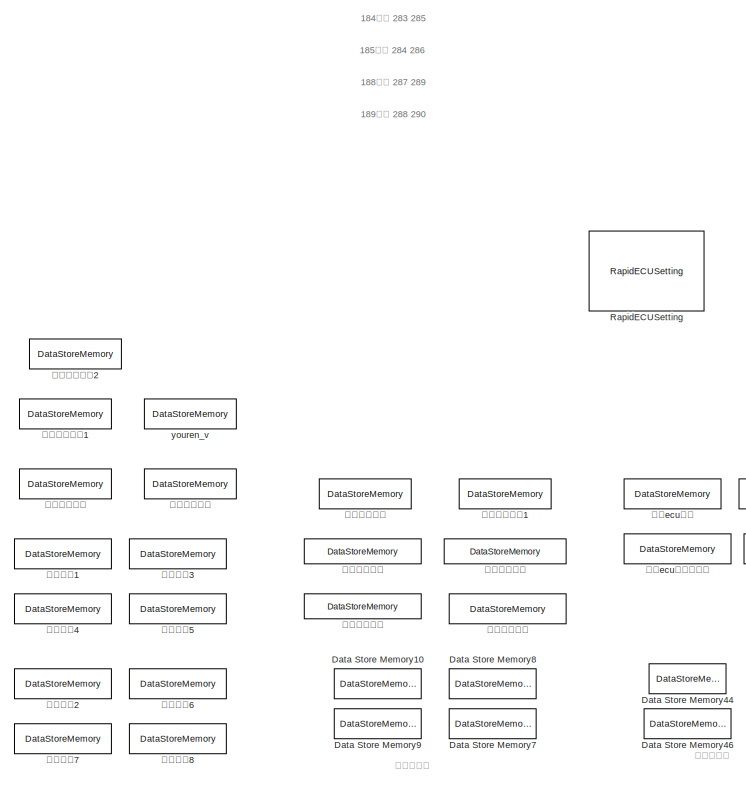
[diagram: root canvas - part 1/3, top left region]
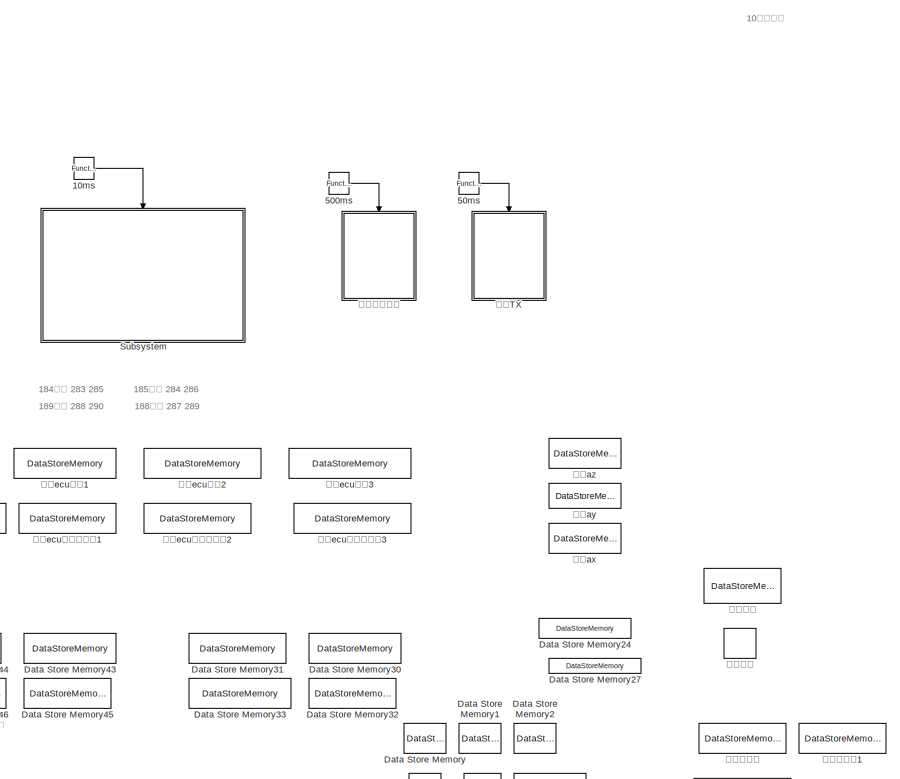
[diagram: root canvas - part 2/3, top right region]
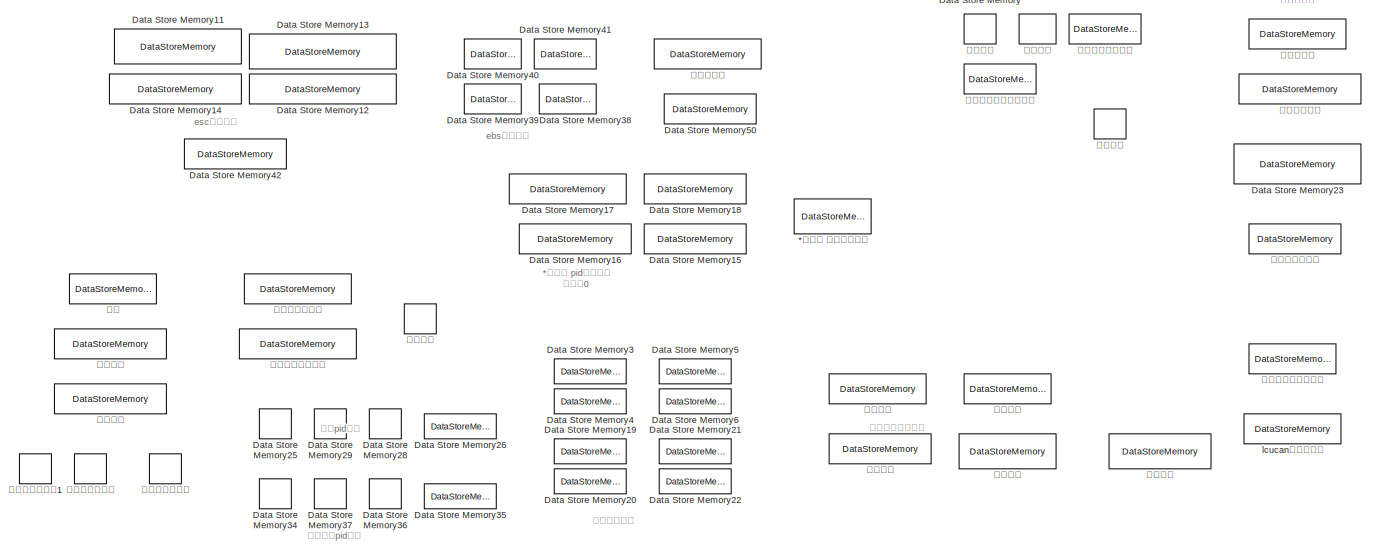
[diagram: root canvas - part 3/3, full width, bottom band]
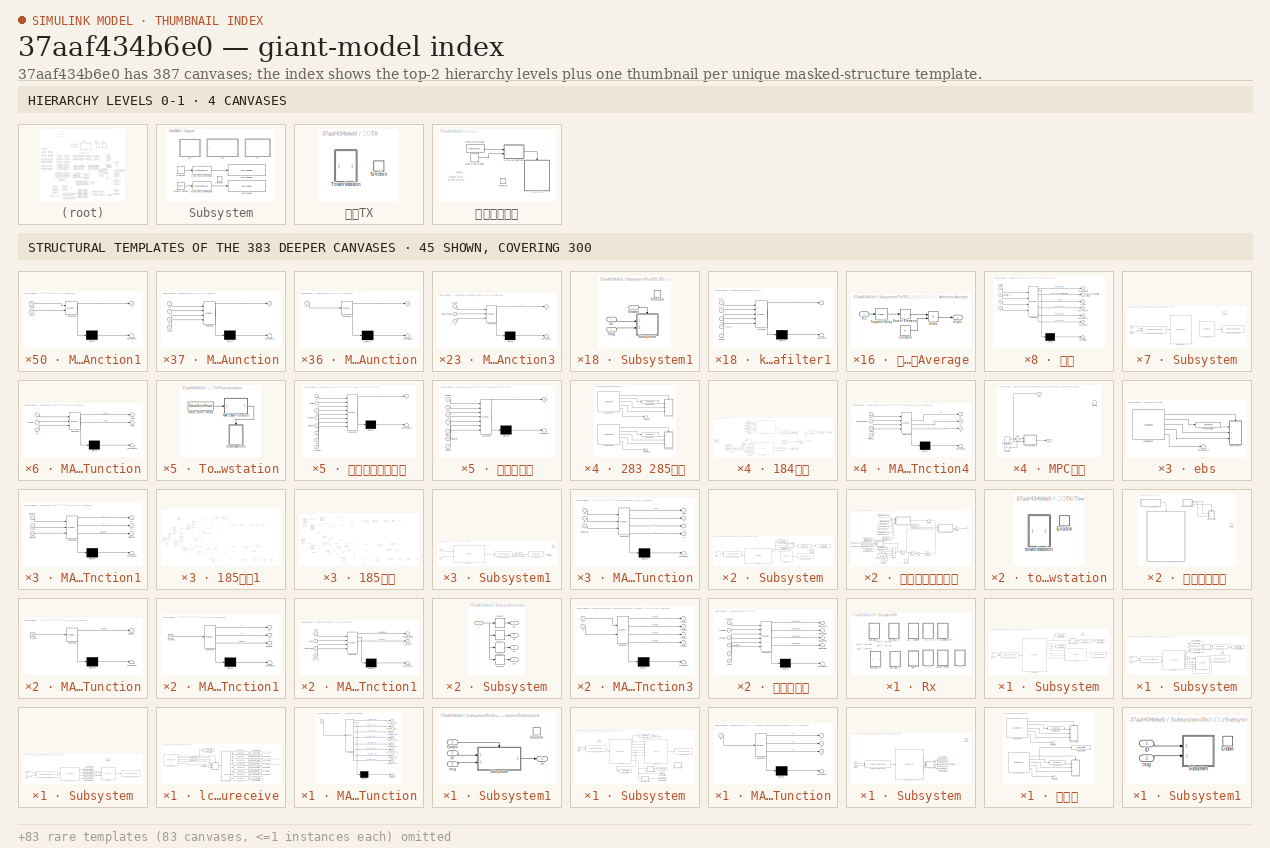
[diagram: thumbnail index - top-2 hierarchy levels (4 canvases) + 45 structural-template representatives of the remaining 383 canvases]
MODEL slx_37aaf434b6e0
KIND model
CONFIG AbsTol = auto
CONFIG EnableMultiTasking = on
CONFIG FixedStep = 0.0005
CONFIG MaxStep = auto
CONFIG MinStep = auto
CONFIG RelTol = 1e-3
CONFIG SampleTimeConstraint = Unconstrained
CONFIG Solver = FixedStepDiscrete
CONFIG SolverName = FixedStepDiscrete
CONFIG StartTime = 0.0
CONFIG StopTime = 1
BLOCK [DataStoreMemory] *带更改 期望横摆力矩
  DataStoreName = M_expire
  ReadBeforeWriteMsg = warning
  ShowAdditionalParam = off
  WriteAfterReadMsg = warning
  WriteAfterWriteMsg = warning
BLOCK [Reference] 10ms  REF=simulink/Ports &
Subsystems/Function-Call
Generator
  Ports = [0, 1]
  SourceBlock = simulink/Ports &\nSubsystems/Function-Call\nGenerator
  SourceProductBaseCode = SL
  SourceType = Function-Call Generator
BLOCK [Reference] 500ms  REF=simulink/Ports &
Subsystems/Function-Call
Generator
  Ports = [0, 1]
  SourceBlock = simulink/Ports &\nSubsystems/Function-Call\nGenerator
  SourceProductBaseCode = SL
  SourceType = Function-Call Generator
BLOCK [Reference] 50ms  REF=simulink/Ports &
Subsystems/Function-Call
Generator
  Ports = [0, 1]
  SourceBlock = simulink/Ports &\nSubsystems/Function-Call\nGenerator
  SourceProductBaseCode = SL
  SourceType = Function-Call Generator
BLOCK [DataStoreMemory] Data Store Memory
  DataStoreName = ACC_X
  ReadBeforeWriteMsg = warning
  ShowAdditionalParam = off
  WriteAfterReadMsg = warning
  WriteAfterWriteMsg = warning
BLOCK [DataStoreMemory] Data Store Memory1
  DataStoreName = ACC_Y
  ReadBeforeWriteMsg = warning
  ShowAdditionalParam = off
  WriteAfterReadMsg = warning
  WriteAfterWriteMsg = warning
BLOCK [DataStoreMemory] Data Store Memory10
  DataStoreName = slipzuoqian
  ReadBeforeWriteMsg = warning
  ShowAdditionalParam = off
  WriteAfterReadMsg = warning
  WriteAfterWriteMsg = warning
BLOCK [DataStoreMemory] Data Store Memory11
  DataStoreName = oral_pressure_leftfront
  ReadBeforeWriteMsg = warning
  ShowAdditionalParam = off
  WriteAfterReadMsg = warning
  WriteAfterWriteMsg = warning
BLOCK [DataStoreMemory] Data Store Memory12
  DataStoreName = oral_pressure_rightfront
  ReadBeforeWriteMsg = warning
  ShowAdditionalParam = off
  WriteAfterReadMsg = warning
  WriteAfterWriteMsg = warning
BLOCK [DataStoreMemory] Data Store Memory13
  DataStoreName = oral_pressure_leftbehind
  ReadBeforeWriteMsg = warning
  ShowAdditionalParam = off
  WriteAfterReadMsg = warning
  WriteAfterWriteMsg = warning
BLOCK [DataStoreMemory] Data Store Memory14
  DataStoreName = oral_pressure_rightbehind
  ReadBeforeWriteMsg = warning
  ShowAdditionalParam = off
  WriteAfterReadMsg = warning
  WriteAfterWriteMsg = warning
BLOCK [DataStoreMemory] Data Store Memory15
  DataStoreName = brake_slipyouhou
  ReadBeforeWriteMsg = warning
  ShowAdditionalParam = off
  WriteAfterReadMsg = warning
  WriteAfterWriteMsg = warning
BLOCK [DataStoreMemory] Data Store Memory16
  DataStoreName = brake_slipyouqian
  ReadBeforeWriteMsg = warning
  ShowAdditionalParam = off
  WriteAfterReadMsg = warning
  WriteAfterWriteMsg = warning
BLOCK [DataStoreMemory] Data Store Memory17
  DataStoreName = brake_slipzuohou
  ReadBeforeWriteMsg = warning
  ShowAdditionalParam = off
  WriteAfterReadMsg = warning
  WriteAfterWriteMsg = warning
BLOCK [DataStoreMemory] Data Store Memory18
  DataStoreName = brake_slipzuoqian
  ReadBeforeWriteMsg = warning
  ShowAdditionalParam = off
  WriteAfterReadMsg = warning
  WriteAfterWriteMsg = warning
BLOCK [DataStoreMemory] Data Store Memory19
  DataStoreName = er_v_lb
  ReadBeforeWriteMsg = warning
  ShowAdditionalParam = off
  WriteAfterReadMsg = warning
  WriteAfterWriteMsg = warning
BLOCK [DataStoreMemory] Data Store Memory2
  DataStoreName = ACC_Z
  ReadBeforeWriteMsg = warning
  ShowAdditionalParam = off
  WriteAfterReadMsg = warning
  WriteAfterWriteMsg = warning
BLOCK [DataStoreMemory] Data Store Memory20
  DataStoreName = er_T_lb
  ReadBeforeWriteMsg = warning
  ShowAdditionalParam = off
  WriteAfterReadMsg = warning
  WriteAfterWriteMsg = warning
BLOCK [DataStoreMemory] Data Store Memory21
  DataStoreName = er_v_rb
  ReadBeforeWriteMsg = warning
  ShowAdditionalParam = off
  WriteAfterReadMsg = warning
  WriteAfterWriteMsg = warning
BLOCK [DataStoreMemory] Data Store Memory22
  DataStoreName = er_T_rb
  ReadBeforeWriteMsg = warning
  ShowAdditionalParam = off
  WriteAfterReadMsg = warning
  WriteAfterWriteMsg = warning
BLOCK [DataStoreMemory] Data Store Memory23
  DataStoreName = nengpao
  ReadBeforeWriteMsg = warning
  ShowAdditionalParam = off
  WriteAfterReadMsg = warning
  WriteAfterWriteMsg = warning
BLOCK [DataStoreMemory] Data Store Memory24
  DataStoreName = bre_calibration
  ReadBeforeWriteMsg = warning
  ShowAdditionalParam = off
  WriteAfterReadMsg = warning
  WriteAfterWriteMsg = warning
BLOCK [DataStoreMemory] Data Store Memory25
  DataStoreName = kp
  ReadBeforeWriteMsg = warning
  ShowAdditionalParam = off
  WriteAfterReadMsg = warning
  WriteAfterWriteMsg = warning
BLOCK [DataStoreMemory] Data Store Memory26
  DataStoreName = kenable
  ReadBeforeWriteMsg = warning
  ShowAdditionalParam = off
  WriteAfterReadMsg = warning
  WriteAfterWriteMsg = warning
BLOCK [DataStoreMemory] Data Store Memory27
  DataStoreName = acc_calibration
  ReadBeforeWriteMsg = warning
  ShowAdditionalParam = off
  WriteAfterReadMsg = warning
  WriteAfterWriteMsg = warning
BLOCK [DataStoreMemory] Data Store Memory28
  DataStoreName = kd
  ReadBeforeWriteMsg = warning
  ShowAdditionalParam = off
  WriteAfterReadMsg = warning
  WriteAfterWriteMsg = warning
BLOCK [DataStoreMemory] Data Store Memory29
  DataStoreName = ki
  ReadBeforeWriteMsg = warning
  ShowAdditionalParam = off
  WriteAfterReadMsg = warning
  WriteAfterWriteMsg = warning
BLOCK [DataStoreMemory] Data Store Memory3
  DataStoreName = er_v_lf
  ReadBeforeWriteMsg = warning
  ShowAdditionalParam = off
  WriteAfterReadMsg = warning
  WriteAfterWriteMsg = warning
BLOCK [DataStoreMemory] Data Store Memory30
  DataStoreName = v_youqian_guandao
  ReadBeforeWriteMsg = warning
  ShowAdditionalParam = off
  WriteAfterReadMsg = warning
  WriteAfterWriteMsg = warning
BLOCK [DataStoreMemory] Data Store Memory31
  DataStoreName = v_zuoqian_guandao
  ReadBeforeWriteMsg = warning
  ShowAdditionalParam = off
  WriteAfterReadMsg = warning
  WriteAfterWriteMsg = warning
BLOCK [DataStoreMemory] Data Store Memory32
  DataStoreName = v_youhou_guandao
  ReadBeforeWriteMsg = warning
  ShowAdditionalParam = off
  WriteAfterReadMsg = warning
  WriteAfterWriteMsg = warning
BLOCK [DataStoreMemory] Data Store Memory33
  DataStoreName = v_zuohou_guandao
  ReadBeforeWriteMsg = warning
  ShowAdditionalParam = off
  WriteAfterReadMsg = warning
  WriteAfterWriteMsg = warning
BLOCK [DataStoreMemory] Data Store Memory34
  DataStoreName = kppp
  ReadBeforeWriteMsg = warning
  ShowAdditionalParam = off
  WriteAfterReadMsg = warning
  WriteAfterWriteMsg = warning
BLOCK [DataStoreMemory] Data Store Memory35
  DataStoreName = kkkenable
  ReadBeforeWriteMsg = warning
  ShowAdditionalParam = off
  WriteAfterReadMsg = warning
  WriteAfterWriteMsg = warning
BLOCK [DataStoreMemory] Data Store Memory36
  DataStoreName = kddd
  ReadBeforeWriteMsg = warning
  ShowAdditionalParam = off
  WriteAfterReadMsg = warning
  WriteAfterWriteMsg = warning
BLOCK [DataStoreMemory] Data Store Memory37
  DataStoreName = kiii
  ReadBeforeWriteMsg = warning
  ShowAdditionalParam = off
  WriteAfterReadMsg = warning
  WriteAfterWriteMsg = warning
BLOCK [DataStoreMemory] Data Store Memory38
  DataStoreName = oilyouhou
  ReadBeforeWriteMsg = warning
  ShowAdditionalParam = off
  WriteAfterReadMsg = warning
  WriteAfterWriteMsg = warning
BLOCK [DataStoreMemory] Data Store Memory39
  DataStoreName = oilyouqian
  ReadBeforeWriteMsg = warning
  ShowAdditionalParam = off
  WriteAfterReadMsg = warning
  WriteAfterWriteMsg = warning
BLOCK [DataStoreMemory] Data Store Memory4
  DataStoreName = er_T_lf
  ReadBeforeWriteMsg = warning
  ShowAdditionalParam = off
  WriteAfterReadMsg = warning
  WriteAfterWriteMsg = warning
BLOCK [DataStoreMemory] Data Store Memory40
  DataStoreName = oilzuohou
  ReadBeforeWriteMsg = warning
  ShowAdditionalParam = off
  WriteAfterReadMsg = warning
  WriteAfterWriteMsg = warning
BLOCK [DataStoreMemory] Data Store Memory41
  DataStoreName = oilzuoqian
  ReadBeforeWriteMsg = warning
  ShowAdditionalParam = off
  WriteAfterReadMsg = warning
  WriteAfterWriteMsg = warning
BLOCK [DataStoreMemory] Data Store Memory42
  DataStoreName = escmax
  ReadBeforeWriteMsg = warning
  ShowAdditionalParam = off
  WriteAfterReadMsg = warning
  WriteAfterWriteMsg = warning
BLOCK [DataStoreMemory] Data Store Memory43
  DataStoreName = youqianvvv
  ReadBeforeWriteMsg = warning
  ShowAdditionalParam = off
  WriteAfterReadMsg = warning
  WriteAfterWriteMsg = warning
BLOCK [DataStoreMemory] Data Store Memory44
  DataStoreName = zuoqianvvv
  ReadBeforeWriteMsg = warning
  ShowAdditionalParam = off
  WriteAfterReadMsg = warning
  WriteAfterWriteMsg = warning
BLOCK [DataStoreMemory] Data Store Memory45
  DataStoreName = youhouvvv
  ReadBeforeWriteMsg = warning
  ShowAdditionalParam = off
  WriteAfterReadMsg = warning
  WriteAfterWriteMsg = warning
BLOCK [DataStoreMemory] Data Store Memory46
  DataStoreName = zuohouvvv
  ReadBeforeWriteMsg = warning
  ShowAdditionalParam = off
  WriteAfterReadMsg = warning
  WriteAfterWriteMsg = warning
BLOCK [DataStoreMemory] Data Store Memory5
  DataStoreName = er_v_rf
  ReadBeforeWriteMsg = warning
  ShowAdditionalParam = off
  WriteAfterReadMsg = warning
  WriteAfterWriteMsg = warning
BLOCK [DataStoreMemory] Data Store Memory50
  DataStoreName = ebszhidongyouya
  ReadBeforeWriteMsg = warning
  ShowAdditionalParam = off
  WriteAfterReadMsg = warning
  WriteAfterWriteMsg = warning
BLOCK [DataStoreMemory] Data Store Memory6
  DataStoreName = er_T_rf
  ReadBeforeWriteMsg = warning
  ShowAdditionalParam = off
  WriteAfterReadMsg = warning
  WriteAfterWriteMsg = warning
BLOCK [DataStoreMemory] Data Store Memory7
  DataStoreName = slipyouhou
  ReadBeforeWriteMsg = warning
  ShowAdditionalParam = off
  WriteAfterReadMsg = warning
  WriteAfterWriteMsg = warning
BLOCK [DataStoreMemory] Data Store Memory8
  DataStoreName = slipyuoqian
  ReadBeforeWriteMsg = warning
  ShowAdditionalParam = off
  WriteAfterReadMsg = warning
  WriteAfterWriteMsg = warning
BLOCK [DataStoreMemory] Data Store Memory9
  DataStoreName = slipzuohou
  ReadBeforeWriteMsg = warning
  ShowAdditionalParam = off
  WriteAfterReadMsg = warning
  WriteAfterWriteMsg = warning
BLOCK [Reference] RapidECUSetting  REF=ec5744lib/RapidECU_U4B/RapidECUSetting
  Ports = []
  SourceBlock = ec5744lib/RapidECU_U4B/RapidECUSetting
  SourceProductName = ECUCoder for MPC5744
  SourceType = RapidECUSetting
BLOCK [SubSystem] Subsystem
  Ports = [0, 0, 0, 1]
  RequestExecContextInheritance = off
BLOCK [Constant] Subsystem/Constant
BLOCK [Reference] Subsystem/Counter Limited  REF=simulink/Sources/Counter
Limited
  Ports = [0, 1]
  SourceBlock = simulink/Sources/Counter\nLimited
  SourceProductBaseCode = SL
  SourceType = Counter Limited
BLOCK [DataTypeConversion] Subsystem/Data Type Conversion
  OutDataTypeStr = boolean
  RndMeth = Floor
  SaturateOnIntegerOverflow = off
BLOCK [DataTypeConversion] Subsystem/Data Type Conversion1
  OutDataTypeStr = boolean
  RndMeth = Floor
  SaturateOnIntegerOverflow = off
BLOCK [SubSystem] Subsystem/Rx
  Ports = []
  RequestExecContextInheritance = off
BLOCK [SubSystem] Subsystem/Rx/283 285左前
  Ports = []
  RequestExecContextInheritance = off
BLOCK [Reference] Subsystem/Rx/283 285左前/CANReceive1  REF=ec5744lib/RapidECU_U4B/04CANCommunication/CANReceive
  Ports = [0, 5]
  SourceBlock = ec5744lib/RapidECU_U4B/04CANCommunication/CANReceive
  SourceProductName = ECUCoder for MPC5744
  SourceType = MPC5744 CAN Receive
BLOCK [Reference] Subsystem/Rx/283 285左前/CANReceive2  REF=ec5744lib/RapidECU_U4B/04CANCommunication/CANReceive
  Commented = on
  Ports = [0, 5]
  SourceBlock = ec5744lib/RapidECU_U4B/04CANCommunication/CANReceive
  SourceProductName = ECUCoder for MPC5744
  SourceType = MPC5744 CAN Receive
BLOCK [Reference] Subsystem/Rx/283 285左前/MeaModule1  REF=ec5744lib/RapidECU_U4B/07Calibration/MeaModule
  Ports = [1, 1]
  SourceBlock = ec5744lib/RapidECU_U4B/07Calibration/MeaModule
  SourceProductName = ECUCoder for MPC5744
  SourceType = Measurement Module
BLOCK [Reference] Subsystem/Rx/283 285左前/MeaModule2  REF=ec5744lib/RapidECU_U4B/07Calibration/MeaModule
  Commented = on
  Ports = [1, 1]
  SourceBlock = ec5744lib/RapidECU_U4B/07Calibration/MeaModule
  SourceProductName = ECUCoder for MPC5744
  SourceType = Measurement Module
BLOCK [SubSystem] Subsystem/Rx/283 285左前/Subsystem1
  Commented = on
  Ports = [3, 0, 0, 1]
  RequestExecContextInheritance = off
BLOCK [Inport] Subsystem/Rx/283 285左前/Subsystem1/Enable
BLOCK [Inport] Subsystem/Rx/283 285左前/Subsystem1/ID
  Port = 2
BLOCK [SubSystem] Subsystem/Rx/283 285左前/Subsystem1/Subsystem
  Ports = [2, 0, 1]
  RequestExecContextInheritance = off
BLOCK [Reference] Subsystem/Rx/283 285左前/Subsystem1/Subsystem/CAN Pack  REF=canmsglib/CAN Pack
  Commented = on
  Ports = [12, 1]
  SourceBlock = canmsglib/CAN Pack
  SourceProductBaseCode = ME,XP,VN
  SourceType = CAN Pack
BLOCK [Reference] Subsystem/Rx/283 285左前/Subsystem1/Subsystem/CAN Unpack  REF=canmsglib/CAN Unpack
  Ports = [1, 4]
  SourceBlock = canmsglib/CAN Unpack
  SourceProductBaseCode = ME,XP,VN
  SourceType = CAN Unpack
BLOCK [Reference] Subsystem/Rx/283 285左前/Subsystem1/Subsystem/CANPackMessage  REF=ec5744lib/RapidECU_U4B/04CANCommunication/CANPackMessage
  Commented = on
  Ports = [1, 1]
  SourceBlock = ec5744lib/RapidECU_U4B/04CANCommunication/CANPackMessage
  SourceProductName = ECUCoder for MPC5744
  SourceType = CAN Pack Message Transmit
BLOCK [Reference] Subsystem/Rx/283 285左前/Subsystem1/Subsystem/CANUnPackMessage  REF=ec5744lib/RapidECU_U4B/04CANCommunication/CANUnPackMessage
  Ports = [2, 1]
  SourceBlock = ec5744lib/RapidECU_U4B/04CANCommunication/CANUnPackMessage
  SourceProductName = ECUCoder for MPC5744
  SourceType = CAN Unpack Message Receive
BLOCK [EnablePort] Subsystem/Rx/283 285左前/Subsystem1/Subsystem/Enable
  Ports = []
BLOCK [Inport] Subsystem/Rx/283 285左前/Subsystem1/Subsystem/ID
BLOCK [Inport] Subsystem/Rx/283 285左前/Subsystem1/Subsystem/msg
  Port = 2
BLOCK [TriggerPort] Subsystem/Rx/283 285左前/Subsystem1/function
  Ports = []
  StatesWhenEnabling = held
  TriggerType = function-call
  VariantControl = Variant
BLOCK [Inport] Subsystem/Rx/283 285左前/Subsystem1/msg
  Port = 3
BLOCK [SubSystem] Subsystem/Rx/283 285左前/Subsystem2
  Ports = [3, 0, 0, 1]
  RequestExecContextInheritance = off
BLOCK [Inport] Subsystem/Rx/283 285左前/Subsystem2/Enable
BLOCK [Inport] Subsystem/Rx/283 285左前/Subsystem2/ID
  Port = 2
BLOCK [SubSystem] Subsystem/Rx/283 285左前/Subsystem2/Subsystem
  Ports = [2, 0, 1]
  RequestExecContextInheritance = off
BLOCK [Reference] Subsystem/Rx/283 285左前/Subsystem2/Subsystem/CAN Pack  REF=canmsglib/CAN Pack
  Commented = on
  Ports = [12, 1]
  SourceBlock = canmsglib/CAN Pack
  SourceProductBaseCode = ME,XP,VN
  SourceType = CAN Pack
BLOCK [Reference] Subsystem/Rx/283 285左前/Subsystem2/Subsystem/CAN Unpack  REF=canmsglib/CAN Unpack
  Ports = [1, 12]
  SourceBlock = canmsglib/CAN Unpack
  SourceProductBaseCode = ME,XP,VN
  SourceType = CAN Unpack
BLOCK [Reference] Subsystem/Rx/283 285左前/Subsystem2/Subsystem/CANPackMessage  REF=ec5744lib/RapidECU_U4B/04CANCommunication/CANPackMessage
  Commented = on
  Ports = [1, 1]
  SourceBlock = ec5744lib/RapidECU_U4B/04CANCommunication/CANPackMessage
  SourceProductName = ECUCoder for MPC5744
  SourceType = CAN Pack Message Transmit
BLOCK [Reference] Subsystem/Rx/283 285左前/Subsystem2/Subsystem/CANUnPackMessage  REF=ec5744lib/RapidECU_U4B/04CANCommunication/CANUnPackMessage
  Ports = [2, 1]
  SourceBlock = ec5744lib/RapidECU_U4B/04CANCommunication/CANUnPackMessage
  SourceProductName = ECUCoder for MPC5744
  SourceType = CAN Unpack Message Receive
BLOCK [DataStoreWrite] Subsystem/Rx/283 285左前/Subsystem2/Subsystem/Data Store Write
  DataStoreName = dianji_velcoity_zuoqian
  Ports = [1]
BLOCK [DataStoreWrite] Subsystem/Rx/283 285左前/Subsystem2/Subsystem/Data Store Write1
  DataStoreName = er_v_lf
  Ports = [1]
BLOCK [DataStoreWrite] Subsystem/Rx/283 285左前/Subsystem2/Subsystem/Data Store Write2
  DataStoreName = er_T_lf
  Ports = [1]
BLOCK [EnablePort] Subsystem/Rx/283 285左前/Subsystem2/Subsystem/Enable
  Ports = []
BLOCK [Inport] Subsystem/Rx/283 285左前/Subsystem2/Subsystem/ID
BLOCK [SubSystem] Subsystem/Rx/283 285左前/Subsystem2/Subsystem/MATLAB Function
  ErrorFcn = Stateflow.Translate.translate
  PermitHierarchicalResolution = ExplicitOnly
  Ports = [1, 1]
  RequestExecContextInheritance = off
  SFBlockType = MATLAB Function
  TreatAsAtomicUnit = on
BLOCK [Demux] Subsystem/Rx/283 285左前/Subsystem2/Subsystem/MATLAB Function/ Demux 
  Outputs = 1
  Ports = [1, 1]
BLOCK [S-Function] Subsystem/Rx/283 285左前/Subsystem2/Subsystem/MATLAB Function/ SFunction 
  EnableBusSupport = on
  FunctionName = sf_sfun
  PortCounts = [1 2]
  Ports = [1, 2]
  SFcnIsStateOwnerBlock = off
  SFunctionDeploymentMode = off
  Tag = Stateflow S-Function 70
BLOCK [Terminator] Subsystem/Rx/283 285左前/Subsystem2/Subsystem/MATLAB Function/ Terminator 
BLOCK [Inport] Subsystem/Rx/283 285左前/Subsystem2/Subsystem/MATLAB Function/u
BLOCK [Outport] Subsystem/Rx/283 285左前/Subsystem2/Subsystem/MATLAB Function/y
BLOCK [Reference] Subsystem/Rx/283 285左前/Subsystem2/Subsystem/MeaModule  REF=ec5744lib/RapidECU_U4B/07Calibration/MeaModule
  Ports = [1, 1]
  SourceBlock = ec5744lib/RapidECU_U4B/07Calibration/MeaModule
  SourceProductName = ECUCoder for MPC5744
  SourceType = Measurement Module
BLOCK [Inport] Subsystem/Rx/283 285左前/Subsystem2/Subsystem/msg
  Port = 2
BLOCK [TriggerPort] Subsystem/Rx/283 285左前/Subsystem2/function
  Ports = []
  StatesWhenEnabling = held
  TriggerType = function-call
  VariantControl = Variant
BLOCK [Inport] Subsystem/Rx/283 285左前/Subsystem2/msg
  Port = 3
BLOCK [Terminator] Subsystem/Rx/283 285左前/Terminator1
  Commented = on
BLOCK [Terminator] Subsystem/Rx/283 285左前/Terminator3
BLOCK [SubSystem] Subsystem/Rx/284 286右前
  Ports = []
  RequestExecContextInheritance = off
BLOCK [Reference] Subsystem/Rx/284 286右前/CANReceive1  REF=ec5744lib/RapidECU_U4B/04CANCommunication/CANReceive
  Ports = [0, 5]
  SourceBlock = ec5744lib/RapidECU_U4B/04CANCommunication/CANReceive
  SourceProductName = ECUCoder for MPC5744
  SourceType = MPC5744 CAN Receive
BLOCK [Reference] Subsystem/Rx/284 286右前/CANReceive2  REF=ec5744lib/RapidECU_U4B/04CANCommunication/CANReceive
  Commented = on
  Ports = [0, 5]
  SourceBlock = ec5744lib/RapidECU_U4B/04CANCommunication/CANReceive
  SourceProductName = ECUCoder for MPC5744
  SourceType = MPC5744 CAN Receive
BLOCK [Reference] Subsystem/Rx/284 286右前/MeaModule1  REF=ec5744lib/RapidECU_U4B/07Calibration/MeaModule
  Ports = [1, 1]
  SourceBlock = ec5744lib/RapidECU_U4B/07Calibration/MeaModule
  SourceProductName = ECUCoder for MPC5744
  SourceType = Measurement Module
BLOCK [Reference] Subsystem/Rx/284 286右前/MeaModule2  REF=ec5744lib/RapidECU_U4B/07Calibration/MeaModule
  Commented = on
  Ports = [1, 1]
  SourceBlock = ec5744lib/RapidECU_U4B/07Calibration/MeaModule
  SourceProductName = ECUCoder for MPC5744
  SourceType = Measurement Module
BLOCK [SubSystem] Subsystem/Rx/284 286右前/Subsystem1
  Commented = on
  Ports = [3, 0, 0, 1]
  RequestExecContextInheritance = off
BLOCK [Inport] Subsystem/Rx/284 286右前/Subsystem1/Enable
BLOCK [Inport] Subsystem/Rx/284 286右前/Subsystem1/ID
  Port = 2
BLOCK [SubSystem] Subsystem/Rx/284 286右前/Subsystem1/Subsystem
  Ports = [2, 0, 1]
  RequestExecContextInheritance = off
BLOCK [Reference] Subsystem/Rx/284 286右前/Subsystem1/Subsystem/CAN Pack  REF=canmsglib/CAN Pack
  Commented = on
  Ports = [12, 1]
  SourceBlock = canmsglib/CAN Pack
  SourceProductBaseCode = ME,XP,VN
  SourceType = CAN Pack
BLOCK [Reference] Subsystem/Rx/284 286右前/Subsystem1/Subsystem/CAN Unpack  REF=canmsglib/CAN Unpack
  Ports = [1, 4]
  SourceBlock = canmsglib/CAN Unpack
  SourceProductBaseCode = ME,XP,VN
  SourceType = CAN Unpack
BLOCK [Reference] Subsystem/Rx/284 286右前/Subsystem1/Subsystem/CANPackMessage  REF=ec5744lib/RapidECU_U4B/04CANCommunication/CANPackMessage
  Commented = on
  Ports = [1, 1]
  SourceBlock = ec5744lib/RapidECU_U4B/04CANCommunication/CANPackMessage
  SourceProductName = ECUCoder for MPC5744
  SourceType = CAN Pack Message Transmit
BLOCK [Reference] Subsystem/Rx/284 286右前/Subsystem1/Subsystem/CANUnPackMessage  REF=ec5744lib/RapidECU_U4B/04CANCommunication/CANUnPackMessage
  Ports = [2, 1]
  SourceBlock = ec5744lib/RapidECU_U4B/04CANCommunication/CANUnPackMessage
  SourceProductName = ECUCoder for MPC5744
  SourceType = CAN Unpack Message Receive
BLOCK [EnablePort] Subsystem/Rx/284 286右前/Subsystem1/Subsystem/Enable
  Ports = []
BLOCK [Inport] Subsystem/Rx/284 286右前/Subsystem1/Subsystem/ID
BLOCK [Inport] Subsystem/Rx/284 286右前/Subsystem1/Subsystem/msg
  Port = 2
BLOCK [TriggerPort] Subsystem/Rx/284 286右前/Subsystem1/function
  Ports = []
  StatesWhenEnabling = held
  TriggerType = function-call
  VariantControl = Variant
BLOCK [Inport] Subsystem/Rx/284 286右前/Subsystem1/msg
  Port = 3
BLOCK [SubSystem] Subsystem/Rx/284 286右前/Subsystem2
  Ports = [3, 0, 0, 1]
  RequestExecContextInheritance = off
BLOCK [Inport] Subsystem/Rx/284 286右前/Subsystem2/Enable
BLOCK [Inport] Subsystem/Rx/284 286右前/Subsystem2/ID
  Port = 2
BLOCK [SubSystem] Subsystem/Rx/284 286右前/Subsystem2/Subsystem
  Ports = [2, 0, 1]
  RequestExecContextInheritance = off
BLOCK [Reference] Subsystem/Rx/284 286右前/Subsystem2/Subsystem/CAN Pack  REF=canmsglib/CAN Pack
  Commented = on
  Ports = [12, 1]
  SourceBlock = canmsglib/CAN Pack
  SourceProductBaseCode = ME,XP,VN
  SourceType = CAN Pack
BLOCK [Reference] Subsystem/Rx/284 286右前/Subsystem2/Subsystem/CAN Unpack  REF=canmsglib/CAN Unpack
  Ports = [1, 12]
  SourceBlock = canmsglib/CAN Unpack
  SourceProductBaseCode = ME,XP,VN
  SourceType = CAN Unpack
BLOCK [Reference] Subsystem/Rx/284 286右前/Subsystem2/Subsystem/CANPackMessage  REF=ec5744lib/RapidECU_U4B/04CANCommunication/CANPackMessage
  Commented = on
  Ports = [1, 1]
  SourceBlock = ec5744lib/RapidECU_U4B/04CANCommunication/CANPackMessage
  SourceProductName = ECUCoder for MPC5744
  SourceType = CAN Pack Message Transmit
BLOCK [Reference] Subsystem/Rx/284 286右前/Subsystem2/Subsystem/CANUnPackMessage  REF=ec5744lib/RapidECU_U4B/04CANCommunication/CANUnPackMessage
  Ports = [2, 1]
  SourceBlock = ec5744lib/RapidECU_U4B/04CANCommunication/CANUnPackMessage
  SourceProductName = ECUCoder for MPC5744
  SourceType = CAN Unpack Message Receive
BLOCK [DataStoreWrite] Subsystem/Rx/284 286右前/Subsystem2/Subsystem/Data Store Write
  DataStoreName = dianji_velcoity_youqian
  Ports = [1]
BLOCK [DataStoreWrite] Subsystem/Rx/284 286右前/Subsystem2/Subsystem/Data Store Write1
  DataStoreName = er_v_rf
  Ports = [1]
BLOCK [DataStoreWrite] Subsystem/Rx/284 286右前/Subsystem2/Subsystem/Data Store Write2
  DataStoreName = er_T_rf
  Ports = [1]
BLOCK [EnablePort] Subsystem/Rx/284 286右前/Subsystem2/Subsystem/Enable
  Ports = []
BLOCK [Inport] Subsystem/Rx/284 286右前/Subsystem2/Subsystem/ID
BLOCK [SubSystem] Subsystem/Rx/284 286右前/Subsystem2/Subsystem/MATLAB Function
  ErrorFcn = Stateflow.Translate.translate
  PermitHierarchicalResolution = ExplicitOnly
  Ports = [1, 1]
  RequestExecContextInheritance = off
  SFBlockType = MATLAB Function
  TreatAsAtomicUnit = on
BLOCK [Demux] Subsystem/Rx/284 286右前/Subsystem2/Subsystem/MATLAB Function/ Demux 
  Outputs = 1
  Ports = [1, 1]
BLOCK [S-Function] Subsystem/Rx/284 286右前/Subsystem2/Subsystem/MATLAB Function/ SFunction 
  EnableBusSupport = on
  FunctionName = sf_sfun
  PortCounts = [1 2]
  Ports = [1, 2]
  SFcnIsStateOwnerBlock = off
  SFunctionDeploymentMode = off
  Tag = Stateflow S-Function 71
BLOCK [Terminator] Subsystem/Rx/284 286右前/Subsystem2/Subsystem/MATLAB Function/ Terminator 
BLOCK [Inport] Subsystem/Rx/284 286右前/Subsystem2/Subsystem/MATLAB Function/u
BLOCK [Outport] Subsystem/Rx/284 286右前/Subsystem2/Subsystem/MATLAB Function/y
BLOCK [Reference] Subsystem/Rx/284 286右前/Subsystem2/Subsystem/MeaModule  REF=ec5744lib/RapidECU_U4B/07Calibration/MeaModule
  Ports = [1, 1]
  SourceBlock = ec5744lib/RapidECU_U4B/07Calibration/MeaModule
  SourceProductName = ECUCoder for MPC5744
  SourceType = Measurement Module
BLOCK [Inport] Subsystem/Rx/284 286右前/Subsystem2/Subsystem/msg
  Port = 2
BLOCK [TriggerPort] Subsystem/Rx/284 286右前/Subsystem2/function
  Ports = []
  StatesWhenEnabling = held
  TriggerType = function-call
  VariantControl = Variant
BLOCK [Inport] Subsystem/Rx/284 286右前/Subsystem2/msg
  Port = 3
BLOCK [Terminator] Subsystem/Rx/284 286右前/Terminator1
  Commented = on
BLOCK [Terminator] Subsystem/Rx/284 286右前/Terminator3
BLOCK [SubSystem] Subsystem/Rx/287 289右后
  Ports = []
  RequestExecContextInheritance = off
BLOCK [Reference] Subsystem/Rx/287 289右后/CANReceive2  REF=ec5744lib/RapidECU_U4B/04CANCommunication/CANReceive
  Commented = on
  Ports = [0, 5]
  SourceBlock = ec5744lib/RapidECU_U4B/04CANCommunication/CANReceive
  SourceProductName = ECUCoder for MPC5744
  SourceType = MPC5744 CAN Receive
BLOCK [Reference] Subsystem/Rx/287 289右后/CANReceive3  REF=ec5744lib/RapidECU_U4B/04CANCommunication/CANReceive
  Ports = [0, 5]
  SourceBlock = ec5744lib/RapidECU_U4B/04CANCommunication/CANReceive
  SourceProductName = ECUCoder for MPC5744
  SourceType = MPC5744 CAN Receive
BLOCK [Reference] Subsystem/Rx/287 289右后/MeaModule2  REF=ec5744lib/RapidECU_U4B/07Calibration/MeaModule
  Commented = on
  Ports = [1, 1]
  SourceBlock = ec5744lib/RapidECU_U4B/07Calibration/MeaModule
  SourceProductName = ECUCoder for MPC5744
  SourceType = Measurement Module
BLOCK [Reference] Subsystem/Rx/287 289右后/MeaModule3  REF=ec5744lib/RapidECU_U4B/07Calibration/MeaModule
  Ports = [1, 1]
  SourceBlock = ec5744lib/RapidECU_U4B/07Calibration/MeaModule
  SourceProductName = ECUCoder for MPC5744
  SourceType = Measurement Module
BLOCK [SubSystem] Subsystem/Rx/287 289右后/Subsystem1
  Commented = on
  Ports = [3, 0, 0, 1]
  RequestExecContextInheritance = off
BLOCK [Inport] Subsystem/Rx/287 289右后/Subsystem1/Enable
BLOCK [Inport] Subsystem/Rx/287 289右后/Subsystem1/ID
  Port = 2
BLOCK [SubSystem] Subsystem/Rx/287 289右后/Subsystem1/Subsystem
  Ports = [2, 0, 1]
  RequestExecContextInheritance = off
BLOCK [Reference] Subsystem/Rx/287 289右后/Subsystem1/Subsystem/CAN Pack  REF=canmsglib/CAN Pack
  Commented = on
  Ports = [12, 1]
  SourceBlock = canmsglib/CAN Pack
  SourceProductBaseCode = ME,XP,VN
  SourceType = CAN Pack
BLOCK [Reference] Subsystem/Rx/287 289右后/Subsystem1/Subsystem/CAN Unpack  REF=canmsglib/CAN Unpack
  Ports = [1, 4]
  SourceBlock = canmsglib/CAN Unpack
  SourceProductBaseCode = ME,XP,VN
  SourceType = CAN Unpack
BLOCK [Reference] Subsystem/Rx/287 289右后/Subsystem1/Subsystem/CANPackMessage  REF=ec5744lib/RapidECU_U4B/04CANCommunication/CANPackMessage
  Commented = on
  Ports = [1, 1]
  SourceBlock = ec5744lib/RapidECU_U4B/04CANCommunication/CANPackMessage
  SourceProductName = ECUCoder for MPC5744
  SourceType = CAN Pack Message Transmit
BLOCK [Reference] Subsystem/Rx/287 289右后/Subsystem1/Subsystem/CANUnPackMessage  REF=ec5744lib/RapidECU_U4B/04CANCommunication/CANUnPackMessage
  Ports = [2, 1]
  SourceBlock = ec5744lib/RapidECU_U4B/04CANCommunication/CANUnPackMessage
  SourceProductName = ECUCoder for MPC5744
  SourceType = CAN Unpack Message Receive
BLOCK [EnablePort] Subsystem/Rx/287 289右后/Subsystem1/Subsystem/Enable
  Ports = []
BLOCK [Inport] Subsystem/Rx/287 289右后/Subsystem1/Subsystem/ID
BLOCK [Inport] Subsystem/Rx/287 289右后/Subsystem1/Subsystem/msg
  Port = 2
BLOCK [TriggerPort] Subsystem/Rx/287 289右后/Subsystem1/function
  Ports = []
  StatesWhenEnabling = held
  TriggerType = function-call
  VariantControl = Variant
BLOCK [Inport] Subsystem/Rx/287 289右后/Subsystem1/msg
  Port = 3
BLOCK [SubSystem] Subsystem/Rx/287 289右后/Subsystem3
  Ports = [3, 0, 0, 1]
  RequestExecContextInheritance = off
BLOCK [Inport] Subsystem/Rx/287 289右后/Subsystem3/Enable
BLOCK [Inport] Subsystem/Rx/287 289右后/Subsystem3/ID
  Port = 2
BLOCK [SubSystem] Subsystem/Rx/287 289右后/Subsystem3/Subsystem
  Ports = [2, 0, 1]
  RequestExecContextInheritance = off
BLOCK [Reference] Subsystem/Rx/287 289右后/Subsystem3/Subsystem/CAN Pack  REF=canmsglib/CAN Pack
  Commented = on
  Ports = [12, 1]
  SourceBlock = canmsglib/CAN Pack
  SourceProductBaseCode = ME,XP,VN
  SourceType = CAN Pack
BLOCK [Reference] Subsystem/Rx/287 289右后/Subsystem3/Subsystem/CAN Unpack  REF=canmsglib/CAN Unpack
  Ports = [1, 12]
  SourceBlock = canmsglib/CAN Unpack
  SourceProductBaseCode = ME,XP,VN
  SourceType = CAN Unpack
BLOCK [Reference] Subsystem/Rx/287 289右后/Subsystem3/Subsystem/CANPackMessage  REF=ec5744lib/RapidECU_U4B/04CANCommunication/CANPackMessage
  Commented = on
  Ports = [1, 1]
  SourceBlock = ec5744lib/RapidECU_U4B/04CANCommunication/CANPackMessage
  SourceProductName = ECUCoder for MPC5744
  SourceType = CAN Pack Message Transmit
BLOCK [Reference] Subsystem/Rx/287 289右后/Subsystem3/Subsystem/CANUnPackMessage  REF=ec5744lib/RapidECU_U4B/04CANCommunication/CANUnPackMessage
  Ports = [2, 1]
  SourceBlock = ec5744lib/RapidECU_U4B/04CANCommunication/CANUnPackMessage
  SourceProductName = ECUCoder for MPC5744
  SourceType = CAN Unpack Message Receive
BLOCK [DataStoreWrite] Subsystem/Rx/287 289右后/Subsystem3/Subsystem/Data Store Write
  DataStoreName = dianji_velcoity_youhou
  Ports = [1]
BLOCK [DataStoreWrite] Subsystem/Rx/287 289右后/Subsystem3/Subsystem/Data Store Write1
  DataStoreName = er_v_rb
  Ports = [1]
BLOCK [DataStoreWrite] Subsystem/Rx/287 289右后/Subsystem3/Subsystem/Data Store Write2
  DataStoreName = er_T_rb
  Ports = [1]
BLOCK [EnablePort] Subsystem/Rx/287 289右后/Subsystem3/Subsystem/Enable
  Ports = []
BLOCK [Inport] Subsystem/Rx/287 289右后/Subsystem3/Subsystem/ID
BLOCK [SubSystem] Subsystem/Rx/287 289右后/Subsystem3/Subsystem/MATLAB Function
  ErrorFcn = Stateflow.Translate.translate
  PermitHierarchicalResolution = ExplicitOnly
  Ports = [1, 1]
  RequestExecContextInheritance = off
  SFBlockType = MATLAB Function
  TreatAsAtomicUnit = on
BLOCK [Demux] Subsystem/Rx/287 289右后/Subsystem3/Subsystem/MATLAB Function/ Demux 
  Outputs = 1
  Ports = [1, 1]
BLOCK [S-Function] Subsystem/Rx/287 289右后/Subsystem3/Subsystem/MATLAB Function/ SFunction 
  EnableBusSupport = on
  FunctionName = sf_sfun
  PortCounts = [1 2]
  Ports = [1, 2]
  SFcnIsStateOwnerBlock = off
  SFunctionDeploymentMode = off
  Tag = Stateflow S-Function 91
BLOCK [Terminator] Subsystem/Rx/287 289右后/Subsystem3/Subsystem/MATLAB Function/ Terminator 
BLOCK [Inport] Subsystem/Rx/287 289右后/Subsystem3/Subsystem/MATLAB Function/u
BLOCK [Outport] Subsystem/Rx/287 289右后/Subsystem3/Subsystem/MATLAB Function/y
BLOCK [Reference] Subsystem/Rx/287 289右后/Subsystem3/Subsystem/MeaModule  REF=ec5744lib/RapidECU_U4B/07Calibration/MeaModule
  Ports = [1, 1]
  SourceBlock = ec5744lib/RapidECU_U4B/07Calibration/MeaModule
  SourceProductName = ECUCoder for MPC5744
  SourceType = Measurement Module
BLOCK [Inport] Subsystem/Rx/287 289右后/Subsystem3/Subsystem/msg
  Port = 2
BLOCK [TriggerPort] Subsystem/Rx/287 289右后/Subsystem3/function
  Ports = []
  StatesWhenEnabling = held
  TriggerType = function-call
  VariantControl = Variant
BLOCK [Inport] Subsystem/Rx/287 289右后/Subsystem3/msg
  Port = 3
BLOCK [Terminator] Subsystem/Rx/287 289右后/Terminator1
  Commented = on
BLOCK [Terminator] Subsystem/Rx/287 289右后/Terminator2
BLOCK [SubSystem] Subsystem/Rx/288 290左后
  Ports = []
  RequestExecContextInheritance = off
BLOCK [Reference] Subsystem/Rx/288 290左后/CANReceive1  REF=ec5744lib/RapidECU_U4B/04CANCommunication/CANReceive
  Ports = [0, 5]
  SourceBlock = ec5744lib/RapidECU_U4B/04CANCommunication/CANReceive
  SourceProductName = ECUCoder for MPC5744
  SourceType = MPC5744 CAN Receive
BLOCK [Reference] Subsystem/Rx/288 290左后/CANReceive2  REF=ec5744lib/RapidECU_U4B/04CANCommunication/CANReceive
  Commented = on
  Ports = [0, 5]
  SourceBlock = ec5744lib/RapidECU_U4B/04CANCommunication/CANReceive
  SourceProductName = ECUCoder for MPC5744
  SourceType = MPC5744 CAN Receive
BLOCK [Reference] Subsystem/Rx/288 290左后/MeaModule1  REF=ec5744lib/RapidECU_U4B/07Calibration/MeaModule
  Ports = [1, 1]
  SourceBlock = ec5744lib/RapidECU_U4B/07Calibration/MeaModule
  SourceProductName = ECUCoder for MPC5744
  SourceType = Measurement Module
BLOCK [Reference] Subsystem/Rx/288 290左后/MeaModule2  REF=ec5744lib/RapidECU_U4B/07Calibration/MeaModule
  Commented = on
  Ports = [1, 1]
  SourceBlock = ec5744lib/RapidECU_U4B/07Calibration/MeaModule
  SourceProductName = ECUCoder for MPC5744
  SourceType = Measurement Module
BLOCK [SubSystem] Subsystem/Rx/288 290左后/Subsystem1
  Commented = on
  Ports = [3, 0, 0, 1]
  RequestExecContextInheritance = off
BLOCK [Inport] Subsystem/Rx/288 290左后/Subsystem1/Enable
BLOCK [Inport] Subsystem/Rx/288 290左后/Subsystem1/ID
  Port = 2
BLOCK [SubSystem] Subsystem/Rx/288 290左后/Subsystem1/Subsystem
  Ports = [2, 0, 1]
  RequestExecContextInheritance = off
BLOCK [Reference] Subsystem/Rx/288 290左后/Subsystem1/Subsystem/CAN Pack  REF=canmsglib/CAN Pack
  Commented = on
  Ports = [12, 1]
  SourceBlock = canmsglib/CAN Pack
  SourceProductBaseCode = ME,XP,VN
  SourceType = CAN Pack
BLOCK [Reference] Subsystem/Rx/288 290左后/Subsystem1/Subsystem/CAN Unpack  REF=canmsglib/CAN Unpack
  Ports = [1, 4]
  SourceBlock = canmsglib/CAN Unpack
  SourceProductBaseCode = ME,XP,VN
  SourceType = CAN Unpack
BLOCK [Reference] Subsystem/Rx/288 290左后/Subsystem1/Subsystem/CANPackMessage  REF=ec5744lib/RapidECU_U4B/04CANCommunication/CANPackMessage
  Commented = on
  Ports = [1, 1]
  SourceBlock = ec5744lib/RapidECU_U4B/04CANCommunication/CANPackMessage
  SourceProductName = ECUCoder for MPC5744
  SourceType = CAN Pack Message Transmit
BLOCK [Reference] Subsystem/Rx/288 290左后/Subsystem1/Subsystem/CANUnPackMessage  REF=ec5744lib/RapidECU_U4B/04CANCommunication/CANUnPackMessage
  Ports = [2, 1]
  SourceBlock = ec5744lib/RapidECU_U4B/04CANCommunication/CANUnPackMessage
  SourceProductName = ECUCoder for MPC5744
  SourceType = CAN Unpack Message Receive
BLOCK [EnablePort] Subsystem/Rx/288 290左后/Subsystem1/Subsystem/Enable
  Ports = []
BLOCK [Inport] Subsystem/Rx/288 290左后/Subsystem1/Subsystem/ID
BLOCK [Inport] Subsystem/Rx/288 290左后/Subsystem1/Subsystem/msg
  Port = 2
BLOCK [TriggerPort] Subsystem/Rx/288 290左后/Subsystem1/function
  Ports = []
  StatesWhenEnabling = held
  TriggerType = function-call
  VariantControl = Variant
BLOCK [Inport] Subsystem/Rx/288 290左后/Subsystem1/msg
  Port = 3
BLOCK [SubSystem] Subsystem/Rx/288 290左后/Subsystem2
  Ports = [3, 0, 0, 1]
  RequestExecContextInheritance = off
BLOCK [Inport] Subsystem/Rx/288 290左后/Subsystem2/Enable
BLOCK [Inport] Subsystem/Rx/288 290左后/Subsystem2/ID
  Port = 2
BLOCK [SubSystem] Subsystem/Rx/288 290左后/Subsystem2/Subsystem
  Ports = [2, 0, 1]
  RequestExecContextInheritance = off
BLOCK [Reference] Subsystem/Rx/288 290左后/Subsystem2/Subsystem/CAN Pack  REF=canmsglib/CAN Pack
  Commented = on
  Ports = [12, 1]
  SourceBlock = canmsglib/CAN Pack
  SourceProductBaseCode = ME,XP,VN
  SourceType = CAN Pack
BLOCK [Reference] Subsystem/Rx/288 290左后/Subsystem2/Subsystem/CAN Unpack  REF=canmsglib/CAN Unpack
  Ports = [1, 12]
  SourceBlock = canmsglib/CAN Unpack
  SourceProductBaseCode = ME,XP,VN
  SourceType = CAN Unpack
BLOCK [Reference] Subsystem/Rx/288 290左后/Subsystem2/Subsystem/CANPackMessage  REF=ec5744lib/RapidECU_U4B/04CANCommunication/CANPackMessage
  Commented = on
  Ports = [1, 1]
  SourceBlock = ec5744lib/RapidECU_U4B/04CANCommunication/CANPackMessage
  SourceProductName = ECUCoder for MPC5744
  SourceType = CAN Pack Message Transmit
BLOCK [Reference] Subsystem/Rx/288 290左后/Subsystem2/Subsystem/CANUnPackMessage  REF=ec5744lib/RapidECU_U4B/04CANCommunication/CANUnPackMessage
  Ports = [2, 1]
  SourceBlock = ec5744lib/RapidECU_U4B/04CANCommunication/CANUnPackMessage
  SourceProductName = ECUCoder for MPC5744
  SourceType = CAN Unpack Message Receive
BLOCK [DataStoreWrite] Subsystem/Rx/288 290左后/Subsystem2/Subsystem/Data Store Write
  DataStoreName = dianji_velcoity_zuohou
  Ports = [1]
BLOCK [DataStoreWrite] Subsystem/Rx/288 290左后/Subsystem2/Subsystem/Data Store Write1
  DataStoreName = er_v_lb
  Ports = [1]
BLOCK [DataStoreWrite] Subsystem/Rx/288 290左后/Subsystem2/Subsystem/Data Store Write2
  DataStoreName = er_T_lb
  Ports = [1]
BLOCK [EnablePort] Subsystem/Rx/288 290左后/Subsystem2/Subsystem/Enable
  Ports = []
BLOCK [Inport] Subsystem/Rx/288 290左后/Subsystem2/Subsystem/ID
BLOCK [SubSystem] Subsystem/Rx/288 290左后/Subsystem2/Subsystem/MATLAB Function
  ErrorFcn = Stateflow.Translate.translate
  PermitHierarchicalResolution = ExplicitOnly
  Ports = [1, 1]
  RequestExecContextInheritance = off
  SFBlockType = MATLAB Function
  TreatAsAtomicUnit = on
BLOCK [Demux] Subsystem/Rx/288 290左后/Subsystem2/Subsystem/MATLAB Function/ Demux 
  Outputs = 1
  Ports = [1, 1]
BLOCK [S-Function] Subsystem/Rx/288 290左后/Subsystem2/Subsystem/MATLAB Function/ SFunction 
  EnableBusSupport = on
  FunctionName = sf_sfun
  PortCounts = [1 2]
  Ports = [1, 2]
  SFcnIsStateOwnerBlock = off
  SFunctionDeploymentMode = off
  Tag = Stateflow S-Function 72
BLOCK [Terminator] Subsystem/Rx/288 290左后/Subsystem2/Subsystem/MATLAB Function/ Terminator 
BLOCK [Inport] Subsystem/Rx/288 290左后/Subsystem2/Subsystem/MATLAB Function/u
BLOCK [Outport] Subsystem/Rx/288 290左后/Subsystem2/Subsystem/MATLAB Function/y
BLOCK [Reference] Subsystem/Rx/288 290左后/Subsystem2/Subsystem/MeaModule  REF=ec5744lib/RapidECU_U4B/07Calibration/MeaModule
  Ports = [1, 1]
  SourceBlock = ec5744lib/RapidECU_U4B/07Calibration/MeaModule
  SourceProductName = ECUCoder for MPC5744
  SourceType = Measurement Module
BLOCK [Inport] Subsystem/Rx/288 290左后/Subsystem2/Subsystem/msg
  Port = 2
BLOCK [TriggerPort] Subsystem/Rx/288 290左后/Subsystem2/function
  Ports = []
  StatesWhenEnabling = held
  TriggerType = function-call
  VariantControl = Variant
BLOCK [Inport] Subsystem/Rx/288 290左后/Subsystem2/msg
  Port = 3
BLOCK [Terminator] Subsystem/Rx/288 290左后/Terminator1
  Commented = on
BLOCK [Terminator] Subsystem/Rx/288 290左后/Terminator3
BLOCK [SubSystem] Subsystem/Rx/ebs
  Ports = []
  RequestExecContextInheritance = off
BLOCK [Reference] Subsystem/Rx/ebs/CANReceive1  REF=ec5744lib/RapidECU_U4B/04CANCommunication/CANReceive
  Ports = [0, 5]
  SourceBlock = ec5744lib/RapidECU_U4B/04CANCommunication/CANReceive
  SourceProductName = ECUCoder for MPC5744
  SourceType = MPC5744 CAN Receive
BLOCK [Reference] Subsystem/Rx/ebs/MeaModule8  REF=ec5744lib/RapidECU_U4B/07Calibration/MeaModule
  Ports = [1, 1]
  SourceBlock = ec5744lib/RapidECU_U4B/07Calibration/MeaModule
  SourceProductName = ECUCoder for MPC5744
  SourceType = Measurement Module
BLOCK [SubSystem] Subsystem/Rx/ebs/Subsystem3
  Ports = [3, 0, 0, 1]
  RequestExecContextInheritance = off
BLOCK [Inport] Subsystem/Rx/ebs/Subsystem3/Enable
BLOCK [Inport] Subsystem/Rx/ebs/Subsystem3/ID
  Port = 2
BLOCK [SubSystem] Subsystem/Rx/ebs/Subsystem3/Subsystem
  Ports = [2, 0, 1]
  RequestExecContextInheritance = off
BLOCK [Reference] Subsystem/Rx/ebs/Subsystem3/Subsystem/CAN Pack  REF=canmsglib/CAN Pack
  Commented = on
  Ports = [7, 1]
  SourceBlock = canmsglib/CAN Pack
  SourceProductBaseCode = ME,XP,VN
  SourceType = CAN Pack
BLOCK [Reference] Subsystem/Rx/ebs/Subsystem3/Subsystem/CAN Unpack  REF=canmsglib/CAN Unpack
  Ports = [1, 4]
  SourceBlock = canmsglib/CAN Unpack
  SourceProductBaseCode = ME,XP,VN
  SourceType = CAN Unpack
BLOCK [Reference] Subsystem/Rx/ebs/Subsystem3/Subsystem/CANPackMessage  REF=ec5744lib/RapidECU_U4B/04CANCommunication/CANPackMessage
  Commented = on
  Ports = [1, 1]
  SourceBlock = ec5744lib/RapidECU_U4B/04CANCommunication/CANPackMessage
  SourceProductName = ECUCoder for MPC5744
  SourceType = CAN Pack Message Transmit
BLOCK [Reference] Subsystem/Rx/ebs/Subsystem3/Subsystem/CANUnPackMessage  REF=ec5744lib/RapidECU_U4B/04CANCommunication/CANUnPackMessage
  Ports = [2, 1]
  SourceBlock = ec5744lib/RapidECU_U4B/04CANCommunication/CANUnPackMessage
  SourceProductName = ECUCoder for MPC5744
  SourceType = CAN Unpack Message Receive
BLOCK [DataStoreWrite] Subsystem/Rx/ebs/Subsystem3/Subsystem/Data Store Write
  DataStoreName = oilyouhou
  Ports = [1]
BLOCK [DataStoreWrite] Subsystem/Rx/ebs/Subsystem3/Subsystem/Data Store Write1
  DataStoreName = oilyouqian
  Ports = [1]
BLOCK [DataStoreWrite] Subsystem/Rx/ebs/Subsystem3/Subsystem/Data Store Write2
  DataStoreName = oilzuohou
  Ports = [1]
BLOCK [DataStoreWrite] Subsystem/Rx/ebs/Subsystem3/Subsystem/Data Store Write3
  DataStoreName = oilzuoqian
  Ports = [1]
BLOCK [EnablePort] Subsystem/Rx/ebs/Subsystem3/Subsystem/Enable
  Ports = []
BLOCK [Inport] Subsystem/Rx/ebs/Subsystem3/Subsystem/ID
BLOCK [Inport] Subsystem/Rx/ebs/Subsystem3/Subsystem/msg
  Port = 2
BLOCK [TriggerPort] Subsystem/Rx/ebs/Subsystem3/function
  Ports = []
  StatesWhenEnabling = held
  TriggerType = function-call
  VariantControl = Variant
BLOCK [Inport] Subsystem/Rx/ebs/Subsystem3/msg
  Port = 3
BLOCK [Terminator] Subsystem/Rx/ebs/Terminator3
BLOCK [SubSystem] Subsystem/Rx/lcu——receive
  Ports = []
  RequestExecContextInheritance = off
BLOCK [Reference] Subsystem/Rx/lcu——receive/CANReceive  REF=ec5744lib/RapidECU_U4B/04CANCommunication/CANReceive
  Ports = [0, 5]
  SourceBlock = ec5744lib/RapidECU_U4B/04CANCommunication/CANReceive
  SourceProductName = ECUCoder for MPC5744
  SourceType = MPC5744 CAN Receive
BLOCK [DataStoreWrite] Subsystem/Rx/lcu——receive/Data Store Write
  DataStoreName = lcu_enable_185
  Ports = [1]
BLOCK [DataStoreWrite] Subsystem/Rx/lcu——receive/Data Store Write1
  DataStoreName = lcu_enable_188
  Ports = [1]
BLOCK [DataStoreWrite] Subsystem/Rx/lcu——receive/Data Store Write2
  DataStoreName = lcu_enable_185_1
  Ports = [1]
BLOCK [DataStoreWrite] Subsystem/Rx/lcu——receive/Data Store Write3
  DataStoreName = lcu_enable_188_1
  Ports = [1]
BLOCK [DataStoreWrite] Subsystem/Rx/lcu——receive/Data Store Write4
  DataStoreName = lcu_enable_184
  Ports = [1]
BLOCK [DataStoreWrite] Subsystem/Rx/lcu——receive/Data Store Write5
  DataStoreName = lcu_enable_184_1
  Ports = [1]
BLOCK [DataStoreWrite] Subsystem/Rx/lcu——receive/Data Store Write6
  DataStoreName = lcu_enable_189_1
  Ports = [1]
BLOCK [DataStoreWrite] Subsystem/Rx/lcu——receive/Data Store Write7
  DataStoreName = lcu_enable_189
  Ports = [1]
BLOCK [DataStoreWrite] Subsystem/Rx/lcu——receive/Data Store Write8
  DataStoreName = lcu_canok
  Ports = [1]
BLOCK [SubSystem] Subsystem/Rx/lcu——receive/MATLAB Function
  ErrorFcn = Stateflow.Translate.translate
  PermitHierarchicalResolution = ExplicitOnly
  Ports = [1, 8]
  RequestExecContextInheritance = off
  SFBlockType = MATLAB Function
  TreatAsAtomicUnit = on
BLOCK [Demux] Subsystem/Rx/lcu——receive/MATLAB Function/ Demux 
  Outputs = 1
  Ports = [1, 1]
BLOCK [S-Function] Subsystem/Rx/lcu——receive/MATLAB Function/ SFunction 
  EnableBusSupport = on
  FunctionName = sf_sfun
  PortCounts = [1 9]
  Ports = [1, 9]
  SFcnIsStateOwnerBlock = off
  SFunctionDeploymentMode = off
  Tag = Stateflow S-Function 5
BLOCK [Terminator] Subsystem/Rx/lcu——receive/MATLAB Function/ Terminator 
BLOCK [Outport] Subsystem/Rx/lcu——receive/MATLAB Function/enable_184
  Port = 5
BLOCK [Outport] Subsystem/Rx/lcu——receive/MATLAB Function/enable_184_1
  Port = 6
BLOCK [Outport] Subsystem/Rx/lcu——receive/MATLAB Function/enable_185
BLOCK [Outport] Subsystem/Rx/lcu——receive/MATLAB Function/enable_185_1
  Port = 2
BLOCK [Outport] Subsystem/Rx/lcu——receive/MATLAB Function/enable_188
  Port = 3
BLOCK [Outport] Subsystem/Rx/lcu——receive/MATLAB Function/enable_188_1
  Port = 4
BLOCK [Outport] Subsystem/Rx/lcu——receive/MATLAB Function/enable_189
  Port = 7
BLOCK [Outport] Subsystem/Rx/lcu——receive/MATLAB Function/enable_189_1
  Port = 8
BLOCK [Inport] Subsystem/Rx/lcu——receive/MATLAB Function/m
BLOCK [Reference] Subsystem/Rx/lcu——receive/MeaModule  REF=ec5744lib/RapidECU_U4B/07Calibration/MeaModule
  Ports = [1, 1]
  SourceBlock = ec5744lib/RapidECU_U4B/07Calibration/MeaModule
  SourceProductName = ECUCoder for MPC5744
  SourceType = Measurement Module
BLOCK [Reference] Subsystem/Rx/lcu——receive/MeaModule1  REF=ec5744lib/RapidECU_U4B/07Calibration/MeaModule
  Ports = [1, 1]
  SourceBlock = ec5744lib/RapidECU_U4B/07Calibration/MeaModule
  SourceProductName = ECUCoder for MPC5744
  SourceType = Measurement Module
BLOCK [Reference] Subsystem/Rx/lcu——receive/MeaModule11  REF=ec5744lib/RapidECU_U4B/07Calibration/MeaModule
  Ports = [1, 1]
  SourceBlock = ec5744lib/RapidECU_U4B/07Calibration/MeaModule
  SourceProductName = ECUCoder for MPC5744
  SourceType = Measurement Module
BLOCK [Reference] Subsystem/Rx/lcu——receive/MeaModule2  REF=ec5744lib/RapidECU_U4B/07Calibration/MeaModule
  Ports = [1, 1]
  SourceBlock = ec5744lib/RapidECU_U4B/07Calibration/MeaModule
  SourceProductName = ECUCoder for MPC5744
  SourceType = Measurement Module
BLOCK [Reference] Subsystem/Rx/lcu——receive/MeaModule3  REF=ec5744lib/RapidECU_U4B/07Calibration/MeaModule
  Ports = [1, 1]
  SourceBlock = ec5744lib/RapidECU_U4B/07Calibration/MeaModule
  SourceProductName = ECUCoder for MPC5744
  SourceType = Measurement Module
BLOCK [Reference] Subsystem/Rx/lcu——receive/MeaModule4  REF=ec5744lib/RapidECU_U4B/07Calibration/MeaModule
  Ports = [1, 1]
  SourceBlock = ec5744lib/RapidECU_U4B/07Calibration/MeaModule
  SourceProductName = ECUCoder for MPC5744
  SourceType = Measurement Module
BLOCK [Reference] Subsystem/Rx/lcu——receive/MeaModule5  REF=ec5744lib/RapidECU_U4B/07Calibration/MeaModule
  Ports = [1, 1]
  SourceBlock = ec5744lib/RapidECU_U4B/07Calibration/MeaModule
  SourceProductName = ECUCoder for MPC5744
  SourceType = Measurement Module
BLOCK [Reference] Subsystem/Rx/lcu——receive/MeaModule6  REF=ec5744lib/RapidECU_U4B/07Calibration/MeaModule
  Ports = [1, 1]
  SourceBlock = ec5744lib/RapidECU_U4B/07Calibration/MeaModule
  SourceProductName = ECUCoder for MPC5744
  SourceType = Measurement Module
BLOCK [Reference] Subsystem/Rx/lcu——receive/MeaModule7  REF=ec5744lib/RapidECU_U4B/07Calibration/MeaModule
  Ports = [1, 1]
  SourceBlock = ec5744lib/RapidECU_U4B/07Calibration/MeaModule
  SourceProductName = ECUCoder for MPC5744
  SourceType = Measurement Module
BLOCK [SubSystem] Subsystem/Rx/lcu——receive/Subsystem1
  Ports = [3, 1, 0, 1]
  RequestExecContextInheritance = off
BLOCK [Inport] Subsystem/Rx/lcu——receive/Subsystem1/Enable
BLOCK [Inport] Subsystem/Rx/lcu——receive/Subsystem1/ID
  Port = 2
BLOCK [SubSystem] Subsystem/Rx/lcu——receive/Subsystem1/Subsystem
  Ports = [2, 1, 1]
  RequestExecContextInheritance = off
BLOCK [Reference] Subsystem/Rx/lcu——receive/Subsystem1/Subsystem/CAN Pack  REF=canmsglib/CAN Pack
  Commented = on
  Ports = [8, 1]
  SourceBlock = canmsglib/CAN Pack
  SourceProductBaseCode = ME,XP,VN
  SourceType = CAN Pack
BLOCK [Reference] Subsystem/Rx/lcu——receive/Subsystem1/Subsystem/CAN Unpack  REF=canmsglib/CAN Unpack
  Ports = [1, 8]
  SourceBlock = canmsglib/CAN Unpack
  SourceProductBaseCode = ME,XP,VN
  SourceType = CAN Unpack
BLOCK [Reference] Subsystem/Rx/lcu——receive/Subsystem1/Subsystem/CANPackMessage  REF=ec5744lib/RapidECU_U4B/04CANCommunication/CANPackMessage
  Commented = on
  Ports = [1, 1]
  SourceBlock = ec5744lib/RapidECU_U4B/04CANCommunication/CANPackMessage
  SourceProductName = ECUCoder for MPC5744
  SourceType = CAN Pack Message Transmit
BLOCK [Reference] Subsystem/Rx/lcu——receive/Subsystem1/Subsystem/CANUnPackMessage  REF=ec5744lib/RapidECU_U4B/04CANCommunication/CANUnPackMessage
  Ports = [2, 1]
  SourceBlock = ec5744lib/RapidECU_U4B/04CANCommunication/CANUnPackMessage
  SourceProductName = ECUCoder for MPC5744
  SourceType = CAN Unpack Message Receive
BLOCK [Outport] Subsystem/Rx/lcu——receive/Subsystem1/Subsystem/CAN_msg_enable
BLOCK [DataStoreWrite] Subsystem/Rx/lcu——receive/Subsystem1/Subsystem/Data Store Write
  DataStoreName = match_model
  Ports = [1]
BLOCK [DataStoreWrite] Subsystem/Rx/lcu——receive/Subsystem1/Subsystem/Data Store Write1
  DataStoreName = status
  Ports = [1]
BLOCK [DataStoreWrite] Subsystem/Rx/lcu——receive/Subsystem1/Subsystem/Data Store Write2
  DataStoreName = nengpao
  Ports = [1]
BLOCK [EnablePort] Subsystem/Rx/lcu——receive/Subsystem1/Subsystem/Enable
  Ports = []
BLOCK [Inport] Subsystem/Rx/lcu——receive/Subsystem1/Subsystem/ID
BLOCK [SubSystem] Subsystem/Rx/lcu——receive/Subsystem1/Subsystem/MATLAB Function
  Commented = on
  ErrorFcn = Stateflow.Translate.translate
  PermitHierarchicalResolution = ExplicitOnly
  Ports = [1, 3]
  RequestExecContextInheritance = off
  SFBlockType = MATLAB Function
  TreatAsAtomicUnit = on
BLOCK [Demux] Subsystem/Rx/lcu——receive/Subsystem1/Subsystem/MATLAB Function/ Demux 
  Outputs = 1
  Ports = [1, 1]
BLOCK [S-Function] Subsystem/Rx/lcu——receive/Subsystem1/Subsystem/MATLAB Function/ SFunction 
  EnableBusSupport = on
  FunctionName = sf_sfun
  PortCounts = [1 4]
  Ports = [1, 4]
  SFcnIsStateOwnerBlock = off
  SFunctionDeploymentMode = off
  Tag = Stateflow S-Function 28
BLOCK [Terminator] Subsystem/Rx/lcu——receive/Subsystem1/Subsystem/MATLAB Function/ Terminator 
BLOCK [Inport] Subsystem/Rx/lcu——receive/Subsystem1/Subsystem/MATLAB Function/m
BLOCK [Outport] Subsystem/Rx/lcu——receive/Subsystem1/Subsystem/MATLAB Function/y1
BLOCK [Outport] Subsystem/Rx/lcu——receive/Subsystem1/Subsystem/MATLAB Function/y2
  Port = 2
BLOCK [Outport] Subsystem/Rx/lcu——receive/Subsystem1/Subsystem/MATLAB Function/y3
  Port = 3
BLOCK [SubSystem] Subsystem/Rx/lcu——receive/Subsystem1/Subsystem/MATLAB Function1
  ErrorFcn = Stateflow.Translate.translate
  PermitHierarchicalResolution = ExplicitOnly
  Ports = [1, 1]
  RequestExecContextInheritance = off
  SFBlockType = MATLAB Function
  TreatAsAtomicUnit = on
BLOCK [Demux] Subsystem/Rx/lcu——receive/Subsystem1/Subsystem/MATLAB Function1/ Demux 
  Outputs = 1
  Ports = [1, 1]
BLOCK [S-Function] Subsystem/Rx/lcu——receive/Subsystem1/Subsystem/MATLAB Function1/ SFunction 
  EnableBusSupport = on
  FunctionName = sf_sfun
  PortCounts = [1 2]
  Ports = [1, 2]
  SFcnIsStateOwnerBlock = off
  SFunctionDeploymentMode = off
  Tag = Stateflow S-Function 29
BLOCK [Terminator] Subsystem/Rx/lcu——receive/Subsystem1/Subsystem/MATLAB Function1/ Terminator 
BLOCK [Inport] Subsystem/Rx/lcu——receive/Subsystem1/Subsystem/MATLAB Function1/u
BLOCK [Outport] Subsystem/Rx/lcu——receive/Subsystem1/Subsystem/MATLAB Function1/y
BLOCK [SubSystem] Subsystem/Rx/lcu——receive/Subsystem1/Subsystem/MATLAB Function2
  ErrorFcn = Stateflow.Translate.translate
  PermitHierarchicalResolution = ExplicitOnly
  Ports = [1, 1]
  RequestExecContextInheritance = off
  SFBlockType = MATLAB Function
  TreatAsAtomicUnit = on
BLOCK [Demux] Subsystem/Rx/lcu——receive/Subsystem1/Subsystem/MATLAB Function2/ Demux 
  Outputs = 1
  Ports = [1, 1]
BLOCK [S-Function] Subsystem/Rx/lcu——receive/Subsystem1/Subsystem/MATLAB Function2/ SFunction 
  EnableBusSupport = on
  FunctionName = sf_sfun
  PortCounts = [1 2]
  Ports = [1, 2]
  SFcnIsStateOwnerBlock = off
  SFunctionDeploymentMode = off
  Tag = Stateflow S-Function 85
BLOCK [Terminator] Subsystem/Rx/lcu——receive/Subsystem1/Subsystem/MATLAB Function2/ Terminator 
BLOCK [Inport] Subsystem/Rx/lcu——receive/Subsystem1/Subsystem/MATLAB Function2/u
BLOCK [Outport] Subsystem/Rx/lcu——receive/Subsystem1/Subsystem/MATLAB Function2/y
BLOCK [Reference] Subsystem/Rx/lcu——receive/Subsystem1/Subsystem/MeaModule8  REF=ec5744lib/RapidECU_U4B/07Calibration/MeaModule
  Ports = [1, 1]
  SourceBlock = ec5744lib/RapidECU_U4B/07Calibration/MeaModule
  SourceProductName = ECUCoder for MPC5744
  SourceType = Measurement Module
BLOCK [Inport] Subsystem/Rx/lcu——receive/Subsystem1/Subsystem/msg
  Port = 2
BLOCK [DataStoreWrite] Subsystem/Rx/lcu——receive/Subsystem1/Subsystem/缓停
  DataStoreName = huanting
  Ports = [1]
BLOCK [TriggerPort] Subsystem/Rx/lcu——receive/Subsystem1/function
  Ports = []
  StatesWhenEnabling = held
  TriggerType = function-call
  VariantControl = Variant
BLOCK [Outport] Subsystem/Rx/lcu——receive/Subsystem1/m
BLOCK [Inport] Subsystem/Rx/lcu——receive/Subsystem1/msg
  Port = 3
BLOCK [Terminator] Subsystem/Rx/lcu——receive/Terminator2
BLOCK [SubSystem] Subsystem/Rx/shucai—receive
  Ports = []
  RequestExecContextInheritance = off
BLOCK [Reference] Subsystem/Rx/shucai—receive/CANReceive  REF=ec5744lib/RapidECU_U4B/04CANCommunication/CANReceive
  Ports = [0, 5]
  SourceBlock = ec5744lib/RapidECU_U4B/04CANCommunication/CANReceive
  SourceProductName = ECUCoder for MPC5744
  SourceType = MPC5744 CAN Receive
BLOCK [Reference] Subsystem/Rx/shucai—receive/MeaModule11  REF=ec5744lib/RapidECU_U4B/07Calibration/MeaModule
  Ports = [1, 1]
  SourceBlock = ec5744lib/RapidECU_U4B/07Calibration/MeaModule
  SourceProductName = ECUCoder for MPC5744
  SourceType = Measurement Module
BLOCK [SubSystem] Subsystem/Rx/shucai—receive/Subsystem1
  Ports = [3, 0, 0, 1]
  RequestExecContextInheritance = off
BLOCK [Inport] Subsystem/Rx/shucai—receive/Subsystem1/Enable
BLOCK [Inport] Subsystem/Rx/shucai—receive/Subsystem1/ID
  Port = 2
BLOCK [SubSystem] Subsystem/Rx/shucai—receive/Subsystem1/Subsystem
  Ports = [2, 0, 1]
  RequestExecContextInheritance = off
BLOCK [Reference] Subsystem/Rx/shucai—receive/Subsystem1/Subsystem/CAN Unpack  REF=canmsglib/CAN Unpack
  Ports = [1, 3]
  SourceBlock = canmsglib/CAN Unpack
  SourceProductBaseCode = ME,XP,VN
  SourceType = CAN Unpack
BLOCK [Reference] Subsystem/Rx/shucai—receive/Subsystem1/Subsystem/CANUnPackMessage  REF=ec5744lib/RapidECU_U4B/04CANCommunication/CANUnPackMessage
  Ports = [2, 1]
  SourceBlock = ec5744lib/RapidECU_U4B/04CANCommunication/CANUnPackMessage
  SourceProductName = ECUCoder for MPC5744
  SourceType = CAN Unpack Message Receive
BLOCK [DataStoreWrite] Subsystem/Rx/shucai—receive/Subsystem1/Subsystem/Data Store Write
  DataStoreName = shucai_ax
  Ports = [1]
BLOCK [DataStoreWrite] Subsystem/Rx/shucai—receive/Subsystem1/Subsystem/Data Store Write1
  DataStoreName = shucai_ay
  Ports = [1]
BLOCK [DataStoreWrite] Subsystem/Rx/shucai—receive/Subsystem1/Subsystem/Data Store Write2
  DataStoreName = shucai_az
  Ports = [1]
BLOCK [EnablePort] Subsystem/Rx/shucai—receive/Subsystem1/Subsystem/Enable
  Ports = []
BLOCK [Inport] Subsystem/Rx/shucai—receive/Subsystem1/Subsystem/ID
BLOCK [SubSystem] Subsystem/Rx/shucai—receive/Subsystem1/Subsystem/MATLAB Function
  ErrorFcn = Stateflow.Translate.translate
  PermitHierarchicalResolution = ExplicitOnly
  Ports = [3, 3]
  RequestExecContextInheritance = off
  SFBlockType = MATLAB Function
  TreatAsAtomicUnit = on
BLOCK [Demux] Subsystem/Rx/shucai—receive/Subsystem1/Subsystem/MATLAB Function/ Demux 
  Outputs = 1
  Ports = [1, 1]
BLOCK [S-Function] Subsystem/Rx/shucai—receive/Subsystem1/Subsystem/MATLAB Function/ SFunction 
  EnableBusSupport = on
  FunctionName = sf_sfun
  PortCounts = [3 4]
  Ports = [3, 4]
  SFcnIsStateOwnerBlock = off
  SFunctionDeploymentMode = off
  Tag = Stateflow S-Function 194
BLOCK [Terminator] Subsystem/Rx/shucai—receive/Subsystem1/Subsystem/MATLAB Function/ Terminator 
BLOCK [Outport] Subsystem/Rx/shucai—receive/Subsystem1/Subsystem/MATLAB Function/ax
BLOCK [Outport] Subsystem/Rx/shucai—receive/Subsystem1/Subsystem/MATLAB Function/ay
  Port = 2
BLOCK [Outport] Subsystem/Rx/shucai—receive/Subsystem1/Subsystem/MATLAB Function/az
  Port = 3
BLOCK [Inport] Subsystem/Rx/shucai—receive/Subsystem1/Subsystem/MATLAB Function/x
BLOCK [Inport] Subsystem/Rx/shucai—receive/Subsystem1/Subsystem/MATLAB Function/y
  Port = 2
BLOCK [Inport] Subsystem/Rx/shucai—receive/Subsystem1/Subsystem/MATLAB Function/z
  Port = 3
BLOCK [Inport] Subsystem/Rx/shucai—receive/Subsystem1/Subsystem/msg
  Port = 2
BLOCK [TriggerPort] Subsystem/Rx/shucai—receive/Subsystem1/function
  Ports = []
  StatesWhenEnabling = held
  TriggerType = function-call
  VariantControl = Variant
BLOCK [Inport] Subsystem/Rx/shucai—receive/Subsystem1/msg
  Port = 3
BLOCK [Terminator] Subsystem/Rx/shucai—receive/Terminator2
BLOCK [SubSystem] Subsystem/Rx/工作站
  Ports = []
  RequestExecContextInheritance = off
BLOCK [Reference] Subsystem/Rx/工作站/CANReceive1  REF=ec5744lib/RapidECU_U4B/04CANCommunication/CANReceive
  Ports = [0, 5]
  SourceBlock = ec5744lib/RapidECU_U4B/04CANCommunication/CANReceive
  SourceProductName = ECUCoder for MPC5744
  SourceType = MPC5744 CAN Receive
BLOCK [Reference] Subsystem/Rx/工作站/CANReceive2  REF=ec5744lib/RapidECU_U4B/04CANCommunication/CANReceive
  Ports = [0, 5]
  SourceBlock = ec5744lib/RapidECU_U4B/04CANCommunication/CANReceive
  SourceProductName = ECUCoder for MPC5744
  SourceType = MPC5744 CAN Receive
BLOCK [DataStoreWrite] Subsystem/Rx/工作站/Data Store Write
  DataStoreName = CANOK_20
  Ports = [1]
BLOCK [Reference] Subsystem/Rx/工作站/MeaModule1  REF=ec5744lib/RapidECU_U4B/07Calibration/MeaModule
  Ports = [1, 1]
  SourceBlock = ec5744lib/RapidECU_U4B/07Calibration/MeaModule
  SourceProductName = ECUCoder for MPC5744
  SourceType = Measurement Module
BLOCK [Reference] Subsystem/Rx/工作站/MeaModule3  REF=ec5744lib/RapidECU_U4B/07Calibration/MeaModule
  Ports = [1, 1]
  SourceBlock = ec5744lib/RapidECU_U4B/07Calibration/MeaModule
  SourceProductName = ECUCoder for MPC5744
  SourceType = Measurement Module
BLOCK [SubSystem] Subsystem/Rx/工作站/Subsystem1
  Ports = [3, 0, 0, 1]
  RequestExecContextInheritance = off
BLOCK [Inport] Subsystem/Rx/工作站/Subsystem1/Enable
BLOCK [Inport] Subsystem/Rx/工作站/Subsystem1/ID
  Port = 2
BLOCK [SubSystem] Subsystem/Rx/工作站/Subsystem1/Subsystem1
  Ports = [2, 0, 1]
  RequestExecContextInheritance = off
BLOCK [EnablePort] Subsystem/Rx/工作站/Subsystem1/Subsystem1/Enable
  Ports = []
BLOCK [Inport] Subsystem/Rx/工作站/Subsystem1/Subsystem1/ID
BLOCK [SubSystem] Subsystem/Rx/工作站/Subsystem1/Subsystem1/Subsystem
  Ports = [2]
  RequestExecContextInheritance = off
BLOCK [Reference] Subsystem/Rx/工作站/Subsystem1/Subsystem1/Subsystem/CAN Unpack  REF=canmsglib/CAN Unpack
  Ports = [1, 5]
  SourceBlock = canmsglib/CAN Unpack
  SourceProductBaseCode = ME,XP,VN
  SourceType = CAN Unpack
BLOCK [Reference] Subsystem/Rx/工作站/Subsystem1/Subsystem1/Subsystem/CANUnPackMessage  REF=ec5744lib/RapidECU_U4B/04CANCommunication/CANUnPackMessage
  Ports = [2, 1]
  SourceBlock = ec5744lib/RapidECU_U4B/04CANCommunication/CANUnPackMessage
  SourceProductName = ECUCoder for MPC5744
  SourceType = CAN Unpack Message Receive
BLOCK [DataStoreWrite] Subsystem/Rx/工作站/Subsystem1/Subsystem1/Subsystem/Data Store Write1
  DataStoreName = ACC_X
  Ports = [1]
BLOCK [DataStoreWrite] Subsystem/Rx/工作站/Subsystem1/Subsystem1/Subsystem/Data Store Write2
  DataStoreName = ACC_Y
  Ports = [1]
BLOCK [DataStoreWrite] Subsystem/Rx/工作站/Subsystem1/Subsystem1/Subsystem/Data Store Write3
  DataStoreName = ACC_Z
  Ports = [1]
BLOCK [DataStoreWrite] Subsystem/Rx/工作站/Subsystem1/Subsystem1/Subsystem/Data Store Write4
  DataStoreName = V_Y
  Ports = [1]
BLOCK [DataStoreWrite] Subsystem/Rx/工作站/Subsystem1/Subsystem1/Subsystem/Data Store Write5
  DataStoreName = V_X
  Ports = [1]
BLOCK [Inport] Subsystem/Rx/工作站/Subsystem1/Subsystem1/Subsystem/ID
BLOCK [Inport] Subsystem/Rx/工作站/Subsystem1/Subsystem1/Subsystem/msg
  Port = 2
BLOCK [Inport] Subsystem/Rx/工作站/Subsystem1/Subsystem1/msg
  Port = 2
BLOCK [TriggerPort] Subsystem/Rx/工作站/Subsystem1/function
  Ports = []
  StatesWhenEnabling = held
  TriggerType = function-call
  VariantControl = Variant
BLOCK [Inport] Subsystem/Rx/工作站/Subsystem1/msg
  Port = 3
BLOCK [SubSystem] Subsystem/Rx/工作站/Subsystem3
  Ports = [3, 0, 0, 1]
  RequestExecContextInheritance = off
BLOCK [Inport] Subsystem/Rx/工作站/Subsystem3/Enable
BLOCK [Inport] Subsystem/Rx/工作站/Subsystem3/ID
  Port = 2
BLOCK [SubSystem] Subsystem/Rx/工作站/Subsystem3/Subsystem
  Ports = [2, 0, 1]
  RequestExecContextInheritance = off
BLOCK [Sum] Subsystem/Rx/工作站/Subsystem3/Subsystem/Add
  IconShape = rectangular
  Ports = [2, 1]
BLOCK [Sum] Subsystem/Rx/工作站/Subsystem3/Subsystem/Add1
  IconShape = rectangular
  Ports = [2, 1]
BLOCK [Sum] Subsystem/Rx/工作站/Subsystem3/Subsystem/Add2
  IconShape = rectangular
  Ports = [2, 1]
BLOCK [Reference] Subsystem/Rx/工作站/Subsystem3/Subsystem/CAN Pack  REF=canmsglib/CAN Pack
  Commented = on
  Ports = [7, 1]
  SourceBlock = canmsglib/CAN Pack
  SourceProductBaseCode = ME,XP,VN
  SourceType = CAN Pack
BLOCK [Reference] Subsystem/Rx/工作站/Subsystem3/Subsystem/CAN Unpack  REF=canmsglib/CAN Unpack
  Ports = [1, 7]
  SourceBlock = canmsglib/CAN Unpack
  SourceProductBaseCode = ME,XP,VN
  SourceType = CAN Unpack
BLOCK [Reference] Subsystem/Rx/工作站/Subsystem3/Subsystem/CANPackMessage  REF=ec5744lib/RapidECU_U4B/04CANCommunication/CANPackMessage
  Commented = on
  Ports = [1, 1]
  SourceBlock = ec5744lib/RapidECU_U4B/04CANCommunication/CANPackMessage
  SourceProductName = ECUCoder for MPC5744
  SourceType = CAN Pack Message Transmit
BLOCK [Reference] Subsystem/Rx/工作站/Subsystem3/Subsystem/CANUnPackMessage  REF=ec5744lib/RapidECU_U4B/04CANCommunication/CANUnPackMessage
  Ports = [2, 1]
  SourceBlock = ec5744lib/RapidECU_U4B/04CANCommunication/CANUnPackMessage
  SourceProductName = ECUCoder for MPC5744
  SourceType = CAN Unpack Message Receive
BLOCK [DataStoreRead] Subsystem/Rx/工作站/Subsystem3/Subsystem/Data Store Read1
  DataStoreName = nengpao
  Ports = [0, 1]
BLOCK [DataStoreRead] Subsystem/Rx/工作站/Subsystem3/Subsystem/Data Store Read3
  DataStoreName = match_model
  Ports = [0, 1]
BLOCK [DataStoreWrite] Subsystem/Rx/工作站/Subsystem3/Subsystem/Data Store Write
  DataStoreName = V_workstation
  Ports = [1]
BLOCK [DataStoreWrite] Subsystem/Rx/工作站/Subsystem3/Subsystem/Data Store Write1
  DataStoreName = workstation_status
  Ports = [1]
BLOCK [DataStoreWrite] Subsystem/Rx/工作站/Subsystem3/Subsystem/Data Store Write2
  DataStoreName = workstation_steering
  Ports = [1]
BLOCK [DataStoreWrite] Subsystem/Rx/工作站/Subsystem3/Subsystem/Data Store Write3
  DataStoreName = V_guandao
  Ports = [1]
BLOCK [EnablePort] Subsystem/Rx/工作站/Subsystem3/Subsystem/Enable
  Ports = []
BLOCK [Gain] Subsystem/Rx/工作站/Subsystem3/Subsystem/Gain
  Gain = -1
BLOCK [Inport] Subsystem/Rx/工作站/Subsystem3/Subsystem/ID
BLOCK [SubSystem] Subsystem/Rx/工作站/Subsystem3/Subsystem/MATLAB Function
  ErrorFcn = Stateflow.Translate.translate
  PermitHierarchicalResolution = ExplicitOnly
  Ports = [2, 1]
  RequestExecContextInheritance = off
  SFBlockType = MATLAB Function
  TreatAsAtomicUnit = on
BLOCK [Demux] Subsystem/Rx/工作站/Subsystem3/Subsystem/MATLAB Function/ Demux 
  Outputs = 1
  Ports = [1, 1]
BLOCK [S-Function] Subsystem/Rx/工作站/Subsystem3/Subsystem/MATLAB Function/ SFunction 
  EnableBusSupport = on
  FunctionName = sf_sfun
  PortCounts = [2 2]
  Ports = [2, 2]
  SFcnIsStateOwnerBlock = off
  SFunctionDeploymentMode = off
  Tag = Stateflow S-Function 62
BLOCK [Terminator] Subsystem/Rx/工作站/Subsystem3/Subsystem/MATLAB Function/ Terminator 
BLOCK [Inport] Subsystem/Rx/工作站/Subsystem3/Subsystem/MATLAB Function/CANOK_20
  Port = 2
BLOCK [Inport] Subsystem/Rx/工作站/Subsystem3/Subsystem/MATLAB Function/u
BLOCK [Outport] Subsystem/Rx/工作站/Subsystem3/Subsystem/MATLAB Function/y
BLOCK [SubSystem] Subsystem/Rx/工作站/Subsystem3/Subsystem/MATLAB Function1
  ErrorFcn = Stateflow.Translate.translate
  PermitHierarchicalResolution = ExplicitOnly
  Ports = [2, 1]
  RequestExecContextInheritance = off
  SFBlockType = MATLAB Function
  TreatAsAtomicUnit = on
BLOCK [Demux] Subsystem/Rx/工作站/Subsystem3/Subsystem/MATLAB Function1/ Demux 
  Outputs = 1
  Ports = [1, 1]
BLOCK [S-Function] Subsystem/Rx/工作站/Subsystem3/Subsystem/MATLAB Function1/ SFunction 
  EnableBusSupport = on
  FunctionName = sf_sfun
  PortCounts = [2 2]
  Ports = [2, 2]
  SFcnIsStateOwnerBlock = off
  SFunctionDeploymentMode = off
  Tag = Stateflow S-Function 64
BLOCK [Terminator] Subsystem/Rx/工作站/Subsystem3/Subsystem/MATLAB Function1/ Terminator 
BLOCK [Inport] Subsystem/Rx/工作站/Subsystem3/Subsystem/MATLAB Function1/CANOK_20
  Port = 2
BLOCK [Inport] Subsystem/Rx/工作站/Subsystem3/Subsystem/MATLAB Function1/u
BLOCK [Outport] Subsystem/Rx/工作站/Subsystem3/Subsystem/MATLAB Function1/y
BLOCK [SubSystem] Subsystem/Rx/工作站/Subsystem3/Subsystem/MATLAB Function2
  ErrorFcn = Stateflow.Translate.translate
  PermitHierarchicalResolution = ExplicitOnly
  Ports = [2, 1]
  RequestExecContextInheritance = off
  SFBlockType = MATLAB Function
  TreatAsAtomicUnit = on
BLOCK [Demux] Subsystem/Rx/工作站/Subsystem3/Subsystem/MATLAB Function2/ Demux 
  Outputs = 1
  Ports = [1, 1]
BLOCK [S-Function] Subsystem/Rx/工作站/Subsystem3/Subsystem/MATLAB Function2/ SFunction 
  EnableBusSupport = on
  FunctionName = sf_sfun
  PortCounts = [2 2]
  Ports = [2, 2]
  SFcnIsStateOwnerBlock = off
  SFunctionDeploymentMode = off
  Tag = Stateflow S-Function 68
BLOCK [Terminator] Subsystem/Rx/工作站/Subsystem3/Subsystem/MATLAB Function2/ Terminator 
BLOCK [Inport] Subsystem/Rx/工作站/Subsystem3/Subsystem/MATLAB Function2/CANOK_20
  Port = 2
BLOCK [Inport] Subsystem/Rx/工作站/Subsystem3/Subsystem/MATLAB Function2/u
BLOCK [Outport] Subsystem/Rx/工作站/Subsystem3/Subsystem/MATLAB Function2/y
BLOCK [SubSystem] Subsystem/Rx/工作站/Subsystem3/Subsystem/MATLAB Function3
  ErrorFcn = Stateflow.Translate.translate
  PermitHierarchicalResolution = ExplicitOnly
  Ports = [3, 1]
  RequestExecContextInheritance = off
  SFBlockType = MATLAB Function
  TreatAsAtomicUnit = on
BLOCK [Demux] Subsystem/Rx/工作站/Subsystem3/Subsystem/MATLAB Function3/ Demux 
  Outputs = 1
  Ports = [1, 1]
BLOCK [S-Function] Subsystem/Rx/工作站/Subsystem3/Subsystem/MATLAB Function3/ SFunction 
  EnableBusSupport = on
  FunctionName = sf_sfun
  PortCounts = [3 2]
  Ports = [3, 2]
  SFcnIsStateOwnerBlock = off
  SFunctionDeploymentMode = off
  Tag = Stateflow S-Function 23
BLOCK [Terminator] Subsystem/Rx/工作站/Subsystem3/Subsystem/MATLAB Function3/ Terminator 
BLOCK [Inport] Subsystem/Rx/工作站/Subsystem3/Subsystem/MATLAB Function3/CANOK_20
  Port = 3
BLOCK [Inport] Subsystem/Rx/工作站/Subsystem3/Subsystem/MATLAB Function3/steer
BLOCK [Inport] Subsystem/Rx/工作站/Subsystem3/Subsystem/MATLAB Function3/u
  Port = 2
BLOCK [Outport] Subsystem/Rx/工作站/Subsystem3/Subsystem/MATLAB Function3/y
BLOCK [SubSystem] Subsystem/Rx/工作站/Subsystem3/Subsystem/MATLAB Function4
  ErrorFcn = Stateflow.Translate.translate
  PermitHierarchicalResolution = ExplicitOnly
  Ports = [3, 1]
  RequestExecContextInheritance = off
  SFBlockType = MATLAB Function
  TreatAsAtomicUnit = on
BLOCK [Demux] Subsystem/Rx/工作站/Subsystem3/Subsystem/MATLAB Function4/ Demux 
  Outputs = 1
  Ports = [1, 1]
BLOCK [S-Function] Subsystem/Rx/工作站/Subsystem3/Subsystem/MATLAB Function4/ SFunction 
  EnableBusSupport = on
  FunctionName = sf_sfun
  PortCounts = [3 2]
  Ports = [3, 2]
  SFcnIsStateOwnerBlock = off
  SFunctionDeploymentMode = off
  Tag = Stateflow S-Function 86
BLOCK [Terminator] Subsystem/Rx/工作站/Subsystem3/Subsystem/MATLAB Function4/ Terminator 
BLOCK [Inport] Subsystem/Rx/工作站/Subsystem3/Subsystem/MATLAB Function4/model
  Port = 3
BLOCK [Inport] Subsystem/Rx/工作站/Subsystem3/Subsystem/MATLAB Function4/nengbunengpao
  Port = 2
BLOCK [Inport] Subsystem/Rx/工作站/Subsystem3/Subsystem/MATLAB Function4/u
BLOCK [Outport] Subsystem/Rx/工作站/Subsystem3/Subsystem/MATLAB Function4/y
BLOCK [SubSystem] Subsystem/Rx/工作站/Subsystem3/Subsystem/MATLAB Function5
  Commented = on
  ErrorFcn = Stateflow.Translate.translate
  PermitHierarchicalResolution = ExplicitOnly
  Ports = [3, 1]
  RequestExecContextInheritance = off
  SFBlockType = MATLAB Function
  TreatAsAtomicUnit = on
BLOCK [Demux] Subsystem/Rx/工作站/Subsystem3/Subsystem/MATLAB Function5/ Demux 
  Outputs = 1
  Ports = [1, 1]
BLOCK [S-Function] Subsystem/Rx/工作站/Subsystem3/Subsystem/MATLAB Function5/ SFunction 
  EnableBusSupport = on
  FunctionName = sf_sfun
  PortCounts = [3 2]
  Ports = [3, 2]
  SFcnIsStateOwnerBlock = off
  SFunctionDeploymentMode = off
  Tag = Stateflow S-Function 22
BLOCK [Terminator] Subsystem/Rx/工作站/Subsystem3/Subsystem/MATLAB Function5/ Terminator 
BLOCK [Inport] Subsystem/Rx/工作站/Subsystem3/Subsystem/MATLAB Function5/CANOK_20
  Port = 3
BLOCK [Inport] Subsystem/Rx/工作站/Subsystem3/Subsystem/MATLAB Function5/steer
BLOCK [Inport] Subsystem/Rx/工作站/Subsystem3/Subsystem/MATLAB Function5/u
  Port = 2
BLOCK [Outport] Subsystem/Rx/工作站/Subsystem3/Subsystem/MATLAB Function5/y
BLOCK [SubSystem] Subsystem/Rx/工作站/Subsystem3/Subsystem/MATLAB Function6
  Commented = on
  ErrorFcn = Stateflow.Translate.translate
  PermitHierarchicalResolution = ExplicitOnly
  Ports = [2, 1]
  RequestExecContextInheritance = off
  SFBlockType = MATLAB Function
  TreatAsAtomicUnit = on
BLOCK [Demux] Subsystem/Rx/工作站/Subsystem3/Subsystem/MATLAB Function6/ Demux 
  Outputs = 1
  Ports = [1, 1]
BLOCK [S-Function] Subsystem/Rx/工作站/Subsystem3/Subsystem/MATLAB Function6/ SFunction 
  EnableBusSupport = on
  FunctionName = sf_sfun
  PortCounts = [2 2]
  Ports = [2, 2]
  SFcnIsStateOwnerBlock = off
  SFunctionDeploymentMode = off
  Tag = Stateflow S-Function 31
BLOCK [Terminator] Subsystem/Rx/工作站/Subsystem3/Subsystem/MATLAB Function6/ Terminator 
BLOCK [Inport] Subsystem/Rx/工作站/Subsystem3/Subsystem/MATLAB Function6/CANOK_20
  Port = 2
BLOCK [Inport] Subsystem/Rx/工作站/Subsystem3/Subsystem/MATLAB Function6/u
BLOCK [Outport] Subsystem/Rx/工作站/Subsystem3/Subsystem/MATLAB Function6/y
BLOCK [SubSystem] Subsystem/Rx/工作站/Subsystem3/Subsystem/MATLAB Function7
  ErrorFcn = Stateflow.Translate.translate
  PermitHierarchicalResolution = ExplicitOnly
  Ports = [2, 1]
  RequestExecContextInheritance = off
  SFBlockType = MATLAB Function
  TreatAsAtomicUnit = on
BLOCK [Demux] Subsystem/Rx/工作站/Subsystem3/Subsystem/MATLAB Function7/ Demux 
  Outputs = 1
  Ports = [1, 1]
BLOCK [S-Function] Subsystem/Rx/工作站/Subsystem3/Subsystem/MATLAB Function7/ SFunction 
  EnableBusSupport = on
  FunctionName = sf_sfun
  PortCounts = [2 2]
  Ports = [2, 2]
  SFcnIsStateOwnerBlock = off
  SFunctionDeploymentMode = off
  Tag = Stateflow S-Function 32
BLOCK [Terminator] Subsystem/Rx/工作站/Subsystem3/Subsystem/MATLAB Function7/ Terminator 
BLOCK [Inport] Subsystem/Rx/工作站/Subsystem3/Subsystem/MATLAB Function7/CANOK_20
  Port = 2
BLOCK [Inport] Subsystem/Rx/工作站/Subsystem3/Subsystem/MATLAB Function7/u
BLOCK [Outport] Subsystem/Rx/工作站/Subsystem3/Subsystem/MATLAB Function7/y
BLOCK [SubSystem] Subsystem/Rx/工作站/Subsystem3/Subsystem/MATLAB Function8
  ErrorFcn = Stateflow.Translate.translate
  PermitHierarchicalResolution = ExplicitOnly
  Ports = [2, 1]
  RequestExecContextInheritance = off
  SFBlockType = MATLAB Function
  TreatAsAtomicUnit = on
BLOCK [Demux] Subsystem/Rx/工作站/Subsystem3/Subsystem/MATLAB Function8/ Demux 
  Outputs = 1
  Ports = [1, 1]
BLOCK [S-Function] Subsystem/Rx/工作站/Subsystem3/Subsystem/MATLAB Function8/ SFunction 
  EnableBusSupport = on
  FunctionName = sf_sfun
  PortCounts = [2 2]
  Ports = [2, 2]
  SFcnIsStateOwnerBlock = off
  SFunctionDeploymentMode = off
  Tag = Stateflow S-Function 33
BLOCK [Terminator] Subsystem/Rx/工作站/Subsystem3/Subsystem/MATLAB Function8/ Terminator 
BLOCK [Inport] Subsystem/Rx/工作站/Subsystem3/Subsystem/MATLAB Function8/CANOK_20
  Port = 2
BLOCK [Inport] Subsystem/Rx/工作站/Subsystem3/Subsystem/MATLAB Function8/u
BLOCK [Outport] Subsystem/Rx/工作站/Subsystem3/Subsystem/MATLAB Function8/y
BLOCK [Reference] Subsystem/Rx/工作站/Subsystem3/Subsystem/MeaModule2  REF=ec5744lib/RapidECU_U4B/07Calibration/MeaModule
  Ports = [1, 1]
  SourceBlock = ec5744lib/RapidECU_U4B/07Calibration/MeaModule
  SourceProductName = ECUCoder for MPC5744
  SourceType = Measurement Module
BLOCK [SubSystem] Subsystem/Rx/工作站/Subsystem3/Subsystem/Subsystem
  Ports = [0, 1]
  RequestExecContextInheritance = off
BLOCK [DataStoreRead] Subsystem/Rx/工作站/Subsystem3/Subsystem/Subsystem/Data Store Read
  DataStoreName = CANOK_20
  Ports = [0, 1]
BLOCK [Delay] Subsystem/Rx/工作站/Subsystem3/Subsystem/Subsystem/Delay
  DelayLength = 1
  InputPortMap = u0
  Ports = [1, 1]
BLOCK [Delay] Subsystem/Rx/工作站/Subsystem3/Subsystem/Subsystem/Delay1
  InputPortMap = u0
  Ports = [1, 1]
BLOCK [Delay] Subsystem/Rx/工作站/Subsystem3/Subsystem/Subsystem/Delay10
  DelayLength = 11
  InputPortMap = u0
  Ports = [1, 1]
BLOCK [Delay] Subsystem/Rx/工作站/Subsystem3/Subsystem/Subsystem/Delay11
  DelayLength = 12
  InputPortMap = u0
  Ports = [1, 1]
BLOCK [Delay] Subsystem/Rx/工作站/Subsystem3/Subsystem/Subsystem/Delay12
  DelayLength = 13
  InputPortMap = u0
  Ports = [1, 1]
BLOCK [Delay] Subsystem/Rx/工作站/Subsystem3/Subsystem/Subsystem/Delay13
  DelayLength = 14
  InputPortMap = u0
  Ports = [1, 1]
BLOCK [Delay] Subsystem/Rx/工作站/Subsystem3/Subsystem/Subsystem/Delay14
  DelayLength = 15
  InputPortMap = u0
  Ports = [1, 1]
BLOCK [Delay] Subsystem/Rx/工作站/Subsystem3/Subsystem/Subsystem/Delay15
  DelayLength = 16
  InputPortMap = u0
  Ports = [1, 1]
BLOCK [Delay] Subsystem/Rx/工作站/Subsystem3/Subsystem/Subsystem/Delay16
  DelayLength = 17
  InputPortMap = u0
  Ports = [1, 1]
BLOCK [Delay] Subsystem/Rx/工作站/Subsystem3/Subsystem/Subsystem/Delay17
  DelayLength = 25
  InputPortMap = u0
  Ports = [1, 1]
BLOCK [Delay] Subsystem/Rx/工作站/Subsystem3/Subsystem/Subsystem/Delay18
  DelayLength = 18
  InputPortMap = u0
  Ports = [1, 1]
BLOCK [Delay] Subsystem/Rx/工作站/Subsystem3/Subsystem/Subsystem/Delay19
  DelayLength = 19
  InputPortMap = u0
  Ports = [1, 1]
BLOCK [Delay] Subsystem/Rx/工作站/Subsystem3/Subsystem/Subsystem/Delay2
  DelayLength = 3
  InputPortMap = u0
  Ports = [1, 1]
BLOCK [Delay] Subsystem/Rx/工作站/Subsystem3/Subsystem/Subsystem/Delay20
  DelayLength = 20
  InputPortMap = u0
  Ports = [1, 1]
BLOCK [Delay] Subsystem/Rx/工作站/Subsystem3/Subsystem/Subsystem/Delay21
  DelayLength = 21
  InputPortMap = u0
  Ports = [1, 1]
BLOCK [Delay] Subsystem/Rx/工作站/Subsystem3/Subsystem/Subsystem/Delay22
  DelayLength = 22
  InputPortMap = u0
  Ports = [1, 1]
BLOCK [Delay] Subsystem/Rx/工作站/Subsystem3/Subsystem/Subsystem/Delay23
  DelayLength = 26
  InputPortMap = u0
  Ports = [1, 1]
BLOCK [Delay] Subsystem/Rx/工作站/Subsystem3/Subsystem/Subsystem/Delay24
  DelayLength = 24
  InputPortMap = u0
  Ports = [1, 1]
BLOCK [Delay] Subsystem/Rx/工作站/Subsystem3/Subsystem/Subsystem/Delay25
  DelayLength = 27
  InputPortMap = u0
  Ports = [1, 1]
BLOCK [Delay] Subsystem/Rx/工作站/Subsystem3/Subsystem/Subsystem/Delay3
  DelayLength = 4
  InputPortMap = u0
  Ports = [1, 1]
BLOCK [Delay] Subsystem/Rx/工作站/Subsystem3/Subsystem/Subsystem/Delay4
  DelayLength = 5
  InputPortMap = u0
  Ports = [1, 1]
BLOCK [Delay] Subsystem/Rx/工作站/Subsystem3/Subsystem/Subsystem/Delay5
  DelayLength = 6
  InputPortMap = u0
  Ports = [1, 1]
BLOCK [Delay] Subsystem/Rx/工作站/Subsystem3/Subsystem/Subsystem/Delay6
  DelayLength = 7
  InputPortMap = u0
  Ports = [1, 1]
BLOCK [Delay] Subsystem/Rx/工作站/Subsystem3/Subsystem/Subsystem/Delay7
  DelayLength = 8
  InputPortMap = u0
  Ports = [1, 1]
BLOCK [Delay] Subsystem/Rx/工作站/Subsystem3/Subsystem/Subsystem/Delay8
  DelayLength = 9
  InputPortMap = u0
  Ports = [1, 1]
BLOCK [Delay] Subsystem/Rx/工作站/Subsystem3/Subsystem/Subsystem/Delay9
  DelayLength = 10
  InputPortMap = u0
  Ports = [1, 1]
BLOCK [Logic] Subsystem/Rx/工作站/Subsystem3/Subsystem/Subsystem/OR
  AllPortsSameDT = off
  IconShape = distinctive
  Inputs = 27
  Operator = OR
  OutDataTypeStr = boolean
  Ports = [27, 1]
BLOCK [Outport] Subsystem/Rx/工作站/Subsystem3/Subsystem/Subsystem/Out1
BLOCK [Inport] Subsystem/Rx/工作站/Subsystem3/Subsystem/msg
  Port = 2
BLOCK [TriggerPort] Subsystem/Rx/工作站/Subsystem3/function
  Ports = []
  StatesWhenEnabling = held
  TriggerType = function-call
  VariantControl = Variant
BLOCK [Inport] Subsystem/Rx/工作站/Subsystem3/msg
  Port = 3
BLOCK [Terminator] Subsystem/Rx/工作站/Terminator1
BLOCK [Terminator] Subsystem/Rx/工作站/Terminator2
BLOCK [SubSystem] Subsystem/Rx/惯导
  Commented = on
  Ports = []
  RequestExecContextInheritance = off
BLOCK [Reference] Subsystem/Rx/惯导/CANReceive1  REF=ec5744lib/RapidECU_U4B/04CANCommunication/CANReceive
  Ports = [0, 5]
  SourceBlock = ec5744lib/RapidECU_U4B/04CANCommunication/CANReceive
  SourceProductName = ECUCoder for MPC5744
  SourceType = MPC5744 CAN Receive
BLOCK [Reference] Subsystem/Rx/惯导/CANReceive2  REF=ec5744lib/RapidECU_U4B/04CANCommunication/CANReceive
  Ports = [0, 5]
  SourceBlock = ec5744lib/RapidECU_U4B/04CANCommunication/CANReceive
  SourceProductName = ECUCoder for MPC5744
  SourceType = MPC5744 CAN Receive
BLOCK [Reference] Subsystem/Rx/惯导/MeaModule1  REF=ec5744lib/RapidECU_U4B/07Calibration/MeaModule
  Ports = [1, 1]
  SourceBlock = ec5744lib/RapidECU_U4B/07Calibration/MeaModule
  SourceProductName = ECUCoder for MPC5744
  SourceType = Measurement Module
BLOCK [Reference] Subsystem/Rx/惯导/MeaModule2  REF=ec5744lib/RapidECU_U4B/07Calibration/MeaModule
  Ports = [1, 1]
  SourceBlock = ec5744lib/RapidECU_U4B/07Calibration/MeaModule
  SourceProductName = ECUCoder for MPC5744
  SourceType = Measurement Module
BLOCK [Reference] Subsystem/Rx/惯导/MeaModule3  REF=ec5744lib/RapidECU_U4B/07Calibration/MeaModule
  Ports = [1, 1]
  SourceBlock = ec5744lib/RapidECU_U4B/07Calibration/MeaModule
  SourceProductName = ECUCoder for MPC5744
  SourceType = Measurement Module
BLOCK [SubSystem] Subsystem/Rx/惯导/Subsystem1
  Ports = [3, 0, 0, 1]
  RequestExecContextInheritance = off
BLOCK [Inport] Subsystem/Rx/惯导/Subsystem1/Enable
BLOCK [Inport] Subsystem/Rx/惯导/Subsystem1/ID
  Port = 2
BLOCK [SubSystem] Subsystem/Rx/惯导/Subsystem1/Subsystem
  Ports = [2, 0, 1]
  RequestExecContextInheritance = off
BLOCK [Reference] Subsystem/Rx/惯导/Subsystem1/Subsystem/CAN Pack  REF=canmsglib/CAN Pack
  Commented = on
  Ports = [12, 1]
  SourceBlock = canmsglib/CAN Pack
  SourceProductBaseCode = ME,XP,VN
  SourceType = CAN Pack
BLOCK [Reference] Subsystem/Rx/惯导/Subsystem1/Subsystem/CAN Unpack  REF=canmsglib/CAN Unpack
  Ports = [1, 3]
  SourceBlock = canmsglib/CAN Unpack
  SourceProductBaseCode = ME,XP,VN
  SourceType = CAN Unpack
BLOCK [Reference] Subsystem/Rx/惯导/Subsystem1/Subsystem/CANPackMessage  REF=ec5744lib/RapidECU_U4B/04CANCommunication/CANPackMessage
  Commented = on
  Ports = [1, 1]
  SourceBlock = ec5744lib/RapidECU_U4B/04CANCommunication/CANPackMessage
  SourceProductName = ECUCoder for MPC5744
  SourceType = CAN Pack Message Transmit
BLOCK [Reference] Subsystem/Rx/惯导/Subsystem1/Subsystem/CANUnPackMessage  REF=ec5744lib/RapidECU_U4B/04CANCommunication/CANUnPackMessage
  Ports = [2, 1]
  SourceBlock = ec5744lib/RapidECU_U4B/04CANCommunication/CANUnPackMessage
  SourceProductName = ECUCoder for MPC5744
  SourceType = CAN Unpack Message Receive
BLOCK [EnablePort] Subsystem/Rx/惯导/Subsystem1/Subsystem/Enable
  Ports = []
BLOCK [Inport] Subsystem/Rx/惯导/Subsystem1/Subsystem/ID
BLOCK [Inport] Subsystem/Rx/惯导/Subsystem1/Subsystem/msg
  Port = 2
BLOCK [TriggerPort] Subsystem/Rx/惯导/Subsystem1/function
  Ports = []
  StatesWhenEnabling = held
  TriggerType = function-call
  VariantControl = Variant
BLOCK [Inport] Subsystem/Rx/惯导/Subsystem1/msg
  Port = 3
BLOCK [SubSystem] Subsystem/Rx/惯导/Subsystem2
  Ports = [3, 0, 0, 1]
  RequestExecContextInheritance = off
BLOCK [Inport] Subsystem/Rx/惯导/Subsystem2/Enable
BLOCK [Inport] Subsystem/Rx/惯导/Subsystem2/ID
  Port = 2
BLOCK [SubSystem] Subsystem/Rx/惯导/Subsystem2/Subsystem
  Ports = [2, 0, 1]
  RequestExecContextInheritance = off
BLOCK [Reference] Subsystem/Rx/惯导/Subsystem2/Subsystem/CAN Pack  REF=canmsglib/CAN Pack
  Commented = on
  Ports = [12, 1]
  SourceBlock = canmsglib/CAN Pack
  SourceProductBaseCode = ME,XP,VN
  SourceType = CAN Pack
BLOCK [Reference] Subsystem/Rx/惯导/Subsystem2/Subsystem/CAN Unpack  REF=canmsglib/CAN Unpack
  Ports = [1, 3]
  SourceBlock = canmsglib/CAN Unpack
  SourceProductBaseCode = ME,XP,VN
  SourceType = CAN Unpack
BLOCK [Reference] Subsystem/Rx/惯导/Subsystem2/Subsystem/CANPackMessage  REF=ec5744lib/RapidECU_U4B/04CANCommunication/CANPackMessage
  Commented = on
  Ports = [1, 1]
  SourceBlock = ec5744lib/RapidECU_U4B/04CANCommunication/CANPackMessage
  SourceProductName = ECUCoder for MPC5744
  SourceType = CAN Pack Message Transmit
BLOCK [Reference] Subsystem/Rx/惯导/Subsystem2/Subsystem/CANUnPackMessage  REF=ec5744lib/RapidECU_U4B/04CANCommunication/CANUnPackMessage
  Ports = [2, 1]
  SourceBlock = ec5744lib/RapidECU_U4B/04CANCommunication/CANUnPackMessage
  SourceProductName = ECUCoder for MPC5744
  SourceType = CAN Unpack Message Receive
BLOCK [EnablePort] Subsystem/Rx/惯导/Subsystem2/Subsystem/Enable
  Ports = []
BLOCK [Inport] Subsystem/Rx/惯导/Subsystem2/Subsystem/ID
BLOCK [Inport] Subsystem/Rx/惯导/Subsystem2/Subsystem/msg
  Port = 2
BLOCK [TriggerPort] Subsystem/Rx/惯导/Subsystem2/function
  Ports = []
  StatesWhenEnabling = held
  TriggerType = function-call
  VariantControl = Variant
BLOCK [Inport] Subsystem/Rx/惯导/Subsystem2/msg
  Port = 3
BLOCK [SubSystem] Subsystem/Rx/惯导/Subsystem3
  Ports = [3, 0, 0, 1]
  RequestExecContextInheritance = off
BLOCK [Inport] Subsystem/Rx/惯导/Subsystem3/Enable
BLOCK [Inport] Subsystem/Rx/惯导/Subsystem3/ID
  Port = 2
BLOCK [SubSystem] Subsystem/Rx/惯导/Subsystem3/Subsystem
  Ports = [2, 0, 1]
  RequestExecContextInheritance = off
BLOCK [Reference] Subsystem/Rx/惯导/Subsystem3/Subsystem/CAN Pack  REF=canmsglib/CAN Pack
  Commented = on
  Ports = [12, 1]
  SourceBlock = canmsglib/CAN Pack
  SourceProductBaseCode = ME,XP,VN
  SourceType = CAN Pack
BLOCK [Reference] Subsystem/Rx/惯导/Subsystem3/Subsystem/CAN Unpack  REF=canmsglib/CAN Unpack
  Ports = [1, 3]
  SourceBlock = canmsglib/CAN Unpack
  SourceProductBaseCode = ME,XP,VN
  SourceType = CAN Unpack
BLOCK [Reference] Subsystem/Rx/惯导/Subsystem3/Subsystem/CANPackMessage  REF=ec5744lib/RapidECU_U4B/04CANCommunication/CANPackMessage
  Commented = on
  Ports = [1, 1]
  SourceBlock = ec5744lib/RapidECU_U4B/04CANCommunication/CANPackMessage
  SourceProductName = ECUCoder for MPC5744
  SourceType = CAN Pack Message Transmit
BLOCK [Reference] Subsystem/Rx/惯导/Subsystem3/Subsystem/CANUnPackMessage  REF=ec5744lib/RapidECU_U4B/04CANCommunication/CANUnPackMessage
  Ports = [2, 1]
  SourceBlock = ec5744lib/RapidECU_U4B/04CANCommunication/CANUnPackMessage
  SourceProductName = ECUCoder for MPC5744
  SourceType = CAN Unpack Message Receive
BLOCK [EnablePort] Subsystem/Rx/惯导/Subsystem3/Subsystem/Enable
  Ports = []
BLOCK [Inport] Subsystem/Rx/惯导/Subsystem3/Subsystem/ID
BLOCK [Inport] Subsystem/Rx/惯导/Subsystem3/Subsystem/msg
  Port = 2
BLOCK [TriggerPort] Subsystem/Rx/惯导/Subsystem3/function
  Ports = []
  StatesWhenEnabling = held
  TriggerType = function-call
  VariantControl = Variant
BLOCK [Inport] Subsystem/Rx/惯导/Subsystem3/msg
  Port = 3
BLOCK [Terminator] Subsystem/Rx/惯导/Terminator1
BLOCK [Terminator] Subsystem/Rx/惯导/Terminator2
BLOCK [Terminator] Subsystem/Rx/惯导/Terminator3
BLOCK [Reference] Subsystem/Rx/惯导/加速度  REF=ec5744lib/RapidECU_U4B/04CANCommunication/CANReceive
  Ports = [0, 5]
  SourceBlock = ec5744lib/RapidECU_U4B/04CANCommunication/CANReceive
  SourceProductName = ECUCoder for MPC5744
  SourceType = MPC5744 CAN Receive
BLOCK [SubSystem] Subsystem/Rx/转向——receive编码器
  Ports = []
  RequestExecContextInheritance = off
BLOCK [Reference] Subsystem/Rx/转向——receive编码器/CANReceive1  REF=ec5744lib/RapidECU_U4B/04CANCommunication/CANReceive
  Ports = [0, 5]
  SourceBlock = ec5744lib/RapidECU_U4B/04CANCommunication/CANReceive
  SourceProductName = ECUCoder for MPC5744
  SourceType = MPC5744 CAN Receive
BLOCK [Reference] Subsystem/Rx/转向——receive编码器/MeaModule8  REF=ec5744lib/RapidECU_U4B/07Calibration/MeaModule
  Ports = [1, 1]
  SourceBlock = ec5744lib/RapidECU_U4B/07Calibration/MeaModule
  SourceProductName = ECUCoder for MPC5744
  SourceType = Measurement Module
BLOCK [SubSystem] Subsystem/Rx/转向——receive编码器/Subsystem3
  Ports = [3, 0, 0, 1]
  RequestExecContextInheritance = off
BLOCK [Inport] Subsystem/Rx/转向——receive编码器/Subsystem3/Enable
BLOCK [Inport] Subsystem/Rx/转向——receive编码器/Subsystem3/ID
  Port = 2
BLOCK [SubSystem] Subsystem/Rx/转向——receive编码器/Subsystem3/Subsystem
  Ports = [2, 0, 1]
  RequestExecContextInheritance = off
BLOCK [Reference] Subsystem/Rx/转向——receive编码器/Subsystem3/Subsystem/CAN Pack3  REF=canmsglib/CAN Pack
  Ports = [2, 1]
  SourceBlock = canmsglib/CAN Pack
  SourceProductBaseCode = ME,XP,VN
  SourceType = CAN Pack
BLOCK [Reference] Subsystem/Rx/转向——receive编码器/Subsystem3/Subsystem/CAN Unpack  REF=canmsglib/CAN Unpack
  Ports = [1, 2]
  SourceBlock = canmsglib/CAN Unpack
  SourceProductBaseCode = ME,XP,VN
  SourceType = CAN Unpack
BLOCK [Reference] Subsystem/Rx/转向——receive编码器/Subsystem3/Subsystem/CANPackMessage2  REF=ec5744lib/RapidECU_U4B/04CANCommunication/CANPackMessage
  Ports = [1, 1]
  SourceBlock = ec5744lib/RapidECU_U4B/04CANCommunication/CANPackMessage
  SourceProductName = ECUCoder for MPC5744
  SourceType = CAN Pack Message Transmit
BLOCK [Reference] Subsystem/Rx/转向——receive编码器/Subsystem3/Subsystem/CANTransmit2  REF=ec5744lib/RapidECU_U4B/04CANCommunication/CANTransmit
  Ports = [1, 1]
  SourceBlock = ec5744lib/RapidECU_U4B/04CANCommunication/CANTransmit
  SourceProductName = ECUCoder for MPC5744
  SourceType = MPC5744 CAN Transmit
BLOCK [Reference] Subsystem/Rx/转向——receive编码器/Subsystem3/Subsystem/CANUnPackMessage  REF=ec5744lib/RapidECU_U4B/04CANCommunication/CANUnPackMessage
  Ports = [2, 1]
  SourceBlock = ec5744lib/RapidECU_U4B/04CANCommunication/CANUnPackMessage
  SourceProductName = ECUCoder for MPC5744
  SourceType = CAN Unpack Message Receive
BLOCK [DataStoreWrite] Subsystem/Rx/转向——receive编码器/Subsystem3/Subsystem/Data Store Write
  DataStoreName = zhuanjiaobianmaqi
  Ports = [1]
BLOCK [DataStoreWrite] Subsystem/Rx/转向——receive编码器/Subsystem3/Subsystem/Data Store Write1
  DataStoreName = zhuanjiao_1
  Ports = [1]
BLOCK [EnablePort] Subsystem/Rx/转向——receive编码器/Subsystem3/Subsystem/Enable
  Ports = []
BLOCK [Inport] Subsystem/Rx/转向——receive编码器/Subsystem3/Subsystem/ID
BLOCK [SubSystem] Subsystem/Rx/转向——receive编码器/Subsystem3/Subsystem/MATLAB Function
  ErrorFcn = Stateflow.Translate.translate
  PermitHierarchicalResolution = ExplicitOnly
  Ports = [1, 1]
  RequestExecContextInheritance = off
  SFBlockType = MATLAB Function
  TreatAsAtomicUnit = on
BLOCK [Demux] Subsystem/Rx/转向——receive编码器/Subsystem3/Subsystem/MATLAB Function/ Demux 
  Outputs = 1
  Ports = [1, 1]
BLOCK [S-Function] Subsystem/Rx/转向——receive编码器/Subsystem3/Subsystem/MATLAB Function/ SFunction 
  EnableBusSupport = on
  FunctionName = sf_sfun
  PortCounts = [1 2]
  Ports = [1, 2]
  SFcnIsStateOwnerBlock = off
  SFunctionDeploymentMode = off
  Tag = Stateflow S-Function 78
BLOCK [Terminator] Subsystem/Rx/转向——receive编码器/Subsystem3/Subsystem/MATLAB Function/ Terminator 
BLOCK [Inport] Subsystem/Rx/转向——receive编码器/Subsystem3/Subsystem/MATLAB Function/u
BLOCK [Outport] Subsystem/Rx/转向——receive编码器/Subsystem3/Subsystem/MATLAB Function/y
BLOCK [Reference] Subsystem/Rx/转向——receive编码器/Subsystem3/Subsystem/MeaModule1  REF=ec5744lib/RapidECU_U4B/07Calibration/MeaModule
  Ports = [1, 1]
  SourceBlock = ec5744lib/RapidECU_U4B/07Calibration/MeaModule
  SourceProductName = ECUCoder for MPC5744
  SourceType = Measurement Module
BLOCK [Reference] Subsystem/Rx/转向——receive编码器/Subsystem3/Subsystem/MeaModule2  REF=ec5744lib/RapidECU_U4B/07Calibration/MeaModule
  Ports = [1, 1]
  SourceBlock = ec5744lib/RapidECU_U4B/07Calibration/MeaModule
  SourceProductName = ECUCoder for MPC5744
  SourceType = Measurement Module
BLOCK [Terminator] Subsystem/Rx/转向——receive编码器/Subsystem3/Subsystem/Terminator2
BLOCK [Inport] Subsystem/Rx/转向——receive编码器/Subsystem3/Subsystem/msg
  Port = 2
BLOCK [TriggerPort] Subsystem/Rx/转向——receive编码器/Subsystem3/function
  Ports = []
  StatesWhenEnabling = held
  TriggerType = function-call
  VariantControl = Variant
BLOCK [Inport] Subsystem/Rx/转向——receive编码器/Subsystem3/msg
  Port = 3
BLOCK [Terminator] Subsystem/Rx/转向——receive编码器/Terminator3
BLOCK [SubSystem] Subsystem/Rx/转向电机
  Ports = []
  RequestExecContextInheritance = off
BLOCK [Reference] Subsystem/Rx/转向电机/CANReceive1  REF=ec5744lib/RapidECU_U4B/04CANCommunication/CANReceive
  Ports = [0, 5]
  SourceBlock = ec5744lib/RapidECU_U4B/04CANCommunication/CANReceive
  SourceProductName = ECUCoder for MPC5744
  SourceType = MPC5744 CAN Receive
BLOCK [Reference] Subsystem/Rx/转向电机/CANReceive2  REF=ec5744lib/RapidECU_U4B/04CANCommunication/CANReceive
  Ports = [0, 5]
  SourceBlock = ec5744lib/RapidECU_U4B/04CANCommunication/CANReceive
  SourceProductName = ECUCoder for MPC5744
  SourceType = MPC5744 CAN Receive
BLOCK [DataStoreWrite] Subsystem/Rx/转向电机/Data Store Write
  DataStoreName = zhuanxiangbaocuo
  Ports = [1]
BLOCK [DataStoreWrite] Subsystem/Rx/转向电机/Data Store Write1
  DataStoreName = zhuanxiangdiaoxian
  Ports = [1]
BLOCK [Reference] Subsystem/Rx/转向电机/MeaModule1  REF=ec5744lib/RapidECU_U4B/07Calibration/MeaModule
  Ports = [1, 1]
  SourceBlock = ec5744lib/RapidECU_U4B/07Calibration/MeaModule
  SourceProductName = ECUCoder for MPC5744
  SourceType = Measurement Module
BLOCK [Reference] Subsystem/Rx/转向电机/MeaModule8  REF=ec5744lib/RapidECU_U4B/07Calibration/MeaModule
  Ports = [1, 1]
  SourceBlock = ec5744lib/RapidECU_U4B/07Calibration/MeaModule
  SourceProductName = ECUCoder for MPC5744
  SourceType = Measurement Module
BLOCK [SubSystem] Subsystem/Rx/转向电机/Subsystem1
  Ports = [3, 0, 0, 1]
  RequestExecContextInheritance = off
BLOCK [Inport] Subsystem/Rx/转向电机/Subsystem1/Enable
BLOCK [Inport] Subsystem/Rx/转向电机/Subsystem1/ID
  Port = 2
BLOCK [SubSystem] Subsystem/Rx/转向电机/Subsystem1/Subsystem
  Ports = [2, 0, 1]
  RequestExecContextInheritance = off
BLOCK [Reference] Subsystem/Rx/转向电机/Subsystem1/Subsystem/CAN Pack  REF=canmsglib/CAN Pack
  Commented = on
  Ports = [7, 1]
  SourceBlock = canmsglib/CAN Pack
  SourceProductBaseCode = ME,XP,VN
  SourceType = CAN Pack
BLOCK [Reference] Subsystem/Rx/转向电机/Subsystem1/Subsystem/CAN Unpack  REF=canmsglib/CAN Unpack
  Ports = [1, 1]
  SourceBlock = canmsglib/CAN Unpack
  SourceProductBaseCode = ME,XP,VN
  SourceType = CAN Unpack
BLOCK [Reference] Subsystem/Rx/转向电机/Subsystem1/Subsystem/CANPackMessage  REF=ec5744lib/RapidECU_U4B/04CANCommunication/CANPackMessage
  Commented = on
  Ports = [1, 1]
  SourceBlock = ec5744lib/RapidECU_U4B/04CANCommunication/CANPackMessage
  SourceProductName = ECUCoder for MPC5744
  SourceType = CAN Pack Message Transmit
BLOCK [Reference] Subsystem/Rx/转向电机/Subsystem1/Subsystem/CANUnPackMessage  REF=ec5744lib/RapidECU_U4B/04CANCommunication/CANUnPackMessage
  Ports = [2, 1]
  SourceBlock = ec5744lib/RapidECU_U4B/04CANCommunication/CANUnPackMessage
  SourceProductName = ECUCoder for MPC5744
  SourceType = CAN Unpack Message Receive
BLOCK [EnablePort] Subsystem/Rx/转向电机/Subsystem1/Subsystem/Enable
  Ports = []
BLOCK [Inport] Subsystem/Rx/转向电机/Subsystem1/Subsystem/ID
BLOCK [Inport] Subsystem/Rx/转向电机/Subsystem1/Subsystem/msg
  Port = 2
BLOCK [TriggerPort] Subsystem/Rx/转向电机/Subsystem1/function
  Ports = []
  StatesWhenEnabling = held
  TriggerType = function-call
  VariantControl = Variant
BLOCK [Inport] Subsystem/Rx/转向电机/Subsystem1/msg
  Port = 3
BLOCK [SubSystem] Subsystem/Rx/转向电机/Subsystem3
  Ports = [3, 0, 0, 1]
  RequestExecContextInheritance = off
BLOCK [Inport] Subsystem/Rx/转向电机/Subsystem3/Enable
BLOCK [Inport] Subsystem/Rx/转向电机/Subsystem3/ID
  Port = 2
BLOCK [SubSystem] Subsystem/Rx/转向电机/Subsystem3/Subsystem
  Ports = [2, 0, 1]
  RequestExecContextInheritance = off
BLOCK [Reference] Subsystem/Rx/转向电机/Subsystem3/Subsystem/CAN Pack  REF=canmsglib/CAN Pack
  Commented = on
  Ports = [7, 1]
  SourceBlock = canmsglib/CAN Pack
  SourceProductBaseCode = ME,XP,VN
  SourceType = CAN Pack
BLOCK [Reference] Subsystem/Rx/转向电机/Subsystem3/Subsystem/CAN Unpack  REF=canmsglib/CAN Unpack
  Ports = [1, 3]
  SourceBlock = canmsglib/CAN Unpack
  SourceProductBaseCode = ME,XP,VN
  SourceType = CAN Unpack
BLOCK [Reference] Subsystem/Rx/转向电机/Subsystem3/Subsystem/CANPackMessage  REF=ec5744lib/RapidECU_U4B/04CANCommunication/CANPackMessage
  Commented = on
  Ports = [1, 1]
  SourceBlock = ec5744lib/RapidECU_U4B/04CANCommunication/CANPackMessage
  SourceProductName = ECUCoder for MPC5744
  SourceType = CAN Pack Message Transmit
BLOCK [Reference] Subsystem/Rx/转向电机/Subsystem3/Subsystem/CANUnPackMessage  REF=ec5744lib/RapidECU_U4B/04CANCommunication/CANUnPackMessage
  Ports = [2, 1]
  SourceBlock = ec5744lib/RapidECU_U4B/04CANCommunication/CANUnPackMessage
  SourceProductName = ECUCoder for MPC5744
  SourceType = CAN Unpack Message Receive
BLOCK [DataStoreWrite] Subsystem/Rx/转向电机/Subsystem3/Subsystem/Data Store Write
  DataStoreName = steeringangle
  Ports = [1]
BLOCK [EnablePort] Subsystem/Rx/转向电机/Subsystem3/Subsystem/Enable
  Ports = []
BLOCK [Inport] Subsystem/Rx/转向电机/Subsystem3/Subsystem/ID
BLOCK [SubSystem] Subsystem/Rx/转向电机/Subsystem3/Subsystem/MATLAB Function
  ErrorFcn = Stateflow.Translate.translate
  PermitHierarchicalResolution = ExplicitOnly
  Ports = [1, 1]
  RequestExecContextInheritance = off
  SFBlockType = MATLAB Function
  TreatAsAtomicUnit = on
BLOCK [Demux] Subsystem/Rx/转向电机/Subsystem3/Subsystem/MATLAB Function/ Demux 
  Outputs = 1
  Ports = [1, 1]
BLOCK [S-Function] Subsystem/Rx/转向电机/Subsystem3/Subsystem/MATLAB Function/ SFunction 
  EnableBusSupport = on
  FunctionName = sf_sfun
  PortCounts = [1 2]
  Ports = [1, 2]
  SFcnIsStateOwnerBlock = off
  SFunctionDeploymentMode = off
  Tag = Stateflow S-Function 46
BLOCK [Terminator] Subsystem/Rx/转向电机/Subsystem3/Subsystem/MATLAB Function/ Terminator 
BLOCK [Inport] Subsystem/Rx/转向电机/Subsystem3/Subsystem/MATLAB Function/u
BLOCK [Outport] Subsystem/Rx/转向电机/Subsystem3/Subsystem/MATLAB Function/y
BLOCK [Reference] Subsystem/Rx/转向电机/Subsystem3/Subsystem/MeaModule8  REF=ec5744lib/RapidECU_U4B/07Calibration/MeaModule
  Ports = [1, 1]
  SourceBlock = ec5744lib/RapidECU_U4B/07Calibration/MeaModule
  SourceProductName = ECUCoder for MPC5744
  SourceType = Measurement Module
BLOCK [Inport] Subsystem/Rx/转向电机/Subsystem3/Subsystem/msg
  Port = 2
BLOCK [TriggerPort] Subsystem/Rx/转向电机/Subsystem3/function
  Ports = []
  StatesWhenEnabling = held
  TriggerType = function-call
  VariantControl = Variant
BLOCK [Inport] Subsystem/Rx/转向电机/Subsystem3/msg
  Port = 3
BLOCK [Terminator] Subsystem/Rx/转向电机/Terminator1
BLOCK [Terminator] Subsystem/Rx/转向电机/Terminator3
BLOCK [SubSystem] Subsystem/Tx
  Ports = []
  RequestExecContextInheritance = off
BLOCK [DataStoreRead] Subsystem/Tx/Data Store Read
  DataStoreName = match_model
  Ports = [0, 1]
BLOCK [DataStoreWrite] Subsystem/Tx/Data Store Write1
  DataStoreName = youren_v
  Ports = [1]
BLOCK [DataTypeConversion] Subsystem/Tx/Data Type Conversion1
  OutDataTypeStr = double
  RndMeth = Floor
  SaturateOnIntegerOverflow = off
BLOCK [DataTypeConversion] Subsystem/Tx/Data Type Conversion2
  OutDataTypeStr = double
  RndMeth = Floor
  SaturateOnIntegerOverflow = off
BLOCK [DataTypeConversion] Subsystem/Tx/Data Type Conversion3
  OutDataTypeStr = double
  RndMeth = Floor
  SaturateOnIntegerOverflow = off
BLOCK [DataTypeConversion] Subsystem/Tx/Data Type Conversion4
  OutDataTypeStr = double
  RndMeth = Floor
  SaturateOnIntegerOverflow = off
BLOCK [DataTypeConversion] Subsystem/Tx/Data Type Conversion5
  OutDataTypeStr = double
  RndMeth = Floor
  SaturateOnIntegerOverflow = off
BLOCK [Reference] Subsystem/Tx/FRAMEnable  REF=ec5744lib/RapidECU_U4B/12EEModule/FRAMEnable
  Ports = []
  SourceBlock = ec5744lib/RapidECU_U4B/12EEModule/FRAMEnable
  SourceProductName = ECUCoder for MPC5744
  SourceType = FRAM Enable
BLOCK [SubSystem] Subsystem/Tx/MATLAB Function
  ErrorFcn = Stateflow.Translate.translate
  PermitHierarchicalResolution = ExplicitOnly
  Ports = [1, 1]
  RequestExecContextInheritance = off
  SFBlockType = MATLAB Function
  TreatAsAtomicUnit = on
BLOCK [Demux] Subsystem/Tx/MATLAB Function/ Demux 
  Outputs = 1
  Ports = [1, 1]
BLOCK [S-Function] Subsystem/Tx/MATLAB Function/ SFunction 
  EnableBusSupport = on
  FunctionName = sf_sfun
  PortCounts = [1 2]
  Ports = [1, 2]
  SFcnIsStateOwnerBlock = off
  SFunctionDeploymentMode = off
  Tag = Stateflow S-Function 39
BLOCK [Terminator] Subsystem/Tx/MATLAB Function/ Terminator 
BLOCK [Inport] Subsystem/Tx/MATLAB Function/u
BLOCK [Outport] Subsystem/Tx/MATLAB Function/y
BLOCK [Reference] Subsystem/Tx/MeaModule  REF=ec5744lib/RapidECU_U4B/07Calibration/MeaModule
  Ports = [1, 1]
  SourceBlock = ec5744lib/RapidECU_U4B/07Calibration/MeaModule
  SourceProductName = ECUCoder for MPC5744
  SourceType = Measurement Module
BLOCK [SubSystem] Subsystem/Tx/Subsystem
  Ports = [0, 0, 1]
  RequestExecContextInheritance = off
BLOCK [Sum] Subsystem/Tx/Subsystem/Add
  IconShape = rectangular
  Ports = [2, 1]
BLOCK [Sum] Subsystem/Tx/Subsystem/Add1
  IconShape = rectangular
  Ports = [2, 1]
BLOCK [Sum] Subsystem/Tx/Subsystem/Add2
  IconShape = rectangular
  Ports = [2, 1]
BLOCK [Sum] Subsystem/Tx/Subsystem/Add3
  IconShape = rectangular
  Ports = [2, 1]
BLOCK [Sum] Subsystem/Tx/Subsystem/Add4
  IconShape = rectangular
  Ports = [2, 1]
BLOCK [Constant] Subsystem/Tx/Subsystem/Constant
  Value = 2000
BLOCK [Constant] Subsystem/Tx/Subsystem/Constant1
  Value = 0
BLOCK [Constant] Subsystem/Tx/Subsystem/Constant2
  Value = 20000
BLOCK [Constant] Subsystem/Tx/Subsystem/Constant3
  Value = 1000
BLOCK [Constant] Subsystem/Tx/Subsystem/Constant4
  Value = 2500
BLOCK [DataTypeConversion] Subsystem/Tx/Subsystem/Data Type Conversion
  OutDataTypeStr = single
  RndMeth = Floor
  SaturateOnIntegerOverflow = off
BLOCK [DataTypeConversion] Subsystem/Tx/Subsystem/Data Type Conversion1
  OutDataTypeStr = single
  RndMeth = Floor
  SaturateOnIntegerOverflow = off
BLOCK [DataTypeConversion] Subsystem/Tx/Subsystem/Data Type Conversion2
  OutDataTypeStr = single
  RndMeth = Floor
  SaturateOnIntegerOverflow = off
BLOCK [DataTypeConversion] Subsystem/Tx/Subsystem/Data Type Conversion3
  OutDataTypeStr = single
  RndMeth = Floor
  SaturateOnIntegerOverflow = off
BLOCK [DataTypeConversion] Subsystem/Tx/Subsystem/Data Type Conversion4
  OutDataTypeStr = single
  RndMeth = Floor
  SaturateOnIntegerOverflow = off
BLOCK [Constant] Subsystem/Tx/Subsystem/ECCalVar
  InitFcn = ecucoder_acal;
  OutDataTypeStr = Inherit: Inherit via back propagation
  SampleTime = -1
  Value = vvvv
BLOCK [Constant] Subsystem/Tx/Subsystem/ECCalVar1
  InitFcn = ecucoder_acal;
  OutDataTypeStr = Inherit: Inherit via back propagation
  SampleTime = -1
  Value = PPPP
BLOCK [Constant] Subsystem/Tx/Subsystem/ECCalVar2
  InitFcn = ecucoder_acal;
  OutDataTypeStr = Inherit: Inherit via back propagation
  SampleTime = -1
  Value = P11111
BLOCK [Constant] Subsystem/Tx/Subsystem/ECCalVar3
  InitFcn = ecucoder_acal;
  OutDataTypeStr = Inherit: Inherit via back propagation
  SampleTime = -1
  Value = TTTTTyouren
BLOCK [Constant] Subsystem/Tx/Subsystem/ECCalVar4
  InitFcn = ecucoder_acal;
  OutDataTypeStr = Inherit: Inherit via back propagation
  SampleTime = -1
  Value = P22222
BLOCK [EnablePort] Subsystem/Tx/Subsystem/Enable
  Ports = []
BLOCK [Reference] Subsystem/Tx/Subsystem/FRAMEnable  REF=ec5744lib/RapidECU_U4B/12EEModule/FRAMEnable
  Ports = []
  SourceBlock = ec5744lib/RapidECU_U4B/12EEModule/FRAMEnable
  SourceProductName = ECUCoder for MPC5744
  SourceType = FRAM Enable
BLOCK [Reference] Subsystem/Tx/Subsystem/NP  REF=ec5744lib/RapidECU_U4B/12EEModule/FRAMWrite
  Ports = [1]
  SourceBlock = ec5744lib/RapidECU_U4B/12EEModule/FRAMWrite
  SourceProductName = ECUCoder for MPC5744
  SourceType = FRAM Write
BLOCK [Reference] Subsystem/Tx/Subsystem/TTTT  REF=ec5744lib/RapidECU_U4B/12EEModule/FRAMWrite
  Ports = [1]
  SourceBlock = ec5744lib/RapidECU_U4B/12EEModule/FRAMWrite
  SourceProductName = ECUCoder for MPC5744
  SourceType = FRAM Write
BLOCK [Reference] Subsystem/Tx/Subsystem/vvvv  REF=ec5744lib/RapidECU_U4B/12EEModule/FRAMWrite
  Ports = [1]
  SourceBlock = ec5744lib/RapidECU_U4B/12EEModule/FRAMWrite
  SourceProductName = ECUCoder for MPC5744
  SourceType = FRAM Write
BLOCK [Reference] Subsystem/Tx/Subsystem/xunjiNP  REF=ec5744lib/RapidECU_U4B/12EEModule/FRAMWrite
  Ports = [1]
  SourceBlock = ec5744lib/RapidECU_U4B/12EEModule/FRAMWrite
  SourceProductName = ECUCoder for MPC5744
  SourceType = FRAM Write
BLOCK [Reference] Subsystem/Tx/Subsystem/xunjiNP1  REF=ec5744lib/RapidECU_U4B/12EEModule/FRAMWrite
  Ports = [1]
  SourceBlock = ec5744lib/RapidECU_U4B/12EEModule/FRAMWrite
  SourceProductName = ECUCoder for MPC5744
  SourceType = FRAM Write
BLOCK [SubSystem] Subsystem/Tx/TX控制器
  Ports = []
  RequestExecContextInheritance = off
BLOCK [Constant] Subsystem/Tx/TX控制器/Constant
BLOCK [DataStoreRead] Subsystem/Tx/TX控制器/Data Store Read
  Commented = on
  DataStoreName = V_workstation
  Ports = [0, 1]
BLOCK [DataStoreRead] Subsystem/Tx/TX控制器/Data Store Read1
  Commented = on
  DataStoreName = V_workstation
  Ports = [0, 1]
BLOCK [DataStoreRead] Subsystem/Tx/TX控制器/Data Store Read2
  Commented = on
  DataStoreName = match_model
  Ports = [0, 1]
BLOCK [DataStoreRead] Subsystem/Tx/TX控制器/Data Store Read3
  DataStoreName = zhuanjiaobianmaqi
  Ports = [0, 1]
BLOCK [DataStoreRead] Subsystem/Tx/TX控制器/Data Store Read5
  DataStoreName = V_workstation
  Ports = [0, 1]
BLOCK [DataStoreWrite] Subsystem/Tx/TX控制器/Data Store Write
  DataStoreName = youqianvvv
  Ports = [1]
BLOCK [DataStoreWrite] Subsystem/Tx/TX控制器/Data Store Write1
  DataStoreName = zuoqianvvv
  Ports = [1]
BLOCK [DataStoreWrite] Subsystem/Tx/TX控制器/Data Store Write2
  DataStoreName = youhouvvv
  Ports = [1]
BLOCK [DataStoreWrite] Subsystem/Tx/TX控制器/Data Store Write3
  DataStoreName = zuohouvvv
  Ports = [1]
BLOCK [DataStoreWrite] Subsystem/Tx/TX控制器/Data Store Write4
  DataStoreName = velcolity_min_chasu
  Ports = [1]
BLOCK [SubSystem] Subsystem/Tx/TX控制器/MATLAB Function
  Commented = on
  ErrorFcn = Stateflow.Translate.translate
  PermitHierarchicalResolution = ExplicitOnly
  Ports = [3, 2]
  RequestExecContextInheritance = off
  SFBlockType = MATLAB Function
  TreatAsAtomicUnit = on
BLOCK [Demux] Subsystem/Tx/TX控制器/MATLAB Function/ Demux 
  Outputs = 1
  Ports = [1, 1]
BLOCK [S-Function] Subsystem/Tx/TX控制器/MATLAB Function/ SFunction 
  EnableBusSupport = on
  FunctionName = sf_sfun
  PortCounts = [3 3]
  Ports = [3, 3]
  SFcnIsStateOwnerBlock = off
  SFunctionDeploymentMode = off
  Tag = Stateflow S-Function 77
BLOCK [Terminator] Subsystem/Tx/TX控制器/MATLAB Function/ Terminator 
BLOCK [Inport] Subsystem/Tx/TX控制器/MATLAB Function/model
  Port = 2
BLOCK [Inport] Subsystem/Tx/TX控制器/MATLAB Function/v
BLOCK [Inport] Subsystem/Tx/TX控制器/MATLAB Function/v_k
  Port = 3
BLOCK [Outport] Subsystem/Tx/TX控制器/MATLAB Function/yniuju
  Port = 2
BLOCK [Outport] Subsystem/Tx/TX控制器/MATLAB Function/ysudu
BLOCK [MinMax] Subsystem/Tx/TX控制器/Min
  Inputs = 4
  Ports = [4, 1]
BLOCK [SubSystem] Subsystem/Tx/TX控制器/Subsystem1
  Ports = [2, 4]
  RequestExecContextInheritance = off
BLOCK [DataStoreRead] Subsystem/Tx/TX控制器/Subsystem1/Data Store Read15
  DataStoreName = V_guandao
  Ports = [0, 1]
BLOCK [DataStoreRead] Subsystem/Tx/TX控制器/Subsystem1/Data Store Read4
  DataStoreName = match_model
  Ports = [0, 1]
BLOCK [DataStoreWrite] Subsystem/Tx/TX控制器/Subsystem1/Data Store Write4
  DataStoreName = v_youqian_guandao
  Ports = [1]
BLOCK [DataStoreWrite] Subsystem/Tx/TX控制器/Subsystem1/Data Store Write5
  DataStoreName = v_zuoqian_guandao
  Ports = [1]
BLOCK [DataStoreWrite] Subsystem/Tx/TX控制器/Subsystem1/Data Store Write6
  DataStoreName = v_youhou_guandao
  Ports = [1]
BLOCK [DataStoreWrite] Subsystem/Tx/TX控制器/Subsystem1/Data Store Write7
  DataStoreName = v_zuohou_guandao
  Ports = [1]
BLOCK [Constant] Subsystem/Tx/TX控制器/Subsystem1/ECCalVar
  InitFcn = ecucoder_acal;
  OutDataTypeStr = Inherit: Inherit via back propagation
  SampleTime = -1
  Value = akemancanshu
BLOCK [Constant] Subsystem/Tx/TX控制器/Subsystem1/ECCalVar1
  InitFcn = ecucoder_acal;
  OutDataTypeStr = Inherit: Inherit via back propagation
  SampleTime = -1
  Value = chasuuuu
BLOCK [SubSystem] Subsystem/Tx/TX控制器/Subsystem1/MATLAB Function2
  ErrorFcn = Stateflow.Translate.translate
  PermitHierarchicalResolution = ExplicitOnly
  Ports = [6, 8]
  RequestExecContextInheritance = off
  SFBlockType = MATLAB Function
  TreatAsAtomicUnit = on
BLOCK [Demux] Subsystem/Tx/TX控制器/Subsystem1/MATLAB Function2/ Demux 
  Outputs = 1
  Ports = [1, 1]
BLOCK [S-Function] Subsystem/Tx/TX控制器/Subsystem1/MATLAB Function2/ SFunction 
  EnableBusSupport = on
  FunctionName = sf_sfun
  PortCounts = [6 9]
  Ports = [6, 9]
  SFcnIsStateOwnerBlock = off
  SFunctionDeploymentMode = off
  Tag = Stateflow S-Function 109
BLOCK [Terminator] Subsystem/Tx/TX控制器/Subsystem1/MATLAB Function2/ Terminator 
BLOCK [Inport] Subsystem/Tx/TX控制器/Subsystem1/MATLAB Function2/akeman
  Port = 5
BLOCK [Inport] Subsystem/Tx/TX控制器/Subsystem1/MATLAB Function2/anglenb
  Port = 2
BLOCK [Inport] Subsystem/Tx/TX控制器/Subsystem1/MATLAB Function2/kkk
  Port = 6
BLOCK [Inport] Subsystem/Tx/TX控制器/Subsystem1/MATLAB Function2/model
  Port = 4
BLOCK [Inport] Subsystem/Tx/TX控制器/Subsystem1/MATLAB Function2/v
  Port = 3
BLOCK [Inport] Subsystem/Tx/TX控制器/Subsystem1/MATLAB Function2/v_guandao
BLOCK [Outport] Subsystem/Tx/TX控制器/Subsystem1/MATLAB Function2/v_youhou_guandao
  Port = 6
BLOCK [Outport] Subsystem/Tx/TX控制器/Subsystem1/MATLAB Function2/v_youqian_guandao
  Port = 5
BLOCK [Outport] Subsystem/Tx/TX控制器/Subsystem1/MATLAB Function2/v_zuohou_guandao
  Port = 8
BLOCK [Outport] Subsystem/Tx/TX控制器/Subsystem1/MATLAB Function2/v_zuoqian_guandao
  Port = 7
BLOCK [Outport] Subsystem/Tx/TX控制器/Subsystem1/MATLAB Function2/youhouvvv
  Port = 3
BLOCK [Outport] Subsystem/Tx/TX控制器/Subsystem1/MATLAB Function2/youqianvvv
BLOCK [Outport] Subsystem/Tx/TX控制器/Subsystem1/MATLAB Function2/zuohouvvv
  Port = 4
BLOCK [Outport] Subsystem/Tx/TX控制器/Subsystem1/MATLAB Function2/zuoqianvvv
  Port = 2
BLOCK [Inport] Subsystem/Tx/TX控制器/Subsystem1/angle
BLOCK [Inport] Subsystem/Tx/TX控制器/Subsystem1/v
  Port = 2
BLOCK [Outport] Subsystem/Tx/TX控制器/Subsystem1/youhouvvv
  Port = 3
BLOCK [Outport] Subsystem/Tx/TX控制器/Subsystem1/youqianvvv
BLOCK [Outport] Subsystem/Tx/TX控制器/Subsystem1/zuohouvvv
  Port = 4
BLOCK [Outport] Subsystem/Tx/TX控制器/Subsystem1/zuoqianvvv
  Port = 2
BLOCK [SubSystem] Subsystem/Tx/TX控制器/Subsystem1/算术平均值滤波 ArithmeticAverage
  Ports = [1, 1]
  RequestExecContextInheritance = off
BLOCK [Constant] Subsystem/Tx/TX控制器/Subsystem1/算术平均值滤波 ArithmeticAverage/Constant
  Value = 10
BLOCK [Product] Subsystem/Tx/TX控制器/Subsystem1/算术平均值滤波 ArithmeticAverage/Divide
  Inputs = */
  Ports = [2, 1]
BLOCK [Inport] Subsystem/Tx/TX控制器/Subsystem1/算术平均值滤波 ArithmeticAverage/In1
BLOCK [Sum] Subsystem/Tx/TX控制器/Subsystem1/算术平均值滤波 ArithmeticAverage/Sum of Elements
  IconShape = rectangular
  Inputs = +
  Ports = [1, 1]
BLOCK [Reference] Subsystem/Tx/TX控制器/Subsystem1/算术平均值滤波 ArithmeticAverage/Tapped Delay  REF=simulink/Discrete/Tapped Delay
  Ports = [1, 1]
  SourceBlock = simulink/Discrete/Tapped Delay
  SourceProductBaseCode = SL
  SourceType = Tapped Delay Line
BLOCK [Outport] Subsystem/Tx/TX控制器/Subsystem1/算术平均值滤波 ArithmeticAverage/angle
BLOCK [SubSystem] Subsystem/Tx/TX控制器/Subsystem1/算术平均值滤波 ArithmeticAverage1
  Ports = [1, 1]
  RequestExecContextInheritance = off
BLOCK [Constant] Subsystem/Tx/TX控制器/Subsystem1/算术平均值滤波 ArithmeticAverage1/Constant
  Value = 10
BLOCK [Product] Subsystem/Tx/TX控制器/Subsystem1/算术平均值滤波 ArithmeticAverage1/Divide
  Inputs = */
  Ports = [2, 1]
BLOCK [Inport] Subsystem/Tx/TX控制器/Subsystem1/算术平均值滤波 ArithmeticAverage1/In1
BLOCK [Sum] Subsystem/Tx/TX控制器/Subsystem1/算术平均值滤波 ArithmeticAverage1/Sum of Elements
  IconShape = rectangular
  Inputs = +
  Ports = [1, 1]
BLOCK [Reference] Subsystem/Tx/TX控制器/Subsystem1/算术平均值滤波 ArithmeticAverage1/Tapped Delay  REF=simulink/Discrete/Tapped Delay
  Ports = [1, 1]
  SourceBlock = simulink/Discrete/Tapped Delay
  SourceProductBaseCode = SL
  SourceType = Tapped Delay Line
BLOCK [Outport] Subsystem/Tx/TX控制器/Subsystem1/算术平均值滤波 ArithmeticAverage1/angle
BLOCK [SubSystem] Subsystem/Tx/TX控制器/Subsystem1/算术平均值滤波 ArithmeticAverage2
  Ports = [1, 1]
  RequestExecContextInheritance = off
BLOCK [Constant] Subsystem/Tx/TX控制器/Subsystem1/算术平均值滤波 ArithmeticAverage2/Constant
  Value = 10
BLOCK [Product] Subsystem/Tx/TX控制器/Subsystem1/算术平均值滤波 ArithmeticAverage2/Divide
  Inputs = */
  Ports = [2, 1]
BLOCK [Inport] Subsystem/Tx/TX控制器/Subsystem1/算术平均值滤波 ArithmeticAverage2/In1
BLOCK [Sum] Subsystem/Tx/TX控制器/Subsystem1/算术平均值滤波 ArithmeticAverage2/Sum of Elements
  IconShape = rectangular
  Inputs = +
  Ports = [1, 1]
BLOCK [Reference] Subsystem/Tx/TX控制器/Subsystem1/算术平均值滤波 ArithmeticAverage2/Tapped Delay  REF=simulink/Discrete/Tapped Delay
  Ports = [1, 1]
  SourceBlock = simulink/Discrete/Tapped Delay
  SourceProductBaseCode = SL
  SourceType = Tapped Delay Line
BLOCK [Outport] Subsystem/Tx/TX控制器/Subsystem1/算术平均值滤波 ArithmeticAverage2/angle
BLOCK [SubSystem] Subsystem/Tx/TX控制器/Subsystem1/算术平均值滤波 ArithmeticAverage3
  Ports = [1, 1]
  RequestExecContextInheritance = off
BLOCK [Constant] Subsystem/Tx/TX控制器/Subsystem1/算术平均值滤波 ArithmeticAverage3/Constant
  Value = 10
BLOCK [Product] Subsystem/Tx/TX控制器/Subsystem1/算术平均值滤波 ArithmeticAverage3/Divide
  Inputs = */
  Ports = [2, 1]
BLOCK [Inport] Subsystem/Tx/TX控制器/Subsystem1/算术平均值滤波 ArithmeticAverage3/In1
BLOCK [Sum] Subsystem/Tx/TX控制器/Subsystem1/算术平均值滤波 ArithmeticAverage3/Sum of Elements
  IconShape = rectangular
  Inputs = +
  Ports = [1, 1]
BLOCK [Reference] Subsystem/Tx/TX控制器/Subsystem1/算术平均值滤波 ArithmeticAverage3/Tapped Delay  REF=simulink/Discrete/Tapped Delay
  Ports = [1, 1]
  SourceBlock = simulink/Discrete/Tapped Delay
  SourceProductBaseCode = SL
  SourceType = Tapped Delay Line
BLOCK [Outport] Subsystem/Tx/TX控制器/Subsystem1/算术平均值滤波 ArithmeticAverage3/angle
BLOCK [SubSystem] Subsystem/Tx/TX控制器/Subsystem1/算术平均值滤波 ArithmeticAverage4
  Ports = [1, 1]
  RequestExecContextInheritance = off
BLOCK [Constant] Subsystem/Tx/TX控制器/Subsystem1/算术平均值滤波 ArithmeticAverage4/Constant
  Value = 10
BLOCK [Product] Subsystem/Tx/TX控制器/Subsystem1/算术平均值滤波 ArithmeticAverage4/Divide
  Inputs = */
  Ports = [2, 1]
BLOCK [Inport] Subsystem/Tx/TX控制器/Subsystem1/算术平均值滤波 ArithmeticAverage4/In1
BLOCK [Sum] Subsystem/Tx/TX控制器/Subsystem1/算术平均值滤波 ArithmeticAverage4/Sum of Elements
  IconShape = rectangular
  Inputs = +
  Ports = [1, 1]
BLOCK [Reference] Subsystem/Tx/TX控制器/Subsystem1/算术平均值滤波 ArithmeticAverage4/Tapped Delay  REF=simulink/Discrete/Tapped Delay
  Ports = [1, 1]
  SourceBlock = simulink/Discrete/Tapped Delay
  SourceProductBaseCode = SL
  SourceType = Tapped Delay Line
BLOCK [Outport] Subsystem/Tx/TX控制器/Subsystem1/算术平均值滤波 ArithmeticAverage4/angle
BLOCK [SubSystem] Subsystem/Tx/TX控制器/Subsystem1/算术平均值滤波 ArithmeticAverage5
  Ports = [1, 1]
  RequestExecContextInheritance = off
BLOCK [Constant] Subsystem/Tx/TX控制器/Subsystem1/算术平均值滤波 ArithmeticAverage5/Constant
  Value = 10
BLOCK [Product] Subsystem/Tx/TX控制器/Subsystem1/算术平均值滤波 ArithmeticAverage5/Divide
  Inputs = */
  Ports = [2, 1]
BLOCK [Inport] Subsystem/Tx/TX控制器/Subsystem1/算术平均值滤波 ArithmeticAverage5/In1
BLOCK [Sum] Subsystem/Tx/TX控制器/Subsystem1/算术平均值滤波 ArithmeticAverage5/Sum of Elements
  IconShape = rectangular
  Inputs = +
  Ports = [1, 1]
BLOCK [Reference] Subsystem/Tx/TX控制器/Subsystem1/算术平均值滤波 ArithmeticAverage5/Tapped Delay  REF=simulink/Discrete/Tapped Delay
  Ports = [1, 1]
  SourceBlock = simulink/Discrete/Tapped Delay
  SourceProductBaseCode = SL
  SourceType = Tapped Delay Line
BLOCK [Outport] Subsystem/Tx/TX控制器/Subsystem1/算术平均值滤波 ArithmeticAverage5/angle
BLOCK [SubSystem] Subsystem/Tx/TX控制器/Subsystem1/算术平均值滤波 ArithmeticAverage6
  Ports = [1, 1]
  RequestExecContextInheritance = off
BLOCK [Constant] Subsystem/Tx/TX控制器/Subsystem1/算术平均值滤波 ArithmeticAverage6/Constant
  Value = 10
BLOCK [Product] Subsystem/Tx/TX控制器/Subsystem1/算术平均值滤波 ArithmeticAverage6/Divide
  Inputs = */
  Ports = [2, 1]
BLOCK [Inport] Subsystem/Tx/TX控制器/Subsystem1/算术平均值滤波 ArithmeticAverage6/In1
BLOCK [Sum] Subsystem/Tx/TX控制器/Subsystem1/算术平均值滤波 ArithmeticAverage6/Sum of Elements
  IconShape = rectangular
  Inputs = +
  Ports = [1, 1]
BLOCK [Reference] Subsystem/Tx/TX控制器/Subsystem1/算术平均值滤波 ArithmeticAverage6/Tapped Delay  REF=simulink/Discrete/Tapped Delay
  Ports = [1, 1]
  SourceBlock = simulink/Discrete/Tapped Delay
  SourceProductBaseCode = SL
  SourceType = Tapped Delay Line
BLOCK [Outport] Subsystem/Tx/TX控制器/Subsystem1/算术平均值滤波 ArithmeticAverage6/angle
BLOCK [SubSystem] Subsystem/Tx/TX控制器/Subsystem1/算术平均值滤波 ArithmeticAverage7
  Ports = [1, 1]
  RequestExecContextInheritance = off
BLOCK [Constant] Subsystem/Tx/TX控制器/Subsystem1/算术平均值滤波 ArithmeticAverage7/Constant
  Value = 10
BLOCK [Product] Subsystem/Tx/TX控制器/Subsystem1/算术平均值滤波 ArithmeticAverage7/Divide
  Inputs = */
  Ports = [2, 1]
BLOCK [Inport] Subsystem/Tx/TX控制器/Subsystem1/算术平均值滤波 ArithmeticAverage7/In1
BLOCK [Sum] Subsystem/Tx/TX控制器/Subsystem1/算术平均值滤波 ArithmeticAverage7/Sum of Elements
  IconShape = rectangular
  Inputs = +
  Ports = [1, 1]
BLOCK [Reference] Subsystem/Tx/TX控制器/Subsystem1/算术平均值滤波 ArithmeticAverage7/Tapped Delay  REF=simulink/Discrete/Tapped Delay
  Ports = [1, 1]
  SourceBlock = simulink/Discrete/Tapped Delay
  SourceProductBaseCode = SL
  SourceType = Tapped Delay Line
BLOCK [Outport] Subsystem/Tx/TX控制器/Subsystem1/算术平均值滤波 ArithmeticAverage7/angle
BLOCK [SubSystem] Subsystem/Tx/TX控制器/扭矩
  Commented = on
  Ports = [0, 0, 1]
  RequestExecContextInheritance = off
BLOCK [SubSystem] Subsystem/Tx/TX控制器/扭矩/184左前
  Ports = []
  RequestExecContextInheritance = off
BLOCK [Reference] Subsystem/Tx/TX控制器/扭矩/184左前/CAN Pack  REF=canmsglib/CAN Pack
  Ports = [9, 1]
  SourceBlock = canmsglib/CAN Pack
  SourceProductBaseCode = ME,XP,VN
  SourceType = CAN Pack
BLOCK [Reference] Subsystem/Tx/TX控制器/扭矩/184左前/CAN Pack1  REF=canmsglib/CAN Pack
  Ports = [9, 1]
  SourceBlock = canmsglib/CAN Pack
  SourceProductBaseCode = ME,XP,VN
  SourceType = CAN Pack
BLOCK [Reference] Subsystem/Tx/TX控制器/扭矩/184左前/CANPackMessage  REF=ec5744lib/RapidECU_U4B/04CANCommunication/CANPackMessage
  Ports = [1, 1]
  SourceBlock = ec5744lib/RapidECU_U4B/04CANCommunication/CANPackMessage
  SourceProductName = ECUCoder for MPC5744
  SourceType = CAN Pack Message Transmit
BLOCK [Reference] Subsystem/Tx/TX控制器/扭矩/184左前/CANPackMessage1  REF=ec5744lib/RapidECU_U4B/04CANCommunication/CANPackMessage
  Ports = [1, 1]
  SourceBlock = ec5744lib/RapidECU_U4B/04CANCommunication/CANPackMessage
  SourceProductName = ECUCoder for MPC5744
  SourceType = CAN Pack Message Transmit
BLOCK [Reference] Subsystem/Tx/TX控制器/扭矩/184左前/CANTransmit  REF=ec5744lib/RapidECU_U4B/04CANCommunication/CANTransmit
  Ports = [1, 1]
  SourceBlock = ec5744lib/RapidECU_U4B/04CANCommunication/CANTransmit
  SourceProductName = ECUCoder for MPC5744
  SourceType = MPC5744 CAN Transmit
BLOCK [Constant] Subsystem/Tx/TX控制器/扭矩/184左前/Constant
  SampleTime = -1
  Value = 0
BLOCK [Constant] Subsystem/Tx/TX控制器/扭矩/184左前/Constant1
  SampleTime = -1
  Value = 0
BLOCK [Constant] Subsystem/Tx/TX控制器/扭矩/184左前/Constant10
  SampleTime = -1
  Value = 0
BLOCK [Constant] Subsystem/Tx/TX控制器/扭矩/184左前/Constant11
  SampleTime = -1
BLOCK [Constant] Subsystem/Tx/TX控制器/扭矩/184左前/Constant12
  SampleTime = -1
  Value = 0
BLOCK [Constant] Subsystem/Tx/TX控制器/扭矩/184左前/Constant13
  SampleTime = -1
BLOCK [Constant] Subsystem/Tx/TX控制器/扭矩/184左前/Constant14
  SampleTime = -1
  Value = 0
BLOCK [Constant] Subsystem/Tx/TX控制器/扭矩/184左前/Constant15
  SampleTime = -1
BLOCK [Constant] Subsystem/Tx/TX控制器/扭矩/184左前/Constant16
  SampleTime = -1
  Value = 0
BLOCK [Constant] Subsystem/Tx/TX控制器/扭矩/184左前/Constant17
  SampleTime = -1
  Value = 0
BLOCK [Constant] Subsystem/Tx/TX控制器/扭矩/184左前/Constant2
  SampleTime = -1
  Value = 0
BLOCK [Constant] Subsystem/Tx/TX控制器/扭矩/184左前/Constant3
  SampleTime = -1
  Value = 0
BLOCK [Constant] Subsystem/Tx/TX控制器/扭矩/184左前/Constant4
  SampleTime = -1
  Value = 20000
BLOCK [Constant] Subsystem/Tx/TX控制器/扭矩/184左前/Constant5
  SampleTime = -1
  Value = 0
BLOCK [Constant] Subsystem/Tx/TX控制器/扭矩/184左前/Constant6
  SampleTime = -1
BLOCK [Constant] Subsystem/Tx/TX控制器/扭矩/184左前/Constant7
  SampleTime = -1
  Value = 0
BLOCK [Constant] Subsystem/Tx/TX控制器/扭矩/184左前/Constant8
  SampleTime = -1
  Value = 0
BLOCK [Constant] Subsystem/Tx/TX控制器/扭矩/184左前/Constant9
  SampleTime = -1
  Value = 0
BLOCK [DataStoreRead] Subsystem/Tx/TX控制器/扭矩/184左前/Data Store Read
  DataStoreName = lcu_enable_184
  Ports = [0, 1]
BLOCK [DataStoreRead] Subsystem/Tx/TX控制器/扭矩/184左前/Data Store Read1
  DataStoreName = Tzuoqian
  Ports = [0, 1]
BLOCK [DataStoreRead] Subsystem/Tx/TX控制器/扭矩/184左前/Data Store Read2
  DataStoreName = lcu_enable_184_1
  Ports = [0, 1]
BLOCK [DataStoreRead] Subsystem/Tx/TX控制器/扭矩/184左前/Data Store Read4
  DataStoreName = yourenniuju
  Ports = [0, 1]
BLOCK [DataTypeConversion] Subsystem/Tx/TX控制器/扭矩/184左前/Data Type Conversion
  OutDataTypeStr = uint8
  RndMeth = Floor
  SaturateOnIntegerOverflow = off
BLOCK [DataTypeConversion] Subsystem/Tx/TX控制器/扭矩/184左前/Data Type Conversion1
  OutDataTypeStr = uint8
  RndMeth = Floor
  SaturateOnIntegerOverflow = off
BLOCK [Reference] Subsystem/Tx/TX控制器/扭矩/184左前/MeaModule  REF=ec5744lib/RapidECU_U4B/07Calibration/MeaModule
  Ports = [1, 1]
  SourceBlock = ec5744lib/RapidECU_U4B/07Calibration/MeaModule
  SourceProductName = ECUCoder for MPC5744
  SourceType = Measurement Module
BLOCK [Reference] Subsystem/Tx/TX控制器/扭矩/184左前/MeaModule1  REF=ec5744lib/RapidECU_U4B/07Calibration/MeaModule
  Ports = [1, 1]
  SourceBlock = ec5744lib/RapidECU_U4B/07Calibration/MeaModule
  SourceProductName = ECUCoder for MPC5744
  SourceType = Measurement Module
BLOCK [Switch] Subsystem/Tx/TX控制器/扭矩/184左前/Switch
  Criteria = u2 > Threshold
  InputSameDT = off
  SaturateOnIntegerOverflow = off
  Threshold = 0.9
BLOCK [Switch] Subsystem/Tx/TX控制器/扭矩/184左前/Switch1
  Criteria = u2 > Threshold
  InputSameDT = off
  SaturateOnIntegerOverflow = off
BLOCK [Terminator] Subsystem/Tx/TX控制器/扭矩/184左前/Terminator
BLOCK [SubSystem] Subsystem/Tx/TX控制器/扭矩/185右前
  Ports = []
  RequestExecContextInheritance = off
BLOCK [Reference] Subsystem/Tx/TX控制器/扭矩/185右前/CAN Pack  REF=canmsglib/CAN Pack
  Ports = [9, 1]
  SourceBlock = canmsglib/CAN Pack
  SourceProductBaseCode = ME,XP,VN
  SourceType = CAN Pack
BLOCK [Reference] Subsystem/Tx/TX控制器/扭矩/185右前/CAN Pack1  REF=canmsglib/CAN Pack
  Ports = [9, 1]
  SourceBlock = canmsglib/CAN Pack
  SourceProductBaseCode = ME,XP,VN
  SourceType = CAN Pack
BLOCK [Reference] Subsystem/Tx/TX控制器/扭矩/185右前/CANPackMessage  REF=ec5744lib/RapidECU_U4B/04CANCommunication/CANPackMessage
  Ports = [1, 1]
  SourceBlock = ec5744lib/RapidECU_U4B/04CANCommunication/CANPackMessage
  SourceProductName = ECUCoder for MPC5744
  SourceType = CAN Pack Message Transmit
BLOCK [Reference] Subsystem/Tx/TX控制器/扭矩/185右前/CANPackMessage1  REF=ec5744lib/RapidECU_U4B/04CANCommunication/CANPackMessage
  Ports = [1, 1]
  SourceBlock = ec5744lib/RapidECU_U4B/04CANCommunication/CANPackMessage
  SourceProductName = ECUCoder for MPC5744
  SourceType = CAN Pack Message Transmit
BLOCK [Reference] Subsystem/Tx/TX控制器/扭矩/185右前/CANTransmit  REF=ec5744lib/RapidECU_U4B/04CANCommunication/CANTransmit
  Ports = [1, 1]
  SourceBlock = ec5744lib/RapidECU_U4B/04CANCommunication/CANTransmit
  SourceProductName = ECUCoder for MPC5744
  SourceType = MPC5744 CAN Transmit
BLOCK [Constant] Subsystem/Tx/TX控制器/扭矩/185右前/Constant
  SampleTime = -1
  Value = 0
BLOCK [Constant] Subsystem/Tx/TX控制器/扭矩/185右前/Constant1
  SampleTime = -1
  Value = 0
BLOCK [Constant] Subsystem/Tx/TX控制器/扭矩/185右前/Constant10
  SampleTime = -1
  Value = 0
BLOCK [Constant] Subsystem/Tx/TX控制器/扭矩/185右前/Constant11
  SampleTime = -1
BLOCK [Constant] Subsystem/Tx/TX控制器/扭矩/185右前/Constant12
  SampleTime = -1
  Value = 0
BLOCK [Constant] Subsystem/Tx/TX控制器/扭矩/185右前/Constant13
  SampleTime = -1
BLOCK [Constant] Subsystem/Tx/TX控制器/扭矩/185右前/Constant14
  SampleTime = -1
  Value = 0
BLOCK [Constant] Subsystem/Tx/TX控制器/扭矩/185右前/Constant15
  SampleTime = -1
BLOCK [Constant] Subsystem/Tx/TX控制器/扭矩/185右前/Constant16
  SampleTime = -1
  Value = 0
BLOCK [Constant] Subsystem/Tx/TX控制器/扭矩/185右前/Constant17
  SampleTime = -1
  Value = 0
BLOCK [Constant] Subsystem/Tx/TX控制器/扭矩/185右前/Constant2
  SampleTime = -1
  Value = 0
BLOCK [Constant] Subsystem/Tx/TX控制器/扭矩/185右前/Constant3
  SampleTime = -1
  Value = 0
BLOCK [Constant] Subsystem/Tx/TX控制器/扭矩/185右前/Constant4
  SampleTime = -1
  Value = 20000
BLOCK [Constant] Subsystem/Tx/TX控制器/扭矩/185右前/Constant5
  SampleTime = -1
  Value = 0
BLOCK [Constant] Subsystem/Tx/TX控制器/扭矩/185右前/Constant6
  SampleTime = -1
BLOCK [Constant] Subsystem/Tx/TX控制器/扭矩/185右前/Constant7
  SampleTime = -1
  Value = 0
BLOCK [Constant] Subsystem/Tx/TX控制器/扭矩/185右前/Constant8
  SampleTime = -1
  Value = 0
BLOCK [Constant] Subsystem/Tx/TX控制器/扭矩/185右前/Constant9
  SampleTime = -1
  Value = 0
BLOCK [DataStoreRead] Subsystem/Tx/TX控制器/扭矩/185右前/Data Store Read1
  DataStoreName = Tyouqian
  Ports = [0, 1]
BLOCK [DataStoreRead] Subsystem/Tx/TX控制器/扭矩/185右前/Data Store Read2
  DataStoreName = lcu_enable_185
  Ports = [0, 1]
BLOCK [DataStoreRead] Subsystem/Tx/TX控制器/扭矩/185右前/Data Store Read3
  DataStoreName = lcu_enable_185_1
  Ports = [0, 1]
BLOCK [DataStoreRead] Subsystem/Tx/TX控制器/扭矩/185右前/Data Store Read5
  DataStoreName = yourenniuju
  Ports = [0, 1]
BLOCK [DataTypeConversion] Subsystem/Tx/TX控制器/扭矩/185右前/Data Type Conversion
  OutDataTypeStr = uint8
  RndMeth = Floor
  SaturateOnIntegerOverflow = off
BLOCK [DataTypeConversion] Subsystem/Tx/TX控制器/扭矩/185右前/Data Type Conversion1
  OutDataTypeStr = uint8
  RndMeth = Floor
  SaturateOnIntegerOverflow = off
BLOCK [Reference] Subsystem/Tx/TX控制器/扭矩/185右前/MeaModule  REF=ec5744lib/RapidECU_U4B/07Calibration/MeaModule
  Ports = [1, 1]
  SourceBlock = ec5744lib/RapidECU_U4B/07Calibration/MeaModule
  SourceProductName = ECUCoder for MPC5744
  SourceType = Measurement Module
BLOCK [Reference] Subsystem/Tx/TX控制器/扭矩/185右前/MeaModule1  REF=ec5744lib/RapidECU_U4B/07Calibration/MeaModule
  Ports = [1, 1]
  SourceBlock = ec5744lib/RapidECU_U4B/07Calibration/MeaModule
  SourceProductName = ECUCoder for MPC5744
  SourceType = Measurement Module
BLOCK [Switch] Subsystem/Tx/TX控制器/扭矩/185右前/Switch
  Criteria = u2 > Threshold
  InputSameDT = off
  SaturateOnIntegerOverflow = off
BLOCK [Switch] Subsystem/Tx/TX控制器/扭矩/185右前/Switch1
  Criteria = u2 > Threshold
  InputSameDT = off
  SaturateOnIntegerOverflow = off
BLOCK [Terminator] Subsystem/Tx/TX控制器/扭矩/185右前/Terminator
BLOCK [SubSystem] Subsystem/Tx/TX控制器/扭矩/188右后
  Ports = []
  RequestExecContextInheritance = off
BLOCK [Reference] Subsystem/Tx/TX控制器/扭矩/188右后/CAN Pack  REF=canmsglib/CAN Pack
  Ports = [9, 1]
  SourceBlock = canmsglib/CAN Pack
  SourceProductBaseCode = ME,XP,VN
  SourceType = CAN Pack
BLOCK [Reference] Subsystem/Tx/TX控制器/扭矩/188右后/CAN Pack1  REF=canmsglib/CAN Pack
  Ports = [9, 1]
  SourceBlock = canmsglib/CAN Pack
  SourceProductBaseCode = ME,XP,VN
  SourceType = CAN Pack
BLOCK [Reference] Subsystem/Tx/TX控制器/扭矩/188右后/CANPackMessage  REF=ec5744lib/RapidECU_U4B/04CANCommunication/CANPackMessage
  Ports = [1, 1]
  SourceBlock = ec5744lib/RapidECU_U4B/04CANCommunication/CANPackMessage
  SourceProductName = ECUCoder for MPC5744
  SourceType = CAN Pack Message Transmit
BLOCK [Reference] Subsystem/Tx/TX控制器/扭矩/188右后/CANPackMessage1  REF=ec5744lib/RapidECU_U4B/04CANCommunication/CANPackMessage
  Ports = [1, 1]
  SourceBlock = ec5744lib/RapidECU_U4B/04CANCommunication/CANPackMessage
  SourceProductName = ECUCoder for MPC5744
  SourceType = CAN Pack Message Transmit
BLOCK [Reference] Subsystem/Tx/TX控制器/扭矩/188右后/CANTransmit  REF=ec5744lib/RapidECU_U4B/04CANCommunication/CANTransmit
  Ports = [1, 1]
  SourceBlock = ec5744lib/RapidECU_U4B/04CANCommunication/CANTransmit
  SourceProductName = ECUCoder for MPC5744
  SourceType = MPC5744 CAN Transmit
BLOCK [Constant] Subsystem/Tx/TX控制器/扭矩/188右后/Constant
  SampleTime = -1
  Value = 0
BLOCK [Constant] Subsystem/Tx/TX控制器/扭矩/188右后/Constant1
  SampleTime = -1
  Value = 0
BLOCK [Constant] Subsystem/Tx/TX控制器/扭矩/188右后/Constant10
  SampleTime = -1
  Value = 0
BLOCK [Constant] Subsystem/Tx/TX控制器/扭矩/188右后/Constant11
  SampleTime = -1
BLOCK [Constant] Subsystem/Tx/TX控制器/扭矩/188右后/Constant12
  SampleTime = -1
  Value = 0
BLOCK [Constant] Subsystem/Tx/TX控制器/扭矩/188右后/Constant13
  SampleTime = -1
BLOCK [Constant] Subsystem/Tx/TX控制器/扭矩/188右后/Constant14
  SampleTime = -1
  Value = 0
BLOCK [Constant] Subsystem/Tx/TX控制器/扭矩/188右后/Constant15
  SampleTime = -1
BLOCK [Constant] Subsystem/Tx/TX控制器/扭矩/188右后/Constant16
  Value = 0
BLOCK [Constant] Subsystem/Tx/TX控制器/扭矩/188右后/Constant17
  SampleTime = -1
  Value = 0
BLOCK [Constant] Subsystem/Tx/TX控制器/扭矩/188右后/Constant2
  SampleTime = -1
  Value = 0
BLOCK [Constant] Subsystem/Tx/TX控制器/扭矩/188右后/Constant3
  SampleTime = -1
  Value = 0
BLOCK [Constant] Subsystem/Tx/TX控制器/扭矩/188右后/Constant4
  SampleTime = -1
  Value = 20000
BLOCK [Constant] Subsystem/Tx/TX控制器/扭矩/188右后/Constant5
  SampleTime = -1
  Value = 0
BLOCK [Constant] Subsystem/Tx/TX控制器/扭矩/188右后/Constant6
  SampleTime = -1
BLOCK [Constant] Subsystem/Tx/TX控制器/扭矩/188右后/Constant7
  SampleTime = -1
  Value = 0
BLOCK [Constant] Subsystem/Tx/TX控制器/扭矩/188右后/Constant8
  SampleTime = -1
  Value = 0
BLOCK [Constant] Subsystem/Tx/TX控制器/扭矩/188右后/Constant9
  SampleTime = -1
  Value = 0
BLOCK [DataStoreRead] Subsystem/Tx/TX控制器/扭矩/188右后/Data Store Read1
  DataStoreName = lcu_enable_188
  Ports = [0, 1]
BLOCK [DataStoreRead] Subsystem/Tx/TX控制器/扭矩/188右后/Data Store Read2
  DataStoreName = Tyouhou
  Ports = [0, 1]
BLOCK [DataStoreRead] Subsystem/Tx/TX控制器/扭矩/188右后/Data Store Read3
  DataStoreName = lcu_enable_188_1
  Ports = [0, 1]
BLOCK [DataStoreRead] Subsystem/Tx/TX控制器/扭矩/188右后/Data Store Read5
  DataStoreName = yourenniuju
  Ports = [0, 1]
BLOCK [DataTypeConversion] Subsystem/Tx/TX控制器/扭矩/188右后/Data Type Conversion
  OutDataTypeStr = uint8
  RndMeth = Floor
  SaturateOnIntegerOverflow = off
BLOCK [DataTypeConversion] Subsystem/Tx/TX控制器/扭矩/188右后/Data Type Conversion1
  OutDataTypeStr = uint8
  RndMeth = Floor
  SaturateOnIntegerOverflow = off
BLOCK [Reference] Subsystem/Tx/TX控制器/扭矩/188右后/MeaModule  REF=ec5744lib/RapidECU_U4B/07Calibration/MeaModule
  Ports = [1, 1]
  SourceBlock = ec5744lib/RapidECU_U4B/07Calibration/MeaModule
  SourceProductName = ECUCoder for MPC5744
  SourceType = Measurement Module
BLOCK [Reference] Subsystem/Tx/TX控制器/扭矩/188右后/MeaModule1  REF=ec5744lib/RapidECU_U4B/07Calibration/MeaModule
  Ports = [1, 1]
  SourceBlock = ec5744lib/RapidECU_U4B/07Calibration/MeaModule
  SourceProductName = ECUCoder for MPC5744
  SourceType = Measurement Module
BLOCK [Switch] Subsystem/Tx/TX控制器/扭矩/188右后/Switch
  Criteria = u2 > Threshold
  InputSameDT = off
  SaturateOnIntegerOverflow = off
  Threshold = 0.9
BLOCK [Switch] Subsystem/Tx/TX控制器/扭矩/188右后/Switch1
  Criteria = u2 > Threshold
  InputSameDT = off
  SaturateOnIntegerOverflow = off
BLOCK [Terminator] Subsystem/Tx/TX控制器/扭矩/188右后/Terminator
BLOCK [SubSystem] Subsystem/Tx/TX控制器/扭矩/189左后
  Ports = []
  RequestExecContextInheritance = off
BLOCK [Reference] Subsystem/Tx/TX控制器/扭矩/189左后/CAN Pack  REF=canmsglib/CAN Pack
  Ports = [9, 1]
  SourceBlock = canmsglib/CAN Pack
  SourceProductBaseCode = ME,XP,VN
  SourceType = CAN Pack
BLOCK [Reference] Subsystem/Tx/TX控制器/扭矩/189左后/CAN Pack1  REF=canmsglib/CAN Pack
  Ports = [9, 1]
  SourceBlock = canmsglib/CAN Pack
  SourceProductBaseCode = ME,XP,VN
  SourceType = CAN Pack
BLOCK [Reference] Subsystem/Tx/TX控制器/扭矩/189左后/CANPackMessage  REF=ec5744lib/RapidECU_U4B/04CANCommunication/CANPackMessage
  Ports = [1, 1]
  SourceBlock = ec5744lib/RapidECU_U4B/04CANCommunication/CANPackMessage
  SourceProductName = ECUCoder for MPC5744
  SourceType = CAN Pack Message Transmit
BLOCK [Reference] Subsystem/Tx/TX控制器/扭矩/189左后/CANPackMessage1  REF=ec5744lib/RapidECU_U4B/04CANCommunication/CANPackMessage
  Ports = [1, 1]
  SourceBlock = ec5744lib/RapidECU_U4B/04CANCommunication/CANPackMessage
  SourceProductName = ECUCoder for MPC5744
  SourceType = CAN Pack Message Transmit
BLOCK [Reference] Subsystem/Tx/TX控制器/扭矩/189左后/CANTransmit  REF=ec5744lib/RapidECU_U4B/04CANCommunication/CANTransmit
  Ports = [1, 1]
  SourceBlock = ec5744lib/RapidECU_U4B/04CANCommunication/CANTransmit
  SourceProductName = ECUCoder for MPC5744
  SourceType = MPC5744 CAN Transmit
BLOCK [Constant] Subsystem/Tx/TX控制器/扭矩/189左后/Constant
  SampleTime = -1
  Value = 0
BLOCK [Constant] Subsystem/Tx/TX控制器/扭矩/189左后/Constant1
  SampleTime = -1
  Value = 0
BLOCK [Constant] Subsystem/Tx/TX控制器/扭矩/189左后/Constant10
  SampleTime = -1
  Value = 0
BLOCK [Constant] Subsystem/Tx/TX控制器/扭矩/189左后/Constant11
  SampleTime = -1
BLOCK [Constant] Subsystem/Tx/TX控制器/扭矩/189左后/Constant12
  SampleTime = -1
  Value = 0
BLOCK [Constant] Subsystem/Tx/TX控制器/扭矩/189左后/Constant13
  SampleTime = -1
BLOCK [Constant] Subsystem/Tx/TX控制器/扭矩/189左后/Constant14
  SampleTime = -1
  Value = 0
BLOCK [Constant] Subsystem/Tx/TX控制器/扭矩/189左后/Constant15
  SampleTime = -1
BLOCK [Constant] Subsystem/Tx/TX控制器/扭矩/189左后/Constant16
  SampleTime = -1
  Value = 0
BLOCK [Constant] Subsystem/Tx/TX控制器/扭矩/189左后/Constant17
  SampleTime = -1
  Value = 0
BLOCK [Constant] Subsystem/Tx/TX控制器/扭矩/189左后/Constant2
  SampleTime = -1
  Value = 0
BLOCK [Constant] Subsystem/Tx/TX控制器/扭矩/189左后/Constant3
  SampleTime = -1
  Value = 0
BLOCK [Constant] Subsystem/Tx/TX控制器/扭矩/189左后/Constant4
  SampleTime = -1
  Value = 20000
BLOCK [Constant] Subsystem/Tx/TX控制器/扭矩/189左后/Constant5
  SampleTime = -1
  Value = 0
BLOCK [Constant] Subsystem/Tx/TX控制器/扭矩/189左后/Constant6
  SampleTime = -1
BLOCK [Constant] Subsystem/Tx/TX控制器/扭矩/189左后/Constant7
  SampleTime = -1
  Value = 0
BLOCK [Constant] Subsystem/Tx/TX控制器/扭矩/189左后/Constant8
  SampleTime = -1
  Value = 0
BLOCK [Constant] Subsystem/Tx/TX控制器/扭矩/189左后/Constant9
  SampleTime = -1
  Value = 0
BLOCK [DataStoreRead] Subsystem/Tx/TX控制器/扭矩/189左后/Data Store Read1
  DataStoreName = Tzuohou
  Ports = [0, 1]
BLOCK [DataStoreRead] Subsystem/Tx/TX控制器/扭矩/189左后/Data Store Read2
  DataStoreName = lcu_enable_189
  Ports = [0, 1]
BLOCK [DataStoreRead] Subsystem/Tx/TX控制器/扭矩/189左后/Data Store Read3
  DataStoreName = lcu_enable_189_1
  Ports = [0, 1]
BLOCK [DataStoreRead] Subsystem/Tx/TX控制器/扭矩/189左后/Data Store Read5
  DataStoreName = yourenniuju
  Ports = [0, 1]
BLOCK [DataTypeConversion] Subsystem/Tx/TX控制器/扭矩/189左后/Data Type Conversion
  OutDataTypeStr = uint8
  RndMeth = Floor
  SaturateOnIntegerOverflow = off
BLOCK [DataTypeConversion] Subsystem/Tx/TX控制器/扭矩/189左后/Data Type Conversion1
  OutDataTypeStr = uint8
  RndMeth = Floor
  SaturateOnIntegerOverflow = off
BLOCK [Reference] Subsystem/Tx/TX控制器/扭矩/189左后/MeaModule  REF=ec5744lib/RapidECU_U4B/07Calibration/MeaModule
  Ports = [1, 1]
  SourceBlock = ec5744lib/RapidECU_U4B/07Calibration/MeaModule
  SourceProductName = ECUCoder for MPC5744
  SourceType = Measurement Module
BLOCK [Reference] Subsystem/Tx/TX控制器/扭矩/189左后/MeaModule1  REF=ec5744lib/RapidECU_U4B/07Calibration/MeaModule
  Ports = [1, 1]
  SourceBlock = ec5744lib/RapidECU_U4B/07Calibration/MeaModule
  SourceProductName = ECUCoder for MPC5744
  SourceType = Measurement Module
BLOCK [Switch] Subsystem/Tx/TX控制器/扭矩/189左后/Switch
  Criteria = u2 > Threshold
  InputSameDT = off
  SaturateOnIntegerOverflow = off
BLOCK [Switch] Subsystem/Tx/TX控制器/扭矩/189左后/Switch1
  Criteria = u2 > Threshold
  InputSameDT = off
  SaturateOnIntegerOverflow = off
BLOCK [Terminator] Subsystem/Tx/TX控制器/扭矩/189左后/Terminator
BLOCK [EnablePort] Subsystem/Tx/TX控制器/扭矩/Enable
  Ports = []
BLOCK [SubSystem] Subsystem/Tx/TX控制器/扭矩/TEST
  Commented = on
  Ports = []
  RequestExecContextInheritance = off
BLOCK [DataStoreRead] Subsystem/Tx/TX控制器/扭矩/TEST/Data Store Read
  Commented = on
  DataStoreName = match_model
  Ports = [0, 1]
BLOCK [SubSystem] Subsystem/Tx/TX控制器/扭矩/TEST/MATLAB Function
  Commented = on
  ErrorFcn = Stateflow.Translate.translate
  PermitHierarchicalResolution = ExplicitOnly
  Ports = [1, 1]
  RequestExecContextInheritance = off
  SFBlockType = MATLAB Function
  TreatAsAtomicUnit = on
BLOCK [Demux] Subsystem/Tx/TX控制器/扭矩/TEST/MATLAB Function/ Demux 
  Outputs = 1
  Ports = [1, 1]
BLOCK [S-Function] Subsystem/Tx/TX控制器/扭矩/TEST/MATLAB Function/ SFunction 
  EnableBusSupport = on
  FunctionName = sf_sfun
  PortCounts = [1 2]
  Ports = [1, 2]
  SFcnIsStateOwnerBlock = off
  SFunctionDeploymentMode = off
  Tag = Stateflow S-Function 76
BLOCK [Terminator] Subsystem/Tx/TX控制器/扭矩/TEST/MATLAB Function/ Terminator 
BLOCK [Inport] Subsystem/Tx/TX控制器/扭矩/TEST/MATLAB Function/u
BLOCK [Outport] Subsystem/Tx/TX控制器/扭矩/TEST/MATLAB Function/y
BLOCK [SubSystem] Subsystem/Tx/TX控制器/扭矩/TEST/Subsystem
  Commented = on
  Ports = [0, 0, 1]
  RequestExecContextInheritance = off
BLOCK [Reference] Subsystem/Tx/TX控制器/扭矩/TEST/Subsystem/CAN Pack1  REF=canmsglib/CAN Pack
  Ports = [5, 1]
  SourceBlock = canmsglib/CAN Pack
  SourceProductBaseCode = ME,XP,VN
  SourceType = CAN Pack
BLOCK [Reference] Subsystem/Tx/TX控制器/扭矩/TEST/Subsystem/CANPackMessage1  REF=ec5744lib/RapidECU_U4B/04CANCommunication/CANPackMessage
  Ports = [1, 1]
  SourceBlock = ec5744lib/RapidECU_U4B/04CANCommunication/CANPackMessage
  SourceProductName = ECUCoder for MPC5744
  SourceType = CAN Pack Message Transmit
BLOCK [Reference] Subsystem/Tx/TX控制器/扭矩/TEST/Subsystem/CANTransmit  REF=ec5744lib/RapidECU_U4B/04CANCommunication/CANTransmit
  Ports = [1, 1]
  SourceBlock = ec5744lib/RapidECU_U4B/04CANCommunication/CANTransmit
  SourceProductName = ECUCoder for MPC5744
  SourceType = MPC5744 CAN Transmit
BLOCK [DataStoreRead] Subsystem/Tx/TX控制器/扭矩/TEST/Subsystem/Data Store Read
  DataStoreName = a
  Ports = [0, 1]
BLOCK [DataStoreRead] Subsystem/Tx/TX控制器/扭矩/TEST/Subsystem/Data Store Read1
  DataStoreName = ve
  Ports = [0, 1]
BLOCK [DataStoreRead] Subsystem/Tx/TX控制器/扭矩/TEST/Subsystem/Data Store Read2
  DataStoreName = M
  Ports = [0, 1]
BLOCK [DataStoreRead] Subsystem/Tx/TX控制器/扭矩/TEST/Subsystem/Data Store Read3
  DataStoreName = acc
  Ports = [0, 1]
BLOCK [DataStoreRead] Subsystem/Tx/TX控制器/扭矩/TEST/Subsystem/Data Store Read4
  DataStoreName = dianji_velcoity_zuoqian
  Ports = [0, 1]
BLOCK [DataTypeConversion] Subsystem/Tx/TX控制器/扭矩/TEST/Subsystem/Data Type Conversion1
  OutDataTypeStr = uint8
  RndMeth = Floor
  SaturateOnIntegerOverflow = off
BLOCK [EnablePort] Subsystem/Tx/TX控制器/扭矩/TEST/Subsystem/Enable
  Ports = []
BLOCK [Terminator] Subsystem/Tx/TX控制器/扭矩/TEST/Subsystem/Terminator
BLOCK [SubSystem] Subsystem/Tx/TX控制器/控制器发送
  Ports = [0, 0, 1]
  RequestExecContextInheritance = off
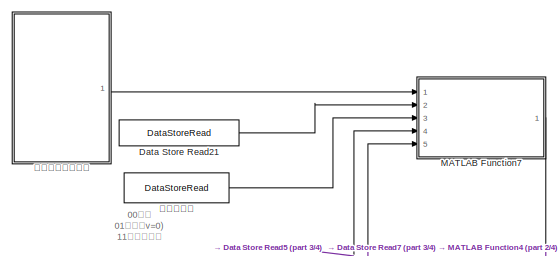
[diagram: Subsystem/Tx/TX控制器/控制器发送/184左前1 - part 1/4, top left region]
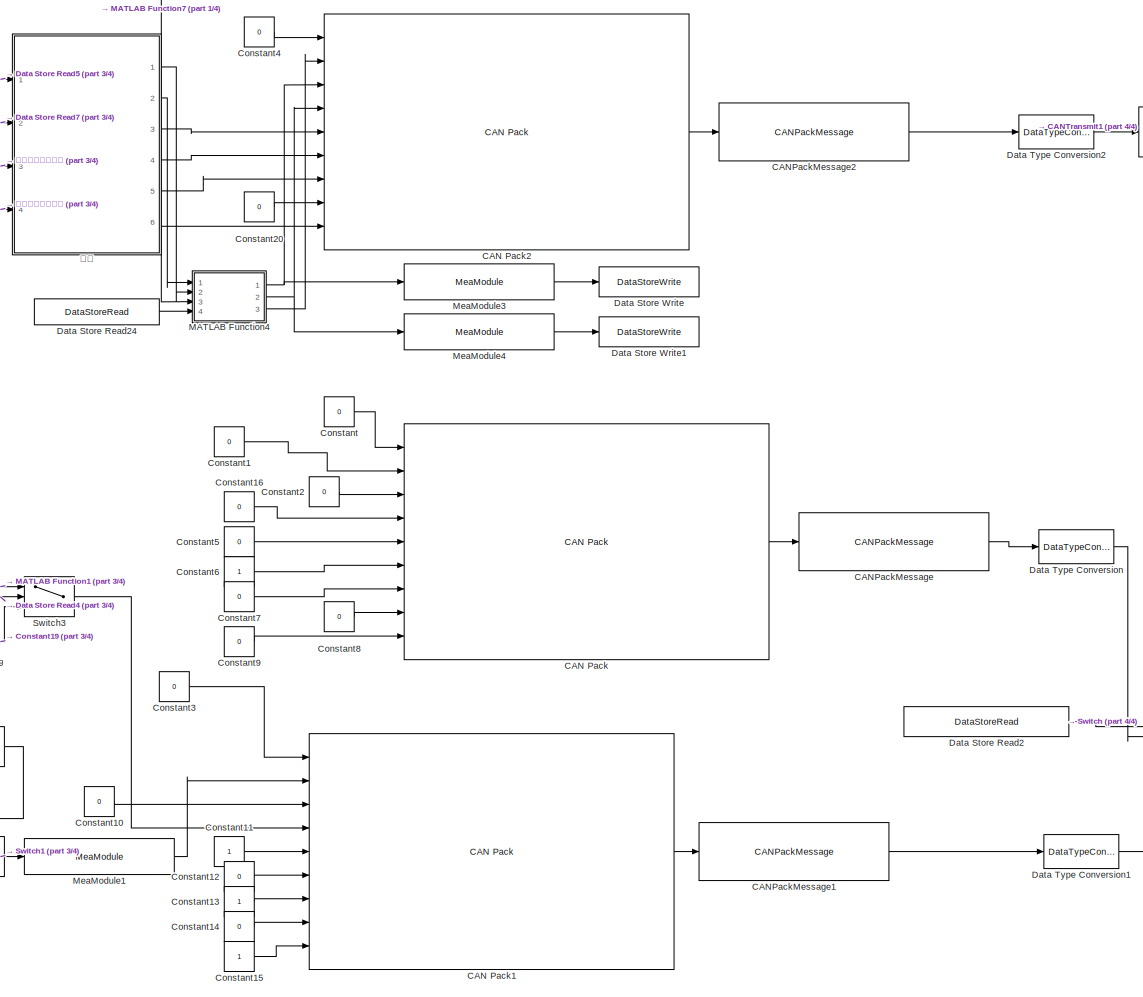
[diagram: Subsystem/Tx/TX控制器/控制器发送/184左前1 - part 2/4, center side, full height]
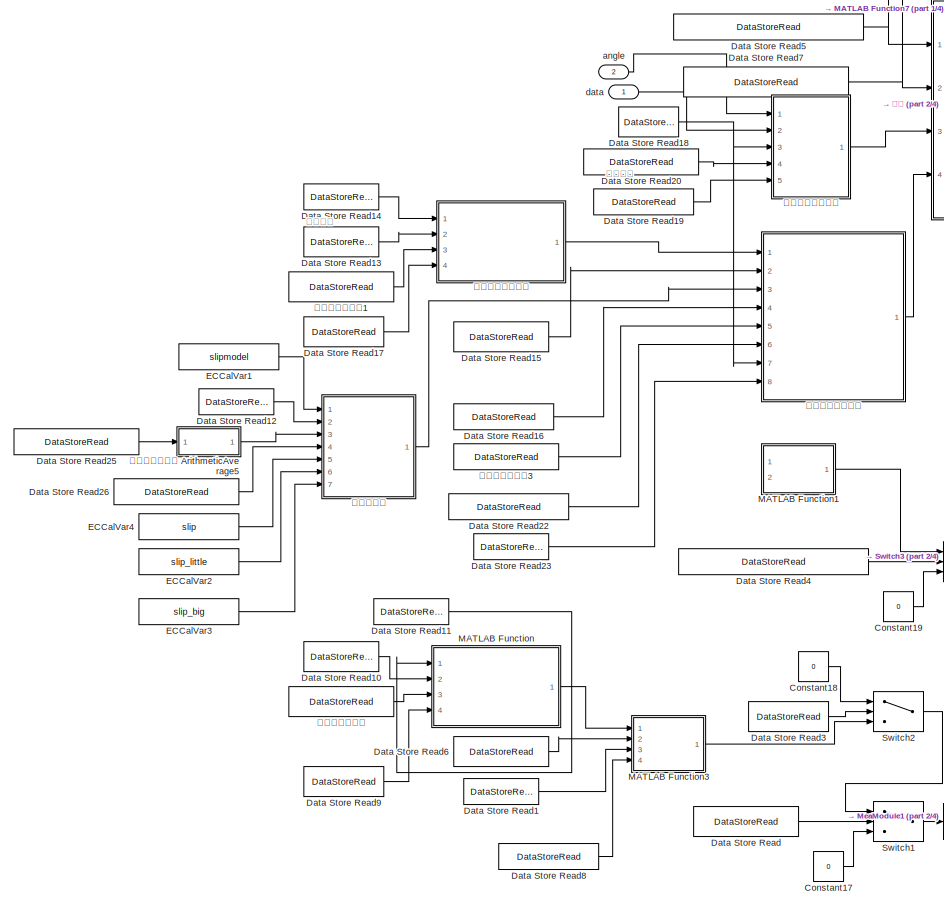
[diagram: Subsystem/Tx/TX控制器/控制器发送/184左前1 - part 3/4, middle left region]
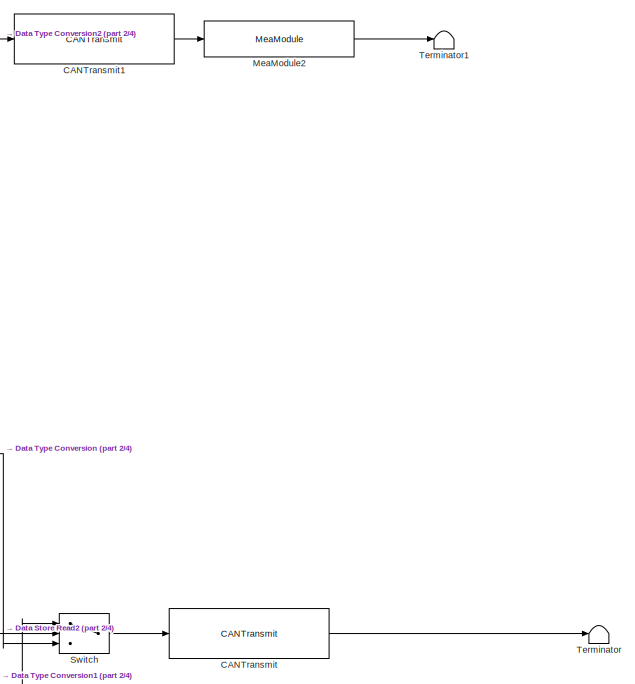
[diagram: Subsystem/Tx/TX控制器/控制器发送/184左前1 - part 4/4, middle right region]
BLOCK [SubSystem] Subsystem/Tx/TX控制器/控制器发送/184左前1
  Ports = [2]
  RequestExecContextInheritance = off
BLOCK [Reference] Subsystem/Tx/TX控制器/控制器发送/184左前1/CAN Pack  REF=canmsglib/CAN Pack
  Commented = on
  Ports = [9, 1]
  SourceBlock = canmsglib/CAN Pack
  SourceProductBaseCode = ME,XP,VN
  SourceType = CAN Pack
BLOCK [Reference] Subsystem/Tx/TX控制器/控制器发送/184左前1/CAN Pack1  REF=canmsglib/CAN Pack
  Commented = on
  Ports = [9, 1]
  SourceBlock = canmsglib/CAN Pack
  SourceProductBaseCode = ME,XP,VN
  SourceType = CAN Pack
BLOCK [Reference] Subsystem/Tx/TX控制器/控制器发送/184左前1/CAN Pack2  REF=canmsglib/CAN Pack
  Ports = [9, 1]
  SourceBlock = canmsglib/CAN Pack
  SourceProductBaseCode = ME,XP,VN
  SourceType = CAN Pack
BLOCK [Reference] Subsystem/Tx/TX控制器/控制器发送/184左前1/CANPackMessage  REF=ec5744lib/RapidECU_U4B/04CANCommunication/CANPackMessage
  Commented = on
  Ports = [1, 1]
  SourceBlock = ec5744lib/RapidECU_U4B/04CANCommunication/CANPackMessage
  SourceProductName = ECUCoder for MPC5744
  SourceType = CAN Pack Message Transmit
BLOCK [Reference] Subsystem/Tx/TX控制器/控制器发送/184左前1/CANPackMessage1  REF=ec5744lib/RapidECU_U4B/04CANCommunication/CANPackMessage
  Commented = on
  Ports = [1, 1]
  SourceBlock = ec5744lib/RapidECU_U4B/04CANCommunication/CANPackMessage
  SourceProductName = ECUCoder for MPC5744
  SourceType = CAN Pack Message Transmit
BLOCK [Reference] Subsystem/Tx/TX控制器/控制器发送/184左前1/CANPackMessage2  REF=ec5744lib/RapidECU_U4B/04CANCommunication/CANPackMessage
  Ports = [1, 1]
  SourceBlock = ec5744lib/RapidECU_U4B/04CANCommunication/CANPackMessage
  SourceProductName = ECUCoder for MPC5744
  SourceType = CAN Pack Message Transmit
BLOCK [Reference] Subsystem/Tx/TX控制器/控制器发送/184左前1/CANTransmit  REF=ec5744lib/RapidECU_U4B/04CANCommunication/CANTransmit
  Commented = on
  Ports = [1, 1]
  SourceBlock = ec5744lib/RapidECU_U4B/04CANCommunication/CANTransmit
  SourceProductName = ECUCoder for MPC5744
  SourceType = MPC5744 CAN Transmit
BLOCK [Reference] Subsystem/Tx/TX控制器/控制器发送/184左前1/CANTransmit1  REF=ec5744lib/RapidECU_U4B/04CANCommunication/CANTransmit
  Ports = [1, 1]
  SourceBlock = ec5744lib/RapidECU_U4B/04CANCommunication/CANTransmit
  SourceProductName = ECUCoder for MPC5744
  SourceType = MPC5744 CAN Transmit
BLOCK [Constant] Subsystem/Tx/TX控制器/控制器发送/184左前1/Constant
  Commented = on
  SampleTime = -1
  Value = 0
BLOCK [Constant] Subsystem/Tx/TX控制器/控制器发送/184左前1/Constant1
  Commented = on
  SampleTime = -1
  Value = 0
BLOCK [Constant] Subsystem/Tx/TX控制器/控制器发送/184左前1/Constant10
  Commented = on
  SampleTime = -1
  Value = 0
BLOCK [Constant] Subsystem/Tx/TX控制器/控制器发送/184左前1/Constant11
  Commented = on
  SampleTime = -1
BLOCK [Constant] Subsystem/Tx/TX控制器/控制器发送/184左前1/Constant12
  Commented = on
  SampleTime = -1
  Value = 0
BLOCK [Constant] Subsystem/Tx/TX控制器/控制器发送/184左前1/Constant13
  Commented = on
  SampleTime = -1
BLOCK [Constant] Subsystem/Tx/TX控制器/控制器发送/184左前1/Constant14
  Commented = on
  SampleTime = -1
  Value = 0
BLOCK [Constant] Subsystem/Tx/TX控制器/控制器发送/184左前1/Constant15
  Commented = on
  SampleTime = -1
BLOCK [Constant] Subsystem/Tx/TX控制器/控制器发送/184左前1/Constant16
  Commented = on
  SampleTime = -1
  Value = 0
BLOCK [Constant] Subsystem/Tx/TX控制器/控制器发送/184左前1/Constant17
  Commented = on
  SampleTime = -1
  Value = 0
BLOCK [Constant] Subsystem/Tx/TX控制器/控制器发送/184左前1/Constant18
  Commented = on
  Value = 0
BLOCK [Constant] Subsystem/Tx/TX控制器/控制器发送/184左前1/Constant19
  Commented = on
  SampleTime = -1
  Value = 0
BLOCK [Constant] Subsystem/Tx/TX控制器/控制器发送/184左前1/Constant2
  Commented = on
  SampleTime = -1
  Value = 0
BLOCK [Constant] Subsystem/Tx/TX控制器/控制器发送/184左前1/Constant20
  SampleTime = -1
  Value = 0
BLOCK [Constant] Subsystem/Tx/TX控制器/控制器发送/184左前1/Constant3
  Commented = on
  SampleTime = -1
  Value = 0
BLOCK [Constant] Subsystem/Tx/TX控制器/控制器发送/184左前1/Constant4
  SampleTime = -1
  Value = 0
BLOCK [Constant] Subsystem/Tx/TX控制器/控制器发送/184左前1/Constant5
  Commented = on
  SampleTime = -1
  Value = 0
BLOCK [Constant] Subsystem/Tx/TX控制器/控制器发送/184左前1/Constant6
  Commented = on
  SampleTime = -1
BLOCK [Constant] Subsystem/Tx/TX控制器/控制器发送/184左前1/Constant7
  Commented = on
  SampleTime = -1
  Value = 0
BLOCK [Constant] Subsystem/Tx/TX控制器/控制器发送/184左前1/Constant8
  Commented = on
  SampleTime = -1
  Value = 0
BLOCK [Constant] Subsystem/Tx/TX控制器/控制器发送/184左前1/Constant9
  Commented = on
  SampleTime = -1
  Value = 0
BLOCK [DataStoreRead] Subsystem/Tx/TX控制器/控制器发送/184左前1/Data Store Read
  Commented = on
  DataStoreName = lcu_enable_184
  Ports = [0, 1]
BLOCK [DataStoreRead] Subsystem/Tx/TX控制器/控制器发送/184左前1/Data Store Read1
  Commented = on
  DataStoreName = zuoqianvvv
  Ports = [0, 1]
BLOCK [DataStoreRead] Subsystem/Tx/TX控制器/控制器发送/184左前1/Data Store Read10
  Commented = on
  DataStoreName = escmax
  Ports = [0, 1]
BLOCK [DataStoreRead] Subsystem/Tx/TX控制器/控制器发送/184左前1/Data Store Read11
  Commented = on
  DataStoreName = V_workstation
  Ports = [0, 1]
BLOCK [DataStoreRead] Subsystem/Tx/TX控制器/控制器发送/184左前1/Data Store Read12
  DataStoreName = zuoqianvvv
  Ports = [0, 1]
BLOCK [DataStoreRead] Subsystem/Tx/TX控制器/控制器发送/184左前1/Data Store Read13
  DataStoreName = escmax
  Ports = [0, 1]
BLOCK [DataStoreRead] Subsystem/Tx/TX控制器/控制器发送/184左前1/Data Store Read14
  DataStoreName = V_workstation
  Ports = [0, 1]
BLOCK [DataStoreRead] Subsystem/Tx/TX控制器/控制器发送/184左前1/Data Store Read15
  DataStoreName = workstation_steering
  Ports = [0, 1]
BLOCK [DataStoreRead] Subsystem/Tx/TX控制器/控制器发送/184左前1/Data Store Read16
  DataStoreName = match_model
  Ports = [0, 1]
BLOCK [DataStoreRead] Subsystem/Tx/TX控制器/控制器发送/184左前1/Data Store Read17
  DataStoreName = huanting
  Ports = [0, 1]
BLOCK [DataStoreRead] Subsystem/Tx/TX控制器/控制器发送/184左前1/Data Store Read18
  DataStoreName = V_Kalman
  Ports = [0, 1]
BLOCK [DataStoreRead] Subsystem/Tx/TX控制器/控制器发送/184左前1/Data Store Read19
  DataStoreName = match_model
  Ports = [0, 1]
BLOCK [DataStoreRead] Subsystem/Tx/TX控制器/控制器发送/184左前1/Data Store Read2
  Commented = on
  DataStoreName = lcu_enable_184_1
  Ports = [0, 1]
BLOCK [DataStoreRead] Subsystem/Tx/TX控制器/控制器发送/184左前1/Data Store Read20
  DataStoreName = Tzuoqian
  Ports = [0, 1]
BLOCK [DataStoreRead] Subsystem/Tx/TX控制器/控制器发送/184左前1/Data Store Read21
  DataStoreName = oral_pressure_leftfront
  Ports = [0, 1]
BLOCK [DataStoreRead] Subsystem/Tx/TX控制器/控制器发送/184左前1/Data Store Read22
  DataStoreName = oral_pressure_leftfront
  Ports = [0, 1]
BLOCK [DataStoreRead] Subsystem/Tx/TX控制器/控制器发送/184左前1/Data Store Read23
  DataStoreName = youren_v
  Ports = [0, 1]
BLOCK [DataStoreRead] Subsystem/Tx/TX控制器/控制器发送/184左前1/Data Store Read24
  DataStoreName = dianji_velcoity_zuoqian
  Ports = [0, 1]
BLOCK [DataStoreRead] Subsystem/Tx/TX控制器/控制器发送/184左前1/Data Store Read25
  DataStoreName = dianji_velcoity_zuoqian
  Ports = [0, 1]
BLOCK [DataStoreRead] Subsystem/Tx/TX控制器/控制器发送/184左前1/Data Store Read26
  DataStoreName = v_zuoqian_guandao
  Ports = [0, 1]
BLOCK [DataStoreRead] Subsystem/Tx/TX控制器/控制器发送/184左前1/Data Store Read3
  Commented = on
  DataStoreName = huanting
  Ports = [0, 1]
BLOCK [DataStoreRead] Subsystem/Tx/TX控制器/控制器发送/184左前1/Data Store Read4
  Commented = on
  DataStoreName = lcu_enable_184
  Ports = [0, 1]
BLOCK [DataStoreRead] Subsystem/Tx/TX控制器/控制器发送/184左前1/Data Store Read5
  DataStoreName = lcu_enable_184
  Ports = [0, 1]
BLOCK [DataStoreRead] Subsystem/Tx/TX控制器/控制器发送/184左前1/Data Store Read6
  Commented = on
  DataStoreName = workstation_steering
  Ports = [0, 1]
BLOCK [DataStoreRead] Subsystem/Tx/TX控制器/控制器发送/184左前1/Data Store Read7
  DataStoreName = lcu_enable_184_1
  Ports = [0, 1]
BLOCK [DataStoreRead] Subsystem/Tx/TX控制器/控制器发送/184左前1/Data Store Read8
  Commented = on
  DataStoreName = match_model
  Ports = [0, 1]
BLOCK [DataStoreRead] Subsystem/Tx/TX控制器/控制器发送/184左前1/Data Store Read9
  Commented = on
  DataStoreName = huanting
  Ports = [0, 1]
BLOCK [DataStoreWrite] Subsystem/Tx/TX控制器/控制器发送/184左前1/Data Store Write
  DataStoreName = energyr_zuoqian
  Ports = [1]
BLOCK [DataStoreWrite] Subsystem/Tx/TX控制器/控制器发送/184左前1/Data Store Write1
  DataStoreName = torque_zuoqian
  Ports = [1]
BLOCK [DataTypeConversion] Subsystem/Tx/TX控制器/控制器发送/184左前1/Data Type Conversion
  Commented = on
  OutDataTypeStr = uint8
  RndMeth = Floor
  SaturateOnIntegerOverflow = off
BLOCK [DataTypeConversion] Subsystem/Tx/TX控制器/控制器发送/184左前1/Data Type Conversion1
  Commented = on
  OutDataTypeStr = uint8
  RndMeth = Floor
  SaturateOnIntegerOverflow = off
BLOCK [DataTypeConversion] Subsystem/Tx/TX控制器/控制器发送/184左前1/Data Type Conversion2
  OutDataTypeStr = uint8
  RndMeth = Floor
  SaturateOnIntegerOverflow = off
BLOCK [Constant] Subsystem/Tx/TX控制器/控制器发送/184左前1/ECCalVar1
  InitFcn = ecucoder_acal;
  OutDataTypeStr = Inherit: Inherit via back propagation
  SampleTime = -1
  Value = slipmodel
BLOCK [Constant] Subsystem/Tx/TX控制器/控制器发送/184左前1/ECCalVar2
  InitFcn = ecucoder_acal;
  OutDataTypeStr = Inherit: Inherit via back propagation
  SampleTime = -1
  Value = slip_little
BLOCK [Constant] Subsystem/Tx/TX控制器/控制器发送/184左前1/ECCalVar3
  InitFcn = ecucoder_acal;
  OutDataTypeStr = Inherit: Inherit via back propagation
  SampleTime = -1
  Value = slip_big
BLOCK [Constant] Subsystem/Tx/TX控制器/控制器发送/184左前1/ECCalVar4
  InitFcn = ecucoder_acal;
  OutDataTypeStr = Inherit: Inherit via back propagation
  SampleTime = -1
  Value = slip
BLOCK [SubSystem] Subsystem/Tx/TX控制器/控制器发送/184左前1/MATLAB Function
  Commented = on
  ErrorFcn = Stateflow.Translate.translate
  PermitHierarchicalResolution = ExplicitOnly
  Ports = [4, 1]
  RequestExecContextInheritance = off
  SFBlockType = MATLAB Function
  TreatAsAtomicUnit = on
BLOCK [Demux] Subsystem/Tx/TX控制器/控制器发送/184左前1/MATLAB Function/ Demux 
  Outputs = 1
  Ports = [1, 1]
BLOCK [S-Function] Subsystem/Tx/TX控制器/控制器发送/184左前1/MATLAB Function/ SFunction 
  EnableBusSupport = on
  FunctionName = sf_sfun
  PortCounts = [4 2]
  Ports = [4, 2]
  SFcnIsStateOwnerBlock = off
  SFunctionDeploymentMode = off
  Tag = Stateflow S-Function 204
BLOCK [Terminator] Subsystem/Tx/TX控制器/控制器发送/184左前1/MATLAB Function/ Terminator 
BLOCK [Inport] Subsystem/Tx/TX控制器/控制器发送/184左前1/MATLAB Function/huanting
  Port = 4
BLOCK [Inport] Subsystem/Tx/TX控制器/控制器发送/184左前1/MATLAB Function/u
BLOCK [Outport] Subsystem/Tx/TX控制器/控制器发送/184左前1/MATLAB Function/y
BLOCK [Inport] Subsystem/Tx/TX控制器/控制器发送/184左前1/MATLAB Function/zhidongebs
  Port = 3
BLOCK [Inport] Subsystem/Tx/TX控制器/控制器发送/184左前1/MATLAB Function/zhidongesc
  Port = 2
BLOCK [SubSystem] Subsystem/Tx/TX控制器/控制器发送/184左前1/MATLAB Function1
  Commented = on
  ErrorFcn = Stateflow.Translate.translate
  PermitHierarchicalResolution = ExplicitOnly
  Ports = [2, 1]
  RequestExecContextInheritance = off
  SFBlockType = MATLAB Function
  TreatAsAtomicUnit = on
BLOCK [Demux] Subsystem/Tx/TX控制器/控制器发送/184左前1/MATLAB Function1/ Demux 
  Outputs = 1
  Ports = [1, 1]
BLOCK [S-Function] Subsystem/Tx/TX控制器/控制器发送/184左前1/MATLAB Function1/ SFunction 
  EnableBusSupport = on
  FunctionName = sf_sfun
  PortCounts = [2 2]
  Ports = [2, 2]
  SFcnIsStateOwnerBlock = off
  SFunctionDeploymentMode = off
  Tag = Stateflow S-Function 205
BLOCK [Terminator] Subsystem/Tx/TX控制器/控制器发送/184左前1/MATLAB Function1/ Terminator 
BLOCK [Outport] Subsystem/Tx/TX控制器/控制器发送/184左前1/MATLAB Function1/T
BLOCK [Inport] Subsystem/Tx/TX控制器/控制器发送/184左前1/MATLAB Function1/a
  Port = 2
BLOCK [Inport] Subsystem/Tx/TX控制器/控制器发送/184左前1/MATLAB Function1/v
BLOCK [SubSystem] Subsystem/Tx/TX控制器/控制器发送/184左前1/MATLAB Function3
  Commented = on
  ErrorFcn = Stateflow.Translate.translate
  PermitHierarchicalResolution = ExplicitOnly
  Ports = [4, 1]
  RequestExecContextInheritance = off
  SFBlockType = MATLAB Function
  TreatAsAtomicUnit = on
BLOCK [Demux] Subsystem/Tx/TX控制器/控制器发送/184左前1/MATLAB Function3/ Demux 
  Outputs = 1
  Ports = [1, 1]
BLOCK [S-Function] Subsystem/Tx/TX控制器/控制器发送/184左前1/MATLAB Function3/ SFunction 
  EnableBusSupport = on
  FunctionName = sf_sfun
  PortCounts = [4 2]
  Ports = [4, 2]
  SFcnIsStateOwnerBlock = off
  SFunctionDeploymentMode = off
  Tag = Stateflow S-Function 207
BLOCK [Terminator] Subsystem/Tx/TX控制器/控制器发送/184左前1/MATLAB Function3/ Terminator 
BLOCK [Inport] Subsystem/Tx/TX控制器/控制器发送/184左前1/MATLAB Function3/angle
  Port = 2
BLOCK [Inport] Subsystem/Tx/TX控制器/控制器发送/184左前1/MATLAB Function3/model
  Port = 4
BLOCK [Inport] Subsystem/Tx/TX控制器/控制器发送/184左前1/MATLAB Function3/v
BLOCK [Inport] Subsystem/Tx/TX控制器/控制器发送/184左前1/MATLAB Function3/vz
  Port = 3
BLOCK [Outport] Subsystem/Tx/TX控制器/控制器发送/184左前1/MATLAB Function3/y
BLOCK [SubSystem] Subsystem/Tx/TX控制器/控制器发送/184左前1/MATLAB Function4
  ErrorFcn = Stateflow.Translate.translate
  PermitHierarchicalResolution = ExplicitOnly
  Ports = [4, 3]
  RequestExecContextInheritance = off
  SFBlockType = MATLAB Function
  TreatAsAtomicUnit = on
BLOCK [Demux] Subsystem/Tx/TX控制器/控制器发送/184左前1/MATLAB Function4/ Demux 
  Outputs = 1
  Ports = [1, 1]
BLOCK [S-Function] Subsystem/Tx/TX控制器/控制器发送/184左前1/MATLAB Function4/ SFunction 
  EnableBusSupport = on
  FunctionName = sf_sfun
  PortCounts = [4 4]
  Ports = [4, 4]
  SFcnIsStateOwnerBlock = off
  SFunctionDeploymentMode = off
  Tag = Stateflow S-Function 208
BLOCK [Terminator] Subsystem/Tx/TX控制器/控制器发送/184左前1/MATLAB Function4/ Terminator 
BLOCK [Outport] Subsystem/Tx/TX控制器/控制器发送/184左前1/MATLAB Function4/NT
BLOCK [Outport] Subsystem/Tx/TX控制器/控制器发送/184左前1/MATLAB Function4/T
  Port = 2
BLOCK [Inport] Subsystem/Tx/TX控制器/控制器发送/184左前1/MATLAB Function4/TargetVelocity
  Port = 2
BLOCK [Inport] Subsystem/Tx/TX控制器/控制器发送/184左前1/MATLAB Function4/neg
  Port = 3
BLOCK [Inport] Subsystem/Tx/TX控制器/控制器发送/184左前1/MATLAB Function4/pos
BLOCK [Outport] Subsystem/Tx/TX控制器/控制器发送/184左前1/MATLAB Function4/v
  Port = 3
BLOCK [Inport] Subsystem/Tx/TX控制器/控制器发送/184左前1/MATLAB Function4/wheel_v
  Port = 4
BLOCK [SubSystem] Subsystem/Tx/TX控制器/控制器发送/184左前1/MATLAB Function7
  ErrorFcn = Stateflow.Translate.translate
  PermitHierarchicalResolution = ExplicitOnly
  Ports = [5, 1]
  RequestExecContextInheritance = off
  SFBlockType = MATLAB Function
  TreatAsAtomicUnit = on
BLOCK [Demux] Subsystem/Tx/TX控制器/控制器发送/184左前1/MATLAB Function7/ Demux 
  Outputs = 1
  Ports = [1, 1]
BLOCK [S-Function] Subsystem/Tx/TX控制器/控制器发送/184左前1/MATLAB Function7/ SFunction 
  EnableBusSupport = on
  FunctionName = sf_sfun
  PortCounts = [5 2]
  Ports = [5, 2]
  SFcnIsStateOwnerBlock = off
  SFunctionDeploymentMode = off
  Tag = Stateflow S-Function 209
BLOCK [Terminator] Subsystem/Tx/TX控制器/控制器发送/184左前1/MATLAB Function7/ Terminator 
BLOCK [Inport] Subsystem/Tx/TX控制器/控制器发送/184左前1/MATLAB Function7/T
BLOCK [Inport] Subsystem/Tx/TX控制器/控制器发送/184左前1/MATLAB Function7/enable
  Port = 4
BLOCK [Inport] Subsystem/Tx/TX控制器/控制器发送/184左前1/MATLAB Function7/enable_1
  Port = 5
BLOCK [Inport] Subsystem/Tx/TX控制器/控制器发送/184左前1/MATLAB Function7/wurenyouya
  Port = 2
BLOCK [Outport] Subsystem/Tx/TX控制器/控制器发送/184左前1/MATLAB Function7/y
BLOCK [Inport] Subsystem/Tx/TX控制器/控制器发送/184左前1/MATLAB Function7/youya
  Port = 3
BLOCK [Reference] Subsystem/Tx/TX控制器/控制器发送/184左前1/MeaModule1  REF=ec5744lib/RapidECU_U4B/07Calibration/MeaModule
  Commented = on
  Ports = [1, 1]
  SourceBlock = ec5744lib/RapidECU_U4B/07Calibration/MeaModule
  SourceProductName = ECUCoder for MPC5744
  SourceType = Measurement Module
BLOCK [Reference] Subsystem/Tx/TX控制器/控制器发送/184左前1/MeaModule2  REF=ec5744lib/RapidECU_U4B/07Calibration/MeaModule
  Ports = [1, 1]
  SourceBlock = ec5744lib/RapidECU_U4B/07Calibration/MeaModule
  SourceProductName = ECUCoder for MPC5744
  SourceType = Measurement Module
BLOCK [Reference] Subsystem/Tx/TX控制器/控制器发送/184左前1/MeaModule3  REF=ec5744lib/RapidECU_U4B/07Calibration/MeaModule
  Ports = [1, 1]
  SourceBlock = ec5744lib/RapidECU_U4B/07Calibration/MeaModule
  SourceProductName = ECUCoder for MPC5744
  SourceType = Measurement Module
BLOCK [Reference] Subsystem/Tx/TX控制器/控制器发送/184左前1/MeaModule4  REF=ec5744lib/RapidECU_U4B/07Calibration/MeaModule
  Ports = [1, 1]
  SourceBlock = ec5744lib/RapidECU_U4B/07Calibration/MeaModule
  SourceProductName = ECUCoder for MPC5744
  SourceType = Measurement Module
BLOCK [Switch] Subsystem/Tx/TX控制器/控制器发送/184左前1/Switch
  Commented = on
  Criteria = u2 > Threshold
  InputSameDT = off
  SaturateOnIntegerOverflow = off
  Threshold = 0.9
BLOCK [Switch] Subsystem/Tx/TX控制器/控制器发送/184左前1/Switch1
  Commented = on
  Criteria = u2 > Threshold
  InputSameDT = off
  SaturateOnIntegerOverflow = off
BLOCK [Switch] Subsystem/Tx/TX控制器/控制器发送/184左前1/Switch2
  Commented = on
  Criteria = u2 > Threshold
  InputSameDT = off
  SaturateOnIntegerOverflow = off
BLOCK [Switch] Subsystem/Tx/TX控制器/控制器发送/184左前1/Switch3
  Commented = on
  Criteria = u2 > Threshold
  InputSameDT = off
  SaturateOnIntegerOverflow = off
BLOCK [Terminator] Subsystem/Tx/TX控制器/控制器发送/184左前1/Terminator
  Commented = on
BLOCK [Terminator] Subsystem/Tx/TX控制器/控制器发送/184左前1/Terminator1
BLOCK [Inport] Subsystem/Tx/TX控制器/控制器发送/184左前1/angle
  Port = 2
BLOCK [Inport] Subsystem/Tx/TX控制器/控制器发送/184左前1/data
BLOCK [SubSystem] Subsystem/Tx/TX控制器/控制器发送/184左前1/复位
  ErrorFcn = Stateflow.Translate.translate
  PermitHierarchicalResolution = ExplicitOnly
  Ports = [4, 6]
  RequestExecContextInheritance = off
  SFBlockType = MATLAB Function
  TreatAsAtomicUnit = on
BLOCK [Demux] Subsystem/Tx/TX控制器/控制器发送/184左前1/复位/ Demux 
  Outputs = 1
  Ports = [1, 1]
BLOCK [S-Function] Subsystem/Tx/TX控制器/控制器发送/184左前1/复位/ SFunction 
  EnableBusSupport = on
  FunctionName = sf_sfun
  PortCounts = [4 7]
  Ports = [4, 7]
  SFcnIsStateOwnerBlock = off
  SFunctionDeploymentMode = off
  Tag = Stateflow S-Function 210
BLOCK [Terminator] Subsystem/Tx/TX控制器/控制器发送/184左前1/复位/ Terminator 
BLOCK [Outport] Subsystem/Tx/TX控制器/控制器发送/184左前1/复位/AMK_TorqueLimitPositive
  Port = 2
BLOCK [Outport] Subsystem/Tx/TX控制器/控制器发送/184左前1/复位/CAN_dbcon
  Port = 6
BLOCK [Inport] Subsystem/Tx/TX控制器/控制器发送/184左前1/复位/T
  Port = 3
BLOCK [Outport] Subsystem/Tx/TX控制器/控制器发送/184左前1/复位/TargetVelocity
BLOCK [Outport] Subsystem/Tx/TX控制器/控制器发送/184左前1/复位/blnverteron
  Port = 5
BLOCK [Outport] Subsystem/Tx/TX控制器/控制器发送/184左前1/复位/enable
  Port = 3
BLOCK [Inport] Subsystem/Tx/TX控制器/控制器发送/184左前1/复位/enable 
BLOCK [Inport] Subsystem/Tx/TX控制器/控制器发送/184左前1/复位/enable_1
  Port = 2
BLOCK [Outport] Subsystem/Tx/TX控制器/控制器发送/184左前1/复位/errorreset
  Port = 4
BLOCK [Inport] Subsystem/Tx/TX控制器/控制器发送/184左前1/复位/v
  Port = 4
BLOCK [DataStoreRead] Subsystem/Tx/TX控制器/控制器发送/184左前1/无人制动标志位
  Commented = on
  DataStoreName = wurenzhidongdeng
  Ports = [0, 1]
BLOCK [DataStoreRead] Subsystem/Tx/TX控制器/控制器发送/184左前1/无人制动标志位1
  DataStoreName = wurenzhidongdeng
  Ports = [0, 1]
BLOCK [DataStoreRead] Subsystem/Tx/TX控制器/控制器发送/184左前1/无人制动标志位3
  DataStoreName = wurenzhidongdeng
  Ports = [0, 1]
BLOCK [SubSystem] Subsystem/Tx/TX控制器/控制器发送/184左前1/无人模式速度判断
  ErrorFcn = Stateflow.Translate.translate
  PermitHierarchicalResolution = ExplicitOnly
  Ports = [4, 1]
  RequestExecContextInheritance = off
  SFBlockType = MATLAB Function
  TreatAsAtomicUnit = on
BLOCK [Demux] Subsystem/Tx/TX控制器/控制器发送/184左前1/无人模式速度判断/ Demux 
  Outputs = 1
  Ports = [1, 1]
BLOCK [S-Function] Subsystem/Tx/TX控制器/控制器发送/184左前1/无人模式速度判断/ SFunction 
  EnableBusSupport = on
  FunctionName = sf_sfun
  PortCounts = [4 2]
  Ports = [4, 2]
  SFcnIsStateOwnerBlock = off
  SFunctionDeploymentMode = off
  Tag = Stateflow S-Function 211
BLOCK [Terminator] Subsystem/Tx/TX控制器/控制器发送/184左前1/无人模式速度判断/ Terminator 
BLOCK [Inport] Subsystem/Tx/TX控制器/控制器发送/184左前1/无人模式速度判断/huanting
  Port = 4
BLOCK [Inport] Subsystem/Tx/TX控制器/控制器发送/184左前1/无人模式速度判断/u
BLOCK [Outport] Subsystem/Tx/TX控制器/控制器发送/184左前1/无人模式速度判断/y
BLOCK [Inport] Subsystem/Tx/TX控制器/控制器发送/184左前1/无人模式速度判断/zhidongebs
  Port = 3
BLOCK [Inport] Subsystem/Tx/TX控制器/控制器发送/184左前1/无人模式速度判断/zhidongesc
  Port = 2
BLOCK [SubSystem] Subsystem/Tx/TX控制器/控制器发送/184左前1/有人无人扭矩转换
  ErrorFcn = Stateflow.Translate.translate
  PermitHierarchicalResolution = ExplicitOnly
  Ports = [5, 1]
  RequestExecContextInheritance = off
  SFBlockType = MATLAB Function
  TreatAsAtomicUnit = on
BLOCK [Demux] Subsystem/Tx/TX控制器/控制器发送/184左前1/有人无人扭矩转换/ Demux 
  Outputs = 1
  Ports = [1, 1]
BLOCK [S-Function] Subsystem/Tx/TX控制器/控制器发送/184左前1/有人无人扭矩转换/ SFunction 
  EnableBusSupport = on
  FunctionName = sf_sfun
  PortCounts = [5 2]
  Ports = [5, 2]
  SFcnIsStateOwnerBlock = off
  SFunctionDeploymentMode = off
  Tag = Stateflow S-Function 212
BLOCK [Terminator] Subsystem/Tx/TX控制器/控制器发送/184左前1/有人无人扭矩转换/ Terminator 
BLOCK [Outport] Subsystem/Tx/TX控制器/控制器发送/184左前1/有人无人扭矩转换/T
BLOCK [Inport] Subsystem/Tx/TX控制器/控制器发送/184左前1/有人无人扭矩转换/angle
BLOCK [Inport] Subsystem/Tx/TX控制器/控制器发送/184左前1/有人无人扭矩转换/baziniujv
  Port = 2
BLOCK [Inport] Subsystem/Tx/TX控制器/控制器发送/184左前1/有人无人扭矩转换/model
  Port = 5
BLOCK [Inport] Subsystem/Tx/TX控制器/控制器发送/184左前1/有人无人扭矩转换/v
  Port = 3
BLOCK [Inport] Subsystem/Tx/TX控制器/控制器发送/184左前1/有人无人扭矩转换/youren
  Port = 4
BLOCK [SubSystem] Subsystem/Tx/TX控制器/控制器发送/184左前1/有人无人速度转换
  ErrorFcn = Stateflow.Translate.translate
  PermitHierarchicalResolution = ExplicitOnly
  Ports = [8, 1]
  RequestExecContextInheritance = off
  SFBlockType = MATLAB Function
  TreatAsAtomicUnit = on
BLOCK [Demux] Subsystem/Tx/TX控制器/控制器发送/184左前1/有人无人速度转换/ Demux 
  Outputs = 1
  Ports = [1, 1]
BLOCK [S-Function] Subsystem/Tx/TX控制器/控制器发送/184左前1/有人无人速度转换/ SFunction 
  EnableBusSupport = on
  FunctionName = sf_sfun
  PortCounts = [8 2]
  Ports = [8, 2]
  SFcnIsStateOwnerBlock = off
  SFunctionDeploymentMode = off
  Tag = Stateflow S-Function 213
BLOCK [Terminator] Subsystem/Tx/TX控制器/控制器发送/184左前1/有人无人速度转换/ Terminator 
BLOCK [Inport] Subsystem/Tx/TX控制器/控制器发送/184左前1/有人无人速度转换/T
  Port = 6
BLOCK [Inport] Subsystem/Tx/TX控制器/控制器发送/184左前1/有人无人速度转换/angle
  Port = 2
BLOCK [Inport] Subsystem/Tx/TX控制器/控制器发送/184左前1/有人无人速度转换/model
  Port = 4
BLOCK [Inport] Subsystem/Tx/TX控制器/控制器发送/184左前1/有人无人速度转换/v
BLOCK [Inport] Subsystem/Tx/TX控制器/控制器发送/184左前1/有人无人速度转换/v_youren
  Port = 8
BLOCK [Inport] Subsystem/Tx/TX控制器/控制器发送/184左前1/有人无人速度转换/vk
  Port = 7
BLOCK [Inport] Subsystem/Tx/TX控制器/控制器发送/184左前1/有人无人速度转换/vz
  Port = 3
BLOCK [Outport] Subsystem/Tx/TX控制器/控制器发送/184左前1/有人无人速度转换/y
BLOCK [Inport] Subsystem/Tx/TX控制器/控制器发送/184左前1/有人无人速度转换/zhidong
  Port = 5
BLOCK [DataStoreRead] Subsystem/Tx/TX控制器/控制器发送/184左前1/油压传感器
  DataStoreName = ebszhidongyouya
  Ports = [0, 1]
BLOCK [SubSystem] Subsystem/Tx/TX控制器/控制器发送/184左前1/滑移率控制
  ErrorFcn = Stateflow.Translate.translate
  PermitHierarchicalResolution = ExplicitOnly
  Ports = [7, 1]
  RequestExecContextInheritance = off
  SFBlockType = MATLAB Function
  TreatAsAtomicUnit = on
BLOCK [Demux] Subsystem/Tx/TX控制器/控制器发送/184左前1/滑移率控制/ Demux 
  Outputs = 1
  Ports = [1, 1]
BLOCK [S-Function] Subsystem/Tx/TX控制器/控制器发送/184左前1/滑移率控制/ SFunction 
  EnableBusSupport = on
  FunctionName = sf_sfun
  PortCounts = [7 2]
  Ports = [7, 2]
  SFcnIsStateOwnerBlock = off
  SFunctionDeploymentMode = off
  Tag = Stateflow S-Function 40
BLOCK [Terminator] Subsystem/Tx/TX控制器/控制器发送/184左前1/滑移率控制/ Terminator 
BLOCK [Inport] Subsystem/Tx/TX控制器/控制器发送/184左前1/滑移率控制/model
BLOCK [Inport] Subsystem/Tx/TX控制器/控制器发送/184左前1/滑移率控制/slip_big
  Port = 7
BLOCK [Inport] Subsystem/Tx/TX控制器/控制器发送/184左前1/滑移率控制/slip_little
  Port = 6
BLOCK [Inport] Subsystem/Tx/TX控制器/控制器发送/184左前1/滑移率控制/slipp
  Port = 5
BLOCK [Inport] Subsystem/Tx/TX控制器/控制器发送/184左前1/滑移率控制/v
  Port = 4
BLOCK [Inport] Subsystem/Tx/TX控制器/控制器发送/184左前1/滑移率控制/v_e
  Port = 2
BLOCK [Inport] Subsystem/Tx/TX控制器/控制器发送/184左前1/滑移率控制/v_w
  Port = 3
BLOCK [Outport] Subsystem/Tx/TX控制器/控制器发送/184左前1/滑移率控制/y
BLOCK [SubSystem] Subsystem/Tx/TX控制器/控制器发送/184左前1/算术平均值滤波 ArithmeticAverage5
  Ports = [1, 1]
  RequestExecContextInheritance = off
BLOCK [Constant] Subsystem/Tx/TX控制器/控制器发送/184左前1/算术平均值滤波 ArithmeticAverage5/Constant
  Value = 10
BLOCK [Product] Subsystem/Tx/TX控制器/控制器发送/184左前1/算术平均值滤波 ArithmeticAverage5/Divide
  Inputs = */
  Ports = [2, 1]
BLOCK [Inport] Subsystem/Tx/TX控制器/控制器发送/184左前1/算术平均值滤波 ArithmeticAverage5/In1
BLOCK [Sum] Subsystem/Tx/TX控制器/控制器发送/184左前1/算术平均值滤波 ArithmeticAverage5/Sum of Elements
  IconShape = rectangular
  Inputs = +
  Ports = [1, 1]
BLOCK [Reference] Subsystem/Tx/TX控制器/控制器发送/184左前1/算术平均值滤波 ArithmeticAverage5/Tapped Delay  REF=simulink/Discrete/Tapped Delay
  Ports = [1, 1]
  SourceBlock = simulink/Discrete/Tapped Delay
  SourceProductBaseCode = SL
  SourceType = Tapped Delay Line
BLOCK [Outport] Subsystem/Tx/TX控制器/控制器发送/184左前1/算术平均值滤波 ArithmeticAverage5/angle
BLOCK [SubSystem] Subsystem/Tx/TX控制器/控制器发送/184左前1/能量回收功率限制
  Ports = [0, 1]
  RequestExecContextInheritance = off
BLOCK [Constant] Subsystem/Tx/TX控制器/控制器发送/184左前1/能量回收功率限制/Constant1
  Value = 2
BLOCK [Constant] Subsystem/Tx/TX控制器/控制器发送/184左前1/能量回收功率限制/Constant24
  Value = 1000
BLOCK [DataStoreRead] Subsystem/Tx/TX控制器/控制器发送/184左前1/能量回收功率限制/Data Store Read1
  DataStoreName = er_T_lf
  Ports = [0, 1]
BLOCK [DataStoreRead] Subsystem/Tx/TX控制器/控制器发送/184左前1/能量回收功率限制/Data Store Read2
  DataStoreName = match_model
  Ports = [0, 1]
BLOCK [DataStoreRead] Subsystem/Tx/TX控制器/控制器发送/184左前1/能量回收功率限制/Data Store Read23
  DataStoreName = match_model
  Ports = [0, 1]
BLOCK [DataStoreRead] Subsystem/Tx/TX控制器/控制器发送/184左前1/能量回收功率限制/Data Store Read25
  DataStoreName = er_v_lf
  Ports = [0, 1]
BLOCK [DataStoreRead] Subsystem/Tx/TX控制器/控制器发送/184左前1/能量回收功率限制/Data Store Read3
  DataStoreName = oral_pressure_leftfront
  Ports = [0, 1]
BLOCK [DataStoreRead] Subsystem/Tx/TX控制器/控制器发送/184左前1/能量回收功率限制/Data Store Read4
  DataStoreName = Power_recovery
  Ports = [0, 1]
BLOCK [DataStoreRead] Subsystem/Tx/TX控制器/控制器发送/184左前1/能量回收功率限制/Data Store Read5
  DataStoreName = Negativ_T
  Ports = [0, 1]
BLOCK [DataStoreRead] Subsystem/Tx/TX控制器/控制器发送/184左前1/能量回收功率限制/Data Store Read6
  DataStoreName = Power_recovery_xunji
  Ports = [0, 1]
BLOCK [DataStoreRead] Subsystem/Tx/TX控制器/控制器发送/184左前1/能量回收功率限制/Data Store Read7
  DataStoreName = Power_recovery_zhixian
  Ports = [0, 1]
BLOCK [DataStoreRead] Subsystem/Tx/TX控制器/控制器发送/184左前1/能量回收功率限制/Data Store Read8
  DataStoreName = workstation_status
  Ports = [0, 1]
BLOCK [Product] Subsystem/Tx/TX控制器/控制器发送/184左前1/能量回收功率限制/Divide
  Inputs = */
  Ports = [2, 1]
BLOCK [Product] Subsystem/Tx/TX控制器/控制器发送/184左前1/能量回收功率限制/Divide1
  Inputs = ***/
  Ports = [4, 1]
BLOCK [Product] Subsystem/Tx/TX控制器/控制器发送/184左前1/能量回收功率限制/Divide2
  Inputs = **
  Ports = [2, 1]
BLOCK [Gain] Subsystem/Tx/TX控制器/控制器发送/184左前1/能量回收功率限制/Gain
  Gain = 100
BLOCK [Gain] Subsystem/Tx/TX控制器/控制器发送/184左前1/能量回收功率限制/Gain1
  Gain = 1.5
BLOCK [SubSystem] Subsystem/Tx/TX控制器/控制器发送/184左前1/能量回收功率限制/MATLAB Function
  ErrorFcn = Stateflow.Translate.translate
  PermitHierarchicalResolution = ExplicitOnly
  Ports = [5, 1]
  RequestExecContextInheritance = off
  SFBlockType = MATLAB Function
  TreatAsAtomicUnit = on
BLOCK [Demux] Subsystem/Tx/TX控制器/控制器发送/184左前1/能量回收功率限制/MATLAB Function/ Demux 
  Outputs = 1
  Ports = [1, 1]
BLOCK [S-Function] Subsystem/Tx/TX控制器/控制器发送/184左前1/能量回收功率限制/MATLAB Function/ SFunction 
  EnableBusSupport = on
  FunctionName = sf_sfun
  PortCounts = [5 2]
  Ports = [5, 2]
  SFcnIsStateOwnerBlock = off
  SFunctionDeploymentMode = off
  Tag = Stateflow S-Function 214
BLOCK [Terminator] Subsystem/Tx/TX控制器/控制器发送/184左前1/能量回收功率限制/MATLAB Function/ Terminator 
BLOCK [Inport] Subsystem/Tx/TX控制器/控制器发送/184左前1/能量回收功率限制/MATLAB Function/Negativ_T
  Port = 5
BLOCK [Outport] Subsystem/Tx/TX控制器/控制器发送/184左前1/能量回收功率限制/MATLAB Function/T
BLOCK [Inport] Subsystem/Tx/TX控制器/控制器发送/184左前1/能量回收功率限制/MATLAB Function/model
  Port = 2
BLOCK [Inport] Subsystem/Tx/TX控制器/控制器发送/184左前1/能量回收功率限制/MATLAB Function/status
  Port = 3
BLOCK [Inport] Subsystem/Tx/TX控制器/控制器发送/184左前1/能量回收功率限制/MATLAB Function/wurenyouya
  Port = 4
BLOCK [Inport] Subsystem/Tx/TX控制器/控制器发送/184左前1/能量回收功率限制/MATLAB Function/youya
BLOCK [SubSystem] Subsystem/Tx/TX控制器/控制器发送/184左前1/能量回收功率限制/MATLAB Function1
  ErrorFcn = Stateflow.Translate.translate
  PermitHierarchicalResolution = ExplicitOnly
  Ports = [4, 1]
  RequestExecContextInheritance = off
  SFBlockType = MATLAB Function
  TreatAsAtomicUnit = on
BLOCK [Demux] Subsystem/Tx/TX控制器/控制器发送/184左前1/能量回收功率限制/MATLAB Function1/ Demux 
  Outputs = 1
  Ports = [1, 1]
BLOCK [S-Function] Subsystem/Tx/TX控制器/控制器发送/184左前1/能量回收功率限制/MATLAB Function1/ SFunction 
  EnableBusSupport = on
  FunctionName = sf_sfun
  PortCounts = [4 2]
  Ports = [4, 2]
  SFcnIsStateOwnerBlock = off
  SFunctionDeploymentMode = off
  Tag = Stateflow S-Function 215
BLOCK [Terminator] Subsystem/Tx/TX控制器/控制器发送/184左前1/能量回收功率限制/MATLAB Function1/ Terminator 
BLOCK [Inport] Subsystem/Tx/TX控制器/控制器发送/184左前1/能量回收功率限制/MATLAB Function1/Iq
  Port = 2
BLOCK [Inport] Subsystem/Tx/TX控制器/控制器发送/184左前1/能量回收功率限制/MATLAB Function1/L_Iq
  Port = 3
BLOCK [Inport] Subsystem/Tx/TX控制器/控制器发送/184左前1/能量回收功率限制/MATLAB Function1/L_er_T
  Port = 4
BLOCK [Outport] Subsystem/Tx/TX控制器/控制器发送/184左前1/能量回收功率限制/MATLAB Function1/T
BLOCK [Inport] Subsystem/Tx/TX控制器/控制器发送/184左前1/能量回收功率限制/MATLAB Function1/er_T
BLOCK [Reference] Subsystem/Tx/TX控制器/控制器发送/184左前1/能量回收功率限制/MeaModule  REF=ec5744lib/RapidECU_U4B/07Calibration/MeaModule
  Ports = [1, 1]
  SourceBlock = ec5744lib/RapidECU_U4B/07Calibration/MeaModule
  SourceProductName = ECUCoder for MPC5744
  SourceType = Measurement Module
BLOCK [SubSystem] Subsystem/Tx/TX控制器/控制器发送/184左前1/能量回收功率限制/P功率
  ErrorFcn = Stateflow.Translate.translate
  PermitHierarchicalResolution = ExplicitOnly
  Ports = [4, 1]
  RequestExecContextInheritance = off
  SFBlockType = MATLAB Function
  TreatAsAtomicUnit = on
BLOCK [Demux] Subsystem/Tx/TX控制器/控制器发送/184左前1/能量回收功率限制/P功率/ Demux 
  Outputs = 1
  Ports = [1, 1]
BLOCK [S-Function] Subsystem/Tx/TX控制器/控制器发送/184左前1/能量回收功率限制/P功率/ SFunction 
  EnableBusSupport = on
  FunctionName = sf_sfun
  PortCounts = [4 2]
  Ports = [4, 2]
  SFcnIsStateOwnerBlock = off
  SFunctionDeploymentMode = off
  Tag = Stateflow S-Function 35
BLOCK [Terminator] Subsystem/Tx/TX控制器/控制器发送/184左前1/能量回收功率限制/P功率/ Terminator 
BLOCK [Inport] Subsystem/Tx/TX控制器/控制器发送/184左前1/能量回收功率限制/P功率/P
BLOCK [Inport] Subsystem/Tx/TX控制器/控制器发送/184左前1/能量回收功率限制/P功率/P1
  Port = 2
BLOCK [Inport] Subsystem/Tx/TX控制器/控制器发送/184左前1/能量回收功率限制/P功率/P2
  Port = 3
BLOCK [Inport] Subsystem/Tx/TX控制器/控制器发送/184左前1/能量回收功率限制/P功率/model
  Port = 4
BLOCK [Outport] Subsystem/Tx/TX控制器/控制器发送/184左前1/能量回收功率限制/P功率/y
BLOCK [Saturate] Subsystem/Tx/TX控制器/控制器发送/184左前1/能量回收功率限制/Saturation
  LowerLimit = -1500
  UpperLimit = 0
BLOCK [Saturate] Subsystem/Tx/TX控制器/控制器发送/184左前1/能量回收功率限制/Saturation1
  LowerLimit = -1500
  UpperLimit = 1500
BLOCK [Saturate] Subsystem/Tx/TX控制器/控制器发送/184左前1/能量回收功率限制/Saturation2
  LowerLimit = -1500
  UpperLimit = 0
BLOCK [Sqrt] Subsystem/Tx/TX控制器/控制器发送/184左前1/能量回收功率限制/Sqrt
BLOCK [Outport] Subsystem/Tx/TX控制器/控制器发送/184左前1/能量回收功率限制/T
BLOCK [Constant] Subsystem/Tx/TX控制器/控制器发送/184左前1/能量回收功率限制/扭矩常量Kr  N//A
  Value = 0.26
BLOCK [DataStoreRead] Subsystem/Tx/TX控制器/控制器发送/184左前1/能量回收功率限制/油压传感器
  DataStoreName = ebszhidongyouya
  Ports = [0, 1]
BLOCK [Constant] Subsystem/Tx/TX控制器/控制器发送/184左前1/能量回收功率限制/电压常数Ke V//kU//min
  Value = 18.8
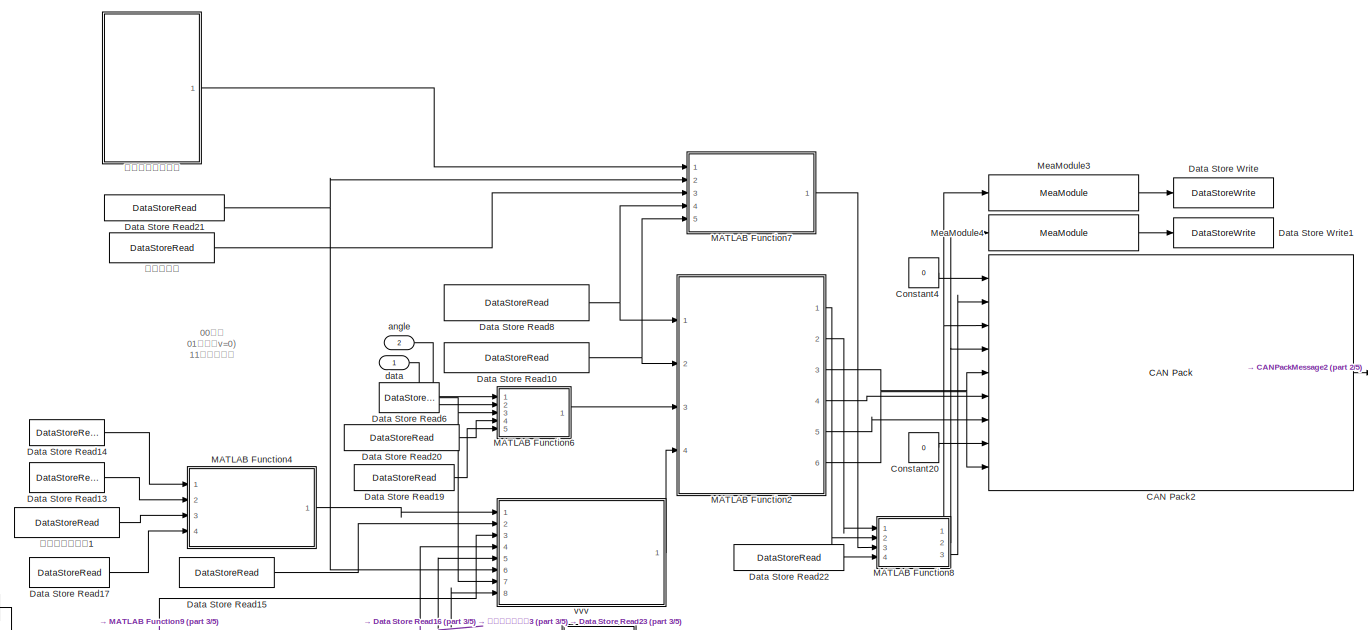
[diagram: Subsystem/Tx/TX控制器/控制器发送/185右前1 - part 1/5, top left region]
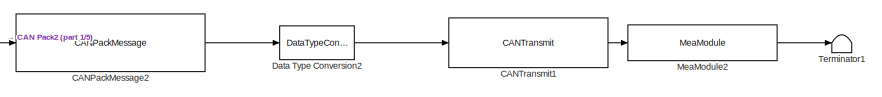
[diagram: Subsystem/Tx/TX控制器/控制器发送/185右前1 - part 2/5, top right region]
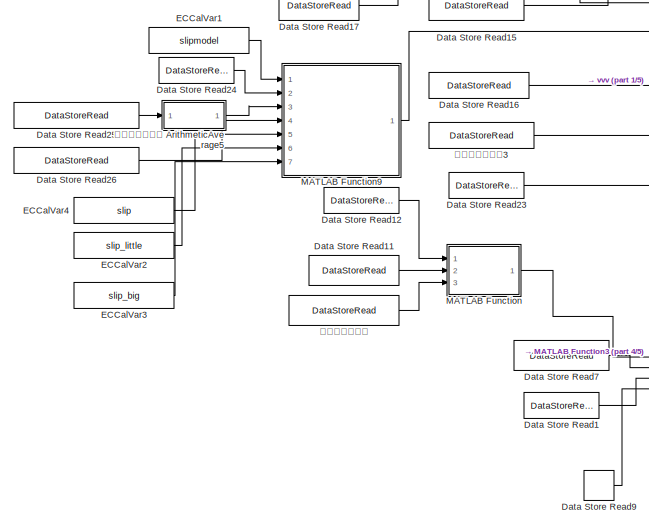
[diagram: Subsystem/Tx/TX控制器/控制器发送/185右前1 - part 3/5, middle left region]
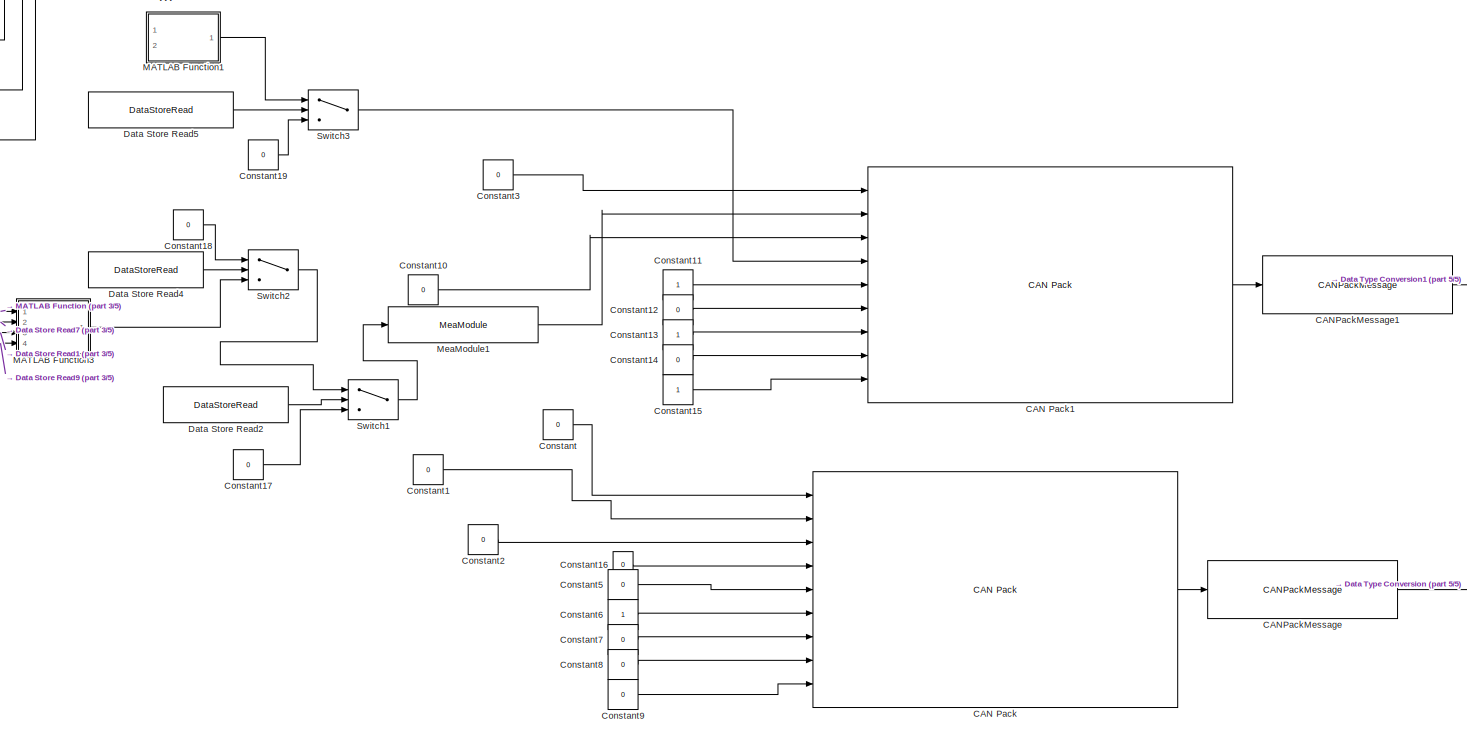
[diagram: Subsystem/Tx/TX控制器/控制器发送/185右前1 - part 4/5, bottom center region]
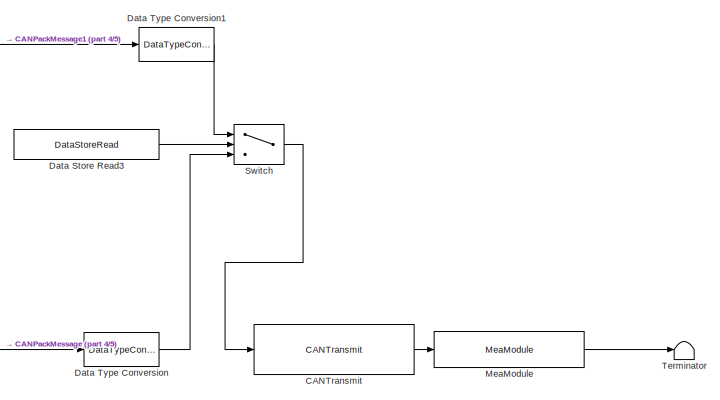
[diagram: Subsystem/Tx/TX控制器/控制器发送/185右前1 - part 5/5, bottom right region]
BLOCK [SubSystem] Subsystem/Tx/TX控制器/控制器发送/185右前1
  Ports = [2]
  RequestExecContextInheritance = off
BLOCK [Reference] Subsystem/Tx/TX控制器/控制器发送/185右前1/CAN Pack  REF=canmsglib/CAN Pack
  Commented = on
  Ports = [9, 1]
  SourceBlock = canmsglib/CAN Pack
  SourceProductBaseCode = ME,XP,VN
  SourceType = CAN Pack
BLOCK [Reference] Subsystem/Tx/TX控制器/控制器发送/185右前1/CAN Pack1  REF=canmsglib/CAN Pack
  Commented = on
  Ports = [9, 1]
  SourceBlock = canmsglib/CAN Pack
  SourceProductBaseCode = ME,XP,VN
  SourceType = CAN Pack
BLOCK [Reference] Subsystem/Tx/TX控制器/控制器发送/185右前1/CAN Pack2  REF=canmsglib/CAN Pack
  Ports = [9, 1]
  SourceBlock = canmsglib/CAN Pack
  SourceProductBaseCode = ME,XP,VN
  SourceType = CAN Pack
BLOCK [Reference] Subsystem/Tx/TX控制器/控制器发送/185右前1/CANPackMessage  REF=ec5744lib/RapidECU_U4B/04CANCommunication/CANPackMessage
  Commented = on
  Ports = [1, 1]
  SourceBlock = ec5744lib/RapidECU_U4B/04CANCommunication/CANPackMessage
  SourceProductName = ECUCoder for MPC5744
  SourceType = CAN Pack Message Transmit
BLOCK [Reference] Subsystem/Tx/TX控制器/控制器发送/185右前1/CANPackMessage1  REF=ec5744lib/RapidECU_U4B/04CANCommunication/CANPackMessage
  Commented = on
  Ports = [1, 1]
  SourceBlock = ec5744lib/RapidECU_U4B/04CANCommunication/CANPackMessage
  SourceProductName = ECUCoder for MPC5744
  SourceType = CAN Pack Message Transmit
BLOCK [Reference] Subsystem/Tx/TX控制器/控制器发送/185右前1/CANPackMessage2  REF=ec5744lib/RapidECU_U4B/04CANCommunication/CANPackMessage
  Ports = [1, 1]
  SourceBlock = ec5744lib/RapidECU_U4B/04CANCommunication/CANPackMessage
  SourceProductName = ECUCoder for MPC5744
  SourceType = CAN Pack Message Transmit
BLOCK [Reference] Subsystem/Tx/TX控制器/控制器发送/185右前1/CANTransmit  REF=ec5744lib/RapidECU_U4B/04CANCommunication/CANTransmit
  Commented = on
  Ports = [1, 1]
  SourceBlock = ec5744lib/RapidECU_U4B/04CANCommunication/CANTransmit
  SourceProductName = ECUCoder for MPC5744
  SourceType = MPC5744 CAN Transmit
BLOCK [Reference] Subsystem/Tx/TX控制器/控制器发送/185右前1/CANTransmit1  REF=ec5744lib/RapidECU_U4B/04CANCommunication/CANTransmit
  Ports = [1, 1]
  SourceBlock = ec5744lib/RapidECU_U4B/04CANCommunication/CANTransmit
  SourceProductName = ECUCoder for MPC5744
  SourceType = MPC5744 CAN Transmit
BLOCK [Constant] Subsystem/Tx/TX控制器/控制器发送/185右前1/Constant
  Commented = on
  SampleTime = -1
  Value = 0
BLOCK [Constant] Subsystem/Tx/TX控制器/控制器发送/185右前1/Constant1
  Commented = on
  SampleTime = -1
  Value = 0
BLOCK [Constant] Subsystem/Tx/TX控制器/控制器发送/185右前1/Constant10
  Commented = on
  SampleTime = -1
  Value = 0
BLOCK [Constant] Subsystem/Tx/TX控制器/控制器发送/185右前1/Constant11
  Commented = on
  SampleTime = -1
BLOCK [Constant] Subsystem/Tx/TX控制器/控制器发送/185右前1/Constant12
  Commented = on
  SampleTime = -1
  Value = 0
BLOCK [Constant] Subsystem/Tx/TX控制器/控制器发送/185右前1/Constant13
  Commented = on
  SampleTime = -1
BLOCK [Constant] Subsystem/Tx/TX控制器/控制器发送/185右前1/Constant14
  Commented = on
  SampleTime = -1
  Value = 0
BLOCK [Constant] Subsystem/Tx/TX控制器/控制器发送/185右前1/Constant15
  Commented = on
  SampleTime = -1
BLOCK [Constant] Subsystem/Tx/TX控制器/控制器发送/185右前1/Constant16
  Commented = on
  SampleTime = -1
  Value = 0
BLOCK [Constant] Subsystem/Tx/TX控制器/控制器发送/185右前1/Constant17
  Commented = on
  SampleTime = -1
  Value = 0
BLOCK [Constant] Subsystem/Tx/TX控制器/控制器发送/185右前1/Constant18
  Commented = on
  Value = 0
BLOCK [Constant] Subsystem/Tx/TX控制器/控制器发送/185右前1/Constant19
  Commented = on
  SampleTime = -1
  Value = 0
BLOCK [Constant] Subsystem/Tx/TX控制器/控制器发送/185右前1/Constant2
  Commented = on
  SampleTime = -1
  Value = 0
BLOCK [Constant] Subsystem/Tx/TX控制器/控制器发送/185右前1/Constant20
  SampleTime = -1
  Value = 0
BLOCK [Constant] Subsystem/Tx/TX控制器/控制器发送/185右前1/Constant3
  Commented = on
  SampleTime = -1
  Value = 0
BLOCK [Constant] Subsystem/Tx/TX控制器/控制器发送/185右前1/Constant4
  SampleTime = -1
  Value = 0
BLOCK [Constant] Subsystem/Tx/TX控制器/控制器发送/185右前1/Constant5
  Commented = on
  SampleTime = -1
  Value = 0
BLOCK [Constant] Subsystem/Tx/TX控制器/控制器发送/185右前1/Constant6
  Commented = on
  SampleTime = -1
BLOCK [Constant] Subsystem/Tx/TX控制器/控制器发送/185右前1/Constant7
  Commented = on
  SampleTime = -1
  Value = 0
BLOCK [Constant] Subsystem/Tx/TX控制器/控制器发送/185右前1/Constant8
  Commented = on
  SampleTime = -1
  Value = 0
BLOCK [Constant] Subsystem/Tx/TX控制器/控制器发送/185右前1/Constant9
  Commented = on
  SampleTime = -1
  Value = 0
BLOCK [DataStoreRead] Subsystem/Tx/TX控制器/控制器发送/185右前1/Data Store Read1
  Commented = on
  DataStoreName = youqianvvv
  Ports = [0, 1]
BLOCK [DataStoreRead] Subsystem/Tx/TX控制器/控制器发送/185右前1/Data Store Read10
  DataStoreName = lcu_enable_185_1
  Ports = [0, 1]
BLOCK [DataStoreRead] Subsystem/Tx/TX控制器/控制器发送/185右前1/Data Store Read11
  Commented = on
  DataStoreName = escmax
  Ports = [0, 1]
BLOCK [DataStoreRead] Subsystem/Tx/TX控制器/控制器发送/185右前1/Data Store Read12
  Commented = on
  DataStoreName = V_workstation
  Ports = [0, 1]
BLOCK [DataStoreRead] Subsystem/Tx/TX控制器/控制器发送/185右前1/Data Store Read13
  DataStoreName = escmax
  Ports = [0, 1]
BLOCK [DataStoreRead] Subsystem/Tx/TX控制器/控制器发送/185右前1/Data Store Read14
  DataStoreName = V_workstation
  Ports = [0, 1]
BLOCK [DataStoreRead] Subsystem/Tx/TX控制器/控制器发送/185右前1/Data Store Read15
  DataStoreName = workstation_steering
  Ports = [0, 1]
BLOCK [DataStoreRead] Subsystem/Tx/TX控制器/控制器发送/185右前1/Data Store Read16
  DataStoreName = match_model
  Ports = [0, 1]
BLOCK [DataStoreRead] Subsystem/Tx/TX控制器/控制器发送/185右前1/Data Store Read17
  DataStoreName = huanting
  Ports = [0, 1]
BLOCK [DataStoreRead] Subsystem/Tx/TX控制器/控制器发送/185右前1/Data Store Read19
  DataStoreName = match_model
  Ports = [0, 1]
BLOCK [DataStoreRead] Subsystem/Tx/TX控制器/控制器发送/185右前1/Data Store Read2
  Commented = on
  DataStoreName = lcu_enable_185
  Ports = [0, 1]
BLOCK [DataStoreRead] Subsystem/Tx/TX控制器/控制器发送/185右前1/Data Store Read20
  DataStoreName = Tyouqian
  Ports = [0, 1]
BLOCK [DataStoreRead] Subsystem/Tx/TX控制器/控制器发送/185右前1/Data Store Read21
  DataStoreName = oral_pressure_rightfront
  Ports = [0, 1]
BLOCK [DataStoreRead] Subsystem/Tx/TX控制器/控制器发送/185右前1/Data Store Read22
  DataStoreName = dianji_velcoity_youqian
  Ports = [0, 1]
BLOCK [DataStoreRead] Subsystem/Tx/TX控制器/控制器发送/185右前1/Data Store Read23
  DataStoreName = youren_v
  Ports = [0, 1]
BLOCK [DataStoreRead] Subsystem/Tx/TX控制器/控制器发送/185右前1/Data Store Read24
  DataStoreName = youqianvvv
  Ports = [0, 1]
BLOCK [DataStoreRead] Subsystem/Tx/TX控制器/控制器发送/185右前1/Data Store Read25
  DataStoreName = dianji_velcoity_youqian
  Ports = [0, 1]
BLOCK [DataStoreRead] Subsystem/Tx/TX控制器/控制器发送/185右前1/Data Store Read26
  DataStoreName = v_youqian_guandao
  Ports = [0, 1]
BLOCK [DataStoreRead] Subsystem/Tx/TX控制器/控制器发送/185右前1/Data Store Read3
  Commented = on
  DataStoreName = lcu_enable_185_1
  Ports = [0, 1]
BLOCK [DataStoreRead] Subsystem/Tx/TX控制器/控制器发送/185右前1/Data Store Read4
  Commented = on
  DataStoreName = huanting
  Ports = [0, 1]
BLOCK [DataStoreRead] Subsystem/Tx/TX控制器/控制器发送/185右前1/Data Store Read5
  Commented = on
  DataStoreName = lcu_enable_185
  Ports = [0, 1]
BLOCK [DataStoreRead] Subsystem/Tx/TX控制器/控制器发送/185右前1/Data Store Read6
  DataStoreName = V_Kalman
  Ports = [0, 1]
BLOCK [DataStoreRead] Subsystem/Tx/TX控制器/控制器发送/185右前1/Data Store Read7
  Commented = on
  DataStoreName = workstation_steering
  Ports = [0, 1]
BLOCK [DataStoreRead] Subsystem/Tx/TX控制器/控制器发送/185右前1/Data Store Read8
  DataStoreName = lcu_enable_185
  Ports = [0, 1]
BLOCK [DataStoreRead] Subsystem/Tx/TX控制器/控制器发送/185右前1/Data Store Read9
  Commented = on
  DataStoreName = match_model
  Ports = [0, 1]
BLOCK [DataStoreWrite] Subsystem/Tx/TX控制器/控制器发送/185右前1/Data Store Write
  DataStoreName = energyr_youqian
  Ports = [1]
BLOCK [DataStoreWrite] Subsystem/Tx/TX控制器/控制器发送/185右前1/Data Store Write1
  DataStoreName = torque_youqian
  Ports = [1]
BLOCK [DataTypeConversion] Subsystem/Tx/TX控制器/控制器发送/185右前1/Data Type Conversion
  Commented = on
  OutDataTypeStr = uint8
  RndMeth = Floor
  SaturateOnIntegerOverflow = off
BLOCK [DataTypeConversion] Subsystem/Tx/TX控制器/控制器发送/185右前1/Data Type Conversion1
  Commented = on
  OutDataTypeStr = uint8
  RndMeth = Floor
  SaturateOnIntegerOverflow = off
BLOCK [DataTypeConversion] Subsystem/Tx/TX控制器/控制器发送/185右前1/Data Type Conversion2
  OutDataTypeStr = uint8
  RndMeth = Floor
  SaturateOnIntegerOverflow = off
BLOCK [Constant] Subsystem/Tx/TX控制器/控制器发送/185右前1/ECCalVar1
  InitFcn = ecucoder_acal;
  OutDataTypeStr = Inherit: Inherit via back propagation
  SampleTime = -1
  Value = slipmodel
BLOCK [Constant] Subsystem/Tx/TX控制器/控制器发送/185右前1/ECCalVar2
  InitFcn = ecucoder_acal;
  OutDataTypeStr = Inherit: Inherit via back propagation
  SampleTime = -1
  Value = slip_little
BLOCK [Constant] Subsystem/Tx/TX控制器/控制器发送/185右前1/ECCalVar3
  InitFcn = ecucoder_acal;
  OutDataTypeStr = Inherit: Inherit via back propagation
  SampleTime = -1
  Value = slip_big
BLOCK [Constant] Subsystem/Tx/TX控制器/控制器发送/185右前1/ECCalVar4
  InitFcn = ecucoder_acal;
  OutDataTypeStr = Inherit: Inherit via back propagation
  SampleTime = -1
  Value = slip
BLOCK [SubSystem] Subsystem/Tx/TX控制器/控制器发送/185右前1/MATLAB Function
  Commented = on
  ErrorFcn = Stateflow.Translate.translate
  PermitHierarchicalResolution = ExplicitOnly
  Ports = [3, 1]
  RequestExecContextInheritance = off
  SFBlockType = MATLAB Function
  TreatAsAtomicUnit = on
BLOCK [Demux] Subsystem/Tx/TX控制器/控制器发送/185右前1/MATLAB Function/ Demux 
  Outputs = 1
  Ports = [1, 1]
BLOCK [S-Function] Subsystem/Tx/TX控制器/控制器发送/185右前1/MATLAB Function/ SFunction 
  EnableBusSupport = on
  FunctionName = sf_sfun
  PortCounts = [3 2]
  Ports = [3, 2]
  SFcnIsStateOwnerBlock = off
  SFunctionDeploymentMode = off
  Tag = Stateflow S-Function 216
BLOCK [Terminator] Subsystem/Tx/TX控制器/控制器发送/185右前1/MATLAB Function/ Terminator 
BLOCK [Inport] Subsystem/Tx/TX控制器/控制器发送/185右前1/MATLAB Function/u
BLOCK [Outport] Subsystem/Tx/TX控制器/控制器发送/185右前1/MATLAB Function/y
BLOCK [Inport] Subsystem/Tx/TX控制器/控制器发送/185右前1/MATLAB Function/zhidongebs
  Port = 3
BLOCK [Inport] Subsystem/Tx/TX控制器/控制器发送/185右前1/MATLAB Function/zhidongesc
  Port = 2
BLOCK [SubSystem] Subsystem/Tx/TX控制器/控制器发送/185右前1/MATLAB Function1
  Commented = on
  ErrorFcn = Stateflow.Translate.translate
  PermitHierarchicalResolution = ExplicitOnly
  Ports = [2, 1]
  RequestExecContextInheritance = off
  SFBlockType = MATLAB Function
  TreatAsAtomicUnit = on
BLOCK [Demux] Subsystem/Tx/TX控制器/控制器发送/185右前1/MATLAB Function1/ Demux 
  Outputs = 1
  Ports = [1, 1]
BLOCK [S-Function] Subsystem/Tx/TX控制器/控制器发送/185右前1/MATLAB Function1/ SFunction 
  EnableBusSupport = on
  FunctionName = sf_sfun
  PortCounts = [2 2]
  Ports = [2, 2]
  SFcnIsStateOwnerBlock = off
  SFunctionDeploymentMode = off
  Tag = Stateflow S-Function 217
BLOCK [Terminator] Subsystem/Tx/TX控制器/控制器发送/185右前1/MATLAB Function1/ Terminator 
BLOCK [Outport] Subsystem/Tx/TX控制器/控制器发送/185右前1/MATLAB Function1/T
BLOCK [Inport] Subsystem/Tx/TX控制器/控制器发送/185右前1/MATLAB Function1/a
  Port = 2
BLOCK [Inport] Subsystem/Tx/TX控制器/控制器发送/185右前1/MATLAB Function1/v
BLOCK [SubSystem] Subsystem/Tx/TX控制器/控制器发送/185右前1/MATLAB Function2
  ErrorFcn = Stateflow.Translate.translate
  PermitHierarchicalResolution = ExplicitOnly
  Ports = [4, 6]
  RequestExecContextInheritance = off
  SFBlockType = MATLAB Function
  TreatAsAtomicUnit = on
BLOCK [Demux] Subsystem/Tx/TX控制器/控制器发送/185右前1/MATLAB Function2/ Demux 
  Outputs = 1
  Ports = [1, 1]
BLOCK [S-Function] Subsystem/Tx/TX控制器/控制器发送/185右前1/MATLAB Function2/ SFunction 
  EnableBusSupport = on
  FunctionName = sf_sfun
  PortCounts = [4 7]
  Ports = [4, 7]
  SFcnIsStateOwnerBlock = off
  SFunctionDeploymentMode = off
  Tag = Stateflow S-Function 218
BLOCK [Terminator] Subsystem/Tx/TX控制器/控制器发送/185右前1/MATLAB Function2/ Terminator 
BLOCK [Outport] Subsystem/Tx/TX控制器/控制器发送/185右前1/MATLAB Function2/AMK_TorqueLimitPositive
  Port = 2
BLOCK [Outport] Subsystem/Tx/TX控制器/控制器发送/185右前1/MATLAB Function2/CAN_dbcon
  Port = 6
BLOCK [Inport] Subsystem/Tx/TX控制器/控制器发送/185右前1/MATLAB Function2/T
  Port = 3
BLOCK [Outport] Subsystem/Tx/TX控制器/控制器发送/185右前1/MATLAB Function2/TargetVelocity
BLOCK [Outport] Subsystem/Tx/TX控制器/控制器发送/185右前1/MATLAB Function2/blnverteron
  Port = 5
BLOCK [Outport] Subsystem/Tx/TX控制器/控制器发送/185右前1/MATLAB Function2/enable
  Port = 3
BLOCK [Inport] Subsystem/Tx/TX控制器/控制器发送/185右前1/MATLAB Function2/enable 
BLOCK [Inport] Subsystem/Tx/TX控制器/控制器发送/185右前1/MATLAB Function2/enable_1
  Port = 2
BLOCK [Outport] Subsystem/Tx/TX控制器/控制器发送/185右前1/MATLAB Function2/errorreset
  Port = 4
BLOCK [Inport] Subsystem/Tx/TX控制器/控制器发送/185右前1/MATLAB Function2/v
  Port = 4
BLOCK [SubSystem] Subsystem/Tx/TX控制器/控制器发送/185右前1/MATLAB Function3
  Commented = on
  ErrorFcn = Stateflow.Translate.translate
  PermitHierarchicalResolution = ExplicitOnly
  Ports = [4, 1]
  RequestExecContextInheritance = off
  SFBlockType = MATLAB Function
  TreatAsAtomicUnit = on
BLOCK [Demux] Subsystem/Tx/TX控制器/控制器发送/185右前1/MATLAB Function3/ Demux 
  Outputs = 1
  Ports = [1, 1]
BLOCK [S-Function] Subsystem/Tx/TX控制器/控制器发送/185右前1/MATLAB Function3/ SFunction 
  EnableBusSupport = on
  FunctionName = sf_sfun
  PortCounts = [4 2]
  Ports = [4, 2]
  SFcnIsStateOwnerBlock = off
  SFunctionDeploymentMode = off
  Tag = Stateflow S-Function 219
BLOCK [Terminator] Subsystem/Tx/TX控制器/控制器发送/185右前1/MATLAB Function3/ Terminator 
BLOCK [Inport] Subsystem/Tx/TX控制器/控制器发送/185右前1/MATLAB Function3/angle
  Port = 2
BLOCK [Inport] Subsystem/Tx/TX控制器/控制器发送/185右前1/MATLAB Function3/model
  Port = 4
BLOCK [Inport] Subsystem/Tx/TX控制器/控制器发送/185右前1/MATLAB Function3/v
BLOCK [Inport] Subsystem/Tx/TX控制器/控制器发送/185右前1/MATLAB Function3/vz
  Port = 3
BLOCK [Outport] Subsystem/Tx/TX控制器/控制器发送/185右前1/MATLAB Function3/y
BLOCK [SubSystem] Subsystem/Tx/TX控制器/控制器发送/185右前1/MATLAB Function4
  ErrorFcn = Stateflow.Translate.translate
  PermitHierarchicalResolution = ExplicitOnly
  Ports = [4, 1]
  RequestExecContextInheritance = off
  SFBlockType = MATLAB Function
  TreatAsAtomicUnit = on
BLOCK [Demux] Subsystem/Tx/TX控制器/控制器发送/185右前1/MATLAB Function4/ Demux 
  Outputs = 1
  Ports = [1, 1]
BLOCK [S-Function] Subsystem/Tx/TX控制器/控制器发送/185右前1/MATLAB Function4/ SFunction 
  EnableBusSupport = on
  FunctionName = sf_sfun
  PortCounts = [4 2]
  Ports = [4, 2]
  SFcnIsStateOwnerBlock = off
  SFunctionDeploymentMode = off
  Tag = Stateflow S-Function 220
BLOCK [Terminator] Subsystem/Tx/TX控制器/控制器发送/185右前1/MATLAB Function4/ Terminator 
BLOCK [Inport] Subsystem/Tx/TX控制器/控制器发送/185右前1/MATLAB Function4/huanting
  Port = 4
BLOCK [Inport] Subsystem/Tx/TX控制器/控制器发送/185右前1/MATLAB Function4/u
BLOCK [Outport] Subsystem/Tx/TX控制器/控制器发送/185右前1/MATLAB Function4/y
BLOCK [Inport] Subsystem/Tx/TX控制器/控制器发送/185右前1/MATLAB Function4/zhidongebs
  Port = 3
BLOCK [Inport] Subsystem/Tx/TX控制器/控制器发送/185右前1/MATLAB Function4/zhidongesc
  Port = 2
BLOCK [SubSystem] Subsystem/Tx/TX控制器/控制器发送/185右前1/MATLAB Function6
  ErrorFcn = Stateflow.Translate.translate
  PermitHierarchicalResolution = ExplicitOnly
  Ports = [5, 1]
  RequestExecContextInheritance = off
  SFBlockType = MATLAB Function
  TreatAsAtomicUnit = on
BLOCK [Demux] Subsystem/Tx/TX控制器/控制器发送/185右前1/MATLAB Function6/ Demux 
  Outputs = 1
  Ports = [1, 1]
BLOCK [S-Function] Subsystem/Tx/TX控制器/控制器发送/185右前1/MATLAB Function6/ SFunction 
  EnableBusSupport = on
  FunctionName = sf_sfun
  PortCounts = [5 2]
  Ports = [5, 2]
  SFcnIsStateOwnerBlock = off
  SFunctionDeploymentMode = off
  Tag = Stateflow S-Function 222
BLOCK [Terminator] Subsystem/Tx/TX控制器/控制器发送/185右前1/MATLAB Function6/ Terminator 
BLOCK [Outport] Subsystem/Tx/TX控制器/控制器发送/185右前1/MATLAB Function6/T
BLOCK [Inport] Subsystem/Tx/TX控制器/控制器发送/185右前1/MATLAB Function6/angle
BLOCK [Inport] Subsystem/Tx/TX控制器/控制器发送/185右前1/MATLAB Function6/baziniujv
  Port = 2
BLOCK [Inport] Subsystem/Tx/TX控制器/控制器发送/185右前1/MATLAB Function6/model
  Port = 5
BLOCK [Inport] Subsystem/Tx/TX控制器/控制器发送/185右前1/MATLAB Function6/v
  Port = 3
BLOCK [Inport] Subsystem/Tx/TX控制器/控制器发送/185右前1/MATLAB Function6/youren
  Port = 4
BLOCK [SubSystem] Subsystem/Tx/TX控制器/控制器发送/185右前1/MATLAB Function7
  ErrorFcn = Stateflow.Translate.translate
  PermitHierarchicalResolution = ExplicitOnly
  Ports = [5, 1]
  RequestExecContextInheritance = off
  SFBlockType = MATLAB Function
  TreatAsAtomicUnit = on
BLOCK [Demux] Subsystem/Tx/TX控制器/控制器发送/185右前1/MATLAB Function7/ Demux 
  Outputs = 1
  Ports = [1, 1]
BLOCK [S-Function] Subsystem/Tx/TX控制器/控制器发送/185右前1/MATLAB Function7/ SFunction 
  EnableBusSupport = on
  FunctionName = sf_sfun
  PortCounts = [5 2]
  Ports = [5, 2]
  SFcnIsStateOwnerBlock = off
  SFunctionDeploymentMode = off
  Tag = Stateflow S-Function 223
BLOCK [Terminator] Subsystem/Tx/TX控制器/控制器发送/185右前1/MATLAB Function7/ Terminator 
BLOCK [Inport] Subsystem/Tx/TX控制器/控制器发送/185右前1/MATLAB Function7/T
BLOCK [Inport] Subsystem/Tx/TX控制器/控制器发送/185右前1/MATLAB Function7/enable
  Port = 4
BLOCK [Inport] Subsystem/Tx/TX控制器/控制器发送/185右前1/MATLAB Function7/enable_1
  Port = 5
BLOCK [Inport] Subsystem/Tx/TX控制器/控制器发送/185右前1/MATLAB Function7/wurenyouya
  Port = 2
BLOCK [Outport] Subsystem/Tx/TX控制器/控制器发送/185右前1/MATLAB Function7/y
BLOCK [Inport] Subsystem/Tx/TX控制器/控制器发送/185右前1/MATLAB Function7/youya
  Port = 3
BLOCK [SubSystem] Subsystem/Tx/TX控制器/控制器发送/185右前1/MATLAB Function8
  ErrorFcn = Stateflow.Translate.translate
  PermitHierarchicalResolution = ExplicitOnly
  Ports = [4, 3]
  RequestExecContextInheritance = off
  SFBlockType = MATLAB Function
  TreatAsAtomicUnit = on
BLOCK [Demux] Subsystem/Tx/TX控制器/控制器发送/185右前1/MATLAB Function8/ Demux 
  Outputs = 1
  Ports = [1, 1]
BLOCK [S-Function] Subsystem/Tx/TX控制器/控制器发送/185右前1/MATLAB Function8/ SFunction 
  EnableBusSupport = on
  FunctionName = sf_sfun
  PortCounts = [4 4]
  Ports = [4, 4]
  SFcnIsStateOwnerBlock = off
  SFunctionDeploymentMode = off
  Tag = Stateflow S-Function 224
BLOCK [Terminator] Subsystem/Tx/TX控制器/控制器发送/185右前1/MATLAB Function8/ Terminator 
BLOCK [Outport] Subsystem/Tx/TX控制器/控制器发送/185右前1/MATLAB Function8/NT
BLOCK [Outport] Subsystem/Tx/TX控制器/控制器发送/185右前1/MATLAB Function8/T
  Port = 2
BLOCK [Inport] Subsystem/Tx/TX控制器/控制器发送/185右前1/MATLAB Function8/TargetVelocity
  Port = 2
BLOCK [Inport] Subsystem/Tx/TX控制器/控制器发送/185右前1/MATLAB Function8/neg
  Port = 3
BLOCK [Inport] Subsystem/Tx/TX控制器/控制器发送/185右前1/MATLAB Function8/pos
BLOCK [Outport] Subsystem/Tx/TX控制器/控制器发送/185右前1/MATLAB Function8/v
  Port = 3
BLOCK [Inport] Subsystem/Tx/TX控制器/控制器发送/185右前1/MATLAB Function8/wheel_v
  Port = 4
BLOCK [SubSystem] Subsystem/Tx/TX控制器/控制器发送/185右前1/MATLAB Function9
  ErrorFcn = Stateflow.Translate.translate
  PermitHierarchicalResolution = ExplicitOnly
  Ports = [7, 1]
  RequestExecContextInheritance = off
  SFBlockType = MATLAB Function
  TreatAsAtomicUnit = on
BLOCK [Demux] Subsystem/Tx/TX控制器/控制器发送/185右前1/MATLAB Function9/ Demux 
  Outputs = 1
  Ports = [1, 1]
BLOCK [S-Function] Subsystem/Tx/TX控制器/控制器发送/185右前1/MATLAB Function9/ SFunction 
  EnableBusSupport = on
  FunctionName = sf_sfun
  PortCounts = [7 2]
  Ports = [7, 2]
  SFcnIsStateOwnerBlock = off
  SFunctionDeploymentMode = off
  Tag = Stateflow S-Function 42
BLOCK [Terminator] Subsystem/Tx/TX控制器/控制器发送/185右前1/MATLAB Function9/ Terminator 
BLOCK [Inport] Subsystem/Tx/TX控制器/控制器发送/185右前1/MATLAB Function9/model
BLOCK [Inport] Subsystem/Tx/TX控制器/控制器发送/185右前1/MATLAB Function9/slip_big
  Port = 7
BLOCK [Inport] Subsystem/Tx/TX控制器/控制器发送/185右前1/MATLAB Function9/slip_little
  Port = 6
BLOCK [Inport] Subsystem/Tx/TX控制器/控制器发送/185右前1/MATLAB Function9/slipp
  Port = 5
BLOCK [Inport] Subsystem/Tx/TX控制器/控制器发送/185右前1/MATLAB Function9/v
  Port = 4
BLOCK [Inport] Subsystem/Tx/TX控制器/控制器发送/185右前1/MATLAB Function9/v_e
  Port = 2
BLOCK [Inport] Subsystem/Tx/TX控制器/控制器发送/185右前1/MATLAB Function9/v_w
  Port = 3
BLOCK [Outport] Subsystem/Tx/TX控制器/控制器发送/185右前1/MATLAB Function9/y
BLOCK [Reference] Subsystem/Tx/TX控制器/控制器发送/185右前1/MeaModule  REF=ec5744lib/RapidECU_U4B/07Calibration/MeaModule
  Commented = on
  Ports = [1, 1]
  SourceBlock = ec5744lib/RapidECU_U4B/07Calibration/MeaModule
  SourceProductName = ECUCoder for MPC5744
  SourceType = Measurement Module
BLOCK [Reference] Subsystem/Tx/TX控制器/控制器发送/185右前1/MeaModule1  REF=ec5744lib/RapidECU_U4B/07Calibration/MeaModule
  Commented = on
  Ports = [1, 1]
  SourceBlock = ec5744lib/RapidECU_U4B/07Calibration/MeaModule
  SourceProductName = ECUCoder for MPC5744
  SourceType = Measurement Module
BLOCK [Reference] Subsystem/Tx/TX控制器/控制器发送/185右前1/MeaModule2  REF=ec5744lib/RapidECU_U4B/07Calibration/MeaModule
  Ports = [1, 1]
  SourceBlock = ec5744lib/RapidECU_U4B/07Calibration/MeaModule
  SourceProductName = ECUCoder for MPC5744
  SourceType = Measurement Module
BLOCK [Reference] Subsystem/Tx/TX控制器/控制器发送/185右前1/MeaModule3  REF=ec5744lib/RapidECU_U4B/07Calibration/MeaModule
  Ports = [1, 1]
  SourceBlock = ec5744lib/RapidECU_U4B/07Calibration/MeaModule
  SourceProductName = ECUCoder for MPC5744
  SourceType = Measurement Module
BLOCK [Reference] Subsystem/Tx/TX控制器/控制器发送/185右前1/MeaModule4  REF=ec5744lib/RapidECU_U4B/07Calibration/MeaModule
  Ports = [1, 1]
  SourceBlock = ec5744lib/RapidECU_U4B/07Calibration/MeaModule
  SourceProductName = ECUCoder for MPC5744
  SourceType = Measurement Module
BLOCK [Switch] Subsystem/Tx/TX控制器/控制器发送/185右前1/Switch
  Commented = on
  Criteria = u2 > Threshold
  InputSameDT = off
  SaturateOnIntegerOverflow = off
BLOCK [Switch] Subsystem/Tx/TX控制器/控制器发送/185右前1/Switch1
  Commented = on
  Criteria = u2 > Threshold
  InputSameDT = off
  SaturateOnIntegerOverflow = off
BLOCK [Switch] Subsystem/Tx/TX控制器/控制器发送/185右前1/Switch2
  Commented = on
  Criteria = u2 > Threshold
  InputSameDT = off
  SaturateOnIntegerOverflow = off
BLOCK [Switch] Subsystem/Tx/TX控制器/控制器发送/185右前1/Switch3
  Commented = on
  Criteria = u2 > Threshold
  InputSameDT = off
  SaturateOnIntegerOverflow = off
BLOCK [Terminator] Subsystem/Tx/TX控制器/控制器发送/185右前1/Terminator
  Commented = on
BLOCK [Terminator] Subsystem/Tx/TX控制器/控制器发送/185右前1/Terminator1
BLOCK [Inport] Subsystem/Tx/TX控制器/控制器发送/185右前1/angle
  Port = 2
BLOCK [Inport] Subsystem/Tx/TX控制器/控制器发送/185右前1/data
BLOCK [SubSystem] Subsystem/Tx/TX控制器/控制器发送/185右前1/vvv
  ErrorFcn = Stateflow.Translate.translate
  PermitHierarchicalResolution = ExplicitOnly
  Ports = [8, 1]
  RequestExecContextInheritance = off
  SFBlockType = MATLAB Function
  TreatAsAtomicUnit = on
BLOCK [Demux] Subsystem/Tx/TX控制器/控制器发送/185右前1/vvv/ Demux 
  Outputs = 1
  Ports = [1, 1]
BLOCK [S-Function] Subsystem/Tx/TX控制器/控制器发送/185右前1/vvv/ SFunction 
  EnableBusSupport = on
  FunctionName = sf_sfun
  PortCounts = [8 2]
  Ports = [8, 2]
  SFcnIsStateOwnerBlock = off
  SFunctionDeploymentMode = off
  Tag = Stateflow S-Function 221
BLOCK [Terminator] Subsystem/Tx/TX控制器/控制器发送/185右前1/vvv/ Terminator 
BLOCK [Inport] Subsystem/Tx/TX控制器/控制器发送/185右前1/vvv/T
  Port = 6
BLOCK [Inport] Subsystem/Tx/TX控制器/控制器发送/185右前1/vvv/angle
  Port = 2
BLOCK [Inport] Subsystem/Tx/TX控制器/控制器发送/185右前1/vvv/model
  Port = 4
BLOCK [Inport] Subsystem/Tx/TX控制器/控制器发送/185右前1/vvv/v
BLOCK [Inport] Subsystem/Tx/TX控制器/控制器发送/185右前1/vvv/v_youren
  Port = 8
BLOCK [Inport] Subsystem/Tx/TX控制器/控制器发送/185右前1/vvv/vk
  Port = 7
BLOCK [Inport] Subsystem/Tx/TX控制器/控制器发送/185右前1/vvv/vz
  Port = 3
BLOCK [Outport] Subsystem/Tx/TX控制器/控制器发送/185右前1/vvv/y
BLOCK [Inport] Subsystem/Tx/TX控制器/控制器发送/185右前1/vvv/zhidong
  Port = 5
BLOCK [DataStoreRead] Subsystem/Tx/TX控制器/控制器发送/185右前1/无人制动标志位
  Commented = on
  DataStoreName = wurenzhidongdeng
  Ports = [0, 1]
BLOCK [DataStoreRead] Subsystem/Tx/TX控制器/控制器发送/185右前1/无人制动标志位1
  DataStoreName = wurenzhidongdeng
  Ports = [0, 1]
BLOCK [DataStoreRead] Subsystem/Tx/TX控制器/控制器发送/185右前1/无人制动标志位3
  DataStoreName = wurenzhidongdeng
  Ports = [0, 1]
BLOCK [DataStoreRead] Subsystem/Tx/TX控制器/控制器发送/185右前1/油压传感器
  DataStoreName = ebszhidongyouya
  Ports = [0, 1]
BLOCK [SubSystem] Subsystem/Tx/TX控制器/控制器发送/185右前1/算术平均值滤波 ArithmeticAverage5
  Ports = [1, 1]
  RequestExecContextInheritance = off
BLOCK [Constant] Subsystem/Tx/TX控制器/控制器发送/185右前1/算术平均值滤波 ArithmeticAverage5/Constant
  Value = 10
BLOCK [Product] Subsystem/Tx/TX控制器/控制器发送/185右前1/算术平均值滤波 ArithmeticAverage5/Divide
  Inputs = */
  Ports = [2, 1]
BLOCK [Inport] Subsystem/Tx/TX控制器/控制器发送/185右前1/算术平均值滤波 ArithmeticAverage5/In1
BLOCK [Sum] Subsystem/Tx/TX控制器/控制器发送/185右前1/算术平均值滤波 ArithmeticAverage5/Sum of Elements
  IconShape = rectangular
  Inputs = +
  Ports = [1, 1]
BLOCK [Reference] Subsystem/Tx/TX控制器/控制器发送/185右前1/算术平均值滤波 ArithmeticAverage5/Tapped Delay  REF=simulink/Discrete/Tapped Delay
  Ports = [1, 1]
  SourceBlock = simulink/Discrete/Tapped Delay
  SourceProductBaseCode = SL
  SourceType = Tapped Delay Line
BLOCK [Outport] Subsystem/Tx/TX控制器/控制器发送/185右前1/算术平均值滤波 ArithmeticAverage5/angle
BLOCK [SubSystem] Subsystem/Tx/TX控制器/控制器发送/185右前1/能量回收功率限制
  Ports = [0, 1]
  RequestExecContextInheritance = off
BLOCK [Constant] Subsystem/Tx/TX控制器/控制器发送/185右前1/能量回收功率限制/Constant1
  Value = 2
BLOCK [Constant] Subsystem/Tx/TX控制器/控制器发送/185右前1/能量回收功率限制/Constant24
  Value = 1000
BLOCK [DataStoreRead] Subsystem/Tx/TX控制器/控制器发送/185右前1/能量回收功率限制/Data Store Read1
  DataStoreName = er_T_rf
  Ports = [0, 1]
BLOCK [DataStoreRead] Subsystem/Tx/TX控制器/控制器发送/185右前1/能量回收功率限制/Data Store Read2
  DataStoreName = match_model
  Ports = [0, 1]
BLOCK [DataStoreRead] Subsystem/Tx/TX控制器/控制器发送/185右前1/能量回收功率限制/Data Store Read23
  DataStoreName = match_model
  Ports = [0, 1]
BLOCK [DataStoreRead] Subsystem/Tx/TX控制器/控制器发送/185右前1/能量回收功率限制/Data Store Read25
  DataStoreName = er_v_rf
  Ports = [0, 1]
BLOCK [DataStoreRead] Subsystem/Tx/TX控制器/控制器发送/185右前1/能量回收功率限制/Data Store Read3
  DataStoreName = oral_pressure_rightfront
  Ports = [0, 1]
BLOCK [DataStoreRead] Subsystem/Tx/TX控制器/控制器发送/185右前1/能量回收功率限制/Data Store Read4
  DataStoreName = Power_recovery
  Ports = [0, 1]
BLOCK [DataStoreRead] Subsystem/Tx/TX控制器/控制器发送/185右前1/能量回收功率限制/Data Store Read5
  DataStoreName = Negativ_T
  Ports = [0, 1]
BLOCK [DataStoreRead] Subsystem/Tx/TX控制器/控制器发送/185右前1/能量回收功率限制/Data Store Read6
  DataStoreName = Power_recovery_xunji
  Ports = [0, 1]
BLOCK [DataStoreRead] Subsystem/Tx/TX控制器/控制器发送/185右前1/能量回收功率限制/Data Store Read7
  DataStoreName = Power_recovery_zhixian
  Ports = [0, 1]
BLOCK [DataStoreRead] Subsystem/Tx/TX控制器/控制器发送/185右前1/能量回收功率限制/Data Store Read8
  DataStoreName = workstation_status
  Ports = [0, 1]
BLOCK [Product] Subsystem/Tx/TX控制器/控制器发送/185右前1/能量回收功率限制/Divide
  Inputs = */
  Ports = [2, 1]
BLOCK [Product] Subsystem/Tx/TX控制器/控制器发送/185右前1/能量回收功率限制/Divide1
  Inputs = ***/
  Ports = [4, 1]
BLOCK [Product] Subsystem/Tx/TX控制器/控制器发送/185右前1/能量回收功率限制/Divide2
  Inputs = **
  Ports = [2, 1]
BLOCK [Gain] Subsystem/Tx/TX控制器/控制器发送/185右前1/能量回收功率限制/Gain
  Gain = 100
BLOCK [Gain] Subsystem/Tx/TX控制器/控制器发送/185右前1/能量回收功率限制/Gain1
  Gain = 1.5
BLOCK [SubSystem] Subsystem/Tx/TX控制器/控制器发送/185右前1/能量回收功率限制/MATLAB Function
  ErrorFcn = Stateflow.Translate.translate
  PermitHierarchicalResolution = ExplicitOnly
  Ports = [5, 1]
  RequestExecContextInheritance = off
  SFBlockType = MATLAB Function
  TreatAsAtomicUnit = on
BLOCK [Demux] Subsystem/Tx/TX控制器/控制器发送/185右前1/能量回收功率限制/MATLAB Function/ Demux 
  Outputs = 1
  Ports = [1, 1]
BLOCK [S-Function] Subsystem/Tx/TX控制器/控制器发送/185右前1/能量回收功率限制/MATLAB Function/ SFunction 
  EnableBusSupport = on
  FunctionName = sf_sfun
  PortCounts = [5 2]
  Ports = [5, 2]
  SFcnIsStateOwnerBlock = off
  SFunctionDeploymentMode = off
  Tag = Stateflow S-Function 225
BLOCK [Terminator] Subsystem/Tx/TX控制器/控制器发送/185右前1/能量回收功率限制/MATLAB Function/ Terminator 
BLOCK [Inport] Subsystem/Tx/TX控制器/控制器发送/185右前1/能量回收功率限制/MATLAB Function/Negativ_T
  Port = 5
BLOCK [Outport] Subsystem/Tx/TX控制器/控制器发送/185右前1/能量回收功率限制/MATLAB Function/T
BLOCK [Inport] Subsystem/Tx/TX控制器/控制器发送/185右前1/能量回收功率限制/MATLAB Function/model
  Port = 2
BLOCK [Inport] Subsystem/Tx/TX控制器/控制器发送/185右前1/能量回收功率限制/MATLAB Function/status
  Port = 3
BLOCK [Inport] Subsystem/Tx/TX控制器/控制器发送/185右前1/能量回收功率限制/MATLAB Function/wurenyouya
  Port = 4
BLOCK [Inport] Subsystem/Tx/TX控制器/控制器发送/185右前1/能量回收功率限制/MATLAB Function/youya
BLOCK [SubSystem] Subsystem/Tx/TX控制器/控制器发送/185右前1/能量回收功率限制/MATLAB Function1
  ErrorFcn = Stateflow.Translate.translate
  PermitHierarchicalResolution = ExplicitOnly
  Ports = [4, 1]
  RequestExecContextInheritance = off
  SFBlockType = MATLAB Function
  TreatAsAtomicUnit = on
BLOCK [Demux] Subsystem/Tx/TX控制器/控制器发送/185右前1/能量回收功率限制/MATLAB Function1/ Demux 
  Outputs = 1
  Ports = [1, 1]
BLOCK [S-Function] Subsystem/Tx/TX控制器/控制器发送/185右前1/能量回收功率限制/MATLAB Function1/ SFunction 
  EnableBusSupport = on
  FunctionName = sf_sfun
  PortCounts = [4 2]
  Ports = [4, 2]
  SFcnIsStateOwnerBlock = off
  SFunctionDeploymentMode = off
  Tag = Stateflow S-Function 226
BLOCK [Terminator] Subsystem/Tx/TX控制器/控制器发送/185右前1/能量回收功率限制/MATLAB Function1/ Terminator 
BLOCK [Inport] Subsystem/Tx/TX控制器/控制器发送/185右前1/能量回收功率限制/MATLAB Function1/Iq
  Port = 2
BLOCK [Inport] Subsystem/Tx/TX控制器/控制器发送/185右前1/能量回收功率限制/MATLAB Function1/L_Iq
  Port = 3
BLOCK [Inport] Subsystem/Tx/TX控制器/控制器发送/185右前1/能量回收功率限制/MATLAB Function1/L_er_T
  Port = 4
BLOCK [Outport] Subsystem/Tx/TX控制器/控制器发送/185右前1/能量回收功率限制/MATLAB Function1/T
BLOCK [Inport] Subsystem/Tx/TX控制器/控制器发送/185右前1/能量回收功率限制/MATLAB Function1/er_T
BLOCK [SubSystem] Subsystem/Tx/TX控制器/控制器发送/185右前1/能量回收功率限制/MATLAB Function2
  ErrorFcn = Stateflow.Translate.translate
  PermitHierarchicalResolution = ExplicitOnly
  Ports = [4, 1]
  RequestExecContextInheritance = off
  SFBlockType = MATLAB Function
  TreatAsAtomicUnit = on
BLOCK [Demux] Subsystem/Tx/TX控制器/控制器发送/185右前1/能量回收功率限制/MATLAB Function2/ Demux 
  Outputs = 1
  Ports = [1, 1]
BLOCK [S-Function] Subsystem/Tx/TX控制器/控制器发送/185右前1/能量回收功率限制/MATLAB Function2/ SFunction 
  EnableBusSupport = on
  FunctionName = sf_sfun
  PortCounts = [4 2]
  Ports = [4, 2]
  SFcnIsStateOwnerBlock = off
  SFunctionDeploymentMode = off
  Tag = Stateflow S-Function 36
BLOCK [Terminator] Subsystem/Tx/TX控制器/控制器发送/185右前1/能量回收功率限制/MATLAB Function2/ Terminator 
BLOCK [Inport] Subsystem/Tx/TX控制器/控制器发送/185右前1/能量回收功率限制/MATLAB Function2/P
BLOCK [Inport] Subsystem/Tx/TX控制器/控制器发送/185右前1/能量回收功率限制/MATLAB Function2/P1
  Port = 2
BLOCK [Inport] Subsystem/Tx/TX控制器/控制器发送/185右前1/能量回收功率限制/MATLAB Function2/P2
  Port = 3
BLOCK [Inport] Subsystem/Tx/TX控制器/控制器发送/185右前1/能量回收功率限制/MATLAB Function2/model
  Port = 4
BLOCK [Outport] Subsystem/Tx/TX控制器/控制器发送/185右前1/能量回收功率限制/MATLAB Function2/y
BLOCK [Saturate] Subsystem/Tx/TX控制器/控制器发送/185右前1/能量回收功率限制/Saturation
  LowerLimit = -1500
  UpperLimit = 0
BLOCK [Saturate] Subsystem/Tx/TX控制器/控制器发送/185右前1/能量回收功率限制/Saturation1
  LowerLimit = -1500
  UpperLimit = 1500
BLOCK [Saturate] Subsystem/Tx/TX控制器/控制器发送/185右前1/能量回收功率限制/Saturation2
  LowerLimit = -1500
  UpperLimit = 0
BLOCK [Sqrt] Subsystem/Tx/TX控制器/控制器发送/185右前1/能量回收功率限制/Sqrt
BLOCK [Outport] Subsystem/Tx/TX控制器/控制器发送/185右前1/能量回收功率限制/T
BLOCK [Constant] Subsystem/Tx/TX控制器/控制器发送/185右前1/能量回收功率限制/扭矩常量Kr  N//A
  Value = 0.26
BLOCK [DataStoreRead] Subsystem/Tx/TX控制器/控制器发送/185右前1/能量回收功率限制/油压传感器
  DataStoreName = ebszhidongyouya
  Ports = [0, 1]
BLOCK [Constant] Subsystem/Tx/TX控制器/控制器发送/185右前1/能量回收功率限制/电压常数Ke V//kU//min
  Value = 18.8
BLOCK [SubSystem] Subsystem/Tx/TX控制器/控制器发送/188右后1
  Ports = [2]
  RequestExecContextInheritance = off
BLOCK [Reference] Subsystem/Tx/TX控制器/控制器发送/188右后1/CAN Pack  REF=canmsglib/CAN Pack
  Commented = on
  Ports = [9, 1]
  SourceBlock = canmsglib/CAN Pack
  SourceProductBaseCode = ME,XP,VN
  SourceType = CAN Pack
BLOCK [Reference] Subsystem/Tx/TX控制器/控制器发送/188右后1/CAN Pack1  REF=canmsglib/CAN Pack
  Commented = on
  Ports = [9, 1]
  SourceBlock = canmsglib/CAN Pack
  SourceProductBaseCode = ME,XP,VN
  SourceType = CAN Pack
BLOCK [Reference] Subsystem/Tx/TX控制器/控制器发送/188右后1/CAN Pack2  REF=canmsglib/CAN Pack
  Ports = [9, 1]
  SourceBlock = canmsglib/CAN Pack
  SourceProductBaseCode = ME,XP,VN
  SourceType = CAN Pack
BLOCK [Reference] Subsystem/Tx/TX控制器/控制器发送/188右后1/CANPackMessage  REF=ec5744lib/RapidECU_U4B/04CANCommunication/CANPackMessage
  Commented = on
  Ports = [1, 1]
  SourceBlock = ec5744lib/RapidECU_U4B/04CANCommunication/CANPackMessage
  SourceProductName = ECUCoder for MPC5744
  SourceType = CAN Pack Message Transmit
BLOCK [Reference] Subsystem/Tx/TX控制器/控制器发送/188右后1/CANPackMessage1  REF=ec5744lib/RapidECU_U4B/04CANCommunication/CANPackMessage
  Commented = on
  Ports = [1, 1]
  SourceBlock = ec5744lib/RapidECU_U4B/04CANCommunication/CANPackMessage
  SourceProductName = ECUCoder for MPC5744
  SourceType = CAN Pack Message Transmit
BLOCK [Reference] Subsystem/Tx/TX控制器/控制器发送/188右后1/CANPackMessage2  REF=ec5744lib/RapidECU_U4B/04CANCommunication/CANPackMessage
  Ports = [1, 1]
  SourceBlock = ec5744lib/RapidECU_U4B/04CANCommunication/CANPackMessage
  SourceProductName = ECUCoder for MPC5744
  SourceType = CAN Pack Message Transmit
BLOCK [Reference] Subsystem/Tx/TX控制器/控制器发送/188右后1/CANTransmit  REF=ec5744lib/RapidECU_U4B/04CANCommunication/CANTransmit
  Commented = on
  Ports = [1, 1]
  SourceBlock = ec5744lib/RapidECU_U4B/04CANCommunication/CANTransmit
  SourceProductName = ECUCoder for MPC5744
  SourceType = MPC5744 CAN Transmit
BLOCK [Reference] Subsystem/Tx/TX控制器/控制器发送/188右后1/CANTransmit1  REF=ec5744lib/RapidECU_U4B/04CANCommunication/CANTransmit
  Ports = [1, 1]
  SourceBlock = ec5744lib/RapidECU_U4B/04CANCommunication/CANTransmit
  SourceProductName = ECUCoder for MPC5744
  SourceType = MPC5744 CAN Transmit
BLOCK [Constant] Subsystem/Tx/TX控制器/控制器发送/188右后1/Constant
  Commented = on
  SampleTime = -1
  Value = 0
BLOCK [Constant] Subsystem/Tx/TX控制器/控制器发送/188右后1/Constant1
  Commented = on
  SampleTime = -1
  Value = 0
BLOCK [Constant] Subsystem/Tx/TX控制器/控制器发送/188右后1/Constant10
  Commented = on
  SampleTime = -1
  Value = 0
BLOCK [Constant] Subsystem/Tx/TX控制器/控制器发送/188右后1/Constant11
  Commented = on
  SampleTime = -1
BLOCK [Constant] Subsystem/Tx/TX控制器/控制器发送/188右后1/Constant12
  Commented = on
  SampleTime = -1
  Value = 0
BLOCK [Constant] Subsystem/Tx/TX控制器/控制器发送/188右后1/Constant13
  Commented = on
  SampleTime = -1
BLOCK [Constant] Subsystem/Tx/TX控制器/控制器发送/188右后1/Constant14
  Commented = on
  SampleTime = -1
  Value = 0
BLOCK [Constant] Subsystem/Tx/TX控制器/控制器发送/188右后1/Constant15
  Commented = on
  SampleTime = -1
BLOCK [Constant] Subsystem/Tx/TX控制器/控制器发送/188右后1/Constant16
  Commented = on
  Value = 0
BLOCK [Constant] Subsystem/Tx/TX控制器/控制器发送/188右后1/Constant17
  Commented = on
  SampleTime = -1
  Value = 0
BLOCK [Constant] Subsystem/Tx/TX控制器/控制器发送/188右后1/Constant18
  Commented = on
  Value = 0
BLOCK [Constant] Subsystem/Tx/TX控制器/控制器发送/188右后1/Constant19
  Commented = on
  SampleTime = -1
  Value = 0
BLOCK [Constant] Subsystem/Tx/TX控制器/控制器发送/188右后1/Constant2
  Commented = on
  SampleTime = -1
  Value = 0
BLOCK [Constant] Subsystem/Tx/TX控制器/控制器发送/188右后1/Constant20
  SampleTime = -1
  Value = 0
BLOCK [Constant] Subsystem/Tx/TX控制器/控制器发送/188右后1/Constant3
  Commented = on
  SampleTime = -1
  Value = 0
BLOCK [Constant] Subsystem/Tx/TX控制器/控制器发送/188右后1/Constant4
  SampleTime = -1
  Value = 0
BLOCK [Constant] Subsystem/Tx/TX控制器/控制器发送/188右后1/Constant5
  Commented = on
  SampleTime = -1
  Value = 0
BLOCK [Constant] Subsystem/Tx/TX控制器/控制器发送/188右后1/Constant6
  Commented = on
  SampleTime = -1
BLOCK [Constant] Subsystem/Tx/TX控制器/控制器发送/188右后1/Constant7
  Commented = on
  SampleTime = -1
  Value = 0
BLOCK [Constant] Subsystem/Tx/TX控制器/控制器发送/188右后1/Constant8
  Commented = on
  SampleTime = -1
  Value = 0
BLOCK [Constant] Subsystem/Tx/TX控制器/控制器发送/188右后1/Constant9
  Commented = on
  SampleTime = -1
  Value = 0
BLOCK [DataStoreRead] Subsystem/Tx/TX控制器/控制器发送/188右后1/Data Store Read1
  Commented = on
  DataStoreName = lcu_enable_188
  Ports = [0, 1]
BLOCK [DataStoreRead] Subsystem/Tx/TX控制器/控制器发送/188右后1/Data Store Read10
  DataStoreName = V_Kalman
  Ports = [0, 1]
BLOCK [DataStoreRead] Subsystem/Tx/TX控制器/控制器发送/188右后1/Data Store Read11
  Commented = on
  DataStoreName = escmax
  Ports = [0, 1]
BLOCK [DataStoreRead] Subsystem/Tx/TX控制器/控制器发送/188右后1/Data Store Read12
  Commented = on
  DataStoreName = V_workstation
  Ports = [0, 1]
BLOCK [DataStoreRead] Subsystem/Tx/TX控制器/控制器发送/188右后1/Data Store Read13
  DataStoreName = escmax
  Ports = [0, 1]
BLOCK [DataStoreRead] Subsystem/Tx/TX控制器/控制器发送/188右后1/Data Store Read14
  DataStoreName = V_workstation
  Ports = [0, 1]
BLOCK [DataStoreRead] Subsystem/Tx/TX控制器/控制器发送/188右后1/Data Store Read15
  DataStoreName = workstation_steering
  Ports = [0, 1]
BLOCK [DataStoreRead] Subsystem/Tx/TX控制器/控制器发送/188右后1/Data Store Read16
  DataStoreName = match_model
  Ports = [0, 1]
BLOCK [DataStoreRead] Subsystem/Tx/TX控制器/控制器发送/188右后1/Data Store Read17
  DataStoreName = huanting
  Ports = [0, 1]
BLOCK [DataStoreRead] Subsystem/Tx/TX控制器/控制器发送/188右后1/Data Store Read19
  DataStoreName = match_model
  Ports = [0, 1]
BLOCK [DataStoreRead] Subsystem/Tx/TX控制器/控制器发送/188右后1/Data Store Read2
  Commented = on
  DataStoreName = youhouvvv
  Ports = [0, 1]
BLOCK [DataStoreRead] Subsystem/Tx/TX控制器/控制器发送/188右后1/Data Store Read20
  DataStoreName = Tyouhou
  Ports = [0, 1]
BLOCK [DataStoreRead] Subsystem/Tx/TX控制器/控制器发送/188右后1/Data Store Read21
  DataStoreName = oral_pressure_rightbehind
  Ports = [0, 1]
BLOCK [DataStoreRead] Subsystem/Tx/TX控制器/控制器发送/188右后1/Data Store Read22
  DataStoreName = dianji_velcoity_youhou
  Ports = [0, 1]
BLOCK [DataStoreRead] Subsystem/Tx/TX控制器/控制器发送/188右后1/Data Store Read23
  DataStoreName = youren_v
  Ports = [0, 1]
BLOCK [DataStoreRead] Subsystem/Tx/TX控制器/控制器发送/188右后1/Data Store Read24
  DataStoreName = youhouvvv
  Ports = [0, 1]
BLOCK [DataStoreRead] Subsystem/Tx/TX控制器/控制器发送/188右后1/Data Store Read25
  DataStoreName = dianji_velcoity_zuohou
  Ports = [0, 1]
BLOCK [DataStoreRead] Subsystem/Tx/TX控制器/控制器发送/188右后1/Data Store Read26
  DataStoreName = v_youhou_guandao
  Ports = [0, 1]
BLOCK [DataStoreRead] Subsystem/Tx/TX控制器/控制器发送/188右后1/Data Store Read3
  Commented = on
  DataStoreName = lcu_enable_188_1
  Ports = [0, 1]
BLOCK [DataStoreRead] Subsystem/Tx/TX控制器/控制器发送/188右后1/Data Store Read4
  Commented = on
  DataStoreName = huanting
  Ports = [0, 1]
BLOCK [DataStoreRead] Subsystem/Tx/TX控制器/控制器发送/188右后1/Data Store Read5
  Commented = on
  DataStoreName = lcu_enable_188
  Ports = [0, 1]
BLOCK [DataStoreRead] Subsystem/Tx/TX控制器/控制器发送/188右后1/Data Store Read6
  DataStoreName = lcu_enable_188_1
  Ports = [0, 1]
BLOCK [DataStoreRead] Subsystem/Tx/TX控制器/控制器发送/188右后1/Data Store Read7
  Commented = on
  DataStoreName = workstation_steering
  Ports = [0, 1]
BLOCK [DataStoreRead] Subsystem/Tx/TX控制器/控制器发送/188右后1/Data Store Read8
  DataStoreName = lcu_enable_188
  Ports = [0, 1]
BLOCK [DataStoreRead] Subsystem/Tx/TX控制器/控制器发送/188右后1/Data Store Read9
  Commented = on
  DataStoreName = match_model
  Ports = [0, 1]
BLOCK [DataStoreWrite] Subsystem/Tx/TX控制器/控制器发送/188右后1/Data Store Write
  DataStoreName = energyr_youhou
  Ports = [1]
BLOCK [DataStoreWrite] Subsystem/Tx/TX控制器/控制器发送/188右后1/Data Store Write1
  DataStoreName = torque_youhou
  Ports = [1]
BLOCK [DataTypeConversion] Subsystem/Tx/TX控制器/控制器发送/188右后1/Data Type Conversion
  Commented = on
  OutDataTypeStr = uint8
  RndMeth = Floor
  SaturateOnIntegerOverflow = off
BLOCK [DataTypeConversion] Subsystem/Tx/TX控制器/控制器发送/188右后1/Data Type Conversion1
  Commented = on
  OutDataTypeStr = uint8
  RndMeth = Floor
  SaturateOnIntegerOverflow = off
BLOCK [DataTypeConversion] Subsystem/Tx/TX控制器/控制器发送/188右后1/Data Type Conversion2
  OutDataTypeStr = uint8
  RndMeth = Floor
  SaturateOnIntegerOverflow = off
BLOCK [Constant] Subsystem/Tx/TX控制器/控制器发送/188右后1/ECCalVar1
  InitFcn = ecucoder_acal;
  OutDataTypeStr = Inherit: Inherit via back propagation
  SampleTime = -1
  Value = slipmodel
BLOCK [Constant] Subsystem/Tx/TX控制器/控制器发送/188右后1/ECCalVar2
  InitFcn = ecucoder_acal;
  OutDataTypeStr = Inherit: Inherit via back propagation
  SampleTime = -1
  Value = slip_little
BLOCK [Constant] Subsystem/Tx/TX控制器/控制器发送/188右后1/ECCalVar3
  InitFcn = ecucoder_acal;
  OutDataTypeStr = Inherit: Inherit via back propagation
  SampleTime = -1
  Value = slip_big
BLOCK [Constant] Subsystem/Tx/TX控制器/控制器发送/188右后1/ECCalVar4
  InitFcn = ecucoder_acal;
  OutDataTypeStr = Inherit: Inherit via back propagation
  SampleTime = -1
  Value = slip
BLOCK [Inport] Subsystem/Tx/TX控制器/控制器发送/188右后1/In1
  Port = 2
BLOCK [SubSystem] Subsystem/Tx/TX控制器/控制器发送/188右后1/MATLAB Function
  Commented = on
  ErrorFcn = Stateflow.Translate.translate
  PermitHierarchicalResolution = ExplicitOnly
  Ports = [3, 1]
  RequestExecContextInheritance = off
  SFBlockType = MATLAB Function
  TreatAsAtomicUnit = on
BLOCK [Demux] Subsystem/Tx/TX控制器/控制器发送/188右后1/MATLAB Function/ Demux 
  Outputs = 1
  Ports = [1, 1]
BLOCK [S-Function] Subsystem/Tx/TX控制器/控制器发送/188右后1/MATLAB Function/ SFunction 
  EnableBusSupport = on
  FunctionName = sf_sfun
  PortCounts = [3 2]
  Ports = [3, 2]
  SFcnIsStateOwnerBlock = off
  SFunctionDeploymentMode = off
  Tag = Stateflow S-Function 227
BLOCK [Terminator] Subsystem/Tx/TX控制器/控制器发送/188右后1/MATLAB Function/ Terminator 
BLOCK [Inport] Subsystem/Tx/TX控制器/控制器发送/188右后1/MATLAB Function/u
BLOCK [Outport] Subsystem/Tx/TX控制器/控制器发送/188右后1/MATLAB Function/y
BLOCK [Inport] Subsystem/Tx/TX控制器/控制器发送/188右后1/MATLAB Function/zhidongebs
  Port = 3
BLOCK [Inport] Subsystem/Tx/TX控制器/控制器发送/188右后1/MATLAB Function/zhidongesc
  Port = 2
BLOCK [SubSystem] Subsystem/Tx/TX控制器/控制器发送/188右后1/MATLAB Function1
  Commented = on
  ErrorFcn = Stateflow.Translate.translate
  PermitHierarchicalResolution = ExplicitOnly
  Ports = [2, 1]
  RequestExecContextInheritance = off
  SFBlockType = MATLAB Function
  TreatAsAtomicUnit = on
BLOCK [Demux] Subsystem/Tx/TX控制器/控制器发送/188右后1/MATLAB Function1/ Demux 
  Outputs = 1
  Ports = [1, 1]
BLOCK [S-Function] Subsystem/Tx/TX控制器/控制器发送/188右后1/MATLAB Function1/ SFunction 
  EnableBusSupport = on
  FunctionName = sf_sfun
  PortCounts = [2 2]
  Ports = [2, 2]
  SFcnIsStateOwnerBlock = off
  SFunctionDeploymentMode = off
  Tag = Stateflow S-Function 228
BLOCK [Terminator] Subsystem/Tx/TX控制器/控制器发送/188右后1/MATLAB Function1/ Terminator 
BLOCK [Outport] Subsystem/Tx/TX控制器/控制器发送/188右后1/MATLAB Function1/T
BLOCK [Inport] Subsystem/Tx/TX控制器/控制器发送/188右后1/MATLAB Function1/a
  Port = 2
BLOCK [Inport] Subsystem/Tx/TX控制器/控制器发送/188右后1/MATLAB Function1/v
BLOCK [SubSystem] Subsystem/Tx/TX控制器/控制器发送/188右后1/MATLAB Function2
  ErrorFcn = Stateflow.Translate.translate
  PermitHierarchicalResolution = ExplicitOnly
  Ports = [4, 6]
  RequestExecContextInheritance = off
  SFBlockType = MATLAB Function
  TreatAsAtomicUnit = on
BLOCK [Demux] Subsystem/Tx/TX控制器/控制器发送/188右后1/MATLAB Function2/ Demux 
  Outputs = 1
  Ports = [1, 1]
BLOCK [S-Function] Subsystem/Tx/TX控制器/控制器发送/188右后1/MATLAB Function2/ SFunction 
  EnableBusSupport = on
  FunctionName = sf_sfun
  PortCounts = [4 7]
  Ports = [4, 7]
  SFcnIsStateOwnerBlock = off
  SFunctionDeploymentMode = off
  Tag = Stateflow S-Function 229
BLOCK [Terminator] Subsystem/Tx/TX控制器/控制器发送/188右后1/MATLAB Function2/ Terminator 
BLOCK [Outport] Subsystem/Tx/TX控制器/控制器发送/188右后1/MATLAB Function2/AMK_TorqueLimitPositive
  Port = 2
BLOCK [Outport] Subsystem/Tx/TX控制器/控制器发送/188右后1/MATLAB Function2/CAN_dbcon
  Port = 6
BLOCK [Inport] Subsystem/Tx/TX控制器/控制器发送/188右后1/MATLAB Function2/T
  Port = 3
BLOCK [Outport] Subsystem/Tx/TX控制器/控制器发送/188右后1/MATLAB Function2/TargetVelocity
BLOCK [Outport] Subsystem/Tx/TX控制器/控制器发送/188右后1/MATLAB Function2/blnverteron
  Port = 5
BLOCK [Outport] Subsystem/Tx/TX控制器/控制器发送/188右后1/MATLAB Function2/enable
  Port = 3
BLOCK [Inport] Subsystem/Tx/TX控制器/控制器发送/188右后1/MATLAB Function2/enable 
BLOCK [Inport] Subsystem/Tx/TX控制器/控制器发送/188右后1/MATLAB Function2/enable_1
  Port = 2
BLOCK [Outport] Subsystem/Tx/TX控制器/控制器发送/188右后1/MATLAB Function2/errorreset
  Port = 4
BLOCK [Inport] Subsystem/Tx/TX控制器/控制器发送/188右后1/MATLAB Function2/v
  Port = 4
BLOCK [SubSystem] Subsystem/Tx/TX控制器/控制器发送/188右后1/MATLAB Function3
  Commented = on
  ErrorFcn = Stateflow.Translate.translate
  PermitHierarchicalResolution = ExplicitOnly
  Ports = [4, 1]
  RequestExecContextInheritance = off
  SFBlockType = MATLAB Function
  TreatAsAtomicUnit = on
BLOCK [Demux] Subsystem/Tx/TX控制器/控制器发送/188右后1/MATLAB Function3/ Demux 
  Outputs = 1
  Ports = [1, 1]
BLOCK [S-Function] Subsystem/Tx/TX控制器/控制器发送/188右后1/MATLAB Function3/ SFunction 
  EnableBusSupport = on
  FunctionName = sf_sfun
  PortCounts = [4 2]
  Ports = [4, 2]
  SFcnIsStateOwnerBlock = off
  SFunctionDeploymentMode = off
  Tag = Stateflow S-Function 230
BLOCK [Terminator] Subsystem/Tx/TX控制器/控制器发送/188右后1/MATLAB Function3/ Terminator 
BLOCK [Inport] Subsystem/Tx/TX控制器/控制器发送/188右后1/MATLAB Function3/angle
  Port = 2
BLOCK [Inport] Subsystem/Tx/TX控制器/控制器发送/188右后1/MATLAB Function3/model
  Port = 4
BLOCK [Inport] Subsystem/Tx/TX控制器/控制器发送/188右后1/MATLAB Function3/v
BLOCK [Inport] Subsystem/Tx/TX控制器/控制器发送/188右后1/MATLAB Function3/vz
  Port = 3
BLOCK [Outport] Subsystem/Tx/TX控制器/控制器发送/188右后1/MATLAB Function3/y
BLOCK [SubSystem] Subsystem/Tx/TX控制器/控制器发送/188右后1/MATLAB Function4
  ErrorFcn = Stateflow.Translate.translate
  PermitHierarchicalResolution = ExplicitOnly
  Ports = [4, 1]
  RequestExecContextInheritance = off
  SFBlockType = MATLAB Function
  TreatAsAtomicUnit = on
BLOCK [Demux] Subsystem/Tx/TX控制器/控制器发送/188右后1/MATLAB Function4/ Demux 
  Outputs = 1
  Ports = [1, 1]
BLOCK [S-Function] Subsystem/Tx/TX控制器/控制器发送/188右后1/MATLAB Function4/ SFunction 
  EnableBusSupport = on
  FunctionName = sf_sfun
  PortCounts = [4 2]
  Ports = [4, 2]
  SFcnIsStateOwnerBlock = off
  SFunctionDeploymentMode = off
  Tag = Stateflow S-Function 231
BLOCK [Terminator] Subsystem/Tx/TX控制器/控制器发送/188右后1/MATLAB Function4/ Terminator 
BLOCK [Inport] Subsystem/Tx/TX控制器/控制器发送/188右后1/MATLAB Function4/huanting
  Port = 4
BLOCK [Inport] Subsystem/Tx/TX控制器/控制器发送/188右后1/MATLAB Function4/u
BLOCK [Outport] Subsystem/Tx/TX控制器/控制器发送/188右后1/MATLAB Function4/y
BLOCK [Inport] Subsystem/Tx/TX控制器/控制器发送/188右后1/MATLAB Function4/zhidongebs
  Port = 3
BLOCK [Inport] Subsystem/Tx/TX控制器/控制器发送/188右后1/MATLAB Function4/zhidongesc
  Port = 2
BLOCK [SubSystem] Subsystem/Tx/TX控制器/控制器发送/188右后1/MATLAB Function5
  ErrorFcn = Stateflow.Translate.translate
  PermitHierarchicalResolution = ExplicitOnly
  Ports = [8, 1]
  RequestExecContextInheritance = off
  SFBlockType = MATLAB Function
  TreatAsAtomicUnit = on
BLOCK [Demux] Subsystem/Tx/TX控制器/控制器发送/188右后1/MATLAB Function5/ Demux 
  Outputs = 1
  Ports = [1, 1]
BLOCK [S-Function] Subsystem/Tx/TX控制器/控制器发送/188右后1/MATLAB Function5/ SFunction 
  EnableBusSupport = on
  FunctionName = sf_sfun
  PortCounts = [8 2]
  Ports = [8, 2]
  SFcnIsStateOwnerBlock = off
  SFunctionDeploymentMode = off
  Tag = Stateflow S-Function 232
BLOCK [Terminator] Subsystem/Tx/TX控制器/控制器发送/188右后1/MATLAB Function5/ Terminator 
BLOCK [Inport] Subsystem/Tx/TX控制器/控制器发送/188右后1/MATLAB Function5/T
  Port = 6
BLOCK [Inport] Subsystem/Tx/TX控制器/控制器发送/188右后1/MATLAB Function5/angle
  Port = 2
BLOCK [Inport] Subsystem/Tx/TX控制器/控制器发送/188右后1/MATLAB Function5/model
  Port = 4
BLOCK [Inport] Subsystem/Tx/TX控制器/控制器发送/188右后1/MATLAB Function5/v
BLOCK [Inport] Subsystem/Tx/TX控制器/控制器发送/188右后1/MATLAB Function5/v_youren
  Port = 8
BLOCK [Inport] Subsystem/Tx/TX控制器/控制器发送/188右后1/MATLAB Function5/vk
  Port = 7
BLOCK [Inport] Subsystem/Tx/TX控制器/控制器发送/188右后1/MATLAB Function5/vz
  Port = 3
BLOCK [Outport] Subsystem/Tx/TX控制器/控制器发送/188右后1/MATLAB Function5/y
BLOCK [Inport] Subsystem/Tx/TX控制器/控制器发送/188右后1/MATLAB Function5/zhidong
  Port = 5
BLOCK [SubSystem] Subsystem/Tx/TX控制器/控制器发送/188右后1/MATLAB Function6
  ErrorFcn = Stateflow.Translate.translate
  PermitHierarchicalResolution = ExplicitOnly
  Ports = [5, 1]
  RequestExecContextInheritance = off
  SFBlockType = MATLAB Function
  TreatAsAtomicUnit = on
BLOCK [Demux] Subsystem/Tx/TX控制器/控制器发送/188右后1/MATLAB Function6/ Demux 
  Outputs = 1
  Ports = [1, 1]
BLOCK [S-Function] Subsystem/Tx/TX控制器/控制器发送/188右后1/MATLAB Function6/ SFunction 
  EnableBusSupport = on
  FunctionName = sf_sfun
  PortCounts = [5 2]
  Ports = [5, 2]
  SFcnIsStateOwnerBlock = off
  SFunctionDeploymentMode = off
  Tag = Stateflow S-Function 233
BLOCK [Terminator] Subsystem/Tx/TX控制器/控制器发送/188右后1/MATLAB Function6/ Terminator 
BLOCK [Inport] Subsystem/Tx/TX控制器/控制器发送/188右后1/MATLAB Function6/T
BLOCK [Inport] Subsystem/Tx/TX控制器/控制器发送/188右后1/MATLAB Function6/enable
  Port = 4
BLOCK [Inport] Subsystem/Tx/TX控制器/控制器发送/188右后1/MATLAB Function6/enable_1
  Port = 5
BLOCK [Inport] Subsystem/Tx/TX控制器/控制器发送/188右后1/MATLAB Function6/wurenyouya
  Port = 2
BLOCK [Outport] Subsystem/Tx/TX控制器/控制器发送/188右后1/MATLAB Function6/y
BLOCK [Inport] Subsystem/Tx/TX控制器/控制器发送/188右后1/MATLAB Function6/youya
  Port = 3
BLOCK [SubSystem] Subsystem/Tx/TX控制器/控制器发送/188右后1/MATLAB Function7
  ErrorFcn = Stateflow.Translate.translate
  PermitHierarchicalResolution = ExplicitOnly
  Ports = [5, 1]
  RequestExecContextInheritance = off
  SFBlockType = MATLAB Function
  TreatAsAtomicUnit = on
BLOCK [Demux] Subsystem/Tx/TX控制器/控制器发送/188右后1/MATLAB Function7/ Demux 
  Outputs = 1
  Ports = [1, 1]
BLOCK [S-Function] Subsystem/Tx/TX控制器/控制器发送/188右后1/MATLAB Function7/ SFunction 
  EnableBusSupport = on
  FunctionName = sf_sfun
  PortCounts = [5 2]
  Ports = [5, 2]
  SFcnIsStateOwnerBlock = off
  SFunctionDeploymentMode = off
  Tag = Stateflow S-Function 234
BLOCK [Terminator] Subsystem/Tx/TX控制器/控制器发送/188右后1/MATLAB Function7/ Terminator 
BLOCK [Outport] Subsystem/Tx/TX控制器/控制器发送/188右后1/MATLAB Function7/T
BLOCK [Inport] Subsystem/Tx/TX控制器/控制器发送/188右后1/MATLAB Function7/angle
BLOCK [Inport] Subsystem/Tx/TX控制器/控制器发送/188右后1/MATLAB Function7/baziniujv
  Port = 2
BLOCK [Inport] Subsystem/Tx/TX控制器/控制器发送/188右后1/MATLAB Function7/model
  Port = 5
BLOCK [Inport] Subsystem/Tx/TX控制器/控制器发送/188右后1/MATLAB Function7/v
  Port = 3
BLOCK [Inport] Subsystem/Tx/TX控制器/控制器发送/188右后1/MATLAB Function7/youren
  Port = 4
BLOCK [SubSystem] Subsystem/Tx/TX控制器/控制器发送/188右后1/MATLAB Function8
  ErrorFcn = Stateflow.Translate.translate
  PermitHierarchicalResolution = ExplicitOnly
  Ports = [7, 1]
  RequestExecContextInheritance = off
  SFBlockType = MATLAB Function
  TreatAsAtomicUnit = on
BLOCK [Demux] Subsystem/Tx/TX控制器/控制器发送/188右后1/MATLAB Function8/ Demux 
  Outputs = 1
  Ports = [1, 1]
BLOCK [S-Function] Subsystem/Tx/TX控制器/控制器发送/188右后1/MATLAB Function8/ SFunction 
  EnableBusSupport = on
  FunctionName = sf_sfun
  PortCounts = [7 2]
  Ports = [7, 2]
  SFcnIsStateOwnerBlock = off
  SFunctionDeploymentMode = off
  Tag = Stateflow S-Function 47
BLOCK [Terminator] Subsystem/Tx/TX控制器/控制器发送/188右后1/MATLAB Function8/ Terminator 
BLOCK [Inport] Subsystem/Tx/TX控制器/控制器发送/188右后1/MATLAB Function8/model
BLOCK [Inport] Subsystem/Tx/TX控制器/控制器发送/188右后1/MATLAB Function8/slip_big
  Port = 7
BLOCK [Inport] Subsystem/Tx/TX控制器/控制器发送/188右后1/MATLAB Function8/slip_little
  Port = 6
BLOCK [Inport] Subsystem/Tx/TX控制器/控制器发送/188右后1/MATLAB Function8/slipp
  Port = 5
BLOCK [Inport] Subsystem/Tx/TX控制器/控制器发送/188右后1/MATLAB Function8/v
  Port = 4
BLOCK [Inport] Subsystem/Tx/TX控制器/控制器发送/188右后1/MATLAB Function8/v_e
  Port = 2
BLOCK [Inport] Subsystem/Tx/TX控制器/控制器发送/188右后1/MATLAB Function8/v_w
  Port = 3
BLOCK [Outport] Subsystem/Tx/TX控制器/控制器发送/188右后1/MATLAB Function8/y
BLOCK [SubSystem] Subsystem/Tx/TX控制器/控制器发送/188右后1/MATLAB Function9
  ErrorFcn = Stateflow.Translate.translate
  PermitHierarchicalResolution = ExplicitOnly
  Ports = [4, 3]
  RequestExecContextInheritance = off
  SFBlockType = MATLAB Function
  TreatAsAtomicUnit = on
BLOCK [Demux] Subsystem/Tx/TX控制器/控制器发送/188右后1/MATLAB Function9/ Demux 
  Outputs = 1
  Ports = [1, 1]
BLOCK [S-Function] Subsystem/Tx/TX控制器/控制器发送/188右后1/MATLAB Function9/ SFunction 
  EnableBusSupport = on
  FunctionName = sf_sfun
  PortCounts = [4 4]
  Ports = [4, 4]
  SFcnIsStateOwnerBlock = off
  SFunctionDeploymentMode = off
  Tag = Stateflow S-Function 236
BLOCK [Terminator] Subsystem/Tx/TX控制器/控制器发送/188右后1/MATLAB Function9/ Terminator 
BLOCK [Outport] Subsystem/Tx/TX控制器/控制器发送/188右后1/MATLAB Function9/NT
BLOCK [Outport] Subsystem/Tx/TX控制器/控制器发送/188右后1/MATLAB Function9/T
  Port = 2
BLOCK [Inport] Subsystem/Tx/TX控制器/控制器发送/188右后1/MATLAB Function9/TargetVelocity
  Port = 2
BLOCK [Inport] Subsystem/Tx/TX控制器/控制器发送/188右后1/MATLAB Function9/neg
  Port = 3
BLOCK [Inport] Subsystem/Tx/TX控制器/控制器发送/188右后1/MATLAB Function9/pos
BLOCK [Outport] Subsystem/Tx/TX控制器/控制器发送/188右后1/MATLAB Function9/v
  Port = 3
BLOCK [Inport] Subsystem/Tx/TX控制器/控制器发送/188右后1/MATLAB Function9/wheel_v
  Port = 4
BLOCK [Reference] Subsystem/Tx/TX控制器/控制器发送/188右后1/MeaModule  REF=ec5744lib/RapidECU_U4B/07Calibration/MeaModule
  Commented = on
  Ports = [1, 1]
  SourceBlock = ec5744lib/RapidECU_U4B/07Calibration/MeaModule
  SourceProductName = ECUCoder for MPC5744
  SourceType = Measurement Module
BLOCK [Reference] Subsystem/Tx/TX控制器/控制器发送/188右后1/MeaModule1  REF=ec5744lib/RapidECU_U4B/07Calibration/MeaModule
  Commented = on
  Ports = [1, 1]
  SourceBlock = ec5744lib/RapidECU_U4B/07Calibration/MeaModule
  SourceProductName = ECUCoder for MPC5744
  SourceType = Measurement Module
BLOCK [Reference] Subsystem/Tx/TX控制器/控制器发送/188右后1/MeaModule2  REF=ec5744lib/RapidECU_U4B/07Calibration/MeaModule
  Ports = [1, 1]
  SourceBlock = ec5744lib/RapidECU_U4B/07Calibration/MeaModule
  SourceProductName = ECUCoder for MPC5744
  SourceType = Measurement Module
BLOCK [Reference] Subsystem/Tx/TX控制器/控制器发送/188右后1/MeaModule3  REF=ec5744lib/RapidECU_U4B/07Calibration/MeaModule
  Ports = [1, 1]
  SourceBlock = ec5744lib/RapidECU_U4B/07Calibration/MeaModule
  SourceProductName = ECUCoder for MPC5744
  SourceType = Measurement Module
BLOCK [Reference] Subsystem/Tx/TX控制器/控制器发送/188右后1/MeaModule4  REF=ec5744lib/RapidECU_U4B/07Calibration/MeaModule
  Ports = [1, 1]
  SourceBlock = ec5744lib/RapidECU_U4B/07Calibration/MeaModule
  SourceProductName = ECUCoder for MPC5744
  SourceType = Measurement Module
BLOCK [Switch] Subsystem/Tx/TX控制器/控制器发送/188右后1/Switch
  Commented = on
  Criteria = u2 > Threshold
  InputSameDT = off
  SaturateOnIntegerOverflow = off
  Threshold = 0.9
BLOCK [Switch] Subsystem/Tx/TX控制器/控制器发送/188右后1/Switch1
  Commented = on
  Criteria = u2 > Threshold
  InputSameDT = off
  SaturateOnIntegerOverflow = off
BLOCK [Switch] Subsystem/Tx/TX控制器/控制器发送/188右后1/Switch2
  Commented = on
  Criteria = u2 > Threshold
  InputSameDT = off
  SaturateOnIntegerOverflow = off
BLOCK [Switch] Subsystem/Tx/TX控制器/控制器发送/188右后1/Switch3
  Commented = on
  Criteria = u2 > Threshold
  InputSameDT = off
  SaturateOnIntegerOverflow = off
BLOCK [Terminator] Subsystem/Tx/TX控制器/控制器发送/188右后1/Terminator
  Commented = on
BLOCK [Terminator] Subsystem/Tx/TX控制器/控制器发送/188右后1/Terminator1
BLOCK [Inport] Subsystem/Tx/TX控制器/控制器发送/188右后1/angle
BLOCK [DataStoreRead] Subsystem/Tx/TX控制器/控制器发送/188右后1/无人制动标志位
  Commented = on
  DataStoreName = wurenzhidongdeng
  Ports = [0, 1]
BLOCK [DataStoreRead] Subsystem/Tx/TX控制器/控制器发送/188右后1/无人制动标志位1
  DataStoreName = wurenzhidongdeng
  Ports = [0, 1]
BLOCK [DataStoreRead] Subsystem/Tx/TX控制器/控制器发送/188右后1/无人制动标志位3
  DataStoreName = wurenzhidongdeng
  Ports = [0, 1]
BLOCK [DataStoreRead] Subsystem/Tx/TX控制器/控制器发送/188右后1/油压传感器
  DataStoreName = ebszhidongyouya
  Ports = [0, 1]
BLOCK [SubSystem] Subsystem/Tx/TX控制器/控制器发送/188右后1/算术平均值滤波 ArithmeticAverage5
  Ports = [1, 1]
  RequestExecContextInheritance = off
BLOCK [Constant] Subsystem/Tx/TX控制器/控制器发送/188右后1/算术平均值滤波 ArithmeticAverage5/Constant
  Value = 10
BLOCK [Product] Subsystem/Tx/TX控制器/控制器发送/188右后1/算术平均值滤波 ArithmeticAverage5/Divide
  Inputs = */
  Ports = [2, 1]
BLOCK [Inport] Subsystem/Tx/TX控制器/控制器发送/188右后1/算术平均值滤波 ArithmeticAverage5/In1
BLOCK [Sum] Subsystem/Tx/TX控制器/控制器发送/188右后1/算术平均值滤波 ArithmeticAverage5/Sum of Elements
  IconShape = rectangular
  Inputs = +
  Ports = [1, 1]
BLOCK [Reference] Subsystem/Tx/TX控制器/控制器发送/188右后1/算术平均值滤波 ArithmeticAverage5/Tapped Delay  REF=simulink/Discrete/Tapped Delay
  Ports = [1, 1]
  SourceBlock = simulink/Discrete/Tapped Delay
  SourceProductBaseCode = SL
  SourceType = Tapped Delay Line
BLOCK [Outport] Subsystem/Tx/TX控制器/控制器发送/188右后1/算术平均值滤波 ArithmeticAverage5/angle
BLOCK [SubSystem] Subsystem/Tx/TX控制器/控制器发送/188右后1/能量回收功率限制
  Ports = [0, 1]
  RequestExecContextInheritance = off
BLOCK [Constant] Subsystem/Tx/TX控制器/控制器发送/188右后1/能量回收功率限制/Constant1
  Value = 2
BLOCK [Constant] Subsystem/Tx/TX控制器/控制器发送/188右后1/能量回收功率限制/Constant24
  Value = 1000
BLOCK [DataStoreRead] Subsystem/Tx/TX控制器/控制器发送/188右后1/能量回收功率限制/Data Store Read1
  DataStoreName = er_T_rb
  Ports = [0, 1]
BLOCK [DataStoreRead] Subsystem/Tx/TX控制器/控制器发送/188右后1/能量回收功率限制/Data Store Read2
  DataStoreName = match_model
  Ports = [0, 1]
BLOCK [DataStoreRead] Subsystem/Tx/TX控制器/控制器发送/188右后1/能量回收功率限制/Data Store Read23
  DataStoreName = match_model
  Ports = [0, 1]
BLOCK [DataStoreRead] Subsystem/Tx/TX控制器/控制器发送/188右后1/能量回收功率限制/Data Store Read25
  DataStoreName = er_v_rb
  Ports = [0, 1]
BLOCK [DataStoreRead] Subsystem/Tx/TX控制器/控制器发送/188右后1/能量回收功率限制/Data Store Read3
  DataStoreName = oral_pressure_rightbehind
  Ports = [0, 1]
BLOCK [DataStoreRead] Subsystem/Tx/TX控制器/控制器发送/188右后1/能量回收功率限制/Data Store Read4
  DataStoreName = Power_recovery
  Ports = [0, 1]
BLOCK [DataStoreRead] Subsystem/Tx/TX控制器/控制器发送/188右后1/能量回收功率限制/Data Store Read5
  DataStoreName = Negativ_T
  Ports = [0, 1]
BLOCK [DataStoreRead] Subsystem/Tx/TX控制器/控制器发送/188右后1/能量回收功率限制/Data Store Read6
  DataStoreName = Power_recovery_xunji
  Ports = [0, 1]
BLOCK [DataStoreRead] Subsystem/Tx/TX控制器/控制器发送/188右后1/能量回收功率限制/Data Store Read7
  DataStoreName = Power_recovery_zhixian
  Ports = [0, 1]
BLOCK [DataStoreRead] Subsystem/Tx/TX控制器/控制器发送/188右后1/能量回收功率限制/Data Store Read8
  DataStoreName = workstation_status
  Ports = [0, 1]
BLOCK [Product] Subsystem/Tx/TX控制器/控制器发送/188右后1/能量回收功率限制/Divide
  Inputs = */
  Ports = [2, 1]
BLOCK [Product] Subsystem/Tx/TX控制器/控制器发送/188右后1/能量回收功率限制/Divide1
  Inputs = ***/
  Ports = [4, 1]
BLOCK [Product] Subsystem/Tx/TX控制器/控制器发送/188右后1/能量回收功率限制/Divide2
  Inputs = **
  Ports = [2, 1]
BLOCK [Gain] Subsystem/Tx/TX控制器/控制器发送/188右后1/能量回收功率限制/Gain
  Gain = 100
BLOCK [SubSystem] Subsystem/Tx/TX控制器/控制器发送/188右后1/能量回收功率限制/MATLAB Function
  ErrorFcn = Stateflow.Translate.translate
  PermitHierarchicalResolution = ExplicitOnly
  Ports = [5, 1]
  RequestExecContextInheritance = off
  SFBlockType = MATLAB Function
  TreatAsAtomicUnit = on
BLOCK [Demux] Subsystem/Tx/TX控制器/控制器发送/188右后1/能量回收功率限制/MATLAB Function/ Demux 
  Outputs = 1
  Ports = [1, 1]
BLOCK [S-Function] Subsystem/Tx/TX控制器/控制器发送/188右后1/能量回收功率限制/MATLAB Function/ SFunction 
  EnableBusSupport = on
  FunctionName = sf_sfun
  PortCounts = [5 2]
  Ports = [5, 2]
  SFcnIsStateOwnerBlock = off
  SFunctionDeploymentMode = off
  Tag = Stateflow S-Function 237
BLOCK [Terminator] Subsystem/Tx/TX控制器/控制器发送/188右后1/能量回收功率限制/MATLAB Function/ Terminator 
BLOCK [Inport] Subsystem/Tx/TX控制器/控制器发送/188右后1/能量回收功率限制/MATLAB Function/Negativ_T
  Port = 5
BLOCK [Outport] Subsystem/Tx/TX控制器/控制器发送/188右后1/能量回收功率限制/MATLAB Function/T
BLOCK [Inport] Subsystem/Tx/TX控制器/控制器发送/188右后1/能量回收功率限制/MATLAB Function/model
  Port = 2
BLOCK [Inport] Subsystem/Tx/TX控制器/控制器发送/188右后1/能量回收功率限制/MATLAB Function/status
  Port = 3
BLOCK [Inport] Subsystem/Tx/TX控制器/控制器发送/188右后1/能量回收功率限制/MATLAB Function/wurenyouya
  Port = 4
BLOCK [Inport] Subsystem/Tx/TX控制器/控制器发送/188右后1/能量回收功率限制/MATLAB Function/youya
BLOCK [SubSystem] Subsystem/Tx/TX控制器/控制器发送/188右后1/能量回收功率限制/MATLAB Function1
  ErrorFcn = Stateflow.Translate.translate
  PermitHierarchicalResolution = ExplicitOnly
  Ports = [4, 1]
  RequestExecContextInheritance = off
  SFBlockType = MATLAB Function
  TreatAsAtomicUnit = on
BLOCK [Demux] Subsystem/Tx/TX控制器/控制器发送/188右后1/能量回收功率限制/MATLAB Function1/ Demux 
  Outputs = 1
  Ports = [1, 1]
BLOCK [S-Function] Subsystem/Tx/TX控制器/控制器发送/188右后1/能量回收功率限制/MATLAB Function1/ SFunction 
  EnableBusSupport = on
  FunctionName = sf_sfun
  PortCounts = [4 2]
  Ports = [4, 2]
  SFcnIsStateOwnerBlock = off
  SFunctionDeploymentMode = off
  Tag = Stateflow S-Function 238
BLOCK [Terminator] Subsystem/Tx/TX控制器/控制器发送/188右后1/能量回收功率限制/MATLAB Function1/ Terminator 
BLOCK [Inport] Subsystem/Tx/TX控制器/控制器发送/188右后1/能量回收功率限制/MATLAB Function1/Iq
  Port = 2
BLOCK [Inport] Subsystem/Tx/TX控制器/控制器发送/188右后1/能量回收功率限制/MATLAB Function1/L_Iq
  Port = 3
BLOCK [Inport] Subsystem/Tx/TX控制器/控制器发送/188右后1/能量回收功率限制/MATLAB Function1/L_er_T
  Port = 4
BLOCK [Outport] Subsystem/Tx/TX控制器/控制器发送/188右后1/能量回收功率限制/MATLAB Function1/T
BLOCK [Inport] Subsystem/Tx/TX控制器/控制器发送/188右后1/能量回收功率限制/MATLAB Function1/er_T
BLOCK [SubSystem] Subsystem/Tx/TX控制器/控制器发送/188右后1/能量回收功率限制/MATLAB Function2
  ErrorFcn = Stateflow.Translate.translate
  PermitHierarchicalResolution = ExplicitOnly
  Ports = [4, 1]
  RequestExecContextInheritance = off
  SFBlockType = MATLAB Function
  TreatAsAtomicUnit = on
BLOCK [Demux] Subsystem/Tx/TX控制器/控制器发送/188右后1/能量回收功率限制/MATLAB Function2/ Demux 
  Outputs = 1
  Ports = [1, 1]
BLOCK [S-Function] Subsystem/Tx/TX控制器/控制器发送/188右后1/能量回收功率限制/MATLAB Function2/ SFunction 
  EnableBusSupport = on
  FunctionName = sf_sfun
  PortCounts = [4 2]
  Ports = [4, 2]
  SFcnIsStateOwnerBlock = off
  SFunctionDeploymentMode = off
  Tag = Stateflow S-Function 38
BLOCK [Terminator] Subsystem/Tx/TX控制器/控制器发送/188右后1/能量回收功率限制/MATLAB Function2/ Terminator 
BLOCK [Inport] Subsystem/Tx/TX控制器/控制器发送/188右后1/能量回收功率限制/MATLAB Function2/P
BLOCK [Inport] Subsystem/Tx/TX控制器/控制器发送/188右后1/能量回收功率限制/MATLAB Function2/P1
  Port = 2
BLOCK [Inport] Subsystem/Tx/TX控制器/控制器发送/188右后1/能量回收功率限制/MATLAB Function2/P2
  Port = 3
BLOCK [Inport] Subsystem/Tx/TX控制器/控制器发送/188右后1/能量回收功率限制/MATLAB Function2/model
  Port = 4
BLOCK [Outport] Subsystem/Tx/TX控制器/控制器发送/188右后1/能量回收功率限制/MATLAB Function2/y
BLOCK [Saturate] Subsystem/Tx/TX控制器/控制器发送/188右后1/能量回收功率限制/Saturation
  LowerLimit = -1200
  UpperLimit = 0
BLOCK [Saturate] Subsystem/Tx/TX控制器/控制器发送/188右后1/能量回收功率限制/Saturation1
  LowerLimit = -1200
  UpperLimit = 1200
BLOCK [Saturate] Subsystem/Tx/TX控制器/控制器发送/188右后1/能量回收功率限制/Saturation2
  LowerLimit = -1200
  UpperLimit = 0
BLOCK [Sqrt] Subsystem/Tx/TX控制器/控制器发送/188右后1/能量回收功率限制/Sqrt
BLOCK [Outport] Subsystem/Tx/TX控制器/控制器发送/188右后1/能量回收功率限制/T
BLOCK [Constant] Subsystem/Tx/TX控制器/控制器发送/188右后1/能量回收功率限制/扭矩常量Kr  N//A
  Value = 0.26
BLOCK [DataStoreRead] Subsystem/Tx/TX控制器/控制器发送/188右后1/能量回收功率限制/油压传感器
  DataStoreName = ebszhidongyouya
  Ports = [0, 1]
BLOCK [Constant] Subsystem/Tx/TX控制器/控制器发送/188右后1/能量回收功率限制/电压常数Ke V//kU//min
  Value = 18.8
BLOCK [SubSystem] Subsystem/Tx/TX控制器/控制器发送/189左后1
  Ports = [2]
  RequestExecContextInheritance = off
BLOCK [Reference] Subsystem/Tx/TX控制器/控制器发送/189左后1/CAN Pack  REF=canmsglib/CAN Pack
  Commented = on
  Ports = [9, 1]
  SourceBlock = canmsglib/CAN Pack
  SourceProductBaseCode = ME,XP,VN
  SourceType = CAN Pack
BLOCK [Reference] Subsystem/Tx/TX控制器/控制器发送/189左后1/CAN Pack1  REF=canmsglib/CAN Pack
  Commented = on
  Ports = [9, 1]
  SourceBlock = canmsglib/CAN Pack
  SourceProductBaseCode = ME,XP,VN
  SourceType = CAN Pack
BLOCK [Reference] Subsystem/Tx/TX控制器/控制器发送/189左后1/CAN Pack2  REF=canmsglib/CAN Pack
  Ports = [9, 1]
  SourceBlock = canmsglib/CAN Pack
  SourceProductBaseCode = ME,XP,VN
  SourceType = CAN Pack
BLOCK [Reference] Subsystem/Tx/TX控制器/控制器发送/189左后1/CANPackMessage  REF=ec5744lib/RapidECU_U4B/04CANCommunication/CANPackMessage
  Commented = on
  Ports = [1, 1]
  SourceBlock = ec5744lib/RapidECU_U4B/04CANCommunication/CANPackMessage
  SourceProductName = ECUCoder for MPC5744
  SourceType = CAN Pack Message Transmit
BLOCK [Reference] Subsystem/Tx/TX控制器/控制器发送/189左后1/CANPackMessage1  REF=ec5744lib/RapidECU_U4B/04CANCommunication/CANPackMessage
  Commented = on
  Ports = [1, 1]
  SourceBlock = ec5744lib/RapidECU_U4B/04CANCommunication/CANPackMessage
  SourceProductName = ECUCoder for MPC5744
  SourceType = CAN Pack Message Transmit
BLOCK [Reference] Subsystem/Tx/TX控制器/控制器发送/189左后1/CANPackMessage2  REF=ec5744lib/RapidECU_U4B/04CANCommunication/CANPackMessage
  Ports = [1, 1]
  SourceBlock = ec5744lib/RapidECU_U4B/04CANCommunication/CANPackMessage
  SourceProductName = ECUCoder for MPC5744
  SourceType = CAN Pack Message Transmit
BLOCK [Reference] Subsystem/Tx/TX控制器/控制器发送/189左后1/CANTransmit  REF=ec5744lib/RapidECU_U4B/04CANCommunication/CANTransmit
  Commented = on
  Ports = [1, 1]
  SourceBlock = ec5744lib/RapidECU_U4B/04CANCommunication/CANTransmit
  SourceProductName = ECUCoder for MPC5744
  SourceType = MPC5744 CAN Transmit
BLOCK [Reference] Subsystem/Tx/TX控制器/控制器发送/189左后1/CANTransmit1  REF=ec5744lib/RapidECU_U4B/04CANCommunication/CANTransmit
  Ports = [1, 1]
  SourceBlock = ec5744lib/RapidECU_U4B/04CANCommunication/CANTransmit
  SourceProductName = ECUCoder for MPC5744
  SourceType = MPC5744 CAN Transmit
BLOCK [Constant] Subsystem/Tx/TX控制器/控制器发送/189左后1/Constant
  Commented = on
  SampleTime = -1
  Value = 0
BLOCK [Constant] Subsystem/Tx/TX控制器/控制器发送/189左后1/Constant1
  Commented = on
  SampleTime = -1
  Value = 0
BLOCK [Constant] Subsystem/Tx/TX控制器/控制器发送/189左后1/Constant10
  Commented = on
  SampleTime = -1
  Value = 0
BLOCK [Constant] Subsystem/Tx/TX控制器/控制器发送/189左后1/Constant11
  Commented = on
  SampleTime = -1
BLOCK [Constant] Subsystem/Tx/TX控制器/控制器发送/189左后1/Constant12
  Commented = on
  SampleTime = -1
  Value = 0
BLOCK [Constant] Subsystem/Tx/TX控制器/控制器发送/189左后1/Constant13
  Commented = on
  SampleTime = -1
BLOCK [Constant] Subsystem/Tx/TX控制器/控制器发送/189左后1/Constant14
  Commented = on
  SampleTime = -1
  Value = 0
BLOCK [Constant] Subsystem/Tx/TX控制器/控制器发送/189左后1/Constant15
  Commented = on
  SampleTime = -1
BLOCK [Constant] Subsystem/Tx/TX控制器/控制器发送/189左后1/Constant16
  Commented = on
  SampleTime = -1
  Value = 0
BLOCK [Constant] Subsystem/Tx/TX控制器/控制器发送/189左后1/Constant17
  Commented = on
  SampleTime = -1
  Value = 0
BLOCK [Constant] Subsystem/Tx/TX控制器/控制器发送/189左后1/Constant18
  Commented = on
  Value = 0
BLOCK [Constant] Subsystem/Tx/TX控制器/控制器发送/189左后1/Constant19
  Commented = on
  SampleTime = -1
  Value = 0
BLOCK [Constant] Subsystem/Tx/TX控制器/控制器发送/189左后1/Constant2
  Commented = on
  SampleTime = -1
  Value = 0
BLOCK [Constant] Subsystem/Tx/TX控制器/控制器发送/189左后1/Constant20
  SampleTime = -1
  Value = 0
BLOCK [Constant] Subsystem/Tx/TX控制器/控制器发送/189左后1/Constant3
  Commented = on
  SampleTime = -1
  Value = 0
BLOCK [Constant] Subsystem/Tx/TX控制器/控制器发送/189左后1/Constant4
  SampleTime = -1
  Value = 0
BLOCK [Constant] Subsystem/Tx/TX控制器/控制器发送/189左后1/Constant5
  Commented = on
  SampleTime = -1
  Value = 0
BLOCK [Constant] Subsystem/Tx/TX控制器/控制器发送/189左后1/Constant6
  Commented = on
  SampleTime = -1
BLOCK [Constant] Subsystem/Tx/TX控制器/控制器发送/189左后1/Constant7
  Commented = on
  SampleTime = -1
  Value = 0
BLOCK [Constant] Subsystem/Tx/TX控制器/控制器发送/189左后1/Constant8
  Commented = on
  SampleTime = -1
  Value = 0
BLOCK [Constant] Subsystem/Tx/TX控制器/控制器发送/189左后1/Constant9
  Commented = on
  SampleTime = -1
  Value = 0
BLOCK [DataStoreRead] Subsystem/Tx/TX控制器/控制器发送/189左后1/Data Store Read1
  Commented = on
  DataStoreName = zuohouvvv
  Ports = [0, 1]
BLOCK [DataStoreRead] Subsystem/Tx/TX控制器/控制器发送/189左后1/Data Store Read10
  DataStoreName = lcu_enable_189
  Ports = [0, 1]
BLOCK [DataStoreRead] Subsystem/Tx/TX控制器/控制器发送/189左后1/Data Store Read11
  Commented = on
  DataStoreName = escmax
  Ports = [0, 1]
BLOCK [DataStoreRead] Subsystem/Tx/TX控制器/控制器发送/189左后1/Data Store Read12
  Commented = on
  DataStoreName = V_workstation
  Ports = [0, 1]
BLOCK [DataStoreRead] Subsystem/Tx/TX控制器/控制器发送/189左后1/Data Store Read13
  DataStoreName = escmax
  Ports = [0, 1]
BLOCK [DataStoreRead] Subsystem/Tx/TX控制器/控制器发送/189左后1/Data Store Read14
  DataStoreName = V_workstation
  Ports = [0, 1]
BLOCK [DataStoreRead] Subsystem/Tx/TX控制器/控制器发送/189左后1/Data Store Read15
  DataStoreName = workstation_steering
  Ports = [0, 1]
BLOCK [DataStoreRead] Subsystem/Tx/TX控制器/控制器发送/189左后1/Data Store Read16
  DataStoreName = match_model
  Ports = [0, 1]
BLOCK [DataStoreRead] Subsystem/Tx/TX控制器/控制器发送/189左后1/Data Store Read17
  DataStoreName = huanting
  Ports = [0, 1]
BLOCK [DataStoreRead] Subsystem/Tx/TX控制器/控制器发送/189左后1/Data Store Read18
  DataStoreName = V_Kalman
  Ports = [0, 1]
BLOCK [DataStoreRead] Subsystem/Tx/TX控制器/控制器发送/189左后1/Data Store Read19
  DataStoreName = match_model
  Ports = [0, 1]
BLOCK [DataStoreRead] Subsystem/Tx/TX控制器/控制器发送/189左后1/Data Store Read2
  Commented = on
  DataStoreName = lcu_enable_189
  Ports = [0, 1]
BLOCK [DataStoreRead] Subsystem/Tx/TX控制器/控制器发送/189左后1/Data Store Read20
  DataStoreName = Tzuohou
  Ports = [0, 1]
BLOCK [DataStoreRead] Subsystem/Tx/TX控制器/控制器发送/189左后1/Data Store Read21
  DataStoreName = oral_pressure_leftbehind
  Ports = [0, 1]
BLOCK [DataStoreRead] Subsystem/Tx/TX控制器/控制器发送/189左后1/Data Store Read22
  DataStoreName = dianji_velcoity_zuohou
  Ports = [0, 1]
BLOCK [DataStoreRead] Subsystem/Tx/TX控制器/控制器发送/189左后1/Data Store Read23
  DataStoreName = youren_v
  Ports = [0, 1]
BLOCK [DataStoreRead] Subsystem/Tx/TX控制器/控制器发送/189左后1/Data Store Read24
  DataStoreName = zuohouvvv
  Ports = [0, 1]
BLOCK [DataStoreRead] Subsystem/Tx/TX控制器/控制器发送/189左后1/Data Store Read25
  DataStoreName = dianji_velcoity_zuohou
  Ports = [0, 1]
BLOCK [DataStoreRead] Subsystem/Tx/TX控制器/控制器发送/189左后1/Data Store Read26
  DataStoreName = v_zuohou_guandao
  Ports = [0, 1]
BLOCK [DataStoreRead] Subsystem/Tx/TX控制器/控制器发送/189左后1/Data Store Read3
  Commented = on
  DataStoreName = lcu_enable_189_1
  Ports = [0, 1]
BLOCK [DataStoreRead] Subsystem/Tx/TX控制器/控制器发送/189左后1/Data Store Read4
  Commented = on
  DataStoreName = huanting
  Ports = [0, 1]
BLOCK [DataStoreRead] Subsystem/Tx/TX控制器/控制器发送/189左后1/Data Store Read5
  Commented = on
  DataStoreName = lcu_enable_189
  Ports = [0, 1]
BLOCK [DataStoreRead] Subsystem/Tx/TX控制器/控制器发送/189左后1/Data Store Read6
  DataStoreName = lcu_enable_189_1
  Ports = [0, 1]
BLOCK [DataStoreRead] Subsystem/Tx/TX控制器/控制器发送/189左后1/Data Store Read7
  Commented = on
  DataStoreName = workstation_steering
  Ports = [0, 1]
BLOCK [DataStoreRead] Subsystem/Tx/TX控制器/控制器发送/189左后1/Data Store Read9
  Commented = on
  DataStoreName = match_model
  Ports = [0, 1]
BLOCK [DataStoreWrite] Subsystem/Tx/TX控制器/控制器发送/189左后1/Data Store Write
  DataStoreName = energyr_zuohou
  Ports = [1]
BLOCK [DataStoreWrite] Subsystem/Tx/TX控制器/控制器发送/189左后1/Data Store Write1
  DataStoreName = torque_zuohou
  Ports = [1]
BLOCK [DataTypeConversion] Subsystem/Tx/TX控制器/控制器发送/189左后1/Data Type Conversion
  Commented = on
  OutDataTypeStr = uint8
  RndMeth = Floor
  SaturateOnIntegerOverflow = off
BLOCK [DataTypeConversion] Subsystem/Tx/TX控制器/控制器发送/189左后1/Data Type Conversion1
  Commented = on
  OutDataTypeStr = uint8
  RndMeth = Floor
  SaturateOnIntegerOverflow = off
BLOCK [DataTypeConversion] Subsystem/Tx/TX控制器/控制器发送/189左后1/Data Type Conversion2
  OutDataTypeStr = uint8
  RndMeth = Floor
  SaturateOnIntegerOverflow = off
BLOCK [Constant] Subsystem/Tx/TX控制器/控制器发送/189左后1/ECCalVar1
  InitFcn = ecucoder_acal;
  OutDataTypeStr = Inherit: Inherit via back propagation
  SampleTime = -1
  Value = slipmodel
BLOCK [Constant] Subsystem/Tx/TX控制器/控制器发送/189左后1/ECCalVar2
  InitFcn = ecucoder_acal;
  OutDataTypeStr = Inherit: Inherit via back propagation
  SampleTime = -1
  Value = slip_little
BLOCK [Constant] Subsystem/Tx/TX控制器/控制器发送/189左后1/ECCalVar3
  InitFcn = ecucoder_acal;
  OutDataTypeStr = Inherit: Inherit via back propagation
  SampleTime = -1
  Value = slip_big
BLOCK [Constant] Subsystem/Tx/TX控制器/控制器发送/189左后1/ECCalVar4
  InitFcn = ecucoder_acal;
  OutDataTypeStr = Inherit: Inherit via back propagation
  SampleTime = -1
  Value = slip
BLOCK [SubSystem] Subsystem/Tx/TX控制器/控制器发送/189左后1/MATLAB Function
  Commented = on
  ErrorFcn = Stateflow.Translate.translate
  PermitHierarchicalResolution = ExplicitOnly
  Ports = [3, 1]
  RequestExecContextInheritance = off
  SFBlockType = MATLAB Function
  TreatAsAtomicUnit = on
BLOCK [Demux] Subsystem/Tx/TX控制器/控制器发送/189左后1/MATLAB Function/ Demux 
  Outputs = 1
  Ports = [1, 1]
BLOCK [S-Function] Subsystem/Tx/TX控制器/控制器发送/189左后1/MATLAB Function/ SFunction 
  EnableBusSupport = on
  FunctionName = sf_sfun
  PortCounts = [3 2]
  Ports = [3, 2]
  SFcnIsStateOwnerBlock = off
  SFunctionDeploymentMode = off
  Tag = Stateflow S-Function 239
BLOCK [Terminator] Subsystem/Tx/TX控制器/控制器发送/189左后1/MATLAB Function/ Terminator 
BLOCK [Inport] Subsystem/Tx/TX控制器/控制器发送/189左后1/MATLAB Function/u
BLOCK [Outport] Subsystem/Tx/TX控制器/控制器发送/189左后1/MATLAB Function/y
BLOCK [Inport] Subsystem/Tx/TX控制器/控制器发送/189左后1/MATLAB Function/zhidongebs
  Port = 3
BLOCK [Inport] Subsystem/Tx/TX控制器/控制器发送/189左后1/MATLAB Function/zhidongesc
  Port = 2
BLOCK [SubSystem] Subsystem/Tx/TX控制器/控制器发送/189左后1/MATLAB Function1
  Commented = on
  ErrorFcn = Stateflow.Translate.translate
  PermitHierarchicalResolution = ExplicitOnly
  Ports = [2, 1]
  RequestExecContextInheritance = off
  SFBlockType = MATLAB Function
  TreatAsAtomicUnit = on
BLOCK [Demux] Subsystem/Tx/TX控制器/控制器发送/189左后1/MATLAB Function1/ Demux 
  Outputs = 1
  Ports = [1, 1]
BLOCK [S-Function] Subsystem/Tx/TX控制器/控制器发送/189左后1/MATLAB Function1/ SFunction 
  EnableBusSupport = on
  FunctionName = sf_sfun
  PortCounts = [2 2]
  Ports = [2, 2]
  SFcnIsStateOwnerBlock = off
  SFunctionDeploymentMode = off
  Tag = Stateflow S-Function 240
BLOCK [Terminator] Subsystem/Tx/TX控制器/控制器发送/189左后1/MATLAB Function1/ Terminator 
BLOCK [Outport] Subsystem/Tx/TX控制器/控制器发送/189左后1/MATLAB Function1/T
BLOCK [Inport] Subsystem/Tx/TX控制器/控制器发送/189左后1/MATLAB Function1/a
  Port = 2
BLOCK [Inport] Subsystem/Tx/TX控制器/控制器发送/189左后1/MATLAB Function1/v
BLOCK [SubSystem] Subsystem/Tx/TX控制器/控制器发送/189左后1/MATLAB Function2
  ErrorFcn = Stateflow.Translate.translate
  PermitHierarchicalResolution = ExplicitOnly
  Ports = [4, 6]
  RequestExecContextInheritance = off
  SFBlockType = MATLAB Function
  TreatAsAtomicUnit = on
BLOCK [Demux] Subsystem/Tx/TX控制器/控制器发送/189左后1/MATLAB Function2/ Demux 
  Outputs = 1
  Ports = [1, 1]
BLOCK [S-Function] Subsystem/Tx/TX控制器/控制器发送/189左后1/MATLAB Function2/ SFunction 
  EnableBusSupport = on
  FunctionName = sf_sfun
  PortCounts = [4 7]
  Ports = [4, 7]
  SFcnIsStateOwnerBlock = off
  SFunctionDeploymentMode = off
  Tag = Stateflow S-Function 241
BLOCK [Terminator] Subsystem/Tx/TX控制器/控制器发送/189左后1/MATLAB Function2/ Terminator 
BLOCK [Outport] Subsystem/Tx/TX控制器/控制器发送/189左后1/MATLAB Function2/AMK_TorqueLimitPositive
  Port = 2
BLOCK [Outport] Subsystem/Tx/TX控制器/控制器发送/189左后1/MATLAB Function2/CAN_dbcon
  Port = 6
BLOCK [Inport] Subsystem/Tx/TX控制器/控制器发送/189左后1/MATLAB Function2/T
  Port = 3
BLOCK [Outport] Subsystem/Tx/TX控制器/控制器发送/189左后1/MATLAB Function2/TargetVelocity
BLOCK [Outport] Subsystem/Tx/TX控制器/控制器发送/189左后1/MATLAB Function2/blnverteron
  Port = 5
BLOCK [Outport] Subsystem/Tx/TX控制器/控制器发送/189左后1/MATLAB Function2/enable
  Port = 3
BLOCK [Inport] Subsystem/Tx/TX控制器/控制器发送/189左后1/MATLAB Function2/enable 
BLOCK [Inport] Subsystem/Tx/TX控制器/控制器发送/189左后1/MATLAB Function2/enable_1
  Port = 2
BLOCK [Outport] Subsystem/Tx/TX控制器/控制器发送/189左后1/MATLAB Function2/errorreset
  Port = 4
BLOCK [Inport] Subsystem/Tx/TX控制器/控制器发送/189左后1/MATLAB Function2/v
  Port = 4
BLOCK [SubSystem] Subsystem/Tx/TX控制器/控制器发送/189左后1/MATLAB Function3
  Commented = on
  ErrorFcn = Stateflow.Translate.translate
  PermitHierarchicalResolution = ExplicitOnly
  Ports = [4, 1]
  RequestExecContextInheritance = off
  SFBlockType = MATLAB Function
  TreatAsAtomicUnit = on
BLOCK [Demux] Subsystem/Tx/TX控制器/控制器发送/189左后1/MATLAB Function3/ Demux 
  Outputs = 1
  Ports = [1, 1]
BLOCK [S-Function] Subsystem/Tx/TX控制器/控制器发送/189左后1/MATLAB Function3/ SFunction 
  EnableBusSupport = on
  FunctionName = sf_sfun
  PortCounts = [4 2]
  Ports = [4, 2]
  SFcnIsStateOwnerBlock = off
  SFunctionDeploymentMode = off
  Tag = Stateflow S-Function 242
BLOCK [Terminator] Subsystem/Tx/TX控制器/控制器发送/189左后1/MATLAB Function3/ Terminator 
BLOCK [Inport] Subsystem/Tx/TX控制器/控制器发送/189左后1/MATLAB Function3/angle
  Port = 2
BLOCK [Inport] Subsystem/Tx/TX控制器/控制器发送/189左后1/MATLAB Function3/model
  Port = 4
BLOCK [Inport] Subsystem/Tx/TX控制器/控制器发送/189左后1/MATLAB Function3/v
BLOCK [Inport] Subsystem/Tx/TX控制器/控制器发送/189左后1/MATLAB Function3/vz
  Port = 3
BLOCK [Outport] Subsystem/Tx/TX控制器/控制器发送/189左后1/MATLAB Function3/y
BLOCK [SubSystem] Subsystem/Tx/TX控制器/控制器发送/189左后1/MATLAB Function4
  ErrorFcn = Stateflow.Translate.translate
  PermitHierarchicalResolution = ExplicitOnly
  Ports = [4, 1]
  RequestExecContextInheritance = off
  SFBlockType = MATLAB Function
  TreatAsAtomicUnit = on
BLOCK [Demux] Subsystem/Tx/TX控制器/控制器发送/189左后1/MATLAB Function4/ Demux 
  Outputs = 1
  Ports = [1, 1]
BLOCK [S-Function] Subsystem/Tx/TX控制器/控制器发送/189左后1/MATLAB Function4/ SFunction 
  EnableBusSupport = on
  FunctionName = sf_sfun
  PortCounts = [4 2]
  Ports = [4, 2]
  SFcnIsStateOwnerBlock = off
  SFunctionDeploymentMode = off
  Tag = Stateflow S-Function 243
BLOCK [Terminator] Subsystem/Tx/TX控制器/控制器发送/189左后1/MATLAB Function4/ Terminator 
BLOCK [Inport] Subsystem/Tx/TX控制器/控制器发送/189左后1/MATLAB Function4/huanting
  Port = 4
BLOCK [Inport] Subsystem/Tx/TX控制器/控制器发送/189左后1/MATLAB Function4/u
BLOCK [Outport] Subsystem/Tx/TX控制器/控制器发送/189左后1/MATLAB Function4/y
BLOCK [Inport] Subsystem/Tx/TX控制器/控制器发送/189左后1/MATLAB Function4/zhidongebs
  Port = 3
BLOCK [Inport] Subsystem/Tx/TX控制器/控制器发送/189左后1/MATLAB Function4/zhidongesc
  Port = 2
BLOCK [SubSystem] Subsystem/Tx/TX控制器/控制器发送/189左后1/MATLAB Function5
  ErrorFcn = Stateflow.Translate.translate
  PermitHierarchicalResolution = ExplicitOnly
  Ports = [8, 1]
  RequestExecContextInheritance = off
  SFBlockType = MATLAB Function
  TreatAsAtomicUnit = on
BLOCK [Demux] Subsystem/Tx/TX控制器/控制器发送/189左后1/MATLAB Function5/ Demux 
  Outputs = 1
  Ports = [1, 1]
BLOCK [S-Function] Subsystem/Tx/TX控制器/控制器发送/189左后1/MATLAB Function5/ SFunction 
  EnableBusSupport = on
  FunctionName = sf_sfun
  PortCounts = [8 2]
  Ports = [8, 2]
  SFcnIsStateOwnerBlock = off
  SFunctionDeploymentMode = off
  Tag = Stateflow S-Function 244
BLOCK [Terminator] Subsystem/Tx/TX控制器/控制器发送/189左后1/MATLAB Function5/ Terminator 
BLOCK [Inport] Subsystem/Tx/TX控制器/控制器发送/189左后1/MATLAB Function5/T
  Port = 6
BLOCK [Inport] Subsystem/Tx/TX控制器/控制器发送/189左后1/MATLAB Function5/angle
  Port = 2
BLOCK [Inport] Subsystem/Tx/TX控制器/控制器发送/189左后1/MATLAB Function5/model
  Port = 4
BLOCK [Inport] Subsystem/Tx/TX控制器/控制器发送/189左后1/MATLAB Function5/v
BLOCK [Inport] Subsystem/Tx/TX控制器/控制器发送/189左后1/MATLAB Function5/v_youren
  Port = 8
BLOCK [Inport] Subsystem/Tx/TX控制器/控制器发送/189左后1/MATLAB Function5/vk
  Port = 7
BLOCK [Inport] Subsystem/Tx/TX控制器/控制器发送/189左后1/MATLAB Function5/vz
  Port = 3
BLOCK [Outport] Subsystem/Tx/TX控制器/控制器发送/189左后1/MATLAB Function5/y
BLOCK [Inport] Subsystem/Tx/TX控制器/控制器发送/189左后1/MATLAB Function5/zhidong
  Port = 5
BLOCK [SubSystem] Subsystem/Tx/TX控制器/控制器发送/189左后1/MATLAB Function6
  ErrorFcn = Stateflow.Translate.translate
  PermitHierarchicalResolution = ExplicitOnly
  Ports = [5, 1]
  RequestExecContextInheritance = off
  SFBlockType = MATLAB Function
  TreatAsAtomicUnit = on
BLOCK [Demux] Subsystem/Tx/TX控制器/控制器发送/189左后1/MATLAB Function6/ Demux 
  Outputs = 1
  Ports = [1, 1]
BLOCK [S-Function] Subsystem/Tx/TX控制器/控制器发送/189左后1/MATLAB Function6/ SFunction 
  EnableBusSupport = on
  FunctionName = sf_sfun
  PortCounts = [5 2]
  Ports = [5, 2]
  SFcnIsStateOwnerBlock = off
  SFunctionDeploymentMode = off
  Tag = Stateflow S-Function 245
BLOCK [Terminator] Subsystem/Tx/TX控制器/控制器发送/189左后1/MATLAB Function6/ Terminator 
BLOCK [Outport] Subsystem/Tx/TX控制器/控制器发送/189左后1/MATLAB Function6/T
BLOCK [Inport] Subsystem/Tx/TX控制器/控制器发送/189左后1/MATLAB Function6/angle
BLOCK [Inport] Subsystem/Tx/TX控制器/控制器发送/189左后1/MATLAB Function6/baziniujv
  Port = 2
BLOCK [Inport] Subsystem/Tx/TX控制器/控制器发送/189左后1/MATLAB Function6/model
  Port = 5
BLOCK [Inport] Subsystem/Tx/TX控制器/控制器发送/189左后1/MATLAB Function6/v
  Port = 3
BLOCK [Inport] Subsystem/Tx/TX控制器/控制器发送/189左后1/MATLAB Function6/youren
  Port = 4
BLOCK [SubSystem] Subsystem/Tx/TX控制器/控制器发送/189左后1/MATLAB Function7
  ErrorFcn = Stateflow.Translate.translate
  PermitHierarchicalResolution = ExplicitOnly
  Ports = [5, 1]
  RequestExecContextInheritance = off
  SFBlockType = MATLAB Function
  TreatAsAtomicUnit = on
BLOCK [Demux] Subsystem/Tx/TX控制器/控制器发送/189左后1/MATLAB Function7/ Demux 
  Outputs = 1
  Ports = [1, 1]
BLOCK [S-Function] Subsystem/Tx/TX控制器/控制器发送/189左后1/MATLAB Function7/ SFunction 
  EnableBusSupport = on
  FunctionName = sf_sfun
  PortCounts = [5 2]
  Ports = [5, 2]
  SFcnIsStateOwnerBlock = off
  SFunctionDeploymentMode = off
  Tag = Stateflow S-Function 246
BLOCK [Terminator] Subsystem/Tx/TX控制器/控制器发送/189左后1/MATLAB Function7/ Terminator 
BLOCK [Inport] Subsystem/Tx/TX控制器/控制器发送/189左后1/MATLAB Function7/T
BLOCK [Inport] Subsystem/Tx/TX控制器/控制器发送/189左后1/MATLAB Function7/enable
  Port = 4
BLOCK [Inport] Subsystem/Tx/TX控制器/控制器发送/189左后1/MATLAB Function7/enable_1
  Port = 5
BLOCK [Inport] Subsystem/Tx/TX控制器/控制器发送/189左后1/MATLAB Function7/wurenyouya
  Port = 2
BLOCK [Outport] Subsystem/Tx/TX控制器/控制器发送/189左后1/MATLAB Function7/y
BLOCK [Inport] Subsystem/Tx/TX控制器/控制器发送/189左后1/MATLAB Function7/youya
  Port = 3
BLOCK [SubSystem] Subsystem/Tx/TX控制器/控制器发送/189左后1/MATLAB Function8
  ErrorFcn = Stateflow.Translate.translate
  PermitHierarchicalResolution = ExplicitOnly
  Ports = [7, 1]
  RequestExecContextInheritance = off
  SFBlockType = MATLAB Function
  TreatAsAtomicUnit = on
BLOCK [Demux] Subsystem/Tx/TX控制器/控制器发送/189左后1/MATLAB Function8/ Demux 
  Outputs = 1
  Ports = [1, 1]
BLOCK [S-Function] Subsystem/Tx/TX控制器/控制器发送/189左后1/MATLAB Function8/ SFunction 
  EnableBusSupport = on
  FunctionName = sf_sfun
  PortCounts = [7 2]
  Ports = [7, 2]
  SFcnIsStateOwnerBlock = off
  SFunctionDeploymentMode = off
  Tag = Stateflow S-Function 43
BLOCK [Terminator] Subsystem/Tx/TX控制器/控制器发送/189左后1/MATLAB Function8/ Terminator 
BLOCK [Inport] Subsystem/Tx/TX控制器/控制器发送/189左后1/MATLAB Function8/model
BLOCK [Inport] Subsystem/Tx/TX控制器/控制器发送/189左后1/MATLAB Function8/slip_big
  Port = 7
BLOCK [Inport] Subsystem/Tx/TX控制器/控制器发送/189左后1/MATLAB Function8/slip_little
  Port = 6
BLOCK [Inport] Subsystem/Tx/TX控制器/控制器发送/189左后1/MATLAB Function8/slipp
  Port = 5
BLOCK [Inport] Subsystem/Tx/TX控制器/控制器发送/189左后1/MATLAB Function8/v
  Port = 4
BLOCK [Inport] Subsystem/Tx/TX控制器/控制器发送/189左后1/MATLAB Function8/v_e
  Port = 2
BLOCK [Inport] Subsystem/Tx/TX控制器/控制器发送/189左后1/MATLAB Function8/v_w
  Port = 3
BLOCK [Outport] Subsystem/Tx/TX控制器/控制器发送/189左后1/MATLAB Function8/y
BLOCK [SubSystem] Subsystem/Tx/TX控制器/控制器发送/189左后1/MATLAB Function9
  ErrorFcn = Stateflow.Translate.translate
  PermitHierarchicalResolution = ExplicitOnly
  Ports = [4, 3]
  RequestExecContextInheritance = off
  SFBlockType = MATLAB Function
  TreatAsAtomicUnit = on
BLOCK [Demux] Subsystem/Tx/TX控制器/控制器发送/189左后1/MATLAB Function9/ Demux 
  Outputs = 1
  Ports = [1, 1]
BLOCK [S-Function] Subsystem/Tx/TX控制器/控制器发送/189左后1/MATLAB Function9/ SFunction 
  EnableBusSupport = on
  FunctionName = sf_sfun
  PortCounts = [4 4]
  Ports = [4, 4]
  SFcnIsStateOwnerBlock = off
  SFunctionDeploymentMode = off
  Tag = Stateflow S-Function 248
BLOCK [Terminator] Subsystem/Tx/TX控制器/控制器发送/189左后1/MATLAB Function9/ Terminator 
BLOCK [Outport] Subsystem/Tx/TX控制器/控制器发送/189左后1/MATLAB Function9/NT
BLOCK [Outport] Subsystem/Tx/TX控制器/控制器发送/189左后1/MATLAB Function9/T
  Port = 2
BLOCK [Inport] Subsystem/Tx/TX控制器/控制器发送/189左后1/MATLAB Function9/TargetVelocity
  Port = 2
BLOCK [Inport] Subsystem/Tx/TX控制器/控制器发送/189左后1/MATLAB Function9/neg
  Port = 3
BLOCK [Inport] Subsystem/Tx/TX控制器/控制器发送/189左后1/MATLAB Function9/pos
BLOCK [Outport] Subsystem/Tx/TX控制器/控制器发送/189左后1/MATLAB Function9/v
  Port = 3
BLOCK [Inport] Subsystem/Tx/TX控制器/控制器发送/189左后1/MATLAB Function9/wheel_v
  Port = 4
BLOCK [Reference] Subsystem/Tx/TX控制器/控制器发送/189左后1/MeaModule  REF=ec5744lib/RapidECU_U4B/07Calibration/MeaModule
  Commented = on
  Ports = [1, 1]
  SourceBlock = ec5744lib/RapidECU_U4B/07Calibration/MeaModule
  SourceProductName = ECUCoder for MPC5744
  SourceType = Measurement Module
BLOCK [Reference] Subsystem/Tx/TX控制器/控制器发送/189左后1/MeaModule1  REF=ec5744lib/RapidECU_U4B/07Calibration/MeaModule
  Commented = on
  Ports = [1, 1]
  SourceBlock = ec5744lib/RapidECU_U4B/07Calibration/MeaModule
  SourceProductName = ECUCoder for MPC5744
  SourceType = Measurement Module
BLOCK [Reference] Subsystem/Tx/TX控制器/控制器发送/189左后1/MeaModule2  REF=ec5744lib/RapidECU_U4B/07Calibration/MeaModule
  Ports = [1, 1]
  SourceBlock = ec5744lib/RapidECU_U4B/07Calibration/MeaModule
  SourceProductName = ECUCoder for MPC5744
  SourceType = Measurement Module
BLOCK [Reference] Subsystem/Tx/TX控制器/控制器发送/189左后1/MeaModule3  REF=ec5744lib/RapidECU_U4B/07Calibration/MeaModule
  Ports = [1, 1]
  SourceBlock = ec5744lib/RapidECU_U4B/07Calibration/MeaModule
  SourceProductName = ECUCoder for MPC5744
  SourceType = Measurement Module
BLOCK [Reference] Subsystem/Tx/TX控制器/控制器发送/189左后1/MeaModule4  REF=ec5744lib/RapidECU_U4B/07Calibration/MeaModule
  Ports = [1, 1]
  SourceBlock = ec5744lib/RapidECU_U4B/07Calibration/MeaModule
  SourceProductName = ECUCoder for MPC5744
  SourceType = Measurement Module
BLOCK [Switch] Subsystem/Tx/TX控制器/控制器发送/189左后1/Switch
  Commented = on
  Criteria = u2 > Threshold
  InputSameDT = off
  SaturateOnIntegerOverflow = off
BLOCK [Switch] Subsystem/Tx/TX控制器/控制器发送/189左后1/Switch1
  Commented = on
  Criteria = u2 > Threshold
  InputSameDT = off
  SaturateOnIntegerOverflow = off
BLOCK [Switch] Subsystem/Tx/TX控制器/控制器发送/189左后1/Switch2
  Commented = on
  Criteria = u2 > Threshold
  InputSameDT = off
  SaturateOnIntegerOverflow = off
BLOCK [Switch] Subsystem/Tx/TX控制器/控制器发送/189左后1/Switch3
  Commented = on
  Criteria = u2 > Threshold
  InputSameDT = off
  SaturateOnIntegerOverflow = off
BLOCK [Terminator] Subsystem/Tx/TX控制器/控制器发送/189左后1/Terminator
  Commented = on
BLOCK [Terminator] Subsystem/Tx/TX控制器/控制器发送/189左后1/Terminator1
BLOCK [Inport] Subsystem/Tx/TX控制器/控制器发送/189左后1/angle
BLOCK [Inport] Subsystem/Tx/TX控制器/控制器发送/189左后1/baziniujv
  Port = 2
BLOCK [DataStoreRead] Subsystem/Tx/TX控制器/控制器发送/189左后1/无人制动标志位
  Commented = on
  DataStoreName = wurenzhidongdeng
  Ports = [0, 1]
BLOCK [DataStoreRead] Subsystem/Tx/TX控制器/控制器发送/189左后1/无人制动标志位1
  DataStoreName = wurenzhidongdeng
  Ports = [0, 1]
BLOCK [DataStoreRead] Subsystem/Tx/TX控制器/控制器发送/189左后1/无人制动标志位3
  DataStoreName = wurenzhidongdeng
  Ports = [0, 1]
BLOCK [DataStoreRead] Subsystem/Tx/TX控制器/控制器发送/189左后1/油压传感器
  DataStoreName = ebszhidongyouya
  Ports = [0, 1]
BLOCK [SubSystem] Subsystem/Tx/TX控制器/控制器发送/189左后1/算术平均值滤波 ArithmeticAverage5
  Ports = [1, 1]
  RequestExecContextInheritance = off
BLOCK [Constant] Subsystem/Tx/TX控制器/控制器发送/189左后1/算术平均值滤波 ArithmeticAverage5/Constant
  Value = 10
BLOCK [Product] Subsystem/Tx/TX控制器/控制器发送/189左后1/算术平均值滤波 ArithmeticAverage5/Divide
  Inputs = */
  Ports = [2, 1]
BLOCK [Inport] Subsystem/Tx/TX控制器/控制器发送/189左后1/算术平均值滤波 ArithmeticAverage5/In1
BLOCK [Sum] Subsystem/Tx/TX控制器/控制器发送/189左后1/算术平均值滤波 ArithmeticAverage5/Sum of Elements
  IconShape = rectangular
  Inputs = +
  Ports = [1, 1]
BLOCK [Reference] Subsystem/Tx/TX控制器/控制器发送/189左后1/算术平均值滤波 ArithmeticAverage5/Tapped Delay  REF=simulink/Discrete/Tapped Delay
  Ports = [1, 1]
  SourceBlock = simulink/Discrete/Tapped Delay
  SourceProductBaseCode = SL
  SourceType = Tapped Delay Line
BLOCK [Outport] Subsystem/Tx/TX控制器/控制器发送/189左后1/算术平均值滤波 ArithmeticAverage5/angle
BLOCK [SubSystem] Subsystem/Tx/TX控制器/控制器发送/189左后1/能量回收功率限制
  Ports = [0, 1]
  RequestExecContextInheritance = off
BLOCK [Constant] Subsystem/Tx/TX控制器/控制器发送/189左后1/能量回收功率限制/Constant1
  Value = 2
BLOCK [Constant] Subsystem/Tx/TX控制器/控制器发送/189左后1/能量回收功率限制/Constant24
  Value = 1000
BLOCK [DataStoreRead] Subsystem/Tx/TX控制器/控制器发送/189左后1/能量回收功率限制/Data Store Read1
  DataStoreName = er_T_lb
  Ports = [0, 1]
BLOCK [DataStoreRead] Subsystem/Tx/TX控制器/控制器发送/189左后1/能量回收功率限制/Data Store Read2
  DataStoreName = match_model
  Ports = [0, 1]
BLOCK [DataStoreRead] Subsystem/Tx/TX控制器/控制器发送/189左后1/能量回收功率限制/Data Store Read23
  DataStoreName = match_model
  Ports = [0, 1]
BLOCK [DataStoreRead] Subsystem/Tx/TX控制器/控制器发送/189左后1/能量回收功率限制/Data Store Read25
  DataStoreName = er_v_lb
  Ports = [0, 1]
BLOCK [DataStoreRead] Subsystem/Tx/TX控制器/控制器发送/189左后1/能量回收功率限制/Data Store Read3
  DataStoreName = oral_pressure_leftbehind
  Ports = [0, 1]
BLOCK [DataStoreRead] Subsystem/Tx/TX控制器/控制器发送/189左后1/能量回收功率限制/Data Store Read4
  DataStoreName = Power_recovery
  Ports = [0, 1]
BLOCK [DataStoreRead] Subsystem/Tx/TX控制器/控制器发送/189左后1/能量回收功率限制/Data Store Read5
  DataStoreName = Negativ_T
  Ports = [0, 1]
BLOCK [DataStoreRead] Subsystem/Tx/TX控制器/控制器发送/189左后1/能量回收功率限制/Data Store Read6
  DataStoreName = Power_recovery_xunji
  Ports = [0, 1]
BLOCK [DataStoreRead] Subsystem/Tx/TX控制器/控制器发送/189左后1/能量回收功率限制/Data Store Read7
  DataStoreName = Power_recovery_zhixian
  Ports = [0, 1]
BLOCK [DataStoreRead] Subsystem/Tx/TX控制器/控制器发送/189左后1/能量回收功率限制/Data Store Read8
  DataStoreName = workstation_status
  Ports = [0, 1]
BLOCK [Product] Subsystem/Tx/TX控制器/控制器发送/189左后1/能量回收功率限制/Divide
  Inputs = */
  Ports = [2, 1]
BLOCK [Product] Subsystem/Tx/TX控制器/控制器发送/189左后1/能量回收功率限制/Divide1
  Inputs = ***/
  Ports = [4, 1]
BLOCK [Product] Subsystem/Tx/TX控制器/控制器发送/189左后1/能量回收功率限制/Divide2
  Inputs = **
  Ports = [2, 1]
BLOCK [Gain] Subsystem/Tx/TX控制器/控制器发送/189左后1/能量回收功率限制/Gain
  Gain = 100
BLOCK [SubSystem] Subsystem/Tx/TX控制器/控制器发送/189左后1/能量回收功率限制/MATLAB Function
  ErrorFcn = Stateflow.Translate.translate
  PermitHierarchicalResolution = ExplicitOnly
  Ports = [5, 1]
  RequestExecContextInheritance = off
  SFBlockType = MATLAB Function
  TreatAsAtomicUnit = on
BLOCK [Demux] Subsystem/Tx/TX控制器/控制器发送/189左后1/能量回收功率限制/MATLAB Function/ Demux 
  Outputs = 1
  Ports = [1, 1]
BLOCK [S-Function] Subsystem/Tx/TX控制器/控制器发送/189左后1/能量回收功率限制/MATLAB Function/ SFunction 
  EnableBusSupport = on
  FunctionName = sf_sfun
  PortCounts = [5 2]
  Ports = [5, 2]
  SFcnIsStateOwnerBlock = off
  SFunctionDeploymentMode = off
  Tag = Stateflow S-Function 249
BLOCK [Terminator] Subsystem/Tx/TX控制器/控制器发送/189左后1/能量回收功率限制/MATLAB Function/ Terminator 
BLOCK [Inport] Subsystem/Tx/TX控制器/控制器发送/189左后1/能量回收功率限制/MATLAB Function/Negativ_T
  Port = 5
BLOCK [Outport] Subsystem/Tx/TX控制器/控制器发送/189左后1/能量回收功率限制/MATLAB Function/T
BLOCK [Inport] Subsystem/Tx/TX控制器/控制器发送/189左后1/能量回收功率限制/MATLAB Function/model
  Port = 2
BLOCK [Inport] Subsystem/Tx/TX控制器/控制器发送/189左后1/能量回收功率限制/MATLAB Function/status
  Port = 3
BLOCK [Inport] Subsystem/Tx/TX控制器/控制器发送/189左后1/能量回收功率限制/MATLAB Function/wurenyouya
  Port = 4
BLOCK [Inport] Subsystem/Tx/TX控制器/控制器发送/189左后1/能量回收功率限制/MATLAB Function/youya
BLOCK [SubSystem] Subsystem/Tx/TX控制器/控制器发送/189左后1/能量回收功率限制/MATLAB Function1
  ErrorFcn = Stateflow.Translate.translate
  PermitHierarchicalResolution = ExplicitOnly
  Ports = [4, 1]
  RequestExecContextInheritance = off
  SFBlockType = MATLAB Function
  TreatAsAtomicUnit = on
BLOCK [Demux] Subsystem/Tx/TX控制器/控制器发送/189左后1/能量回收功率限制/MATLAB Function1/ Demux 
  Outputs = 1
  Ports = [1, 1]
BLOCK [S-Function] Subsystem/Tx/TX控制器/控制器发送/189左后1/能量回收功率限制/MATLAB Function1/ SFunction 
  EnableBusSupport = on
  FunctionName = sf_sfun
  PortCounts = [4 2]
  Ports = [4, 2]
  SFcnIsStateOwnerBlock = off
  SFunctionDeploymentMode = off
  Tag = Stateflow S-Function 250
BLOCK [Terminator] Subsystem/Tx/TX控制器/控制器发送/189左后1/能量回收功率限制/MATLAB Function1/ Terminator 
BLOCK [Inport] Subsystem/Tx/TX控制器/控制器发送/189左后1/能量回收功率限制/MATLAB Function1/Iq
  Port = 2
BLOCK [Inport] Subsystem/Tx/TX控制器/控制器发送/189左后1/能量回收功率限制/MATLAB Function1/L_Iq
  Port = 3
BLOCK [Inport] Subsystem/Tx/TX控制器/控制器发送/189左后1/能量回收功率限制/MATLAB Function1/L_er_T
  Port = 4
BLOCK [Outport] Subsystem/Tx/TX控制器/控制器发送/189左后1/能量回收功率限制/MATLAB Function1/T
BLOCK [Inport] Subsystem/Tx/TX控制器/控制器发送/189左后1/能量回收功率限制/MATLAB Function1/er_T
BLOCK [SubSystem] Subsystem/Tx/TX控制器/控制器发送/189左后1/能量回收功率限制/MATLAB Function2
  ErrorFcn = Stateflow.Translate.translate
  PermitHierarchicalResolution = ExplicitOnly
  Ports = [4, 1]
  RequestExecContextInheritance = off
  SFBlockType = MATLAB Function
  TreatAsAtomicUnit = on
BLOCK [Demux] Subsystem/Tx/TX控制器/控制器发送/189左后1/能量回收功率限制/MATLAB Function2/ Demux 
  Outputs = 1
  Ports = [1, 1]
BLOCK [S-Function] Subsystem/Tx/TX控制器/控制器发送/189左后1/能量回收功率限制/MATLAB Function2/ SFunction 
  EnableBusSupport = on
  FunctionName = sf_sfun
  PortCounts = [4 2]
  Ports = [4, 2]
  SFcnIsStateOwnerBlock = off
  SFunctionDeploymentMode = off
  Tag = Stateflow S-Function 37
BLOCK [Terminator] Subsystem/Tx/TX控制器/控制器发送/189左后1/能量回收功率限制/MATLAB Function2/ Terminator 
BLOCK [Inport] Subsystem/Tx/TX控制器/控制器发送/189左后1/能量回收功率限制/MATLAB Function2/P
BLOCK [Inport] Subsystem/Tx/TX控制器/控制器发送/189左后1/能量回收功率限制/MATLAB Function2/P1
  Port = 2
BLOCK [Inport] Subsystem/Tx/TX控制器/控制器发送/189左后1/能量回收功率限制/MATLAB Function2/P2
  Port = 3
BLOCK [Inport] Subsystem/Tx/TX控制器/控制器发送/189左后1/能量回收功率限制/MATLAB Function2/model
  Port = 4
BLOCK [Outport] Subsystem/Tx/TX控制器/控制器发送/189左后1/能量回收功率限制/MATLAB Function2/y
BLOCK [Saturate] Subsystem/Tx/TX控制器/控制器发送/189左后1/能量回收功率限制/Saturation
  LowerLimit = -1200
  UpperLimit = 0
BLOCK [Saturate] Subsystem/Tx/TX控制器/控制器发送/189左后1/能量回收功率限制/Saturation1
  LowerLimit = -1200
  UpperLimit = 1200
BLOCK [Saturate] Subsystem/Tx/TX控制器/控制器发送/189左后1/能量回收功率限制/Saturation2
  LowerLimit = -1200
  UpperLimit = 0
BLOCK [Sqrt] Subsystem/Tx/TX控制器/控制器发送/189左后1/能量回收功率限制/Sqrt
BLOCK [Outport] Subsystem/Tx/TX控制器/控制器发送/189左后1/能量回收功率限制/T
BLOCK [Constant] Subsystem/Tx/TX控制器/控制器发送/189左后1/能量回收功率限制/扭矩常量Kr  N//A
  Value = 0.26
BLOCK [DataStoreRead] Subsystem/Tx/TX控制器/控制器发送/189左后1/能量回收功率限制/油压传感器
  DataStoreName = ebszhidongyouya
  Ports = [0, 1]
BLOCK [Constant] Subsystem/Tx/TX控制器/控制器发送/189左后1/能量回收功率限制/电压常数Ke V//kU//min
  Value = 18.8
BLOCK [DataStoreRead] Subsystem/Tx/TX控制器/控制器发送/Data Store Read3
  DataStoreName = zhuanjiaobianmaqi
  Ports = [0, 1]
BLOCK [Constant] Subsystem/Tx/TX控制器/控制器发送/ECCalVar1
  InitFcn = ecucoder_acal;
  OutDataTypeStr = Inherit: Inherit via back propagation
  SampleTime = -1
  Value = chasuniujvvvv_qian
BLOCK [Constant] Subsystem/Tx/TX控制器/控制器发送/ECCalVar2
  InitFcn = ecucoder_acal;
  OutDataTypeStr = Inherit: Inherit via back propagation
  SampleTime = -1
  Value = chasuniujvvvv_hou
BLOCK [EnablePort] Subsystem/Tx/TX控制器/控制器发送/Enable
  Ports = []
BLOCK [SubSystem] Subsystem/Tx/TX控制器/控制器发送/算术平均值滤波 ArithmeticAverage
  Ports = [1, 1]
  RequestExecContextInheritance = off
BLOCK [Constant] Subsystem/Tx/TX控制器/控制器发送/算术平均值滤波 ArithmeticAverage/Constant
  Value = 10
BLOCK [Product] Subsystem/Tx/TX控制器/控制器发送/算术平均值滤波 ArithmeticAverage/Divide
  Inputs = */
  Ports = [2, 1]
BLOCK [Inport] Subsystem/Tx/TX控制器/控制器发送/算术平均值滤波 ArithmeticAverage/In1
BLOCK [Sum] Subsystem/Tx/TX控制器/控制器发送/算术平均值滤波 ArithmeticAverage/Sum of Elements
  IconShape = rectangular
  Inputs = +
  Ports = [1, 1]
BLOCK [Reference] Subsystem/Tx/TX控制器/控制器发送/算术平均值滤波 ArithmeticAverage/Tapped Delay  REF=simulink/Discrete/Tapped Delay
  Ports = [1, 1]
  SourceBlock = simulink/Discrete/Tapped Delay
  SourceProductBaseCode = SL
  SourceType = Tapped Delay Line
BLOCK [Outport] Subsystem/Tx/TX控制器/控制器发送/算术平均值滤波 ArithmeticAverage/angle
BLOCK [SubSystem] Subsystem/Tx/TX控制器/算术平均值滤波 ArithmeticAverage
  Ports = [1, 1]
  RequestExecContextInheritance = off
BLOCK [Constant] Subsystem/Tx/TX控制器/算术平均值滤波 ArithmeticAverage/Constant
  Value = 10
BLOCK [Product] Subsystem/Tx/TX控制器/算术平均值滤波 ArithmeticAverage/Divide
  Inputs = */
  Ports = [2, 1]
BLOCK [Inport] Subsystem/Tx/TX控制器/算术平均值滤波 ArithmeticAverage/In1
BLOCK [Sum] Subsystem/Tx/TX控制器/算术平均值滤波 ArithmeticAverage/Sum of Elements
  IconShape = rectangular
  Inputs = +
  Ports = [1, 1]
BLOCK [Reference] Subsystem/Tx/TX控制器/算术平均值滤波 ArithmeticAverage/Tapped Delay  REF=simulink/Discrete/Tapped Delay
  Ports = [1, 1]
  SourceBlock = simulink/Discrete/Tapped Delay
  SourceProductBaseCode = SL
  SourceType = Tapped Delay Line
BLOCK [Outport] Subsystem/Tx/TX控制器/算术平均值滤波 ArithmeticAverage/angle
BLOCK [SubSystem] Subsystem/Tx/TX控制器/速度
  Commented = on
  Ports = [0, 0, 1]
  RequestExecContextInheritance = off
BLOCK [SubSystem] Subsystem/Tx/TX控制器/速度/184左前
  Ports = []
  RequestExecContextInheritance = off
BLOCK [Reference] Subsystem/Tx/TX控制器/速度/184左前/CAN Pack  REF=canmsglib/CAN Pack
  Commented = on
  Ports = [9, 1]
  SourceBlock = canmsglib/CAN Pack
  SourceProductBaseCode = ME,XP,VN
  SourceType = CAN Pack
BLOCK [Reference] Subsystem/Tx/TX控制器/速度/184左前/CAN Pack1  REF=canmsglib/CAN Pack
  Commented = on
  Ports = [9, 1]
  SourceBlock = canmsglib/CAN Pack
  SourceProductBaseCode = ME,XP,VN
  SourceType = CAN Pack
BLOCK [Reference] Subsystem/Tx/TX控制器/速度/184左前/CAN Pack2  REF=canmsglib/CAN Pack
  Ports = [9, 1]
  SourceBlock = canmsglib/CAN Pack
  SourceProductBaseCode = ME,XP,VN
  SourceType = CAN Pack
BLOCK [Reference] Subsystem/Tx/TX控制器/速度/184左前/CANPackMessage  REF=ec5744lib/RapidECU_U4B/04CANCommunication/CANPackMessage
  Commented = on
  Ports = [1, 1]
  SourceBlock = ec5744lib/RapidECU_U4B/04CANCommunication/CANPackMessage
  SourceProductName = ECUCoder for MPC5744
  SourceType = CAN Pack Message Transmit
BLOCK [Reference] Subsystem/Tx/TX控制器/速度/184左前/CANPackMessage1  REF=ec5744lib/RapidECU_U4B/04CANCommunication/CANPackMessage
  Commented = on
  Ports = [1, 1]
  SourceBlock = ec5744lib/RapidECU_U4B/04CANCommunication/CANPackMessage
  SourceProductName = ECUCoder for MPC5744
  SourceType = CAN Pack Message Transmit
BLOCK [Reference] Subsystem/Tx/TX控制器/速度/184左前/CANPackMessage2  REF=ec5744lib/RapidECU_U4B/04CANCommunication/CANPackMessage
  Ports = [1, 1]
  SourceBlock = ec5744lib/RapidECU_U4B/04CANCommunication/CANPackMessage
  SourceProductName = ECUCoder for MPC5744
  SourceType = CAN Pack Message Transmit
BLOCK [Reference] Subsystem/Tx/TX控制器/速度/184左前/CANTransmit  REF=ec5744lib/RapidECU_U4B/04CANCommunication/CANTransmit
  Commented = on
  Ports = [1, 1]
  SourceBlock = ec5744lib/RapidECU_U4B/04CANCommunication/CANTransmit
  SourceProductName = ECUCoder for MPC5744
  SourceType = MPC5744 CAN Transmit
BLOCK [Reference] Subsystem/Tx/TX控制器/速度/184左前/CANTransmit1  REF=ec5744lib/RapidECU_U4B/04CANCommunication/CANTransmit
  Ports = [1, 1]
  SourceBlock = ec5744lib/RapidECU_U4B/04CANCommunication/CANTransmit
  SourceProductName = ECUCoder for MPC5744
  SourceType = MPC5744 CAN Transmit
BLOCK [Constant] Subsystem/Tx/TX控制器/速度/184左前/Constant
  Commented = on
  SampleTime = -1
  Value = 0
BLOCK [Constant] Subsystem/Tx/TX控制器/速度/184左前/Constant1
  Commented = on
  SampleTime = -1
  Value = 0
BLOCK [Constant] Subsystem/Tx/TX控制器/速度/184左前/Constant10
  Commented = on
  SampleTime = -1
  Value = 0
BLOCK [Constant] Subsystem/Tx/TX控制器/速度/184左前/Constant11
  Commented = on
  SampleTime = -1
BLOCK [Constant] Subsystem/Tx/TX控制器/速度/184左前/Constant12
  Commented = on
  SampleTime = -1
  Value = 0
BLOCK [Constant] Subsystem/Tx/TX控制器/速度/184左前/Constant13
  Commented = on
  SampleTime = -1
BLOCK [Constant] Subsystem/Tx/TX控制器/速度/184左前/Constant14
  Commented = on
  SampleTime = -1
  Value = 0
BLOCK [Constant] Subsystem/Tx/TX控制器/速度/184左前/Constant15
  Commented = on
  SampleTime = -1
BLOCK [Constant] Subsystem/Tx/TX控制器/速度/184左前/Constant16
  Commented = on
  SampleTime = -1
  Value = 0
BLOCK [Constant] Subsystem/Tx/TX控制器/速度/184左前/Constant17
  Commented = on
  SampleTime = -1
  Value = 0
BLOCK [Constant] Subsystem/Tx/TX控制器/速度/184左前/Constant18
  Commented = on
  Value = 0
BLOCK [Constant] Subsystem/Tx/TX控制器/速度/184左前/Constant19
  Commented = on
  SampleTime = -1
  Value = 0
BLOCK [Constant] Subsystem/Tx/TX控制器/速度/184左前/Constant2
  Commented = on
  SampleTime = -1
  Value = 0
BLOCK [Constant] Subsystem/Tx/TX控制器/速度/184左前/Constant20
  SampleTime = -1
  Value = 0
BLOCK [Constant] Subsystem/Tx/TX控制器/速度/184左前/Constant21
  SampleTime = -1
  Value = 0
BLOCK [Constant] Subsystem/Tx/TX控制器/速度/184左前/Constant3
  Commented = on
  SampleTime = -1
  Value = 0
BLOCK [Constant] Subsystem/Tx/TX控制器/速度/184左前/Constant4
  SampleTime = -1
  Value = 0
BLOCK [Constant] Subsystem/Tx/TX控制器/速度/184左前/Constant5
  Commented = on
  SampleTime = -1
  Value = 0
BLOCK [Constant] Subsystem/Tx/TX控制器/速度/184左前/Constant6
  Commented = on
  SampleTime = -1
BLOCK [Constant] Subsystem/Tx/TX控制器/速度/184左前/Constant7
  Commented = on
  SampleTime = -1
  Value = 0
BLOCK [Constant] Subsystem/Tx/TX控制器/速度/184左前/Constant8
  Commented = on
  SampleTime = -1
  Value = 0
BLOCK [Constant] Subsystem/Tx/TX控制器/速度/184左前/Constant9
  Commented = on
  SampleTime = -1
  Value = 0
BLOCK [DataStoreRead] Subsystem/Tx/TX控制器/速度/184左前/Data Store Read
  Commented = on
  DataStoreName = lcu_enable_184
  Ports = [0, 1]
BLOCK [DataStoreRead] Subsystem/Tx/TX控制器/速度/184左前/Data Store Read1
  Commented = on
  DataStoreName = zuoqianvvv
  Ports = [0, 1]
BLOCK [DataStoreRead] Subsystem/Tx/TX控制器/速度/184左前/Data Store Read10
  Commented = on
  DataStoreName = escmax
  Ports = [0, 1]
BLOCK [DataStoreRead] Subsystem/Tx/TX控制器/速度/184左前/Data Store Read11
  Commented = on
  DataStoreName = V_workstation
  Ports = [0, 1]
BLOCK [DataStoreRead] Subsystem/Tx/TX控制器/速度/184左前/Data Store Read12
  DataStoreName = zuoqianvvv
  Ports = [0, 1]
BLOCK [DataStoreRead] Subsystem/Tx/TX控制器/速度/184左前/Data Store Read13
  DataStoreName = escmax
  Ports = [0, 1]
BLOCK [DataStoreRead] Subsystem/Tx/TX控制器/速度/184左前/Data Store Read14
  DataStoreName = V_workstation
  Ports = [0, 1]
BLOCK [DataStoreRead] Subsystem/Tx/TX控制器/速度/184左前/Data Store Read15
  DataStoreName = workstation_steering
  Ports = [0, 1]
BLOCK [DataStoreRead] Subsystem/Tx/TX控制器/速度/184左前/Data Store Read16
  DataStoreName = match_model
  Ports = [0, 1]
BLOCK [DataStoreRead] Subsystem/Tx/TX控制器/速度/184左前/Data Store Read17
  DataStoreName = huanting
  Ports = [0, 1]
BLOCK [DataStoreRead] Subsystem/Tx/TX控制器/速度/184左前/Data Store Read2
  Commented = on
  DataStoreName = lcu_enable_184_1
  Ports = [0, 1]
BLOCK [DataStoreRead] Subsystem/Tx/TX控制器/速度/184左前/Data Store Read3
  Commented = on
  DataStoreName = huanting
  Ports = [0, 1]
BLOCK [DataStoreRead] Subsystem/Tx/TX控制器/速度/184左前/Data Store Read4
  Commented = on
  DataStoreName = lcu_enable_184
  Ports = [0, 1]
BLOCK [DataStoreRead] Subsystem/Tx/TX控制器/速度/184左前/Data Store Read5
  DataStoreName = lcu_enable_184
  Ports = [0, 1]
BLOCK [DataStoreRead] Subsystem/Tx/TX控制器/速度/184左前/Data Store Read6
  Commented = on
  DataStoreName = workstation_steering
  Ports = [0, 1]
BLOCK [DataStoreRead] Subsystem/Tx/TX控制器/速度/184左前/Data Store Read7
  DataStoreName = lcu_enable_184_1
  Ports = [0, 1]
BLOCK [DataStoreRead] Subsystem/Tx/TX控制器/速度/184左前/Data Store Read8
  Commented = on
  DataStoreName = match_model
  Ports = [0, 1]
BLOCK [DataStoreRead] Subsystem/Tx/TX控制器/速度/184左前/Data Store Read9
  Commented = on
  DataStoreName = huanting
  Ports = [0, 1]
BLOCK [DataTypeConversion] Subsystem/Tx/TX控制器/速度/184左前/Data Type Conversion
  Commented = on
  OutDataTypeStr = uint8
  RndMeth = Floor
  SaturateOnIntegerOverflow = off
BLOCK [DataTypeConversion] Subsystem/Tx/TX控制器/速度/184左前/Data Type Conversion1
  Commented = on
  OutDataTypeStr = uint8
  RndMeth = Floor
  SaturateOnIntegerOverflow = off
BLOCK [DataTypeConversion] Subsystem/Tx/TX控制器/速度/184左前/Data Type Conversion2
  OutDataTypeStr = uint8
  RndMeth = Floor
  SaturateOnIntegerOverflow = off
BLOCK [SubSystem] Subsystem/Tx/TX控制器/速度/184左前/MATLAB Function
  Commented = on
  ErrorFcn = Stateflow.Translate.translate
  PermitHierarchicalResolution = ExplicitOnly
  Ports = [4, 1]
  RequestExecContextInheritance = off
  SFBlockType = MATLAB Function
  TreatAsAtomicUnit = on
BLOCK [Demux] Subsystem/Tx/TX控制器/速度/184左前/MATLAB Function/ Demux 
  Outputs = 1
  Ports = [1, 1]
BLOCK [S-Function] Subsystem/Tx/TX控制器/速度/184左前/MATLAB Function/ SFunction 
  EnableBusSupport = on
  FunctionName = sf_sfun
  PortCounts = [4 2]
  Ports = [4, 2]
  SFcnIsStateOwnerBlock = off
  SFunctionDeploymentMode = off
  Tag = Stateflow S-Function 93
BLOCK [Terminator] Subsystem/Tx/TX控制器/速度/184左前/MATLAB Function/ Terminator 
BLOCK [Inport] Subsystem/Tx/TX控制器/速度/184左前/MATLAB Function/huanting
  Port = 4
BLOCK [Inport] Subsystem/Tx/TX控制器/速度/184左前/MATLAB Function/u
BLOCK [Outport] Subsystem/Tx/TX控制器/速度/184左前/MATLAB Function/y
BLOCK [Inport] Subsystem/Tx/TX控制器/速度/184左前/MATLAB Function/zhidongebs
  Port = 3
BLOCK [Inport] Subsystem/Tx/TX控制器/速度/184左前/MATLAB Function/zhidongesc
  Port = 2
BLOCK [SubSystem] Subsystem/Tx/TX控制器/速度/184左前/MATLAB Function1
  Commented = on
  ErrorFcn = Stateflow.Translate.translate
  PermitHierarchicalResolution = ExplicitOnly
  Ports = [2, 1]
  RequestExecContextInheritance = off
  SFBlockType = MATLAB Function
  TreatAsAtomicUnit = on
BLOCK [Demux] Subsystem/Tx/TX控制器/速度/184左前/MATLAB Function1/ Demux 
  Outputs = 1
  Ports = [1, 1]
BLOCK [S-Function] Subsystem/Tx/TX控制器/速度/184左前/MATLAB Function1/ SFunction 
  EnableBusSupport = on
  FunctionName = sf_sfun
  PortCounts = [2 2]
  Ports = [2, 2]
  SFcnIsStateOwnerBlock = off
  SFunctionDeploymentMode = off
  Tag = Stateflow S-Function 44
BLOCK [Terminator] Subsystem/Tx/TX控制器/速度/184左前/MATLAB Function1/ Terminator 
BLOCK [Outport] Subsystem/Tx/TX控制器/速度/184左前/MATLAB Function1/T
BLOCK [Inport] Subsystem/Tx/TX控制器/速度/184左前/MATLAB Function1/a
  Port = 2
BLOCK [Inport] Subsystem/Tx/TX控制器/速度/184左前/MATLAB Function1/v
BLOCK [SubSystem] Subsystem/Tx/TX控制器/速度/184左前/MATLAB Function2
  ErrorFcn = Stateflow.Translate.translate
  PermitHierarchicalResolution = ExplicitOnly
  Ports = [4, 6]
  RequestExecContextInheritance = off
  SFBlockType = MATLAB Function
  TreatAsAtomicUnit = on
BLOCK [Demux] Subsystem/Tx/TX控制器/速度/184左前/MATLAB Function2/ Demux 
  Outputs = 1
  Ports = [1, 1]
BLOCK [S-Function] Subsystem/Tx/TX控制器/速度/184左前/MATLAB Function2/ SFunction 
  EnableBusSupport = on
  FunctionName = sf_sfun
  PortCounts = [4 7]
  Ports = [4, 7]
  SFcnIsStateOwnerBlock = off
  SFunctionDeploymentMode = off
  Tag = Stateflow S-Function 1
BLOCK [Terminator] Subsystem/Tx/TX控制器/速度/184左前/MATLAB Function2/ Terminator 
BLOCK [Outport] Subsystem/Tx/TX控制器/速度/184左前/MATLAB Function2/AMK_TorqueLimitPositive
  Port = 2
BLOCK [Outport] Subsystem/Tx/TX控制器/速度/184左前/MATLAB Function2/CAN_dbcon
  Port = 6
BLOCK [Inport] Subsystem/Tx/TX控制器/速度/184左前/MATLAB Function2/T
  Port = 3
BLOCK [Outport] Subsystem/Tx/TX控制器/速度/184左前/MATLAB Function2/TargetVelocity
BLOCK [Outport] Subsystem/Tx/TX控制器/速度/184左前/MATLAB Function2/blnverteron
  Port = 5
BLOCK [Outport] Subsystem/Tx/TX控制器/速度/184左前/MATLAB Function2/enable
  Port = 3
BLOCK [Inport] Subsystem/Tx/TX控制器/速度/184左前/MATLAB Function2/enable 
BLOCK [Inport] Subsystem/Tx/TX控制器/速度/184左前/MATLAB Function2/enable_1
  Port = 2
BLOCK [Outport] Subsystem/Tx/TX控制器/速度/184左前/MATLAB Function2/errorreset
  Port = 4
BLOCK [Inport] Subsystem/Tx/TX控制器/速度/184左前/MATLAB Function2/v
  Port = 4
BLOCK [SubSystem] Subsystem/Tx/TX控制器/速度/184左前/MATLAB Function3
  Commented = on
  ErrorFcn = Stateflow.Translate.translate
  PermitHierarchicalResolution = ExplicitOnly
  Ports = [4, 1]
  RequestExecContextInheritance = off
  SFBlockType = MATLAB Function
  TreatAsAtomicUnit = on
BLOCK [Demux] Subsystem/Tx/TX控制器/速度/184左前/MATLAB Function3/ Demux 
  Outputs = 1
  Ports = [1, 1]
BLOCK [S-Function] Subsystem/Tx/TX控制器/速度/184左前/MATLAB Function3/ SFunction 
  EnableBusSupport = on
  FunctionName = sf_sfun
  PortCounts = [4 2]
  Ports = [4, 2]
  SFcnIsStateOwnerBlock = off
  SFunctionDeploymentMode = off
  Tag = Stateflow S-Function 103
BLOCK [Terminator] Subsystem/Tx/TX控制器/速度/184左前/MATLAB Function3/ Terminator 
BLOCK [Inport] Subsystem/Tx/TX控制器/速度/184左前/MATLAB Function3/angle
  Port = 2
BLOCK [Inport] Subsystem/Tx/TX控制器/速度/184左前/MATLAB Function3/model
  Port = 4
BLOCK [Inport] Subsystem/Tx/TX控制器/速度/184左前/MATLAB Function3/v
BLOCK [Inport] Subsystem/Tx/TX控制器/速度/184左前/MATLAB Function3/vz
  Port = 3
BLOCK [Outport] Subsystem/Tx/TX控制器/速度/184左前/MATLAB Function3/y
BLOCK [SubSystem] Subsystem/Tx/TX控制器/速度/184左前/MATLAB Function4
  ErrorFcn = Stateflow.Translate.translate
  PermitHierarchicalResolution = ExplicitOnly
  Ports = [4, 1]
  RequestExecContextInheritance = off
  SFBlockType = MATLAB Function
  TreatAsAtomicUnit = on
BLOCK [Demux] Subsystem/Tx/TX控制器/速度/184左前/MATLAB Function4/ Demux 
  Outputs = 1
  Ports = [1, 1]
BLOCK [S-Function] Subsystem/Tx/TX控制器/速度/184左前/MATLAB Function4/ SFunction 
  EnableBusSupport = on
  FunctionName = sf_sfun
  PortCounts = [4 2]
  Ports = [4, 2]
  SFcnIsStateOwnerBlock = off
  SFunctionDeploymentMode = off
  Tag = Stateflow S-Function 2
BLOCK [Terminator] Subsystem/Tx/TX控制器/速度/184左前/MATLAB Function4/ Terminator 
BLOCK [Inport] Subsystem/Tx/TX控制器/速度/184左前/MATLAB Function4/huanting
  Port = 4
BLOCK [Inport] Subsystem/Tx/TX控制器/速度/184左前/MATLAB Function4/u
BLOCK [Outport] Subsystem/Tx/TX控制器/速度/184左前/MATLAB Function4/y
BLOCK [Inport] Subsystem/Tx/TX控制器/速度/184左前/MATLAB Function4/zhidongebs
  Port = 3
BLOCK [Inport] Subsystem/Tx/TX控制器/速度/184左前/MATLAB Function4/zhidongesc
  Port = 2
BLOCK [SubSystem] Subsystem/Tx/TX控制器/速度/184左前/MATLAB Function5
  ErrorFcn = Stateflow.Translate.translate
  PermitHierarchicalResolution = ExplicitOnly
  Ports = [4, 1]
  RequestExecContextInheritance = off
  SFBlockType = MATLAB Function
  TreatAsAtomicUnit = on
BLOCK [Demux] Subsystem/Tx/TX控制器/速度/184左前/MATLAB Function5/ Demux 
  Outputs = 1
  Ports = [1, 1]
BLOCK [S-Function] Subsystem/Tx/TX控制器/速度/184左前/MATLAB Function5/ SFunction 
  EnableBusSupport = on
  FunctionName = sf_sfun
  PortCounts = [4 2]
  Ports = [4, 2]
  SFcnIsStateOwnerBlock = off
  SFunctionDeploymentMode = off
  Tag = Stateflow S-Function 3
BLOCK [Terminator] Subsystem/Tx/TX控制器/速度/184左前/MATLAB Function5/ Terminator 
BLOCK [Inport] Subsystem/Tx/TX控制器/速度/184左前/MATLAB Function5/angle
  Port = 2
BLOCK [Inport] Subsystem/Tx/TX控制器/速度/184左前/MATLAB Function5/model
  Port = 4
BLOCK [Inport] Subsystem/Tx/TX控制器/速度/184左前/MATLAB Function5/v
BLOCK [Inport] Subsystem/Tx/TX控制器/速度/184左前/MATLAB Function5/vz
  Port = 3
BLOCK [Outport] Subsystem/Tx/TX控制器/速度/184左前/MATLAB Function5/y
BLOCK [SubSystem] Subsystem/Tx/TX控制器/速度/184左前/MATLAB Function6
  ErrorFcn = Stateflow.Translate.translate
  PermitHierarchicalResolution = ExplicitOnly
  Ports = [2, 1]
  RequestExecContextInheritance = off
  SFBlockType = MATLAB Function
  TreatAsAtomicUnit = on
BLOCK [Demux] Subsystem/Tx/TX控制器/速度/184左前/MATLAB Function6/ Demux 
  Outputs = 1
  Ports = [1, 1]
BLOCK [S-Function] Subsystem/Tx/TX控制器/速度/184左前/MATLAB Function6/ SFunction 
  EnableBusSupport = on
  FunctionName = sf_sfun
  PortCounts = [2 2]
  Ports = [2, 2]
  SFcnIsStateOwnerBlock = off
  SFunctionDeploymentMode = off
  Tag = Stateflow S-Function 4
BLOCK [Terminator] Subsystem/Tx/TX控制器/速度/184左前/MATLAB Function6/ Terminator 
BLOCK [Outport] Subsystem/Tx/TX控制器/速度/184左前/MATLAB Function6/T
BLOCK [Inport] Subsystem/Tx/TX控制器/速度/184左前/MATLAB Function6/a
  Port = 2
BLOCK [Inport] Subsystem/Tx/TX控制器/速度/184左前/MATLAB Function6/v
BLOCK [Reference] Subsystem/Tx/TX控制器/速度/184左前/MeaModule1  REF=ec5744lib/RapidECU_U4B/07Calibration/MeaModule
  Commented = on
  Ports = [1, 1]
  SourceBlock = ec5744lib/RapidECU_U4B/07Calibration/MeaModule
  SourceProductName = ECUCoder for MPC5744
  SourceType = Measurement Module
BLOCK [Reference] Subsystem/Tx/TX控制器/速度/184左前/MeaModule2  REF=ec5744lib/RapidECU_U4B/07Calibration/MeaModule
  Ports = [1, 1]
  SourceBlock = ec5744lib/RapidECU_U4B/07Calibration/MeaModule
  SourceProductName = ECUCoder for MPC5744
  SourceType = Measurement Module
BLOCK [Switch] Subsystem/Tx/TX控制器/速度/184左前/Switch
  Commented = on
  Criteria = u2 > Threshold
  InputSameDT = off
  SaturateOnIntegerOverflow = off
  Threshold = 0.9
BLOCK [Switch] Subsystem/Tx/TX控制器/速度/184左前/Switch1
  Commented = on
  Criteria = u2 > Threshold
  InputSameDT = off
  SaturateOnIntegerOverflow = off
BLOCK [Switch] Subsystem/Tx/TX控制器/速度/184左前/Switch2
  Commented = on
  Criteria = u2 > Threshold
  InputSameDT = off
  SaturateOnIntegerOverflow = off
BLOCK [Switch] Subsystem/Tx/TX控制器/速度/184左前/Switch3
  Commented = on
  Criteria = u2 > Threshold
  InputSameDT = off
  SaturateOnIntegerOverflow = off
BLOCK [Terminator] Subsystem/Tx/TX控制器/速度/184左前/Terminator
  Commented = on
BLOCK [Terminator] Subsystem/Tx/TX控制器/速度/184左前/Terminator1
BLOCK [DataStoreRead] Subsystem/Tx/TX控制器/速度/184左前/无人制动标志位
  Commented = on
  DataStoreName = wurenzhidongdeng
  Ports = [0, 1]
BLOCK [DataStoreRead] Subsystem/Tx/TX控制器/速度/184左前/无人制动标志位1
  DataStoreName = wurenzhidongdeng
  Ports = [0, 1]
BLOCK [SubSystem] Subsystem/Tx/TX控制器/速度/185右前
  Ports = []
  RequestExecContextInheritance = off
BLOCK [Reference] Subsystem/Tx/TX控制器/速度/185右前/CAN Pack  REF=canmsglib/CAN Pack
  Commented = on
  Ports = [9, 1]
  SourceBlock = canmsglib/CAN Pack
  SourceProductBaseCode = ME,XP,VN
  SourceType = CAN Pack
BLOCK [Reference] Subsystem/Tx/TX控制器/速度/185右前/CAN Pack1  REF=canmsglib/CAN Pack
  Commented = on
  Ports = [9, 1]
  SourceBlock = canmsglib/CAN Pack
  SourceProductBaseCode = ME,XP,VN
  SourceType = CAN Pack
BLOCK [Reference] Subsystem/Tx/TX控制器/速度/185右前/CAN Pack2  REF=canmsglib/CAN Pack
  Ports = [9, 1]
  SourceBlock = canmsglib/CAN Pack
  SourceProductBaseCode = ME,XP,VN
  SourceType = CAN Pack
BLOCK [Reference] Subsystem/Tx/TX控制器/速度/185右前/CANPackMessage  REF=ec5744lib/RapidECU_U4B/04CANCommunication/CANPackMessage
  Commented = on
  Ports = [1, 1]
  SourceBlock = ec5744lib/RapidECU_U4B/04CANCommunication/CANPackMessage
  SourceProductName = ECUCoder for MPC5744
  SourceType = CAN Pack Message Transmit
BLOCK [Reference] Subsystem/Tx/TX控制器/速度/185右前/CANPackMessage1  REF=ec5744lib/RapidECU_U4B/04CANCommunication/CANPackMessage
  Commented = on
  Ports = [1, 1]
  SourceBlock = ec5744lib/RapidECU_U4B/04CANCommunication/CANPackMessage
  SourceProductName = ECUCoder for MPC5744
  SourceType = CAN Pack Message Transmit
BLOCK [Reference] Subsystem/Tx/TX控制器/速度/185右前/CANPackMessage2  REF=ec5744lib/RapidECU_U4B/04CANCommunication/CANPackMessage
  Ports = [1, 1]
  SourceBlock = ec5744lib/RapidECU_U4B/04CANCommunication/CANPackMessage
  SourceProductName = ECUCoder for MPC5744
  SourceType = CAN Pack Message Transmit
BLOCK [Reference] Subsystem/Tx/TX控制器/速度/185右前/CANTransmit  REF=ec5744lib/RapidECU_U4B/04CANCommunication/CANTransmit
  Commented = on
  Ports = [1, 1]
  SourceBlock = ec5744lib/RapidECU_U4B/04CANCommunication/CANTransmit
  SourceProductName = ECUCoder for MPC5744
  SourceType = MPC5744 CAN Transmit
BLOCK [Reference] Subsystem/Tx/TX控制器/速度/185右前/CANTransmit1  REF=ec5744lib/RapidECU_U4B/04CANCommunication/CANTransmit
  Ports = [1, 1]
  SourceBlock = ec5744lib/RapidECU_U4B/04CANCommunication/CANTransmit
  SourceProductName = ECUCoder for MPC5744
  SourceType = MPC5744 CAN Transmit
BLOCK [Constant] Subsystem/Tx/TX控制器/速度/185右前/Constant
  Commented = on
  SampleTime = -1
  Value = 0
BLOCK [Constant] Subsystem/Tx/TX控制器/速度/185右前/Constant1
  Commented = on
  SampleTime = -1
  Value = 0
BLOCK [Constant] Subsystem/Tx/TX控制器/速度/185右前/Constant10
  Commented = on
  SampleTime = -1
  Value = 0
BLOCK [Constant] Subsystem/Tx/TX控制器/速度/185右前/Constant11
  Commented = on
  SampleTime = -1
BLOCK [Constant] Subsystem/Tx/TX控制器/速度/185右前/Constant12
  Commented = on
  SampleTime = -1
  Value = 0
BLOCK [Constant] Subsystem/Tx/TX控制器/速度/185右前/Constant13
  Commented = on
  SampleTime = -1
BLOCK [Constant] Subsystem/Tx/TX控制器/速度/185右前/Constant14
  Commented = on
  SampleTime = -1
  Value = 0
BLOCK [Constant] Subsystem/Tx/TX控制器/速度/185右前/Constant15
  Commented = on
  SampleTime = -1
BLOCK [Constant] Subsystem/Tx/TX控制器/速度/185右前/Constant16
  Commented = on
  SampleTime = -1
  Value = 0
BLOCK [Constant] Subsystem/Tx/TX控制器/速度/185右前/Constant17
  Commented = on
  SampleTime = -1
  Value = 0
BLOCK [Constant] Subsystem/Tx/TX控制器/速度/185右前/Constant18
  Commented = on
  Value = 0
BLOCK [Constant] Subsystem/Tx/TX控制器/速度/185右前/Constant19
  Commented = on
  SampleTime = -1
  Value = 0
BLOCK [Constant] Subsystem/Tx/TX控制器/速度/185右前/Constant2
  Commented = on
  SampleTime = -1
  Value = 0
BLOCK [Constant] Subsystem/Tx/TX控制器/速度/185右前/Constant20
  SampleTime = -1
  Value = 0
BLOCK [Constant] Subsystem/Tx/TX控制器/速度/185右前/Constant21
  SampleTime = -1
  Value = 0
BLOCK [Constant] Subsystem/Tx/TX控制器/速度/185右前/Constant3
  Commented = on
  SampleTime = -1
  Value = 0
BLOCK [Constant] Subsystem/Tx/TX控制器/速度/185右前/Constant4
  SampleTime = -1
  Value = 0
BLOCK [Constant] Subsystem/Tx/TX控制器/速度/185右前/Constant5
  Commented = on
  SampleTime = -1
  Value = 0
BLOCK [Constant] Subsystem/Tx/TX控制器/速度/185右前/Constant6
  Commented = on
  SampleTime = -1
BLOCK [Constant] Subsystem/Tx/TX控制器/速度/185右前/Constant7
  Commented = on
  SampleTime = -1
  Value = 0
BLOCK [Constant] Subsystem/Tx/TX控制器/速度/185右前/Constant8
  Commented = on
  SampleTime = -1
  Value = 0
BLOCK [Constant] Subsystem/Tx/TX控制器/速度/185右前/Constant9
  Commented = on
  SampleTime = -1
  Value = 0
BLOCK [DataStoreRead] Subsystem/Tx/TX控制器/速度/185右前/Data Store Read1
  Commented = on
  DataStoreName = youqianvvv
  Ports = [0, 1]
BLOCK [DataStoreRead] Subsystem/Tx/TX控制器/速度/185右前/Data Store Read10
  DataStoreName = lcu_enable_185_1
  Ports = [0, 1]
BLOCK [DataStoreRead] Subsystem/Tx/TX控制器/速度/185右前/Data Store Read11
  Commented = on
  DataStoreName = escmax
  Ports = [0, 1]
BLOCK [DataStoreRead] Subsystem/Tx/TX控制器/速度/185右前/Data Store Read12
  Commented = on
  DataStoreName = V_workstation
  Ports = [0, 1]
BLOCK [DataStoreRead] Subsystem/Tx/TX控制器/速度/185右前/Data Store Read13
  DataStoreName = escmax
  Ports = [0, 1]
BLOCK [DataStoreRead] Subsystem/Tx/TX控制器/速度/185右前/Data Store Read14
  DataStoreName = V_workstation
  Ports = [0, 1]
BLOCK [DataStoreRead] Subsystem/Tx/TX控制器/速度/185右前/Data Store Read15
  DataStoreName = workstation_steering
  Ports = [0, 1]
BLOCK [DataStoreRead] Subsystem/Tx/TX控制器/速度/185右前/Data Store Read16
  DataStoreName = match_model
  Ports = [0, 1]
BLOCK [DataStoreRead] Subsystem/Tx/TX控制器/速度/185右前/Data Store Read17
  DataStoreName = huanting
  Ports = [0, 1]
BLOCK [DataStoreRead] Subsystem/Tx/TX控制器/速度/185右前/Data Store Read18
  DataStoreName = youqianvvv
  Ports = [0, 1]
BLOCK [DataStoreRead] Subsystem/Tx/TX控制器/速度/185右前/Data Store Read2
  Commented = on
  DataStoreName = lcu_enable_185
  Ports = [0, 1]
BLOCK [DataStoreRead] Subsystem/Tx/TX控制器/速度/185右前/Data Store Read3
  Commented = on
  DataStoreName = lcu_enable_185_1
  Ports = [0, 1]
BLOCK [DataStoreRead] Subsystem/Tx/TX控制器/速度/185右前/Data Store Read4
  Commented = on
  DataStoreName = huanting
  Ports = [0, 1]
BLOCK [DataStoreRead] Subsystem/Tx/TX控制器/速度/185右前/Data Store Read5
  Commented = on
  DataStoreName = lcu_enable_185
  Ports = [0, 1]
BLOCK [DataStoreRead] Subsystem/Tx/TX控制器/速度/185右前/Data Store Read7
  Commented = on
  DataStoreName = workstation_steering
  Ports = [0, 1]
BLOCK [DataStoreRead] Subsystem/Tx/TX控制器/速度/185右前/Data Store Read8
  DataStoreName = lcu_enable_185
  Ports = [0, 1]
BLOCK [DataStoreRead] Subsystem/Tx/TX控制器/速度/185右前/Data Store Read9
  Commented = on
  DataStoreName = match_model
  Ports = [0, 1]
BLOCK [DataTypeConversion] Subsystem/Tx/TX控制器/速度/185右前/Data Type Conversion
  Commented = on
  OutDataTypeStr = uint8
  RndMeth = Floor
  SaturateOnIntegerOverflow = off
BLOCK [DataTypeConversion] Subsystem/Tx/TX控制器/速度/185右前/Data Type Conversion1
  Commented = on
  OutDataTypeStr = uint8
  RndMeth = Floor
  SaturateOnIntegerOverflow = off
BLOCK [DataTypeConversion] Subsystem/Tx/TX控制器/速度/185右前/Data Type Conversion2
  OutDataTypeStr = uint8
  RndMeth = Floor
  SaturateOnIntegerOverflow = off
BLOCK [SubSystem] Subsystem/Tx/TX控制器/速度/185右前/MATLAB Function
  Commented = on
  ErrorFcn = Stateflow.Translate.translate
  PermitHierarchicalResolution = ExplicitOnly
  Ports = [3, 1]
  RequestExecContextInheritance = off
  SFBlockType = MATLAB Function
  TreatAsAtomicUnit = on
BLOCK [Demux] Subsystem/Tx/TX控制器/速度/185右前/MATLAB Function/ Demux 
  Outputs = 1
  Ports = [1, 1]
BLOCK [S-Function] Subsystem/Tx/TX控制器/速度/185右前/MATLAB Function/ SFunction 
  EnableBusSupport = on
  FunctionName = sf_sfun
  PortCounts = [3 2]
  Ports = [3, 2]
  SFcnIsStateOwnerBlock = off
  SFunctionDeploymentMode = off
  Tag = Stateflow S-Function 94
BLOCK [Terminator] Subsystem/Tx/TX控制器/速度/185右前/MATLAB Function/ Terminator 
BLOCK [Inport] Subsystem/Tx/TX控制器/速度/185右前/MATLAB Function/u
BLOCK [Outport] Subsystem/Tx/TX控制器/速度/185右前/MATLAB Function/y
BLOCK [Inport] Subsystem/Tx/TX控制器/速度/185右前/MATLAB Function/zhidongebs
  Port = 3
BLOCK [Inport] Subsystem/Tx/TX控制器/速度/185右前/MATLAB Function/zhidongesc
  Port = 2
BLOCK [SubSystem] Subsystem/Tx/TX控制器/速度/185右前/MATLAB Function1
  Commented = on
  ErrorFcn = Stateflow.Translate.translate
  PermitHierarchicalResolution = ExplicitOnly
  Ports = [2, 1]
  RequestExecContextInheritance = off
  SFBlockType = MATLAB Function
  TreatAsAtomicUnit = on
BLOCK [Demux] Subsystem/Tx/TX控制器/速度/185右前/MATLAB Function1/ Demux 
  Outputs = 1
  Ports = [1, 1]
BLOCK [S-Function] Subsystem/Tx/TX控制器/速度/185右前/MATLAB Function1/ SFunction 
  EnableBusSupport = on
  FunctionName = sf_sfun
  PortCounts = [2 2]
  Ports = [2, 2]
  SFcnIsStateOwnerBlock = off
  SFunctionDeploymentMode = off
  Tag = Stateflow S-Function 90
BLOCK [Terminator] Subsystem/Tx/TX控制器/速度/185右前/MATLAB Function1/ Terminator 
BLOCK [Outport] Subsystem/Tx/TX控制器/速度/185右前/MATLAB Function1/T
BLOCK [Inport] Subsystem/Tx/TX控制器/速度/185右前/MATLAB Function1/a
  Port = 2
BLOCK [Inport] Subsystem/Tx/TX控制器/速度/185右前/MATLAB Function1/v
BLOCK [SubSystem] Subsystem/Tx/TX控制器/速度/185右前/MATLAB Function2
  ErrorFcn = Stateflow.Translate.translate
  PermitHierarchicalResolution = ExplicitOnly
  Ports = [4, 6]
  RequestExecContextInheritance = off
  SFBlockType = MATLAB Function
  TreatAsAtomicUnit = on
BLOCK [Demux] Subsystem/Tx/TX控制器/速度/185右前/MATLAB Function2/ Demux 
  Outputs = 1
  Ports = [1, 1]
BLOCK [S-Function] Subsystem/Tx/TX控制器/速度/185右前/MATLAB Function2/ SFunction 
  EnableBusSupport = on
  FunctionName = sf_sfun
  PortCounts = [4 7]
  Ports = [4, 7]
  SFcnIsStateOwnerBlock = off
  SFunctionDeploymentMode = off
  Tag = Stateflow S-Function 14
BLOCK [Terminator] Subsystem/Tx/TX控制器/速度/185右前/MATLAB Function2/ Terminator 
BLOCK [Outport] Subsystem/Tx/TX控制器/速度/185右前/MATLAB Function2/AMK_TorqueLimitPositive
  Port = 2
BLOCK [Outport] Subsystem/Tx/TX控制器/速度/185右前/MATLAB Function2/CAN_dbcon
  Port = 6
BLOCK [Inport] Subsystem/Tx/TX控制器/速度/185右前/MATLAB Function2/T
  Port = 3
BLOCK [Outport] Subsystem/Tx/TX控制器/速度/185右前/MATLAB Function2/TargetVelocity
BLOCK [Outport] Subsystem/Tx/TX控制器/速度/185右前/MATLAB Function2/blnverteron
  Port = 5
BLOCK [Outport] Subsystem/Tx/TX控制器/速度/185右前/MATLAB Function2/enable
  Port = 3
BLOCK [Inport] Subsystem/Tx/TX控制器/速度/185右前/MATLAB Function2/enable 
BLOCK [Inport] Subsystem/Tx/TX控制器/速度/185右前/MATLAB Function2/enable_1
  Port = 2
BLOCK [Outport] Subsystem/Tx/TX控制器/速度/185右前/MATLAB Function2/errorreset
  Port = 4
BLOCK [Inport] Subsystem/Tx/TX控制器/速度/185右前/MATLAB Function2/v
  Port = 4
BLOCK [SubSystem] Subsystem/Tx/TX控制器/速度/185右前/MATLAB Function3
  Commented = on
  ErrorFcn = Stateflow.Translate.translate
  PermitHierarchicalResolution = ExplicitOnly
  Ports = [4, 1]
  RequestExecContextInheritance = off
  SFBlockType = MATLAB Function
  TreatAsAtomicUnit = on
BLOCK [Demux] Subsystem/Tx/TX控制器/速度/185右前/MATLAB Function3/ Demux 
  Outputs = 1
  Ports = [1, 1]
BLOCK [S-Function] Subsystem/Tx/TX控制器/速度/185右前/MATLAB Function3/ SFunction 
  EnableBusSupport = on
  FunctionName = sf_sfun
  PortCounts = [4 2]
  Ports = [4, 2]
  SFcnIsStateOwnerBlock = off
  SFunctionDeploymentMode = off
  Tag = Stateflow S-Function 96
BLOCK [Terminator] Subsystem/Tx/TX控制器/速度/185右前/MATLAB Function3/ Terminator 
BLOCK [Inport] Subsystem/Tx/TX控制器/速度/185右前/MATLAB Function3/angle
  Port = 2
BLOCK [Inport] Subsystem/Tx/TX控制器/速度/185右前/MATLAB Function3/model
  Port = 4
BLOCK [Inport] Subsystem/Tx/TX控制器/速度/185右前/MATLAB Function3/v
BLOCK [Inport] Subsystem/Tx/TX控制器/速度/185右前/MATLAB Function3/vz
  Port = 3
BLOCK [Outport] Subsystem/Tx/TX控制器/速度/185右前/MATLAB Function3/y
BLOCK [SubSystem] Subsystem/Tx/TX控制器/速度/185右前/MATLAB Function4
  ErrorFcn = Stateflow.Translate.translate
  PermitHierarchicalResolution = ExplicitOnly
  Ports = [4, 1]
  RequestExecContextInheritance = off
  SFBlockType = MATLAB Function
  TreatAsAtomicUnit = on
BLOCK [Demux] Subsystem/Tx/TX控制器/速度/185右前/MATLAB Function4/ Demux 
  Outputs = 1
  Ports = [1, 1]
BLOCK [S-Function] Subsystem/Tx/TX控制器/速度/185右前/MATLAB Function4/ SFunction 
  EnableBusSupport = on
  FunctionName = sf_sfun
  PortCounts = [4 2]
  Ports = [4, 2]
  SFcnIsStateOwnerBlock = off
  SFunctionDeploymentMode = off
  Tag = Stateflow S-Function 15
BLOCK [Terminator] Subsystem/Tx/TX控制器/速度/185右前/MATLAB Function4/ Terminator 
BLOCK [Inport] Subsystem/Tx/TX控制器/速度/185右前/MATLAB Function4/huanting
  Port = 4
BLOCK [Inport] Subsystem/Tx/TX控制器/速度/185右前/MATLAB Function4/u
BLOCK [Outport] Subsystem/Tx/TX控制器/速度/185右前/MATLAB Function4/y
BLOCK [Inport] Subsystem/Tx/TX控制器/速度/185右前/MATLAB Function4/zhidongebs
  Port = 3
BLOCK [Inport] Subsystem/Tx/TX控制器/速度/185右前/MATLAB Function4/zhidongesc
  Port = 2
BLOCK [SubSystem] Subsystem/Tx/TX控制器/速度/185右前/MATLAB Function5
  ErrorFcn = Stateflow.Translate.translate
  PermitHierarchicalResolution = ExplicitOnly
  Ports = [4, 1]
  RequestExecContextInheritance = off
  SFBlockType = MATLAB Function
  TreatAsAtomicUnit = on
BLOCK [Demux] Subsystem/Tx/TX控制器/速度/185右前/MATLAB Function5/ Demux 
  Outputs = 1
  Ports = [1, 1]
BLOCK [S-Function] Subsystem/Tx/TX控制器/速度/185右前/MATLAB Function5/ SFunction 
  EnableBusSupport = on
  FunctionName = sf_sfun
  PortCounts = [4 2]
  Ports = [4, 2]
  SFcnIsStateOwnerBlock = off
  SFunctionDeploymentMode = off
  Tag = Stateflow S-Function 16
BLOCK [Terminator] Subsystem/Tx/TX控制器/速度/185右前/MATLAB Function5/ Terminator 
BLOCK [Inport] Subsystem/Tx/TX控制器/速度/185右前/MATLAB Function5/angle
  Port = 2
BLOCK [Inport] Subsystem/Tx/TX控制器/速度/185右前/MATLAB Function5/model
  Port = 4
BLOCK [Inport] Subsystem/Tx/TX控制器/速度/185右前/MATLAB Function5/v
BLOCK [Inport] Subsystem/Tx/TX控制器/速度/185右前/MATLAB Function5/vz
  Port = 3
BLOCK [Outport] Subsystem/Tx/TX控制器/速度/185右前/MATLAB Function5/y
BLOCK [SubSystem] Subsystem/Tx/TX控制器/速度/185右前/MATLAB Function6
  ErrorFcn = Stateflow.Translate.translate
  PermitHierarchicalResolution = ExplicitOnly
  Ports = [2, 1]
  RequestExecContextInheritance = off
  SFBlockType = MATLAB Function
  TreatAsAtomicUnit = on
BLOCK [Demux] Subsystem/Tx/TX控制器/速度/185右前/MATLAB Function6/ Demux 
  Outputs = 1
  Ports = [1, 1]
BLOCK [S-Function] Subsystem/Tx/TX控制器/速度/185右前/MATLAB Function6/ SFunction 
  EnableBusSupport = on
  FunctionName = sf_sfun
  PortCounts = [2 2]
  Ports = [2, 2]
  SFcnIsStateOwnerBlock = off
  SFunctionDeploymentMode = off
  Tag = Stateflow S-Function 17
BLOCK [Terminator] Subsystem/Tx/TX控制器/速度/185右前/MATLAB Function6/ Terminator 
BLOCK [Outport] Subsystem/Tx/TX控制器/速度/185右前/MATLAB Function6/T
BLOCK [Inport] Subsystem/Tx/TX控制器/速度/185右前/MATLAB Function6/a
  Port = 2
BLOCK [Inport] Subsystem/Tx/TX控制器/速度/185右前/MATLAB Function6/v
BLOCK [Reference] Subsystem/Tx/TX控制器/速度/185右前/MeaModule  REF=ec5744lib/RapidECU_U4B/07Calibration/MeaModule
  Commented = on
  Ports = [1, 1]
  SourceBlock = ec5744lib/RapidECU_U4B/07Calibration/MeaModule
  SourceProductName = ECUCoder for MPC5744
  SourceType = Measurement Module
BLOCK [Reference] Subsystem/Tx/TX控制器/速度/185右前/MeaModule1  REF=ec5744lib/RapidECU_U4B/07Calibration/MeaModule
  Commented = on
  Ports = [1, 1]
  SourceBlock = ec5744lib/RapidECU_U4B/07Calibration/MeaModule
  SourceProductName = ECUCoder for MPC5744
  SourceType = Measurement Module
BLOCK [Reference] Subsystem/Tx/TX控制器/速度/185右前/MeaModule2  REF=ec5744lib/RapidECU_U4B/07Calibration/MeaModule
  Ports = [1, 1]
  SourceBlock = ec5744lib/RapidECU_U4B/07Calibration/MeaModule
  SourceProductName = ECUCoder for MPC5744
  SourceType = Measurement Module
BLOCK [Switch] Subsystem/Tx/TX控制器/速度/185右前/Switch
  Commented = on
  Criteria = u2 > Threshold
  InputSameDT = off
  SaturateOnIntegerOverflow = off
BLOCK [Switch] Subsystem/Tx/TX控制器/速度/185右前/Switch1
  Commented = on
  Criteria = u2 > Threshold
  InputSameDT = off
  SaturateOnIntegerOverflow = off
BLOCK [Switch] Subsystem/Tx/TX控制器/速度/185右前/Switch2
  Commented = on
  Criteria = u2 > Threshold
  InputSameDT = off
  SaturateOnIntegerOverflow = off
BLOCK [Switch] Subsystem/Tx/TX控制器/速度/185右前/Switch3
  Commented = on
  Criteria = u2 > Threshold
  InputSameDT = off
  SaturateOnIntegerOverflow = off
BLOCK [Terminator] Subsystem/Tx/TX控制器/速度/185右前/Terminator
  Commented = on
BLOCK [Terminator] Subsystem/Tx/TX控制器/速度/185右前/Terminator1
BLOCK [DataStoreRead] Subsystem/Tx/TX控制器/速度/185右前/无人制动标志位
  Commented = on
  DataStoreName = wurenzhidongdeng
  Ports = [0, 1]
BLOCK [DataStoreRead] Subsystem/Tx/TX控制器/速度/185右前/无人制动标志位1
  DataStoreName = wurenzhidongdeng
  Ports = [0, 1]
BLOCK [SubSystem] Subsystem/Tx/TX控制器/速度/188右后
  Ports = []
  RequestExecContextInheritance = off
BLOCK [Reference] Subsystem/Tx/TX控制器/速度/188右后/CAN Pack  REF=canmsglib/CAN Pack
  Commented = on
  Ports = [9, 1]
  SourceBlock = canmsglib/CAN Pack
  SourceProductBaseCode = ME,XP,VN
  SourceType = CAN Pack
BLOCK [Reference] Subsystem/Tx/TX控制器/速度/188右后/CAN Pack1  REF=canmsglib/CAN Pack
  Commented = on
  Ports = [9, 1]
  SourceBlock = canmsglib/CAN Pack
  SourceProductBaseCode = ME,XP,VN
  SourceType = CAN Pack
BLOCK [Reference] Subsystem/Tx/TX控制器/速度/188右后/CAN Pack2  REF=canmsglib/CAN Pack
  Ports = [9, 1]
  SourceBlock = canmsglib/CAN Pack
  SourceProductBaseCode = ME,XP,VN
  SourceType = CAN Pack
BLOCK [Reference] Subsystem/Tx/TX控制器/速度/188右后/CANPackMessage  REF=ec5744lib/RapidECU_U4B/04CANCommunication/CANPackMessage
  Commented = on
  Ports = [1, 1]
  SourceBlock = ec5744lib/RapidECU_U4B/04CANCommunication/CANPackMessage
  SourceProductName = ECUCoder for MPC5744
  SourceType = CAN Pack Message Transmit
BLOCK [Reference] Subsystem/Tx/TX控制器/速度/188右后/CANPackMessage1  REF=ec5744lib/RapidECU_U4B/04CANCommunication/CANPackMessage
  Commented = on
  Ports = [1, 1]
  SourceBlock = ec5744lib/RapidECU_U4B/04CANCommunication/CANPackMessage
  SourceProductName = ECUCoder for MPC5744
  SourceType = CAN Pack Message Transmit
BLOCK [Reference] Subsystem/Tx/TX控制器/速度/188右后/CANPackMessage2  REF=ec5744lib/RapidECU_U4B/04CANCommunication/CANPackMessage
  Ports = [1, 1]
  SourceBlock = ec5744lib/RapidECU_U4B/04CANCommunication/CANPackMessage
  SourceProductName = ECUCoder for MPC5744
  SourceType = CAN Pack Message Transmit
BLOCK [Reference] Subsystem/Tx/TX控制器/速度/188右后/CANTransmit  REF=ec5744lib/RapidECU_U4B/04CANCommunication/CANTransmit
  Commented = on
  Ports = [1, 1]
  SourceBlock = ec5744lib/RapidECU_U4B/04CANCommunication/CANTransmit
  SourceProductName = ECUCoder for MPC5744
  SourceType = MPC5744 CAN Transmit
BLOCK [Reference] Subsystem/Tx/TX控制器/速度/188右后/CANTransmit1  REF=ec5744lib/RapidECU_U4B/04CANCommunication/CANTransmit
  Ports = [1, 1]
  SourceBlock = ec5744lib/RapidECU_U4B/04CANCommunication/CANTransmit
  SourceProductName = ECUCoder for MPC5744
  SourceType = MPC5744 CAN Transmit
BLOCK [Constant] Subsystem/Tx/TX控制器/速度/188右后/Constant
  Commented = on
  SampleTime = -1
  Value = 0
BLOCK [Constant] Subsystem/Tx/TX控制器/速度/188右后/Constant1
  Commented = on
  SampleTime = -1
  Value = 0
BLOCK [Constant] Subsystem/Tx/TX控制器/速度/188右后/Constant10
  Commented = on
  SampleTime = -1
  Value = 0
BLOCK [Constant] Subsystem/Tx/TX控制器/速度/188右后/Constant11
  Commented = on
  SampleTime = -1
BLOCK [Constant] Subsystem/Tx/TX控制器/速度/188右后/Constant12
  Commented = on
  SampleTime = -1
  Value = 0
BLOCK [Constant] Subsystem/Tx/TX控制器/速度/188右后/Constant13
  Commented = on
  SampleTime = -1
BLOCK [Constant] Subsystem/Tx/TX控制器/速度/188右后/Constant14
  Commented = on
  SampleTime = -1
  Value = 0
BLOCK [Constant] Subsystem/Tx/TX控制器/速度/188右后/Constant15
  Commented = on
  SampleTime = -1
BLOCK [Constant] Subsystem/Tx/TX控制器/速度/188右后/Constant16
  Commented = on
  Value = 0
BLOCK [Constant] Subsystem/Tx/TX控制器/速度/188右后/Constant17
  Commented = on
  SampleTime = -1
  Value = 0
BLOCK [Constant] Subsystem/Tx/TX控制器/速度/188右后/Constant18
  Commented = on
  Value = 0
BLOCK [Constant] Subsystem/Tx/TX控制器/速度/188右后/Constant19
  Commented = on
  SampleTime = -1
  Value = 0
BLOCK [Constant] Subsystem/Tx/TX控制器/速度/188右后/Constant2
  Commented = on
  SampleTime = -1
  Value = 0
BLOCK [Constant] Subsystem/Tx/TX控制器/速度/188右后/Constant20
  SampleTime = -1
  Value = 0
BLOCK [Constant] Subsystem/Tx/TX控制器/速度/188右后/Constant21
  SampleTime = -1
  Value = 0
BLOCK [Constant] Subsystem/Tx/TX控制器/速度/188右后/Constant3
  Commented = on
  SampleTime = -1
  Value = 0
BLOCK [Constant] Subsystem/Tx/TX控制器/速度/188右后/Constant4
  SampleTime = -1
  Value = 0
BLOCK [Constant] Subsystem/Tx/TX控制器/速度/188右后/Constant5
  Commented = on
  SampleTime = -1
  Value = 0
BLOCK [Constant] Subsystem/Tx/TX控制器/速度/188右后/Constant6
  Commented = on
  SampleTime = -1
BLOCK [Constant] Subsystem/Tx/TX控制器/速度/188右后/Constant7
  Commented = on
  SampleTime = -1
  Value = 0
BLOCK [Constant] Subsystem/Tx/TX控制器/速度/188右后/Constant8
  Commented = on
  SampleTime = -1
  Value = 0
BLOCK [Constant] Subsystem/Tx/TX控制器/速度/188右后/Constant9
  Commented = on
  SampleTime = -1
  Value = 0
BLOCK [DataStoreRead] Subsystem/Tx/TX控制器/速度/188右后/Data Store Read1
  Commented = on
  DataStoreName = lcu_enable_188
  Ports = [0, 1]
BLOCK [DataStoreRead] Subsystem/Tx/TX控制器/速度/188右后/Data Store Read11
  Commented = on
  DataStoreName = escmax
  Ports = [0, 1]
BLOCK [DataStoreRead] Subsystem/Tx/TX控制器/速度/188右后/Data Store Read12
  Commented = on
  DataStoreName = V_workstation
  Ports = [0, 1]
BLOCK [DataStoreRead] Subsystem/Tx/TX控制器/速度/188右后/Data Store Read13
  DataStoreName = escmax
  Ports = [0, 1]
BLOCK [DataStoreRead] Subsystem/Tx/TX控制器/速度/188右后/Data Store Read14
  DataStoreName = V_workstation
  Ports = [0, 1]
BLOCK [DataStoreRead] Subsystem/Tx/TX控制器/速度/188右后/Data Store Read15
  DataStoreName = workstation_steering
  Ports = [0, 1]
BLOCK [DataStoreRead] Subsystem/Tx/TX控制器/速度/188右后/Data Store Read16
  DataStoreName = match_model
  Ports = [0, 1]
BLOCK [DataStoreRead] Subsystem/Tx/TX控制器/速度/188右后/Data Store Read17
  DataStoreName = huanting
  Ports = [0, 1]
BLOCK [DataStoreRead] Subsystem/Tx/TX控制器/速度/188右后/Data Store Read18
  DataStoreName = youhouvvv
  Ports = [0, 1]
BLOCK [DataStoreRead] Subsystem/Tx/TX控制器/速度/188右后/Data Store Read2
  Commented = on
  DataStoreName = youhouvvv
  Ports = [0, 1]
BLOCK [DataStoreRead] Subsystem/Tx/TX控制器/速度/188右后/Data Store Read3
  Commented = on
  DataStoreName = lcu_enable_188_1
  Ports = [0, 1]
BLOCK [DataStoreRead] Subsystem/Tx/TX控制器/速度/188右后/Data Store Read4
  Commented = on
  DataStoreName = huanting
  Ports = [0, 1]
BLOCK [DataStoreRead] Subsystem/Tx/TX控制器/速度/188右后/Data Store Read5
  Commented = on
  DataStoreName = lcu_enable_188
  Ports = [0, 1]
BLOCK [DataStoreRead] Subsystem/Tx/TX控制器/速度/188右后/Data Store Read6
  DataStoreName = lcu_enable_188_1
  Ports = [0, 1]
BLOCK [DataStoreRead] Subsystem/Tx/TX控制器/速度/188右后/Data Store Read7
  Commented = on
  DataStoreName = workstation_steering
  Ports = [0, 1]
BLOCK [DataStoreRead] Subsystem/Tx/TX控制器/速度/188右后/Data Store Read8
  DataStoreName = lcu_enable_188
  Ports = [0, 1]
BLOCK [DataStoreRead] Subsystem/Tx/TX控制器/速度/188右后/Data Store Read9
  Commented = on
  DataStoreName = match_model
  Ports = [0, 1]
BLOCK [DataTypeConversion] Subsystem/Tx/TX控制器/速度/188右后/Data Type Conversion
  Commented = on
  OutDataTypeStr = uint8
  RndMeth = Floor
  SaturateOnIntegerOverflow = off
BLOCK [DataTypeConversion] Subsystem/Tx/TX控制器/速度/188右后/Data Type Conversion1
  Commented = on
  OutDataTypeStr = uint8
  RndMeth = Floor
  SaturateOnIntegerOverflow = off
BLOCK [DataTypeConversion] Subsystem/Tx/TX控制器/速度/188右后/Data Type Conversion2
  OutDataTypeStr = uint8
  RndMeth = Floor
  SaturateOnIntegerOverflow = off
BLOCK [SubSystem] Subsystem/Tx/TX控制器/速度/188右后/MATLAB Function
  Commented = on
  ErrorFcn = Stateflow.Translate.translate
  PermitHierarchicalResolution = ExplicitOnly
  Ports = [3, 1]
  RequestExecContextInheritance = off
  SFBlockType = MATLAB Function
  TreatAsAtomicUnit = on
BLOCK [Demux] Subsystem/Tx/TX控制器/速度/188右后/MATLAB Function/ Demux 
  Outputs = 1
  Ports = [1, 1]
BLOCK [S-Function] Subsystem/Tx/TX控制器/速度/188右后/MATLAB Function/ SFunction 
  EnableBusSupport = on
  FunctionName = sf_sfun
  PortCounts = [3 2]
  Ports = [3, 2]
  SFcnIsStateOwnerBlock = off
  SFunctionDeploymentMode = off
  Tag = Stateflow S-Function 105
BLOCK [Terminator] Subsystem/Tx/TX控制器/速度/188右后/MATLAB Function/ Terminator 
BLOCK [Inport] Subsystem/Tx/TX控制器/速度/188右后/MATLAB Function/u
BLOCK [Outport] Subsystem/Tx/TX控制器/速度/188右后/MATLAB Function/y
BLOCK [Inport] Subsystem/Tx/TX控制器/速度/188右后/MATLAB Function/zhidongebs
  Port = 3
BLOCK [Inport] Subsystem/Tx/TX控制器/速度/188右后/MATLAB Function/zhidongesc
  Port = 2
BLOCK [SubSystem] Subsystem/Tx/TX控制器/速度/188右后/MATLAB Function1
  Commented = on
  ErrorFcn = Stateflow.Translate.translate
  PermitHierarchicalResolution = ExplicitOnly
  Ports = [2, 1]
  RequestExecContextInheritance = off
  SFBlockType = MATLAB Function
  TreatAsAtomicUnit = on
BLOCK [Demux] Subsystem/Tx/TX控制器/速度/188右后/MATLAB Function1/ Demux 
  Outputs = 1
  Ports = [1, 1]
BLOCK [S-Function] Subsystem/Tx/TX控制器/速度/188右后/MATLAB Function1/ SFunction 
  EnableBusSupport = on
  FunctionName = sf_sfun
  PortCounts = [2 2]
  Ports = [2, 2]
  SFcnIsStateOwnerBlock = off
  SFunctionDeploymentMode = off
  Tag = Stateflow S-Function 45
BLOCK [Terminator] Subsystem/Tx/TX控制器/速度/188右后/MATLAB Function1/ Terminator 
BLOCK [Outport] Subsystem/Tx/TX控制器/速度/188右后/MATLAB Function1/T
BLOCK [Inport] Subsystem/Tx/TX控制器/速度/188右后/MATLAB Function1/a
  Port = 2
BLOCK [Inport] Subsystem/Tx/TX控制器/速度/188右后/MATLAB Function1/v
BLOCK [SubSystem] Subsystem/Tx/TX控制器/速度/188右后/MATLAB Function2
  ErrorFcn = Stateflow.Translate.translate
  PermitHierarchicalResolution = ExplicitOnly
  Ports = [4, 6]
  RequestExecContextInheritance = off
  SFBlockType = MATLAB Function
  TreatAsAtomicUnit = on
BLOCK [Demux] Subsystem/Tx/TX控制器/速度/188右后/MATLAB Function2/ Demux 
  Outputs = 1
  Ports = [1, 1]
BLOCK [S-Function] Subsystem/Tx/TX控制器/速度/188右后/MATLAB Function2/ SFunction 
  EnableBusSupport = on
  FunctionName = sf_sfun
  PortCounts = [4 7]
  Ports = [4, 7]
  SFcnIsStateOwnerBlock = off
  SFunctionDeploymentMode = off
  Tag = Stateflow S-Function 6
BLOCK [Terminator] Subsystem/Tx/TX控制器/速度/188右后/MATLAB Function2/ Terminator 
BLOCK [Outport] Subsystem/Tx/TX控制器/速度/188右后/MATLAB Function2/AMK_TorqueLimitPositive
  Port = 2
BLOCK [Outport] Subsystem/Tx/TX控制器/速度/188右后/MATLAB Function2/CAN_dbcon
  Port = 6
BLOCK [Inport] Subsystem/Tx/TX控制器/速度/188右后/MATLAB Function2/T
  Port = 3
BLOCK [Outport] Subsystem/Tx/TX控制器/速度/188右后/MATLAB Function2/TargetVelocity
BLOCK [Outport] Subsystem/Tx/TX控制器/速度/188右后/MATLAB Function2/blnverteron
  Port = 5
BLOCK [Outport] Subsystem/Tx/TX控制器/速度/188右后/MATLAB Function2/enable
  Port = 3
BLOCK [Inport] Subsystem/Tx/TX控制器/速度/188右后/MATLAB Function2/enable 
BLOCK [Inport] Subsystem/Tx/TX控制器/速度/188右后/MATLAB Function2/enable_1
  Port = 2
BLOCK [Outport] Subsystem/Tx/TX控制器/速度/188右后/MATLAB Function2/errorreset
  Port = 4
BLOCK [Inport] Subsystem/Tx/TX控制器/速度/188右后/MATLAB Function2/v
  Port = 4
BLOCK [SubSystem] Subsystem/Tx/TX控制器/速度/188右后/MATLAB Function3
  Commented = on
  ErrorFcn = Stateflow.Translate.translate
  PermitHierarchicalResolution = ExplicitOnly
  Ports = [4, 1]
  RequestExecContextInheritance = off
  SFBlockType = MATLAB Function
  TreatAsAtomicUnit = on
BLOCK [Demux] Subsystem/Tx/TX控制器/速度/188右后/MATLAB Function3/ Demux 
  Outputs = 1
  Ports = [1, 1]
BLOCK [S-Function] Subsystem/Tx/TX控制器/速度/188右后/MATLAB Function3/ SFunction 
  EnableBusSupport = on
  FunctionName = sf_sfun
  PortCounts = [4 2]
  Ports = [4, 2]
  SFcnIsStateOwnerBlock = off
  SFunctionDeploymentMode = off
  Tag = Stateflow S-Function 106
BLOCK [Terminator] Subsystem/Tx/TX控制器/速度/188右后/MATLAB Function3/ Terminator 
BLOCK [Inport] Subsystem/Tx/TX控制器/速度/188右后/MATLAB Function3/angle
  Port = 2
BLOCK [Inport] Subsystem/Tx/TX控制器/速度/188右后/MATLAB Function3/model
  Port = 4
BLOCK [Inport] Subsystem/Tx/TX控制器/速度/188右后/MATLAB Function3/v
BLOCK [Inport] Subsystem/Tx/TX控制器/速度/188右后/MATLAB Function3/vz
  Port = 3
BLOCK [Outport] Subsystem/Tx/TX控制器/速度/188右后/MATLAB Function3/y
BLOCK [SubSystem] Subsystem/Tx/TX控制器/速度/188右后/MATLAB Function4
  ErrorFcn = Stateflow.Translate.translate
  PermitHierarchicalResolution = ExplicitOnly
  Ports = [4, 1]
  RequestExecContextInheritance = off
  SFBlockType = MATLAB Function
  TreatAsAtomicUnit = on
BLOCK [Demux] Subsystem/Tx/TX控制器/速度/188右后/MATLAB Function4/ Demux 
  Outputs = 1
  Ports = [1, 1]
BLOCK [S-Function] Subsystem/Tx/TX控制器/速度/188右后/MATLAB Function4/ SFunction 
  EnableBusSupport = on
  FunctionName = sf_sfun
  PortCounts = [4 2]
  Ports = [4, 2]
  SFcnIsStateOwnerBlock = off
  SFunctionDeploymentMode = off
  Tag = Stateflow S-Function 7
BLOCK [Terminator] Subsystem/Tx/TX控制器/速度/188右后/MATLAB Function4/ Terminator 
BLOCK [Inport] Subsystem/Tx/TX控制器/速度/188右后/MATLAB Function4/huanting
  Port = 4
BLOCK [Inport] Subsystem/Tx/TX控制器/速度/188右后/MATLAB Function4/u
BLOCK [Outport] Subsystem/Tx/TX控制器/速度/188右后/MATLAB Function4/y
BLOCK [Inport] Subsystem/Tx/TX控制器/速度/188右后/MATLAB Function4/zhidongebs
  Port = 3
BLOCK [Inport] Subsystem/Tx/TX控制器/速度/188右后/MATLAB Function4/zhidongesc
  Port = 2
BLOCK [SubSystem] Subsystem/Tx/TX控制器/速度/188右后/MATLAB Function5
  ErrorFcn = Stateflow.Translate.translate
  PermitHierarchicalResolution = ExplicitOnly
  Ports = [4, 1]
  RequestExecContextInheritance = off
  SFBlockType = MATLAB Function
  TreatAsAtomicUnit = on
BLOCK [Demux] Subsystem/Tx/TX控制器/速度/188右后/MATLAB Function5/ Demux 
  Outputs = 1
  Ports = [1, 1]
BLOCK [S-Function] Subsystem/Tx/TX控制器/速度/188右后/MATLAB Function5/ SFunction 
  EnableBusSupport = on
  FunctionName = sf_sfun
  PortCounts = [4 2]
  Ports = [4, 2]
  SFcnIsStateOwnerBlock = off
  SFunctionDeploymentMode = off
  Tag = Stateflow S-Function 8
BLOCK [Terminator] Subsystem/Tx/TX控制器/速度/188右后/MATLAB Function5/ Terminator 
BLOCK [Inport] Subsystem/Tx/TX控制器/速度/188右后/MATLAB Function5/angle
  Port = 2
BLOCK [Inport] Subsystem/Tx/TX控制器/速度/188右后/MATLAB Function5/model
  Port = 4
BLOCK [Inport] Subsystem/Tx/TX控制器/速度/188右后/MATLAB Function5/v
BLOCK [Inport] Subsystem/Tx/TX控制器/速度/188右后/MATLAB Function5/vz
  Port = 3
BLOCK [Outport] Subsystem/Tx/TX控制器/速度/188右后/MATLAB Function5/y
BLOCK [SubSystem] Subsystem/Tx/TX控制器/速度/188右后/MATLAB Function6
  ErrorFcn = Stateflow.Translate.translate
  PermitHierarchicalResolution = ExplicitOnly
  Ports = [2, 1]
  RequestExecContextInheritance = off
  SFBlockType = MATLAB Function
  TreatAsAtomicUnit = on
BLOCK [Demux] Subsystem/Tx/TX控制器/速度/188右后/MATLAB Function6/ Demux 
  Outputs = 1
  Ports = [1, 1]
BLOCK [S-Function] Subsystem/Tx/TX控制器/速度/188右后/MATLAB Function6/ SFunction 
  EnableBusSupport = on
  FunctionName = sf_sfun
  PortCounts = [2 2]
  Ports = [2, 2]
  SFcnIsStateOwnerBlock = off
  SFunctionDeploymentMode = off
  Tag = Stateflow S-Function 9
BLOCK [Terminator] Subsystem/Tx/TX控制器/速度/188右后/MATLAB Function6/ Terminator 
BLOCK [Outport] Subsystem/Tx/TX控制器/速度/188右后/MATLAB Function6/T
BLOCK [Inport] Subsystem/Tx/TX控制器/速度/188右后/MATLAB Function6/a
  Port = 2
BLOCK [Inport] Subsystem/Tx/TX控制器/速度/188右后/MATLAB Function6/v
BLOCK [Reference] Subsystem/Tx/TX控制器/速度/188右后/MeaModule  REF=ec5744lib/RapidECU_U4B/07Calibration/MeaModule
  Commented = on
  Ports = [1, 1]
  SourceBlock = ec5744lib/RapidECU_U4B/07Calibration/MeaModule
  SourceProductName = ECUCoder for MPC5744
  SourceType = Measurement Module
BLOCK [Reference] Subsystem/Tx/TX控制器/速度/188右后/MeaModule1  REF=ec5744lib/RapidECU_U4B/07Calibration/MeaModule
  Commented = on
  Ports = [1, 1]
  SourceBlock = ec5744lib/RapidECU_U4B/07Calibration/MeaModule
  SourceProductName = ECUCoder for MPC5744
  SourceType = Measurement Module
BLOCK [Reference] Subsystem/Tx/TX控制器/速度/188右后/MeaModule3  REF=ec5744lib/RapidECU_U4B/07Calibration/MeaModule
  Ports = [1, 1]
  SourceBlock = ec5744lib/RapidECU_U4B/07Calibration/MeaModule
  SourceProductName = ECUCoder for MPC5744
  SourceType = Measurement Module
BLOCK [Switch] Subsystem/Tx/TX控制器/速度/188右后/Switch
  Commented = on
  Criteria = u2 > Threshold
  InputSameDT = off
  SaturateOnIntegerOverflow = off
  Threshold = 0.9
BLOCK [Switch] Subsystem/Tx/TX控制器/速度/188右后/Switch1
  Commented = on
  Criteria = u2 > Threshold
  InputSameDT = off
  SaturateOnIntegerOverflow = off
BLOCK [Switch] Subsystem/Tx/TX控制器/速度/188右后/Switch2
  Commented = on
  Criteria = u2 > Threshold
  InputSameDT = off
  SaturateOnIntegerOverflow = off
BLOCK [Switch] Subsystem/Tx/TX控制器/速度/188右后/Switch3
  Commented = on
  Criteria = u2 > Threshold
  InputSameDT = off
  SaturateOnIntegerOverflow = off
BLOCK [Terminator] Subsystem/Tx/TX控制器/速度/188右后/Terminator
  Commented = on
BLOCK [Terminator] Subsystem/Tx/TX控制器/速度/188右后/Terminator1
BLOCK [DataStoreRead] Subsystem/Tx/TX控制器/速度/188右后/无人制动标志位
  Commented = on
  DataStoreName = wurenzhidongdeng
  Ports = [0, 1]
BLOCK [DataStoreRead] Subsystem/Tx/TX控制器/速度/188右后/无人制动标志位1
  DataStoreName = wurenzhidongdeng
  Ports = [0, 1]
BLOCK [SubSystem] Subsystem/Tx/TX控制器/速度/189左后
  Ports = []
  RequestExecContextInheritance = off
BLOCK [Reference] Subsystem/Tx/TX控制器/速度/189左后/CAN Pack  REF=canmsglib/CAN Pack
  Commented = on
  Ports = [9, 1]
  SourceBlock = canmsglib/CAN Pack
  SourceProductBaseCode = ME,XP,VN
  SourceType = CAN Pack
BLOCK [Reference] Subsystem/Tx/TX控制器/速度/189左后/CAN Pack1  REF=canmsglib/CAN Pack
  Commented = on
  Ports = [9, 1]
  SourceBlock = canmsglib/CAN Pack
  SourceProductBaseCode = ME,XP,VN
  SourceType = CAN Pack
BLOCK [Reference] Subsystem/Tx/TX控制器/速度/189左后/CAN Pack2  REF=canmsglib/CAN Pack
  Ports = [9, 1]
  SourceBlock = canmsglib/CAN Pack
  SourceProductBaseCode = ME,XP,VN
  SourceType = CAN Pack
BLOCK [Reference] Subsystem/Tx/TX控制器/速度/189左后/CANPackMessage  REF=ec5744lib/RapidECU_U4B/04CANCommunication/CANPackMessage
  Commented = on
  Ports = [1, 1]
  SourceBlock = ec5744lib/RapidECU_U4B/04CANCommunication/CANPackMessage
  SourceProductName = ECUCoder for MPC5744
  SourceType = CAN Pack Message Transmit
BLOCK [Reference] Subsystem/Tx/TX控制器/速度/189左后/CANPackMessage1  REF=ec5744lib/RapidECU_U4B/04CANCommunication/CANPackMessage
  Commented = on
  Ports = [1, 1]
  SourceBlock = ec5744lib/RapidECU_U4B/04CANCommunication/CANPackMessage
  SourceProductName = ECUCoder for MPC5744
  SourceType = CAN Pack Message Transmit
BLOCK [Reference] Subsystem/Tx/TX控制器/速度/189左后/CANPackMessage2  REF=ec5744lib/RapidECU_U4B/04CANCommunication/CANPackMessage
  Ports = [1, 1]
  SourceBlock = ec5744lib/RapidECU_U4B/04CANCommunication/CANPackMessage
  SourceProductName = ECUCoder for MPC5744
  SourceType = CAN Pack Message Transmit
BLOCK [Reference] Subsystem/Tx/TX控制器/速度/189左后/CANTransmit  REF=ec5744lib/RapidECU_U4B/04CANCommunication/CANTransmit
  Commented = on
  Ports = [1, 1]
  SourceBlock = ec5744lib/RapidECU_U4B/04CANCommunication/CANTransmit
  SourceProductName = ECUCoder for MPC5744
  SourceType = MPC5744 CAN Transmit
BLOCK [Reference] Subsystem/Tx/TX控制器/速度/189左后/CANTransmit1  REF=ec5744lib/RapidECU_U4B/04CANCommunication/CANTransmit
  Ports = [1, 1]
  SourceBlock = ec5744lib/RapidECU_U4B/04CANCommunication/CANTransmit
  SourceProductName = ECUCoder for MPC5744
  SourceType = MPC5744 CAN Transmit
BLOCK [Constant] Subsystem/Tx/TX控制器/速度/189左后/Constant
  Commented = on
  SampleTime = -1
  Value = 0
BLOCK [Constant] Subsystem/Tx/TX控制器/速度/189左后/Constant1
  Commented = on
  SampleTime = -1
  Value = 0
BLOCK [Constant] Subsystem/Tx/TX控制器/速度/189左后/Constant10
  Commented = on
  SampleTime = -1
  Value = 0
BLOCK [Constant] Subsystem/Tx/TX控制器/速度/189左后/Constant11
  Commented = on
  SampleTime = -1
BLOCK [Constant] Subsystem/Tx/TX控制器/速度/189左后/Constant12
  Commented = on
  SampleTime = -1
  Value = 0
BLOCK [Constant] Subsystem/Tx/TX控制器/速度/189左后/Constant13
  Commented = on
  SampleTime = -1
BLOCK [Constant] Subsystem/Tx/TX控制器/速度/189左后/Constant14
  Commented = on
  SampleTime = -1
  Value = 0
BLOCK [Constant] Subsystem/Tx/TX控制器/速度/189左后/Constant15
  Commented = on
  SampleTime = -1
BLOCK [Constant] Subsystem/Tx/TX控制器/速度/189左后/Constant16
  Commented = on
  SampleTime = -1
  Value = 0
BLOCK [Constant] Subsystem/Tx/TX控制器/速度/189左后/Constant17
  Commented = on
  SampleTime = -1
  Value = 0
BLOCK [Constant] Subsystem/Tx/TX控制器/速度/189左后/Constant18
  Commented = on
  Value = 0
BLOCK [Constant] Subsystem/Tx/TX控制器/速度/189左后/Constant19
  Commented = on
  SampleTime = -1
  Value = 0
BLOCK [Constant] Subsystem/Tx/TX控制器/速度/189左后/Constant2
  Commented = on
  SampleTime = -1
  Value = 0
BLOCK [Constant] Subsystem/Tx/TX控制器/速度/189左后/Constant20
  SampleTime = -1
  Value = 0
BLOCK [Constant] Subsystem/Tx/TX控制器/速度/189左后/Constant21
  SampleTime = -1
  Value = 0
BLOCK [Constant] Subsystem/Tx/TX控制器/速度/189左后/Constant3
  Commented = on
  SampleTime = -1
  Value = 0
BLOCK [Constant] Subsystem/Tx/TX控制器/速度/189左后/Constant4
  SampleTime = -1
  Value = 0
BLOCK [Constant] Subsystem/Tx/TX控制器/速度/189左后/Constant5
  Commented = on
  SampleTime = -1
  Value = 0
BLOCK [Constant] Subsystem/Tx/TX控制器/速度/189左后/Constant6
  Commented = on
  SampleTime = -1
BLOCK [Constant] Subsystem/Tx/TX控制器/速度/189左后/Constant7
  Commented = on
  SampleTime = -1
  Value = 0
BLOCK [Constant] Subsystem/Tx/TX控制器/速度/189左后/Constant8
  Commented = on
  SampleTime = -1
  Value = 0
BLOCK [Constant] Subsystem/Tx/TX控制器/速度/189左后/Constant9
  Commented = on
  SampleTime = -1
  Value = 0
BLOCK [DataStoreRead] Subsystem/Tx/TX控制器/速度/189左后/Data Store Read1
  Commented = on
  DataStoreName = zuohouvvv
  Ports = [0, 1]
BLOCK [DataStoreRead] Subsystem/Tx/TX控制器/速度/189左后/Data Store Read10
  DataStoreName = lcu_enable_189
  Ports = [0, 1]
BLOCK [DataStoreRead] Subsystem/Tx/TX控制器/速度/189左后/Data Store Read11
  Commented = on
  DataStoreName = escmax
  Ports = [0, 1]
BLOCK [DataStoreRead] Subsystem/Tx/TX控制器/速度/189左后/Data Store Read12
  Commented = on
  DataStoreName = V_workstation
  Ports = [0, 1]
BLOCK [DataStoreRead] Subsystem/Tx/TX控制器/速度/189左后/Data Store Read13
  DataStoreName = escmax
  Ports = [0, 1]
BLOCK [DataStoreRead] Subsystem/Tx/TX控制器/速度/189左后/Data Store Read14
  DataStoreName = V_workstation
  Ports = [0, 1]
BLOCK [DataStoreRead] Subsystem/Tx/TX控制器/速度/189左后/Data Store Read15
  DataStoreName = workstation_steering
  Ports = [0, 1]
BLOCK [DataStoreRead] Subsystem/Tx/TX控制器/速度/189左后/Data Store Read16
  DataStoreName = match_model
  Ports = [0, 1]
BLOCK [DataStoreRead] Subsystem/Tx/TX控制器/速度/189左后/Data Store Read17
  DataStoreName = huanting
  Ports = [0, 1]
BLOCK [DataStoreRead] Subsystem/Tx/TX控制器/速度/189左后/Data Store Read2
  Commented = on
  DataStoreName = lcu_enable_189
  Ports = [0, 1]
BLOCK [DataStoreRead] Subsystem/Tx/TX控制器/速度/189左后/Data Store Read3
  Commented = on
  DataStoreName = lcu_enable_189_1
  Ports = [0, 1]
BLOCK [DataStoreRead] Subsystem/Tx/TX控制器/速度/189左后/Data Store Read4
  Commented = on
  DataStoreName = huanting
  Ports = [0, 1]
BLOCK [DataStoreRead] Subsystem/Tx/TX控制器/速度/189左后/Data Store Read5
  Commented = on
  DataStoreName = lcu_enable_189
  Ports = [0, 1]
BLOCK [DataStoreRead] Subsystem/Tx/TX控制器/速度/189左后/Data Store Read6
  DataStoreName = lcu_enable_189_1
  Ports = [0, 1]
BLOCK [DataStoreRead] Subsystem/Tx/TX控制器/速度/189左后/Data Store Read7
  Commented = on
  DataStoreName = workstation_steering
  Ports = [0, 1]
BLOCK [DataStoreRead] Subsystem/Tx/TX控制器/速度/189左后/Data Store Read8
  DataStoreName = zuohouvvv
  Ports = [0, 1]
BLOCK [DataStoreRead] Subsystem/Tx/TX控制器/速度/189左后/Data Store Read9
  Commented = on
  DataStoreName = match_model
  Ports = [0, 1]
BLOCK [DataTypeConversion] Subsystem/Tx/TX控制器/速度/189左后/Data Type Conversion
  Commented = on
  OutDataTypeStr = uint8
  RndMeth = Floor
  SaturateOnIntegerOverflow = off
BLOCK [DataTypeConversion] Subsystem/Tx/TX控制器/速度/189左后/Data Type Conversion1
  Commented = on
  OutDataTypeStr = uint8
  RndMeth = Floor
  SaturateOnIntegerOverflow = off
BLOCK [DataTypeConversion] Subsystem/Tx/TX控制器/速度/189左后/Data Type Conversion2
  OutDataTypeStr = uint8
  RndMeth = Floor
  SaturateOnIntegerOverflow = off
BLOCK [SubSystem] Subsystem/Tx/TX控制器/速度/189左后/MATLAB Function
  Commented = on
  ErrorFcn = Stateflow.Translate.translate
  PermitHierarchicalResolution = ExplicitOnly
  Ports = [3, 1]
  RequestExecContextInheritance = off
  SFBlockType = MATLAB Function
  TreatAsAtomicUnit = on
BLOCK [Demux] Subsystem/Tx/TX控制器/速度/189左后/MATLAB Function/ Demux 
  Outputs = 1
  Ports = [1, 1]
BLOCK [S-Function] Subsystem/Tx/TX控制器/速度/189左后/MATLAB Function/ SFunction 
  EnableBusSupport = on
  FunctionName = sf_sfun
  PortCounts = [3 2]
  Ports = [3, 2]
  SFcnIsStateOwnerBlock = off
  SFunctionDeploymentMode = off
  Tag = Stateflow S-Function 95
BLOCK [Terminator] Subsystem/Tx/TX控制器/速度/189左后/MATLAB Function/ Terminator 
BLOCK [Inport] Subsystem/Tx/TX控制器/速度/189左后/MATLAB Function/u
BLOCK [Outport] Subsystem/Tx/TX控制器/速度/189左后/MATLAB Function/y
BLOCK [Inport] Subsystem/Tx/TX控制器/速度/189左后/MATLAB Function/zhidongebs
  Port = 3
BLOCK [Inport] Subsystem/Tx/TX控制器/速度/189左后/MATLAB Function/zhidongesc
  Port = 2
BLOCK [SubSystem] Subsystem/Tx/TX控制器/速度/189左后/MATLAB Function1
  Commented = on
  ErrorFcn = Stateflow.Translate.translate
  PermitHierarchicalResolution = ExplicitOnly
  Ports = [2, 1]
  RequestExecContextInheritance = off
  SFBlockType = MATLAB Function
  TreatAsAtomicUnit = on
BLOCK [Demux] Subsystem/Tx/TX控制器/速度/189左后/MATLAB Function1/ Demux 
  Outputs = 1
  Ports = [1, 1]
BLOCK [S-Function] Subsystem/Tx/TX控制器/速度/189左后/MATLAB Function1/ SFunction 
  EnableBusSupport = on
  FunctionName = sf_sfun
  PortCounts = [2 2]
  Ports = [2, 2]
  SFcnIsStateOwnerBlock = off
  SFunctionDeploymentMode = off
  Tag = Stateflow S-Function 59
BLOCK [Terminator] Subsystem/Tx/TX控制器/速度/189左后/MATLAB Function1/ Terminator 
BLOCK [Outport] Subsystem/Tx/TX控制器/速度/189左后/MATLAB Function1/T
BLOCK [Inport] Subsystem/Tx/TX控制器/速度/189左后/MATLAB Function1/a
  Port = 2
BLOCK [Inport] Subsystem/Tx/TX控制器/速度/189左后/MATLAB Function1/v
BLOCK [SubSystem] Subsystem/Tx/TX控制器/速度/189左后/MATLAB Function2
  ErrorFcn = Stateflow.Translate.translate
  PermitHierarchicalResolution = ExplicitOnly
  Ports = [4, 6]
  RequestExecContextInheritance = off
  SFBlockType = MATLAB Function
  TreatAsAtomicUnit = on
BLOCK [Demux] Subsystem/Tx/TX控制器/速度/189左后/MATLAB Function2/ Demux 
  Outputs = 1
  Ports = [1, 1]
BLOCK [S-Function] Subsystem/Tx/TX控制器/速度/189左后/MATLAB Function2/ SFunction 
  EnableBusSupport = on
  FunctionName = sf_sfun
  PortCounts = [4 7]
  Ports = [4, 7]
  SFcnIsStateOwnerBlock = off
  SFunctionDeploymentMode = off
  Tag = Stateflow S-Function 10
BLOCK [Terminator] Subsystem/Tx/TX控制器/速度/189左后/MATLAB Function2/ Terminator 
BLOCK [Outport] Subsystem/Tx/TX控制器/速度/189左后/MATLAB Function2/AMK_TorqueLimitPositive
  Port = 2
BLOCK [Outport] Subsystem/Tx/TX控制器/速度/189左后/MATLAB Function2/CAN_dbcon
  Port = 6
BLOCK [Inport] Subsystem/Tx/TX控制器/速度/189左后/MATLAB Function2/T
  Port = 3
BLOCK [Outport] Subsystem/Tx/TX控制器/速度/189左后/MATLAB Function2/TargetVelocity
BLOCK [Outport] Subsystem/Tx/TX控制器/速度/189左后/MATLAB Function2/blnverteron
  Port = 5
BLOCK [Outport] Subsystem/Tx/TX控制器/速度/189左后/MATLAB Function2/enable
  Port = 3
BLOCK [Inport] Subsystem/Tx/TX控制器/速度/189左后/MATLAB Function2/enable 
BLOCK [Inport] Subsystem/Tx/TX控制器/速度/189左后/MATLAB Function2/enable_1
  Port = 2
BLOCK [Outport] Subsystem/Tx/TX控制器/速度/189左后/MATLAB Function2/errorreset
  Port = 4
BLOCK [Inport] Subsystem/Tx/TX控制器/速度/189左后/MATLAB Function2/v
  Port = 4
BLOCK [SubSystem] Subsystem/Tx/TX控制器/速度/189左后/MATLAB Function3
  Commented = on
  ErrorFcn = Stateflow.Translate.translate
  PermitHierarchicalResolution = ExplicitOnly
  Ports = [4, 1]
  RequestExecContextInheritance = off
  SFBlockType = MATLAB Function
  TreatAsAtomicUnit = on
BLOCK [Demux] Subsystem/Tx/TX控制器/速度/189左后/MATLAB Function3/ Demux 
  Outputs = 1
  Ports = [1, 1]
BLOCK [S-Function] Subsystem/Tx/TX控制器/速度/189左后/MATLAB Function3/ SFunction 
  EnableBusSupport = on
  FunctionName = sf_sfun
  PortCounts = [4 2]
  Ports = [4, 2]
  SFcnIsStateOwnerBlock = off
  SFunctionDeploymentMode = off
  Tag = Stateflow S-Function 107
BLOCK [Terminator] Subsystem/Tx/TX控制器/速度/189左后/MATLAB Function3/ Terminator 
BLOCK [Inport] Subsystem/Tx/TX控制器/速度/189左后/MATLAB Function3/angle
  Port = 2
BLOCK [Inport] Subsystem/Tx/TX控制器/速度/189左后/MATLAB Function3/model
  Port = 4
BLOCK [Inport] Subsystem/Tx/TX控制器/速度/189左后/MATLAB Function3/v
BLOCK [Inport] Subsystem/Tx/TX控制器/速度/189左后/MATLAB Function3/vz
  Port = 3
BLOCK [Outport] Subsystem/Tx/TX控制器/速度/189左后/MATLAB Function3/y
BLOCK [SubSystem] Subsystem/Tx/TX控制器/速度/189左后/MATLAB Function4
  ErrorFcn = Stateflow.Translate.translate
  PermitHierarchicalResolution = ExplicitOnly
  Ports = [4, 1]
  RequestExecContextInheritance = off
  SFBlockType = MATLAB Function
  TreatAsAtomicUnit = on
BLOCK [Demux] Subsystem/Tx/TX控制器/速度/189左后/MATLAB Function4/ Demux 
  Outputs = 1
  Ports = [1, 1]
BLOCK [S-Function] Subsystem/Tx/TX控制器/速度/189左后/MATLAB Function4/ SFunction 
  EnableBusSupport = on
  FunctionName = sf_sfun
  PortCounts = [4 2]
  Ports = [4, 2]
  SFcnIsStateOwnerBlock = off
  SFunctionDeploymentMode = off
  Tag = Stateflow S-Function 11
BLOCK [Terminator] Subsystem/Tx/TX控制器/速度/189左后/MATLAB Function4/ Terminator 
BLOCK [Inport] Subsystem/Tx/TX控制器/速度/189左后/MATLAB Function4/huanting
  Port = 4
BLOCK [Inport] Subsystem/Tx/TX控制器/速度/189左后/MATLAB Function4/u
BLOCK [Outport] Subsystem/Tx/TX控制器/速度/189左后/MATLAB Function4/y
BLOCK [Inport] Subsystem/Tx/TX控制器/速度/189左后/MATLAB Function4/zhidongebs
  Port = 3
BLOCK [Inport] Subsystem/Tx/TX控制器/速度/189左后/MATLAB Function4/zhidongesc
  Port = 2
BLOCK [SubSystem] Subsystem/Tx/TX控制器/速度/189左后/MATLAB Function5
  ErrorFcn = Stateflow.Translate.translate
  PermitHierarchicalResolution = ExplicitOnly
  Ports = [4, 1]
  RequestExecContextInheritance = off
  SFBlockType = MATLAB Function
  TreatAsAtomicUnit = on
BLOCK [Demux] Subsystem/Tx/TX控制器/速度/189左后/MATLAB Function5/ Demux 
  Outputs = 1
  Ports = [1, 1]
BLOCK [S-Function] Subsystem/Tx/TX控制器/速度/189左后/MATLAB Function5/ SFunction 
  EnableBusSupport = on
  FunctionName = sf_sfun
  PortCounts = [4 2]
  Ports = [4, 2]
  SFcnIsStateOwnerBlock = off
  SFunctionDeploymentMode = off
  Tag = Stateflow S-Function 12
BLOCK [Terminator] Subsystem/Tx/TX控制器/速度/189左后/MATLAB Function5/ Terminator 
BLOCK [Inport] Subsystem/Tx/TX控制器/速度/189左后/MATLAB Function5/angle
  Port = 2
BLOCK [Inport] Subsystem/Tx/TX控制器/速度/189左后/MATLAB Function5/model
  Port = 4
BLOCK [Inport] Subsystem/Tx/TX控制器/速度/189左后/MATLAB Function5/v
BLOCK [Inport] Subsystem/Tx/TX控制器/速度/189左后/MATLAB Function5/vz
  Port = 3
BLOCK [Outport] Subsystem/Tx/TX控制器/速度/189左后/MATLAB Function5/y
BLOCK [SubSystem] Subsystem/Tx/TX控制器/速度/189左后/MATLAB Function6
  ErrorFcn = Stateflow.Translate.translate
  PermitHierarchicalResolution = ExplicitOnly
  Ports = [2, 1]
  RequestExecContextInheritance = off
  SFBlockType = MATLAB Function
  TreatAsAtomicUnit = on
BLOCK [Demux] Subsystem/Tx/TX控制器/速度/189左后/MATLAB Function6/ Demux 
  Outputs = 1
  Ports = [1, 1]
BLOCK [S-Function] Subsystem/Tx/TX控制器/速度/189左后/MATLAB Function6/ SFunction 
  EnableBusSupport = on
  FunctionName = sf_sfun
  PortCounts = [2 2]
  Ports = [2, 2]
  SFcnIsStateOwnerBlock = off
  SFunctionDeploymentMode = off
  Tag = Stateflow S-Function 13
BLOCK [Terminator] Subsystem/Tx/TX控制器/速度/189左后/MATLAB Function6/ Terminator 
BLOCK [Outport] Subsystem/Tx/TX控制器/速度/189左后/MATLAB Function6/T
BLOCK [Inport] Subsystem/Tx/TX控制器/速度/189左后/MATLAB Function6/a
  Port = 2
BLOCK [Inport] Subsystem/Tx/TX控制器/速度/189左后/MATLAB Function6/v
BLOCK [Reference] Subsystem/Tx/TX控制器/速度/189左后/MeaModule  REF=ec5744lib/RapidECU_U4B/07Calibration/MeaModule
  Commented = on
  Ports = [1, 1]
  SourceBlock = ec5744lib/RapidECU_U4B/07Calibration/MeaModule
  SourceProductName = ECUCoder for MPC5744
  SourceType = Measurement Module
BLOCK [Reference] Subsystem/Tx/TX控制器/速度/189左后/MeaModule1  REF=ec5744lib/RapidECU_U4B/07Calibration/MeaModule
  Commented = on
  Ports = [1, 1]
  SourceBlock = ec5744lib/RapidECU_U4B/07Calibration/MeaModule
  SourceProductName = ECUCoder for MPC5744
  SourceType = Measurement Module
BLOCK [Reference] Subsystem/Tx/TX控制器/速度/189左后/MeaModule2  REF=ec5744lib/RapidECU_U4B/07Calibration/MeaModule
  Ports = [1, 1]
  SourceBlock = ec5744lib/RapidECU_U4B/07Calibration/MeaModule
  SourceProductName = ECUCoder for MPC5744
  SourceType = Measurement Module
BLOCK [Switch] Subsystem/Tx/TX控制器/速度/189左后/Switch
  Commented = on
  Criteria = u2 > Threshold
  InputSameDT = off
  SaturateOnIntegerOverflow = off
BLOCK [Switch] Subsystem/Tx/TX控制器/速度/189左后/Switch1
  Commented = on
  Criteria = u2 > Threshold
  InputSameDT = off
  SaturateOnIntegerOverflow = off
BLOCK [Switch] Subsystem/Tx/TX控制器/速度/189左后/Switch2
  Commented = on
  Criteria = u2 > Threshold
  InputSameDT = off
  SaturateOnIntegerOverflow = off
BLOCK [Switch] Subsystem/Tx/TX控制器/速度/189左后/Switch3
  Commented = on
  Criteria = u2 > Threshold
  InputSameDT = off
  SaturateOnIntegerOverflow = off
BLOCK [Terminator] Subsystem/Tx/TX控制器/速度/189左后/Terminator
  Commented = on
BLOCK [Terminator] Subsystem/Tx/TX控制器/速度/189左后/Terminator1
BLOCK [DataStoreRead] Subsystem/Tx/TX控制器/速度/189左后/无人制动标志位
  Commented = on
  DataStoreName = wurenzhidongdeng
  Ports = [0, 1]
BLOCK [DataStoreRead] Subsystem/Tx/TX控制器/速度/189左后/无人制动标志位1
  DataStoreName = wurenzhidongdeng
  Ports = [0, 1]
BLOCK [EnablePort] Subsystem/Tx/TX控制器/速度/Enable
  Ports = []
BLOCK [SubSystem] Subsystem/Tx/Toworkstation
  Commented = on
  Ports = []
  RequestExecContextInheritance = off
BLOCK [DataStoreRead] Subsystem/Tx/Toworkstation/Data Store Read
  DataStoreName = match_model
  Ports = [0, 1]
BLOCK [SubSystem] Subsystem/Tx/Toworkstation/MATLAB Function
  ErrorFcn = Stateflow.Translate.translate
  PermitHierarchicalResolution = ExplicitOnly
  Ports = [1, 1]
  RequestExecContextInheritance = off
  SFBlockType = MATLAB Function
  TreatAsAtomicUnit = on
BLOCK [Demux] Subsystem/Tx/Toworkstation/MATLAB Function/ Demux 
  Outputs = 1
  Ports = [1, 1]
BLOCK [S-Function] Subsystem/Tx/Toworkstation/MATLAB Function/ SFunction 
  EnableBusSupport = on
  FunctionName = sf_sfun
  PortCounts = [1 2]
  Ports = [1, 2]
  SFcnIsStateOwnerBlock = off
  SFunctionDeploymentMode = off
  Tag = Stateflow S-Function 113
BLOCK [Terminator] Subsystem/Tx/Toworkstation/MATLAB Function/ Terminator 
BLOCK [Inport] Subsystem/Tx/Toworkstation/MATLAB Function/u
BLOCK [Outport] Subsystem/Tx/Toworkstation/MATLAB Function/y
BLOCK [SubSystem] Subsystem/Tx/Toworkstation/toworkstation
  Ports = [0, 0, 1]
  RequestExecContextInheritance = off
BLOCK [EnablePort] Subsystem/Tx/Toworkstation/toworkstation/Enable
  Ports = []
BLOCK [SubSystem] Subsystem/Tx/Toworkstation/toworkstation/toworkstation
  Ports = []
  RequestExecContextInheritance = off
BLOCK [Reference] Subsystem/Tx/Toworkstation/toworkstation/toworkstation/CAN Pack  REF=canmsglib/CAN Pack
  Ports = [4, 1]
  SourceBlock = canmsglib/CAN Pack
  SourceProductBaseCode = ME,XP,VN
  SourceType = CAN Pack
BLOCK [Reference] Subsystem/Tx/Toworkstation/toworkstation/toworkstation/CAN Pack1  REF=canmsglib/CAN Pack
  Ports = [4, 1]
  SourceBlock = canmsglib/CAN Pack
  SourceProductBaseCode = ME,XP,VN
  SourceType = CAN Pack
BLOCK [Reference] Subsystem/Tx/Toworkstation/toworkstation/toworkstation/CAN Pack2  REF=canmsglib/CAN Pack
  Ports = [4, 1]
  SourceBlock = canmsglib/CAN Pack
  SourceProductBaseCode = ME,XP,VN
  SourceType = CAN Pack
BLOCK [Reference] Subsystem/Tx/Toworkstation/toworkstation/toworkstation/CANPackMessage  REF=ec5744lib/RapidECU_U4B/04CANCommunication/CANPackMessage
  Ports = [1, 1]
  SourceBlock = ec5744lib/RapidECU_U4B/04CANCommunication/CANPackMessage
  SourceProductName = ECUCoder for MPC5744
  SourceType = CAN Pack Message Transmit
BLOCK [Reference] Subsystem/Tx/Toworkstation/toworkstation/toworkstation/CANPackMessage1  REF=ec5744lib/RapidECU_U4B/04CANCommunication/CANPackMessage
  Ports = [1, 1]
  SourceBlock = ec5744lib/RapidECU_U4B/04CANCommunication/CANPackMessage
  SourceProductName = ECUCoder for MPC5744
  SourceType = CAN Pack Message Transmit
BLOCK [Reference] Subsystem/Tx/Toworkstation/toworkstation/toworkstation/CANPackMessage2  REF=ec5744lib/RapidECU_U4B/04CANCommunication/CANPackMessage
  Ports = [1, 1]
  SourceBlock = ec5744lib/RapidECU_U4B/04CANCommunication/CANPackMessage
  SourceProductName = ECUCoder for MPC5744
  SourceType = CAN Pack Message Transmit
BLOCK [Reference] Subsystem/Tx/Toworkstation/toworkstation/toworkstation/CANTransmit  REF=ec5744lib/RapidECU_U4B/04CANCommunication/CANTransmit
  Ports = [1, 1]
  SourceBlock = ec5744lib/RapidECU_U4B/04CANCommunication/CANTransmit
  SourceProductName = ECUCoder for MPC5744
  SourceType = MPC5744 CAN Transmit
BLOCK [Reference] Subsystem/Tx/Toworkstation/toworkstation/toworkstation/CANTransmit1  REF=ec5744lib/RapidECU_U4B/04CANCommunication/CANTransmit
  Ports = [1, 1]
  SourceBlock = ec5744lib/RapidECU_U4B/04CANCommunication/CANTransmit
  SourceProductName = ECUCoder for MPC5744
  SourceType = MPC5744 CAN Transmit
BLOCK [Reference] Subsystem/Tx/Toworkstation/toworkstation/toworkstation/CANTransmit2  REF=ec5744lib/RapidECU_U4B/04CANCommunication/CANTransmit
  Ports = [1, 1]
  SourceBlock = ec5744lib/RapidECU_U4B/04CANCommunication/CANTransmit
  SourceProductName = ECUCoder for MPC5744
  SourceType = MPC5744 CAN Transmit
BLOCK [DataStoreRead] Subsystem/Tx/Toworkstation/toworkstation/toworkstation/Data Store Read
  DataStoreName = dianji_velcoity_zuoqian
  Ports = [0, 1]
BLOCK [DataStoreRead] Subsystem/Tx/Toworkstation/toworkstation/toworkstation/Data Store Read1
  DataStoreName = dianji_velcoity_youhou
  Ports = [0, 1]
BLOCK [DataStoreRead] Subsystem/Tx/Toworkstation/toworkstation/toworkstation/Data Store Read10
  DataStoreName = torque_youhou
  Ports = [0, 1]
BLOCK [DataStoreRead] Subsystem/Tx/Toworkstation/toworkstation/toworkstation/Data Store Read11
  DataStoreName = energyr_youhou
  Ports = [0, 1]
BLOCK [DataStoreRead] Subsystem/Tx/Toworkstation/toworkstation/toworkstation/Data Store Read12
  DataStoreName = torque_zuoqian
  Ports = [0, 1]
BLOCK [DataStoreRead] Subsystem/Tx/Toworkstation/toworkstation/toworkstation/Data Store Read13
  DataStoreName = energyr_zuoqian
  Ports = [0, 1]
BLOCK [DataStoreRead] Subsystem/Tx/Toworkstation/toworkstation/toworkstation/Data Store Read14
  DataStoreName = workstation_steering
  Ports = [0, 1]
BLOCK [DataStoreRead] Subsystem/Tx/Toworkstation/toworkstation/toworkstation/Data Store Read2
  DataStoreName = dianji_velcoity_youqian
  Ports = [0, 1]
BLOCK [DataStoreRead] Subsystem/Tx/Toworkstation/toworkstation/toworkstation/Data Store Read3
  DataStoreName = dianji_velcoity_zuohou
  Ports = [0, 1]
BLOCK [DataStoreRead] Subsystem/Tx/Toworkstation/toworkstation/toworkstation/Data Store Read5
  DataStoreName = steere
  Ports = [0, 1]
BLOCK [DataStoreRead] Subsystem/Tx/Toworkstation/toworkstation/toworkstation/Data Store Read6
  DataStoreName = torque_zuohou
  Ports = [0, 1]
BLOCK [DataStoreRead] Subsystem/Tx/Toworkstation/toworkstation/toworkstation/Data Store Read7
  DataStoreName = energyr_zuohou
  Ports = [0, 1]
BLOCK [DataStoreRead] Subsystem/Tx/Toworkstation/toworkstation/toworkstation/Data Store Read8
  DataStoreName = torque_youqian
  Ports = [0, 1]
BLOCK [DataStoreRead] Subsystem/Tx/Toworkstation/toworkstation/toworkstation/Data Store Read9
  DataStoreName = energyr_youqian
  Ports = [0, 1]
BLOCK [DataTypeConversion] Subsystem/Tx/Toworkstation/toworkstation/toworkstation/Data Type Conversion
  OutDataTypeStr = uint8
  RndMeth = Floor
  SaturateOnIntegerOverflow = off
BLOCK [DataTypeConversion] Subsystem/Tx/Toworkstation/toworkstation/toworkstation/Data Type Conversion1
  OutDataTypeStr = uint8
  RndMeth = Floor
  SaturateOnIntegerOverflow = off
BLOCK [DataTypeConversion] Subsystem/Tx/Toworkstation/toworkstation/toworkstation/Data Type Conversion2
  OutDataTypeStr = uint8
  RndMeth = Floor
  SaturateOnIntegerOverflow = off
BLOCK [Gain] Subsystem/Tx/Toworkstation/toworkstation/toworkstation/Gain
  Gain = 594.06
BLOCK [Gain] Subsystem/Tx/Toworkstation/toworkstation/toworkstation/Gain1
  Gain = 594.06
BLOCK [Gain] Subsystem/Tx/Toworkstation/toworkstation/toworkstation/Gain2
  Gain = 594.06
BLOCK [Gain] Subsystem/Tx/Toworkstation/toworkstation/toworkstation/Gain3
  Gain = 594.06
BLOCK [Gain] Subsystem/Tx/Toworkstation/toworkstation/toworkstation/Gain4
  Gain = 1000
BLOCK [Gain] Subsystem/Tx/Toworkstation/toworkstation/toworkstation/Gain5
  Gain = 1000
BLOCK [SubSystem] Subsystem/Tx/Toworkstation/toworkstation/toworkstation/MATLAB Function
  ErrorFcn = Stateflow.Translate.translate
  PermitHierarchicalResolution = ExplicitOnly
  Ports = [2, 1]
  RequestExecContextInheritance = off
  SFBlockType = MATLAB Function
  TreatAsAtomicUnit = on
BLOCK [Demux] Subsystem/Tx/Toworkstation/toworkstation/toworkstation/MATLAB Function/ Demux 
  Outputs = 1
  Ports = [1, 1]
BLOCK [S-Function] Subsystem/Tx/Toworkstation/toworkstation/toworkstation/MATLAB Function/ SFunction 
  EnableBusSupport = on
  FunctionName = sf_sfun
  PortCounts = [2 2]
  Ports = [2, 2]
  SFcnIsStateOwnerBlock = off
  SFunctionDeploymentMode = off
  Tag = Stateflow S-Function 18
BLOCK [Terminator] Subsystem/Tx/Toworkstation/toworkstation/toworkstation/MATLAB Function/ Terminator 
BLOCK [Inport] Subsystem/Tx/Toworkstation/toworkstation/toworkstation/MATLAB Function/NT
  Port = 2
BLOCK [Inport] Subsystem/Tx/Toworkstation/toworkstation/toworkstation/MATLAB Function/T
BLOCK [Outport] Subsystem/Tx/Toworkstation/toworkstation/toworkstation/MATLAB Function/y
BLOCK [SubSystem] Subsystem/Tx/Toworkstation/toworkstation/toworkstation/MATLAB Function1
  ErrorFcn = Stateflow.Translate.translate
  PermitHierarchicalResolution = ExplicitOnly
  Ports = [2, 1]
  RequestExecContextInheritance = off
  SFBlockType = MATLAB Function
  TreatAsAtomicUnit = on
BLOCK [Demux] Subsystem/Tx/Toworkstation/toworkstation/toworkstation/MATLAB Function1/ Demux 
  Outputs = 1
  Ports = [1, 1]
BLOCK [S-Function] Subsystem/Tx/Toworkstation/toworkstation/toworkstation/MATLAB Function1/ SFunction 
  EnableBusSupport = on
  FunctionName = sf_sfun
  PortCounts = [2 2]
  Ports = [2, 2]
  SFcnIsStateOwnerBlock = off
  SFunctionDeploymentMode = off
  Tag = Stateflow S-Function 19
BLOCK [Terminator] Subsystem/Tx/Toworkstation/toworkstation/toworkstation/MATLAB Function1/ Terminator 
BLOCK [Inport] Subsystem/Tx/Toworkstation/toworkstation/toworkstation/MATLAB Function1/NT
  Port = 2
BLOCK [Inport] Subsystem/Tx/Toworkstation/toworkstation/toworkstation/MATLAB Function1/T
BLOCK [Outport] Subsystem/Tx/Toworkstation/toworkstation/toworkstation/MATLAB Function1/y
BLOCK [SubSystem] Subsystem/Tx/Toworkstation/toworkstation/toworkstation/MATLAB Function2
  ErrorFcn = Stateflow.Translate.translate
  PermitHierarchicalResolution = ExplicitOnly
  Ports = [2, 1]
  RequestExecContextInheritance = off
  SFBlockType = MATLAB Function
  TreatAsAtomicUnit = on
BLOCK [Demux] Subsystem/Tx/Toworkstation/toworkstation/toworkstation/MATLAB Function2/ Demux 
  Outputs = 1
  Ports = [1, 1]
BLOCK [S-Function] Subsystem/Tx/Toworkstation/toworkstation/toworkstation/MATLAB Function2/ SFunction 
  EnableBusSupport = on
  FunctionName = sf_sfun
  PortCounts = [2 2]
  Ports = [2, 2]
  SFcnIsStateOwnerBlock = off
  SFunctionDeploymentMode = off
  Tag = Stateflow S-Function 20
BLOCK [Terminator] Subsystem/Tx/Toworkstation/toworkstation/toworkstation/MATLAB Function2/ Terminator 
BLOCK [Inport] Subsystem/Tx/Toworkstation/toworkstation/toworkstation/MATLAB Function2/NT
  Port = 2
BLOCK [Inport] Subsystem/Tx/Toworkstation/toworkstation/toworkstation/MATLAB Function2/T
BLOCK [Outport] Subsystem/Tx/Toworkstation/toworkstation/toworkstation/MATLAB Function2/y
BLOCK [SubSystem] Subsystem/Tx/Toworkstation/toworkstation/toworkstation/MATLAB Function3
  ErrorFcn = Stateflow.Translate.translate
  PermitHierarchicalResolution = ExplicitOnly
  Ports = [2, 1]
  RequestExecContextInheritance = off
  SFBlockType = MATLAB Function
  TreatAsAtomicUnit = on
BLOCK [Demux] Subsystem/Tx/Toworkstation/toworkstation/toworkstation/MATLAB Function3/ Demux 
  Outputs = 1
  Ports = [1, 1]
BLOCK [S-Function] Subsystem/Tx/Toworkstation/toworkstation/toworkstation/MATLAB Function3/ SFunction 
  EnableBusSupport = on
  FunctionName = sf_sfun
  PortCounts = [2 2]
  Ports = [2, 2]
  SFcnIsStateOwnerBlock = off
  SFunctionDeploymentMode = off
  Tag = Stateflow S-Function 21
BLOCK [Terminator] Subsystem/Tx/Toworkstation/toworkstation/toworkstation/MATLAB Function3/ Terminator 
BLOCK [Inport] Subsystem/Tx/Toworkstation/toworkstation/toworkstation/MATLAB Function3/NT
  Port = 2
BLOCK [Inport] Subsystem/Tx/Toworkstation/toworkstation/toworkstation/MATLAB Function3/T
BLOCK [Outport] Subsystem/Tx/Toworkstation/toworkstation/toworkstation/MATLAB Function3/y
BLOCK [Reference] Subsystem/Tx/Toworkstation/toworkstation/toworkstation/MeaModule  REF=ec5744lib/RapidECU_U4B/07Calibration/MeaModule
  Ports = [1, 1]
  SourceBlock = ec5744lib/RapidECU_U4B/07Calibration/MeaModule
  SourceProductName = ECUCoder for MPC5744
  SourceType = Measurement Module
BLOCK [Reference] Subsystem/Tx/Toworkstation/toworkstation/toworkstation/MeaModule1  REF=ec5744lib/RapidECU_U4B/07Calibration/MeaModule
  Ports = [1, 1]
  SourceBlock = ec5744lib/RapidECU_U4B/07Calibration/MeaModule
  SourceProductName = ECUCoder for MPC5744
  SourceType = Measurement Module
BLOCK [Terminator] Subsystem/Tx/Toworkstation/toworkstation/toworkstation/Terminator
BLOCK [Terminator] Subsystem/Tx/Toworkstation/toworkstation/toworkstation/Terminator1
BLOCK [Terminator] Subsystem/Tx/Toworkstation/toworkstation/toworkstation/Terminator2
BLOCK [SubSystem] Subsystem/Tx/esc，ABS
  Commented = on
  Ports = []
  RequestExecContextInheritance = off
BLOCK [DataStoreRead] Subsystem/Tx/esc，ABS/Data Store Read
  DataStoreName = match_model
  Ports = [0, 1]
BLOCK [SubSystem] Subsystem/Tx/esc，ABS/MATLAB Function
  ErrorFcn = Stateflow.Translate.translate
  PermitHierarchicalResolution = ExplicitOnly
  Ports = [1, 1]
  RequestExecContextInheritance = off
  SFBlockType = MATLAB Function
  TreatAsAtomicUnit = on
BLOCK [Demux] Subsystem/Tx/esc，ABS/MATLAB Function/ Demux 
  Outputs = 1
  Ports = [1, 1]
BLOCK [S-Function] Subsystem/Tx/esc，ABS/MATLAB Function/ SFunction 
  EnableBusSupport = on
  FunctionName = sf_sfun
  PortCounts = [1 2]
  Ports = [1, 2]
  SFcnIsStateOwnerBlock = off
  SFunctionDeploymentMode = off
  Tag = Stateflow S-Function 60
BLOCK [Terminator] Subsystem/Tx/esc，ABS/MATLAB Function/ Terminator 
BLOCK [Inport] Subsystem/Tx/esc，ABS/MATLAB Function/u
BLOCK [Outport] Subsystem/Tx/esc，ABS/MATLAB Function/y
BLOCK [SubSystem] Subsystem/Tx/esc，ABS/Subsystem
  Ports = [0, 0, 1]
  RequestExecContextInheritance = off
BLOCK [Reference] Subsystem/Tx/esc，ABS/Subsystem/CAN Pack  REF=canmsglib/CAN Pack
  Ports = [4, 1]
  SourceBlock = canmsglib/CAN Pack
  SourceProductBaseCode = ME,XP,VN
  SourceType = CAN Pack
BLOCK [Reference] Subsystem/Tx/esc，ABS/Subsystem/CANPackMessage  REF=ec5744lib/RapidECU_U4B/04CANCommunication/CANPackMessage
  Ports = [1, 1]
  SourceBlock = ec5744lib/RapidECU_U4B/04CANCommunication/CANPackMessage
  SourceProductName = ECUCoder for MPC5744
  SourceType = CAN Pack Message Transmit
BLOCK [Reference] Subsystem/Tx/esc，ABS/Subsystem/CANTransmit  REF=ec5744lib/RapidECU_U4B/04CANCommunication/CANTransmit
  Ports = [1, 1]
  SourceBlock = ec5744lib/RapidECU_U4B/04CANCommunication/CANTransmit
  SourceProductName = ECUCoder for MPC5744
  SourceType = MPC5744 CAN Transmit
BLOCK [DataStoreRead] Subsystem/Tx/esc，ABS/Subsystem/Data Store Read
  DataStoreName = oral_pressure_leftbehind
  Ports = [0, 1]
BLOCK [DataStoreRead] Subsystem/Tx/esc，ABS/Subsystem/Data Store Read1
  DataStoreName = oral_pressure_rightbehind
  Ports = [0, 1]
BLOCK [DataStoreRead] Subsystem/Tx/esc，ABS/Subsystem/Data Store Read2
  DataStoreName = oral_pressure_rightfront
  Ports = [0, 1]
BLOCK [DataStoreRead] Subsystem/Tx/esc，ABS/Subsystem/Data Store Read3
  DataStoreName = oral_pressure_leftfront
  Ports = [0, 1]
BLOCK [DataStoreRead] Subsystem/Tx/esc，ABS/Subsystem/Data Store Read4
  DataStoreName = brake_slipzuohou
  Ports = [0, 1]
BLOCK [DataStoreRead] Subsystem/Tx/esc，ABS/Subsystem/Data Store Read5
  DataStoreName = brake_slipyouhou
  Ports = [0, 1]
BLOCK [DataStoreRead] Subsystem/Tx/esc，ABS/Subsystem/Data Store Read6
  DataStoreName = brake_slipyouqian
  Ports = [0, 1]
BLOCK [DataStoreRead] Subsystem/Tx/esc，ABS/Subsystem/Data Store Read7
  DataStoreName = brake_slipzuoqian
  Ports = [0, 1]
BLOCK [DataStoreRead] Subsystem/Tx/esc，ABS/Subsystem/Data Store Read8
  DataStoreName = workstation_status
  Ports = [0, 1]
BLOCK [DataTypeConversion] Subsystem/Tx/esc，ABS/Subsystem/Data Type Conversion
  OutDataTypeStr = uint8
  RndMeth = Floor
  SaturateOnIntegerOverflow = off
BLOCK [EnablePort] Subsystem/Tx/esc，ABS/Subsystem/Enable
  Ports = []
BLOCK [SubSystem] Subsystem/Tx/esc，ABS/Subsystem/MATLAB Function
  ErrorFcn = Stateflow.Translate.translate
  PermitHierarchicalResolution = ExplicitOnly
  Ports = [2, 1]
  RequestExecContextInheritance = off
  SFBlockType = MATLAB Function
  TreatAsAtomicUnit = on
BLOCK [Demux] Subsystem/Tx/esc，ABS/Subsystem/MATLAB Function/ Demux 
  Outputs = 1
  Ports = [1, 1]
BLOCK [S-Function] Subsystem/Tx/esc，ABS/Subsystem/MATLAB Function/ SFunction 
  EnableBusSupport = on
  FunctionName = sf_sfun
  PortCounts = [2 2]
  Ports = [2, 2]
  SFcnIsStateOwnerBlock = off
  SFunctionDeploymentMode = off
  Tag = Stateflow S-Function 114
BLOCK [Terminator] Subsystem/Tx/esc，ABS/Subsystem/MATLAB Function/ Terminator 
BLOCK [Inport] Subsystem/Tx/esc，ABS/Subsystem/MATLAB Function/status
  Port = 2
BLOCK [Inport] Subsystem/Tx/esc，ABS/Subsystem/MATLAB Function/u
BLOCK [Outport] Subsystem/Tx/esc，ABS/Subsystem/MATLAB Function/y
BLOCK [SubSystem] Subsystem/Tx/esc，ABS/Subsystem/MATLAB Function1
  ErrorFcn = Stateflow.Translate.translate
  PermitHierarchicalResolution = ExplicitOnly
  Ports = [2, 1]
  RequestExecContextInheritance = off
  SFBlockType = MATLAB Function
  TreatAsAtomicUnit = on
BLOCK [Demux] Subsystem/Tx/esc，ABS/Subsystem/MATLAB Function1/ Demux 
  Outputs = 1
  Ports = [1, 1]
BLOCK [S-Function] Subsystem/Tx/esc，ABS/Subsystem/MATLAB Function1/ SFunction 
  EnableBusSupport = on
  FunctionName = sf_sfun
  PortCounts = [2 2]
  Ports = [2, 2]
  SFcnIsStateOwnerBlock = off
  SFunctionDeploymentMode = off
  Tag = Stateflow S-Function 115
BLOCK [Terminator] Subsystem/Tx/esc，ABS/Subsystem/MATLAB Function1/ Terminator 
BLOCK [Inport] Subsystem/Tx/esc，ABS/Subsystem/MATLAB Function1/status
  Port = 2
BLOCK [Inport] Subsystem/Tx/esc，ABS/Subsystem/MATLAB Function1/u
BLOCK [Outport] Subsystem/Tx/esc，ABS/Subsystem/MATLAB Function1/y
BLOCK [SubSystem] Subsystem/Tx/esc，ABS/Subsystem/MATLAB Function2
  ErrorFcn = Stateflow.Translate.translate
  PermitHierarchicalResolution = ExplicitOnly
  Ports = [2, 1]
  RequestExecContextInheritance = off
  SFBlockType = MATLAB Function
  TreatAsAtomicUnit = on
BLOCK [Demux] Subsystem/Tx/esc，ABS/Subsystem/MATLAB Function2/ Demux 
  Outputs = 1
  Ports = [1, 1]
BLOCK [S-Function] Subsystem/Tx/esc，ABS/Subsystem/MATLAB Function2/ SFunction 
  EnableBusSupport = on
  FunctionName = sf_sfun
  PortCounts = [2 2]
  Ports = [2, 2]
  SFcnIsStateOwnerBlock = off
  SFunctionDeploymentMode = off
  Tag = Stateflow S-Function 116
BLOCK [Terminator] Subsystem/Tx/esc，ABS/Subsystem/MATLAB Function2/ Terminator 
BLOCK [Inport] Subsystem/Tx/esc，ABS/Subsystem/MATLAB Function2/status
  Port = 2
BLOCK [Inport] Subsystem/Tx/esc，ABS/Subsystem/MATLAB Function2/u
BLOCK [Outport] Subsystem/Tx/esc，ABS/Subsystem/MATLAB Function2/y
BLOCK [SubSystem] Subsystem/Tx/esc，ABS/Subsystem/MATLAB Function3
  ErrorFcn = Stateflow.Translate.translate
  PermitHierarchicalResolution = ExplicitOnly
  Ports = [2, 1]
  RequestExecContextInheritance = off
  SFBlockType = MATLAB Function
  TreatAsAtomicUnit = on
BLOCK [Demux] Subsystem/Tx/esc，ABS/Subsystem/MATLAB Function3/ Demux 
  Outputs = 1
  Ports = [1, 1]
BLOCK [S-Function] Subsystem/Tx/esc，ABS/Subsystem/MATLAB Function3/ SFunction 
  EnableBusSupport = on
  FunctionName = sf_sfun
  PortCounts = [2 2]
  Ports = [2, 2]
  SFcnIsStateOwnerBlock = off
  SFunctionDeploymentMode = off
  Tag = Stateflow S-Function 117
BLOCK [Terminator] Subsystem/Tx/esc，ABS/Subsystem/MATLAB Function3/ Terminator 
BLOCK [Inport] Subsystem/Tx/esc，ABS/Subsystem/MATLAB Function3/status
  Port = 2
BLOCK [Inport] Subsystem/Tx/esc，ABS/Subsystem/MATLAB Function3/u
BLOCK [Outport] Subsystem/Tx/esc，ABS/Subsystem/MATLAB Function3/y
BLOCK [MinMax] Subsystem/Tx/esc，ABS/Subsystem/Max
  Function = max
  Inputs = 2
  Ports = [2, 1]
BLOCK [MinMax] Subsystem/Tx/esc，ABS/Subsystem/Max1
  Function = max
  Inputs = 2
  Ports = [2, 1]
BLOCK [MinMax] Subsystem/Tx/esc，ABS/Subsystem/Max2
  Function = max
  Inputs = 2
  Ports = [2, 1]
BLOCK [MinMax] Subsystem/Tx/esc，ABS/Subsystem/Max3
  Function = max
  Inputs = 2
  Ports = [2, 1]
BLOCK [Reference] Subsystem/Tx/esc，ABS/Subsystem/MeaModule  REF=ec5744lib/RapidECU_U4B/07Calibration/MeaModule
  Ports = [1, 1]
  SourceBlock = ec5744lib/RapidECU_U4B/07Calibration/MeaModule
  SourceProductName = ECUCoder for MPC5744
  SourceType = Measurement Module
BLOCK [Terminator] Subsystem/Tx/esc，ABS/Subsystem/Terminator
BLOCK [Reference] Subsystem/Tx/k  REF=ec5744lib/RapidECU_U4B/12EEModule/FRAMRead
  Ports = [0, 1]
  SourceBlock = ec5744lib/RapidECU_U4B/12EEModule/FRAMRead
  SourceProductName = ECUCoder for MPC5744
  SourceType = FRAM Read
BLOCK [Reference] Subsystem/Tx/k1  REF=ec5744lib/RapidECU_U4B/12EEModule/FRAMRead
  Ports = [0, 1]
  SourceBlock = ec5744lib/RapidECU_U4B/12EEModule/FRAMRead
  SourceProductName = ECUCoder for MPC5744
  SourceType = FRAM Read
BLOCK [Reference] Subsystem/Tx/k2  REF=ec5744lib/RapidECU_U4B/12EEModule/FRAMRead
  Ports = [0, 1]
  SourceBlock = ec5744lib/RapidECU_U4B/12EEModule/FRAMRead
  SourceProductName = ECUCoder for MPC5744
  SourceType = FRAM Read
BLOCK [Reference] Subsystem/Tx/k3  REF=ec5744lib/RapidECU_U4B/12EEModule/FRAMRead
  Ports = [0, 1]
  SourceBlock = ec5744lib/RapidECU_U4B/12EEModule/FRAMRead
  SourceProductName = ECUCoder for MPC5744
  SourceType = FRAM Read
BLOCK [Reference] Subsystem/Tx/k4  REF=ec5744lib/RapidECU_U4B/12EEModule/FRAMRead
  Ports = [0, 1]
  SourceBlock = ec5744lib/RapidECU_U4B/12EEModule/FRAMRead
  SourceProductName = ECUCoder for MPC5744
  SourceType = FRAM Read
BLOCK [SubSystem] Subsystem/Tx/shucai_wuren
  Ports = []
  RequestExecContextInheritance = off
BLOCK [Reference] Subsystem/Tx/shucai_wuren/CAN Pack1  REF=canmsglib/CAN Pack
  Ports = [4, 1]
  SourceBlock = canmsglib/CAN Pack
  SourceProductBaseCode = ME,XP,VN
  SourceType = CAN Pack
BLOCK [Reference] Subsystem/Tx/shucai_wuren/CAN Pack2  REF=canmsglib/CAN Pack
  Commented = on
  Ports = [4, 1]
  SourceBlock = canmsglib/CAN Pack
  SourceProductBaseCode = ME,XP,VN
  SourceType = CAN Pack
BLOCK [Reference] Subsystem/Tx/shucai_wuren/CAN Pack3  REF=canmsglib/CAN Pack
  Ports = [4, 1]
  SourceBlock = canmsglib/CAN Pack
  SourceProductBaseCode = ME,XP,VN
  SourceType = CAN Pack
BLOCK [Reference] Subsystem/Tx/shucai_wuren/CAN Pack4  REF=canmsglib/CAN Pack
  Ports = [4, 1]
  SourceBlock = canmsglib/CAN Pack
  SourceProductBaseCode = ME,XP,VN
  SourceType = CAN Pack
BLOCK [Reference] Subsystem/Tx/shucai_wuren/CAN Pack5  REF=canmsglib/CAN Pack
  Ports = [4, 1]
  SourceBlock = canmsglib/CAN Pack
  SourceProductBaseCode = ME,XP,VN
  SourceType = CAN Pack
BLOCK [Reference] Subsystem/Tx/shucai_wuren/CAN Pack6  REF=canmsglib/CAN Pack
  Ports = [4, 1]
  SourceBlock = canmsglib/CAN Pack
  SourceProductBaseCode = ME,XP,VN
  SourceType = CAN Pack
BLOCK [Reference] Subsystem/Tx/shucai_wuren/CANPackMessage  REF=ec5744lib/RapidECU_U4B/04CANCommunication/CANPackMessage
  Commented = on
  Ports = [1, 1]
  SourceBlock = ec5744lib/RapidECU_U4B/04CANCommunication/CANPackMessage
  SourceProductName = ECUCoder for MPC5744
  SourceType = CAN Pack Message Transmit
BLOCK [Reference] Subsystem/Tx/shucai_wuren/CANPackMessage1  REF=ec5744lib/RapidECU_U4B/04CANCommunication/CANPackMessage
  Ports = [1, 1]
  SourceBlock = ec5744lib/RapidECU_U4B/04CANCommunication/CANPackMessage
  SourceProductName = ECUCoder for MPC5744
  SourceType = CAN Pack Message Transmit
BLOCK [Reference] Subsystem/Tx/shucai_wuren/CANPackMessage2  REF=ec5744lib/RapidECU_U4B/04CANCommunication/CANPackMessage
  Ports = [1, 1]
  SourceBlock = ec5744lib/RapidECU_U4B/04CANCommunication/CANPackMessage
  SourceProductName = ECUCoder for MPC5744
  SourceType = CAN Pack Message Transmit
BLOCK [Reference] Subsystem/Tx/shucai_wuren/CANPackMessage3  REF=ec5744lib/RapidECU_U4B/04CANCommunication/CANPackMessage
  Ports = [1, 1]
  SourceBlock = ec5744lib/RapidECU_U4B/04CANCommunication/CANPackMessage
  SourceProductName = ECUCoder for MPC5744
  SourceType = CAN Pack Message Transmit
BLOCK [Reference] Subsystem/Tx/shucai_wuren/CANPackMessage4  REF=ec5744lib/RapidECU_U4B/04CANCommunication/CANPackMessage
  Ports = [1, 1]
  SourceBlock = ec5744lib/RapidECU_U4B/04CANCommunication/CANPackMessage
  SourceProductName = ECUCoder for MPC5744
  SourceType = CAN Pack Message Transmit
BLOCK [Reference] Subsystem/Tx/shucai_wuren/CANPackMessage5  REF=ec5744lib/RapidECU_U4B/04CANCommunication/CANPackMessage
  Ports = [1, 1]
  SourceBlock = ec5744lib/RapidECU_U4B/04CANCommunication/CANPackMessage
  SourceProductName = ECUCoder for MPC5744
  SourceType = CAN Pack Message Transmit
BLOCK [Reference] Subsystem/Tx/shucai_wuren/CANTransmit  REF=ec5744lib/RapidECU_U4B/04CANCommunication/CANTransmit
  Commented = on
  Ports = [1, 1]
  SourceBlock = ec5744lib/RapidECU_U4B/04CANCommunication/CANTransmit
  SourceProductName = ECUCoder for MPC5744
  SourceType = MPC5744 CAN Transmit
BLOCK [Reference] Subsystem/Tx/shucai_wuren/CANTransmit1  REF=ec5744lib/RapidECU_U4B/04CANCommunication/CANTransmit
  Ports = [1, 1]
  SourceBlock = ec5744lib/RapidECU_U4B/04CANCommunication/CANTransmit
  SourceProductName = ECUCoder for MPC5744
  SourceType = MPC5744 CAN Transmit
BLOCK [Reference] Subsystem/Tx/shucai_wuren/CANTransmit2  REF=ec5744lib/RapidECU_U4B/04CANCommunication/CANTransmit
  Ports = [1, 1]
  SourceBlock = ec5744lib/RapidECU_U4B/04CANCommunication/CANTransmit
  SourceProductName = ECUCoder for MPC5744
  SourceType = MPC5744 CAN Transmit
BLOCK [Reference] Subsystem/Tx/shucai_wuren/CANTransmit3  REF=ec5744lib/RapidECU_U4B/04CANCommunication/CANTransmit
  Ports = [1, 1]
  SourceBlock = ec5744lib/RapidECU_U4B/04CANCommunication/CANTransmit
  SourceProductName = ECUCoder for MPC5744
  SourceType = MPC5744 CAN Transmit
BLOCK [Reference] Subsystem/Tx/shucai_wuren/CANTransmit4  REF=ec5744lib/RapidECU_U4B/04CANCommunication/CANTransmit
  Ports = [1, 1]
  SourceBlock = ec5744lib/RapidECU_U4B/04CANCommunication/CANTransmit
  SourceProductName = ECUCoder for MPC5744
  SourceType = MPC5744 CAN Transmit
BLOCK [Reference] Subsystem/Tx/shucai_wuren/CANTransmit5  REF=ec5744lib/RapidECU_U4B/04CANCommunication/CANTransmit
  Ports = [1, 1]
  SourceBlock = ec5744lib/RapidECU_U4B/04CANCommunication/CANTransmit
  SourceProductName = ECUCoder for MPC5744
  SourceType = MPC5744 CAN Transmit
BLOCK [Constant] Subsystem/Tx/shucai_wuren/Constant
BLOCK [Constant] Subsystem/Tx/shucai_wuren/Constant1
  Value = 0
BLOCK [Constant] Subsystem/Tx/shucai_wuren/Constant4
BLOCK [DataStoreRead] Subsystem/Tx/shucai_wuren/Data Store Read
  Commented = on
  DataStoreName = er_T_lf
  Ports = [0, 1]
BLOCK [DataStoreRead] Subsystem/Tx/shucai_wuren/Data Store Read1
  Commented = on
  DataStoreName = er_T_rf
  Ports = [0, 1]
BLOCK [DataStoreRead] Subsystem/Tx/shucai_wuren/Data Store Read10
  DataStoreName = dianji_velcoity_zuoqian
  Ports = [0, 1]
BLOCK [DataStoreRead] Subsystem/Tx/shucai_wuren/Data Store Read11
  DataStoreName = er_T_lf
  Ports = [0, 1]
BLOCK [DataStoreRead] Subsystem/Tx/shucai_wuren/Data Store Read12
  DataStoreName = torque_zuoqian
  Ports = [0, 1]
BLOCK [DataStoreRead] Subsystem/Tx/shucai_wuren/Data Store Read13
  DataStoreName = energyr_zuoqian
  Ports = [0, 1]
BLOCK [DataStoreRead] Subsystem/Tx/shucai_wuren/Data Store Read14
  DataStoreName = dianji_velcoity_zuohou
  Ports = [0, 1]
BLOCK [DataStoreRead] Subsystem/Tx/shucai_wuren/Data Store Read15
  DataStoreName = er_T_lb
  Ports = [0, 1]
BLOCK [DataStoreRead] Subsystem/Tx/shucai_wuren/Data Store Read16
  DataStoreName = torque_zuohou
  Ports = [0, 1]
BLOCK [DataStoreRead] Subsystem/Tx/shucai_wuren/Data Store Read17
  DataStoreName = energyr_zuohou
  Ports = [0, 1]
BLOCK [DataStoreRead] Subsystem/Tx/shucai_wuren/Data Store Read18
  DataStoreName = dianji_velcoity_youqian
  Ports = [0, 1]
BLOCK [DataStoreRead] Subsystem/Tx/shucai_wuren/Data Store Read19
  DataStoreName = er_T_rf
  Ports = [0, 1]
BLOCK [DataStoreRead] Subsystem/Tx/shucai_wuren/Data Store Read2
  Commented = on
  DataStoreName = er_T_rb
  Ports = [0, 1]
BLOCK [DataStoreRead] Subsystem/Tx/shucai_wuren/Data Store Read20
  DataStoreName = torque_youqian
  Ports = [0, 1]
BLOCK [DataStoreRead] Subsystem/Tx/shucai_wuren/Data Store Read21
  DataStoreName = energyr_youqian
  Ports = [0, 1]
BLOCK [DataStoreRead] Subsystem/Tx/shucai_wuren/Data Store Read22
  DataStoreName = dianji_velcoity_zuohou
  Ports = [0, 1]
BLOCK [DataStoreRead] Subsystem/Tx/shucai_wuren/Data Store Read23
  DataStoreName = er_T_rb
  Ports = [0, 1]
BLOCK [DataStoreRead] Subsystem/Tx/shucai_wuren/Data Store Read24
  DataStoreName = torque_zuohou
  Ports = [0, 1]
BLOCK [DataStoreRead] Subsystem/Tx/shucai_wuren/Data Store Read25
  DataStoreName = energyr_zuohou
  Ports = [0, 1]
BLOCK [DataStoreRead] Subsystem/Tx/shucai_wuren/Data Store Read3
  Commented = on
  DataStoreName = er_T_lb
  Ports = [0, 1]
BLOCK [DataStoreRead] Subsystem/Tx/shucai_wuren/Data Store Read4
  DataStoreName = acc_calibration
  Ports = [0, 1]
BLOCK [DataStoreRead] Subsystem/Tx/shucai_wuren/Data Store Read5
  DataStoreName = bre_calibration
  Ports = [0, 1]
BLOCK [DataStoreRead] Subsystem/Tx/shucai_wuren/Data Store Read6
  DataStoreName = lcu_enable_188
  Ports = [0, 1]
BLOCK [DataStoreRead] Subsystem/Tx/shucai_wuren/Data Store Read7
  DataStoreName = lcu_enable_184
  Ports = [0, 1]
BLOCK [DataStoreRead] Subsystem/Tx/shucai_wuren/Data Store Read8
  DataStoreName = lcu_enable_185
  Ports = [0, 1]
BLOCK [DataStoreRead] Subsystem/Tx/shucai_wuren/Data Store Read9
  DataStoreName = lcu_enable_189
  Ports = [0, 1]
BLOCK [DataTypeConversion] Subsystem/Tx/shucai_wuren/Data Type Conversion2
  OutDataTypeStr = uint8
  RndMeth = Floor
  SaturateOnIntegerOverflow = off
BLOCK [Gain] Subsystem/Tx/shucai_wuren/Gain
  Commented = on
  Gain = 1000
BLOCK [Gain] Subsystem/Tx/shucai_wuren/Gain1
  Commented = on
  Gain = 1000
BLOCK [Gain] Subsystem/Tx/shucai_wuren/Gain10
  Gain = 1000
BLOCK [Gain] Subsystem/Tx/shucai_wuren/Gain11
  Gain = 100
BLOCK [Gain] Subsystem/Tx/shucai_wuren/Gain12
  Gain = 1000
BLOCK [Gain] Subsystem/Tx/shucai_wuren/Gain13
  Gain = 100
BLOCK [Gain] Subsystem/Tx/shucai_wuren/Gain2
  Commented = on
  Gain = 1000
BLOCK [Gain] Subsystem/Tx/shucai_wuren/Gain3
  Commented = on
  Gain = 1000
BLOCK [Gain] Subsystem/Tx/shucai_wuren/Gain4
  Gain = 100
BLOCK [Gain] Subsystem/Tx/shucai_wuren/Gain5
  Gain = 100
BLOCK [Gain] Subsystem/Tx/shucai_wuren/Gain6
  Gain = 1000
BLOCK [Gain] Subsystem/Tx/shucai_wuren/Gain7
  Gain = 100
BLOCK [Gain] Subsystem/Tx/shucai_wuren/Gain8
  Gain = 1000
BLOCK [Gain] Subsystem/Tx/shucai_wuren/Gain9
  Gain = 100
BLOCK [MinMax] Subsystem/Tx/shucai_wuren/Max
  Function = max
  Inputs = 4
  Ports = [4, 1]
BLOCK [Switch] Subsystem/Tx/shucai_wuren/Switch
  Criteria = u2 > Threshold
  InputSameDT = off
  SaturateOnIntegerOverflow = off
  Threshold = 1
BLOCK [Terminator] Subsystem/Tx/shucai_wuren/Terminator
  Commented = on
BLOCK [Terminator] Subsystem/Tx/shucai_wuren/Terminator1
BLOCK [Terminator] Subsystem/Tx/shucai_wuren/Terminator2
BLOCK [Terminator] Subsystem/Tx/shucai_wuren/Terminator3
BLOCK [Terminator] Subsystem/Tx/shucai_wuren/Terminator4
BLOCK [Terminator] Subsystem/Tx/shucai_wuren/Terminator5
BLOCK [DataStoreWrite] Subsystem/Tx/无人循迹能量回收单轮功率1
  DataStoreName = Power_recovery_xunji
  Ports = [1]
BLOCK [DataStoreWrite] Subsystem/Tx/无人循迹能量回收单轮功率2
  DataStoreName = Power_recovery_zhixian
  Ports = [1]
BLOCK [DataStoreWrite] Subsystem/Tx/有人模式下最大反扭(为负数）1
  DataStoreName = Negativ_T
  Ports = [1]
BLOCK [DataStoreWrite] Subsystem/Tx/能量回收单轮功率1
  DataStoreName = Power_recovery
  Ports = [1]
BLOCK [SubSystem] Subsystem/Tx/转向
  Ports = []
  RequestExecContextInheritance = off
BLOCK [DataStoreRead] Subsystem/Tx/转向/Data Store Read1
  DataStoreName = match_model
  Ports = [0, 1]
BLOCK [DataStoreRead] Subsystem/Tx/转向/Data Store Read2
  DataStoreName = status
  Ports = [0, 1]
BLOCK [DataStoreWrite] Subsystem/Tx/转向/Data Store Write
  DataStoreName = kp
  Ports = [1]
BLOCK [DataStoreWrite] Subsystem/Tx/转向/Data Store Write1
  DataStoreName = ki
  Ports = [1]
BLOCK [DataStoreWrite] Subsystem/Tx/转向/Data Store Write10
  DataStoreName = rm
  Ports = [1]
BLOCK [DataStoreWrite] Subsystem/Tx/转向/Data Store Write11
  DataStoreName = lm
  Ports = [1]
BLOCK [DataStoreWrite] Subsystem/Tx/转向/Data Store Write2
  DataStoreName = kd
  Ports = [1]
BLOCK [DataStoreWrite] Subsystem/Tx/转向/Data Store Write3
  DataStoreName = kenable
  Ports = [1]
BLOCK [DataStoreWrite] Subsystem/Tx/转向/Data Store Write4
  DataStoreName = mid
  Ports = [1]
BLOCK [DataStoreWrite] Subsystem/Tx/转向/Data Store Write5
  DataStoreName = kppp
  Ports = [1]
BLOCK [DataStoreWrite] Subsystem/Tx/转向/Data Store Write6
  DataStoreName = kiii
  Ports = [1]
BLOCK [DataStoreWrite] Subsystem/Tx/转向/Data Store Write7
  DataStoreName = kddd
  Ports = [1]
BLOCK [DataStoreWrite] Subsystem/Tx/转向/Data Store Write8
  DataStoreName = kkkenable
  Ports = [1]
BLOCK [Constant] Subsystem/Tx/转向/ECCalVar
  InitFcn = ecucoder_acal;
  OutDataTypeStr = Inherit: Inherit via back propagation
  SampleTime = -1
  Value = kp
BLOCK [Constant] Subsystem/Tx/转向/ECCalVar1
  InitFcn = ecucoder_acal;
  OutDataTypeStr = Inherit: Inherit via back propagation
  SampleTime = -1
  Value = ki
BLOCK [Constant] Subsystem/Tx/转向/ECCalVar2
  InitFcn = ecucoder_acal;
  OutDataTypeStr = Inherit: Inherit via back propagation
  SampleTime = -1
  Value = kd
BLOCK [Constant] Subsystem/Tx/转向/ECCalVar3
  InitFcn = ecucoder_acal;
  OutDataTypeStr = Inherit: Inherit via back propagation
  SampleTime = -1
  Value = rightmax
BLOCK [Constant] Subsystem/Tx/转向/ECCalVar4
  InitFcn = ecucoder_acal;
  OutDataTypeStr = Inherit: Inherit via back propagation
  SampleTime = -1
  Value = leftmax
BLOCK [Constant] Subsystem/Tx/转向/ECCalVar5
  InitFcn = ecucoder_acal;
  OutDataTypeStr = Inherit: Inherit via back propagation
  SampleTime = -1
  Value = angle_middle
BLOCK [Constant] Subsystem/Tx/转向/ECCalVar6
  InitFcn = ecucoder_acal;
  OutDataTypeStr = Inherit: Inherit via back propagation
  SampleTime = -1
  Value = kppp
BLOCK [Constant] Subsystem/Tx/转向/ECCalVar7
  InitFcn = ecucoder_acal;
  OutDataTypeStr = Inherit: Inherit via back propagation
  SampleTime = -1
  Value = kiii
BLOCK [Constant] Subsystem/Tx/转向/ECCalVar8
  InitFcn = ecucoder_acal;
  OutDataTypeStr = Inherit: Inherit via back propagation
  SampleTime = -1
  Value = kddd
BLOCK [SubSystem] Subsystem/Tx/转向/MATLAB Function1
  ErrorFcn = Stateflow.Translate.translate
  PermitHierarchicalResolution = ExplicitOnly
  Ports = [2, 1]
  RequestExecContextInheritance = off
  SFBlockType = MATLAB Function
  TreatAsAtomicUnit = on
BLOCK [Demux] Subsystem/Tx/转向/MATLAB Function1/ Demux 
  Outputs = 1
  Ports = [1, 1]
BLOCK [S-Function] Subsystem/Tx/转向/MATLAB Function1/ SFunction 
  EnableBusSupport = on
  FunctionName = sf_sfun
  PortCounts = [2 2]
  Ports = [2, 2]
  SFcnIsStateOwnerBlock = off
  SFunctionDeploymentMode = off
  Tag = Stateflow S-Function 65
BLOCK [Terminator] Subsystem/Tx/转向/MATLAB Function1/ Terminator 
BLOCK [Inport] Subsystem/Tx/转向/MATLAB Function1/model
BLOCK [Inport] Subsystem/Tx/转向/MATLAB Function1/status
  Port = 2
BLOCK [Outport] Subsystem/Tx/转向/MATLAB Function1/y
BLOCK [MinMax] Subsystem/Tx/转向/Max
  Function = max
  Inputs = 3
  Ports = [3, 1]
BLOCK [MinMax] Subsystem/Tx/转向/Max1
  Function = max
  Inputs = 3
  Ports = [3, 1]
BLOCK [Reference] Subsystem/Tx/转向/MeaModule  REF=ec5744lib/RapidECU_U4B/07Calibration/MeaModule
  Ports = [1, 1]
  SourceBlock = ec5744lib/RapidECU_U4B/07Calibration/MeaModule
  SourceProductName = ECUCoder for MPC5744
  SourceType = Measurement Module
BLOCK [SubSystem] Subsystem/Tx/转向/检查模式转向
  Commented = on
  Ports = []
  RequestExecContextInheritance = off
BLOCK [DataStoreRead] Subsystem/Tx/转向/检查模式转向/Data Store Read
  DataStoreName = match_model
  Ports = [0, 1]
BLOCK [SubSystem] Subsystem/Tx/转向/检查模式转向/MATLAB Function
  ErrorFcn = Stateflow.Translate.translate
  PermitHierarchicalResolution = ExplicitOnly
  Ports = [1, 1]
  RequestExecContextInheritance = off
  SFBlockType = MATLAB Function
  TreatAsAtomicUnit = on
BLOCK [Demux] Subsystem/Tx/转向/检查模式转向/MATLAB Function/ Demux 
  Outputs = 1
  Ports = [1, 1]
BLOCK [S-Function] Subsystem/Tx/转向/检查模式转向/MATLAB Function/ SFunction 
  EnableBusSupport = on
  FunctionName = sf_sfun
  PortCounts = [1 2]
  Ports = [1, 2]
  SFcnIsStateOwnerBlock = off
  SFunctionDeploymentMode = off
  Tag = Stateflow S-Function 80
BLOCK [Terminator] Subsystem/Tx/转向/检查模式转向/MATLAB Function/ Terminator 
BLOCK [Inport] Subsystem/Tx/转向/检查模式转向/MATLAB Function/u
BLOCK [Outport] Subsystem/Tx/转向/检查模式转向/MATLAB Function/y
BLOCK [SubSystem] Subsystem/Tx/转向/检查模式转向/Subsystem
  Ports = [0, 0, 1]
  RequestExecContextInheritance = off
BLOCK [EnablePort] Subsystem/Tx/转向/检查模式转向/Subsystem/Enable
  Ports = []
BLOCK [SubSystem] Subsystem/Tx/转向/检查模式转向/Subsystem/MATLAB Function
  ErrorFcn = Stateflow.Translate.translate
  PermitHierarchicalResolution = ExplicitOnly
  Ports = [0, 1]
  RequestExecContextInheritance = off
  SFBlockType = MATLAB Function
  TreatAsAtomicUnit = on
BLOCK [Demux] Subsystem/Tx/转向/检查模式转向/Subsystem/MATLAB Function/ Demux 
  Outputs = 1
  Ports = [1, 1]
BLOCK [Ground] Subsystem/Tx/转向/检查模式转向/Subsystem/MATLAB Function/ Ground 
BLOCK [S-Function] Subsystem/Tx/转向/检查模式转向/Subsystem/MATLAB Function/ SFunction 
  EnableBusSupport = on
  FunctionName = sf_sfun
  PortCounts = [1 2]
  Ports = [1, 2]
  SFcnIsStateOwnerBlock = off
  SFunctionDeploymentMode = off
  Tag = Stateflow S-Function 81
BLOCK [Terminator] Subsystem/Tx/转向/检查模式转向/Subsystem/MATLAB Function/ Terminator 
BLOCK [Outport] Subsystem/Tx/转向/检查模式转向/Subsystem/MATLAB Function/biaozhi1
BLOCK [SubSystem] Subsystem/Tx/转向/检查模式转向/Subsystem/MATLAB Function1
  ErrorFcn = Stateflow.Translate.translate
  PermitHierarchicalResolution = ExplicitOnly
  Ports = [0, 3]
  RequestExecContextInheritance = off
  SFBlockType = MATLAB Function
  TreatAsAtomicUnit = on
BLOCK [Demux] Subsystem/Tx/转向/检查模式转向/Subsystem/MATLAB Function1/ Demux 
  Outputs = 1
  Ports = [1, 1]
BLOCK [Ground] Subsystem/Tx/转向/检查模式转向/Subsystem/MATLAB Function1/ Ground 
BLOCK [S-Function] Subsystem/Tx/转向/检查模式转向/Subsystem/MATLAB Function1/ SFunction 
  EnableBusSupport = on
  FunctionName = sf_sfun
  PortCounts = [1 4]
  Ports = [1, 4]
  SFcnIsStateOwnerBlock = off
  SFunctionDeploymentMode = off
  Tag = Stateflow S-Function 92
BLOCK [Terminator] Subsystem/Tx/转向/检查模式转向/Subsystem/MATLAB Function1/ Terminator 
BLOCK [Outport] Subsystem/Tx/转向/检查模式转向/Subsystem/MATLAB Function1/biaozhi2
  Port = 3
BLOCK [Outport] Subsystem/Tx/转向/检查模式转向/Subsystem/MATLAB Function1/y1
BLOCK [Outport] Subsystem/Tx/转向/检查模式转向/Subsystem/MATLAB Function1/y2
  Port = 2
BLOCK [SubSystem] Subsystem/Tx/转向/检查模式转向/Subsystem/Subsystem
  Ports = [0, 0, 1]
  RequestExecContextInheritance = off
BLOCK [Reference] Subsystem/Tx/转向/检查模式转向/Subsystem/Subsystem/CAN Pack  REF=canmsglib/CAN Pack
  Ports = [1, 1]
  SourceBlock = canmsglib/CAN Pack
  SourceProductBaseCode = ME,XP,VN
  SourceType = CAN Pack
BLOCK [Reference] Subsystem/Tx/转向/检查模式转向/Subsystem/Subsystem/CAN Pack1  REF=canmsglib/CAN Pack
  Ports = [4, 1]
  SourceBlock = canmsglib/CAN Pack
  SourceProductBaseCode = ME,XP,VN
  SourceType = CAN Pack
BLOCK [Reference] Subsystem/Tx/转向/检查模式转向/Subsystem/Subsystem/CAN Pack2  REF=canmsglib/CAN Pack
  Ports = [3, 1]
  SourceBlock = canmsglib/CAN Pack
  SourceProductBaseCode = ME,XP,VN
  SourceType = CAN Pack
BLOCK [Reference] Subsystem/Tx/转向/检查模式转向/Subsystem/Subsystem/CAN Pack4  REF=canmsglib/CAN Pack
  Ports = [1, 1]
  SourceBlock = canmsglib/CAN Pack
  SourceProductBaseCode = ME,XP,VN
  SourceType = CAN Pack
BLOCK [Reference] Subsystem/Tx/转向/检查模式转向/Subsystem/Subsystem/CANPackMessage  REF=ec5744lib/RapidECU_U4B/04CANCommunication/CANPackMessage
  Ports = [1, 1]
  SourceBlock = ec5744lib/RapidECU_U4B/04CANCommunication/CANPackMessage
  SourceProductName = ECUCoder for MPC5744
  SourceType = CAN Pack Message Transmit
BLOCK [Reference] Subsystem/Tx/转向/检查模式转向/Subsystem/Subsystem/CANPackMessage1  REF=ec5744lib/RapidECU_U4B/04CANCommunication/CANPackMessage
  Ports = [1, 1]
  SourceBlock = ec5744lib/RapidECU_U4B/04CANCommunication/CANPackMessage
  SourceProductName = ECUCoder for MPC5744
  SourceType = CAN Pack Message Transmit
BLOCK [Reference] Subsystem/Tx/转向/检查模式转向/Subsystem/Subsystem/CANPackMessage2  REF=ec5744lib/RapidECU_U4B/04CANCommunication/CANPackMessage
  Ports = [1, 1]
  SourceBlock = ec5744lib/RapidECU_U4B/04CANCommunication/CANPackMessage
  SourceProductName = ECUCoder for MPC5744
  SourceType = CAN Pack Message Transmit
BLOCK [Reference] Subsystem/Tx/转向/检查模式转向/Subsystem/Subsystem/CANPackMessage4  REF=ec5744lib/RapidECU_U4B/04CANCommunication/CANPackMessage
  Ports = [1, 1]
  SourceBlock = ec5744lib/RapidECU_U4B/04CANCommunication/CANPackMessage
  SourceProductName = ECUCoder for MPC5744
  SourceType = CAN Pack Message Transmit
BLOCK [Reference] Subsystem/Tx/转向/检查模式转向/Subsystem/Subsystem/CANTransmit  REF=ec5744lib/RapidECU_U4B/04CANCommunication/CANTransmit
  Ports = [1, 1]
  SourceBlock = ec5744lib/RapidECU_U4B/04CANCommunication/CANTransmit
  SourceProductName = ECUCoder for MPC5744
  SourceType = MPC5744 CAN Transmit
BLOCK [Reference] Subsystem/Tx/转向/检查模式转向/Subsystem/Subsystem/CANTransmit1  REF=ec5744lib/RapidECU_U4B/04CANCommunication/CANTransmit
  Ports = [1, 1]
  SourceBlock = ec5744lib/RapidECU_U4B/04CANCommunication/CANTransmit
  SourceProductName = ECUCoder for MPC5744
  SourceType = MPC5744 CAN Transmit
BLOCK [Reference] Subsystem/Tx/转向/检查模式转向/Subsystem/Subsystem/CANTransmit2  REF=ec5744lib/RapidECU_U4B/04CANCommunication/CANTransmit
  Ports = [1, 1]
  SourceBlock = ec5744lib/RapidECU_U4B/04CANCommunication/CANTransmit
  SourceProductName = ECUCoder for MPC5744
  SourceType = MPC5744 CAN Transmit
BLOCK [Reference] Subsystem/Tx/转向/检查模式转向/Subsystem/Subsystem/CANTransmit4  REF=ec5744lib/RapidECU_U4B/04CANCommunication/CANTransmit
  Ports = [1, 1]
  SourceBlock = ec5744lib/RapidECU_U4B/04CANCommunication/CANTransmit
  SourceProductName = ECUCoder for MPC5744
  SourceType = MPC5744 CAN Transmit
BLOCK [Constant] Subsystem/Tx/转向/检查模式转向/Subsystem/Subsystem/Constant
  SampleTime = -1
  Value = 0
BLOCK [Constant] Subsystem/Tx/转向/检查模式转向/Subsystem/Subsystem/Constant1
  SampleTime = -1
BLOCK [Constant] Subsystem/Tx/转向/检查模式转向/Subsystem/Subsystem/Constant2
  Value = 0
BLOCK [Constant] Subsystem/Tx/转向/检查模式转向/Subsystem/Subsystem/Constant3
  Value = 0
BLOCK [Constant] Subsystem/Tx/转向/检查模式转向/Subsystem/Subsystem/Constant4
  Value = 0
BLOCK [Constant] Subsystem/Tx/转向/检查模式转向/Subsystem/Subsystem/Constant5
  SampleTime = -1
  Value = 0
BLOCK [Constant] Subsystem/Tx/转向/检查模式转向/Subsystem/Subsystem/Constant6
  Value = 0
BLOCK [DataTypeConversion] Subsystem/Tx/转向/检查模式转向/Subsystem/Subsystem/Data Type Conversion
  OutDataTypeStr = uint8
  RndMeth = Floor
  SaturateOnIntegerOverflow = off
BLOCK [DataTypeConversion] Subsystem/Tx/转向/检查模式转向/Subsystem/Subsystem/Data Type Conversion1
  OutDataTypeStr = uint8
  RndMeth = Floor
  SaturateOnIntegerOverflow = off
BLOCK [DataTypeConversion] Subsystem/Tx/转向/检查模式转向/Subsystem/Subsystem/Data Type Conversion2
  OutDataTypeStr = uint8
  RndMeth = Floor
  SaturateOnIntegerOverflow = off
BLOCK [DataTypeConversion] Subsystem/Tx/转向/检查模式转向/Subsystem/Subsystem/Data Type Conversion4
  OutDataTypeStr = uint8
  RndMeth = Floor
  SaturateOnIntegerOverflow = off
BLOCK [EnablePort] Subsystem/Tx/转向/检查模式转向/Subsystem/Subsystem/Enable
  Ports = []
BLOCK [SubSystem] Subsystem/Tx/转向/检查模式转向/Subsystem/Subsystem/MATLAB Function
  ErrorFcn = Stateflow.Translate.translate
  PermitHierarchicalResolution = ExplicitOnly
  Ports = [0, 2]
  RequestExecContextInheritance = off
  SFBlockType = MATLAB Function
  TreatAsAtomicUnit = on
BLOCK [Demux] Subsystem/Tx/转向/检查模式转向/Subsystem/Subsystem/MATLAB Function/ Demux 
  Outputs = 1
  Ports = [1, 1]
BLOCK [Ground] Subsystem/Tx/转向/检查模式转向/Subsystem/Subsystem/MATLAB Function/ Ground 
BLOCK [S-Function] Subsystem/Tx/转向/检查模式转向/Subsystem/Subsystem/MATLAB Function/ SFunction 
  EnableBusSupport = on
  FunctionName = sf_sfun
  PortCounts = [1 3]
  Ports = [1, 3]
  SFcnIsStateOwnerBlock = off
  SFunctionDeploymentMode = off
  Tag = Stateflow S-Function 97
BLOCK [Terminator] Subsystem/Tx/转向/检查模式转向/Subsystem/Subsystem/MATLAB Function/ Terminator 
BLOCK [Outport] Subsystem/Tx/转向/检查模式转向/Subsystem/Subsystem/MATLAB Function/steer
BLOCK [Outport] Subsystem/Tx/转向/检查模式转向/Subsystem/Subsystem/MATLAB Function/y
  Port = 2
BLOCK [Saturate] Subsystem/Tx/转向/检查模式转向/Subsystem/Subsystem/Saturation
  LowerLimit = 605000
  UpperLimit = 758000
BLOCK [Terminator] Subsystem/Tx/转向/检查模式转向/Subsystem/Subsystem/Terminator
BLOCK [Terminator] Subsystem/Tx/转向/检查模式转向/Subsystem/Subsystem/Terminator1
BLOCK [Terminator] Subsystem/Tx/转向/检查模式转向/Subsystem/Subsystem/Terminator2
BLOCK [Terminator] Subsystem/Tx/转向/检查模式转向/Subsystem/Subsystem/Terminator4
BLOCK [ZeroOrderHold] Subsystem/Tx/转向/检查模式转向/Subsystem/Subsystem/Zero-Order Hold
  SampleTime = -1
BLOCK [ZeroOrderHold] Subsystem/Tx/转向/检查模式转向/Subsystem/Subsystem/Zero-Order Hold1
  SampleTime = -1
BLOCK [ZeroOrderHold] Subsystem/Tx/转向/检查模式转向/Subsystem/Subsystem/Zero-Order Hold2
  SampleTime = -1
BLOCK [ZeroOrderHold] Subsystem/Tx/转向/检查模式转向/Subsystem/Subsystem/Zero-Order Hold3
  SampleTime = -1
BLOCK [ZeroOrderHold] Subsystem/Tx/转向/检查模式转向/Subsystem/Subsystem/Zero-Order Hold4
  SampleTime = -1
BLOCK [SubSystem] Subsystem/Tx/转向/检查模式转向/Subsystem/Subsystem1
  Ports = [2, 0, 1]
  RequestExecContextInheritance = off
BLOCK [Reference] Subsystem/Tx/转向/检查模式转向/Subsystem/Subsystem1/CAN Pack5  REF=canmsglib/CAN Pack
  Ports = [2, 1]
  SourceBlock = canmsglib/CAN Pack
  SourceProductBaseCode = ME,XP,VN
  SourceType = CAN Pack
BLOCK [Reference] Subsystem/Tx/转向/检查模式转向/Subsystem/Subsystem1/CANPackMessage3  REF=ec5744lib/RapidECU_U4B/04CANCommunication/CANPackMessage
  Ports = [1, 1]
  SourceBlock = ec5744lib/RapidECU_U4B/04CANCommunication/CANPackMessage
  SourceProductName = ECUCoder for MPC5744
  SourceType = CAN Pack Message Transmit
BLOCK [Reference] Subsystem/Tx/转向/检查模式转向/Subsystem/Subsystem1/CANTransmit3  REF=ec5744lib/RapidECU_U4B/04CANCommunication/CANTransmit
  Ports = [1, 1]
  SourceBlock = ec5744lib/RapidECU_U4B/04CANCommunication/CANTransmit
  SourceProductName = ECUCoder for MPC5744
  SourceType = MPC5744 CAN Transmit
BLOCK [DataTypeConversion] Subsystem/Tx/转向/检查模式转向/Subsystem/Subsystem1/Data Type Conversion3
  OutDataTypeStr = uint8
  RndMeth = Floor
  SaturateOnIntegerOverflow = off
BLOCK [EnablePort] Subsystem/Tx/转向/检查模式转向/Subsystem/Subsystem1/Enable
  Ports = []
BLOCK [Terminator] Subsystem/Tx/转向/检查模式转向/Subsystem/Subsystem1/Terminator3
BLOCK [Inport] Subsystem/Tx/转向/检查模式转向/Subsystem/Subsystem1/y1
BLOCK [Inport] Subsystem/Tx/转向/检查模式转向/Subsystem/Subsystem1/y2
  Port = 2
BLOCK [SubSystem] Subsystem/Tx/转向/转向换算
  Ports = [0, 0, 1]
  RequestExecContextInheritance = off
BLOCK [DataStoreRead] Subsystem/Tx/转向/转向换算/Data Store Read
  DataStoreName = zhuanxiangbaocuo
  Ports = [0, 1]
BLOCK [DataStoreRead] Subsystem/Tx/转向/转向换算/Data Store Read1
  DataStoreName = zhuanxiangbaocuo
  Ports = [0, 1]
BLOCK [DataStoreRead] Subsystem/Tx/转向/转向换算/Data Store Read2
  DataStoreName = status
  Ports = [0, 1]
BLOCK [DataStoreRead] Subsystem/Tx/转向/转向换算/Data Store Read3
  DataStoreName = zhuanxiangdiaoxian
  Ports = [0, 1]
BLOCK [DataStoreRead] Subsystem/Tx/转向/转向换算/Data Store Read4
  DataStoreName = status
  Ports = [0, 1]
BLOCK [DataStoreRead] Subsystem/Tx/转向/转向换算/Data Store Read5
  DataStoreName = zhuanxiangdiaoxian
  Ports = [0, 1]
BLOCK [EnablePort] Subsystem/Tx/转向/转向换算/Enable
  Ports = []
BLOCK [SubSystem] Subsystem/Tx/转向/转向换算/MATLAB Function
  ErrorFcn = Stateflow.Translate.translate
  PermitHierarchicalResolution = ExplicitOnly
  Ports = [3, 1]
  RequestExecContextInheritance = off
  SFBlockType = MATLAB Function
  TreatAsAtomicUnit = on
BLOCK [Demux] Subsystem/Tx/转向/转向换算/MATLAB Function/ Demux 
  Outputs = 1
  Ports = [1, 1]
BLOCK [S-Function] Subsystem/Tx/转向/转向换算/MATLAB Function/ SFunction 
  EnableBusSupport = on
  FunctionName = sf_sfun
  PortCounts = [3 2]
  Ports = [3, 2]
  SFcnIsStateOwnerBlock = off
  SFunctionDeploymentMode = off
  Tag = Stateflow S-Function 66
BLOCK [Terminator] Subsystem/Tx/转向/转向换算/MATLAB Function/ Terminator 
BLOCK [Inport] Subsystem/Tx/转向/转向换算/MATLAB Function/baocuo
BLOCK [Outport] Subsystem/Tx/转向/转向换算/MATLAB Function/biaozhi1
BLOCK [Inport] Subsystem/Tx/转向/转向换算/MATLAB Function/diaoxian
  Port = 3
BLOCK [Inport] Subsystem/Tx/转向/转向换算/MATLAB Function/statu
  Port = 2
BLOCK [SubSystem] Subsystem/Tx/转向/转向换算/MATLAB Function1
  ErrorFcn = Stateflow.Translate.translate
  PermitHierarchicalResolution = ExplicitOnly
  Ports = [3, 3]
  RequestExecContextInheritance = off
  SFBlockType = MATLAB Function
  TreatAsAtomicUnit = on
BLOCK [Demux] Subsystem/Tx/转向/转向换算/MATLAB Function1/ Demux 
  Outputs = 1
  Ports = [1, 1]
BLOCK [S-Function] Subsystem/Tx/转向/转向换算/MATLAB Function1/ SFunction 
  EnableBusSupport = on
  FunctionName = sf_sfun
  PortCounts = [3 4]
  Ports = [3, 4]
  SFcnIsStateOwnerBlock = off
  SFunctionDeploymentMode = off
  Tag = Stateflow S-Function 89
BLOCK [Terminator] Subsystem/Tx/转向/转向换算/MATLAB Function1/ Terminator 
BLOCK [Inport] Subsystem/Tx/转向/转向换算/MATLAB Function1/baocuo
BLOCK [Outport] Subsystem/Tx/转向/转向换算/MATLAB Function1/biaozhi2
  Port = 3
BLOCK [Inport] Subsystem/Tx/转向/转向换算/MATLAB Function1/diaoxian
  Port = 3
BLOCK [Inport] Subsystem/Tx/转向/转向换算/MATLAB Function1/statu
  Port = 2
BLOCK [Outport] Subsystem/Tx/转向/转向换算/MATLAB Function1/y1
BLOCK [Outport] Subsystem/Tx/转向/转向换算/MATLAB Function1/y2
  Port = 2
BLOCK [Reference] Subsystem/Tx/转向/转向换算/MeaModule  REF=ec5744lib/RapidECU_U4B/07Calibration/MeaModule
  Ports = [1, 1]
  SourceBlock = ec5744lib/RapidECU_U4B/07Calibration/MeaModule
  SourceProductName = ECUCoder for MPC5744
  SourceType = Measurement Module
BLOCK [Reference] Subsystem/Tx/转向/转向换算/MeaModule1  REF=ec5744lib/RapidECU_U4B/07Calibration/MeaModule
  Ports = [1, 1]
  SourceBlock = ec5744lib/RapidECU_U4B/07Calibration/MeaModule
  SourceProductName = ECUCoder for MPC5744
  SourceType = Measurement Module
BLOCK [SubSystem] Subsystem/Tx/转向/转向换算/Subsystem
  Ports = [0, 0, 1]
  RequestExecContextInheritance = off
BLOCK [Reference] Subsystem/Tx/转向/转向换算/Subsystem/CAN Pack  REF=canmsglib/CAN Pack
  Ports = [1, 1]
  SourceBlock = canmsglib/CAN Pack
  SourceProductBaseCode = ME,XP,VN
  SourceType = CAN Pack
BLOCK [Reference] Subsystem/Tx/转向/转向换算/Subsystem/CAN Pack1  REF=canmsglib/CAN Pack
  Ports = [4, 1]
  SourceBlock = canmsglib/CAN Pack
  SourceProductBaseCode = ME,XP,VN
  SourceType = CAN Pack
BLOCK [Reference] Subsystem/Tx/转向/转向换算/Subsystem/CAN Pack2  REF=canmsglib/CAN Pack
  Ports = [3, 1]
  SourceBlock = canmsglib/CAN Pack
  SourceProductBaseCode = ME,XP,VN
  SourceType = CAN Pack
BLOCK [Reference] Subsystem/Tx/转向/转向换算/Subsystem/CAN Pack4  REF=canmsglib/CAN Pack
  Ports = [1, 1]
  SourceBlock = canmsglib/CAN Pack
  SourceProductBaseCode = ME,XP,VN
  SourceType = CAN Pack
BLOCK [Reference] Subsystem/Tx/转向/转向换算/Subsystem/CANPackMessage  REF=ec5744lib/RapidECU_U4B/04CANCommunication/CANPackMessage
  Ports = [1, 1]
  SourceBlock = ec5744lib/RapidECU_U4B/04CANCommunication/CANPackMessage
  SourceProductName = ECUCoder for MPC5744
  SourceType = CAN Pack Message Transmit
BLOCK [Reference] Subsystem/Tx/转向/转向换算/Subsystem/CANPackMessage1  REF=ec5744lib/RapidECU_U4B/04CANCommunication/CANPackMessage
  Ports = [1, 1]
  SourceBlock = ec5744lib/RapidECU_U4B/04CANCommunication/CANPackMessage
  SourceProductName = ECUCoder for MPC5744
  SourceType = CAN Pack Message Transmit
BLOCK [Reference] Subsystem/Tx/转向/转向换算/Subsystem/CANPackMessage2  REF=ec5744lib/RapidECU_U4B/04CANCommunication/CANPackMessage
  Ports = [1, 1]
  SourceBlock = ec5744lib/RapidECU_U4B/04CANCommunication/CANPackMessage
  SourceProductName = ECUCoder for MPC5744
  SourceType = CAN Pack Message Transmit
BLOCK [Reference] Subsystem/Tx/转向/转向换算/Subsystem/CANPackMessage4  REF=ec5744lib/RapidECU_U4B/04CANCommunication/CANPackMessage
  Ports = [1, 1]
  SourceBlock = ec5744lib/RapidECU_U4B/04CANCommunication/CANPackMessage
  SourceProductName = ECUCoder for MPC5744
  SourceType = CAN Pack Message Transmit
BLOCK [Reference] Subsystem/Tx/转向/转向换算/Subsystem/CANTransmit  REF=ec5744lib/RapidECU_U4B/04CANCommunication/CANTransmit
  Ports = [1, 1]
  SourceBlock = ec5744lib/RapidECU_U4B/04CANCommunication/CANTransmit
  SourceProductName = ECUCoder for MPC5744
  SourceType = MPC5744 CAN Transmit
BLOCK [Reference] Subsystem/Tx/转向/转向换算/Subsystem/CANTransmit1  REF=ec5744lib/RapidECU_U4B/04CANCommunication/CANTransmit
  Ports = [1, 1]
  SourceBlock = ec5744lib/RapidECU_U4B/04CANCommunication/CANTransmit
  SourceProductName = ECUCoder for MPC5744
  SourceType = MPC5744 CAN Transmit
BLOCK [Reference] Subsystem/Tx/转向/转向换算/Subsystem/CANTransmit2  REF=ec5744lib/RapidECU_U4B/04CANCommunication/CANTransmit
  Ports = [1, 1]
  SourceBlock = ec5744lib/RapidECU_U4B/04CANCommunication/CANTransmit
  SourceProductName = ECUCoder for MPC5744
  SourceType = MPC5744 CAN Transmit
BLOCK [Reference] Subsystem/Tx/转向/转向换算/Subsystem/CANTransmit4  REF=ec5744lib/RapidECU_U4B/04CANCommunication/CANTransmit
  Ports = [1, 1]
  SourceBlock = ec5744lib/RapidECU_U4B/04CANCommunication/CANTransmit
  SourceProductName = ECUCoder for MPC5744
  SourceType = MPC5744 CAN Transmit
BLOCK [Constant] Subsystem/Tx/转向/转向换算/Subsystem/Constant
  SampleTime = -1
  Value = 0
BLOCK [Constant] Subsystem/Tx/转向/转向换算/Subsystem/Constant1
  SampleTime = -1
BLOCK [Constant] Subsystem/Tx/转向/转向换算/Subsystem/Constant2
  Value = 0
BLOCK [Constant] Subsystem/Tx/转向/转向换算/Subsystem/Constant3
  Value = 0
BLOCK [Constant] Subsystem/Tx/转向/转向换算/Subsystem/Constant4
  Value = 0
BLOCK [Constant] Subsystem/Tx/转向/转向换算/Subsystem/Constant5
  SampleTime = -1
  Value = 0
BLOCK [Constant] Subsystem/Tx/转向/转向换算/Subsystem/Constant6
  Value = 0
BLOCK [DataStoreRead] Subsystem/Tx/转向/转向换算/Subsystem/Data Store Read
  DataStoreName = workstation_steering
  Ports = [0, 1]
BLOCK [DataStoreRead] Subsystem/Tx/转向/转向换算/Subsystem/Data Store Read1
  DataStoreName = zhuanjiaobianmaqi
  Ports = [0, 1]
BLOCK [DataStoreRead] Subsystem/Tx/转向/转向换算/Subsystem/Data Store Read10
  Commented = on
  DataStoreName = workstation_steering
  Ports = [0, 1]
BLOCK [DataStoreRead] Subsystem/Tx/转向/转向换算/Subsystem/Data Store Read11
  Commented = on
  DataStoreName = zhuanjiaobianmaqi
  Ports = [0, 1]
BLOCK [DataStoreRead] Subsystem/Tx/转向/转向换算/Subsystem/Data Store Read12
  DataStoreName = kiii
  Ports = [0, 1]
BLOCK [DataStoreRead] Subsystem/Tx/转向/转向换算/Subsystem/Data Store Read13
  DataStoreName = kppp
  Ports = [0, 1]
BLOCK [DataStoreRead] Subsystem/Tx/转向/转向换算/Subsystem/Data Store Read14
  DataStoreName = kddd
  Ports = [0, 1]
BLOCK [DataStoreRead] Subsystem/Tx/转向/转向换算/Subsystem/Data Store Read16
  DataStoreName = kkkenable
  Ports = [0, 1]
BLOCK [DataStoreRead] Subsystem/Tx/转向/转向换算/Subsystem/Data Store Read2
  DataStoreName = CANOK_20
  Ports = [0, 1]
BLOCK [DataStoreRead] Subsystem/Tx/转向/转向换算/Subsystem/Data Store Read3
  DataStoreName = kenable
  Ports = [0, 1]
BLOCK [DataStoreRead] Subsystem/Tx/转向/转向换算/Subsystem/Data Store Read4
  DataStoreName = ki
  Ports = [0, 1]
BLOCK [DataStoreRead] Subsystem/Tx/转向/转向换算/Subsystem/Data Store Read5
  DataStoreName = kp
  Ports = [0, 1]
BLOCK [DataStoreRead] Subsystem/Tx/转向/转向换算/Subsystem/Data Store Read6
  DataStoreName = kd
  Ports = [0, 1]
BLOCK [DataStoreRead] Subsystem/Tx/转向/转向换算/Subsystem/Data Store Read7
  DataStoreName = zhuanxiangbaocuo
  Ports = [0, 1]
BLOCK [DataStoreRead] Subsystem/Tx/转向/转向换算/Subsystem/Data Store Read8
  DataStoreName = match_model
  Ports = [0, 1]
BLOCK [DataStoreRead] Subsystem/Tx/转向/转向换算/Subsystem/Data Store Read9
  DataStoreName = steeringangle
  Ports = [0, 1]
BLOCK [DataStoreWrite] Subsystem/Tx/转向/转向换算/Subsystem/Data Store Write
  DataStoreName = steere
  Ports = [1]
BLOCK [DataStoreWrite] Subsystem/Tx/转向/转向换算/Subsystem/Data Store Write1
  Commented = on
  DataStoreName = huahaisteere
  Ports = [1]
BLOCK [DataStoreWrite] Subsystem/Tx/转向/转向换算/Subsystem/Data Store Write2
  Commented = on
  DataStoreName = steere
  Ports = [1]
BLOCK [DataStoreWrite] Subsystem/Tx/转向/转向换算/Subsystem/Data Store Write3
  DataStoreName = steere
  Ports = [1]
BLOCK [DataTypeConversion] Subsystem/Tx/转向/转向换算/Subsystem/Data Type Conversion
  OutDataTypeStr = uint8
  RndMeth = Floor
  SaturateOnIntegerOverflow = off
BLOCK [DataTypeConversion] Subsystem/Tx/转向/转向换算/Subsystem/Data Type Conversion1
  OutDataTypeStr = uint8
  RndMeth = Floor
  SaturateOnIntegerOverflow = off
BLOCK [DataTypeConversion] Subsystem/Tx/转向/转向换算/Subsystem/Data Type Conversion2
  Commented = on
  OutDataTypeStr = uint8
  RndMeth = Floor
  SaturateOnIntegerOverflow = off
BLOCK [DataTypeConversion] Subsystem/Tx/转向/转向换算/Subsystem/Data Type Conversion3
  OutDataTypeStr = double
  RndMeth = Floor
  SaturateOnIntegerOverflow = off
BLOCK [DataTypeConversion] Subsystem/Tx/转向/转向换算/Subsystem/Data Type Conversion4
  OutDataTypeStr = uint8
  RndMeth = Floor
  SaturateOnIntegerOverflow = off
BLOCK [DataTypeConversion] Subsystem/Tx/转向/转向换算/Subsystem/Data Type Conversion5
  OutDataTypeStr = double
  RndMeth = Floor
  SaturateOnIntegerOverflow = off
BLOCK [DataTypeConversion] Subsystem/Tx/转向/转向换算/Subsystem/Data Type Conversion6
  OutDataTypeStr = double
  RndMeth = Floor
  SaturateOnIntegerOverflow = off
BLOCK [DataTypeConversion] Subsystem/Tx/转向/转向换算/Subsystem/Data Type Conversion7
  OutDataTypeStr = double
  RndMeth = Floor
  SaturateOnIntegerOverflow = off
BLOCK [DataTypeConversion] Subsystem/Tx/转向/转向换算/Subsystem/Data Type Conversion8
  OutDataTypeStr = double
  RndMeth = Floor
  SaturateOnIntegerOverflow = off
BLOCK [Constant] Subsystem/Tx/转向/转向换算/Subsystem/ECCalVar
  InitFcn = ecucoder_acal;
  OutDataTypeStr = Inherit: Inherit via back propagation
  SampleTime = -1
  Value = PIDmodel
BLOCK [EnablePort] Subsystem/Tx/转向/转向换算/Subsystem/Enable
  Ports = []
BLOCK [Reference] Subsystem/Tx/转向/转向换算/Subsystem/FRAMEnable  REF=ec5744lib/RapidECU_U4B/12EEModule/FRAMEnable
  Ports = []
  SourceBlock = ec5744lib/RapidECU_U4B/12EEModule/FRAMEnable
  SourceProductName = ECUCoder for MPC5744
  SourceType = FRAM Enable
BLOCK [SubSystem] Subsystem/Tx/转向/转向换算/Subsystem/MATLAB Function
  ErrorFcn = Stateflow.Translate.translate
  PermitHierarchicalResolution = ExplicitOnly
  Ports = [7, 2]
  RequestExecContextInheritance = off
  SFBlockType = MATLAB Function
  TreatAsAtomicUnit = on
BLOCK [Demux] Subsystem/Tx/转向/转向换算/Subsystem/MATLAB Function/ Demux 
  Outputs = 1
  Ports = [1, 1]
BLOCK [S-Function] Subsystem/Tx/转向/转向换算/Subsystem/MATLAB Function/ SFunction 
  EnableBusSupport = on
  FunctionName = sf_sfun
  PortCounts = [7 3]
  Ports = [7, 3]
  SFcnIsStateOwnerBlock = off
  SFunctionDeploymentMode = off
  Tag = Stateflow S-Function 67
BLOCK [Terminator] Subsystem/Tx/转向/转向换算/Subsystem/MATLAB Function/ Terminator 
BLOCK [Inport] Subsystem/Tx/转向/转向换算/Subsystem/MATLAB Function/baocuo
  Port = 3
BLOCK [Inport] Subsystem/Tx/转向/转向换算/Subsystem/MATLAB Function/canok
  Port = 2
BLOCK [Inport] Subsystem/Tx/转向/转向换算/Subsystem/MATLAB Function/d
  Port = 5
BLOCK [Inport] Subsystem/Tx/转向/转向换算/Subsystem/MATLAB Function/k
  Port = 4
BLOCK [Inport] Subsystem/Tx/转向/转向换算/Subsystem/MATLAB Function/lm
  Port = 7
BLOCK [Inport] Subsystem/Tx/转向/转向换算/Subsystem/MATLAB Function/rm
  Port = 6
BLOCK [Outport] Subsystem/Tx/转向/转向换算/Subsystem/MATLAB Function/steer
BLOCK [Inport] Subsystem/Tx/转向/转向换算/Subsystem/MATLAB Function/x
BLOCK [Outport] Subsystem/Tx/转向/转向换算/Subsystem/MATLAB Function/y
  Port = 2
BLOCK [SubSystem] Subsystem/Tx/转向/转向换算/Subsystem/MATLAB Function1
  Commented = on
  ErrorFcn = Stateflow.Translate.translate
  PermitHierarchicalResolution = ExplicitOnly
  Ports = [1, 1]
  RequestExecContextInheritance = off
  SFBlockType = MATLAB Function
  TreatAsAtomicUnit = on
BLOCK [Demux] Subsystem/Tx/转向/转向换算/Subsystem/MATLAB Function1/ Demux 
  Outputs = 1
  Ports = [1, 1]
BLOCK [S-Function] Subsystem/Tx/转向/转向换算/Subsystem/MATLAB Function1/ SFunction 
  EnableBusSupport = on
  FunctionName = sf_sfun
  PortCounts = [1 2]
  Ports = [1, 2]
  SFcnIsStateOwnerBlock = off
  SFunctionDeploymentMode = off
  Tag = Stateflow S-Function 108
BLOCK [Terminator] Subsystem/Tx/转向/转向换算/Subsystem/MATLAB Function1/ Terminator 
BLOCK [Inport] Subsystem/Tx/转向/转向换算/Subsystem/MATLAB Function1/u
BLOCK [Outport] Subsystem/Tx/转向/转向换算/Subsystem/MATLAB Function1/y
BLOCK [Reference] Subsystem/Tx/转向/转向换算/Subsystem/MeaModule  REF=ec5744lib/RapidECU_U4B/07Calibration/MeaModule
  Ports = [1, 1]
  SourceBlock = ec5744lib/RapidECU_U4B/07Calibration/MeaModule
  SourceProductName = ECUCoder for MPC5744
  SourceType = Measurement Module
BLOCK [Reference] Subsystem/Tx/转向/转向换算/Subsystem/MeaModule1  REF=ec5744lib/RapidECU_U4B/07Calibration/MeaModule
  Ports = [1, 1]
  SourceBlock = ec5744lib/RapidECU_U4B/07Calibration/MeaModule
  SourceProductName = ECUCoder for MPC5744
  SourceType = Measurement Module
BLOCK [Reference] Subsystem/Tx/转向/转向换算/Subsystem/MeaModule2  REF=ec5744lib/RapidECU_U4B/07Calibration/MeaModule
  Ports = [1, 1]
  SourceBlock = ec5744lib/RapidECU_U4B/07Calibration/MeaModule
  SourceProductName = ECUCoder for MPC5744
  SourceType = Measurement Module
BLOCK [Reference] Subsystem/Tx/转向/转向换算/Subsystem/MeaModule3  REF=ec5744lib/RapidECU_U4B/07Calibration/MeaModule
  Commented = on
  Ports = [1, 1]
  SourceBlock = ec5744lib/RapidECU_U4B/07Calibration/MeaModule
  SourceProductName = ECUCoder for MPC5744
  SourceType = Measurement Module
BLOCK [Reference] Subsystem/Tx/转向/转向换算/Subsystem/MeaModule4  REF=ec5744lib/RapidECU_U4B/07Calibration/MeaModule
  Ports = [1, 1]
  SourceBlock = ec5744lib/RapidECU_U4B/07Calibration/MeaModule
  SourceProductName = ECUCoder for MPC5744
  SourceType = Measurement Module
BLOCK [Saturate] Subsystem/Tx/转向/转向换算/Subsystem/Saturation2
  LowerLimit = -25
  UpperLimit = 25
BLOCK [Sum] Subsystem/Tx/转向/转向换算/Subsystem/Sum
  Commented = on
  Inputs = |-+
  Ports = [2, 1]
BLOCK [Terminator] Subsystem/Tx/转向/转向换算/Subsystem/Terminator
BLOCK [Terminator] Subsystem/Tx/转向/转向换算/Subsystem/Terminator1
BLOCK [Terminator] Subsystem/Tx/转向/转向换算/Subsystem/Terminator2
BLOCK [Terminator] Subsystem/Tx/转向/转向换算/Subsystem/Terminator4
BLOCK [ZeroOrderHold] Subsystem/Tx/转向/转向换算/Subsystem/Zero-Order Hold
  SampleTime = -1
BLOCK [ZeroOrderHold] Subsystem/Tx/转向/转向换算/Subsystem/Zero-Order Hold1
  SampleTime = -1
BLOCK [ZeroOrderHold] Subsystem/Tx/转向/转向换算/Subsystem/Zero-Order Hold2
  SampleTime = -1
BLOCK [ZeroOrderHold] Subsystem/Tx/转向/转向换算/Subsystem/Zero-Order Hold3
  SampleTime = -1
BLOCK [ZeroOrderHold] Subsystem/Tx/转向/转向换算/Subsystem/Zero-Order Hold4
  SampleTime = -1
BLOCK [SubSystem] Subsystem/Tx/转向/转向换算/Subsystem/integral
  Ports = [0, 1]
  RequestExecContextInheritance = off
BLOCK [DataStoreRead] Subsystem/Tx/转向/转向换算/Subsystem/integral/Data Store Read12
  DataStoreName = zhuanjiaobianmaqi
  Ports = [0, 1]
BLOCK [DataStoreRead] Subsystem/Tx/转向/转向换算/Subsystem/integral/Data Store Read13
  DataStoreName = workstation_steering
  Ports = [0, 1]
BLOCK [Outport] Subsystem/Tx/转向/转向换算/Subsystem/integral/Out1
BLOCK [Sum] Subsystem/Tx/转向/转向换算/Subsystem/integral/Sum of Elements
  IconShape = rectangular
  Inputs = +
  Ports = [1, 1]
BLOCK [Sum] Subsystem/Tx/转向/转向换算/Subsystem/integral/Sum1
  Inputs = |-+
  Ports = [2, 1]
BLOCK [Reference] Subsystem/Tx/转向/转向换算/Subsystem/integral/Tapped Delay  REF=simulink/Discrete/Tapped Delay
  Ports = [1, 1]
  SourceBlock = simulink/Discrete/Tapped Delay
  SourceProductBaseCode = SL
  SourceType = Tapped Delay Line
BLOCK [Reference] Subsystem/Tx/转向/转向换算/Subsystem/k  REF=ec5744lib/RapidECU_U4B/12EEModule/FRAMRead
  Ports = [0, 1]
  SourceBlock = ec5744lib/RapidECU_U4B/12EEModule/FRAMRead
  SourceProductName = ECUCoder for MPC5744
  SourceType = FRAM Read
BLOCK [Reference] Subsystem/Tx/转向/转向换算/Subsystem/k1  REF=ec5744lib/RapidECU_U4B/12EEModule/FRAMRead
  Ports = [0, 1]
  SourceBlock = ec5744lib/RapidECU_U4B/12EEModule/FRAMRead
  SourceProductName = ECUCoder for MPC5744
  SourceType = FRAM Read
BLOCK [Reference] Subsystem/Tx/转向/转向换算/Subsystem/lm  REF=ec5744lib/RapidECU_U4B/12EEModule/FRAMRead
  Ports = [0, 1]
  SourceBlock = ec5744lib/RapidECU_U4B/12EEModule/FRAMRead
  SourceProductName = ECUCoder for MPC5744
  SourceType = FRAM Read
BLOCK [Reference] Subsystem/Tx/转向/转向换算/Subsystem/rm  REF=ec5744lib/RapidECU_U4B/12EEModule/FRAMRead
  Ports = [0, 1]
  SourceBlock = ec5744lib/RapidECU_U4B/12EEModule/FRAMRead
  SourceProductName = ECUCoder for MPC5744
  SourceType = FRAM Read
BLOCK [SubSystem] Subsystem/Tx/转向/转向换算/Subsystem/算术平均值滤波 ArithmeticAverage
  Ports = [1, 1]
  RequestExecContextInheritance = off
BLOCK [Constant] Subsystem/Tx/转向/转向换算/Subsystem/算术平均值滤波 ArithmeticAverage/Constant
  Value = 5
BLOCK [Product] Subsystem/Tx/转向/转向换算/Subsystem/算术平均值滤波 ArithmeticAverage/Divide
  Inputs = */
  Ports = [2, 1]
BLOCK [Inport] Subsystem/Tx/转向/转向换算/Subsystem/算术平均值滤波 ArithmeticAverage/In1
BLOCK [Outport] Subsystem/Tx/转向/转向换算/Subsystem/算术平均值滤波 ArithmeticAverage/Out1
BLOCK [Sum] Subsystem/Tx/转向/转向换算/Subsystem/算术平均值滤波 ArithmeticAverage/Sum of Elements
  IconShape = rectangular
  Inputs = +
  Ports = [1, 1]
BLOCK [Reference] Subsystem/Tx/转向/转向换算/Subsystem/算术平均值滤波 ArithmeticAverage/Tapped Delay  REF=simulink/Discrete/Tapped Delay
  Ports = [1, 1]
  SourceBlock = simulink/Discrete/Tapped Delay
  SourceProductBaseCode = SL
  SourceType = Tapped Delay Line
BLOCK [SubSystem] Subsystem/Tx/转向/转向换算/Subsystem/转向修正
  ErrorFcn = Stateflow.Translate.translate
  PermitHierarchicalResolution = ExplicitOnly
  Ports = [14, 2]
  RequestExecContextInheritance = off
  SFBlockType = MATLAB Function
  TreatAsAtomicUnit = on
BLOCK [Demux] Subsystem/Tx/转向/转向换算/Subsystem/转向修正/ Demux 
  Outputs = 1
  Ports = [1, 1]
BLOCK [S-Function] Subsystem/Tx/转向/转向换算/Subsystem/转向修正/ SFunction 
  EnableBusSupport = on
  FunctionName = sf_sfun
  PortCounts = [14 3]
  Ports = [14, 3]
  SFcnIsStateOwnerBlock = off
  SFunctionDeploymentMode = off
  Tag = Stateflow S-Function 79
BLOCK [Terminator] Subsystem/Tx/转向/转向换算/Subsystem/转向修正/ Terminator 
BLOCK [Inport] Subsystem/Tx/转向/转向换算/Subsystem/转向修正/Integral
  Port = 4
BLOCK [Inport] Subsystem/Tx/转向/转向换算/Subsystem/转向修正/KD
  Port = 8
BLOCK [Inport] Subsystem/Tx/转向/转向换算/Subsystem/转向修正/KI
  Port = 7
BLOCK [Inport] Subsystem/Tx/转向/转向换算/Subsystem/转向修正/KP
  Port = 6
BLOCK [Inport] Subsystem/Tx/转向/转向换算/Subsystem/转向修正/PID_model
  Port = 10
BLOCK [Outport] Subsystem/Tx/转向/转向换算/Subsystem/转向修正/error
  Port = 2
BLOCK [Inport] Subsystem/Tx/转向/转向换算/Subsystem/转向修正/k
  Port = 5
BLOCK [Inport] Subsystem/Tx/转向/转向换算/Subsystem/转向修正/k_zhixian
  Port = 11
BLOCK [Inport] Subsystem/Tx/转向/转向换算/Subsystem/转向修正/kddd
  Port = 14
BLOCK [Inport] Subsystem/Tx/转向/转向换算/Subsystem/转向修正/kiii
  Port = 13
BLOCK [Inport] Subsystem/Tx/转向/转向换算/Subsystem/转向修正/kppp
  Port = 12
BLOCK [Inport] Subsystem/Tx/转向/转向换算/Subsystem/转向修正/model
  Port = 9
BLOCK [Inport] Subsystem/Tx/转向/转向换算/Subsystem/转向修正/steer
  Port = 3
BLOCK [Inport] Subsystem/Tx/转向/转向换算/Subsystem/转向修正/steerangle
  Port = 2
BLOCK [Inport] Subsystem/Tx/转向/转向换算/Subsystem/转向修正/steerbianmaqi
BLOCK [Outport] Subsystem/Tx/转向/转向换算/Subsystem/转向修正/steernew
BLOCK [SubSystem] Subsystem/Tx/转向/转向换算/Subsystem1
  Ports = [2, 0, 1]
  RequestExecContextInheritance = off
BLOCK [Reference] Subsystem/Tx/转向/转向换算/Subsystem1/CAN Pack5  REF=canmsglib/CAN Pack
  Ports = [2, 1]
  SourceBlock = canmsglib/CAN Pack
  SourceProductBaseCode = ME,XP,VN
  SourceType = CAN Pack
BLOCK [Reference] Subsystem/Tx/转向/转向换算/Subsystem1/CANPackMessage3  REF=ec5744lib/RapidECU_U4B/04CANCommunication/CANPackMessage
  Ports = [1, 1]
  SourceBlock = ec5744lib/RapidECU_U4B/04CANCommunication/CANPackMessage
  SourceProductName = ECUCoder for MPC5744
  SourceType = CAN Pack Message Transmit
BLOCK [Reference] Subsystem/Tx/转向/转向换算/Subsystem1/CANTransmit3  REF=ec5744lib/RapidECU_U4B/04CANCommunication/CANTransmit
  Ports = [1, 1]
  SourceBlock = ec5744lib/RapidECU_U4B/04CANCommunication/CANTransmit
  SourceProductName = ECUCoder for MPC5744
  SourceType = MPC5744 CAN Transmit
BLOCK [DataTypeConversion] Subsystem/Tx/转向/转向换算/Subsystem1/Data Type Conversion3
  OutDataTypeStr = uint8
  RndMeth = Floor
  SaturateOnIntegerOverflow = off
BLOCK [EnablePort] Subsystem/Tx/转向/转向换算/Subsystem1/Enable
  Ports = []
BLOCK [Terminator] Subsystem/Tx/转向/转向换算/Subsystem1/Terminator3
BLOCK [Inport] Subsystem/Tx/转向/转向换算/Subsystem1/y1
BLOCK [Inport] Subsystem/Tx/转向/转向换算/Subsystem1/y2
  Port = 2
BLOCK [Reference] Subsystem/WDGEnable  REF=ec5744lib/RapidECU_U4B/08MCUManagement/WDGEnable
  Ports = [1]
  SourceBlock = ec5744lib/RapidECU_U4B/08MCUManagement/WDGEnable
  SourceProductName = ECUCoder for MPC5744
  SourceType = RapidECU Watch Dog Enable
BLOCK [Reference] Subsystem/WDGFeed  REF=ec5744lib/RapidECU_U4B/08MCUManagement/WDGFeed
  Ports = [1]
  SourceBlock = ec5744lib/RapidECU_U4B/08MCUManagement/WDGFeed
  SourceProductName = ECUCoder for MPC5744
  SourceType = RapidECU Watch Dog Feed
BLOCK [TriggerPort] Subsystem/function
  Ports = []
  StatesWhenEnabling = held
  TriggerType = function-call
  VariantControl = Variant
BLOCK [SubSystem] Subsystem/run
  Ports = []
  RequestExecContextInheritance = off
BLOCK [DataStoreRead] Subsystem/run/Data Store Read
  DataStoreName = dianji_velcoity_youhou
  Ports = [0, 1]
BLOCK [DataStoreRead] Subsystem/run/Data Store Read1
  DataStoreName = dianji_velcoity_youqian
  Ports = [0, 1]
BLOCK [DataStoreRead] Subsystem/run/Data Store Read10
  DataStoreName = dianji_velcoity_youhou
  Ports = [0, 1]
BLOCK [DataStoreRead] Subsystem/run/Data Store Read11
  DataStoreName = dianji_velcoity_youqian
  Ports = [0, 1]
BLOCK [DataStoreRead] Subsystem/run/Data Store Read12
  DataStoreName = dianji_velcoity_zuohou
  Ports = [0, 1]
BLOCK [DataStoreRead] Subsystem/run/Data Store Read13
  DataStoreName = dianji_velcoity_zuoqian
  Ports = [0, 1]
BLOCK [DataStoreRead] Subsystem/run/Data Store Read14
  DataStoreName = V_Kalman
  Ports = [0, 1]
BLOCK [DataStoreRead] Subsystem/run/Data Store Read15
  DataStoreName = velcolity_min
  Ports = [0, 1]
BLOCK [DataStoreRead] Subsystem/run/Data Store Read16
  DataStoreName = velcolity_min
  Ports = [0, 1]
BLOCK [DataStoreRead] Subsystem/run/Data Store Read17
  DataStoreName = V_Y
  Ports = [0, 1]
BLOCK [DataStoreRead] Subsystem/run/Data Store Read18
  Commented = on
  DataStoreName = velcolity_min
  Ports = [0, 1]
BLOCK [DataStoreRead] Subsystem/run/Data Store Read19
  DataStoreName = oilyouqian
  Ports = [0, 1]
BLOCK [DataStoreRead] Subsystem/run/Data Store Read2
  DataStoreName = dianji_velcoity_zuohou
  Ports = [0, 1]
BLOCK [DataStoreRead] Subsystem/run/Data Store Read20
  DataStoreName = oilyouhou
  Ports = [0, 1]
BLOCK [DataStoreRead] Subsystem/run/Data Store Read21
  DataStoreName = oilzuohou
  Ports = [0, 1]
BLOCK [DataStoreRead] Subsystem/run/Data Store Read22
  DataStoreName = oilzuoqian
  Ports = [0, 1]
BLOCK [DataStoreRead] Subsystem/run/Data Store Read23
  DataStoreName = match_model
  Ports = [0, 1]
BLOCK [DataStoreRead] Subsystem/run/Data Store Read24
  Commented = on
  DataStoreName = match_model
  Ports = [0, 1]
BLOCK [DataStoreRead] Subsystem/run/Data Store Read25
  DataStoreName = energyr_youhou
  Ports = [0, 1]
BLOCK [DataStoreRead] Subsystem/run/Data Store Read26
  DataStoreName = energyr_youqian
  Ports = [0, 1]
BLOCK [DataStoreRead] Subsystem/run/Data Store Read27
  DataStoreName = energyr_zuohou
  Ports = [0, 1]
BLOCK [DataStoreRead] Subsystem/run/Data Store Read28
  DataStoreName = energyr_zuoqian
  Ports = [0, 1]
BLOCK [DataStoreRead] Subsystem/run/Data Store Read3
  DataStoreName = dianji_velcoity_zuoqian
  Ports = [0, 1]
BLOCK [DataStoreRead] Subsystem/run/Data Store Read4
  Commented = on
  DataStoreName = ACC_X
  Ports = [0, 1]
BLOCK [DataStoreRead] Subsystem/run/Data Store Read5
  Commented = on
  DataStoreName = HEADING_ANGLE
  Ports = [0, 1]
BLOCK [DataStoreRead] Subsystem/run/Data Store Read6
  Commented = on
  DataStoreName = EAST_SPEED
  Ports = [0, 1]
BLOCK [DataStoreRead] Subsystem/run/Data Store Read7
  Commented = on
  DataStoreName = NORTH_SPEED
  Ports = [0, 1]
BLOCK [DataStoreRead] Subsystem/run/Data Store Read8
  Commented = on
  DataStoreName = V_X
  Ports = [0, 1]
BLOCK [DataStoreRead] Subsystem/run/Data Store Read9
  Commented = on
  DataStoreName = V_X
  Ports = [0, 1]
BLOCK [DataStoreWrite] Subsystem/run/Data Store Write
  DataStoreName = velcolity_min
  Ports = [1]
BLOCK [DataStoreWrite] Subsystem/run/Data Store Write1
  DataStoreName = V_Kalman
  Ports = [1]
BLOCK [DataStoreWrite] Subsystem/run/Data Store Write12
  DataStoreName = ebszhidongyouya
  Ports = [1]
BLOCK [DataStoreWrite] Subsystem/run/Data Store Write2
  Commented = on
  DataStoreName = V_Y
  Ports = [1]
BLOCK [DataStoreWrite] Subsystem/run/Data Store Write3
  Commented = on
  DataStoreName = V_X
  Ports = [1]
BLOCK [DataStoreWrite] Subsystem/run/Data Store Write4
  DataStoreName = slipyouhou
  Ports = [1]
BLOCK [DataStoreWrite] Subsystem/run/Data Store Write5
  DataStoreName = slipyuoqian
  Ports = [1]
BLOCK [DataStoreWrite] Subsystem/run/Data Store Write6
  DataStoreName = slipzuohou
  Ports = [1]
BLOCK [DataStoreWrite] Subsystem/run/Data Store Write7
  DataStoreName = slipzuoqian
  Ports = [1]
BLOCK [DataStoreWrite] Subsystem/run/Data Store Write8
  DataStoreName = A_cexiang
  Ports = [1]
BLOCK [DataStoreWrite] Subsystem/run/Data Store Write9
  DataStoreName = wurenzhidongdeng
  Ports = [1]
BLOCK [DataTypeConversion] Subsystem/run/Data Type Conversion2
  OutDataTypeStr = boolean
  RndMeth = Floor
  SaturateOnIntegerOverflow = off
BLOCK [Delay] Subsystem/run/Delay
  Commented = on
  DelayLength = 1
  InputPortMap = u0
  Ports = [1, 1]
BLOCK [Delay] Subsystem/run/Delay1
  Commented = on
  DelayLength = 1
  InputPortMap = u0
  Ports = [1, 1]
BLOCK [Delay] Subsystem/run/Delay2
  DelayLength = 1
  InputPortMap = u0
  Ports = [1, 1]
BLOCK [Gain] Subsystem/run/Gain
  Gain = 50
BLOCK [SubSystem] Subsystem/run/LQR
  Commented = on
  ErrorFcn = Stateflow.Translate.translate
  PermitHierarchicalResolution = ExplicitOnly
  Ports = [1, 1]
  RequestExecContextInheritance = off
  SFBlockType = MATLAB Function
  TreatAsAtomicUnit = on
BLOCK [Demux] Subsystem/run/LQR/ Demux 
  Outputs = 1
  Ports = [1, 1]
BLOCK [S-Function] Subsystem/run/LQR/ SFunction 
  EnableBusSupport = on
  FunctionName = sf_sfun
  PortCounts = [1 2]
  Ports = [1, 2]
  SFcnIsStateOwnerBlock = off
  SFunctionDeploymentMode = off
  Tag = Stateflow S-Function 51
BLOCK [Terminator] Subsystem/run/LQR/ Terminator 
BLOCK [Inport] Subsystem/run/LQR/x
BLOCK [Outport] Subsystem/run/LQR/y
BLOCK [SubSystem] Subsystem/run/MATLAB Function
  ErrorFcn = Stateflow.Translate.translate
  PermitHierarchicalResolution = ExplicitOnly
  Ports = [4, 1]
  RequestExecContextInheritance = off
  SFBlockType = MATLAB Function
  TreatAsAtomicUnit = on
BLOCK [Demux] Subsystem/run/MATLAB Function/ Demux 
  Outputs = 1
  Ports = [1, 1]
BLOCK [S-Function] Subsystem/run/MATLAB Function/ SFunction 
  EnableBusSupport = on
  FunctionName = sf_sfun
  PortCounts = [4 2]
  Ports = [4, 2]
  SFcnIsStateOwnerBlock = off
  SFunctionDeploymentMode = off
  Tag = Stateflow S-Function 52
BLOCK [Terminator] Subsystem/run/MATLAB Function/ Terminator 
BLOCK [Inport] Subsystem/run/MATLAB Function/NT
BLOCK [Inport] Subsystem/run/MATLAB Function/model
  Port = 4
BLOCK [Inport] Subsystem/run/MATLAB Function/u
  Port = 2
BLOCK [Inport] Subsystem/run/MATLAB Function/u1
  Port = 3
BLOCK [Outport] Subsystem/run/MATLAB Function/y
BLOCK [SubSystem] Subsystem/run/MATLAB Function1
  Commented = on
  ErrorFcn = Stateflow.Translate.translate
  PermitHierarchicalResolution = ExplicitOnly
  Ports = [4, 2]
  RequestExecContextInheritance = off
  SFBlockType = MATLAB Function
  TreatAsAtomicUnit = on
BLOCK [Demux] Subsystem/run/MATLAB Function1/ Demux 
  Outputs = 1
  Ports = [1, 1]
BLOCK [S-Function] Subsystem/run/MATLAB Function1/ SFunction 
  EnableBusSupport = on
  FunctionName = sf_sfun
  PortCounts = [4 3]
  Ports = [4, 3]
  SFcnIsStateOwnerBlock = off
  SFunctionDeploymentMode = off
  Tag = Stateflow S-Function 53
BLOCK [Terminator] Subsystem/run/MATLAB Function1/ Terminator 
BLOCK [Inport] Subsystem/run/MATLAB Function1/V_MIN
  Port = 4
BLOCK [Inport] Subsystem/run/MATLAB Function1/V_lat
  Port = 2
BLOCK [Outport] Subsystem/run/MATLAB Function1/V_lateral
  Port = 2
BLOCK [Inport] Subsystem/run/MATLAB Function1/V_lon
BLOCK [Outport] Subsystem/run/MATLAB Function1/V_longitudinal
BLOCK [Inport] Subsystem/run/MATLAB Function1/theta_deg
  Port = 3
BLOCK [SubSystem] Subsystem/run/MATLAB Function2
  ErrorFcn = Stateflow.Translate.translate
  PermitHierarchicalResolution = ExplicitOnly
  Ports = [1, 1]
  RequestExecContextInheritance = off
  SFBlockType = MATLAB Function
  TreatAsAtomicUnit = on
BLOCK [Demux] Subsystem/run/MATLAB Function2/ Demux 
  Outputs = 1
  Ports = [1, 1]
BLOCK [S-Function] Subsystem/run/MATLAB Function2/ SFunction 
  EnableBusSupport = on
  FunctionName = sf_sfun
  PortCounts = [1 2]
  Ports = [1, 2]
  SFcnIsStateOwnerBlock = off
  SFunctionDeploymentMode = off
  Tag = Stateflow S-Function 54
BLOCK [Terminator] Subsystem/run/MATLAB Function2/ Terminator 
BLOCK [Inport] Subsystem/run/MATLAB Function2/u
BLOCK [Outport] Subsystem/run/MATLAB Function2/y
BLOCK [MinMax] Subsystem/run/Max
  Function = max
  Inputs = 4
  Ports = [4, 1]
BLOCK [MinMax] Subsystem/run/Min
  Inputs = 4
  Ports = [4, 1]
BLOCK [MinMax] Subsystem/run/Min1
  Inputs = 4
  Ports = [4, 1]
BLOCK [Reference] Subsystem/run/PowerDriverSwitch(HS)  REF=ec5744lib/RapidECU_U4B/02PowerDriverSwitch/PowerDriverSwitch(HS)
  Ports = [1]
  SourceBlock = ec5744lib/RapidECU_U4B/02PowerDriverSwitch/PowerDriverSwitch(HS)
  SourceProductName = ECUCoder for MPC5744
  SourceType = RapidECU Power Driver Switch
BLOCK [Sum] Subsystem/run/Sum
  Inputs = |+-
  Ports = [2, 1]
BLOCK [SubSystem] Subsystem/run/analog_input
  Ports = [0, 2]
  RequestExecContextInheritance = off
  TreatAsAtomicUnit = on
BLOCK [Sum] Subsystem/run/analog_input/Add
  IconShape = rectangular
  Ports = [2, 1]
BLOCK [DataStoreRead] Subsystem/run/analog_input/Data Store Read
  DataStoreName = match_model
  Ports = [0, 1]
BLOCK [DataStoreRead] Subsystem/run/analog_input/Data Store Read1
  DataStoreName = match_model
  Ports = [0, 1]
BLOCK [DataStoreRead] Subsystem/run/analog_input/Data Store Read2
  DataStoreName = match_model
  Ports = [0, 1]
BLOCK [DataStoreRead] Subsystem/run/analog_input/Data Store Read3
  DataStoreName = match_model
  Ports = [0, 1]
BLOCK [DataStoreRead] Subsystem/run/analog_input/Data Store Read5
  DataStoreName = lcu_canok
  Ports = [0, 1]
BLOCK [DataStoreRead] Subsystem/run/analog_input/Data Store Read6
  DataStoreName = workstation_status
  Ports = [0, 1]
BLOCK [DataStoreRead] Subsystem/run/analog_input/Data Store Read7
  DataStoreName = match_model
  Ports = [0, 1]
BLOCK [DataStoreRead] Subsystem/run/analog_input/Data Store Read8
  DataStoreName = V_workstation
  Ports = [0, 1]
BLOCK [DataStoreRead] Subsystem/run/analog_input/Data Store Read9
  DataStoreName = V_Kalman
  Ports = [0, 1]
BLOCK [SubSystem] Subsystem/run/analog_input/MATLAB Function
  ErrorFcn = Stateflow.Translate.translate
  PermitHierarchicalResolution = ExplicitOnly
  Ports = [1, 1]
  RequestExecContextInheritance = off
  SFBlockType = MATLAB Function
  TreatAsAtomicUnit = on
BLOCK [Demux] Subsystem/run/analog_input/MATLAB Function/ Demux 
  Outputs = 1
  Ports = [1, 1]
BLOCK [S-Function] Subsystem/run/analog_input/MATLAB Function/ SFunction 
  EnableBusSupport = on
  FunctionName = sf_sfun
  PortCounts = [1 2]
  Ports = [1, 2]
  SFcnIsStateOwnerBlock = off
  SFunctionDeploymentMode = off
  Tag = Stateflow S-Function 55
BLOCK [Terminator] Subsystem/run/analog_input/MATLAB Function/ Terminator 
BLOCK [Inport] Subsystem/run/analog_input/MATLAB Function/u
BLOCK [Outport] Subsystem/run/analog_input/MATLAB Function/y
BLOCK [SubSystem] Subsystem/run/analog_input/MATLAB Function1
  ErrorFcn = Stateflow.Translate.translate
  PermitHierarchicalResolution = ExplicitOnly
  Ports = [2, 1]
  RequestExecContextInheritance = off
  SFBlockType = MATLAB Function
  TreatAsAtomicUnit = on
BLOCK [Demux] Subsystem/run/analog_input/MATLAB Function1/ Demux 
  Outputs = 1
  Ports = [1, 1]
BLOCK [S-Function] Subsystem/run/analog_input/MATLAB Function1/ SFunction 
  EnableBusSupport = on
  FunctionName = sf_sfun
  PortCounts = [2 2]
  Ports = [2, 2]
  SFcnIsStateOwnerBlock = off
  SFunctionDeploymentMode = off
  Tag = Stateflow S-Function 56
BLOCK [Terminator] Subsystem/run/analog_input/MATLAB Function1/ Terminator 
BLOCK [Inport] Subsystem/run/analog_input/MATLAB Function1/a
  Port = 2
BLOCK [Inport] Subsystem/run/analog_input/MATLAB Function1/u
BLOCK [Outport] Subsystem/run/analog_input/MATLAB Function1/y
BLOCK [SubSystem] Subsystem/run/analog_input/MATLAB Function2
  ErrorFcn = Stateflow.Translate.translate
  PermitHierarchicalResolution = ExplicitOnly
  Ports = [2, 1]
  RequestExecContextInheritance = off
  SFBlockType = MATLAB Function
  TreatAsAtomicUnit = on
BLOCK [Demux] Subsystem/run/analog_input/MATLAB Function2/ Demux 
  Outputs = 1
  Ports = [1, 1]
BLOCK [S-Function] Subsystem/run/analog_input/MATLAB Function2/ SFunction 
  EnableBusSupport = on
  FunctionName = sf_sfun
  PortCounts = [2 2]
  Ports = [2, 2]
  SFcnIsStateOwnerBlock = off
  SFunctionDeploymentMode = off
  Tag = Stateflow S-Function 57
BLOCK [Terminator] Subsystem/run/analog_input/MATLAB Function2/ Terminator 
BLOCK [Inport] Subsystem/run/analog_input/MATLAB Function2/canok
  Port = 2
BLOCK [Inport] Subsystem/run/analog_input/MATLAB Function2/u
BLOCK [Outport] Subsystem/run/analog_input/MATLAB Function2/y
BLOCK [SubSystem] Subsystem/run/analog_input/MATLAB Function3
  ErrorFcn = Stateflow.Translate.translate
  PermitHierarchicalResolution = ExplicitOnly
  Ports = [3, 1]
  RequestExecContextInheritance = off
  SFBlockType = MATLAB Function
  TreatAsAtomicUnit = on
BLOCK [Demux] Subsystem/run/analog_input/MATLAB Function3/ Demux 
  Outputs = 1
  Ports = [1, 1]
BLOCK [S-Function] Subsystem/run/analog_input/MATLAB Function3/ SFunction 
  EnableBusSupport = on
  FunctionName = sf_sfun
  PortCounts = [3 2]
  Ports = [3, 2]
  SFcnIsStateOwnerBlock = off
  SFunctionDeploymentMode = off
  Tag = Stateflow S-Function 58
BLOCK [Terminator] Subsystem/run/analog_input/MATLAB Function3/ Terminator 
BLOCK [Inport] Subsystem/run/analog_input/MATLAB Function3/model
BLOCK [Inport] Subsystem/run/analog_input/MATLAB Function3/v
  Port = 3
BLOCK [Inport] Subsystem/run/analog_input/MATLAB Function3/workstation
  Port = 2
BLOCK [Outport] Subsystem/run/analog_input/MATLAB Function3/y
BLOCK [SubSystem] Subsystem/run/analog_input/MATLAB Function4
  ErrorFcn = Stateflow.Translate.translate
  PermitHierarchicalResolution = ExplicitOnly
  Ports = [2, 1]
  RequestExecContextInheritance = off
  SFBlockType = MATLAB Function
  TreatAsAtomicUnit = on
BLOCK [Demux] Subsystem/run/analog_input/MATLAB Function4/ Demux 
  Outputs = 1
  Ports = [1, 1]
BLOCK [S-Function] Subsystem/run/analog_input/MATLAB Function4/ SFunction 
  EnableBusSupport = on
  FunctionName = sf_sfun
  PortCounts = [2 2]
  Ports = [2, 2]
  SFcnIsStateOwnerBlock = off
  SFunctionDeploymentMode = off
  Tag = Stateflow S-Function 61
BLOCK [Terminator] Subsystem/run/analog_input/MATLAB Function4/ Terminator 
BLOCK [Inport] Subsystem/run/analog_input/MATLAB Function4/a
  Port = 2
BLOCK [Inport] Subsystem/run/analog_input/MATLAB Function4/u
BLOCK [Outport] Subsystem/run/analog_input/MATLAB Function4/y
BLOCK [SubSystem] Subsystem/run/analog_input/MATLAB Function5
  ErrorFcn = Stateflow.Translate.translate
  PermitHierarchicalResolution = ExplicitOnly
  Ports = [2, 2]
  RequestExecContextInheritance = off
  SFBlockType = MATLAB Function
  TreatAsAtomicUnit = on
BLOCK [Demux] Subsystem/run/analog_input/MATLAB Function5/ Demux 
  Outputs = 1
  Ports = [1, 1]
BLOCK [S-Function] Subsystem/run/analog_input/MATLAB Function5/ SFunction 
  EnableBusSupport = on
  FunctionName = sf_sfun
  PortCounts = [2 3]
  Ports = [2, 3]
  SFcnIsStateOwnerBlock = off
  SFunctionDeploymentMode = off
  Tag = Stateflow S-Function 63
BLOCK [Terminator] Subsystem/run/analog_input/MATLAB Function5/ Terminator 
BLOCK [Inport] Subsystem/run/analog_input/MATLAB Function5/model
  Port = 2
BLOCK [Inport] Subsystem/run/analog_input/MATLAB Function5/u
BLOCK [Outport] Subsystem/run/analog_input/MATLAB Function5/y
BLOCK [Outport] Subsystem/run/analog_input/MATLAB Function5/y6
  Port = 2
BLOCK [SubSystem] Subsystem/run/analog_input/MATLAB Function6
  ErrorFcn = Stateflow.Translate.translate
  PermitHierarchicalResolution = ExplicitOnly
  Ports = [1, 1]
  RequestExecContextInheritance = off
  SFBlockType = MATLAB Function
  TreatAsAtomicUnit = on
BLOCK [Demux] Subsystem/run/analog_input/MATLAB Function6/ Demux 
  Outputs = 1
  Ports = [1, 1]
BLOCK [S-Function] Subsystem/run/analog_input/MATLAB Function6/ SFunction 
  EnableBusSupport = on
  FunctionName = sf_sfun
  PortCounts = [1 2]
  Ports = [1, 2]
  SFcnIsStateOwnerBlock = off
  SFunctionDeploymentMode = off
  Tag = Stateflow S-Function 176
BLOCK [Terminator] Subsystem/run/analog_input/MATLAB Function6/ Terminator 
BLOCK [Inport] Subsystem/run/analog_input/MATLAB Function6/model
BLOCK [Outport] Subsystem/run/analog_input/MATLAB Function6/y
BLOCK [Saturate] Subsystem/run/analog_input/Saturation
  LowerLimit = 0
  UpperLimit = 50
BLOCK [Switch] Subsystem/run/analog_input/Switch
  Criteria = u2 > Threshold
  InputSameDT = off
  SaturateOnIntegerOverflow = off
BLOCK [Outport] Subsystem/run/analog_input/acc
  Port = 2
BLOCK [Outport] Subsystem/run/analog_input/bre
BLOCK [DataStoreWrite] Subsystem/run/analog_input/基准扭矩
  Commented = on
  DataStoreName = M
  Ports = [1]
BLOCK [SubSystem] Subsystem/run/analog_input/无人意图转译
  Ports = [0, 1, 1]
  RequestExecContextInheritance = off
BLOCK [DataStoreRead] Subsystem/run/analog_input/无人意图转译/Data Store Read
  DataStoreName = CANOK_20
  Ports = [0, 1]
BLOCK [EnablePort] Subsystem/run/analog_input/无人意图转译/Enable
  Ports = []
BLOCK [Outport] Subsystem/run/analog_input/无人意图转译/Out1
BLOCK [Saturate] Subsystem/run/analog_input/无人意图转译/Saturation
  LowerLimit = 0
  UpperLimit = 1300
BLOCK [SubSystem] Subsystem/run/analog_input/无人意图转译/无人
  Ports = [0, 1]
  RequestExecContextInheritance = off
BLOCK [DataStoreWrite] Subsystem/run/analog_input/无人意图转译/无人/Data Store Write
  DataStoreName = escmax
  Ports = [1]
BLOCK [MinMax] Subsystem/run/analog_input/无人意图转译/无人/Max
  Function = max
  Inputs = 4
  Ports = [4, 1]
BLOCK [SubSystem] Subsystem/run/analog_input/无人意图转译/无人/Subsystem1
  Ports = [0, 5]
  RequestExecContextInheritance = off
BLOCK [Sum] Subsystem/run/analog_input/无人意图转译/无人/Subsystem1/Add
  Commented = on
  IconShape = rectangular
  Ports = [2, 1]
BLOCK [Sum] Subsystem/run/analog_input/无人意图转译/无人/Subsystem1/Add1
  Commented = on
  IconShape = rectangular
  Ports = [2, 1]
BLOCK [Sum] Subsystem/run/analog_input/无人意图转译/无人/Subsystem1/Add2
  IconShape = rectangular
  Inputs = +-
  Ports = [2, 1]
BLOCK [Sum] Subsystem/run/analog_input/无人意图转译/无人/Subsystem1/Add3
  IconShape = rectangular
  Inputs = +-
  Ports = [2, 1]
BLOCK [Sum] Subsystem/run/analog_input/无人意图转译/无人/Subsystem1/Add4
  IconShape = rectangular
  Inputs = +-
  Ports = [2, 1]
BLOCK [Sum] Subsystem/run/analog_input/无人意图转译/无人/Subsystem1/Add5
  IconShape = rectangular
  Inputs = +-
  Ports = [2, 1]
BLOCK [Constant] Subsystem/run/analog_input/无人意图转译/无人/Subsystem1/Constant
  Commented = on
  Value = 0
BLOCK [DataStoreRead] Subsystem/run/analog_input/无人意图转译/无人/Subsystem1/Data Store Read
  Commented = on
  DataStoreName = V_workstation
  Ports = [0, 1]
BLOCK [DataStoreRead] Subsystem/run/analog_input/无人意图转译/无人/Subsystem1/Data Store Read1
  Commented = on
  DataStoreName = ve
  Ports = [0, 1]
BLOCK [DataStoreRead] Subsystem/run/analog_input/无人意图转译/无人/Subsystem1/Data Store Read10
  DataStoreName = zuohouvvv
  Ports = [0, 1]
BLOCK [DataStoreRead] Subsystem/run/analog_input/无人意图转译/无人/Subsystem1/Data Store Read11
  DataStoreName = zuoqianvvv
  Ports = [0, 1]
BLOCK [DataStoreRead] Subsystem/run/analog_input/无人意图转译/无人/Subsystem1/Data Store Read12
  DataStoreName = match_model
  Ports = [0, 1]
BLOCK [DataStoreRead] Subsystem/run/analog_input/无人意图转译/无人/Subsystem1/Data Store Read13
  DataStoreName = V_workstation
  Ports = [0, 1]
BLOCK [DataStoreRead] Subsystem/run/analog_input/无人意图转译/无人/Subsystem1/Data Store Read14
  DataStoreName = dianji_velcoity_zuohou
  Ports = [0, 1]
BLOCK [DataStoreRead] Subsystem/run/analog_input/无人意图转译/无人/Subsystem1/Data Store Read15
  Commented = on
  DataStoreName = velcolity_min
  Ports = [0, 1]
BLOCK [DataStoreRead] Subsystem/run/analog_input/无人意图转译/无人/Subsystem1/Data Store Read19
  Commented = on
  DataStoreName = oilyouqian
  Ports = [0, 1]
BLOCK [DataStoreRead] Subsystem/run/analog_input/无人意图转译/无人/Subsystem1/Data Store Read2
  DataStoreName = dianji_velcoity_youhou
  Ports = [0, 1]
BLOCK [DataStoreRead] Subsystem/run/analog_input/无人意图转译/无人/Subsystem1/Data Store Read20
  Commented = on
  DataStoreName = oilyouhou
  Ports = [0, 1]
BLOCK [DataStoreRead] Subsystem/run/analog_input/无人意图转译/无人/Subsystem1/Data Store Read21
  Commented = on
  DataStoreName = oilzuohou
  Ports = [0, 1]
BLOCK [DataStoreRead] Subsystem/run/analog_input/无人意图转译/无人/Subsystem1/Data Store Read22
  Commented = on
  DataStoreName = oilzuoqian
  Ports = [0, 1]
BLOCK [DataStoreRead] Subsystem/run/analog_input/无人意图转译/无人/Subsystem1/Data Store Read3
  DataStoreName = dianji_velcoity_youqian
  Ports = [0, 1]
BLOCK [DataStoreRead] Subsystem/run/analog_input/无人意图转译/无人/Subsystem1/Data Store Read4
  Commented = on
  DataStoreName = ACC_X
  Ports = [0, 1]
BLOCK [DataStoreRead] Subsystem/run/analog_input/无人意图转译/无人/Subsystem1/Data Store Read6
  DataStoreName = dianji_velcoity_zuoqian
  Ports = [0, 1]
BLOCK [DataStoreRead] Subsystem/run/analog_input/无人意图转译/无人/Subsystem1/Data Store Read7
  DataStoreName = youhouvvv
  Ports = [0, 1]
BLOCK [DataStoreRead] Subsystem/run/analog_input/无人意图转译/无人/Subsystem1/Data Store Read8
  DataStoreName = youqianvvv
  Ports = [0, 1]
BLOCK [DataStoreRead] Subsystem/run/analog_input/无人意图转译/无人/Subsystem1/Data Store Read9
  Commented = on
  DataStoreName = V_Kalman
  Ports = [0, 1]
BLOCK [DataStoreWrite] Subsystem/run/analog_input/无人意图转译/无人/Subsystem1/Data Store Write
  Commented = on
  DataStoreName = a
  Ports = [1]
BLOCK [DataStoreWrite] Subsystem/run/analog_input/无人意图转译/无人/Subsystem1/Data Store Write1
  Commented = on
  DataStoreName = ve
  Ports = [1]
BLOCK [Delay] Subsystem/run/analog_input/无人意图转译/无人/Subsystem1/Delay
  Commented = on
  InputPortMap = u0
  Ports = [1, 1]
BLOCK [Delay] Subsystem/run/analog_input/无人意图转译/无人/Subsystem1/Delay1
  Commented = on
  DelayLength = 3
  InputPortMap = u0
  Ports = [1, 1]
BLOCK [Delay] Subsystem/run/analog_input/无人意图转译/无人/Subsystem1/Delay2
  Commented = on
  DelayLength = 4
  InputPortMap = u0
  Ports = [1, 1]
BLOCK [SubSystem] Subsystem/run/analog_input/无人意图转译/无人/Subsystem1/Desired
  Commented = on
  Ports = [3, 5]
  RequestExecContextInheritance = off
BLOCK [DataStoreRead] Subsystem/run/analog_input/无人意图转译/无人/Subsystem1/Desired/Data Store Read3
  DataStoreName = match_model
  Ports = [0, 1]
BLOCK [DataStoreWrite] Subsystem/run/analog_input/无人意图转译/无人/Subsystem1/Desired/Data Store Write
  Commented = on
  DataStoreName = acc
  Ports = [1]
BLOCK [SubSystem] Subsystem/run/analog_input/无人意图转译/无人/Subsystem1/Desired/MATLAB Function
  ErrorFcn = Stateflow.Translate.translate
  PermitHierarchicalResolution = ExplicitOnly
  Ports = [1, 1]
  RequestExecContextInheritance = off
  SFBlockType = MATLAB Function
  TreatAsAtomicUnit = on
BLOCK [Demux] Subsystem/run/analog_input/无人意图转译/无人/Subsystem1/Desired/MATLAB Function/ Demux 
  Outputs = 1
  Ports = [1, 1]
BLOCK [S-Function] Subsystem/run/analog_input/无人意图转译/无人/Subsystem1/Desired/MATLAB Function/ SFunction 
  EnableBusSupport = on
  FunctionName = sf_sfun
  PortCounts = [1 2]
  Ports = [1, 2]
  SFcnIsStateOwnerBlock = off
  SFunctionDeploymentMode = off
  Tag = Stateflow S-Function 74
BLOCK [Terminator] Subsystem/run/analog_input/无人意图转译/无人/Subsystem1/Desired/MATLAB Function/ Terminator 
BLOCK [Inport] Subsystem/run/analog_input/无人意图转译/无人/Subsystem1/Desired/MATLAB Function/u
BLOCK [Outport] Subsystem/run/analog_input/无人意图转译/无人/Subsystem1/Desired/MATLAB Function/y
BLOCK [SubSystem] Subsystem/run/analog_input/无人意图转译/无人/Subsystem1/Desired/MATLAB Function1
  Commented = on
  ErrorFcn = Stateflow.Translate.translate
  PermitHierarchicalResolution = ExplicitOnly
  Ports = [1, 1]
  RequestExecContextInheritance = off
  SFBlockType = MATLAB Function
  TreatAsAtomicUnit = on
BLOCK [Demux] Subsystem/run/analog_input/无人意图转译/无人/Subsystem1/Desired/MATLAB Function1/ Demux 
  Outputs = 1
  Ports = [1, 1]
BLOCK [S-Function] Subsystem/run/analog_input/无人意图转译/无人/Subsystem1/Desired/MATLAB Function1/ SFunction 
  EnableBusSupport = on
  FunctionName = sf_sfun
  PortCounts = [1 2]
  Ports = [1, 2]
  SFcnIsStateOwnerBlock = off
  SFunctionDeploymentMode = off
  Tag = Stateflow S-Function 75
BLOCK [Terminator] Subsystem/run/analog_input/无人意图转译/无人/Subsystem1/Desired/MATLAB Function1/ Terminator 
BLOCK [Inport] Subsystem/run/analog_input/无人意图转译/无人/Subsystem1/Desired/MATLAB Function1/u
BLOCK [Outport] Subsystem/run/analog_input/无人意图转译/无人/Subsystem1/Desired/MATLAB Function1/y
BLOCK [SubSystem] Subsystem/run/analog_input/无人意图转译/无人/Subsystem1/Desired/MATLAB Function2
  ErrorFcn = Stateflow.Translate.translate
  PermitHierarchicalResolution = ExplicitOnly
  Ports = [11, 2]
  RequestExecContextInheritance = off
  SFBlockType = MATLAB Function
  TreatAsAtomicUnit = on
BLOCK [Demux] Subsystem/run/analog_input/无人意图转译/无人/Subsystem1/Desired/MATLAB Function2/ Demux 
  Outputs = 1
  Ports = [1, 1]
BLOCK [S-Function] Subsystem/run/analog_input/无人意图转译/无人/Subsystem1/Desired/MATLAB Function2/ SFunction 
  EnableBusSupport = on
  FunctionName = sf_sfun
  PortCounts = [11 3]
  Ports = [11, 3]
  SFcnIsStateOwnerBlock = off
  SFunctionDeploymentMode = off
  Tag = Stateflow S-Function 83
BLOCK [Terminator] Subsystem/run/analog_input/无人意图转译/无人/Subsystem1/Desired/MATLAB Function2/ Terminator 
BLOCK [Outport] Subsystem/run/analog_input/无人意图转译/无人/Subsystem1/Desired/MATLAB Function2/V
  Port = 2
BLOCK [Inport] Subsystem/run/analog_input/无人意图转译/无人/Subsystem1/Desired/MATLAB Function2/model
  Port = 6
BLOCK [Inport] Subsystem/run/analog_input/无人意图转译/无人/Subsystem1/Desired/MATLAB Function2/u1
BLOCK [Inport] Subsystem/run/analog_input/无人意图转译/无人/Subsystem1/Desired/MATLAB Function2/u2
  Port = 2
BLOCK [Inport] Subsystem/run/analog_input/无人意图转译/无人/Subsystem1/Desired/MATLAB Function2/u3
  Port = 3
BLOCK [Inport] Subsystem/run/analog_input/无人意图转译/无人/Subsystem1/Desired/MATLAB Function2/u4
  Port = 4
BLOCK [Inport] Subsystem/run/analog_input/无人意图转译/无人/Subsystem1/Desired/MATLAB Function2/u5
  Port = 5
BLOCK [Inport] Subsystem/run/analog_input/无人意图转译/无人/Subsystem1/Desired/MATLAB Function2/v1
  Port = 7
BLOCK [Inport] Subsystem/run/analog_input/无人意图转译/无人/Subsystem1/Desired/MATLAB Function2/v2
  Port = 8
BLOCK [Inport] Subsystem/run/analog_input/无人意图转译/无人/Subsystem1/Desired/MATLAB Function2/v3
  Port = 9
BLOCK [Inport] Subsystem/run/analog_input/无人意图转译/无人/Subsystem1/Desired/MATLAB Function2/v4
  Port = 10
BLOCK [Inport] Subsystem/run/analog_input/无人意图转译/无人/Subsystem1/Desired/MATLAB Function2/v5
  Port = 11
BLOCK [Outport] Subsystem/run/analog_input/无人意图转译/无人/Subsystem1/Desired/MATLAB Function2/y
BLOCK [SubSystem] Subsystem/run/analog_input/无人意图转译/无人/Subsystem1/Desired/Subsystem
  Ports = [1, 4]
  RequestExecContextInheritance = off
BLOCK [Delay] Subsystem/run/analog_input/无人意图转译/无人/Subsystem1/Desired/Subsystem/Delay
  DelayLength = 1
  InputPortMap = u0
  Ports = [1, 1]
BLOCK [Delay] Subsystem/run/analog_input/无人意图转译/无人/Subsystem1/Desired/Subsystem/Delay1
  InputPortMap = u0
  Ports = [1, 1]
BLOCK [Delay] Subsystem/run/analog_input/无人意图转译/无人/Subsystem1/Desired/Subsystem/Delay2
  DelayLength = 3
  InputPortMap = u0
  Ports = [1, 1]
BLOCK [Delay] Subsystem/run/analog_input/无人意图转译/无人/Subsystem1/Desired/Subsystem/Delay3
  DelayLength = 4
  InputPortMap = u0
  Ports = [1, 1]
BLOCK [Outport] Subsystem/run/analog_input/无人意图转译/无人/Subsystem1/Desired/Subsystem/u2
BLOCK [Outport] Subsystem/run/analog_input/无人意图转译/无人/Subsystem1/Desired/Subsystem/u3
  Port = 2
BLOCK [Outport] Subsystem/run/analog_input/无人意图转译/无人/Subsystem1/Desired/Subsystem/u4
  Port = 3
BLOCK [Outport] Subsystem/run/analog_input/无人意图转译/无人/Subsystem1/Desired/Subsystem/u5
  Port = 4
BLOCK [Inport] Subsystem/run/analog_input/无人意图转译/无人/Subsystem1/Desired/Subsystem/y
BLOCK [SubSystem] Subsystem/run/analog_input/无人意图转译/无人/Subsystem1/Desired/Subsystem1
  Ports = [1, 4]
  RequestExecContextInheritance = off
BLOCK [Delay] Subsystem/run/analog_input/无人意图转译/无人/Subsystem1/Desired/Subsystem1/Delay
  DelayLength = 1
  InputPortMap = u0
  Ports = [1, 1]
BLOCK [Delay] Subsystem/run/analog_input/无人意图转译/无人/Subsystem1/Desired/Subsystem1/Delay1
  InputPortMap = u0
  Ports = [1, 1]
BLOCK [Delay] Subsystem/run/analog_input/无人意图转译/无人/Subsystem1/Desired/Subsystem1/Delay2
  DelayLength = 3
  InputPortMap = u0
  Ports = [1, 1]
BLOCK [Delay] Subsystem/run/analog_input/无人意图转译/无人/Subsystem1/Desired/Subsystem1/Delay3
  DelayLength = 4
  InputPortMap = u0
  Ports = [1, 1]
BLOCK [Outport] Subsystem/run/analog_input/无人意图转译/无人/Subsystem1/Desired/Subsystem1/u2
BLOCK [Outport] Subsystem/run/analog_input/无人意图转译/无人/Subsystem1/Desired/Subsystem1/u3
  Port = 2
BLOCK [Outport] Subsystem/run/analog_input/无人意图转译/无人/Subsystem1/Desired/Subsystem1/u4
  Port = 3
BLOCK [Outport] Subsystem/run/analog_input/无人意图转译/无人/Subsystem1/Desired/Subsystem1/u5
  Port = 4
BLOCK [Inport] Subsystem/run/analog_input/无人意图转译/无人/Subsystem1/Desired/Subsystem1/y
BLOCK [Outport] Subsystem/run/analog_input/无人意图转译/无人/Subsystem1/Desired/ddotx1d输入1
BLOCK [Outport] Subsystem/run/analog_input/无人意图转译/无人/Subsystem1/Desired/dotx1d输入
  Port = 2
BLOCK [Outport] Subsystem/run/analog_input/无人意图转译/无人/Subsystem1/Desired/x1d输入
  Port = 3
BLOCK [Inport] Subsystem/run/analog_input/无人意图转译/无人/Subsystem1/Desired/此处输入感知的期望整车纵向速度
BLOCK [Inport] Subsystem/run/analog_input/无人意图转译/无人/Subsystem1/Desired/输入整车加速度测量值1
  Port = 2
BLOCK [Outport] Subsystem/run/analog_input/无人意图转译/无人/Subsystem1/Desired/输入整车加速度测量值x2
  Port = 4
BLOCK [Inport] Subsystem/run/analog_input/无人意图转译/无人/Subsystem1/Desired/输入整车车速测量值1
  Port = 3
BLOCK [Outport] Subsystem/run/analog_input/无人意图转译/无人/Subsystem1/Desired/输入整车车速测量值x1
  Port = 5
BLOCK [Constant] Subsystem/run/analog_input/无人意图转译/无人/Subsystem1/ECCalVar2
  InitFcn = ecucoder_acal;
  OutDataTypeStr = Inherit: Inherit via back propagation
  SampleTime = -1
  Value = slip_little
BLOCK [Goto] Subsystem/run/analog_input/无人意图转译/无人/Subsystem1/Goto
  Commented = on
  TagVisibility = global
BLOCK [Scope] Subsystem/run/analog_input/无人意图转译/无人/Subsystem1/Input 
  Commented = on
  Floating = off
  NumInputPorts = 1
  Ports = [1]
  ScopeSpecificationString = Simulink.scopes.TimeScopeBlockCfg('CurrentConfiguration', extmgr.ConfigurationSet(extmgr.Configuration('Core','General UI',true),extmgr.Configuration('Core','Source UI',true),extmgr.Configuration('Sources','WiredSimulink',true,'DataLoggingVariableName','ScopeData1','DataLoggingLimitDataPoints',true,'DataLoggingSaveFormat','Array','DataLoggingDecimation','1','DataLoggingDecimateData',true),extmgr.C...<+1674ch>
BLOCK [Constant] Subsystem/run/analog_input/无人意图转译/无人/Subsystem1/K1
  Commented = on
  NameLocation = top
  Value = 0.5
BLOCK [Constant] Subsystem/run/analog_input/无人意图转译/无人/Subsystem1/K2
  Commented = on
  NameLocation = top
  Value = 0.3
BLOCK [SubSystem] Subsystem/run/analog_input/无人意图转译/无人/Subsystem1/MATLAB Function
  Commented = on
  ErrorFcn = Stateflow.Translate.translate
  PermitHierarchicalResolution = ExplicitOnly
  Ports = [2, 1]
  RequestExecContextInheritance = off
  SFBlockType = MATLAB Function
  TreatAsAtomicUnit = on
BLOCK [Demux] Subsystem/run/analog_input/无人意图转译/无人/Subsystem1/MATLAB Function/ Demux 
  Outputs = 1
  Ports = [1, 1]
BLOCK [S-Function] Subsystem/run/analog_input/无人意图转译/无人/Subsystem1/MATLAB Function/ SFunction 
  EnableBusSupport = on
  FunctionName = sf_sfun
  PortCounts = [2 2]
  Ports = [2, 2]
  SFcnIsStateOwnerBlock = off
  SFunctionDeploymentMode = off
  Tag = Stateflow S-Function 82
BLOCK [Terminator] Subsystem/run/analog_input/无人意图转译/无人/Subsystem1/MATLAB Function/ Terminator 
BLOCK [Inport] Subsystem/run/analog_input/无人意图转译/无人/Subsystem1/MATLAB Function/u
BLOCK [Inport] Subsystem/run/analog_input/无人意图转译/无人/Subsystem1/MATLAB Function/u2
  Port = 2
BLOCK [Outport] Subsystem/run/analog_input/无人意图转译/无人/Subsystem1/MATLAB Function/y
BLOCK [SubSystem] Subsystem/run/analog_input/无人意图转译/无人/Subsystem1/MATLAB Function1
  ErrorFcn = Stateflow.Translate.translate
  PermitHierarchicalResolution = ExplicitOnly
  Ports = [10, 4]
  RequestExecContextInheritance = off
  SFBlockType = MATLAB Function
  TreatAsAtomicUnit = on
BLOCK [Demux] Subsystem/run/analog_input/无人意图转译/无人/Subsystem1/MATLAB Function1/ Demux 
  Outputs = 1
  Ports = [1, 1]
BLOCK [S-Function] Subsystem/run/analog_input/无人意图转译/无人/Subsystem1/MATLAB Function1/ SFunction 
  EnableBusSupport = on
  FunctionName = sf_sfun
  PortCounts = [10 5]
  Ports = [10, 5]
  SFcnIsStateOwnerBlock = off
  SFunctionDeploymentMode = off
  Tag = Stateflow S-Function 41
BLOCK [Terminator] Subsystem/run/analog_input/无人意图转译/无人/Subsystem1/MATLAB Function1/ Terminator 
BLOCK [Inport] Subsystem/run/analog_input/无人意图转译/无人/Subsystem1/MATLAB Function1/a1
  Port = 3
BLOCK [Inport] Subsystem/run/analog_input/无人意图转译/无人/Subsystem1/MATLAB Function1/a2
  Port = 4
BLOCK [Inport] Subsystem/run/analog_input/无人意图转译/无人/Subsystem1/MATLAB Function1/a3
  Port = 5
BLOCK [Inport] Subsystem/run/analog_input/无人意图转译/无人/Subsystem1/MATLAB Function1/a4
  Port = 6
BLOCK [Inport] Subsystem/run/analog_input/无人意图转译/无人/Subsystem1/MATLAB Function1/model
  Port = 2
BLOCK [Inport] Subsystem/run/analog_input/无人意图转译/无人/Subsystem1/MATLAB Function1/v
BLOCK [Inport] Subsystem/run/analog_input/无人意图转译/无人/Subsystem1/MATLAB Function1/v1
  Port = 7
BLOCK [Inport] Subsystem/run/analog_input/无人意图转译/无人/Subsystem1/MATLAB Function1/v2
  Port = 8
BLOCK [Inport] Subsystem/run/analog_input/无人意图转译/无人/Subsystem1/MATLAB Function1/v3
  Port = 9
BLOCK [Inport] Subsystem/run/analog_input/无人意图转译/无人/Subsystem1/MATLAB Function1/v4
  Port = 10
BLOCK [Outport] Subsystem/run/analog_input/无人意图转译/无人/Subsystem1/MATLAB Function1/y1
BLOCK [Outport] Subsystem/run/analog_input/无人意图转译/无人/Subsystem1/MATLAB Function1/y2
  Port = 2
BLOCK [Outport] Subsystem/run/analog_input/无人意图转译/无人/Subsystem1/MATLAB Function1/y3
  Port = 3
BLOCK [Outport] Subsystem/run/analog_input/无人意图转译/无人/Subsystem1/MATLAB Function1/y4
  Port = 4
BLOCK [SubSystem] Subsystem/run/analog_input/无人意图转译/无人/Subsystem1/MATLAB Function3
  Commented = on
  ErrorFcn = Stateflow.Translate.translate
  PermitHierarchicalResolution = ExplicitOnly
  Ports = [6, 2]
  RequestExecContextInheritance = off
  SFBlockType = MATLAB Function
  TreatAsAtomicUnit = on
BLOCK [Demux] Subsystem/run/analog_input/无人意图转译/无人/Subsystem1/MATLAB Function3/ Demux 
  Outputs = 1
  Ports = [1, 1]
BLOCK [S-Function] Subsystem/run/analog_input/无人意图转译/无人/Subsystem1/MATLAB Function3/ SFunction 
  EnableBusSupport = on
  FunctionName = sf_sfun
  PortCounts = [6 3]
  Ports = [6, 3]
  SFcnIsStateOwnerBlock = off
  SFunctionDeploymentMode = off
  Tag = Stateflow S-Function 84
BLOCK [Terminator] Subsystem/run/analog_input/无人意图转译/无人/Subsystem1/MATLAB Function3/ Terminator 
BLOCK [Inport] Subsystem/run/analog_input/无人意图转译/无人/Subsystem1/MATLAB Function3/ade
  Port = 4
BLOCK [Inport] Subsystem/run/analog_input/无人意图转译/无人/Subsystem1/MATLAB Function3/adede
  Port = 5
BLOCK [Inport] Subsystem/run/analog_input/无人意图转译/无人/Subsystem1/MATLAB Function3/adedede
  Port = 6
BLOCK [Inport] Subsystem/run/analog_input/无人意图转译/无人/Subsystem1/MATLAB Function3/u
BLOCK [Inport] Subsystem/run/analog_input/无人意图转译/无人/Subsystem1/MATLAB Function3/v
  Port = 2
BLOCK [Inport] Subsystem/run/analog_input/无人意图转译/无人/Subsystem1/MATLAB Function3/vd
  Port = 3
BLOCK [Outport] Subsystem/run/analog_input/无人意图转译/无人/Subsystem1/MATLAB Function3/y1
BLOCK [Outport] Subsystem/run/analog_input/无人意图转译/无人/Subsystem1/MATLAB Function3/y2
  Port = 2
BLOCK [Mux] Subsystem/run/analog_input/无人意图转译/无人/Subsystem1/Mux
  Commented = on
  DisplayOption = bar
  Inputs = 2
  Ports = [2, 1]
BLOCK [Mux] Subsystem/run/analog_input/无人意图转译/无人/Subsystem1/Mux2
  Commented = on
  DisplayOption = bar
  Inputs = 5
  Ports = [5, 1]
BLOCK [Mux] Subsystem/run/analog_input/无人意图转译/无人/Subsystem1/Mux3
  Commented = on
  DisplayOption = bar
  Inputs = 11
  NameLocation = top
  Ports = [11, 1]
BLOCK [Saturate] Subsystem/run/analog_input/无人意图转译/无人/Subsystem1/Saturation
  Commented = on
  LowerLimit = 0
  UpperLimit = 4500
BLOCK [Saturate] Subsystem/run/analog_input/无人意图转译/无人/Subsystem1/Saturation1
  Commented = on
  LowerLimit = 0
  UpperLimit = 4500
BLOCK [Saturate] Subsystem/run/analog_input/无人意图转译/无人/Subsystem1/Saturation2
  Commented = on
  LowerLimit = 0
  UpperLimit = 4500
BLOCK [Saturate] Subsystem/run/analog_input/无人意图转译/无人/Subsystem1/Saturation3
  Commented = on
  LowerLimit = 0
  UpperLimit = 4500
BLOCK [Saturate] Subsystem/run/analog_input/无人意图转译/无人/Subsystem1/Saturation4
  LowerLimit = 0
  UpperLimit = 2100
BLOCK [Saturate] Subsystem/run/analog_input/无人意图转译/无人/Subsystem1/Saturation5
  LowerLimit = 0
  UpperLimit = 2100
BLOCK [Saturate] Subsystem/run/analog_input/无人意图转译/无人/Subsystem1/Saturation6
  LowerLimit = 0
  UpperLimit = 2100
BLOCK [Saturate] Subsystem/run/analog_input/无人意图转译/无人/Subsystem1/Saturation7
  LowerLimit = 0
  UpperLimit = 2100
BLOCK [Sum] Subsystem/run/analog_input/无人意图转译/无人/Subsystem1/Sum1
  Commented = on
  Inputs = |+-
  Ports = [2, 1]
BLOCK [Fcn] Subsystem/run/analog_input/无人意图转译/无人/Subsystem1/X2d
  Commented = on
  Expr = u(1)+u(3)*u(2)+u(4)*u(5)
BLOCK [Sum] Subsystem/run/analog_input/无人意图转译/无人/Subsystem1/dotx2
  Commented = on
  Inputs = |++
  Ports = [2, 1]
BLOCK [SubSystem] Subsystem/run/analog_input/无人意图转译/无人/Subsystem1/id
  Commented = on
  ErrorFcn = Stateflow.Translate.translate
  PermitHierarchicalResolution = ExplicitOnly
  Ports = [1, 1]
  RequestExecContextInheritance = off
  SFBlockType = MATLAB Function
  TreatAsAtomicUnit = on
BLOCK [Demux] Subsystem/run/analog_input/无人意图转译/无人/Subsystem1/id/ Demux 
  Outputs = 1
  Ports = [1, 1]
BLOCK [S-Function] Subsystem/run/analog_input/无人意图转译/无人/Subsystem1/id/ SFunction 
  EnableBusSupport = on
  FunctionName = sf_sfun
  PortCounts = [1 2]
  Ports = [1, 2]
  SFcnIsStateOwnerBlock = off
  SFunctionDeploymentMode = off
  Tag = Stateflow S-Function 88
BLOCK [Terminator] Subsystem/run/analog_input/无人意图转译/无人/Subsystem1/id/ Terminator 
BLOCK [Outport] Subsystem/run/analog_input/无人意图转译/无人/Subsystem1/id/output
BLOCK [Inport] Subsystem/run/analog_input/无人意图转译/无人/Subsystem1/id/u
BLOCK [Constant] Subsystem/run/analog_input/无人意图转译/无人/Subsystem1/tiaoshi
  Commented = on
  InitFcn = ecucoder_acal;
  NameLocation = top
  OutDataTypeStr = double
  SampleTime = -1
  Value = tiaoshi
BLOCK [Fcn] Subsystem/run/analog_input/无人意图转译/无人/Subsystem1/u
  Commented = on
  Expr = (1+u(4)*u(5)+u(5))*u(9)-(1+u(4)*u(5))*u(7)-(u(4)+u(5)-1)*u(8)+u(4)*u(10)+u(11)
  NameLocation = top
BLOCK [Integrator] Subsystem/run/analog_input/无人意图转译/无人/Subsystem1/x1
  Commented = on
  Ports = [1, 1]
BLOCK [Scope] Subsystem/run/analog_input/无人意图转译/无人/Subsystem1/x1d x1
  Commented = on
  Floating = off
  NumInputPorts = 1
  Ports = [1]
  ScopeSpecificationString = Simulink.scopes.TimeScopeBlockCfg('CurrentConfiguration', extmgr.ConfigurationSet(extmgr.Configuration('Core','General UI',true),extmgr.Configuration('Core','Source UI',true),extmgr.Configuration('Sources','WiredSimulink',true,'DataLoggingLimitDataPoints',true,'DataLoggingSaveFormat','Array','DataLoggingDecimation','1','DataLoggingDecimateData',true,'DataLoggingVariableName','ScopeData4'),extmgr.C...<+1673ch>
BLOCK [Integrator] Subsystem/run/analog_input/无人意图转译/无人/Subsystem1/x2
  Commented = on
  Ports = [1, 1]
  UpperSaturationLimit = 10
  ZeroCross = off
BLOCK [Scope] Subsystem/run/analog_input/无人意图转译/无人/Subsystem1/x2d,x2
  Commented = on
  Floating = off
  NumInputPorts = 3
  Ports = [3]
  ScopeSpecificationString = Simulink.scopes.TimeScopeBlockCfg('CurrentConfiguration', extmgr.ConfigurationSet(extmgr.Configuration('Core','General UI',true),extmgr.Configuration('Core','Source UI',true),extmgr.Configuration('Sources','WiredSimulink',true,'DataLoggingVariableName','ScopeData5'),extmgr.Configuration('Visuals','Time Domain',true,'SerializedDisplays',{struct('MinYLimReal','-6.94932','MaxYLimReal','6.93404','YLab...<+1444ch>
BLOCK [Outport] Subsystem/run/analog_input/无人意图转译/无人/Subsystem1/期望纵向加速度
BLOCK [SubSystem] Subsystem/run/analog_input/无人意图转译/无人/Subsystem1/计算四轮各自制动力
  Ports = [1, 4]
  RequestExecContextInheritance = off
BLOCK [DataStoreRead] Subsystem/run/analog_input/无人意图转译/无人/Subsystem1/计算四轮各自制动力/Data Store Read
  DataStoreName = M_expire
  Ports = [0, 1]
BLOCK [SubSystem] Subsystem/run/analog_input/无人意图转译/无人/Subsystem1/计算四轮各自制动力/MATLAB Function
  ErrorFcn = Stateflow.Translate.translate
  PermitHierarchicalResolution = ExplicitOnly
  Ports = [2, 4]
  RequestExecContextInheritance = off
  SFBlockType = MATLAB Function
  TreatAsAtomicUnit = on
BLOCK [Demux] Subsystem/run/analog_input/无人意图转译/无人/Subsystem1/计算四轮各自制动力/MATLAB Function/ Demux 
  Outputs = 1
  Ports = [1, 1]
BLOCK [S-Function] Subsystem/run/analog_input/无人意图转译/无人/Subsystem1/计算四轮各自制动力/MATLAB Function/ SFunction 
  EnableBusSupport = on
  FunctionName = sf_sfun
  PortCounts = [2 5]
  Ports = [2, 5]
  SFcnIsStateOwnerBlock = off
  SFunctionDeploymentMode = off
  Tag = Stateflow S-Function 98
BLOCK [Terminator] Subsystem/run/analog_input/无人意图转译/无人/Subsystem1/计算四轮各自制动力/MATLAB Function/ Terminator 
BLOCK [Inport] Subsystem/run/analog_input/无人意图转译/无人/Subsystem1/计算四轮各自制动力/MATLAB Function/deltaM
  Port = 2
BLOCK [Inport] Subsystem/run/analog_input/无人意图转译/无人/Subsystem1/计算四轮各自制动力/MATLAB Function/u
BLOCK [Outport] Subsystem/run/analog_input/无人意图转译/无人/Subsystem1/计算四轮各自制动力/MATLAB Function/y1
BLOCK [Outport] Subsystem/run/analog_input/无人意图转译/无人/Subsystem1/计算四轮各自制动力/MATLAB Function/y2
  Port = 2
BLOCK [Outport] Subsystem/run/analog_input/无人意图转译/无人/Subsystem1/计算四轮各自制动力/MATLAB Function/y3
  Port = 3
BLOCK [Outport] Subsystem/run/analog_input/无人意图转译/无人/Subsystem1/计算四轮各自制动力/MATLAB Function/y4
  Port = 4
BLOCK [Reference] Subsystem/run/analog_input/无人意图转译/无人/Subsystem1/计算四轮各自制动力/MeaModule  REF=ec5744lib/RapidECU_U4B/07Calibration/MeaModule
  Ports = [1, 1]
  SourceBlock = ec5744lib/RapidECU_U4B/07Calibration/MeaModule
  SourceProductName = ECUCoder for MPC5744
  SourceType = Measurement Module
BLOCK [Inport] Subsystem/run/analog_input/无人意图转译/无人/Subsystem1/计算四轮各自制动力/u
BLOCK [Outport] Subsystem/run/analog_input/无人意图转译/无人/Subsystem1/计算四轮各自制动力/输出右前的制动力2
  Port = 2
BLOCK [Outport] Subsystem/run/analog_input/无人意图转译/无人/Subsystem1/计算四轮各自制动力/输出右后轮的制动力1
  Port = 4
BLOCK [Outport] Subsystem/run/analog_input/无人意图转译/无人/Subsystem1/计算四轮各自制动力/输出左前的制动力
BLOCK [Outport] Subsystem/run/analog_input/无人意图转译/无人/Subsystem1/计算四轮各自制动力/输出左后轮的制动力3
  Port = 3
BLOCK [SubSystem] Subsystem/run/analog_input/无人意图转译/无人/Subsystem1/计算油压
  Commented = on
  ErrorFcn = Stateflow.Translate.translate
  PermitHierarchicalResolution = ExplicitOnly
  Ports = [9, 4]
  RequestExecContextInheritance = off
  SFBlockType = MATLAB Function
  TreatAsAtomicUnit = on
BLOCK [Demux] Subsystem/run/analog_input/无人意图转译/无人/Subsystem1/计算油压/ Demux 
  Outputs = 1
  Ports = [1, 1]
BLOCK [S-Function] Subsystem/run/analog_input/无人意图转译/无人/Subsystem1/计算油压/ SFunction 
  EnableBusSupport = on
  FunctionName = sf_sfun
  PortCounts = [9 5]
  Ports = [9, 5]
  SFcnIsStateOwnerBlock = off
  SFunctionDeploymentMode = off
  Tag = Stateflow S-Function 99
BLOCK [Terminator] Subsystem/run/analog_input/无人意图转译/无人/Subsystem1/计算油压/ Terminator 
BLOCK [Inport] Subsystem/run/analog_input/无人意图转译/无人/Subsystem1/计算油压/error
  Port = 9
BLOCK [Outport] Subsystem/run/analog_input/无人意图转译/无人/Subsystem1/计算油压/p1
BLOCK [Outport] Subsystem/run/analog_input/无人意图转译/无人/Subsystem1/计算油压/p2
  Port = 2
BLOCK [Outport] Subsystem/run/analog_input/无人意图转译/无人/Subsystem1/计算油压/p3
  Port = 3
BLOCK [Outport] Subsystem/run/analog_input/无人意图转译/无人/Subsystem1/计算油压/p4
  Port = 4
BLOCK [Inport] Subsystem/run/analog_input/无人意图转译/无人/Subsystem1/计算油压/y1
BLOCK [Inport] Subsystem/run/analog_input/无人意图转译/无人/Subsystem1/计算油压/y2
  Port = 2
BLOCK [Inport] Subsystem/run/analog_input/无人意图转译/无人/Subsystem1/计算油压/y3
  Port = 3
BLOCK [Inport] Subsystem/run/analog_input/无人意图转译/无人/Subsystem1/计算油压/y4
  Port = 4
BLOCK [Inport] Subsystem/run/analog_input/无人意图转译/无人/Subsystem1/计算油压/youhou
  Port = 8
BLOCK [Inport] Subsystem/run/analog_input/无人意图转译/无人/Subsystem1/计算油压/youqian
  Port = 6
BLOCK [Inport] Subsystem/run/analog_input/无人意图转译/无人/Subsystem1/计算油压/zuohou
  Port = 7
BLOCK [Inport] Subsystem/run/analog_input/无人意图转译/无人/Subsystem1/计算油压/zuoqian
  Port = 5
BLOCK [Outport] Subsystem/run/analog_input/无人意图转译/无人/Subsystem1/输出右前制动力
  Port = 3
BLOCK [Outport] Subsystem/run/analog_input/无人意图转译/无人/Subsystem1/输出右后制动力
  Port = 5
BLOCK [Outport] Subsystem/run/analog_input/无人意图转译/无人/Subsystem1/输出左前制动力
  Port = 2
BLOCK [Outport] Subsystem/run/analog_input/无人意图转译/无人/Subsystem1/输出左后制动力
  Port = 4
BLOCK [SubSystem] Subsystem/run/analog_input/无人意图转译/无人/Subsystem1/进esc控制策略
  Ports = [3, 1]
  RequestExecContextInheritance = off
BLOCK [Abs] Subsystem/run/analog_input/无人意图转译/无人/Subsystem1/进esc控制策略/Abs
  SaturateOnIntegerOverflow = off
BLOCK [Abs] Subsystem/run/analog_input/无人意图转译/无人/Subsystem1/进esc控制策略/Abs1
  Commented = on
  SaturateOnIntegerOverflow = off
BLOCK [DataStoreRead] Subsystem/run/analog_input/无人意图转译/无人/Subsystem1/进esc控制策略/Data Store Read
  DataStoreName = V_workstation
  Ports = [0, 1]
BLOCK [DataStoreRead] Subsystem/run/analog_input/无人意图转译/无人/Subsystem1/进esc控制策略/Data Store Read9
  DataStoreName = V_Kalman
  Ports = [0, 1]
BLOCK [SubSystem] Subsystem/run/analog_input/无人意图转译/无人/Subsystem1/进esc控制策略/MATLAB Function
  Commented = on
  ErrorFcn = Stateflow.Translate.translate
  PermitHierarchicalResolution = ExplicitOnly
  Ports = [3, 1]
  RequestExecContextInheritance = off
  SFBlockType = MATLAB Function
  TreatAsAtomicUnit = on
BLOCK [Demux] Subsystem/run/analog_input/无人意图转译/无人/Subsystem1/进esc控制策略/MATLAB Function/ Demux 
  Outputs = 1
  Ports = [1, 1]
BLOCK [S-Function] Subsystem/run/analog_input/无人意图转译/无人/Subsystem1/进esc控制策略/MATLAB Function/ SFunction 
  EnableBusSupport = on
  FunctionName = sf_sfun
  PortCounts = [3 2]
  Ports = [3, 2]
  SFcnIsStateOwnerBlock = off
  SFunctionDeploymentMode = off
  Tag = Stateflow S-Function 175
BLOCK [Terminator] Subsystem/run/analog_input/无人意图转译/无人/Subsystem1/进esc控制策略/MATLAB Function/ Terminator 
BLOCK [Inport] Subsystem/run/analog_input/无人意图转译/无人/Subsystem1/进esc控制策略/MATLAB Function/u
BLOCK [Inport] Subsystem/run/analog_input/无人意图转译/无人/Subsystem1/进esc控制策略/MATLAB Function/v
  Port = 2
BLOCK [Inport] Subsystem/run/analog_input/无人意图转译/无人/Subsystem1/进esc控制策略/MATLAB Function/vd
  Port = 3
BLOCK [Outport] Subsystem/run/analog_input/无人意图转译/无人/Subsystem1/进esc控制策略/MATLAB Function/y
BLOCK [SubSystem] Subsystem/run/analog_input/无人意图转译/无人/Subsystem1/进esc控制策略/MATLAB Function1
  Commented = on
  ErrorFcn = Stateflow.Translate.translate
  PermitHierarchicalResolution = ExplicitOnly
  Ports = [4, 1]
  RequestExecContextInheritance = off
  SFBlockType = MATLAB Function
  TreatAsAtomicUnit = on
BLOCK [Demux] Subsystem/run/analog_input/无人意图转译/无人/Subsystem1/进esc控制策略/MATLAB Function1/ Demux 
  Outputs = 1
  Ports = [1, 1]
BLOCK [S-Function] Subsystem/run/analog_input/无人意图转译/无人/Subsystem1/进esc控制策略/MATLAB Function1/ SFunction 
  EnableBusSupport = on
  FunctionName = sf_sfun
  PortCounts = [4 2]
  Ports = [4, 2]
  SFcnIsStateOwnerBlock = off
  SFunctionDeploymentMode = off
  Tag = Stateflow S-Function 196
BLOCK [Terminator] Subsystem/run/analog_input/无人意图转译/无人/Subsystem1/进esc控制策略/MATLAB Function1/ Terminator 
BLOCK [Inport] Subsystem/run/analog_input/无人意图转译/无人/Subsystem1/进esc控制策略/MATLAB Function1/output
BLOCK [Inport] Subsystem/run/analog_input/无人意图转译/无人/Subsystem1/进esc控制策略/MATLAB Function1/u
  Port = 2
BLOCK [Inport] Subsystem/run/analog_input/无人意图转译/无人/Subsystem1/进esc控制策略/MATLAB Function1/v
  Port = 3
BLOCK [Inport] Subsystem/run/analog_input/无人意图转译/无人/Subsystem1/进esc控制策略/MATLAB Function1/vd
  Port = 4
BLOCK [Outport] Subsystem/run/analog_input/无人意图转译/无人/Subsystem1/进esc控制策略/MATLAB Function1/y
BLOCK [SubSystem] Subsystem/run/analog_input/无人意图转译/无人/Subsystem1/进esc控制策略/MATLAB Function2
  ErrorFcn = Stateflow.Translate.translate
  PermitHierarchicalResolution = ExplicitOnly
  Ports = [1, 1]
  RequestExecContextInheritance = off
  SFBlockType = MATLAB Function
  TreatAsAtomicUnit = on
BLOCK [Demux] Subsystem/run/analog_input/无人意图转译/无人/Subsystem1/进esc控制策略/MATLAB Function2/ Demux 
  Outputs = 1
  Ports = [1, 1]
BLOCK [S-Function] Subsystem/run/analog_input/无人意图转译/无人/Subsystem1/进esc控制策略/MATLAB Function2/ SFunction 
  EnableBusSupport = on
  FunctionName = sf_sfun
  PortCounts = [1 2]
  Ports = [1, 2]
  SFcnIsStateOwnerBlock = off
  SFunctionDeploymentMode = off
  Tag = Stateflow S-Function 203
BLOCK [Terminator] Subsystem/run/analog_input/无人意图转译/无人/Subsystem1/进esc控制策略/MATLAB Function2/ Terminator 
BLOCK [Inport] Subsystem/run/analog_input/无人意图转译/无人/Subsystem1/进esc控制策略/MATLAB Function2/u
BLOCK [Outport] Subsystem/run/analog_input/无人意图转译/无人/Subsystem1/进esc控制策略/MATLAB Function2/y
BLOCK [SubSystem] Subsystem/run/analog_input/无人意图转译/无人/Subsystem1/进esc控制策略/MATLAB Function3
  ErrorFcn = Stateflow.Translate.translate
  PermitHierarchicalResolution = ExplicitOnly
  Ports = [2, 1]
  RequestExecContextInheritance = off
  SFBlockType = MATLAB Function
  TreatAsAtomicUnit = on
BLOCK [Demux] Subsystem/run/analog_input/无人意图转译/无人/Subsystem1/进esc控制策略/MATLAB Function3/ Demux 
  Outputs = 1
  Ports = [1, 1]
BLOCK [S-Function] Subsystem/run/analog_input/无人意图转译/无人/Subsystem1/进esc控制策略/MATLAB Function3/ SFunction 
  EnableBusSupport = on
  FunctionName = sf_sfun
  PortCounts = [2 2]
  Ports = [2, 2]
  SFcnIsStateOwnerBlock = off
  SFunctionDeploymentMode = off
  Tag = Stateflow S-Function 34
BLOCK [Terminator] Subsystem/run/analog_input/无人意图转译/无人/Subsystem1/进esc控制策略/MATLAB Function3/ Terminator 
BLOCK [Inport] Subsystem/run/analog_input/无人意图转译/无人/Subsystem1/进esc控制策略/MATLAB Function3/v
BLOCK [Inport] Subsystem/run/analog_input/无人意图转译/无人/Subsystem1/进esc控制策略/MATLAB Function3/v_k
  Port = 2
BLOCK [Outport] Subsystem/run/analog_input/无人意图转译/无人/Subsystem1/进esc控制策略/MATLAB Function3/y
BLOCK [Reference] Subsystem/run/analog_input/无人意图转译/无人/Subsystem1/进esc控制策略/MeaModule  REF=ec5744lib/RapidECU_U4B/07Calibration/MeaModule
  Ports = [1, 1]
  SourceBlock = ec5744lib/RapidECU_U4B/07Calibration/MeaModule
  SourceProductName = ECUCoder for MPC5744
  SourceType = Measurement Module
BLOCK [Product] Subsystem/run/analog_input/无人意图转译/无人/Subsystem1/进esc控制策略/Product
  Ports = [2, 1]
BLOCK [Sum] Subsystem/run/analog_input/无人意图转译/无人/Subsystem1/进esc控制策略/Sum
  Inputs = |++
  Ports = [2, 1]
BLOCK [From] Subsystem/run/analog_input/无人意图转译/无人/Subsystem1/进esc控制策略/e
  Commented = on
  TagVisibility = global
BLOCK [SubSystem] Subsystem/run/analog_input/无人意图转译/无人/Subsystem1/进esc控制策略/integral
  Commented = on
  ErrorFcn = Stateflow.Translate.translate
  PermitHierarchicalResolution = ExplicitOnly
  Ports = [2, 1]
  RequestExecContextInheritance = off
  SFBlockType = MATLAB Function
  TreatAsAtomicUnit = on
BLOCK [Demux] Subsystem/run/analog_input/无人意图转译/无人/Subsystem1/进esc控制策略/integral/ Demux 
  Outputs = 1
  Ports = [1, 1]
BLOCK [S-Function] Subsystem/run/analog_input/无人意图转译/无人/Subsystem1/进esc控制策略/integral/ SFunction 
  EnableBusSupport = on
  FunctionName = sf_sfun
  PortCounts = [2 2]
  Ports = [2, 2]
  SFcnIsStateOwnerBlock = off
  SFunctionDeploymentMode = off
  Tag = Stateflow S-Function 195
BLOCK [Terminator] Subsystem/run/analog_input/无人意图转译/无人/Subsystem1/进esc控制策略/integral/ Terminator 
BLOCK [Outport] Subsystem/run/analog_input/无人意图转译/无人/Subsystem1/进esc控制策略/integral/output
BLOCK [Inport] Subsystem/run/analog_input/无人意图转译/无人/Subsystem1/进esc控制策略/integral/u
BLOCK [Inport] Subsystem/run/analog_input/无人意图转译/无人/Subsystem1/进esc控制策略/integral/vd
  Port = 2
BLOCK [SubSystem] Subsystem/run/analog_input/无人意图转译/无人/Subsystem1/进esc控制策略/pid_function
  Commented = on
  Ports = [2, 1]
  RequestExecContextInheritance = off
BLOCK [Abs] Subsystem/run/analog_input/无人意图转译/无人/Subsystem1/进esc控制策略/pid_function/Abs1
  Commented = on
  SaturateOnIntegerOverflow = off
BLOCK [Gain] Subsystem/run/analog_input/无人意图转译/无人/Subsystem1/进esc控制策略/pid_function/Gain
  Commented = on
BLOCK [Gain] Subsystem/run/analog_input/无人意图转译/无人/Subsystem1/进esc控制策略/pid_function/Gain2
  Commented = on
BLOCK [SubSystem] Subsystem/run/analog_input/无人意图转译/无人/Subsystem1/进esc控制策略/pid_function/Subsystem
  Commented = on
  Ports = [1, 1]
  RequestExecContextInheritance = off
BLOCK [Constant] Subsystem/run/analog_input/无人意图转译/无人/Subsystem1/进esc控制策略/pid_function/Subsystem/Constant1
  Value = 0.02
BLOCK [Delay] Subsystem/run/analog_input/无人意图转译/无人/Subsystem1/进esc控制策略/pid_function/Subsystem/Delay1
  DelayLength = 1
  InputPortMap = u0
  Ports = [1, 1]
BLOCK [Product] Subsystem/run/analog_input/无人意图转译/无人/Subsystem1/进esc控制策略/pid_function/Subsystem/Divide1
  Inputs = */
  Ports = [2, 1]
BLOCK [Inport] Subsystem/run/analog_input/无人意图转译/无人/Subsystem1/进esc控制策略/pid_function/Subsystem/In1
BLOCK [Outport] Subsystem/run/analog_input/无人意图转译/无人/Subsystem1/进esc控制策略/pid_function/Subsystem/Out1
BLOCK [Sum] Subsystem/run/analog_input/无人意图转译/无人/Subsystem1/进esc控制策略/pid_function/Subsystem/Sum4
  Inputs = |+-
  Ports = [2, 1]
BLOCK [SubSystem] Subsystem/run/analog_input/无人意图转译/无人/Subsystem1/进esc控制策略/pid_function/integral
  ErrorFcn = Stateflow.Translate.translate
  PermitHierarchicalResolution = ExplicitOnly
  Ports = [2, 1]
  RequestExecContextInheritance = off
  SFBlockType = MATLAB Function
  TreatAsAtomicUnit = on
BLOCK [Demux] Subsystem/run/analog_input/无人意图转译/无人/Subsystem1/进esc控制策略/pid_function/integral/ Demux 
  Outputs = 1
  Ports = [1, 1]
BLOCK [S-Function] Subsystem/run/analog_input/无人意图转译/无人/Subsystem1/进esc控制策略/pid_function/integral/ SFunction 
  EnableBusSupport = on
  FunctionName = sf_sfun
  PortCounts = [2 2]
  Ports = [2, 2]
  SFcnIsStateOwnerBlock = off
  SFunctionDeploymentMode = off
  Tag = Stateflow S-Function 87
BLOCK [Terminator] Subsystem/run/analog_input/无人意图转译/无人/Subsystem1/进esc控制策略/pid_function/integral/ Terminator 
BLOCK [Outport] Subsystem/run/analog_input/无人意图转译/无人/Subsystem1/进esc控制策略/pid_function/integral/output
BLOCK [Inport] Subsystem/run/analog_input/无人意图转译/无人/Subsystem1/进esc控制策略/pid_function/integral/u
BLOCK [Inport] Subsystem/run/analog_input/无人意图转译/无人/Subsystem1/进esc控制策略/pid_function/integral/vd
  Port = 2
BLOCK [Outport] Subsystem/run/analog_input/无人意图转译/无人/Subsystem1/进esc控制策略/pid_function/output
BLOCK [Inport] Subsystem/run/analog_input/无人意图转译/无人/Subsystem1/进esc控制策略/pid_function/u
BLOCK [Inport] Subsystem/run/analog_input/无人意图转译/无人/Subsystem1/进esc控制策略/pid_function/期望加速度（负值）
  Port = 2
BLOCK [Inport] Subsystem/run/analog_input/无人意图转译/无人/Subsystem1/进esc控制策略/x1d输入
  Port = 2
BLOCK [Outport] Subsystem/run/analog_input/无人意图转译/无人/Subsystem1/进esc控制策略/总制动力
BLOCK [Constant] Subsystem/run/analog_input/无人意图转译/无人/Subsystem1/进esc控制策略/整车质量
  Value = 247
BLOCK [Inport] Subsystem/run/analog_input/无人意图转译/无人/Subsystem1/进esc控制策略/期望加速度（负值）
BLOCK [Inport] Subsystem/run/analog_input/无人意图转译/无人/Subsystem1/进esc控制策略/输入整车车速测量值x1
  Port = 3
BLOCK [DataStoreWrite] Subsystem/run/analog_input/无人意图转译/无人/右前油压
  DataStoreName = oral_pressure_rightfront
  Ports = [1]
BLOCK [DataStoreWrite] Subsystem/run/analog_input/无人意图转译/无人/右后油压
  DataStoreName = oral_pressure_rightbehind
  Ports = [1]
BLOCK [DataStoreWrite] Subsystem/run/analog_input/无人意图转译/无人/左前油压
  DataStoreName = oral_pressure_leftfront
  Ports = [1]
BLOCK [DataStoreWrite] Subsystem/run/analog_input/无人意图转译/无人/左后油压
  DataStoreName = oral_pressure_leftbehind
  Ports = [1]
BLOCK [DataStoreWrite] Subsystem/run/analog_input/无人意图转译/无人/期望加速度
  Commented = on
  DataStoreName = acc_expired
  Ports = [1]
BLOCK [Outport] Subsystem/run/analog_input/无人意图转译/无人/期望纵向加速度
BLOCK [SubSystem] Subsystem/run/analog_input/无人意图转译/计算期望扭矩
  ErrorFcn = Stateflow.Translate.translate
  PermitHierarchicalResolution = ExplicitOnly
  Ports = [2, 1]
  RequestExecContextInheritance = off
  SFBlockType = MATLAB Function
  TreatAsAtomicUnit = on
BLOCK [Demux] Subsystem/run/analog_input/无人意图转译/计算期望扭矩/ Demux 
  Outputs = 1
  Ports = [1, 1]
BLOCK [S-Function] Subsystem/run/analog_input/无人意图转译/计算期望扭矩/ SFunction 
  EnableBusSupport = on
  FunctionName = sf_sfun
  PortCounts = [2 2]
  Ports = [2, 2]
  SFcnIsStateOwnerBlock = off
  SFunctionDeploymentMode = off
  Tag = Stateflow S-Function 100
BLOCK [Terminator] Subsystem/run/analog_input/无人意图转译/计算期望扭矩/ Terminator 
BLOCK [Inport] Subsystem/run/analog_input/无人意图转译/计算期望扭矩/canok
  Port = 2
BLOCK [Inport] Subsystem/run/analog_input/无人意图转译/计算期望扭矩/u
BLOCK [Outport] Subsystem/run/analog_input/无人意图转译/计算期望扭矩/y
BLOCK [SubSystem] Subsystem/run/analog_input/有人
  Ports = [0, 2, 1]
  RequestExecContextInheritance = off
BLOCK [DataStoreWrite] Subsystem/run/analog_input/有人/Data Store Write
  DataStoreName = yourenniuju
  Ports = [1]
BLOCK [EnablePort] Subsystem/run/analog_input/有人/Enable
  Ports = []
BLOCK [Reference] Subsystem/run/analog_input/有人/MeaModule9  REF=ec5744lib/RapidECU_U4B/07Calibration/MeaModule
  Ports = [1, 1]
  SourceBlock = ec5744lib/RapidECU_U4B/07Calibration/MeaModule
  SourceProductName = ECUCoder for MPC5744
  SourceType = Measurement Module
BLOCK [SubSystem] Subsystem/run/analog_input/有人/Subsystem1
  Ports = [1, 1]
  RequestExecContextInheritance = off
BLOCK [Constant] Subsystem/run/analog_input/有人/Subsystem1/Constant
  Value = 0
BLOCK [DataStoreRead] Subsystem/run/analog_input/有人/Subsystem1/Data Store Read
  DataStoreName = V_Kalman
  Ports = [0, 1]
BLOCK [DataTypeConversion] Subsystem/run/analog_input/有人/Subsystem1/Data Type Conversion
  OutDataTypeStr = double
  OutMax = [1]
  OutMin = [0]
  RndMeth = Floor
  SaturateOnIntegerOverflow = off
BLOCK [Product] Subsystem/run/analog_input/有人/Subsystem1/Divide1
  Inputs = **
  OutDataTypeStr = uint16
  Ports = [2, 1]
BLOCK [Constant] Subsystem/run/analog_input/有人/Subsystem1/ECCalVar
  InitFcn = ecucoder_acal;
  OutDataTypeStr = Inherit: Inherit via back propagation
  SampleTime = -1
  Value = T_add
BLOCK [Constant] Subsystem/run/analog_input/有人/Subsystem1/ECCalVar1
  InitFcn = ecucoder_acal;
  OutDataTypeStr = Inherit: Inherit via back propagation
  SampleTime = -1
  Value = T_del
BLOCK [Constant] Subsystem/run/analog_input/有人/Subsystem1/ECCalVar2
  InitFcn = ecucoder_acal;
  OutDataTypeStr = Inherit: Inherit via back propagation
  SampleTime = -1
  Value = zhiling
BLOCK [SubSystem] Subsystem/run/analog_input/有人/Subsystem1/MATLAB Function
  ErrorFcn = Stateflow.Translate.translate
  PermitHierarchicalResolution = ExplicitOnly
  Ports = [1, 1]
  RequestExecContextInheritance = off
  SFBlockType = MATLAB Function
  TreatAsAtomicUnit = on
BLOCK [Demux] Subsystem/run/analog_input/有人/Subsystem1/MATLAB Function/ Demux 
  Outputs = 1
  Ports = [1, 1]
BLOCK [S-Function] Subsystem/run/analog_input/有人/Subsystem1/MATLAB Function/ SFunction 
  EnableBusSupport = on
  FunctionName = sf_sfun
  PortCounts = [1 2]
  Ports = [1, 2]
  SFcnIsStateOwnerBlock = off
  SFunctionDeploymentMode = off
  Tag = Stateflow S-Function 121
BLOCK [Terminator] Subsystem/run/analog_input/有人/Subsystem1/MATLAB Function/ Terminator 
BLOCK [Outport] Subsystem/run/analog_input/有人/Subsystem1/MATLAB Function/T
BLOCK [Inport] Subsystem/run/analog_input/有人/Subsystem1/MATLAB Function/v
BLOCK [SubSystem] Subsystem/run/analog_input/有人/Subsystem1/MATLAB Function1
  ErrorFcn = Stateflow.Translate.translate
  PermitHierarchicalResolution = ExplicitOnly
  Ports = [1, 1]
  RequestExecContextInheritance = off
  SFBlockType = MATLAB Function
  TreatAsAtomicUnit = on
BLOCK [Demux] Subsystem/run/analog_input/有人/Subsystem1/MATLAB Function1/ Demux 
  Outputs = 1
  Ports = [1, 1]
BLOCK [S-Function] Subsystem/run/analog_input/有人/Subsystem1/MATLAB Function1/ SFunction 
  EnableBusSupport = on
  FunctionName = sf_sfun
  PortCounts = [1 2]
  Ports = [1, 2]
  SFcnIsStateOwnerBlock = off
  SFunctionDeploymentMode = off
  Tag = Stateflow S-Function 122
BLOCK [Terminator] Subsystem/run/analog_input/有人/Subsystem1/MATLAB Function1/ Terminator 
BLOCK [Inport] Subsystem/run/analog_input/有人/Subsystem1/MATLAB Function1/T
BLOCK [Outport] Subsystem/run/analog_input/有人/Subsystem1/MATLAB Function1/TP
BLOCK [Saturate] Subsystem/run/analog_input/有人/Subsystem1/Saturation3
  LowerLimit = 0
  UpperLimit = 2100
BLOCK [Saturate] Subsystem/run/analog_input/有人/Subsystem1/Saturation4
  LowerLimit = 0
  UpperLimit = 1
BLOCK [Sum] Subsystem/run/analog_input/有人/Subsystem1/Sum
  IconShape = rectangular
  Inputs = |++-
  Ports = [3, 1]
BLOCK [Sum] Subsystem/run/analog_input/有人/Subsystem1/Sum1
  IconShape = rectangular
  Inputs = +--
  Ports = [3, 1]
BLOCK [Outport] Subsystem/run/analog_input/有人/Subsystem1/TP
BLOCK [Inport] Subsystem/run/analog_input/有人/Subsystem1/acc_signal
BLOCK [SubSystem] Subsystem/run/analog_input/有人/Subsystem1/normal
  Commented = on
  ErrorFcn = Stateflow.Translate.translate
  PermitHierarchicalResolution = ExplicitOnly
  Ports = [1, 1]
  RequestExecContextInheritance = off
  SFBlockType = MATLAB Function
  TreatAsAtomicUnit = on
BLOCK [Demux] Subsystem/run/analog_input/有人/Subsystem1/normal/ Demux 
  Outputs = 1
  Ports = [1, 1]
BLOCK [S-Function] Subsystem/run/analog_input/有人/Subsystem1/normal/ SFunction 
  EnableBusSupport = on
  FunctionName = sf_sfun
  PortCounts = [1 2]
  Ports = [1, 2]
  SFcnIsStateOwnerBlock = off
  SFunctionDeploymentMode = off
  Tag = Stateflow S-Function 177
BLOCK [Terminator] Subsystem/run/analog_input/有人/Subsystem1/normal/ Terminator 
BLOCK [Outport] Subsystem/run/analog_input/有人/Subsystem1/normal/T
BLOCK [Inport] Subsystem/run/analog_input/有人/Subsystem1/normal/v
BLOCK [Outport] Subsystem/run/analog_input/有人/TP
BLOCK [Outport] Subsystem/run/analog_input/有人/bre
  Port = 2
BLOCK [SubSystem] Subsystem/run/analog_input/有人/功率限制
  Commented = on
  Ports = [4]
  RequestExecContextInheritance = off
BLOCK [DataStoreRead] Subsystem/run/analog_input/有人/功率限制/Data Store Read4
  DataStoreName = dianji_velcoity_zuoqian
  Ports = [0, 1]
BLOCK [DataStoreRead] Subsystem/run/analog_input/有人/功率限制/Data Store Read5
  DataStoreName = dianji_velcoity_youhou
  Ports = [0, 1]
BLOCK [DataStoreRead] Subsystem/run/analog_input/有人/功率限制/Data Store Read6
  DataStoreName = dianji_velcoity_youqian
  Ports = [0, 1]
BLOCK [DataStoreRead] Subsystem/run/analog_input/有人/功率限制/Data Store Read7
  DataStoreName = dianji_velcoity_zuohou
  Ports = [0, 1]
BLOCK [DataStoreWrite] Subsystem/run/analog_input/有人/功率限制/Data Store Write
  DataStoreName = Tzuoqian
  Ports = [1]
BLOCK [DataStoreWrite] Subsystem/run/analog_input/有人/功率限制/Data Store Write1
  DataStoreName = Tyouqian
  Ports = [1]
BLOCK [DataStoreWrite] Subsystem/run/analog_input/有人/功率限制/Data Store Write2
  DataStoreName = Tzuohou
  Ports = [1]
BLOCK [DataStoreWrite] Subsystem/run/analog_input/有人/功率限制/Data Store Write3
  DataStoreName = Tyouhou
  Ports = [1]
BLOCK [SubSystem] Subsystem/run/analog_input/有人/功率限制/MATLAB Function
  ErrorFcn = Stateflow.Translate.translate
  PermitHierarchicalResolution = ExplicitOnly
  Ports = [4, 1]
  RequestExecContextInheritance = off
  SFBlockType = MATLAB Function
  TreatAsAtomicUnit = on
BLOCK [Demux] Subsystem/run/analog_input/有人/功率限制/MATLAB Function/ Demux 
  Outputs = 1
  Ports = [1, 1]
BLOCK [S-Function] Subsystem/run/analog_input/有人/功率限制/MATLAB Function/ SFunction 
  EnableBusSupport = on
  FunctionName = sf_sfun
  PortCounts = [4 2]
  Ports = [4, 2]
  SFcnIsStateOwnerBlock = off
  SFunctionDeploymentMode = off
  Tag = Stateflow S-Function 178
BLOCK [Terminator] Subsystem/run/analog_input/有人/功率限制/MATLAB Function/ Terminator 
BLOCK [Inport] Subsystem/run/analog_input/有人/功率限制/MATLAB Function/u1
BLOCK [Inport] Subsystem/run/analog_input/有人/功率限制/MATLAB Function/u2
  Port = 2
BLOCK [Inport] Subsystem/run/analog_input/有人/功率限制/MATLAB Function/u3
  Port = 3
BLOCK [Inport] Subsystem/run/analog_input/有人/功率限制/MATLAB Function/u4
  Port = 4
BLOCK [Outport] Subsystem/run/analog_input/有人/功率限制/MATLAB Function/y
BLOCK [Inport] Subsystem/run/analog_input/有人/功率限制/M_youhou
  Port = 4
BLOCK [Inport] Subsystem/run/analog_input/有人/功率限制/M_youqian
  Port = 2
BLOCK [Inport] Subsystem/run/analog_input/有人/功率限制/M_zuohou
  Port = 3
BLOCK [Inport] Subsystem/run/analog_input/有人/功率限制/M_zuoqian
BLOCK [Product] Subsystem/run/analog_input/有人/功率限制/Product
  Ports = [2, 1]
BLOCK [Product] Subsystem/run/analog_input/有人/功率限制/Product1
  Ports = [2, 1]
BLOCK [Product] Subsystem/run/analog_input/有人/功率限制/Product2
  Ports = [2, 1]
BLOCK [Product] Subsystem/run/analog_input/有人/功率限制/Product3
  Ports = [2, 1]
BLOCK [Product] Subsystem/run/analog_input/有人/功率限制/Product4
  Ports = [2, 1]
BLOCK [Product] Subsystem/run/analog_input/有人/功率限制/Product5
  Ports = [2, 1]
BLOCK [Product] Subsystem/run/analog_input/有人/功率限制/Product6
  Ports = [2, 1]
BLOCK [Product] Subsystem/run/analog_input/有人/功率限制/Product7
  Ports = [2, 1]
BLOCK [SubSystem] Subsystem/run/analog_input/有人/功率限制jiandan
  Ports = [4]
  RequestExecContextInheritance = off
BLOCK [DataStoreRead] Subsystem/run/analog_input/有人/功率限制jiandan/Data Store Read4
  DataStoreName = dianji_velcoity_zuoqian
  Ports = [0, 1]
BLOCK [DataStoreRead] Subsystem/run/analog_input/有人/功率限制jiandan/Data Store Read5
  DataStoreName = dianji_velcoity_youhou
  Ports = [0, 1]
BLOCK [DataStoreRead] Subsystem/run/analog_input/有人/功率限制jiandan/Data Store Read6
  DataStoreName = dianji_velcoity_youqian
  Ports = [0, 1]
BLOCK [DataStoreRead] Subsystem/run/analog_input/有人/功率限制jiandan/Data Store Read7
  DataStoreName = dianji_velcoity_zuohou
  Ports = [0, 1]
BLOCK [DataStoreWrite] Subsystem/run/analog_input/有人/功率限制jiandan/Data Store Write
  DataStoreName = Tzuoqian
  Ports = [1]
BLOCK [DataStoreWrite] Subsystem/run/analog_input/有人/功率限制jiandan/Data Store Write1
  DataStoreName = Tyouqian
  Ports = [1]
BLOCK [DataStoreWrite] Subsystem/run/analog_input/有人/功率限制jiandan/Data Store Write2
  DataStoreName = Tzuohou
  Ports = [1]
BLOCK [DataStoreWrite] Subsystem/run/analog_input/有人/功率限制jiandan/Data Store Write3
  DataStoreName = Tyouhou
  Ports = [1]
BLOCK [SubSystem] Subsystem/run/analog_input/有人/功率限制jiandan/MATLAB Function
  ErrorFcn = Stateflow.Translate.translate
  PermitHierarchicalResolution = ExplicitOnly
  Ports = [4, 1]
  RequestExecContextInheritance = off
  SFBlockType = MATLAB Function
  TreatAsAtomicUnit = on
BLOCK [Demux] Subsystem/run/analog_input/有人/功率限制jiandan/MATLAB Function/ Demux 
  Outputs = 1
  Ports = [1, 1]
BLOCK [S-Function] Subsystem/run/analog_input/有人/功率限制jiandan/MATLAB Function/ SFunction 
  EnableBusSupport = on
  FunctionName = sf_sfun
  PortCounts = [4 2]
  Ports = [4, 2]
  SFcnIsStateOwnerBlock = off
  SFunctionDeploymentMode = off
  Tag = Stateflow S-Function 200
BLOCK [Terminator] Subsystem/run/analog_input/有人/功率限制jiandan/MATLAB Function/ Terminator 
BLOCK [Inport] Subsystem/run/analog_input/有人/功率限制jiandan/MATLAB Function/u1
BLOCK [Inport] Subsystem/run/analog_input/有人/功率限制jiandan/MATLAB Function/u2
  Port = 2
BLOCK [Inport] Subsystem/run/analog_input/有人/功率限制jiandan/MATLAB Function/u3
  Port = 3
BLOCK [Inport] Subsystem/run/analog_input/有人/功率限制jiandan/MATLAB Function/u4
  Port = 4
BLOCK [Outport] Subsystem/run/analog_input/有人/功率限制jiandan/MATLAB Function/y
BLOCK [Inport] Subsystem/run/analog_input/有人/功率限制jiandan/M_youhou
  Port = 4
BLOCK [Inport] Subsystem/run/analog_input/有人/功率限制jiandan/M_youqian
  Port = 2
BLOCK [Inport] Subsystem/run/analog_input/有人/功率限制jiandan/M_zuohou
  Port = 3
BLOCK [Inport] Subsystem/run/analog_input/有人/功率限制jiandan/M_zuoqian
BLOCK [Product] Subsystem/run/analog_input/有人/功率限制jiandan/Product
  Ports = [2, 1]
BLOCK [Product] Subsystem/run/analog_input/有人/功率限制jiandan/Product1
  Ports = [2, 1]
BLOCK [Product] Subsystem/run/analog_input/有人/功率限制jiandan/Product2
  Ports = [2, 1]
BLOCK [Product] Subsystem/run/analog_input/有人/功率限制jiandan/Product3
  Ports = [2, 1]
BLOCK [Product] Subsystem/run/analog_input/有人/功率限制jiandan/Product4
  Ports = [2, 1]
BLOCK [Product] Subsystem/run/analog_input/有人/功率限制jiandan/Product5
  Ports = [2, 1]
BLOCK [Product] Subsystem/run/analog_input/有人/功率限制jiandan/Product6
  Ports = [2, 1]
BLOCK [Product] Subsystem/run/analog_input/有人/功率限制jiandan/Product7
  Ports = [2, 1]
BLOCK [Saturate] Subsystem/run/analog_input/有人/功率限制jiandan/Saturation1
  LowerLimit = 0
  UpperLimit = 2100
BLOCK [Saturate] Subsystem/run/analog_input/有人/功率限制jiandan/Saturation2
  LowerLimit = 0
  UpperLimit = 2100
BLOCK [Saturate] Subsystem/run/analog_input/有人/功率限制jiandan/Saturation3
  LowerLimit = 0
  UpperLimit = 2100
BLOCK [Saturate] Subsystem/run/analog_input/有人/功率限制jiandan/Saturation4
  LowerLimit = 0
  UpperLimit = 2100
BLOCK [SubSystem] Subsystem/run/analog_input/有人/扭矩分配
  Commented = on
  Ports = [1, 4]
  RequestExecContextInheritance = off
BLOCK [Constant] Subsystem/run/analog_input/有人/扭矩分配/Constant2
  Value = 10
BLOCK [DataStoreRead] Subsystem/run/analog_input/有人/扭矩分配/Data Store Read7
  DataStoreName = acc_calibration
  Ports = [0, 1]
BLOCK [SubSystem] Subsystem/run/analog_input/有人/扭矩分配/Enabled Subsystem
  Ports = [0, 1]
  RequestExecContextInheritance = off
  TreatAsAtomicUnit = on
BLOCK [Constant] Subsystem/run/analog_input/有人/扭矩分配/Enabled Subsystem/Constant
  Value = 1.18
BLOCK [Constant] Subsystem/run/analog_input/有人/扭矩分配/Enabled Subsystem/Constant1
  Value = 0.7
BLOCK [DataStoreRead] Subsystem/run/analog_input/有人/扭矩分配/Enabled Subsystem/Data Store Read
  DataStoreName = dianji_velcoity_zuoqian
  Ports = [0, 1]
BLOCK [DataStoreRead] Subsystem/run/analog_input/有人/扭矩分配/Enabled Subsystem/Data Store Read1
  DataStoreName = dianji_velcoity_youhou
  Ports = [0, 1]
BLOCK [DataStoreRead] Subsystem/run/analog_input/有人/扭矩分配/Enabled Subsystem/Data Store Read10
  DataStoreName = shucai_ay
  Ports = [0, 1]
BLOCK [DataStoreRead] Subsystem/run/analog_input/有人/扭矩分配/Enabled Subsystem/Data Store Read11
  DataStoreName = zhuanjiaobianmaqi
  Ports = [0, 1]
BLOCK [DataStoreRead] Subsystem/run/analog_input/有人/扭矩分配/Enabled Subsystem/Data Store Read3
  DataStoreName = shucai_ay
  Ports = [0, 1]
BLOCK [DataStoreRead] Subsystem/run/analog_input/有人/扭矩分配/Enabled Subsystem/Data Store Read4
  DataStoreName = dianji_velcoity_youqian
  Ports = [0, 1]
BLOCK [DataStoreRead] Subsystem/run/analog_input/有人/扭矩分配/Enabled Subsystem/Data Store Read5
  DataStoreName = dianji_velcoity_zuohou
  Ports = [0, 1]
BLOCK [DataStoreRead] Subsystem/run/analog_input/有人/扭矩分配/Enabled Subsystem/Data Store Read6
  DataStoreName = shucai_az
  Ports = [0, 1]
BLOCK [DataStoreRead] Subsystem/run/analog_input/有人/扭矩分配/Enabled Subsystem/Data Store Read7
  DataStoreName = V_Kalman
  Ports = [0, 1]
BLOCK [DataStoreRead] Subsystem/run/analog_input/有人/扭矩分配/Enabled Subsystem/Data Store Read8
  DataStoreName = zhuanjiaobianmaqi
  Ports = [0, 1]
BLOCK [DataStoreRead] Subsystem/run/analog_input/有人/扭矩分配/Enabled Subsystem/Data Store Read9
  DataStoreName = V_Kalman
  Ports = [0, 1]
BLOCK [Delay] Subsystem/run/analog_input/有人/扭矩分配/Enabled Subsystem/Delay
  DelayLength = 1
  InputPortMap = u0
  Ports = [1, 1]
BLOCK [Delay] Subsystem/run/analog_input/有人/扭矩分配/Enabled Subsystem/Delay1
  DelayLength = 1
  InputPortMap = u0
  Ports = [1, 1]
BLOCK [SubSystem] Subsystem/run/analog_input/有人/扭矩分配/Enabled Subsystem/LQR差速
  ErrorFcn = Stateflow.Translate.translate
  PermitHierarchicalResolution = ExplicitOnly
  Ports = [3, 1]
  RequestExecContextInheritance = off
  SFBlockType = MATLAB Function
  TreatAsAtomicUnit = on
BLOCK [Demux] Subsystem/run/analog_input/有人/扭矩分配/Enabled Subsystem/LQR差速/ Demux 
  Outputs = 1
  Ports = [1, 1]
BLOCK [S-Function] Subsystem/run/analog_input/有人/扭矩分配/Enabled Subsystem/LQR差速/ SFunction 
  EnableBusSupport = on
  FunctionName = sf_sfun
  PortCounts = [3 2]
  Ports = [3, 2]
  SFcnIsStateOwnerBlock = off
  SFunctionDeploymentMode = off
  Tag = Stateflow S-Function 179
BLOCK [Terminator] Subsystem/run/analog_input/有人/扭矩分配/Enabled Subsystem/LQR差速/ Terminator 
BLOCK [Inport] Subsystem/run/analog_input/有人/扭矩分配/Enabled Subsystem/LQR差速/J
  Port = 3
BLOCK [Outport] Subsystem/run/analog_input/有人/扭矩分配/Enabled Subsystem/LQR差速/M
BLOCK [Inport] Subsystem/run/analog_input/有人/扭矩分配/Enabled Subsystem/LQR差速/yaw_error
BLOCK [Inport] Subsystem/run/analog_input/有人/扭矩分配/Enabled Subsystem/LQR差速/yaw_rate
  Port = 2
BLOCK [SubSystem] Subsystem/run/analog_input/有人/扭矩分配/Enabled Subsystem/MATLAB Function1
  ErrorFcn = Stateflow.Translate.translate
  PermitHierarchicalResolution = ExplicitOnly
  Ports = [1, 1]
  RequestExecContextInheritance = off
  SFBlockType = MATLAB Function
  TreatAsAtomicUnit = on
BLOCK [Demux] Subsystem/run/analog_input/有人/扭矩分配/Enabled Subsystem/MATLAB Function1/ Demux 
  Outputs = 1
  Ports = [1, 1]
BLOCK [S-Function] Subsystem/run/analog_input/有人/扭矩分配/Enabled Subsystem/MATLAB Function1/ SFunction 
  EnableBusSupport = on
  FunctionName = sf_sfun
  PortCounts = [1 2]
  Ports = [1, 2]
  SFcnIsStateOwnerBlock = off
  SFunctionDeploymentMode = off
  Tag = Stateflow S-Function 180
BLOCK [Terminator] Subsystem/run/analog_input/有人/扭矩分配/Enabled Subsystem/MATLAB Function1/ Terminator 
BLOCK [Outport] Subsystem/run/analog_input/有人/扭矩分配/Enabled Subsystem/MATLAB Function1/az
BLOCK [Inport] Subsystem/run/analog_input/有人/扭矩分配/Enabled Subsystem/MATLAB Function1/w_z
BLOCK [SubSystem] Subsystem/run/analog_input/有人/扭矩分配/Enabled Subsystem/MATLAB Function2
  ErrorFcn = Stateflow.Translate.translate
  PermitHierarchicalResolution = ExplicitOnly
  Ports = [2, 1]
  RequestExecContextInheritance = off
  SFBlockType = MATLAB Function
  TreatAsAtomicUnit = on
BLOCK [Demux] Subsystem/run/analog_input/有人/扭矩分配/Enabled Subsystem/MATLAB Function2/ Demux 
  Outputs = 1
  Ports = [1, 1]
BLOCK [S-Function] Subsystem/run/analog_input/有人/扭矩分配/Enabled Subsystem/MATLAB Function2/ SFunction 
  EnableBusSupport = on
  FunctionName = sf_sfun
  PortCounts = [2 2]
  Ports = [2, 2]
  SFcnIsStateOwnerBlock = off
  SFunctionDeploymentMode = off
  Tag = Stateflow S-Function 181
BLOCK [Terminator] Subsystem/run/analog_input/有人/扭矩分配/Enabled Subsystem/MATLAB Function2/ Terminator 
BLOCK [Inport] Subsystem/run/analog_input/有人/扭矩分配/Enabled Subsystem/MATLAB Function2/M
  Port = 2
BLOCK [Inport] Subsystem/run/analog_input/有人/扭矩分配/Enabled Subsystem/MATLAB Function2/angle
BLOCK [Outport] Subsystem/run/analog_input/有人/扭矩分配/Enabled Subsystem/MATLAB Function2/y
BLOCK [Product] Subsystem/run/analog_input/有人/扭矩分配/Enabled Subsystem/Product2
  Ports = [2, 1]
BLOCK [Sum] Subsystem/run/analog_input/有人/扭矩分配/Enabled Subsystem/Sum
  Inputs = |+-
  Ports = [2, 1]
BLOCK [SubSystem] Subsystem/run/analog_input/有人/扭矩分配/Enabled Subsystem/kalman_filter
  ErrorFcn = Stateflow.Translate.translate
  PermitHierarchicalResolution = ExplicitOnly
  Ports = [4, 1]
  RequestExecContextInheritance = off
  SFBlockType = MATLAB Function
  TreatAsAtomicUnit = on
BLOCK [Demux] Subsystem/run/analog_input/有人/扭矩分配/Enabled Subsystem/kalman_filter/ Demux 
  Outputs = 1
  Ports = [1, 1]
BLOCK [S-Function] Subsystem/run/analog_input/有人/扭矩分配/Enabled Subsystem/kalman_filter/ SFunction 
  EnableBusSupport = on
  FunctionName = sf_sfun
  PortCounts = [4 2]
  Ports = [4, 2]
  SFcnIsStateOwnerBlock = off
  SFunctionDeploymentMode = off
  Tag = Stateflow S-Function 182
BLOCK [Terminator] Subsystem/run/analog_input/有人/扭矩分配/Enabled Subsystem/kalman_filter/ Terminator 
BLOCK [Inport] Subsystem/run/analog_input/有人/扭矩分配/Enabled Subsystem/kalman_filter/a_k_1
BLOCK [Inport] Subsystem/run/analog_input/有人/扭矩分配/Enabled Subsystem/kalman_filter/w_k
  Port = 3
BLOCK [Inport] Subsystem/run/analog_input/有人/扭矩分配/Enabled Subsystem/kalman_filter/w_k_1
  Port = 2
BLOCK [Inport] Subsystem/run/analog_input/有人/扭矩分配/Enabled Subsystem/kalman_filter/w_z2
  Port = 4
BLOCK [Outport] Subsystem/run/analog_input/有人/扭矩分配/Enabled Subsystem/kalman_filter/y
BLOCK [Outport] Subsystem/run/analog_input/有人/扭矩分配/Enabled Subsystem/y
BLOCK [SubSystem] Subsystem/run/analog_input/有人/扭矩分配/Enabled Subsystem/期望横摆力矩计算
  ErrorFcn = Stateflow.Translate.translate
  PermitHierarchicalResolution = ExplicitOnly
  Ports = [3, 1]
  RequestExecContextInheritance = off
  SFBlockType = MATLAB Function
  TreatAsAtomicUnit = on
BLOCK [Demux] Subsystem/run/analog_input/有人/扭矩分配/Enabled Subsystem/期望横摆力矩计算/ Demux 
  Outputs = 1
  Ports = [1, 1]
BLOCK [S-Function] Subsystem/run/analog_input/有人/扭矩分配/Enabled Subsystem/期望横摆力矩计算/ SFunction 
  EnableBusSupport = on
  FunctionName = sf_sfun
  PortCounts = [3 2]
  Ports = [3, 2]
  SFcnIsStateOwnerBlock = off
  SFunctionDeploymentMode = off
  Tag = Stateflow S-Function 183
BLOCK [Terminator] Subsystem/run/analog_input/有人/扭矩分配/Enabled Subsystem/期望横摆力矩计算/ Terminator 
BLOCK [Outport] Subsystem/run/analog_input/有人/扭矩分配/Enabled Subsystem/期望横摆力矩计算/Mz
BLOCK [Inport] Subsystem/run/analog_input/有人/扭矩分配/Enabled Subsystem/期望横摆力矩计算/Vx
  Port = 2
BLOCK [Inport] Subsystem/run/analog_input/有人/扭矩分配/Enabled Subsystem/期望横摆力矩计算/ax
  Port = 3
BLOCK [Inport] Subsystem/run/analog_input/有人/扭矩分配/Enabled Subsystem/期望横摆力矩计算/delta
BLOCK [SubSystem] Subsystem/run/analog_input/有人/扭矩分配/Enabled Subsystem/横摆角速度
  ErrorFcn = Stateflow.Translate.translate
  PermitHierarchicalResolution = ExplicitOnly
  Ports = [9, 2]
  RequestExecContextInheritance = off
  SFBlockType = MATLAB Function
  TreatAsAtomicUnit = on
BLOCK [Demux] Subsystem/run/analog_input/有人/扭矩分配/Enabled Subsystem/横摆角速度/ Demux 
  Outputs = 1
  Ports = [1, 1]
BLOCK [S-Function] Subsystem/run/analog_input/有人/扭矩分配/Enabled Subsystem/横摆角速度/ SFunction 
  EnableBusSupport = on
  FunctionName = sf_sfun
  PortCounts = [9 3]
  Ports = [9, 3]
  SFcnIsStateOwnerBlock = off
  SFunctionDeploymentMode = off
  Tag = Stateflow S-Function 184
BLOCK [Terminator] Subsystem/run/analog_input/有人/扭矩分配/Enabled Subsystem/横摆角速度/ Terminator 
BLOCK [Inport] Subsystem/run/analog_input/有人/扭矩分配/Enabled Subsystem/横摆角速度/Bf
  Port = 7
BLOCK [Inport] Subsystem/run/analog_input/有人/扭矩分配/Enabled Subsystem/横摆角速度/alpha
  Port = 8
BLOCK [Inport] Subsystem/run/analog_input/有人/扭矩分配/Enabled Subsystem/横摆角速度/ay
BLOCK [Inport] Subsystem/run/analog_input/有人/扭矩分配/Enabled Subsystem/横摆角速度/k
  Port = 9
BLOCK [Inport] Subsystem/run/analog_input/有人/扭矩分配/Enabled Subsystem/横摆角速度/vfl
  Port = 4
BLOCK [Inport] Subsystem/run/analog_input/有人/扭矩分配/Enabled Subsystem/横摆角速度/vfr
  Port = 3
BLOCK [Inport] Subsystem/run/analog_input/有人/扭矩分配/Enabled Subsystem/横摆角速度/vrl
  Port = 5
BLOCK [Inport] Subsystem/run/analog_input/有人/扭矩分配/Enabled Subsystem/横摆角速度/vrr
  Port = 6
BLOCK [Inport] Subsystem/run/analog_input/有人/扭矩分配/Enabled Subsystem/横摆角速度/vx
  Port = 2
BLOCK [Outport] Subsystem/run/analog_input/有人/扭矩分配/Enabled Subsystem/横摆角速度/wz1
BLOCK [Outport] Subsystem/run/analog_input/有人/扭矩分配/Enabled Subsystem/横摆角速度/wz2
  Port = 2
BLOCK [Constant] Subsystem/run/analog_input/有人/扭矩分配/Enabled Subsystem/转动惯量1
  Value = 145
BLOCK [SubSystem] Subsystem/run/analog_input/有人/扭矩分配/MATLAB Function
  ErrorFcn = Stateflow.Translate.translate
  PermitHierarchicalResolution = ExplicitOnly
  Ports = [3, 2]
  RequestExecContextInheritance = off
  SFBlockType = MATLAB Function
  TreatAsAtomicUnit = on
BLOCK [Demux] Subsystem/run/analog_input/有人/扭矩分配/MATLAB Function/ Demux 
  Outputs = 1
  Ports = [1, 1]
BLOCK [S-Function] Subsystem/run/analog_input/有人/扭矩分配/MATLAB Function/ SFunction 
  EnableBusSupport = on
  FunctionName = sf_sfun
  PortCounts = [3 3]
  Ports = [3, 3]
  SFcnIsStateOwnerBlock = off
  SFunctionDeploymentMode = off
  Tag = Stateflow S-Function 185
BLOCK [Terminator] Subsystem/run/analog_input/有人/扭矩分配/MATLAB Function/ Terminator 
BLOCK [Inport] Subsystem/run/analog_input/有人/扭矩分配/MATLAB Function/M
BLOCK [Outport] Subsystem/run/analog_input/有人/扭矩分配/MATLAB Function/M_hou
  Port = 2
BLOCK [Outport] Subsystem/run/analog_input/有人/扭矩分配/MATLAB Function/M_qian
BLOCK [Inport] Subsystem/run/analog_input/有人/扭矩分配/MATLAB Function/ax
  Port = 2
BLOCK [Inport] Subsystem/run/analog_input/有人/扭矩分配/MATLAB Function/k
  Port = 3
BLOCK [SubSystem] Subsystem/run/analog_input/有人/扭矩分配/MATLAB Function3
  ErrorFcn = Stateflow.Translate.translate
  PermitHierarchicalResolution = ExplicitOnly
  Ports = [3, 4]
  RequestExecContextInheritance = off
  SFBlockType = MATLAB Function
  TreatAsAtomicUnit = on
BLOCK [Demux] Subsystem/run/analog_input/有人/扭矩分配/MATLAB Function3/ Demux 
  Outputs = 1
  Ports = [1, 1]
BLOCK [S-Function] Subsystem/run/analog_input/有人/扭矩分配/MATLAB Function3/ SFunction 
  EnableBusSupport = on
  FunctionName = sf_sfun
  PortCounts = [3 5]
  Ports = [3, 5]
  SFcnIsStateOwnerBlock = off
  SFunctionDeploymentMode = off
  Tag = Stateflow S-Function 186
BLOCK [Terminator] Subsystem/run/analog_input/有人/扭矩分配/MATLAB Function3/ Terminator 
BLOCK [Inport] Subsystem/run/analog_input/有人/扭矩分配/MATLAB Function3/M
  Port = 3
BLOCK [Inport] Subsystem/run/analog_input/有人/扭矩分配/MATLAB Function3/M_hou
  Port = 2
BLOCK [Inport] Subsystem/run/analog_input/有人/扭矩分配/MATLAB Function3/M_qian
BLOCK [Outport] Subsystem/run/analog_input/有人/扭矩分配/MATLAB Function3/youhou
BLOCK [Outport] Subsystem/run/analog_input/有人/扭矩分配/MATLAB Function3/youqian
  Port = 2
BLOCK [Outport] Subsystem/run/analog_input/有人/扭矩分配/MATLAB Function3/zuohou
  Port = 3
BLOCK [Outport] Subsystem/run/analog_input/有人/扭矩分配/MATLAB Function3/zuoqian
  Port = 4
BLOCK [Saturate] Subsystem/run/analog_input/有人/扭矩分配/Saturation
  LowerLimit = 0
  NameLocation = left
  UpperLimit = 2100
BLOCK [Saturate] Subsystem/run/analog_input/有人/扭矩分配/Saturation1
  LowerLimit = 0
  NameLocation = left
  UpperLimit = 2100
BLOCK [Inport] Subsystem/run/analog_input/有人/扭矩分配/fengzhiniuju
BLOCK [Outport] Subsystem/run/analog_input/有人/扭矩分配/youhou
  Port = 4
BLOCK [Outport] Subsystem/run/analog_input/有人/扭矩分配/youqian
  Port = 2
BLOCK [Outport] Subsystem/run/analog_input/有人/扭矩分配/zuohou
  Port = 3
BLOCK [Outport] Subsystem/run/analog_input/有人/扭矩分配/zuoqian
BLOCK [SubSystem] Subsystem/run/analog_input/有人/扭矩分配jiandan
  Ports = [1, 4]
  RequestExecContextInheritance = off
BLOCK [Constant] Subsystem/run/analog_input/有人/扭矩分配jiandan/Constant2
BLOCK [Constant] Subsystem/run/analog_input/有人/扭矩分配jiandan/Constant3
BLOCK [DataStoreRead] Subsystem/run/analog_input/有人/扭矩分配jiandan/Data Store Read2
  Commented = on
  DataStoreName = shucai_ax
  Ports = [0, 1]
BLOCK [DataStoreRead] Subsystem/run/analog_input/有人/扭矩分配jiandan/Data Store Read3
  Commented = on
  DataStoreName = shucai_ay
  Ports = [0, 1]
BLOCK [SubSystem] Subsystem/run/analog_input/有人/扭矩分配jiandan/MATLAB Function1
  Commented = on
  ErrorFcn = Stateflow.Translate.translate
  PermitHierarchicalResolution = ExplicitOnly
  Ports = [3]
  RequestExecContextInheritance = off
  SFBlockType = MATLAB Function
  TreatAsAtomicUnit = on
BLOCK [Demux] Subsystem/run/analog_input/有人/扭矩分配jiandan/MATLAB Function1/ Demux 
  Outputs = 1
  Ports = [1, 1]
BLOCK [S-Function] Subsystem/run/analog_input/有人/扭矩分配jiandan/MATLAB Function1/ SFunction 
  EnableBusSupport = on
  FunctionName = sf_sfun
  PortCounts = [3 1]
  Ports = [3, 1]
  SFcnIsStateOwnerBlock = off
  SFunctionDeploymentMode = off
  Tag = Stateflow S-Function 201
BLOCK [Terminator] Subsystem/run/analog_input/有人/扭矩分配jiandan/MATLAB Function1/ Terminator 
BLOCK [Inport] Subsystem/run/analog_input/有人/扭矩分配jiandan/MATLAB Function1/ax
  Port = 2
BLOCK [Inport] Subsystem/run/analog_input/有人/扭矩分配jiandan/MATLAB Function1/ay
  Port = 3
BLOCK [Inport] Subsystem/run/analog_input/有人/扭矩分配jiandan/MATLAB Function1/fengzhiniuju
BLOCK [SubSystem] Subsystem/run/analog_input/有人/扭矩分配jiandan/MATLAB Function3
  ErrorFcn = Stateflow.Translate.translate
  PermitHierarchicalResolution = ExplicitOnly
  Ports = [5, 4]
  RequestExecContextInheritance = off
  SFBlockType = MATLAB Function
  TreatAsAtomicUnit = on
BLOCK [Demux] Subsystem/run/analog_input/有人/扭矩分配jiandan/MATLAB Function3/ Demux 
  Outputs = 1
  Ports = [1, 1]
BLOCK [S-Function] Subsystem/run/analog_input/有人/扭矩分配jiandan/MATLAB Function3/ SFunction 
  EnableBusSupport = on
  FunctionName = sf_sfun
  PortCounts = [5 5]
  Ports = [5, 5]
  SFcnIsStateOwnerBlock = off
  SFunctionDeploymentMode = off
  Tag = Stateflow S-Function 202
BLOCK [Terminator] Subsystem/run/analog_input/有人/扭矩分配jiandan/MATLAB Function3/ Terminator 
BLOCK [Inport] Subsystem/run/analog_input/有人/扭矩分配jiandan/MATLAB Function3/M
  Port = 3
BLOCK [Inport] Subsystem/run/analog_input/有人/扭矩分配jiandan/MATLAB Function3/M_hou
  Port = 2
BLOCK [Inport] Subsystem/run/analog_input/有人/扭矩分配jiandan/MATLAB Function3/M_qian
BLOCK [Inport] Subsystem/run/analog_input/有人/扭矩分配jiandan/MATLAB Function3/you
  Port = 4
BLOCK [Outport] Subsystem/run/analog_input/有人/扭矩分配jiandan/MATLAB Function3/youhou
BLOCK [Outport] Subsystem/run/analog_input/有人/扭矩分配jiandan/MATLAB Function3/youqian
  Port = 2
BLOCK [Inport] Subsystem/run/analog_input/有人/扭矩分配jiandan/MATLAB Function3/zuo
  Port = 5
BLOCK [Outport] Subsystem/run/analog_input/有人/扭矩分配jiandan/MATLAB Function3/zuohou
  Port = 3
BLOCK [Outport] Subsystem/run/analog_input/有人/扭矩分配jiandan/MATLAB Function3/zuoqian
  Port = 4
BLOCK [Constant] Subsystem/run/analog_input/有人/扭矩分配jiandan/M_back
  Value = 1.3
BLOCK [Constant] Subsystem/run/analog_input/有人/扭矩分配jiandan/M_front
  Value = 0.7
BLOCK [Product] Subsystem/run/analog_input/有人/扭矩分配jiandan/Product1
  Ports = [2, 1]
BLOCK [Product] Subsystem/run/analog_input/有人/扭矩分配jiandan/Product2
  Ports = [2, 1]
BLOCK [Inport] Subsystem/run/analog_input/有人/扭矩分配jiandan/fengzhiniuju
BLOCK [Constant] Subsystem/run/analog_input/有人/扭矩分配jiandan/k
  Value = 0
BLOCK [Outport] Subsystem/run/analog_input/有人/扭矩分配jiandan/youhou
  Port = 4
BLOCK [Outport] Subsystem/run/analog_input/有人/扭矩分配jiandan/youqian
  Port = 2
BLOCK [Outport] Subsystem/run/analog_input/有人/扭矩分配jiandan/zuohou
  Port = 3
BLOCK [Outport] Subsystem/run/analog_input/有人/扭矩分配jiandan/zuoqian
BLOCK [SubSystem] Subsystem/run/analog_input/有人/踏板标定
  Ports = [0, 2]
  RequestExecContextInheritance = off
BLOCK [Reference] Subsystem/run/analog_input/有人/踏板标定/AnalogInput  REF=ec5744lib/RapidECU_U4B/01BasicInput/AnalogInput
  Ports = [0, 1]
  SourceBlock = ec5744lib/RapidECU_U4B/01BasicInput/AnalogInput
  SourceProductName = ECUCoder for MPC5744
  SourceType = RapidECU Analog Input
BLOCK [Reference] Subsystem/run/analog_input/有人/踏板标定/AnalogInput1  REF=ec5744lib/RapidECU_U4B/01BasicInput/AnalogInput
  Ports = [0, 1]
  SourceBlock = ec5744lib/RapidECU_U4B/01BasicInput/AnalogInput
  SourceProductName = ECUCoder for MPC5744
  SourceType = RapidECU Analog Input
BLOCK [Reference] Subsystem/run/analog_input/有人/踏板标定/AnalogInput2  REF=ec5744lib/RapidECU_U4B/01BasicInput/AnalogInput
  Commented = on
  Ports = [0, 1]
  SourceBlock = ec5744lib/RapidECU_U4B/01BasicInput/AnalogInput
  SourceProductName = ECUCoder for MPC5744
  SourceType = RapidECU Analog Input
BLOCK [DataStoreWrite] Subsystem/run/analog_input/有人/踏板标定/Data Store Write1
  DataStoreName = acc_calibration
  Ports = [1]
BLOCK [DataStoreWrite] Subsystem/run/analog_input/有人/踏板标定/Data Store Write2
  DataStoreName = bre_calibration
  Ports = [1]
BLOCK [Constant] Subsystem/run/analog_input/有人/踏板标定/ECCalVar1
  InitFcn = ecucoder_acal;
  OutDataTypeStr = double
  SampleTime = -1
  Value = acc_calmax1
BLOCK [Constant] Subsystem/run/analog_input/有人/踏板标定/ECCalVar2
  InitFcn = ecucoder_acal;
  NameLocation = top
  OutDataTypeStr = double
  SampleTime = -1
  Value = acc_calmin1
BLOCK [Constant] Subsystem/run/analog_input/有人/踏板标定/ECCalVar3
  InitFcn = ecucoder_acal;
  OutDataTypeStr = double
  SampleTime = -1
  Value = acc_calmax2
BLOCK [Constant] Subsystem/run/analog_input/有人/踏板标定/ECCalVar4
  InitFcn = ecucoder_acal;
  NameLocation = top
  OutDataTypeStr = double
  SampleTime = -1
  Value = acc_calmin2
BLOCK [Constant] Subsystem/run/analog_input/有人/踏板标定/ECCalVar5
  Commented = on
  InitFcn = ecucoder_acal;
  OutDataTypeStr = double
  SampleTime = -1
  Value = bre_calmax
BLOCK [Constant] Subsystem/run/analog_input/有人/踏板标定/ECCalVar6
  Commented = on
  InitFcn = ecucoder_acal;
  NameLocation = top
  OutDataTypeStr = double
  SampleTime = -1
  Value = bre_calmin
BLOCK [Constant] Subsystem/run/analog_input/有人/踏板标定/ECCalVar7
  InitFcn = ecucoder_acal;
  OutDataTypeStr = double
  SampleTime = -1
  Value = bre
BLOCK [Reference] Subsystem/run/analog_input/有人/踏板标定/FRAMEnable  REF=ec5744lib/RapidECU_U4B/12EEModule/FRAMEnable
  Commented = on
  Ports = []
  SourceBlock = ec5744lib/RapidECU_U4B/12EEModule/FRAMEnable
  SourceProductName = ECUCoder for MPC5744
  SourceType = FRAM Enable
BLOCK [SubSystem] Subsystem/run/analog_input/有人/踏板标定/MATLAB Function
  ErrorFcn = Stateflow.Translate.translate
  PermitHierarchicalResolution = ExplicitOnly
  Ports = [3, 1]
  RequestExecContextInheritance = off
  SFBlockType = MATLAB Function
  TreatAsAtomicUnit = on
BLOCK [Demux] Subsystem/run/analog_input/有人/踏板标定/MATLAB Function/ Demux 
  Outputs = 1
  Ports = [1, 1]
BLOCK [S-Function] Subsystem/run/analog_input/有人/踏板标定/MATLAB Function/ SFunction 
  EnableBusSupport = on
  FunctionName = sf_sfun
  PortCounts = [3 2]
  Ports = [3, 2]
  SFcnIsStateOwnerBlock = off
  SFunctionDeploymentMode = off
  Tag = Stateflow S-Function 101
BLOCK [Terminator] Subsystem/run/analog_input/有人/踏板标定/MATLAB Function/ Terminator 
BLOCK [Inport] Subsystem/run/analog_input/有人/踏板标定/MATLAB Function/max
  Port = 3
BLOCK [Inport] Subsystem/run/analog_input/有人/踏板标定/MATLAB Function/min
  Port = 2
BLOCK [Inport] Subsystem/run/analog_input/有人/踏板标定/MATLAB Function/u
BLOCK [Outport] Subsystem/run/analog_input/有人/踏板标定/MATLAB Function/y
BLOCK [SubSystem] Subsystem/run/analog_input/有人/踏板标定/MATLAB Function1
  Commented = on
  ErrorFcn = Stateflow.Translate.translate
  PermitHierarchicalResolution = ExplicitOnly
  Ports = [3, 1]
  RequestExecContextInheritance = off
  SFBlockType = MATLAB Function
  TreatAsAtomicUnit = on
BLOCK [Demux] Subsystem/run/analog_input/有人/踏板标定/MATLAB Function1/ Demux 
  Outputs = 1
  Ports = [1, 1]
BLOCK [S-Function] Subsystem/run/analog_input/有人/踏板标定/MATLAB Function1/ SFunction 
  EnableBusSupport = on
  FunctionName = sf_sfun
  PortCounts = [3 2]
  Ports = [3, 2]
  SFcnIsStateOwnerBlock = off
  SFunctionDeploymentMode = off
  Tag = Stateflow S-Function 102
BLOCK [Terminator] Subsystem/run/analog_input/有人/踏板标定/MATLAB Function1/ Terminator 
BLOCK [Inport] Subsystem/run/analog_input/有人/踏板标定/MATLAB Function1/max
  Port = 3
BLOCK [Inport] Subsystem/run/analog_input/有人/踏板标定/MATLAB Function1/min
  Port = 2
BLOCK [Inport] Subsystem/run/analog_input/有人/踏板标定/MATLAB Function1/u
BLOCK [Outport] Subsystem/run/analog_input/有人/踏板标定/MATLAB Function1/y
BLOCK [SubSystem] Subsystem/run/analog_input/有人/踏板标定/MATLAB Function2
  ErrorFcn = Stateflow.Translate.translate
  PermitHierarchicalResolution = ExplicitOnly
  Ports = [3, 1]
  RequestExecContextInheritance = off
  SFBlockType = MATLAB Function
  TreatAsAtomicUnit = on
BLOCK [Demux] Subsystem/run/analog_input/有人/踏板标定/MATLAB Function2/ Demux 
  Outputs = 1
  Ports = [1, 1]
BLOCK [S-Function] Subsystem/run/analog_input/有人/踏板标定/MATLAB Function2/ SFunction 
  EnableBusSupport = on
  FunctionName = sf_sfun
  PortCounts = [3 2]
  Ports = [3, 2]
  SFcnIsStateOwnerBlock = off
  SFunctionDeploymentMode = off
  Tag = Stateflow S-Function 104
BLOCK [Terminator] Subsystem/run/analog_input/有人/踏板标定/MATLAB Function2/ Terminator 
BLOCK [Inport] Subsystem/run/analog_input/有人/踏板标定/MATLAB Function2/max
  Port = 3
BLOCK [Inport] Subsystem/run/analog_input/有人/踏板标定/MATLAB Function2/min
  Port = 2
BLOCK [Inport] Subsystem/run/analog_input/有人/踏板标定/MATLAB Function2/u
BLOCK [Outport] Subsystem/run/analog_input/有人/踏板标定/MATLAB Function2/y
BLOCK [Reference] Subsystem/run/analog_input/有人/踏板标定/MeaModule1  REF=ec5744lib/RapidECU_U4B/07Calibration/MeaModule
  Ports = [1, 1]
  SourceBlock = ec5744lib/RapidECU_U4B/07Calibration/MeaModule
  SourceProductName = ECUCoder for MPC5744
  SourceType = Measurement Module
BLOCK [Reference] Subsystem/run/analog_input/有人/踏板标定/MeaModule2  REF=ec5744lib/RapidECU_U4B/07Calibration/MeaModule
  Ports = [1, 1]
  SourceBlock = ec5744lib/RapidECU_U4B/07Calibration/MeaModule
  SourceProductName = ECUCoder for MPC5744
  SourceType = Measurement Module
BLOCK [Reference] Subsystem/run/analog_input/有人/踏板标定/MeaModule3  REF=ec5744lib/RapidECU_U4B/07Calibration/MeaModule
  Ports = [1, 1]
  SourceBlock = ec5744lib/RapidECU_U4B/07Calibration/MeaModule
  SourceProductName = ECUCoder for MPC5744
  SourceType = Measurement Module
BLOCK [Reference] Subsystem/run/analog_input/有人/踏板标定/MeaModule5  REF=ec5744lib/RapidECU_U4B/07Calibration/MeaModule
  Commented = on
  Ports = [1, 1]
  SourceBlock = ec5744lib/RapidECU_U4B/07Calibration/MeaModule
  SourceProductName = ECUCoder for MPC5744
  SourceType = Measurement Module
BLOCK [Reference] Subsystem/run/analog_input/有人/踏板标定/MeaModule6  REF=ec5744lib/RapidECU_U4B/07Calibration/MeaModule
  Ports = [1, 1]
  SourceBlock = ec5744lib/RapidECU_U4B/07Calibration/MeaModule
  SourceProductName = ECUCoder for MPC5744
  SourceType = Measurement Module
BLOCK [Reference] Subsystem/run/analog_input/有人/踏板标定/MeaModule8  REF=ec5744lib/RapidECU_U4B/07Calibration/MeaModule
  Ports = [1, 1]
  SourceBlock = ec5744lib/RapidECU_U4B/07Calibration/MeaModule
  SourceProductName = ECUCoder for MPC5744
  SourceType = Measurement Module
BLOCK [Reference] Subsystem/run/analog_input/有人/踏板标定/MeaModule9  REF=ec5744lib/RapidECU_U4B/07Calibration/MeaModule
  Ports = [1, 1]
  SourceBlock = ec5744lib/RapidECU_U4B/07Calibration/MeaModule
  SourceProductName = ECUCoder for MPC5744
  SourceType = Measurement Module
BLOCK [Saturate] Subsystem/run/analog_input/有人/踏板标定/Saturation4
  LowerLimit = 0
  UpperLimit = 1
BLOCK [SubSystem] Subsystem/run/analog_input/有人/踏板标定/Subsystem
  Commented = on
  Ports = [0, 0, 1]
  RequestExecContextInheritance = off
BLOCK [DataTypeConversion] Subsystem/run/analog_input/有人/踏板标定/Subsystem/Data Type Conversion
  OutDataTypeStr = single
  RndMeth = Floor
  SaturateOnIntegerOverflow = off
BLOCK [DataTypeConversion] Subsystem/run/analog_input/有人/踏板标定/Subsystem/Data Type Conversion1
  OutDataTypeStr = single
  RndMeth = Floor
  SaturateOnIntegerOverflow = off
BLOCK [DataTypeConversion] Subsystem/run/analog_input/有人/踏板标定/Subsystem/Data Type Conversion4
  OutDataTypeStr = single
  RndMeth = Floor
  SaturateOnIntegerOverflow = off
BLOCK [DataTypeConversion] Subsystem/run/analog_input/有人/踏板标定/Subsystem/Data Type Conversion5
  OutDataTypeStr = single
  RndMeth = Floor
  SaturateOnIntegerOverflow = off
BLOCK [DataTypeConversion] Subsystem/run/analog_input/有人/踏板标定/Subsystem/Data Type Conversion6
  OutDataTypeStr = single
  RndMeth = Floor
  SaturateOnIntegerOverflow = off
BLOCK [DataTypeConversion] Subsystem/run/analog_input/有人/踏板标定/Subsystem/Data Type Conversion7
  OutDataTypeStr = single
  RndMeth = Floor
  SaturateOnIntegerOverflow = off
BLOCK [Constant] Subsystem/run/analog_input/有人/踏板标定/Subsystem/ECCalVar1
  InitFcn = ecucoder_acal;
  OutDataTypeStr = double
  SampleTime = -1
  Value = acc_calmax1
BLOCK [Constant] Subsystem/run/analog_input/有人/踏板标定/Subsystem/ECCalVar2
  InitFcn = ecucoder_acal;
  NameLocation = top
  OutDataTypeStr = double
  SampleTime = -1
  Value = acc_calmin1
BLOCK [Constant] Subsystem/run/analog_input/有人/踏板标定/Subsystem/ECCalVar3
  InitFcn = ecucoder_acal;
  OutDataTypeStr = double
  SampleTime = -1
  Value = acc_calmax2
BLOCK [Constant] Subsystem/run/analog_input/有人/踏板标定/Subsystem/ECCalVar4
  InitFcn = ecucoder_acal;
  NameLocation = top
  OutDataTypeStr = double
  SampleTime = -1
  Value = acc_calmin2
BLOCK [Constant] Subsystem/run/analog_input/有人/踏板标定/Subsystem/ECCalVar5
  InitFcn = ecucoder_acal;
  OutDataTypeStr = double
  SampleTime = -1
  Value = bre_calmax
BLOCK [Constant] Subsystem/run/analog_input/有人/踏板标定/Subsystem/ECCalVar6
  InitFcn = ecucoder_acal;
  NameLocation = top
  OutDataTypeStr = double
  SampleTime = -1
  Value = bre_calmin
BLOCK [EnablePort] Subsystem/run/analog_input/有人/踏板标定/Subsystem/Enable
  Ports = []
BLOCK [Reference] Subsystem/run/analog_input/有人/踏板标定/Subsystem/FRAMEnable  REF=ec5744lib/RapidECU_U4B/12EEModule/FRAMEnable
  Ports = []
  SourceBlock = ec5744lib/RapidECU_U4B/12EEModule/FRAMEnable
  SourceProductName = ECUCoder for MPC5744
  SourceType = FRAM Enable
BLOCK [Reference] Subsystem/run/analog_input/有人/踏板标定/Subsystem/FRAMWrite1  REF=ec5744lib/RapidECU_U4B/12EEModule/FRAMWrite
  Ports = [1]
  SourceBlock = ec5744lib/RapidECU_U4B/12EEModule/FRAMWrite
  SourceProductName = ECUCoder for MPC5744
  SourceType = FRAM Write
BLOCK [Reference] Subsystem/run/analog_input/有人/踏板标定/Subsystem/FRAMWrite2  REF=ec5744lib/RapidECU_U4B/12EEModule/FRAMWrite
  Ports = [1]
  SourceBlock = ec5744lib/RapidECU_U4B/12EEModule/FRAMWrite
  SourceProductName = ECUCoder for MPC5744
  SourceType = FRAM Write
BLOCK [Reference] Subsystem/run/analog_input/有人/踏板标定/Subsystem/FRAMWrite3  REF=ec5744lib/RapidECU_U4B/12EEModule/FRAMWrite
  Ports = [1]
  SourceBlock = ec5744lib/RapidECU_U4B/12EEModule/FRAMWrite
  SourceProductName = ECUCoder for MPC5744
  SourceType = FRAM Write
BLOCK [Reference] Subsystem/run/analog_input/有人/踏板标定/Subsystem/FRAMWrite4  REF=ec5744lib/RapidECU_U4B/12EEModule/FRAMWrite
  Ports = [1]
  SourceBlock = ec5744lib/RapidECU_U4B/12EEModule/FRAMWrite
  SourceProductName = ECUCoder for MPC5744
  SourceType = FRAM Write
BLOCK [Reference] Subsystem/run/analog_input/有人/踏板标定/Subsystem/FRAMWrite5  REF=ec5744lib/RapidECU_U4B/12EEModule/FRAMWrite
  Ports = [1]
  SourceBlock = ec5744lib/RapidECU_U4B/12EEModule/FRAMWrite
  SourceProductName = ECUCoder for MPC5744
  SourceType = FRAM Write
BLOCK [Reference] Subsystem/run/analog_input/有人/踏板标定/Subsystem/FRAMWrite6  REF=ec5744lib/RapidECU_U4B/12EEModule/FRAMWrite
  Ports = [1]
  SourceBlock = ec5744lib/RapidECU_U4B/12EEModule/FRAMWrite
  SourceProductName = ECUCoder for MPC5744
  SourceType = FRAM Write
BLOCK [SubSystem] Subsystem/run/analog_input/有人/踏板标定/Subsystem1
  Commented = on
  Ports = [0, 1]
  RequestExecContextInheritance = off
BLOCK [Constant] Subsystem/run/analog_input/有人/踏板标定/Subsystem1/ECCalVar1
  InitFcn = ecucoder_acal;
  OutDataTypeStr = double
  SampleTime = -1
  Value = acc_calmax1
BLOCK [Constant] Subsystem/run/analog_input/有人/踏板标定/Subsystem1/ECCalVar2
  InitFcn = ecucoder_acal;
  NameLocation = top
  OutDataTypeStr = double
  SampleTime = -1
  Value = acc_calmin1
BLOCK [Constant] Subsystem/run/analog_input/有人/踏板标定/Subsystem1/ECCalVar3
  InitFcn = ecucoder_acal;
  OutDataTypeStr = double
  SampleTime = -1
  Value = acc_calmax2
BLOCK [Constant] Subsystem/run/analog_input/有人/踏板标定/Subsystem1/ECCalVar4
  InitFcn = ecucoder_acal;
  NameLocation = top
  OutDataTypeStr = double
  SampleTime = -1
  Value = acc_calmin2
BLOCK [Constant] Subsystem/run/analog_input/有人/踏板标定/Subsystem1/ECCalVar5
  InitFcn = ecucoder_acal;
  OutDataTypeStr = double
  SampleTime = -1
  Value = bre_calmax
BLOCK [Constant] Subsystem/run/analog_input/有人/踏板标定/Subsystem1/ECCalVar6
  InitFcn = ecucoder_acal;
  NameLocation = top
  OutDataTypeStr = double
  SampleTime = -1
  Value = bre_calmin
BLOCK [SubSystem] Subsystem/run/analog_input/有人/踏板标定/Subsystem1/MATLAB Function
  ErrorFcn = Stateflow.Translate.translate
  PermitHierarchicalResolution = ExplicitOnly
  Ports = [1, 1]
  RequestExecContextInheritance = off
  SFBlockType = MATLAB Function
  TreatAsAtomicUnit = on
BLOCK [Demux] Subsystem/run/analog_input/有人/踏板标定/Subsystem1/MATLAB Function/ Demux 
  Outputs = 1
  Ports = [1, 1]
BLOCK [S-Function] Subsystem/run/analog_input/有人/踏板标定/Subsystem1/MATLAB Function/ SFunction 
  EnableBusSupport = on
  FunctionName = sf_sfun
  PortCounts = [1 2]
  Ports = [1, 2]
  SFcnIsStateOwnerBlock = off
  SFunctionDeploymentMode = off
  Tag = Stateflow S-Function 120
BLOCK [Terminator] Subsystem/run/analog_input/有人/踏板标定/Subsystem1/MATLAB Function/ Terminator 
BLOCK [Inport] Subsystem/run/analog_input/有人/踏板标定/Subsystem1/MATLAB Function/u
BLOCK [Outport] Subsystem/run/analog_input/有人/踏板标定/Subsystem1/MATLAB Function/y
BLOCK [MinMax] Subsystem/run/analog_input/有人/踏板标定/Subsystem1/Max
  Function = max
  Inputs = 6
  Ports = [6, 1]
BLOCK [Outport] Subsystem/run/analog_input/有人/踏板标定/Subsystem1/y
BLOCK [Outport] Subsystem/run/analog_input/有人/踏板标定/acc
BLOCK [Outport] Subsystem/run/analog_input/有人/踏板标定/bre
  Port = 2
BLOCK [DataStoreRead] Subsystem/run/analog_input/有人/踏板标定/无人制动标志位
  DataStoreName = wurenzhidongdeng
  Ports = [0, 1]
BLOCK [SubSystem] Subsystem/run/analog_input/有人/踏板标定/算术平均值滤波 ArithmeticAverage1
  Ports = [1, 1]
  RequestExecContextInheritance = off
BLOCK [Constant] Subsystem/run/analog_input/有人/踏板标定/算术平均值滤波 ArithmeticAverage1/Constant
  Value = 5
BLOCK [Product] Subsystem/run/analog_input/有人/踏板标定/算术平均值滤波 ArithmeticAverage1/Divide
  Inputs = */
  Ports = [2, 1]
BLOCK [Inport] Subsystem/run/analog_input/有人/踏板标定/算术平均值滤波 ArithmeticAverage1/In1
BLOCK [Sum] Subsystem/run/analog_input/有人/踏板标定/算术平均值滤波 ArithmeticAverage1/Sum of Elements
  IconShape = rectangular
  Inputs = +
  Ports = [1, 1]
BLOCK [Reference] Subsystem/run/analog_input/有人/踏板标定/算术平均值滤波 ArithmeticAverage1/Tapped Delay  REF=simulink/Discrete/Tapped Delay
  Ports = [1, 1]
  SourceBlock = simulink/Discrete/Tapped Delay
  SourceProductBaseCode = SL
  SourceType = Tapped Delay Line
BLOCK [Outport] Subsystem/run/analog_input/有人/踏板标定/算术平均值滤波 ArithmeticAverage1/angle
BLOCK [SubSystem] Subsystem/run/analog_input/有人/踏板标定/踏板冲突
  ErrorFcn = Stateflow.Translate.translate
  PermitHierarchicalResolution = ExplicitOnly
  Ports = [4, 1]
  RequestExecContextInheritance = off
  SFBlockType = MATLAB Function
  TreatAsAtomicUnit = on
BLOCK [Demux] Subsystem/run/analog_input/有人/踏板标定/踏板冲突/ Demux 
  Outputs = 1
  Ports = [1, 1]
BLOCK [S-Function] Subsystem/run/analog_input/有人/踏板标定/踏板冲突/ SFunction 
  EnableBusSupport = on
  FunctionName = sf_sfun
  PortCounts = [4 2]
  Ports = [4, 2]
  SFcnIsStateOwnerBlock = off
  SFunctionDeploymentMode = off
  Tag = Stateflow S-Function 119
BLOCK [Terminator] Subsystem/run/analog_input/有人/踏板标定/踏板冲突/ Terminator 
BLOCK [Inport] Subsystem/run/analog_input/有人/踏板标定/踏板冲突/acc_fin_sig1
BLOCK [Inport] Subsystem/run/analog_input/有人/踏板标定/踏板冲突/acc_fin_sig2
  Port = 2
BLOCK [Inport] Subsystem/run/analog_input/有人/踏板标定/踏板冲突/bre
  Port = 4
BLOCK [Inport] Subsystem/run/analog_input/有人/踏板标定/踏板冲突/bre_ori_sig
  Port = 3
BLOCK [Outport] Subsystem/run/analog_input/有人/踏板标定/踏板冲突/y
BLOCK [SubSystem] Subsystem/run/analog_input/有人/踏板标定/踏板冲突1
  Commented = on
  ErrorFcn = Stateflow.Translate.translate
  PermitHierarchicalResolution = ExplicitOnly
  Ports = [4, 1]
  RequestExecContextInheritance = off
  SFBlockType = MATLAB Function
  TreatAsAtomicUnit = on
BLOCK [Demux] Subsystem/run/analog_input/有人/踏板标定/踏板冲突1/ Demux 
  Outputs = 1
  Ports = [1, 1]
BLOCK [S-Function] Subsystem/run/analog_input/有人/踏板标定/踏板冲突1/ SFunction 
  EnableBusSupport = on
  FunctionName = sf_sfun
  PortCounts = [4 2]
  Ports = [4, 2]
  SFcnIsStateOwnerBlock = off
  SFunctionDeploymentMode = off
  Tag = Stateflow S-Function 73
BLOCK [Terminator] Subsystem/run/analog_input/有人/踏板标定/踏板冲突1/ Terminator 
BLOCK [Inport] Subsystem/run/analog_input/有人/踏板标定/踏板冲突1/acc_fin_sig1
BLOCK [Inport] Subsystem/run/analog_input/有人/踏板标定/踏板冲突1/acc_fin_sig2
  Port = 2
BLOCK [Inport] Subsystem/run/analog_input/有人/踏板标定/踏板冲突1/bre
  Port = 4
BLOCK [Inport] Subsystem/run/analog_input/有人/踏板标定/踏板冲突1/bre_ori_sig
  Port = 3
BLOCK [Outport] Subsystem/run/analog_input/有人/踏板标定/踏板冲突1/y
BLOCK [SubSystem] Subsystem/run/analog_input/有人/限滑
  Commented = on
  Ports = [4, 4]
  RequestExecContextInheritance = off
BLOCK [DataStoreRead] Subsystem/run/analog_input/有人/限滑/Data Store Read
  DataStoreName = shucai_ax
  Ports = [0, 1]
BLOCK [SubSystem] Subsystem/run/analog_input/有人/限滑/Enabled Subsystem
  Ports = [4, 4]
  RequestExecContextInheritance = off
  TreatAsAtomicUnit = on
BLOCK [Constant] Subsystem/run/analog_input/有人/限滑/Enabled Subsystem/Constant
  Value = 0.9
BLOCK [Constant] Subsystem/run/analog_input/有人/限滑/Enabled Subsystem/Constant1
  Value = 0.9
BLOCK [Constant] Subsystem/run/analog_input/有人/限滑/Enabled Subsystem/Constant2
  Value = 0.9
BLOCK [Constant] Subsystem/run/analog_input/有人/限滑/Enabled Subsystem/Constant3
  Value = 0.9
BLOCK [DataStoreRead] Subsystem/run/analog_input/有人/限滑/Enabled Subsystem/Data Store Read
  DataStoreName = slipzuoqian
  Ports = [0, 1]
BLOCK [DataStoreRead] Subsystem/run/analog_input/有人/限滑/Enabled Subsystem/Data Store Read1
  DataStoreName = slipzuohou
  Ports = [0, 1]
BLOCK [DataStoreRead] Subsystem/run/analog_input/有人/限滑/Enabled Subsystem/Data Store Read2
  DataStoreName = slipyuoqian
  Ports = [0, 1]
BLOCK [DataStoreRead] Subsystem/run/analog_input/有人/限滑/Enabled Subsystem/Data Store Read3
  DataStoreName = slipyouhou
  Ports = [0, 1]
BLOCK [DataStoreRead] Subsystem/run/analog_input/有人/限滑/Enabled Subsystem/Data Store Read4
  Commented = on
  DataStoreName = V_Kalman
  Ports = [0, 1]
BLOCK [SubSystem] Subsystem/run/analog_input/有人/限滑/Enabled Subsystem/MATLAB Function
  Commented = on
  ErrorFcn = Stateflow.Translate.translate
  PermitHierarchicalResolution = ExplicitOnly
  Ports = [4, 2]
  RequestExecContextInheritance = off
  SFBlockType = MATLAB Function
  TreatAsAtomicUnit = on
BLOCK [Demux] Subsystem/run/analog_input/有人/限滑/Enabled Subsystem/MATLAB Function/ Demux 
  Outputs = 1
  Ports = [1, 1]
BLOCK [S-Function] Subsystem/run/analog_input/有人/限滑/Enabled Subsystem/MATLAB Function/ SFunction 
  EnableBusSupport = on
  FunctionName = sf_sfun
  PortCounts = [4 3]
  Ports = [4, 3]
  SFcnIsStateOwnerBlock = off
  SFunctionDeploymentMode = off
  Tag = Stateflow S-Function 187
BLOCK [Terminator] Subsystem/run/analog_input/有人/限滑/Enabled Subsystem/MATLAB Function/ Terminator 
BLOCK [Inport] Subsystem/run/analog_input/有人/限滑/Enabled Subsystem/MATLAB Function/J
  Port = 3
BLOCK [Outport] Subsystem/run/analog_input/有人/限滑/Enabled Subsystem/MATLAB Function/M
BLOCK [Inport] Subsystem/run/analog_input/有人/限滑/Enabled Subsystem/MATLAB Function/M_history
  Port = 4
BLOCK [Outport] Subsystem/run/analog_input/有人/限滑/Enabled Subsystem/MATLAB Function/minus
  Port = 2
BLOCK [Inport] Subsystem/run/analog_input/有人/限滑/Enabled Subsystem/MATLAB Function/v
BLOCK [Inport] Subsystem/run/analog_input/有人/限滑/Enabled Subsystem/MATLAB Function/v_history
  Port = 2
BLOCK [SubSystem] Subsystem/run/analog_input/有人/限滑/Enabled Subsystem/MATLAB Function1
  Commented = on
  ErrorFcn = Stateflow.Translate.translate
  PermitHierarchicalResolution = ExplicitOnly
  Ports = [2, 1]
  RequestExecContextInheritance = off
  SFBlockType = MATLAB Function
  TreatAsAtomicUnit = on
BLOCK [Demux] Subsystem/run/analog_input/有人/限滑/Enabled Subsystem/MATLAB Function1/ Demux 
  Outputs = 1
  Ports = [1, 1]
BLOCK [S-Function] Subsystem/run/analog_input/有人/限滑/Enabled Subsystem/MATLAB Function1/ SFunction 
  EnableBusSupport = on
  FunctionName = sf_sfun
  PortCounts = [2 2]
  Ports = [2, 2]
  SFcnIsStateOwnerBlock = off
  SFunctionDeploymentMode = off
  Tag = Stateflow S-Function 188
BLOCK [Terminator] Subsystem/run/analog_input/有人/限滑/Enabled Subsystem/MATLAB Function1/ Terminator 
BLOCK [Inport] Subsystem/run/analog_input/有人/限滑/Enabled Subsystem/MATLAB Function1/u1
BLOCK [Inport] Subsystem/run/analog_input/有人/限滑/Enabled Subsystem/MATLAB Function1/u2
  Port = 2
BLOCK [Outport] Subsystem/run/analog_input/有人/限滑/Enabled Subsystem/MATLAB Function1/y
BLOCK [Outport] Subsystem/run/analog_input/有人/限滑/Enabled Subsystem/M_youhou
  Port = 4
BLOCK [Outport] Subsystem/run/analog_input/有人/限滑/Enabled Subsystem/M_youqian
  Port = 2
BLOCK [Outport] Subsystem/run/analog_input/有人/限滑/Enabled Subsystem/M_zuohou
  Port = 3
BLOCK [Outport] Subsystem/run/analog_input/有人/限滑/Enabled Subsystem/M_zuoqian
BLOCK [SubSystem] Subsystem/run/analog_input/有人/限滑/Enabled Subsystem/pid限滑
  ErrorFcn = Stateflow.Translate.translate
  PermitHierarchicalResolution = ExplicitOnly
  Ports = [3, 1]
  RequestExecContextInheritance = off
  SFBlockType = MATLAB Function
  TreatAsAtomicUnit = on
BLOCK [Demux] Subsystem/run/analog_input/有人/限滑/Enabled Subsystem/pid限滑/ Demux 
  Outputs = 1
  Ports = [1, 1]
BLOCK [S-Function] Subsystem/run/analog_input/有人/限滑/Enabled Subsystem/pid限滑/ SFunction 
  EnableBusSupport = on
  FunctionName = sf_sfun
  PortCounts = [3 2]
  Ports = [3, 2]
  SFcnIsStateOwnerBlock = off
  SFunctionDeploymentMode = off
  Tag = Stateflow S-Function 189
BLOCK [Terminator] Subsystem/run/analog_input/有人/限滑/Enabled Subsystem/pid限滑/ Terminator 
BLOCK [Outport] Subsystem/run/analog_input/有人/限滑/Enabled Subsystem/pid限滑/M
BLOCK [Inport] Subsystem/run/analog_input/有人/限滑/Enabled Subsystem/pid限滑/slip
BLOCK [Inport] Subsystem/run/analog_input/有人/限滑/Enabled Subsystem/pid限滑/slip_ratio_limit
  Port = 2
BLOCK [Inport] Subsystem/run/analog_input/有人/限滑/Enabled Subsystem/pid限滑/u
  Port = 3
BLOCK [SubSystem] Subsystem/run/analog_input/有人/限滑/Enabled Subsystem/pid限滑1
  ErrorFcn = Stateflow.Translate.translate
  PermitHierarchicalResolution = ExplicitOnly
  Ports = [3, 1]
  RequestExecContextInheritance = off
  SFBlockType = MATLAB Function
  TreatAsAtomicUnit = on
BLOCK [Demux] Subsystem/run/analog_input/有人/限滑/Enabled Subsystem/pid限滑1/ Demux 
  Outputs = 1
  Ports = [1, 1]
BLOCK [S-Function] Subsystem/run/analog_input/有人/限滑/Enabled Subsystem/pid限滑1/ SFunction 
  EnableBusSupport = on
  FunctionName = sf_sfun
  PortCounts = [3 2]
  Ports = [3, 2]
  SFcnIsStateOwnerBlock = off
  SFunctionDeploymentMode = off
  Tag = Stateflow S-Function 190
BLOCK [Terminator] Subsystem/run/analog_input/有人/限滑/Enabled Subsystem/pid限滑1/ Terminator 
BLOCK [Outport] Subsystem/run/analog_input/有人/限滑/Enabled Subsystem/pid限滑1/M
BLOCK [Inport] Subsystem/run/analog_input/有人/限滑/Enabled Subsystem/pid限滑1/slip
BLOCK [Inport] Subsystem/run/analog_input/有人/限滑/Enabled Subsystem/pid限滑1/slip_ratio_limit
  Port = 2
BLOCK [Inport] Subsystem/run/analog_input/有人/限滑/Enabled Subsystem/pid限滑1/u
  Port = 3
BLOCK [SubSystem] Subsystem/run/analog_input/有人/限滑/Enabled Subsystem/pid限滑2
  ErrorFcn = Stateflow.Translate.translate
  PermitHierarchicalResolution = ExplicitOnly
  Ports = [3, 1]
  RequestExecContextInheritance = off
  SFBlockType = MATLAB Function
  TreatAsAtomicUnit = on
BLOCK [Demux] Subsystem/run/analog_input/有人/限滑/Enabled Subsystem/pid限滑2/ Demux 
  Outputs = 1
  Ports = [1, 1]
BLOCK [S-Function] Subsystem/run/analog_input/有人/限滑/Enabled Subsystem/pid限滑2/ SFunction 
  EnableBusSupport = on
  FunctionName = sf_sfun
  PortCounts = [3 2]
  Ports = [3, 2]
  SFcnIsStateOwnerBlock = off
  SFunctionDeploymentMode = off
  Tag = Stateflow S-Function 191
BLOCK [Terminator] Subsystem/run/analog_input/有人/限滑/Enabled Subsystem/pid限滑2/ Terminator 
BLOCK [Outport] Subsystem/run/analog_input/有人/限滑/Enabled Subsystem/pid限滑2/M
BLOCK [Inport] Subsystem/run/analog_input/有人/限滑/Enabled Subsystem/pid限滑2/slip
BLOCK [Inport] Subsystem/run/analog_input/有人/限滑/Enabled Subsystem/pid限滑2/slip_ratio_limit
  Port = 2
BLOCK [Inport] Subsystem/run/analog_input/有人/限滑/Enabled Subsystem/pid限滑2/u
  Port = 3
BLOCK [SubSystem] Subsystem/run/analog_input/有人/限滑/Enabled Subsystem/pid限滑3
  ErrorFcn = Stateflow.Translate.translate
  PermitHierarchicalResolution = ExplicitOnly
  Ports = [3, 1]
  RequestExecContextInheritance = off
  SFBlockType = MATLAB Function
  TreatAsAtomicUnit = on
BLOCK [Demux] Subsystem/run/analog_input/有人/限滑/Enabled Subsystem/pid限滑3/ Demux 
  Outputs = 1
  Ports = [1, 1]
BLOCK [S-Function] Subsystem/run/analog_input/有人/限滑/Enabled Subsystem/pid限滑3/ SFunction 
  EnableBusSupport = on
  FunctionName = sf_sfun
  PortCounts = [3 2]
  Ports = [3, 2]
  SFcnIsStateOwnerBlock = off
  SFunctionDeploymentMode = off
  Tag = Stateflow S-Function 192
BLOCK [Terminator] Subsystem/run/analog_input/有人/限滑/Enabled Subsystem/pid限滑3/ Terminator 
BLOCK [Outport] Subsystem/run/analog_input/有人/限滑/Enabled Subsystem/pid限滑3/M
BLOCK [Inport] Subsystem/run/analog_input/有人/限滑/Enabled Subsystem/pid限滑3/slip
BLOCK [Inport] Subsystem/run/analog_input/有人/限滑/Enabled Subsystem/pid限滑3/slip_ratio_limit
  Port = 2
BLOCK [Inport] Subsystem/run/analog_input/有人/限滑/Enabled Subsystem/pid限滑3/u
  Port = 3
BLOCK [Inport] Subsystem/run/analog_input/有人/限滑/Enabled Subsystem/youhou
  Port = 4
BLOCK [Inport] Subsystem/run/analog_input/有人/限滑/Enabled Subsystem/youqian
  Port = 2
BLOCK [Inport] Subsystem/run/analog_input/有人/限滑/Enabled Subsystem/zuohou
  Port = 3
BLOCK [Inport] Subsystem/run/analog_input/有人/限滑/Enabled Subsystem/zuoqian
BLOCK [SubSystem] Subsystem/run/analog_input/有人/限滑/Enabled Subsystem1
  Ports = [4, 4]
  RequestExecContextInheritance = off
  TreatAsAtomicUnit = on
BLOCK [Outport] Subsystem/run/analog_input/有人/限滑/Enabled Subsystem1/M_youhou
  Port = 4
BLOCK [Outport] Subsystem/run/analog_input/有人/限滑/Enabled Subsystem1/M_youqian
  Port = 2
BLOCK [Outport] Subsystem/run/analog_input/有人/限滑/Enabled Subsystem1/M_zuohou
  Port = 3
BLOCK [Outport] Subsystem/run/analog_input/有人/限滑/Enabled Subsystem1/M_zuoqian
BLOCK [Inport] Subsystem/run/analog_input/有人/限滑/Enabled Subsystem1/youhou
  Port = 4
BLOCK [Inport] Subsystem/run/analog_input/有人/限滑/Enabled Subsystem1/youqian
  Port = 2
BLOCK [Inport] Subsystem/run/analog_input/有人/限滑/Enabled Subsystem1/zuohou
  Port = 3
BLOCK [Inport] Subsystem/run/analog_input/有人/限滑/Enabled Subsystem1/zuoqian
BLOCK [SubSystem] Subsystem/run/analog_input/有人/限滑/MATLAB Function
  ErrorFcn = Stateflow.Translate.translate
  PermitHierarchicalResolution = ExplicitOnly
  Ports = [1, 1]
  RequestExecContextInheritance = off
  SFBlockType = MATLAB Function
  TreatAsAtomicUnit = on
BLOCK [Demux] Subsystem/run/analog_input/有人/限滑/MATLAB Function/ Demux 
  Outputs = 1
  Ports = [1, 1]
BLOCK [S-Function] Subsystem/run/analog_input/有人/限滑/MATLAB Function/ SFunction 
  EnableBusSupport = on
  FunctionName = sf_sfun
  PortCounts = [1 2]
  Ports = [1, 2]
  SFcnIsStateOwnerBlock = off
  SFunctionDeploymentMode = off
  Tag = Stateflow S-Function 193
BLOCK [Terminator] Subsystem/run/analog_input/有人/限滑/MATLAB Function/ Terminator 
BLOCK [Inport] Subsystem/run/analog_input/有人/限滑/MATLAB Function/u
BLOCK [Outport] Subsystem/run/analog_input/有人/限滑/MATLAB Function/y
BLOCK [Outport] Subsystem/run/analog_input/有人/限滑/M_youhou
  Port = 4
BLOCK [Outport] Subsystem/run/analog_input/有人/限滑/M_youqian
  Port = 2
BLOCK [Outport] Subsystem/run/analog_input/有人/限滑/M_zuohou
  Port = 3
BLOCK [Outport] Subsystem/run/analog_input/有人/限滑/M_zuoqian
BLOCK [Switch] Subsystem/run/analog_input/有人/限滑/Switch
  Criteria = u2 > Threshold
  InputSameDT = off
  SaturateOnIntegerOverflow = off
  Threshold = 0.5
BLOCK [Switch] Subsystem/run/analog_input/有人/限滑/Switch1
  Criteria = u2 > Threshold
  InputSameDT = off
  SaturateOnIntegerOverflow = off
  Threshold = 0.5
BLOCK [Switch] Subsystem/run/analog_input/有人/限滑/Switch2
  Criteria = u2 > Threshold
  InputSameDT = off
  SaturateOnIntegerOverflow = off
  Threshold = 0.5
BLOCK [Switch] Subsystem/run/analog_input/有人/限滑/Switch3
  Criteria = u2 > Threshold
  InputSameDT = off
  SaturateOnIntegerOverflow = off
  Threshold = 0.5
BLOCK [Inport] Subsystem/run/analog_input/有人/限滑/youhou
  Port = 4
BLOCK [Inport] Subsystem/run/analog_input/有人/限滑/youqian
  Port = 2
BLOCK [Inport] Subsystem/run/analog_input/有人/限滑/zuohou
  Port = 3
BLOCK [Inport] Subsystem/run/analog_input/有人/限滑/zuoqian
BLOCK [SubSystem] Subsystem/run/ctrl
  Commented = on
  Ports = [1]
  RequestExecContextInheritance = off
BLOCK [SubSystem] Subsystem/run/ctrl/Subsystem1
  Ports = [1]
  RequestExecContextInheritance = off
BLOCK [DataStoreWrite] Subsystem/run/ctrl/Subsystem1/Data Store Write
  DataStoreName = Tzuoqian
  Ports = [1]
BLOCK [DataStoreWrite] Subsystem/run/ctrl/Subsystem1/Data Store Write1
  DataStoreName = Tyouhou
  Ports = [1]
BLOCK [DataStoreWrite] Subsystem/run/ctrl/Subsystem1/Data Store Write2
  DataStoreName = Tzuohou
  Ports = [1]
BLOCK [DataStoreWrite] Subsystem/run/ctrl/Subsystem1/Data Store Write3
  DataStoreName = Tyouqian
  Ports = [1]
BLOCK [SubSystem] Subsystem/run/ctrl/Subsystem1/control_strategy
  Ports = [1, 4]
  RequestExecContextInheritance = off
BLOCK [DataStoreRead] Subsystem/run/ctrl/Subsystem1/control_strategy/Data Store Read1
  DataStoreName = workstation_steering
  Ports = [0, 1]
BLOCK [DataStoreRead] Subsystem/run/ctrl/Subsystem1/control_strategy/Data Store Read2
  DataStoreName = slipyouhou
  Ports = [0, 1]
BLOCK [DataStoreRead] Subsystem/run/ctrl/Subsystem1/control_strategy/Data Store Read4
  DataStoreName = workstation_steering
  Ports = [0, 1]
BLOCK [DataStoreRead] Subsystem/run/ctrl/Subsystem1/control_strategy/Data Store Read5
  DataStoreName = slipzuohou
  Ports = [0, 1]
BLOCK [DataStoreRead] Subsystem/run/ctrl/Subsystem1/control_strategy/Data Store Read6
  DataStoreName = slipyuoqian
  Ports = [0, 1]
BLOCK [DataStoreRead] Subsystem/run/ctrl/Subsystem1/control_strategy/Data Store Read7
  DataStoreName = slipzuoqian
  Ports = [0, 1]
BLOCK [SubSystem] Subsystem/run/ctrl/Subsystem1/control_strategy/E,H
  Commented = on
  ErrorFcn = Stateflow.Translate.translate
  PermitHierarchicalResolution = ExplicitOnly
  Ports = [6, 3]
  RequestExecContextInheritance = off
  SFBlockType = MATLAB Function
  TreatAsAtomicUnit = on
BLOCK [Demux] Subsystem/run/ctrl/Subsystem1/control_strategy/E,H/ Demux 
  Outputs = 1
  Ports = [1, 1]
BLOCK [S-Function] Subsystem/run/ctrl/Subsystem1/control_strategy/E,H/ SFunction 
  EnableBusSupport = on
  FunctionName = sf_sfun
  PortCounts = [6 4]
  Ports = [6, 4]
  SFcnIsStateOwnerBlock = off
  SFunctionDeploymentMode = off
  Tag = Stateflow S-Function 123
BLOCK [Terminator] Subsystem/run/ctrl/Subsystem1/control_strategy/E,H/ Terminator 
BLOCK [Inport] Subsystem/run/ctrl/Subsystem1/control_strategy/E,H/A
BLOCK [Inport] Subsystem/run/ctrl/Subsystem1/control_strategy/E,H/B
  Port = 2
BLOCK [Outport] Subsystem/run/ctrl/Subsystem1/control_strategy/E,H/E
BLOCK [Inport] Subsystem/run/ctrl/Subsystem1/control_strategy/E,H/F
  Port = 5
BLOCK [Outport] Subsystem/run/ctrl/Subsystem1/control_strategy/E,H/H
  Port = 2
BLOCK [Outport] Subsystem/run/ctrl/Subsystem1/control_strategy/E,H/J
  Port = 3
BLOCK [Inport] Subsystem/run/ctrl/Subsystem1/control_strategy/E,H/N
  Port = 6
BLOCK [Inport] Subsystem/run/ctrl/Subsystem1/control_strategy/E,H/Q
  Port = 3
BLOCK [Inport] Subsystem/run/ctrl/Subsystem1/control_strategy/E,H/R
  Port = 4
BLOCK [SubSystem] Subsystem/run/ctrl/Subsystem1/control_strategy/MATLAB Function
  Commented = on
  ErrorFcn = Stateflow.Translate.translate
  PermitHierarchicalResolution = ExplicitOnly
  Ports = [15, 4]
  RequestExecContextInheritance = off
  SFBlockType = MATLAB Function
  TreatAsAtomicUnit = on
BLOCK [Demux] Subsystem/run/ctrl/Subsystem1/control_strategy/MATLAB Function/ Demux 
  Outputs = 1
  Ports = [1, 1]
BLOCK [S-Function] Subsystem/run/ctrl/Subsystem1/control_strategy/MATLAB Function/ SFunction 
  EnableBusSupport = on
  FunctionName = sf_sfun
  PortCounts = [15 5]
  Ports = [15, 5]
  SFcnIsStateOwnerBlock = off
  SFunctionDeploymentMode = off
  Tag = Stateflow S-Function 124
BLOCK [Terminator] Subsystem/run/ctrl/Subsystem1/control_strategy/MATLAB Function/ Terminator 
BLOCK [Inport] Subsystem/run/ctrl/Subsystem1/control_strategy/MATLAB Function/B
  Port = 11
BLOCK [Inport] Subsystem/run/ctrl/Subsystem1/control_strategy/MATLAB Function/C
  Port = 12
BLOCK [Inport] Subsystem/run/ctrl/Subsystem1/control_strategy/MATLAB Function/D
  Port = 13
BLOCK [Inport] Subsystem/run/ctrl/Subsystem1/control_strategy/MATLAB Function/E
  Port = 14
BLOCK [Inport] Subsystem/run/ctrl/Subsystem1/control_strategy/MATLAB Function/desired_slip_ratio
  Port = 5
BLOCK [Inport] Subsystem/run/ctrl/Subsystem1/control_strategy/MATLAB Function/driver_torque_cmd_fl
  Port = 6
BLOCK [Inport] Subsystem/run/ctrl/Subsystem1/control_strategy/MATLAB Function/driver_torque_cmd_fr
  Port = 7
BLOCK [Inport] Subsystem/run/ctrl/Subsystem1/control_strategy/MATLAB Function/driver_torque_cmd_rl
  Port = 8
BLOCK [Inport] Subsystem/run/ctrl/Subsystem1/control_strategy/MATLAB Function/driver_torque_cmd_rr
  Port = 9
BLOCK [Inport] Subsystem/run/ctrl/Subsystem1/control_strategy/MATLAB Function/dt
  Port = 10
BLOCK [Inport] Subsystem/run/ctrl/Subsystem1/control_strategy/MATLAB Function/slip_ratio_fl
BLOCK [Inport] Subsystem/run/ctrl/Subsystem1/control_strategy/MATLAB Function/slip_ratio_fr
  Port = 2
BLOCK [Inport] Subsystem/run/ctrl/Subsystem1/control_strategy/MATLAB Function/slip_ratio_rl
  Port = 3
BLOCK [Inport] Subsystem/run/ctrl/Subsystem1/control_strategy/MATLAB Function/slip_ratio_rr
  Port = 4
BLOCK [Outport] Subsystem/run/ctrl/Subsystem1/control_strategy/MATLAB Function/torque_cmd_fl
BLOCK [Outport] Subsystem/run/ctrl/Subsystem1/control_strategy/MATLAB Function/torque_cmd_fr
  Port = 2
BLOCK [Outport] Subsystem/run/ctrl/Subsystem1/control_strategy/MATLAB Function/torque_cmd_rl
  Port = 3
BLOCK [Outport] Subsystem/run/ctrl/Subsystem1/control_strategy/MATLAB Function/torque_cmd_rr
  Port = 4
BLOCK [Inport] Subsystem/run/ctrl/Subsystem1/control_strategy/MATLAB Function/wheel_radius
  Port = 15
BLOCK [SubSystem] Subsystem/run/ctrl/Subsystem1/control_strategy/MATLAB Function1
  ErrorFcn = Stateflow.Translate.translate
  PermitHierarchicalResolution = ExplicitOnly
  Ports = [1, 1]
  RequestExecContextInheritance = off
  SFBlockType = MATLAB Function
  TreatAsAtomicUnit = on
BLOCK [Demux] Subsystem/run/ctrl/Subsystem1/control_strategy/MATLAB Function1/ Demux 
  Outputs = 1
  Ports = [1, 1]
BLOCK [S-Function] Subsystem/run/ctrl/Subsystem1/control_strategy/MATLAB Function1/ SFunction 
  EnableBusSupport = on
  FunctionName = sf_sfun
  PortCounts = [1 2]
  Ports = [1, 2]
  SFcnIsStateOwnerBlock = off
  SFunctionDeploymentMode = off
  Tag = Stateflow S-Function 125
BLOCK [Terminator] Subsystem/run/ctrl/Subsystem1/control_strategy/MATLAB Function1/ Terminator 
BLOCK [Inport] Subsystem/run/ctrl/Subsystem1/control_strategy/MATLAB Function1/angle
BLOCK [Outport] Subsystem/run/ctrl/Subsystem1/control_strategy/MATLAB Function1/y
BLOCK [SubSystem] Subsystem/run/ctrl/Subsystem1/control_strategy/MATLAB Function2
  Commented = on
  ErrorFcn = Stateflow.Translate.translate
  PermitHierarchicalResolution = ExplicitOnly
  Ports = [0, 7]
  RequestExecContextInheritance = off
  SFBlockType = MATLAB Function
  TreatAsAtomicUnit = on
BLOCK [Demux] Subsystem/run/ctrl/Subsystem1/control_strategy/MATLAB Function2/ Demux 
  Outputs = 1
  Ports = [1, 1]
BLOCK [Ground] Subsystem/run/ctrl/Subsystem1/control_strategy/MATLAB Function2/ Ground 
BLOCK [S-Function] Subsystem/run/ctrl/Subsystem1/control_strategy/MATLAB Function2/ SFunction 
  EnableBusSupport = on
  FunctionName = sf_sfun
  PortCounts = [1 8]
  Ports = [1, 8]
  SFcnIsStateOwnerBlock = off
  SFunctionDeploymentMode = off
  Tag = Stateflow S-Function 126
BLOCK [Terminator] Subsystem/run/ctrl/Subsystem1/control_strategy/MATLAB Function2/ Terminator 
BLOCK [Outport] Subsystem/run/ctrl/Subsystem1/control_strategy/MATLAB Function2/A
BLOCK [Outport] Subsystem/run/ctrl/Subsystem1/control_strategy/MATLAB Function2/B
  Port = 2
BLOCK [Outport] Subsystem/run/ctrl/Subsystem1/control_strategy/MATLAB Function2/F
  Port = 5
BLOCK [Outport] Subsystem/run/ctrl/Subsystem1/control_strategy/MATLAB Function2/N
  Port = 6
BLOCK [Outport] Subsystem/run/ctrl/Subsystem1/control_strategy/MATLAB Function2/Q
  Port = 3
BLOCK [Outport] Subsystem/run/ctrl/Subsystem1/control_strategy/MATLAB Function2/R
  Port = 4
BLOCK [Outport] Subsystem/run/ctrl/Subsystem1/control_strategy/MATLAB Function2/p
  Port = 7
BLOCK [SubSystem] Subsystem/run/ctrl/Subsystem1/control_strategy/MATLAB Function3
  ErrorFcn = Stateflow.Translate.translate
  PermitHierarchicalResolution = ExplicitOnly
  Ports = [1, 1]
  RequestExecContextInheritance = off
  SFBlockType = MATLAB Function
  TreatAsAtomicUnit = on
BLOCK [Demux] Subsystem/run/ctrl/Subsystem1/control_strategy/MATLAB Function3/ Demux 
  Outputs = 1
  Ports = [1, 1]
BLOCK [S-Function] Subsystem/run/ctrl/Subsystem1/control_strategy/MATLAB Function3/ SFunction 
  EnableBusSupport = on
  FunctionName = sf_sfun
  PortCounts = [1 2]
  Ports = [1, 2]
  SFcnIsStateOwnerBlock = off
  SFunctionDeploymentMode = off
  Tag = Stateflow S-Function 127
BLOCK [Terminator] Subsystem/run/ctrl/Subsystem1/control_strategy/MATLAB Function3/ Terminator 
BLOCK [Inport] Subsystem/run/ctrl/Subsystem1/control_strategy/MATLAB Function3/angle
BLOCK [Outport] Subsystem/run/ctrl/Subsystem1/control_strategy/MATLAB Function3/y
BLOCK [SubSystem] Subsystem/run/ctrl/Subsystem1/control_strategy/MPC
  Commented = on
  ErrorFcn = Stateflow.Translate.translate
  PermitHierarchicalResolution = ExplicitOnly
  Ports = [7, 1]
  RequestExecContextInheritance = off
  SFBlockType = MATLAB Function
  TreatAsAtomicUnit = on
BLOCK [Demux] Subsystem/run/ctrl/Subsystem1/control_strategy/MPC/ Demux 
  Outputs = 1
  Ports = [1, 1]
BLOCK [S-Function] Subsystem/run/ctrl/Subsystem1/control_strategy/MPC/ SFunction 
  EnableBusSupport = on
  FunctionName = sf_sfun
  PortCounts = [7 2]
  Ports = [7, 2]
  SFcnIsStateOwnerBlock = off
  SFunctionDeploymentMode = off
  Tag = Stateflow S-Function 128
BLOCK [Terminator] Subsystem/run/ctrl/Subsystem1/control_strategy/MPC/ Terminator 
BLOCK [Inport] Subsystem/run/ctrl/Subsystem1/control_strategy/MPC/A
  Port = 3
BLOCK [Inport] Subsystem/run/ctrl/Subsystem1/control_strategy/MPC/B
  Port = 4
BLOCK [Inport] Subsystem/run/ctrl/Subsystem1/control_strategy/MPC/F
  Port = 7
BLOCK [Inport] Subsystem/run/ctrl/Subsystem1/control_strategy/MPC/Prediction
  Port = 2
BLOCK [Inport] Subsystem/run/ctrl/Subsystem1/control_strategy/MPC/Q
  Port = 5
BLOCK [Inport] Subsystem/run/ctrl/Subsystem1/control_strategy/MPC/R
  Port = 6
BLOCK [Inport] Subsystem/run/ctrl/Subsystem1/control_strategy/MPC/X_K
BLOCK [Outport] Subsystem/run/ctrl/Subsystem1/control_strategy/MPC/y
BLOCK [SubSystem] Subsystem/run/ctrl/Subsystem1/control_strategy/Subsystem
  Commented = on
  Ports = [2, 1]
  RequestExecContextInheritance = off
BLOCK [Saturate] Subsystem/run/ctrl/Subsystem1/control_strategy/Subsystem/-1~1
  Commented = on
  LowerLimit = -1
  UpperLimit = 1
BLOCK [Saturate] Subsystem/run/ctrl/Subsystem1/control_strategy/Subsystem/0~5
  Commented = on
  LowerLimit = 0
  UpperLimit = 5
BLOCK [Mux] Subsystem/run/ctrl/Subsystem1/control_strategy/Subsystem/Mux
  Commented = on
  DisplayOption = bar
  Inputs = 3
  Ports = [3, 1]
BLOCK [Mux] Subsystem/run/ctrl/Subsystem1/control_strategy/Subsystem/Mux1
  Commented = on
  DisplayOption = bar
  Inputs = 5
  Ports = [5, 1]
BLOCK [Mux] Subsystem/run/ctrl/Subsystem1/control_strategy/Subsystem/Mux2
  Commented = on
  DisplayOption = bar
  Inputs = 5
  Ports = [5, 1]
BLOCK [SubSystem] Subsystem/run/ctrl/Subsystem1/control_strategy/Subsystem/Rules
  Commented = on
  Ports = [8, 5]
  RequestExecContextInheritance = off
BLOCK [MinMax] Subsystem/run/ctrl/Subsystem1/control_strategy/Subsystem/Rules/DNB
  Function = max
  Ports = [1, 1]
BLOCK [MinMax] Subsystem/run/ctrl/Subsystem1/control_strategy/Subsystem/Rules/DNS
  Function = max
  Inputs = 3
  Ports = [3, 1]
BLOCK [MinMax] Subsystem/run/ctrl/Subsystem1/control_strategy/Subsystem/Rules/DO
  Function = max
  Inputs = 3
  Ports = [3, 1]
BLOCK [MinMax] Subsystem/run/ctrl/Subsystem1/control_strategy/Subsystem/Rules/DPB
  Function = max
  Inputs = 4
  Ports = [4, 1]
BLOCK [MinMax] Subsystem/run/ctrl/Subsystem1/control_strategy/Subsystem/Rules/DPS
  Function = max
  Inputs = 4
  Ports = [4, 1]
BLOCK [MinMax] Subsystem/run/ctrl/Subsystem1/control_strategy/Subsystem/Rules/Min(AB,BNB)
  Inputs = 2
  Ports = [2, 1]
BLOCK [MinMax] Subsystem/run/ctrl/Subsystem1/control_strategy/Subsystem/Rules/Min(AB,BNS)
  Inputs = 2
  Ports = [2, 1]
BLOCK [MinMax] Subsystem/run/ctrl/Subsystem1/control_strategy/Subsystem/Rules/Min(AB,BO)
  Inputs = 2
  Ports = [2, 1]
BLOCK [MinMax] Subsystem/run/ctrl/Subsystem1/control_strategy/Subsystem/Rules/Min(AB,BPB)
  Inputs = 2
  Ports = [2, 1]
BLOCK [MinMax] Subsystem/run/ctrl/Subsystem1/control_strategy/Subsystem/Rules/Min(AB,BPS)
  Inputs = 2
  Ports = [2, 1]
BLOCK [MinMax] Subsystem/run/ctrl/Subsystem1/control_strategy/Subsystem/Rules/Min(AM,BNB)
  Inputs = 2
  Ports = [2, 1]
BLOCK [MinMax] Subsystem/run/ctrl/Subsystem1/control_strategy/Subsystem/Rules/Min(AM,BNS)
  Inputs = 2
  Ports = [2, 1]
BLOCK [MinMax] Subsystem/run/ctrl/Subsystem1/control_strategy/Subsystem/Rules/Min(AM,BO)
  Inputs = 2
  Ports = [2, 1]
BLOCK [MinMax] Subsystem/run/ctrl/Subsystem1/control_strategy/Subsystem/Rules/Min(AM,BPB)
  Inputs = 2
  Ports = [2, 1]
BLOCK [MinMax] Subsystem/run/ctrl/Subsystem1/control_strategy/Subsystem/Rules/Min(AM,BPS)
  Inputs = 2
  Ports = [2, 1]
BLOCK [MinMax] Subsystem/run/ctrl/Subsystem1/control_strategy/Subsystem/Rules/Min(AS,BNB)
  Inputs = 2
  Ports = [2, 1]
BLOCK [MinMax] Subsystem/run/ctrl/Subsystem1/control_strategy/Subsystem/Rules/Min(AS,BNS)
  Inputs = 2
  Ports = [2, 1]
BLOCK [MinMax] Subsystem/run/ctrl/Subsystem1/control_strategy/Subsystem/Rules/Min(AS,BO)
  Inputs = 2
  Ports = [2, 1]
BLOCK [MinMax] Subsystem/run/ctrl/Subsystem1/control_strategy/Subsystem/Rules/Min(AS,BPB)
  Inputs = 2
  Ports = [2, 1]
BLOCK [MinMax] Subsystem/run/ctrl/Subsystem1/control_strategy/Subsystem/Rules/Min(AS,BPS)
  Inputs = 2
  Ports = [2, 1]
BLOCK [Inport] Subsystem/run/ctrl/Subsystem1/control_strategy/Subsystem/Rules/ab
  Port = 3
BLOCK [Inport] Subsystem/run/ctrl/Subsystem1/control_strategy/Subsystem/Rules/am
  Port = 2
BLOCK [Inport] Subsystem/run/ctrl/Subsystem1/control_strategy/Subsystem/Rules/as
BLOCK [Inport] Subsystem/run/ctrl/Subsystem1/control_strategy/Subsystem/Rules/bnb
  Port = 4
BLOCK [Inport] Subsystem/run/ctrl/Subsystem1/control_strategy/Subsystem/Rules/bns
  Port = 5
BLOCK [Inport] Subsystem/run/ctrl/Subsystem1/control_strategy/Subsystem/Rules/bo
  Port = 6
BLOCK [Inport] Subsystem/run/ctrl/Subsystem1/control_strategy/Subsystem/Rules/bpb
  Port = 8
BLOCK [Inport] Subsystem/run/ctrl/Subsystem1/control_strategy/Subsystem/Rules/bps
  Port = 7
BLOCK [Outport] Subsystem/run/ctrl/Subsystem1/control_strategy/Subsystem/Rules/dnb
  VectorParamsAs1DForOutWhenUnconnected = off
BLOCK [Outport] Subsystem/run/ctrl/Subsystem1/control_strategy/Subsystem/Rules/dns
  Port = 2
  VectorParamsAs1DForOutWhenUnconnected = off
BLOCK [Outport] Subsystem/run/ctrl/Subsystem1/control_strategy/Subsystem/Rules/do
  Port = 3
  VectorParamsAs1DForOutWhenUnconnected = off
BLOCK [Outport] Subsystem/run/ctrl/Subsystem1/control_strategy/Subsystem/Rules/dpb
  Port = 5
  VectorParamsAs1DForOutWhenUnconnected = off
BLOCK [Outport] Subsystem/run/ctrl/Subsystem1/control_strategy/Subsystem/Rules/dps
  Port = 4
  VectorParamsAs1DForOutWhenUnconnected = off
BLOCK [Scope] Subsystem/run/ctrl/Subsystem1/control_strategy/Subsystem/Scope alpha
  Commented = on
  Floating = off
  NumInputPorts = 1
  Ports = [1]
  ScopeSpecificationString = Simulink.scopes.TimeScopeBlockCfg('CurrentConfiguration', extmgr.ConfigurationSet(extmgr.Configuration('Core','General UI',true),extmgr.Configuration('Core','Source UI',true),extmgr.Configuration('Sources','WiredSimulink',true,'DataLoggingVariableName','ScopeData1'),extmgr.Configuration('Visuals','Time Domain',true,'SerializedDisplays',{struct('MinYLimReal','-0.125','MaxYLimReal','1.125','YLabelRe...<+1426ch>
BLOCK [Scope] Subsystem/run/ctrl/Subsystem1/control_strategy/Subsystem/Scope beta
  Commented = on
  Floating = off
  NumInputPorts = 1
  Ports = [1]
  ScopeSpecificationString = Simulink.scopes.TimeScopeBlockCfg('CurrentConfiguration', extmgr.ConfigurationSet(extmgr.Configuration('Core','General UI',true),extmgr.Configuration('Core','Source UI',true),extmgr.Configuration('Sources','WiredSimulink',true,'DataLoggingVariableName','ScopeData2'),extmgr.Configuration('Visuals','Time Domain',true,'SerializedDisplays',{struct('MinYLimReal','-0.125','MaxYLimReal','1.125','YLabelRe...<+1434ch>
BLOCK [Scope] Subsystem/run/ctrl/Subsystem1/control_strategy/Subsystem/Scope delta
  Commented = on
  Floating = off
  NumInputPorts = 1
  Ports = [1]
  ScopeSpecificationString = Simulink.scopes.TimeScopeBlockCfg('CurrentConfiguration', extmgr.ConfigurationSet(extmgr.Configuration('Core','General UI',true),extmgr.Configuration('Core','Source UI',true),extmgr.Configuration('Sources','WiredSimulink',true,'DataLoggingVariableName','ScopeData3'),extmgr.Configuration('Visuals','Time Domain',true,'SerializedDisplays',{struct('MinYLimReal','-0.55637','MaxYLimReal','0.98775','YLab...<+1425ch>
BLOCK [Scope] Subsystem/run/ctrl/Subsystem1/control_strategy/Subsystem/Scope delta sets
  Commented = on
  Floating = off
  NumInputPorts = 1
  Ports = [1]
  ScopeSpecificationString = Simulink.scopes.TimeScopeBlockCfg('CurrentConfiguration', extmgr.ConfigurationSet(extmgr.Configuration('Core','General UI',true),extmgr.Configuration('Core','Source UI',true),extmgr.Configuration('Sources','WiredSimulink',true,'DataLoggingVariableName','ScopeData4'),extmgr.Configuration('Visuals','Time Domain',true,'SerializedDisplays',{struct('MinYLimReal','-0.125','MaxYLimReal','1.125','YLabelRe...<+1455ch>
BLOCK [Constant] Subsystem/run/ctrl/Subsystem1/control_strategy/Subsystem/a1
  Commented = on
  Value = 1.2
BLOCK [Constant] Subsystem/run/ctrl/Subsystem1/control_strategy/Subsystem/a2
  Commented = on
  Value = 2.4
BLOCK [Inport] Subsystem/run/ctrl/Subsystem1/control_strategy/Subsystem/alpha
BLOCK [Reference] Subsystem/run/ctrl/Subsystem1/control_strategy/Subsystem/alpha test  REF=simulink/Sources/Ramp
  Commented = on
  Ports = [0, 1]
  SourceBlock = simulink/Sources/Ramp
  SourceProductBaseCode = SL
  SourceType = Ramp
BLOCK [Constant] Subsystem/run/ctrl/Subsystem1/control_strategy/Subsystem/b1
  Commented = on
  Value = -0.5
BLOCK [Constant] Subsystem/run/ctrl/Subsystem1/control_strategy/Subsystem/b2
  Commented = on
  Value = 0
BLOCK [Constant] Subsystem/run/ctrl/Subsystem1/control_strategy/Subsystem/b3
  Commented = on
  Value = 0.5
BLOCK [Inport] Subsystem/run/ctrl/Subsystem1/control_strategy/Subsystem/beta
  Port = 2
BLOCK [Reference] Subsystem/run/ctrl/Subsystem1/control_strategy/Subsystem/beta test  REF=simulink/Sources/Ramp
  Commented = on
  Ports = [0, 1]
  SourceBlock = simulink/Sources/Ramp
  SourceProductBaseCode = SL
  SourceType = Ramp
BLOCK [Constant] Subsystem/run/ctrl/Subsystem1/control_strategy/Subsystem/d1
  Commented = on
  Value = -0.5
BLOCK [Constant] Subsystem/run/ctrl/Subsystem1/control_strategy/Subsystem/d2
  Commented = on
  Value = 0
BLOCK [Constant] Subsystem/run/ctrl/Subsystem1/control_strategy/Subsystem/d3
  Commented = on
  Value = 0.5
BLOCK [SubSystem] Subsystem/run/ctrl/Subsystem1/control_strategy/Subsystem/defuzzification
  Commented = on
  ErrorFcn = Stateflow.Translate.translate
  PermitHierarchicalResolution = ExplicitOnly
  Ports = [8, 1]
  RequestExecContextInheritance = off
  SFBlockType = MATLAB Function
  TreatAsAtomicUnit = on
BLOCK [Demux] Subsystem/run/ctrl/Subsystem1/control_strategy/Subsystem/defuzzification/ Demux 
  Outputs = 1
  Ports = [1, 1]
BLOCK [S-Function] Subsystem/run/ctrl/Subsystem1/control_strategy/Subsystem/defuzzification/ SFunction 
  EnableBusSupport = on
  FunctionName = sf_sfun
  PortCounts = [8 2]
  Ports = [8, 2]
  SFcnIsStateOwnerBlock = off
  SFunctionDeploymentMode = off
  Tag = Stateflow S-Function 129
BLOCK [Terminator] Subsystem/run/ctrl/Subsystem1/control_strategy/Subsystem/defuzzification/ Terminator 
BLOCK [Inport] Subsystem/run/ctrl/Subsystem1/control_strategy/Subsystem/defuzzification/d1
  Port = 6
BLOCK [Inport] Subsystem/run/ctrl/Subsystem1/control_strategy/Subsystem/defuzzification/d2
  Port = 7
BLOCK [Inport] Subsystem/run/ctrl/Subsystem1/control_strategy/Subsystem/defuzzification/d3
  Port = 8
BLOCK [Outport] Subsystem/run/ctrl/Subsystem1/control_strategy/Subsystem/defuzzification/delta
  VectorParamsAs1DForOutWhenUnconnected = off
BLOCK [Inport] Subsystem/run/ctrl/Subsystem1/control_strategy/Subsystem/defuzzification/dnb
BLOCK [Inport] Subsystem/run/ctrl/Subsystem1/control_strategy/Subsystem/defuzzification/dns
  Port = 2
BLOCK [Inport] Subsystem/run/ctrl/Subsystem1/control_strategy/Subsystem/defuzzification/do
  Port = 3
BLOCK [Inport] Subsystem/run/ctrl/Subsystem1/control_strategy/Subsystem/defuzzification/dpb
  Port = 5
BLOCK [Inport] Subsystem/run/ctrl/Subsystem1/control_strategy/Subsystem/defuzzification/dps
  Port = 4
BLOCK [Outport] Subsystem/run/ctrl/Subsystem1/control_strategy/Subsystem/delta
  VectorParamsAs1DForOutWhenUnconnected = off
BLOCK [SubSystem] Subsystem/run/ctrl/Subsystem1/control_strategy/Subsystem/α sets
  Commented = on
  ErrorFcn = Stateflow.Translate.translate
  PermitHierarchicalResolution = ExplicitOnly
  Ports = [3, 3]
  RequestExecContextInheritance = off
  SFBlockType = MATLAB Function
  TreatAsAtomicUnit = on
BLOCK [Demux] Subsystem/run/ctrl/Subsystem1/control_strategy/Subsystem/α sets/ Demux 
  Outputs = 1
  Ports = [1, 1]
BLOCK [S-Function] Subsystem/run/ctrl/Subsystem1/control_strategy/Subsystem/α sets/ SFunction 
  EnableBusSupport = on
  FunctionName = sf_sfun
  PortCounts = [3 4]
  Ports = [3, 4]
  SFcnIsStateOwnerBlock = off
  SFunctionDeploymentMode = off
  Tag = Stateflow S-Function 130
BLOCK [Terminator] Subsystem/run/ctrl/Subsystem1/control_strategy/Subsystem/α sets/ Terminator 
BLOCK [Inport] Subsystem/run/ctrl/Subsystem1/control_strategy/Subsystem/α sets/a1
  Port = 2
BLOCK [Inport] Subsystem/run/ctrl/Subsystem1/control_strategy/Subsystem/α sets/a2
  Port = 3
BLOCK [Outport] Subsystem/run/ctrl/Subsystem1/control_strategy/Subsystem/α sets/ab
  Port = 3
  VectorParamsAs1DForOutWhenUnconnected = off
BLOCK [Inport] Subsystem/run/ctrl/Subsystem1/control_strategy/Subsystem/α sets/alpha
BLOCK [Outport] Subsystem/run/ctrl/Subsystem1/control_strategy/Subsystem/α sets/am
  Port = 2
  VectorParamsAs1DForOutWhenUnconnected = off
BLOCK [Outport] Subsystem/run/ctrl/Subsystem1/control_strategy/Subsystem/α sets/as
  VectorParamsAs1DForOutWhenUnconnected = off
BLOCK [SubSystem] Subsystem/run/ctrl/Subsystem1/control_strategy/Subsystem/β sets
  Commented = on
  ErrorFcn = Stateflow.Translate.translate
  PermitHierarchicalResolution = ExplicitOnly
  Ports = [4, 5]
  RequestExecContextInheritance = off
  SFBlockType = MATLAB Function
  TreatAsAtomicUnit = on
BLOCK [Demux] Subsystem/run/ctrl/Subsystem1/control_strategy/Subsystem/β sets/ Demux 
  Outputs = 1
  Ports = [1, 1]
BLOCK [S-Function] Subsystem/run/ctrl/Subsystem1/control_strategy/Subsystem/β sets/ SFunction 
  EnableBusSupport = on
  FunctionName = sf_sfun
  PortCounts = [4 6]
  Ports = [4, 6]
  SFcnIsStateOwnerBlock = off
  SFunctionDeploymentMode = off
  Tag = Stateflow S-Function 131
BLOCK [Terminator] Subsystem/run/ctrl/Subsystem1/control_strategy/Subsystem/β sets/ Terminator 
BLOCK [Inport] Subsystem/run/ctrl/Subsystem1/control_strategy/Subsystem/β sets/b1
  Port = 2
BLOCK [Inport] Subsystem/run/ctrl/Subsystem1/control_strategy/Subsystem/β sets/b2
  Port = 3
BLOCK [Inport] Subsystem/run/ctrl/Subsystem1/control_strategy/Subsystem/β sets/b3
  Port = 4
BLOCK [Inport] Subsystem/run/ctrl/Subsystem1/control_strategy/Subsystem/β sets/beta
BLOCK [Outport] Subsystem/run/ctrl/Subsystem1/control_strategy/Subsystem/β sets/bnb
  VectorParamsAs1DForOutWhenUnconnected = off
BLOCK [Outport] Subsystem/run/ctrl/Subsystem1/control_strategy/Subsystem/β sets/bns
  Port = 2
  VectorParamsAs1DForOutWhenUnconnected = off
BLOCK [Outport] Subsystem/run/ctrl/Subsystem1/control_strategy/Subsystem/β sets/bo
  Port = 3
  VectorParamsAs1DForOutWhenUnconnected = off
BLOCK [Outport] Subsystem/run/ctrl/Subsystem1/control_strategy/Subsystem/β sets/bpb
  Port = 5
  VectorParamsAs1DForOutWhenUnconnected = off
BLOCK [Outport] Subsystem/run/ctrl/Subsystem1/control_strategy/Subsystem/β sets/bps
  Port = 4
  VectorParamsAs1DForOutWhenUnconnected = off
BLOCK [Switch] Subsystem/run/ctrl/Subsystem1/control_strategy/Switch
  Criteria = u2 > Threshold
  InputSameDT = off
  SaturateOnIntegerOverflow = off
BLOCK [Switch] Subsystem/run/ctrl/Subsystem1/control_strategy/Switch1
  Criteria = u2 > Threshold
  InputSameDT = off
  SaturateOnIntegerOverflow = off
BLOCK [Switch] Subsystem/run/ctrl/Subsystem1/control_strategy/Switch2
  Criteria = u2 > Threshold
  InputSameDT = off
  SaturateOnIntegerOverflow = off
BLOCK [Switch] Subsystem/run/ctrl/Subsystem1/control_strategy/Switch3
  Criteria = u2 > Threshold
  InputSameDT = off
  SaturateOnIntegerOverflow = off
BLOCK [Inport] Subsystem/run/ctrl/Subsystem1/control_strategy/TP
BLOCK [Outport] Subsystem/run/ctrl/Subsystem1/control_strategy/youhou
BLOCK [Outport] Subsystem/run/ctrl/Subsystem1/control_strategy/youqian
  Port = 2
BLOCK [Outport] Subsystem/run/ctrl/Subsystem1/control_strategy/zuohou
  Port = 3
BLOCK [Outport] Subsystem/run/ctrl/Subsystem1/control_strategy/zuoqian
  Port = 4
BLOCK [SubSystem] Subsystem/run/ctrl/Subsystem1/control_strategy/差速
  Ports = [1, 4, 1]
  RequestExecContextInheritance = off
BLOCK [EnablePort] Subsystem/run/ctrl/Subsystem1/control_strategy/差速/Enable
  Ports = []
BLOCK [SubSystem] Subsystem/run/ctrl/Subsystem1/control_strategy/差速/MATLAB Function3
  ErrorFcn = Stateflow.Translate.translate
  PermitHierarchicalResolution = ExplicitOnly
  Ports = [2, 4]
  RequestExecContextInheritance = off
  SFBlockType = MATLAB Function
  TreatAsAtomicUnit = on
BLOCK [Demux] Subsystem/run/ctrl/Subsystem1/control_strategy/差速/MATLAB Function3/ Demux 
  Outputs = 1
  Ports = [1, 1]
BLOCK [S-Function] Subsystem/run/ctrl/Subsystem1/control_strategy/差速/MATLAB Function3/ SFunction 
  EnableBusSupport = on
  FunctionName = sf_sfun
  PortCounts = [2 5]
  Ports = [2, 5]
  SFcnIsStateOwnerBlock = off
  SFunctionDeploymentMode = off
  Tag = Stateflow S-Function 132
BLOCK [Terminator] Subsystem/run/ctrl/Subsystem1/control_strategy/差速/MATLAB Function3/ Terminator 
BLOCK [Inport] Subsystem/run/ctrl/Subsystem1/control_strategy/差速/MATLAB Function3/M
  Port = 2
BLOCK [Inport] Subsystem/run/ctrl/Subsystem1/control_strategy/差速/MATLAB Function3/u
BLOCK [Outport] Subsystem/run/ctrl/Subsystem1/control_strategy/差速/MATLAB Function3/youhou
BLOCK [Outport] Subsystem/run/ctrl/Subsystem1/control_strategy/差速/MATLAB Function3/youqian
  Port = 2
BLOCK [Outport] Subsystem/run/ctrl/Subsystem1/control_strategy/差速/MATLAB Function3/zuohou
  Port = 3
BLOCK [Outport] Subsystem/run/ctrl/Subsystem1/control_strategy/差速/MATLAB Function3/zuoqian
  Port = 4
BLOCK [Inport] Subsystem/run/ctrl/Subsystem1/control_strategy/差速/u
BLOCK [Outport] Subsystem/run/ctrl/Subsystem1/control_strategy/差速/youhou
BLOCK [Outport] Subsystem/run/ctrl/Subsystem1/control_strategy/差速/youqian
  Port = 2
BLOCK [Outport] Subsystem/run/ctrl/Subsystem1/control_strategy/差速/zuohou
  Port = 3
BLOCK [Outport] Subsystem/run/ctrl/Subsystem1/control_strategy/差速/zuoqian
  Port = 4
BLOCK [SubSystem] Subsystem/run/ctrl/Subsystem1/control_strategy/差速/差速
  Ports = [0, 1]
  RequestExecContextInheritance = off
BLOCK [DataStoreRead] Subsystem/run/ctrl/Subsystem1/control_strategy/差速/差速/Data Store Read
  DataStoreName = workstation_steering
  Ports = [0, 1]
BLOCK [DataStoreRead] Subsystem/run/ctrl/Subsystem1/control_strategy/差速/差速/Data Store Read1
  DataStoreName = V_Kalman
  Ports = [0, 1]
BLOCK [DataStoreRead] Subsystem/run/ctrl/Subsystem1/control_strategy/差速/差速/Data Store Read2
  DataStoreName = A_cexiang
  Ports = [0, 1]
BLOCK [DataStoreRead] Subsystem/run/ctrl/Subsystem1/control_strategy/差速/差速/Data Store Read3
  DataStoreName = ACC_Z
  Ports = [0, 1]
BLOCK [DataStoreRead] Subsystem/run/ctrl/Subsystem1/control_strategy/差速/差速/Data Store Read4
  Commented = on
  DataStoreName = dianji_velcoity_zuoqian
  Ports = [0, 1]
BLOCK [DataStoreRead] Subsystem/run/ctrl/Subsystem1/control_strategy/差速/差速/Data Store Read5
  Commented = on
  DataStoreName = dianji_velcoity_youqian
  Ports = [0, 1]
BLOCK [DataStoreRead] Subsystem/run/ctrl/Subsystem1/control_strategy/差速/差速/Data Store Read6
  Commented = on
  DataStoreName = dianji_velcoity_zuohou
  Ports = [0, 1]
BLOCK [DataStoreRead] Subsystem/run/ctrl/Subsystem1/control_strategy/差速/差速/Data Store Read7
  Commented = on
  DataStoreName = dianji_velcoity_youhou
  Ports = [0, 1]
BLOCK [DataStoreRead] Subsystem/run/ctrl/Subsystem1/control_strategy/差速/差速/Data Store Read8
  DataStoreName = workstation_steering
  Ports = [0, 1]
BLOCK [DataStoreWrite] Subsystem/run/ctrl/Subsystem1/control_strategy/差速/差速/Data Store Write1
  Commented = on
  DataStoreName = Vzuoqian
  Ports = [1]
BLOCK [DataStoreWrite] Subsystem/run/ctrl/Subsystem1/control_strategy/差速/差速/Data Store Write2
  Commented = on
  DataStoreName = Vyouqian
  Ports = [1]
BLOCK [DataStoreWrite] Subsystem/run/ctrl/Subsystem1/control_strategy/差速/差速/Data Store Write3
  Commented = on
  DataStoreName = Vzuohou
  Ports = [1]
BLOCK [DataStoreWrite] Subsystem/run/ctrl/Subsystem1/control_strategy/差速/差速/Data Store Write4
  Commented = on
  DataStoreName = Vyouhou
  NameLocation = top
  Ports = [1]
BLOCK [SubSystem] Subsystem/run/ctrl/Subsystem1/control_strategy/差速/差速/LQR差速
  ErrorFcn = Stateflow.Translate.translate
  PermitHierarchicalResolution = ExplicitOnly
  Ports = [3, 1]
  RequestExecContextInheritance = off
  SFBlockType = MATLAB Function
  TreatAsAtomicUnit = on
BLOCK [Demux] Subsystem/run/ctrl/Subsystem1/control_strategy/差速/差速/LQR差速/ Demux 
  Outputs = 1
  Ports = [1, 1]
BLOCK [S-Function] Subsystem/run/ctrl/Subsystem1/control_strategy/差速/差速/LQR差速/ SFunction 
  EnableBusSupport = on
  FunctionName = sf_sfun
  PortCounts = [3 2]
  Ports = [3, 2]
  SFcnIsStateOwnerBlock = off
  SFunctionDeploymentMode = off
  Tag = Stateflow S-Function 133
BLOCK [Terminator] Subsystem/run/ctrl/Subsystem1/control_strategy/差速/差速/LQR差速/ Terminator 
BLOCK [Inport] Subsystem/run/ctrl/Subsystem1/control_strategy/差速/差速/LQR差速/J
  Port = 3
BLOCK [Outport] Subsystem/run/ctrl/Subsystem1/control_strategy/差速/差速/LQR差速/M
BLOCK [Inport] Subsystem/run/ctrl/Subsystem1/control_strategy/差速/差速/LQR差速/yaw_error
BLOCK [Inport] Subsystem/run/ctrl/Subsystem1/control_strategy/差速/差速/LQR差速/yaw_rate
  Port = 2
BLOCK [Outport] Subsystem/run/ctrl/Subsystem1/control_strategy/差速/差速/M
BLOCK [SubSystem] Subsystem/run/ctrl/Subsystem1/control_strategy/差速/差速/MATLAB Function
  ErrorFcn = Stateflow.Translate.translate
  PermitHierarchicalResolution = ExplicitOnly
  Ports = [1, 1]
  RequestExecContextInheritance = off
  SFBlockType = MATLAB Function
  TreatAsAtomicUnit = on
BLOCK [Demux] Subsystem/run/ctrl/Subsystem1/control_strategy/差速/差速/MATLAB Function/ Demux 
  Outputs = 1
  Ports = [1, 1]
BLOCK [S-Function] Subsystem/run/ctrl/Subsystem1/control_strategy/差速/差速/MATLAB Function/ SFunction 
  EnableBusSupport = on
  FunctionName = sf_sfun
  PortCounts = [1 2]
  Ports = [1, 2]
  SFcnIsStateOwnerBlock = off
  SFunctionDeploymentMode = off
  Tag = Stateflow S-Function 134
BLOCK [Terminator] Subsystem/run/ctrl/Subsystem1/control_strategy/差速/差速/MATLAB Function/ Terminator 
BLOCK [Inport] Subsystem/run/ctrl/Subsystem1/control_strategy/差速/差速/MATLAB Function/u
BLOCK [Outport] Subsystem/run/ctrl/Subsystem1/control_strategy/差速/差速/MATLAB Function/y
BLOCK [Product] Subsystem/run/ctrl/Subsystem1/control_strategy/差速/差速/Product
  Ports = [2, 1]
BLOCK [Sum] Subsystem/run/ctrl/Subsystem1/control_strategy/差速/差速/Sum
  Inputs = |+-
  Ports = [2, 1]
BLOCK [SubSystem] Subsystem/run/ctrl/Subsystem1/control_strategy/差速/差速/pid
  Commented = on
  ErrorFcn = Stateflow.Translate.translate
  PermitHierarchicalResolution = ExplicitOnly
  Ports = [2, 1]
  RequestExecContextInheritance = off
  SFBlockType = MATLAB Function
  TreatAsAtomicUnit = on
BLOCK [Demux] Subsystem/run/ctrl/Subsystem1/control_strategy/差速/差速/pid/ Demux 
  Outputs = 1
  Ports = [1, 1]
BLOCK [S-Function] Subsystem/run/ctrl/Subsystem1/control_strategy/差速/差速/pid/ SFunction 
  EnableBusSupport = on
  FunctionName = sf_sfun
  PortCounts = [2 2]
  Ports = [2, 2]
  SFcnIsStateOwnerBlock = off
  SFunctionDeploymentMode = off
  Tag = Stateflow S-Function 135
BLOCK [Terminator] Subsystem/run/ctrl/Subsystem1/control_strategy/差速/差速/pid/ Terminator 
BLOCK [Inport] Subsystem/run/ctrl/Subsystem1/control_strategy/差速/差速/pid/u
  Port = 2
BLOCK [Inport] Subsystem/run/ctrl/Subsystem1/control_strategy/差速/差速/pid/v
BLOCK [Outport] Subsystem/run/ctrl/Subsystem1/control_strategy/差速/差速/pid/v_zuoqian
BLOCK [SubSystem] Subsystem/run/ctrl/Subsystem1/control_strategy/差速/差速/pid1
  Commented = on
  ErrorFcn = Stateflow.Translate.translate
  PermitHierarchicalResolution = ExplicitOnly
  Ports = [2, 1]
  RequestExecContextInheritance = off
  SFBlockType = MATLAB Function
  TreatAsAtomicUnit = on
BLOCK [Demux] Subsystem/run/ctrl/Subsystem1/control_strategy/差速/差速/pid1/ Demux 
  Outputs = 1
  Ports = [1, 1]
BLOCK [S-Function] Subsystem/run/ctrl/Subsystem1/control_strategy/差速/差速/pid1/ SFunction 
  EnableBusSupport = on
  FunctionName = sf_sfun
  PortCounts = [2 2]
  Ports = [2, 2]
  SFcnIsStateOwnerBlock = off
  SFunctionDeploymentMode = off
  Tag = Stateflow S-Function 136
BLOCK [Terminator] Subsystem/run/ctrl/Subsystem1/control_strategy/差速/差速/pid1/ Terminator 
BLOCK [Inport] Subsystem/run/ctrl/Subsystem1/control_strategy/差速/差速/pid1/u
  Port = 2
BLOCK [Inport] Subsystem/run/ctrl/Subsystem1/control_strategy/差速/差速/pid1/v
BLOCK [Outport] Subsystem/run/ctrl/Subsystem1/control_strategy/差速/差速/pid1/v_zuoqian
BLOCK [SubSystem] Subsystem/run/ctrl/Subsystem1/control_strategy/差速/差速/pid2
  Commented = on
  ErrorFcn = Stateflow.Translate.translate
  PermitHierarchicalResolution = ExplicitOnly
  Ports = [2, 1]
  RequestExecContextInheritance = off
  SFBlockType = MATLAB Function
  TreatAsAtomicUnit = on
BLOCK [Demux] Subsystem/run/ctrl/Subsystem1/control_strategy/差速/差速/pid2/ Demux 
  Outputs = 1
  Ports = [1, 1]
BLOCK [S-Function] Subsystem/run/ctrl/Subsystem1/control_strategy/差速/差速/pid2/ SFunction 
  EnableBusSupport = on
  FunctionName = sf_sfun
  PortCounts = [2 2]
  Ports = [2, 2]
  SFcnIsStateOwnerBlock = off
  SFunctionDeploymentMode = off
  Tag = Stateflow S-Function 137
BLOCK [Terminator] Subsystem/run/ctrl/Subsystem1/control_strategy/差速/差速/pid2/ Terminator 
BLOCK [Inport] Subsystem/run/ctrl/Subsystem1/control_strategy/差速/差速/pid2/u
  Port = 2
BLOCK [Inport] Subsystem/run/ctrl/Subsystem1/control_strategy/差速/差速/pid2/v
BLOCK [Outport] Subsystem/run/ctrl/Subsystem1/control_strategy/差速/差速/pid2/v_zuoqian
BLOCK [SubSystem] Subsystem/run/ctrl/Subsystem1/control_strategy/差速/差速/pid3
  Commented = on
  ErrorFcn = Stateflow.Translate.translate
  PermitHierarchicalResolution = ExplicitOnly
  Ports = [2, 1]
  RequestExecContextInheritance = off
  SFBlockType = MATLAB Function
  TreatAsAtomicUnit = on
BLOCK [Demux] Subsystem/run/ctrl/Subsystem1/control_strategy/差速/差速/pid3/ Demux 
  Outputs = 1
  Ports = [1, 1]
BLOCK [S-Function] Subsystem/run/ctrl/Subsystem1/control_strategy/差速/差速/pid3/ SFunction 
  EnableBusSupport = on
  FunctionName = sf_sfun
  PortCounts = [2 2]
  Ports = [2, 2]
  SFcnIsStateOwnerBlock = off
  SFunctionDeploymentMode = off
  Tag = Stateflow S-Function 138
BLOCK [Terminator] Subsystem/run/ctrl/Subsystem1/control_strategy/差速/差速/pid3/ Terminator 
BLOCK [Inport] Subsystem/run/ctrl/Subsystem1/control_strategy/差速/差速/pid3/u
  Port = 2
BLOCK [Inport] Subsystem/run/ctrl/Subsystem1/control_strategy/差速/差速/pid3/v
BLOCK [Outport] Subsystem/run/ctrl/Subsystem1/control_strategy/差速/差速/pid3/v_zuoqian
BLOCK [SubSystem] Subsystem/run/ctrl/Subsystem1/control_strategy/差速/差速/期望横摆力矩计算
  ErrorFcn = Stateflow.Translate.translate
  PermitHierarchicalResolution = ExplicitOnly
  Ports = [3, 1]
  RequestExecContextInheritance = off
  SFBlockType = MATLAB Function
  TreatAsAtomicUnit = on
BLOCK [Demux] Subsystem/run/ctrl/Subsystem1/control_strategy/差速/差速/期望横摆力矩计算/ Demux 
  Outputs = 1
  Ports = [1, 1]
BLOCK [S-Function] Subsystem/run/ctrl/Subsystem1/control_strategy/差速/差速/期望横摆力矩计算/ SFunction 
  EnableBusSupport = on
  FunctionName = sf_sfun
  PortCounts = [3 2]
  Ports = [3, 2]
  SFcnIsStateOwnerBlock = off
  SFunctionDeploymentMode = off
  Tag = Stateflow S-Function 139
BLOCK [Terminator] Subsystem/run/ctrl/Subsystem1/control_strategy/差速/差速/期望横摆力矩计算/ Terminator 
BLOCK [Outport] Subsystem/run/ctrl/Subsystem1/control_strategy/差速/差速/期望横摆力矩计算/Mz
BLOCK [Inport] Subsystem/run/ctrl/Subsystem1/control_strategy/差速/差速/期望横摆力矩计算/Vx
  Port = 2
BLOCK [Inport] Subsystem/run/ctrl/Subsystem1/control_strategy/差速/差速/期望横摆力矩计算/ax
  Port = 3
BLOCK [Inport] Subsystem/run/ctrl/Subsystem1/control_strategy/差速/差速/期望横摆力矩计算/delta
BLOCK [Constant] Subsystem/run/ctrl/Subsystem1/control_strategy/差速/差速/转动惯量
  Value = 145
BLOCK [SubSystem] Subsystem/run/ctrl/Subsystem1/control_strategy/差速/差速/阿克曼转向
  Commented = on
  ErrorFcn = Stateflow.Translate.translate
  PermitHierarchicalResolution = ExplicitOnly
  Ports = [3, 4]
  RequestExecContextInheritance = off
  SFBlockType = MATLAB Function
  TreatAsAtomicUnit = on
BLOCK [Demux] Subsystem/run/ctrl/Subsystem1/control_strategy/差速/差速/阿克曼转向/ Demux 
  Outputs = 1
  Ports = [1, 1]
BLOCK [S-Function] Subsystem/run/ctrl/Subsystem1/control_strategy/差速/差速/阿克曼转向/ SFunction 
  EnableBusSupport = on
  FunctionName = sf_sfun
  PortCounts = [3 5]
  Ports = [3, 5]
  SFcnIsStateOwnerBlock = off
  SFunctionDeploymentMode = off
  Tag = Stateflow S-Function 140
BLOCK [Terminator] Subsystem/run/ctrl/Subsystem1/control_strategy/差速/差速/阿克曼转向/ Terminator 
BLOCK [Inport] Subsystem/run/ctrl/Subsystem1/control_strategy/差速/差速/阿克曼转向/a
  Port = 2
BLOCK [Inport] Subsystem/run/ctrl/Subsystem1/control_strategy/差速/差速/阿克曼转向/angle
  Port = 3
BLOCK [Inport] Subsystem/run/ctrl/Subsystem1/control_strategy/差速/差速/阿克曼转向/v
BLOCK [Outport] Subsystem/run/ctrl/Subsystem1/control_strategy/差速/差速/阿克曼转向/wfl
BLOCK [Outport] Subsystem/run/ctrl/Subsystem1/control_strategy/差速/差速/阿克曼转向/wfr
  Port = 2
BLOCK [Outport] Subsystem/run/ctrl/Subsystem1/control_strategy/差速/差速/阿克曼转向/wrl
  Port = 3
BLOCK [Outport] Subsystem/run/ctrl/Subsystem1/control_strategy/差速/差速/阿克曼转向/wrr
  Port = 4
BLOCK [SubSystem] Subsystem/run/ctrl/Subsystem1/control_strategy/滑模控制
  ErrorFcn = Stateflow.Translate.translate
  PermitHierarchicalResolution = ExplicitOnly
  Ports = [8, 4]
  RequestExecContextInheritance = off
  SFBlockType = MATLAB Function
  TreatAsAtomicUnit = on
BLOCK [Demux] Subsystem/run/ctrl/Subsystem1/control_strategy/滑模控制/ Demux 
  Outputs = 1
  Ports = [1, 1]
BLOCK [S-Function] Subsystem/run/ctrl/Subsystem1/control_strategy/滑模控制/ SFunction 
  EnableBusSupport = on
  FunctionName = sf_sfun
  PortCounts = [8 5]
  Ports = [8, 5]
  SFcnIsStateOwnerBlock = off
  SFunctionDeploymentMode = off
  Tag = Stateflow S-Function 141
BLOCK [Terminator] Subsystem/run/ctrl/Subsystem1/control_strategy/滑模控制/ Terminator 
BLOCK [Inport] Subsystem/run/ctrl/Subsystem1/control_strategy/滑模控制/driver_torque_cmd_fl
  Port = 5
BLOCK [Inport] Subsystem/run/ctrl/Subsystem1/control_strategy/滑模控制/driver_torque_cmd_fr
  Port = 6
BLOCK [Inport] Subsystem/run/ctrl/Subsystem1/control_strategy/滑模控制/driver_torque_cmd_rl
  Port = 7
BLOCK [Inport] Subsystem/run/ctrl/Subsystem1/control_strategy/滑模控制/driver_torque_cmd_rr
  Port = 8
BLOCK [Inport] Subsystem/run/ctrl/Subsystem1/control_strategy/滑模控制/slip_ratio_fl
BLOCK [Inport] Subsystem/run/ctrl/Subsystem1/control_strategy/滑模控制/slip_ratio_fr
  Port = 2
BLOCK [Inport] Subsystem/run/ctrl/Subsystem1/control_strategy/滑模控制/slip_ratio_rl
  Port = 3
BLOCK [Inport] Subsystem/run/ctrl/Subsystem1/control_strategy/滑模控制/slip_ratio_rr
  Port = 4
BLOCK [Outport] Subsystem/run/ctrl/Subsystem1/control_strategy/滑模控制/torque_cmd_fl
BLOCK [Outport] Subsystem/run/ctrl/Subsystem1/control_strategy/滑模控制/torque_cmd_fr
  Port = 2
BLOCK [Outport] Subsystem/run/ctrl/Subsystem1/control_strategy/滑模控制/torque_cmd_rl
  Port = 3
BLOCK [Outport] Subsystem/run/ctrl/Subsystem1/control_strategy/滑模控制/torque_cmd_rr
  Port = 4
BLOCK [SubSystem] Subsystem/run/ctrl/Subsystem1/control_strategy/限滑
  Ports = [1, 4]
  RequestExecContextInheritance = off
BLOCK [Inport] Subsystem/run/ctrl/Subsystem1/control_strategy/限滑/In1
BLOCK [SubSystem] Subsystem/run/ctrl/Subsystem1/control_strategy/限滑/MATLAB Function
  Commented = on
  ErrorFcn = Stateflow.Translate.translate
  PermitHierarchicalResolution = ExplicitOnly
  Ports = [6, 4]
  RequestExecContextInheritance = off
  SFBlockType = MATLAB Function
  TreatAsAtomicUnit = on
BLOCK [Demux] Subsystem/run/ctrl/Subsystem1/control_strategy/限滑/MATLAB Function/ Demux 
  Outputs = 1
  Ports = [1, 1]
BLOCK [S-Function] Subsystem/run/ctrl/Subsystem1/control_strategy/限滑/MATLAB Function/ SFunction 
  EnableBusSupport = on
  FunctionName = sf_sfun
  PortCounts = [6 5]
  Ports = [6, 5]
  SFcnIsStateOwnerBlock = off
  SFunctionDeploymentMode = off
  Tag = Stateflow S-Function 142
BLOCK [Terminator] Subsystem/run/ctrl/Subsystem1/control_strategy/限滑/MATLAB Function/ Terminator 
BLOCK [Inport] Subsystem/run/ctrl/Subsystem1/control_strategy/限滑/MATLAB Function/dt
  Port = 6
BLOCK [Inport] Subsystem/run/ctrl/Subsystem1/control_strategy/限滑/MATLAB Function/e_prev
  Port = 5
BLOCK [Inport] Subsystem/run/ctrl/Subsystem1/control_strategy/限滑/MATLAB Function/slip_ratio_front_left
BLOCK [Inport] Subsystem/run/ctrl/Subsystem1/control_strategy/限滑/MATLAB Function/slip_ratio_front_right
  Port = 2
BLOCK [Inport] Subsystem/run/ctrl/Subsystem1/control_strategy/限滑/MATLAB Function/slip_ratio_rear_left
  Port = 3
BLOCK [Inport] Subsystem/run/ctrl/Subsystem1/control_strategy/限滑/MATLAB Function/slip_ratio_rear_right
  Port = 4
BLOCK [Outport] Subsystem/run/ctrl/Subsystem1/control_strategy/限滑/MATLAB Function/torque_front_left
BLOCK [Outport] Subsystem/run/ctrl/Subsystem1/control_strategy/限滑/MATLAB Function/torque_front_right
  Port = 2
BLOCK [Outport] Subsystem/run/ctrl/Subsystem1/control_strategy/限滑/MATLAB Function/torque_rear_left
  Port = 3
BLOCK [Outport] Subsystem/run/ctrl/Subsystem1/control_strategy/限滑/MATLAB Function/torque_rear_right
  Port = 4
BLOCK [SubSystem] Subsystem/run/ctrl/Subsystem1/control_strategy/限滑/MPC
  Ports = [4, 4]
  RequestExecContextInheritance = off
BLOCK [SubSystem] Subsystem/run/ctrl/Subsystem1/control_strategy/限滑/MPC/MPC
  Ports = [4, 4]
  RequestExecContextInheritance = off
BLOCK [DataStoreRead] Subsystem/run/ctrl/Subsystem1/control_strategy/限滑/MPC/MPC/Data Store Read
  DataStoreName = slipyouhou
  Ports = [0, 1]
BLOCK [DataStoreRead] Subsystem/run/ctrl/Subsystem1/control_strategy/限滑/MPC/MPC/Data Store Read1
  DataStoreName = slipzuohou
  Ports = [0, 1]
BLOCK [DataStoreRead] Subsystem/run/ctrl/Subsystem1/control_strategy/限滑/MPC/MPC/Data Store Read2
  DataStoreName = slipyuoqian
  Ports = [0, 1]
BLOCK [DataStoreRead] Subsystem/run/ctrl/Subsystem1/control_strategy/限滑/MPC/MPC/Data Store Read3
  DataStoreName = slipzuoqian
  Ports = [0, 1]
BLOCK [SubSystem] Subsystem/run/ctrl/Subsystem1/control_strategy/限滑/MPC/MPC/MATLAB Function
  ErrorFcn = Stateflow.Translate.translate
  PermitHierarchicalResolution = ExplicitOnly
  Ports = [1, 1]
  RequestExecContextInheritance = off
  SFBlockType = MATLAB Function
  TreatAsAtomicUnit = on
BLOCK [Demux] Subsystem/run/ctrl/Subsystem1/control_strategy/限滑/MPC/MPC/MATLAB Function/ Demux 
  Outputs = 1
  Ports = [1, 1]
BLOCK [S-Function] Subsystem/run/ctrl/Subsystem1/control_strategy/限滑/MPC/MPC/MATLAB Function/ SFunction 
  EnableBusSupport = on
  FunctionName = sf_sfun
  PortCounts = [1 2]
  Ports = [1, 2]
  SFcnIsStateOwnerBlock = off
  SFunctionDeploymentMode = off
  Tag = Stateflow S-Function 143
BLOCK [Terminator] Subsystem/run/ctrl/Subsystem1/control_strategy/限滑/MPC/MPC/MATLAB Function/ Terminator 
BLOCK [Inport] Subsystem/run/ctrl/Subsystem1/control_strategy/限滑/MPC/MPC/MATLAB Function/u
BLOCK [Outport] Subsystem/run/ctrl/Subsystem1/control_strategy/限滑/MPC/MPC/MATLAB Function/y
BLOCK [SubSystem] Subsystem/run/ctrl/Subsystem1/control_strategy/限滑/MPC/MPC/MATLAB Function1
  ErrorFcn = Stateflow.Translate.translate
  PermitHierarchicalResolution = ExplicitOnly
  Ports = [1, 1]
  RequestExecContextInheritance = off
  SFBlockType = MATLAB Function
  TreatAsAtomicUnit = on
BLOCK [Demux] Subsystem/run/ctrl/Subsystem1/control_strategy/限滑/MPC/MPC/MATLAB Function1/ Demux 
  Outputs = 1
  Ports = [1, 1]
BLOCK [S-Function] Subsystem/run/ctrl/Subsystem1/control_strategy/限滑/MPC/MPC/MATLAB Function1/ SFunction 
  EnableBusSupport = on
  FunctionName = sf_sfun
  PortCounts = [1 2]
  Ports = [1, 2]
  SFcnIsStateOwnerBlock = off
  SFunctionDeploymentMode = off
  Tag = Stateflow S-Function 144
BLOCK [Terminator] Subsystem/run/ctrl/Subsystem1/control_strategy/限滑/MPC/MPC/MATLAB Function1/ Terminator 
BLOCK [Inport] Subsystem/run/ctrl/Subsystem1/control_strategy/限滑/MPC/MPC/MATLAB Function1/u
BLOCK [Outport] Subsystem/run/ctrl/Subsystem1/control_strategy/限滑/MPC/MPC/MATLAB Function1/y
BLOCK [SubSystem] Subsystem/run/ctrl/Subsystem1/control_strategy/限滑/MPC/MPC/MATLAB Function2
  ErrorFcn = Stateflow.Translate.translate
  PermitHierarchicalResolution = ExplicitOnly
  Ports = [1, 1]
  RequestExecContextInheritance = off
  SFBlockType = MATLAB Function
  TreatAsAtomicUnit = on
BLOCK [Demux] Subsystem/run/ctrl/Subsystem1/control_strategy/限滑/MPC/MPC/MATLAB Function2/ Demux 
  Outputs = 1
  Ports = [1, 1]
BLOCK [S-Function] Subsystem/run/ctrl/Subsystem1/control_strategy/限滑/MPC/MPC/MATLAB Function2/ SFunction 
  EnableBusSupport = on
  FunctionName = sf_sfun
  PortCounts = [1 2]
  Ports = [1, 2]
  SFcnIsStateOwnerBlock = off
  SFunctionDeploymentMode = off
  Tag = Stateflow S-Function 145
BLOCK [Terminator] Subsystem/run/ctrl/Subsystem1/control_strategy/限滑/MPC/MPC/MATLAB Function2/ Terminator 
BLOCK [Inport] Subsystem/run/ctrl/Subsystem1/control_strategy/限滑/MPC/MPC/MATLAB Function2/u
BLOCK [Outport] Subsystem/run/ctrl/Subsystem1/control_strategy/限滑/MPC/MPC/MATLAB Function2/y
BLOCK [SubSystem] Subsystem/run/ctrl/Subsystem1/control_strategy/限滑/MPC/MPC/MATLAB Function3
  ErrorFcn = Stateflow.Translate.translate
  PermitHierarchicalResolution = ExplicitOnly
  Ports = [1, 1]
  RequestExecContextInheritance = off
  SFBlockType = MATLAB Function
  TreatAsAtomicUnit = on
BLOCK [Demux] Subsystem/run/ctrl/Subsystem1/control_strategy/限滑/MPC/MPC/MATLAB Function3/ Demux 
  Outputs = 1
  Ports = [1, 1]
BLOCK [S-Function] Subsystem/run/ctrl/Subsystem1/control_strategy/限滑/MPC/MPC/MATLAB Function3/ SFunction 
  EnableBusSupport = on
  FunctionName = sf_sfun
  PortCounts = [1 2]
  Ports = [1, 2]
  SFcnIsStateOwnerBlock = off
  SFunctionDeploymentMode = off
  Tag = Stateflow S-Function 146
BLOCK [Terminator] Subsystem/run/ctrl/Subsystem1/control_strategy/限滑/MPC/MPC/MATLAB Function3/ Terminator 
BLOCK [Inport] Subsystem/run/ctrl/Subsystem1/control_strategy/限滑/MPC/MPC/MATLAB Function3/u
BLOCK [Outport] Subsystem/run/ctrl/Subsystem1/control_strategy/限滑/MPC/MPC/MATLAB Function3/y
BLOCK [SubSystem] Subsystem/run/ctrl/Subsystem1/control_strategy/限滑/MPC/MPC/MPC右前
  Ports = [1, 1, 1]
  RequestExecContextInheritance = off
BLOCK [Constant] Subsystem/run/ctrl/Subsystem1/control_strategy/限滑/MPC/MPC/MPC右前/Constant
  Value = 0.17
BLOCK [DataStoreRead] Subsystem/run/ctrl/Subsystem1/control_strategy/限滑/MPC/MPC/MPC右前/Data Store Read
  DataStoreName = slipyuoqian
  Ports = [0, 1]
BLOCK [EnablePort] Subsystem/run/ctrl/Subsystem1/control_strategy/限滑/MPC/MPC/MPC右前/Enable
  Ports = []
BLOCK [SubSystem] Subsystem/run/ctrl/Subsystem1/control_strategy/限滑/MPC/MPC/MPC右前/MPC_function
  ErrorFcn = Stateflow.Translate.translate
  PermitHierarchicalResolution = ExplicitOnly
  Ports = [2, 1]
  RequestExecContextInheritance = off
  SFBlockType = MATLAB Function
  TreatAsAtomicUnit = on
BLOCK [Demux] Subsystem/run/ctrl/Subsystem1/control_strategy/限滑/MPC/MPC/MPC右前/MPC_function/ Demux 
  Outputs = 1
  Ports = [1, 1]
BLOCK [S-Function] Subsystem/run/ctrl/Subsystem1/control_strategy/限滑/MPC/MPC/MPC右前/MPC_function/ SFunction 
  EnableBusSupport = on
  FunctionName = sf_sfun
  PortCounts = [2 2]
  Ports = [2, 2]
  SFcnIsStateOwnerBlock = off
  SFunctionDeploymentMode = off
  Tag = Stateflow S-Function 147
BLOCK [Terminator] Subsystem/run/ctrl/Subsystem1/control_strategy/限滑/MPC/MPC/MPC右前/MPC_function/ Terminator 
BLOCK [Inport] Subsystem/run/ctrl/Subsystem1/control_strategy/限滑/MPC/MPC/MPC右前/MPC_function/U_init
  Port = 2
BLOCK [Outport] Subsystem/run/ctrl/Subsystem1/control_strategy/限滑/MPC/MPC/MPC右前/MPC_function/u_k
BLOCK [Inport] Subsystem/run/ctrl/Subsystem1/control_strategy/限滑/MPC/MPC/MPC右前/MPC_function/x_k
BLOCK [Sum] Subsystem/run/ctrl/Subsystem1/control_strategy/限滑/MPC/MPC/MPC右前/Sum
  Inputs = |+-
  Ports = [2, 1]
BLOCK [Inport] Subsystem/run/ctrl/Subsystem1/control_strategy/限滑/MPC/MPC/MPC右前/U_init
BLOCK [Outport] Subsystem/run/ctrl/Subsystem1/control_strategy/限滑/MPC/MPC/MPC右前/右前
BLOCK [SubSystem] Subsystem/run/ctrl/Subsystem1/control_strategy/限滑/MPC/MPC/MPC右后
  Ports = [1, 1, 1]
  RequestExecContextInheritance = off
BLOCK [Constant] Subsystem/run/ctrl/Subsystem1/control_strategy/限滑/MPC/MPC/MPC右后/Constant
  Value = 0.17
BLOCK [DataStoreRead] Subsystem/run/ctrl/Subsystem1/control_strategy/限滑/MPC/MPC/MPC右后/Data Store Read
  DataStoreName = slipyouhou
  Ports = [0, 1]
BLOCK [EnablePort] Subsystem/run/ctrl/Subsystem1/control_strategy/限滑/MPC/MPC/MPC右后/Enable
  Ports = []
BLOCK [SubSystem] Subsystem/run/ctrl/Subsystem1/control_strategy/限滑/MPC/MPC/MPC右后/MPC_function
  ErrorFcn = Stateflow.Translate.translate
  PermitHierarchicalResolution = ExplicitOnly
  Ports = [2, 1]
  RequestExecContextInheritance = off
  SFBlockType = MATLAB Function
  TreatAsAtomicUnit = on
BLOCK [Demux] Subsystem/run/ctrl/Subsystem1/control_strategy/限滑/MPC/MPC/MPC右后/MPC_function/ Demux 
  Outputs = 1
  Ports = [1, 1]
BLOCK [S-Function] Subsystem/run/ctrl/Subsystem1/control_strategy/限滑/MPC/MPC/MPC右后/MPC_function/ SFunction 
  EnableBusSupport = on
  FunctionName = sf_sfun
  PortCounts = [2 2]
  Ports = [2, 2]
  SFcnIsStateOwnerBlock = off
  SFunctionDeploymentMode = off
  Tag = Stateflow S-Function 148
BLOCK [Terminator] Subsystem/run/ctrl/Subsystem1/control_strategy/限滑/MPC/MPC/MPC右后/MPC_function/ Terminator 
BLOCK [Inport] Subsystem/run/ctrl/Subsystem1/control_strategy/限滑/MPC/MPC/MPC右后/MPC_function/U_init
  Port = 2
BLOCK [Outport] Subsystem/run/ctrl/Subsystem1/control_strategy/限滑/MPC/MPC/MPC右后/MPC_function/u_k
BLOCK [Inport] Subsystem/run/ctrl/Subsystem1/control_strategy/限滑/MPC/MPC/MPC右后/MPC_function/x_k
BLOCK [Sum] Subsystem/run/ctrl/Subsystem1/control_strategy/限滑/MPC/MPC/MPC右后/Sum
  Inputs = |+-
  Ports = [2, 1]
BLOCK [Inport] Subsystem/run/ctrl/Subsystem1/control_strategy/限滑/MPC/MPC/MPC右后/U_init
BLOCK [Outport] Subsystem/run/ctrl/Subsystem1/control_strategy/限滑/MPC/MPC/MPC右后/右后
BLOCK [SubSystem] Subsystem/run/ctrl/Subsystem1/control_strategy/限滑/MPC/MPC/MPC左前
  Ports = [1, 1, 1]
  RequestExecContextInheritance = off
BLOCK [Constant] Subsystem/run/ctrl/Subsystem1/control_strategy/限滑/MPC/MPC/MPC左前/Constant
  Value = 0.17
BLOCK [DataStoreRead] Subsystem/run/ctrl/Subsystem1/control_strategy/限滑/MPC/MPC/MPC左前/Data Store Read
  DataStoreName = slipzuoqian
  Ports = [0, 1]
BLOCK [EnablePort] Subsystem/run/ctrl/Subsystem1/control_strategy/限滑/MPC/MPC/MPC左前/Enable
  Ports = []
BLOCK [SubSystem] Subsystem/run/ctrl/Subsystem1/control_strategy/限滑/MPC/MPC/MPC左前/MPC_function
  ErrorFcn = Stateflow.Translate.translate
  PermitHierarchicalResolution = ExplicitOnly
  Ports = [2, 1]
  RequestExecContextInheritance = off
  SFBlockType = MATLAB Function
  TreatAsAtomicUnit = on
BLOCK [Demux] Subsystem/run/ctrl/Subsystem1/control_strategy/限滑/MPC/MPC/MPC左前/MPC_function/ Demux 
  Outputs = 1
  Ports = [1, 1]
BLOCK [S-Function] Subsystem/run/ctrl/Subsystem1/control_strategy/限滑/MPC/MPC/MPC左前/MPC_function/ SFunction 
  EnableBusSupport = on
  FunctionName = sf_sfun
  PortCounts = [2 2]
  Ports = [2, 2]
  SFcnIsStateOwnerBlock = off
  SFunctionDeploymentMode = off
  Tag = Stateflow S-Function 149
BLOCK [Terminator] Subsystem/run/ctrl/Subsystem1/control_strategy/限滑/MPC/MPC/MPC左前/MPC_function/ Terminator 
BLOCK [Inport] Subsystem/run/ctrl/Subsystem1/control_strategy/限滑/MPC/MPC/MPC左前/MPC_function/U_init
  Port = 2
BLOCK [Outport] Subsystem/run/ctrl/Subsystem1/control_strategy/限滑/MPC/MPC/MPC左前/MPC_function/u_k
BLOCK [Inport] Subsystem/run/ctrl/Subsystem1/control_strategy/限滑/MPC/MPC/MPC左前/MPC_function/x_k
BLOCK [Sum] Subsystem/run/ctrl/Subsystem1/control_strategy/限滑/MPC/MPC/MPC左前/Sum
  Inputs = |+-
  Ports = [2, 1]
BLOCK [Inport] Subsystem/run/ctrl/Subsystem1/control_strategy/限滑/MPC/MPC/MPC左前/U_init
BLOCK [Outport] Subsystem/run/ctrl/Subsystem1/control_strategy/限滑/MPC/MPC/MPC左前/左前
BLOCK [SubSystem] Subsystem/run/ctrl/Subsystem1/control_strategy/限滑/MPC/MPC/MPC左后
  Ports = [1, 1, 1]
  RequestExecContextInheritance = off
BLOCK [Constant] Subsystem/run/ctrl/Subsystem1/control_strategy/限滑/MPC/MPC/MPC左后/Constant
  Value = 0.17
BLOCK [DataStoreRead] Subsystem/run/ctrl/Subsystem1/control_strategy/限滑/MPC/MPC/MPC左后/Data Store Read
  DataStoreName = slipzuohou
  Ports = [0, 1]
BLOCK [EnablePort] Subsystem/run/ctrl/Subsystem1/control_strategy/限滑/MPC/MPC/MPC左后/Enable
  Ports = []
BLOCK [SubSystem] Subsystem/run/ctrl/Subsystem1/control_strategy/限滑/MPC/MPC/MPC左后/MPC_function
  ErrorFcn = Stateflow.Translate.translate
  PermitHierarchicalResolution = ExplicitOnly
  Ports = [2, 1]
  RequestExecContextInheritance = off
  SFBlockType = MATLAB Function
  TreatAsAtomicUnit = on
BLOCK [Demux] Subsystem/run/ctrl/Subsystem1/control_strategy/限滑/MPC/MPC/MPC左后/MPC_function/ Demux 
  Outputs = 1
  Ports = [1, 1]
BLOCK [S-Function] Subsystem/run/ctrl/Subsystem1/control_strategy/限滑/MPC/MPC/MPC左后/MPC_function/ SFunction 
  EnableBusSupport = on
  FunctionName = sf_sfun
  PortCounts = [2 2]
  Ports = [2, 2]
  SFcnIsStateOwnerBlock = off
  SFunctionDeploymentMode = off
  Tag = Stateflow S-Function 150
BLOCK [Terminator] Subsystem/run/ctrl/Subsystem1/control_strategy/限滑/MPC/MPC/MPC左后/MPC_function/ Terminator 
BLOCK [Inport] Subsystem/run/ctrl/Subsystem1/control_strategy/限滑/MPC/MPC/MPC左后/MPC_function/U_init
  Port = 2
BLOCK [Outport] Subsystem/run/ctrl/Subsystem1/control_strategy/限滑/MPC/MPC/MPC左后/MPC_function/u_k
BLOCK [Inport] Subsystem/run/ctrl/Subsystem1/control_strategy/限滑/MPC/MPC/MPC左后/MPC_function/x_k
BLOCK [Sum] Subsystem/run/ctrl/Subsystem1/control_strategy/限滑/MPC/MPC/MPC左后/Sum
  Inputs = |+-
  Ports = [2, 1]
BLOCK [Inport] Subsystem/run/ctrl/Subsystem1/control_strategy/限滑/MPC/MPC/MPC左后/U_init
BLOCK [Outport] Subsystem/run/ctrl/Subsystem1/control_strategy/限滑/MPC/MPC/MPC左后/左后
BLOCK [Inport] Subsystem/run/ctrl/Subsystem1/control_strategy/限滑/MPC/MPC/U_init
BLOCK [Inport] Subsystem/run/ctrl/Subsystem1/control_strategy/限滑/MPC/MPC/U_init1
  Port = 2
BLOCK [Inport] Subsystem/run/ctrl/Subsystem1/control_strategy/限滑/MPC/MPC/U_init2
  Port = 3
BLOCK [Inport] Subsystem/run/ctrl/Subsystem1/control_strategy/限滑/MPC/MPC/U_init3
  Port = 4
BLOCK [Outport] Subsystem/run/ctrl/Subsystem1/control_strategy/限滑/MPC/MPC/右前
  Port = 3
BLOCK [Outport] Subsystem/run/ctrl/Subsystem1/control_strategy/限滑/MPC/MPC/右后
BLOCK [Outport] Subsystem/run/ctrl/Subsystem1/control_strategy/限滑/MPC/MPC/左前
  Port = 4
BLOCK [Outport] Subsystem/run/ctrl/Subsystem1/control_strategy/限滑/MPC/MPC/左后
  Port = 2
BLOCK [Outport] Subsystem/run/ctrl/Subsystem1/control_strategy/限滑/MPC/右前
  Port = 3
BLOCK [Inport] Subsystem/run/ctrl/Subsystem1/control_strategy/限滑/MPC/右前in
  Port = 3
BLOCK [Outport] Subsystem/run/ctrl/Subsystem1/control_strategy/限滑/MPC/右后
BLOCK [Inport] Subsystem/run/ctrl/Subsystem1/control_strategy/限滑/MPC/右后in
BLOCK [Outport] Subsystem/run/ctrl/Subsystem1/control_strategy/限滑/MPC/左前
  Port = 4
BLOCK [Inport] Subsystem/run/ctrl/Subsystem1/control_strategy/限滑/MPC/左前in
  Port = 4
BLOCK [Outport] Subsystem/run/ctrl/Subsystem1/control_strategy/限滑/MPC/左后
  Port = 2
BLOCK [Inport] Subsystem/run/ctrl/Subsystem1/control_strategy/限滑/MPC/左后in
  Port = 2
BLOCK [SubSystem] Subsystem/run/ctrl/Subsystem1/control_strategy/限滑/PID限滑
  Ports = [1, 4]
  RequestExecContextInheritance = off
BLOCK [Constant] Subsystem/run/ctrl/Subsystem1/control_strategy/限滑/PID限滑/Constant
  Value = 0.9
BLOCK [Constant] Subsystem/run/ctrl/Subsystem1/control_strategy/限滑/PID限滑/Constant1
  Value = 0.9
BLOCK [Constant] Subsystem/run/ctrl/Subsystem1/control_strategy/限滑/PID限滑/Constant2
  Value = 0.9
BLOCK [Constant] Subsystem/run/ctrl/Subsystem1/control_strategy/限滑/PID限滑/Constant3
  Value = 0.9
BLOCK [DataStoreRead] Subsystem/run/ctrl/Subsystem1/control_strategy/限滑/PID限滑/Data Store Read
  DataStoreName = slipyouhou
  Ports = [0, 1]
BLOCK [DataStoreRead] Subsystem/run/ctrl/Subsystem1/control_strategy/限滑/PID限滑/Data Store Read1
  DataStoreName = slipyuoqian
  Ports = [0, 1]
BLOCK [DataStoreRead] Subsystem/run/ctrl/Subsystem1/control_strategy/限滑/PID限滑/Data Store Read2
  DataStoreName = slipzuohou
  Ports = [0, 1]
BLOCK [DataStoreRead] Subsystem/run/ctrl/Subsystem1/control_strategy/限滑/PID限滑/Data Store Read3
  DataStoreName = slipzuoqian
  Ports = [0, 1]
BLOCK [DataStoreWrite] Subsystem/run/ctrl/Subsystem1/control_strategy/限滑/PID限滑/Data Store Write
  DataStoreName = brake_slipyouhou
  Ports = [1]
BLOCK [DataStoreWrite] Subsystem/run/ctrl/Subsystem1/control_strategy/限滑/PID限滑/Data Store Write1
  DataStoreName = brake_slipzuohou
  Ports = [1]
BLOCK [DataStoreWrite] Subsystem/run/ctrl/Subsystem1/control_strategy/限滑/PID限滑/Data Store Write2
  DataStoreName = brake_slipzuoqian
  Ports = [1]
BLOCK [DataStoreWrite] Subsystem/run/ctrl/Subsystem1/control_strategy/限滑/PID限滑/Data Store Write3
  DataStoreName = brake_slipyouqian
  Ports = [1]
BLOCK [SubSystem] Subsystem/run/ctrl/Subsystem1/control_strategy/限滑/PID限滑/pid限滑与ABS
  ErrorFcn = Stateflow.Translate.translate
  PermitHierarchicalResolution = ExplicitOnly
  Ports = [3, 2]
  RequestExecContextInheritance = off
  SFBlockType = MATLAB Function
  TreatAsAtomicUnit = on
BLOCK [Demux] Subsystem/run/ctrl/Subsystem1/control_strategy/限滑/PID限滑/pid限滑与ABS/ Demux 
  Outputs = 1
  Ports = [1, 1]
BLOCK [S-Function] Subsystem/run/ctrl/Subsystem1/control_strategy/限滑/PID限滑/pid限滑与ABS/ SFunction 
  EnableBusSupport = on
  FunctionName = sf_sfun
  PortCounts = [3 3]
  Ports = [3, 3]
  SFcnIsStateOwnerBlock = off
  SFunctionDeploymentMode = off
  Tag = Stateflow S-Function 151
BLOCK [Terminator] Subsystem/run/ctrl/Subsystem1/control_strategy/限滑/PID限滑/pid限滑与ABS/ Terminator 
BLOCK [Outport] Subsystem/run/ctrl/Subsystem1/control_strategy/限滑/PID限滑/pid限滑与ABS/brake
  Port = 2
BLOCK [Inport] Subsystem/run/ctrl/Subsystem1/control_strategy/限滑/PID限滑/pid限滑与ABS/slip
BLOCK [Inport] Subsystem/run/ctrl/Subsystem1/control_strategy/限滑/PID限滑/pid限滑与ABS/slip_ratio_limit
  Port = 2
BLOCK [Outport] Subsystem/run/ctrl/Subsystem1/control_strategy/限滑/PID限滑/pid限滑与ABS/throttle
BLOCK [Inport] Subsystem/run/ctrl/Subsystem1/control_strategy/限滑/PID限滑/pid限滑与ABS/u
  Port = 3
BLOCK [SubSystem] Subsystem/run/ctrl/Subsystem1/control_strategy/限滑/PID限滑/pid限滑与ABS1
  ErrorFcn = Stateflow.Translate.translate
  PermitHierarchicalResolution = ExplicitOnly
  Ports = [3, 2]
  RequestExecContextInheritance = off
  SFBlockType = MATLAB Function
  TreatAsAtomicUnit = on
BLOCK [Demux] Subsystem/run/ctrl/Subsystem1/control_strategy/限滑/PID限滑/pid限滑与ABS1/ Demux 
  Outputs = 1
  Ports = [1, 1]
BLOCK [S-Function] Subsystem/run/ctrl/Subsystem1/control_strategy/限滑/PID限滑/pid限滑与ABS1/ SFunction 
  EnableBusSupport = on
  FunctionName = sf_sfun
  PortCounts = [3 3]
  Ports = [3, 3]
  SFcnIsStateOwnerBlock = off
  SFunctionDeploymentMode = off
  Tag = Stateflow S-Function 152
BLOCK [Terminator] Subsystem/run/ctrl/Subsystem1/control_strategy/限滑/PID限滑/pid限滑与ABS1/ Terminator 
BLOCK [Outport] Subsystem/run/ctrl/Subsystem1/control_strategy/限滑/PID限滑/pid限滑与ABS1/brake
  Port = 2
BLOCK [Inport] Subsystem/run/ctrl/Subsystem1/control_strategy/限滑/PID限滑/pid限滑与ABS1/slip
BLOCK [Inport] Subsystem/run/ctrl/Subsystem1/control_strategy/限滑/PID限滑/pid限滑与ABS1/slip_ratio_limit
  Port = 2
BLOCK [Outport] Subsystem/run/ctrl/Subsystem1/control_strategy/限滑/PID限滑/pid限滑与ABS1/throttle
BLOCK [Inport] Subsystem/run/ctrl/Subsystem1/control_strategy/限滑/PID限滑/pid限滑与ABS1/u
  Port = 3
BLOCK [SubSystem] Subsystem/run/ctrl/Subsystem1/control_strategy/限滑/PID限滑/pid限滑与ABS2
  ErrorFcn = Stateflow.Translate.translate
  PermitHierarchicalResolution = ExplicitOnly
  Ports = [3, 2]
  RequestExecContextInheritance = off
  SFBlockType = MATLAB Function
  TreatAsAtomicUnit = on
BLOCK [Demux] Subsystem/run/ctrl/Subsystem1/control_strategy/限滑/PID限滑/pid限滑与ABS2/ Demux 
  Outputs = 1
  Ports = [1, 1]
BLOCK [S-Function] Subsystem/run/ctrl/Subsystem1/control_strategy/限滑/PID限滑/pid限滑与ABS2/ SFunction 
  EnableBusSupport = on
  FunctionName = sf_sfun
  PortCounts = [3 3]
  Ports = [3, 3]
  SFcnIsStateOwnerBlock = off
  SFunctionDeploymentMode = off
  Tag = Stateflow S-Function 153
BLOCK [Terminator] Subsystem/run/ctrl/Subsystem1/control_strategy/限滑/PID限滑/pid限滑与ABS2/ Terminator 
BLOCK [Outport] Subsystem/run/ctrl/Subsystem1/control_strategy/限滑/PID限滑/pid限滑与ABS2/brake
  Port = 2
BLOCK [Inport] Subsystem/run/ctrl/Subsystem1/control_strategy/限滑/PID限滑/pid限滑与ABS2/slip
BLOCK [Inport] Subsystem/run/ctrl/Subsystem1/control_strategy/限滑/PID限滑/pid限滑与ABS2/slip_ratio_limit
  Port = 2
BLOCK [Outport] Subsystem/run/ctrl/Subsystem1/control_strategy/限滑/PID限滑/pid限滑与ABS2/throttle
BLOCK [Inport] Subsystem/run/ctrl/Subsystem1/control_strategy/限滑/PID限滑/pid限滑与ABS2/u
  Port = 3
BLOCK [SubSystem] Subsystem/run/ctrl/Subsystem1/control_strategy/限滑/PID限滑/pid限滑与ABS3
  ErrorFcn = Stateflow.Translate.translate
  PermitHierarchicalResolution = ExplicitOnly
  Ports = [3, 2]
  RequestExecContextInheritance = off
  SFBlockType = MATLAB Function
  TreatAsAtomicUnit = on
BLOCK [Demux] Subsystem/run/ctrl/Subsystem1/control_strategy/限滑/PID限滑/pid限滑与ABS3/ Demux 
  Outputs = 1
  Ports = [1, 1]
BLOCK [S-Function] Subsystem/run/ctrl/Subsystem1/control_strategy/限滑/PID限滑/pid限滑与ABS3/ SFunction 
  EnableBusSupport = on
  FunctionName = sf_sfun
  PortCounts = [3 3]
  Ports = [3, 3]
  SFcnIsStateOwnerBlock = off
  SFunctionDeploymentMode = off
  Tag = Stateflow S-Function 154
BLOCK [Terminator] Subsystem/run/ctrl/Subsystem1/control_strategy/限滑/PID限滑/pid限滑与ABS3/ Terminator 
BLOCK [Outport] Subsystem/run/ctrl/Subsystem1/control_strategy/限滑/PID限滑/pid限滑与ABS3/brake
  Port = 2
BLOCK [Inport] Subsystem/run/ctrl/Subsystem1/control_strategy/限滑/PID限滑/pid限滑与ABS3/slip
BLOCK [Inport] Subsystem/run/ctrl/Subsystem1/control_strategy/限滑/PID限滑/pid限滑与ABS3/slip_ratio_limit
  Port = 2
BLOCK [Outport] Subsystem/run/ctrl/Subsystem1/control_strategy/限滑/PID限滑/pid限滑与ABS3/throttle
BLOCK [Inport] Subsystem/run/ctrl/Subsystem1/control_strategy/限滑/PID限滑/pid限滑与ABS3/u
  Port = 3
BLOCK [Outport] Subsystem/run/ctrl/Subsystem1/control_strategy/限滑/PID限滑/throttle_youhou
BLOCK [Outport] Subsystem/run/ctrl/Subsystem1/control_strategy/限滑/PID限滑/throttle_youqian
  Port = 2
BLOCK [Outport] Subsystem/run/ctrl/Subsystem1/control_strategy/限滑/PID限滑/throttle_zuohou
  Port = 3
BLOCK [Outport] Subsystem/run/ctrl/Subsystem1/control_strategy/限滑/PID限滑/throttle_zuoqian
  Port = 4
BLOCK [Inport] Subsystem/run/ctrl/Subsystem1/control_strategy/限滑/PID限滑/u
BLOCK [SubSystem] Subsystem/run/ctrl/Subsystem1/control_strategy/限滑/PID限滑/计算油压
  ErrorFcn = Stateflow.Translate.translate
  PermitHierarchicalResolution = ExplicitOnly
  Ports = [4, 4]
  RequestExecContextInheritance = off
  SFBlockType = MATLAB Function
  TreatAsAtomicUnit = on
BLOCK [Demux] Subsystem/run/ctrl/Subsystem1/control_strategy/限滑/PID限滑/计算油压/ Demux 
  Outputs = 1
  Ports = [1, 1]
BLOCK [S-Function] Subsystem/run/ctrl/Subsystem1/control_strategy/限滑/PID限滑/计算油压/ SFunction 
  EnableBusSupport = on
  FunctionName = sf_sfun
  PortCounts = [4 5]
  Ports = [4, 5]
  SFcnIsStateOwnerBlock = off
  SFunctionDeploymentMode = off
  Tag = Stateflow S-Function 155
BLOCK [Terminator] Subsystem/run/ctrl/Subsystem1/control_strategy/限滑/PID限滑/计算油压/ Terminator 
BLOCK [Outport] Subsystem/run/ctrl/Subsystem1/control_strategy/限滑/PID限滑/计算油压/p1
BLOCK [Outport] Subsystem/run/ctrl/Subsystem1/control_strategy/限滑/PID限滑/计算油压/p2
  Port = 2
BLOCK [Outport] Subsystem/run/ctrl/Subsystem1/control_strategy/限滑/PID限滑/计算油压/p3
  Port = 3
BLOCK [Outport] Subsystem/run/ctrl/Subsystem1/control_strategy/限滑/PID限滑/计算油压/p4
  Port = 4
BLOCK [Inport] Subsystem/run/ctrl/Subsystem1/control_strategy/限滑/PID限滑/计算油压/y1
BLOCK [Inport] Subsystem/run/ctrl/Subsystem1/control_strategy/限滑/PID限滑/计算油压/y2
  Port = 2
BLOCK [Inport] Subsystem/run/ctrl/Subsystem1/control_strategy/限滑/PID限滑/计算油压/y3
  Port = 3
BLOCK [Inport] Subsystem/run/ctrl/Subsystem1/control_strategy/限滑/PID限滑/计算油压/y4
  Port = 4
BLOCK [SubSystem] Subsystem/run/ctrl/Subsystem1/control_strategy/限滑/Subsystem1
  Ports = [12, 4]
  RequestExecContextInheritance = off
BLOCK [DataStoreRead] Subsystem/run/ctrl/Subsystem1/control_strategy/限滑/Subsystem1/Data Store Read
  DataStoreName = slipyouhou
  Ports = [0, 1]
BLOCK [DataStoreRead] Subsystem/run/ctrl/Subsystem1/control_strategy/限滑/Subsystem1/Data Store Read1
  DataStoreName = slipyuoqian
  Ports = [0, 1]
BLOCK [DataStoreRead] Subsystem/run/ctrl/Subsystem1/control_strategy/限滑/Subsystem1/Data Store Read2
  DataStoreName = slipzuohou
  Ports = [0, 1]
BLOCK [DataStoreRead] Subsystem/run/ctrl/Subsystem1/control_strategy/限滑/Subsystem1/Data Store Read3
  DataStoreName = slipzuoqian
  Ports = [0, 1]
BLOCK [DataStoreRead] Subsystem/run/ctrl/Subsystem1/control_strategy/限滑/Subsystem1/Data Store Read4
  DataStoreName = match_model
  Ports = [0, 1]
BLOCK [Inport] Subsystem/run/ctrl/Subsystem1/control_strategy/限滑/Subsystem1/In4
  Port = 4
BLOCK [Inport] Subsystem/run/ctrl/Subsystem1/control_strategy/限滑/Subsystem1/In7
  Port = 10
BLOCK [SubSystem] Subsystem/run/ctrl/Subsystem1/control_strategy/限滑/Subsystem1/MATLAB Function2
  ErrorFcn = Stateflow.Translate.translate
  PermitHierarchicalResolution = ExplicitOnly
  Ports = [5, 1]
  RequestExecContextInheritance = off
  SFBlockType = MATLAB Function
  TreatAsAtomicUnit = on
BLOCK [Demux] Subsystem/run/ctrl/Subsystem1/control_strategy/限滑/Subsystem1/MATLAB Function2/ Demux 
  Outputs = 1
  Ports = [1, 1]
BLOCK [S-Function] Subsystem/run/ctrl/Subsystem1/control_strategy/限滑/Subsystem1/MATLAB Function2/ SFunction 
  EnableBusSupport = on
  FunctionName = sf_sfun
  PortCounts = [5 2]
  Ports = [5, 2]
  SFcnIsStateOwnerBlock = off
  SFunctionDeploymentMode = off
  Tag = Stateflow S-Function 156
BLOCK [Terminator] Subsystem/run/ctrl/Subsystem1/control_strategy/限滑/Subsystem1/MATLAB Function2/ Terminator 
BLOCK [Inport] Subsystem/run/ctrl/Subsystem1/control_strategy/限滑/Subsystem1/MATLAB Function2/model
  Port = 5
BLOCK [Inport] Subsystem/run/ctrl/Subsystem1/control_strategy/限滑/Subsystem1/MATLAB Function2/mpc
  Port = 2
BLOCK [Inport] Subsystem/run/ctrl/Subsystem1/control_strategy/限滑/Subsystem1/MATLAB Function2/pid
  Port = 3
BLOCK [Inport] Subsystem/run/ctrl/Subsystem1/control_strategy/限滑/Subsystem1/MATLAB Function2/slip
  Port = 4
BLOCK [Inport] Subsystem/run/ctrl/Subsystem1/control_strategy/限滑/Subsystem1/MATLAB Function2/u
BLOCK [Outport] Subsystem/run/ctrl/Subsystem1/control_strategy/限滑/Subsystem1/MATLAB Function2/y
BLOCK [SubSystem] Subsystem/run/ctrl/Subsystem1/control_strategy/限滑/Subsystem1/MATLAB Function3
  ErrorFcn = Stateflow.Translate.translate
  PermitHierarchicalResolution = ExplicitOnly
  Ports = [5, 1]
  RequestExecContextInheritance = off
  SFBlockType = MATLAB Function
  TreatAsAtomicUnit = on
BLOCK [Demux] Subsystem/run/ctrl/Subsystem1/control_strategy/限滑/Subsystem1/MATLAB Function3/ Demux 
  Outputs = 1
  Ports = [1, 1]
BLOCK [S-Function] Subsystem/run/ctrl/Subsystem1/control_strategy/限滑/Subsystem1/MATLAB Function3/ SFunction 
  EnableBusSupport = on
  FunctionName = sf_sfun
  PortCounts = [5 2]
  Ports = [5, 2]
  SFcnIsStateOwnerBlock = off
  SFunctionDeploymentMode = off
  Tag = Stateflow S-Function 157
BLOCK [Terminator] Subsystem/run/ctrl/Subsystem1/control_strategy/限滑/Subsystem1/MATLAB Function3/ Terminator 
BLOCK [Inport] Subsystem/run/ctrl/Subsystem1/control_strategy/限滑/Subsystem1/MATLAB Function3/model
  Port = 5
BLOCK [Inport] Subsystem/run/ctrl/Subsystem1/control_strategy/限滑/Subsystem1/MATLAB Function3/mpc
  Port = 2
BLOCK [Inport] Subsystem/run/ctrl/Subsystem1/control_strategy/限滑/Subsystem1/MATLAB Function3/pid
  Port = 3
BLOCK [Inport] Subsystem/run/ctrl/Subsystem1/control_strategy/限滑/Subsystem1/MATLAB Function3/slip
  Port = 4
BLOCK [Inport] Subsystem/run/ctrl/Subsystem1/control_strategy/限滑/Subsystem1/MATLAB Function3/u
BLOCK [Outport] Subsystem/run/ctrl/Subsystem1/control_strategy/限滑/Subsystem1/MATLAB Function3/y
BLOCK [SubSystem] Subsystem/run/ctrl/Subsystem1/control_strategy/限滑/Subsystem1/MATLAB Function4
  ErrorFcn = Stateflow.Translate.translate
  PermitHierarchicalResolution = ExplicitOnly
  Ports = [5, 1]
  RequestExecContextInheritance = off
  SFBlockType = MATLAB Function
  TreatAsAtomicUnit = on
BLOCK [Demux] Subsystem/run/ctrl/Subsystem1/control_strategy/限滑/Subsystem1/MATLAB Function4/ Demux 
  Outputs = 1
  Ports = [1, 1]
BLOCK [S-Function] Subsystem/run/ctrl/Subsystem1/control_strategy/限滑/Subsystem1/MATLAB Function4/ SFunction 
  EnableBusSupport = on
  FunctionName = sf_sfun
  PortCounts = [5 2]
  Ports = [5, 2]
  SFcnIsStateOwnerBlock = off
  SFunctionDeploymentMode = off
  Tag = Stateflow S-Function 158
BLOCK [Terminator] Subsystem/run/ctrl/Subsystem1/control_strategy/限滑/Subsystem1/MATLAB Function4/ Terminator 
BLOCK [Inport] Subsystem/run/ctrl/Subsystem1/control_strategy/限滑/Subsystem1/MATLAB Function4/model
  Port = 5
BLOCK [Inport] Subsystem/run/ctrl/Subsystem1/control_strategy/限滑/Subsystem1/MATLAB Function4/mpc
  Port = 2
BLOCK [Inport] Subsystem/run/ctrl/Subsystem1/control_strategy/限滑/Subsystem1/MATLAB Function4/pid
  Port = 3
BLOCK [Inport] Subsystem/run/ctrl/Subsystem1/control_strategy/限滑/Subsystem1/MATLAB Function4/slip
  Port = 4
BLOCK [Inport] Subsystem/run/ctrl/Subsystem1/control_strategy/限滑/Subsystem1/MATLAB Function4/u
BLOCK [Outport] Subsystem/run/ctrl/Subsystem1/control_strategy/限滑/Subsystem1/MATLAB Function4/y
BLOCK [SubSystem] Subsystem/run/ctrl/Subsystem1/control_strategy/限滑/Subsystem1/MATLAB Function5
  ErrorFcn = Stateflow.Translate.translate
  PermitHierarchicalResolution = ExplicitOnly
  Ports = [5, 1]
  RequestExecContextInheritance = off
  SFBlockType = MATLAB Function
  TreatAsAtomicUnit = on
BLOCK [Demux] Subsystem/run/ctrl/Subsystem1/control_strategy/限滑/Subsystem1/MATLAB Function5/ Demux 
  Outputs = 1
  Ports = [1, 1]
BLOCK [S-Function] Subsystem/run/ctrl/Subsystem1/control_strategy/限滑/Subsystem1/MATLAB Function5/ SFunction 
  EnableBusSupport = on
  FunctionName = sf_sfun
  PortCounts = [5 2]
  Ports = [5, 2]
  SFcnIsStateOwnerBlock = off
  SFunctionDeploymentMode = off
  Tag = Stateflow S-Function 159
BLOCK [Terminator] Subsystem/run/ctrl/Subsystem1/control_strategy/限滑/Subsystem1/MATLAB Function5/ Terminator 
BLOCK [Inport] Subsystem/run/ctrl/Subsystem1/control_strategy/限滑/Subsystem1/MATLAB Function5/model
  Port = 5
BLOCK [Inport] Subsystem/run/ctrl/Subsystem1/control_strategy/限滑/Subsystem1/MATLAB Function5/mpc
  Port = 2
BLOCK [Inport] Subsystem/run/ctrl/Subsystem1/control_strategy/限滑/Subsystem1/MATLAB Function5/pid
  Port = 3
BLOCK [Inport] Subsystem/run/ctrl/Subsystem1/control_strategy/限滑/Subsystem1/MATLAB Function5/slip
  Port = 4
BLOCK [Inport] Subsystem/run/ctrl/Subsystem1/control_strategy/限滑/Subsystem1/MATLAB Function5/u
BLOCK [Outport] Subsystem/run/ctrl/Subsystem1/control_strategy/限滑/Subsystem1/MATLAB Function5/y
BLOCK [Inport] Subsystem/run/ctrl/Subsystem1/control_strategy/限滑/Subsystem1/TP
BLOCK [Inport] Subsystem/run/ctrl/Subsystem1/control_strategy/限滑/Subsystem1/mpc
  Port = 8
BLOCK [Inport] Subsystem/run/ctrl/Subsystem1/control_strategy/限滑/Subsystem1/pid
  Port = 9
BLOCK [Inport] Subsystem/run/ctrl/Subsystem1/control_strategy/限滑/Subsystem1/throttle_youhou
  Port = 3
BLOCK [Inport] Subsystem/run/ctrl/Subsystem1/control_strategy/限滑/Subsystem1/throttle_youqian
  Port = 6
BLOCK [Inport] Subsystem/run/ctrl/Subsystem1/control_strategy/限滑/Subsystem1/throttle_zuoqian
  Port = 12
BLOCK [Inport] Subsystem/run/ctrl/Subsystem1/control_strategy/限滑/Subsystem1/u
  Port = 7
BLOCK [Outport] Subsystem/run/ctrl/Subsystem1/control_strategy/限滑/Subsystem1/youhou
BLOCK [Outport] Subsystem/run/ctrl/Subsystem1/control_strategy/限滑/Subsystem1/youqian
  Port = 2
BLOCK [Outport] Subsystem/run/ctrl/Subsystem1/control_strategy/限滑/Subsystem1/zuohou
  Port = 3
BLOCK [Outport] Subsystem/run/ctrl/Subsystem1/control_strategy/限滑/Subsystem1/zuoqian
  Port = 4
BLOCK [Inport] Subsystem/run/ctrl/Subsystem1/control_strategy/限滑/Subsystem1/右前
  Port = 5
BLOCK [Inport] Subsystem/run/ctrl/Subsystem1/control_strategy/限滑/Subsystem1/右后
  Port = 2
BLOCK [Inport] Subsystem/run/ctrl/Subsystem1/control_strategy/限滑/Subsystem1/左前
  Port = 11
BLOCK [Outport] Subsystem/run/ctrl/Subsystem1/control_strategy/限滑/youhou
BLOCK [Outport] Subsystem/run/ctrl/Subsystem1/control_strategy/限滑/youqian
  Port = 2
BLOCK [Outport] Subsystem/run/ctrl/Subsystem1/control_strategy/限滑/zuohou
  Port = 3
BLOCK [Outport] Subsystem/run/ctrl/Subsystem1/control_strategy/限滑/zuoqian
  Port = 4
BLOCK [Inport] Subsystem/run/ctrl/Subsystem1/扭矩
BLOCK [Inport] Subsystem/run/ctrl/基准扭矩
BLOCK [SubSystem] Subsystem/run/kalman_filter1
  Commented = on
  ErrorFcn = Stateflow.Translate.translate
  PermitHierarchicalResolution = ExplicitOnly
  Ports = [5, 1]
  RequestExecContextInheritance = off
  SFBlockType = MATLAB Function
  TreatAsAtomicUnit = on
BLOCK [Demux] Subsystem/run/kalman_filter1/ Demux 
  Outputs = 1
  Ports = [1, 1]
BLOCK [S-Function] Subsystem/run/kalman_filter1/ SFunction 
  EnableBusSupport = on
  FunctionName = sf_sfun
  PortCounts = [5 2]
  Ports = [5, 2]
  SFcnIsStateOwnerBlock = off
  SFunctionDeploymentMode = off
  Tag = Stateflow S-Function 50
BLOCK [Terminator] Subsystem/run/kalman_filter1/ Terminator 
BLOCK [Inport] Subsystem/run/kalman_filter1/V_MIN
  Port = 4
BLOCK [Inport] Subsystem/run/kalman_filter1/a_k_1
BLOCK [Inport] Subsystem/run/kalman_filter1/model
  Port = 5
BLOCK [Inport] Subsystem/run/kalman_filter1/v_k
  Port = 3
BLOCK [Inport] Subsystem/run/kalman_filter1/v_k_1
  Port = 2
BLOCK [Outport] Subsystem/run/kalman_filter1/y
BLOCK [SubSystem] Subsystem/run/kalman_filter2
  Commented = on
  ErrorFcn = Stateflow.Translate.translate
  PermitHierarchicalResolution = ExplicitOnly
  Ports = [5, 1]
  RequestExecContextInheritance = off
  SFBlockType = MATLAB Function
  TreatAsAtomicUnit = on
BLOCK [Demux] Subsystem/run/kalman_filter2/ Demux 
  Outputs = 1
  Ports = [1, 1]
BLOCK [S-Function] Subsystem/run/kalman_filter2/ SFunction 
  EnableBusSupport = on
  FunctionName = sf_sfun
  PortCounts = [5 2]
  Ports = [5, 2]
  SFcnIsStateOwnerBlock = off
  SFunctionDeploymentMode = off
  Tag = Stateflow S-Function 163
BLOCK [Terminator] Subsystem/run/kalman_filter2/ Terminator 
BLOCK [Inport] Subsystem/run/kalman_filter2/V_MIN
  Port = 4
BLOCK [Inport] Subsystem/run/kalman_filter2/a_k_1
BLOCK [Inport] Subsystem/run/kalman_filter2/model
  Port = 5
BLOCK [Inport] Subsystem/run/kalman_filter2/v_k
  Port = 3
BLOCK [Inport] Subsystem/run/kalman_filter2/v_k_1
  Port = 2
BLOCK [Outport] Subsystem/run/kalman_filter2/y
BLOCK [DataStoreRead] Subsystem/run/无人制动标志位
  DataStoreName = wurenzhidongdeng
  Ports = [0, 1]
BLOCK [SubSystem] Subsystem/run/滑移率计算
  ErrorFcn = Stateflow.Translate.translate
  PermitHierarchicalResolution = ExplicitOnly
  Ports = [6, 4]
  RequestExecContextInheritance = off
  SFBlockType = MATLAB Function
  TreatAsAtomicUnit = on
BLOCK [Demux] Subsystem/run/滑移率计算/ Demux 
  Outputs = 1
  Ports = [1, 1]
BLOCK [S-Function] Subsystem/run/滑移率计算/ SFunction 
  EnableBusSupport = on
  FunctionName = sf_sfun
  PortCounts = [6 5]
  Ports = [6, 5]
  SFcnIsStateOwnerBlock = off
  SFunctionDeploymentMode = off
  Tag = Stateflow S-Function 161
BLOCK [Terminator] Subsystem/run/滑移率计算/ Terminator 
BLOCK [Outport] Subsystem/run/滑移率计算/slipyouqian
  Port = 2
BLOCK [Outport] Subsystem/run/滑移率计算/slipyuohou
BLOCK [Outport] Subsystem/run/滑移率计算/slipzuohou
  Port = 3
BLOCK [Outport] Subsystem/run/滑移率计算/slipzuoqian
  Port = 4
BLOCK [Inport] Subsystem/run/滑移率计算/v
  Port = 5
BLOCK [Inport] Subsystem/run/滑移率计算/vmin
  Port = 6
BLOCK [Inport] Subsystem/run/滑移率计算/vyouhou
BLOCK [Inport] Subsystem/run/滑移率计算/vyouqian
  Port = 2
BLOCK [Inport] Subsystem/run/滑移率计算/vzouhou
  Port = 3
BLOCK [Inport] Subsystem/run/滑移率计算/vzuoqian
  Port = 4
BLOCK [DataStoreMemory] lcucan通信可靠性
  DataStoreName = lcu_canok
  ReadBeforeWriteMsg = warning
  ShowAdditionalParam = off
  WriteAfterReadMsg = warning
  WriteAfterWriteMsg = warning
BLOCK [DataStoreMemory] youren_v
  DataStoreName = youren_v
  ReadBeforeWriteMsg = warning
  ShowAdditionalParam = off
  WriteAfterReadMsg = warning
  WriteAfterWriteMsg = warning
BLOCK [DataStoreMemory] 卡尔曼滤波后纵向速度
  DataStoreName = V_Kalman
  ReadBeforeWriteMsg = warning
  ShowAdditionalParam = off
  WriteAfterReadMsg = warning
  WriteAfterWriteMsg = warning
BLOCK [DataStoreMemory] 右前扭矩
  DataStoreName = Tyouqian
  ReadBeforeWriteMsg = warning
  ShowAdditionalParam = off
  WriteAfterReadMsg = warning
  WriteAfterWriteMsg = warning
BLOCK [DataStoreMemory] 右前电机速度
  DataStoreName = dianji_velcoity_youqian
  ReadBeforeWriteMsg = warning
  ShowAdditionalParam = off
  WriteAfterReadMsg = warning
  WriteAfterWriteMsg = warning
BLOCK [DataStoreMemory] 右后扭矩
  DataStoreName = Tyouhou
  ReadBeforeWriteMsg = warning
  ShowAdditionalParam = off
  WriteAfterReadMsg = warning
  WriteAfterWriteMsg = warning
BLOCK [DataStoreMemory] 右后电机速度
  DataStoreName = dianji_velcoity_youhou
  ReadBeforeWriteMsg = warning
  ShowAdditionalParam = off
  WriteAfterReadMsg = warning
  WriteAfterWriteMsg = warning
BLOCK [DataStoreMemory] 四轮最小转速
  DataStoreName = velcolity_min
  ReadBeforeWriteMsg = warning
  ShowAdditionalParam = off
  WriteAfterReadMsg = warning
  WriteAfterWriteMsg = warning
BLOCK [DataStoreMemory] 四轮最小转速1
  DataStoreName = velcolity_min_chasu
  ReadBeforeWriteMsg = warning
  ShowAdditionalParam = off
  WriteAfterReadMsg = warning
  WriteAfterWriteMsg = warning
BLOCK [DataStoreMemory] 工作站状态
  DataStoreName = workstation_status
  ReadBeforeWriteMsg = warning
  ShowAdditionalParam = off
  WriteAfterReadMsg = warning
  WriteAfterWriteMsg = warning
BLOCK [DataStoreMemory] 工作站速度
  DataStoreName = V_workstation
  ReadBeforeWriteMsg = warning
  ShowAdditionalParam = off
  WriteAfterReadMsg = warning
  WriteAfterWriteMsg = warning
BLOCK [DataStoreMemory] 工作站速度1
  DataStoreName = V_guandao
  ReadBeforeWriteMsg = warning
  ShowAdditionalParam = off
  WriteAfterReadMsg = warning
  WriteAfterWriteMsg = warning
BLOCK [DataStoreMemory] 左前扭矩
  DataStoreName = Tzuoqian
  ReadBeforeWriteMsg = warning
  ShowAdditionalParam = off
  WriteAfterReadMsg = warning
  WriteAfterWriteMsg = warning
BLOCK [DataStoreMemory] 左前扭矩1
  DataStoreName = energyr_zuoqian
  ReadBeforeWriteMsg = warning
  ShowAdditionalParam = off
  WriteAfterReadMsg = warning
  WriteAfterWriteMsg = warning
BLOCK [DataStoreMemory] 左前扭矩2
  DataStoreName = torque_zuoqian
  ReadBeforeWriteMsg = warning
  ShowAdditionalParam = off
  WriteAfterReadMsg = warning
  WriteAfterWriteMsg = warning
BLOCK [DataStoreMemory] 左前扭矩3
  DataStoreName = energyr_youqian
  ReadBeforeWriteMsg = warning
  ShowAdditionalParam = off
  WriteAfterReadMsg = warning
  WriteAfterWriteMsg = warning
BLOCK [DataStoreMemory] 左前扭矩4
  DataStoreName = energyr_zuohou
  ReadBeforeWriteMsg = warning
  ShowAdditionalParam = off
  WriteAfterReadMsg = warning
  WriteAfterWriteMsg = warning
BLOCK [DataStoreMemory] 左前扭矩5
  DataStoreName = energyr_youhou
  ReadBeforeWriteMsg = warning
  ShowAdditionalParam = off
  WriteAfterReadMsg = warning
  WriteAfterWriteMsg = warning
BLOCK [DataStoreMemory] 左前扭矩6
  DataStoreName = torque_youqian
  ReadBeforeWriteMsg = warning
  ShowAdditionalParam = off
  WriteAfterReadMsg = warning
  WriteAfterWriteMsg = warning
BLOCK [DataStoreMemory] 左前扭矩7
  DataStoreName = torque_zuohou
  ReadBeforeWriteMsg = warning
  ShowAdditionalParam = off
  WriteAfterReadMsg = warning
  WriteAfterWriteMsg = warning
BLOCK [DataStoreMemory] 左前扭矩8
  DataStoreName = torque_youhou
  ReadBeforeWriteMsg = warning
  ShowAdditionalParam = off
  WriteAfterReadMsg = warning
  WriteAfterWriteMsg = warning
BLOCK [DataStoreMemory] 左前电机速度
  DataStoreName = dianji_velcoity_zuoqian
  ReadBeforeWriteMsg = warning
  ShowAdditionalParam = off
  WriteAfterReadMsg = warning
  WriteAfterWriteMsg = warning
BLOCK [DataStoreMemory] 左后扭矩
  DataStoreName = Tzuohou
  ReadBeforeWriteMsg = warning
  ShowAdditionalParam = off
  WriteAfterReadMsg = warning
  WriteAfterWriteMsg = warning
BLOCK [DataStoreMemory] 左后电机速度
  DataStoreName = dianji_velcoity_zuohou
  ReadBeforeWriteMsg = warning
  ShowAdditionalParam = off
  WriteAfterReadMsg = warning
  WriteAfterWriteMsg = warning
BLOCK [DataStoreMemory] 数采ax
  DataStoreName = shucai_ax
  ReadBeforeWriteMsg = warning
  ShowAdditionalParam = off
  WriteAfterReadMsg = warning
  WriteAfterWriteMsg = warning
BLOCK [DataStoreMemory] 数采ay
  DataStoreName = shucai_ay
  ReadBeforeWriteMsg = warning
  ShowAdditionalParam = off
  WriteAfterReadMsg = warning
  WriteAfterWriteMsg = warning
BLOCK [DataStoreMemory] 数采az
  DataStoreName = shucai_az
  ReadBeforeWriteMsg = warning
  ShowAdditionalParam = off
  WriteAfterReadMsg = warning
  WriteAfterWriteMsg = warning
BLOCK [DataStoreMemory] 整车模式
  DataStoreName = match_model
  ReadBeforeWriteMsg = warning
  ShowAdditionalParam = off
  WriteAfterReadMsg = warning
  WriteAfterWriteMsg = warning
BLOCK [DataStoreMemory] 整车状态
  DataStoreName = status
  ReadBeforeWriteMsg = warning
  ShowAdditionalParam = off
  WriteAfterReadMsg = warning
  WriteAfterWriteMsg = warning
BLOCK [SubSystem] 无人TX
  Ports = [0, 0, 0, 1]
  RequestExecContextInheritance = off
BLOCK [SubSystem] 无人TX/Toworkstation
  Ports = []
  RequestExecContextInheritance = off
BLOCK [DataStoreRead] 无人TX/Toworkstation/Data Store Read
  DataStoreName = match_model
  Ports = [0, 1]
BLOCK [SubSystem] 无人TX/Toworkstation/MATLAB Function
  ErrorFcn = Stateflow.Translate.translate
  PermitHierarchicalResolution = ExplicitOnly
  Ports = [1, 1]
  RequestExecContextInheritance = off
  SFBlockType = MATLAB Function
  TreatAsAtomicUnit = on
BLOCK [Demux] 无人TX/Toworkstation/MATLAB Function/ Demux 
  Outputs = 1
  Ports = [1, 1]
BLOCK [S-Function] 无人TX/Toworkstation/MATLAB Function/ SFunction 
  EnableBusSupport = on
  FunctionName = sf_sfun
  PortCounts = [1 2]
  Ports = [1, 2]
  SFcnIsStateOwnerBlock = off
  SFunctionDeploymentMode = off
  Tag = Stateflow S-Function 24
BLOCK [Terminator] 无人TX/Toworkstation/MATLAB Function/ Terminator 
BLOCK [Inport] 无人TX/Toworkstation/MATLAB Function/u
BLOCK [Outport] 无人TX/Toworkstation/MATLAB Function/y
BLOCK [SubSystem] 无人TX/Toworkstation/toworkstation
  Ports = [0, 0, 1]
  RequestExecContextInheritance = off
BLOCK [EnablePort] 无人TX/Toworkstation/toworkstation/Enable
  Ports = []
BLOCK [SubSystem] 无人TX/Toworkstation/toworkstation/toworkstation
  Ports = []
  RequestExecContextInheritance = off
BLOCK [Reference] 无人TX/Toworkstation/toworkstation/toworkstation/CAN Pack  REF=canmsglib/CAN Pack
  Ports = [4, 1]
  SourceBlock = canmsglib/CAN Pack
  SourceProductBaseCode = ME,XP,VN
  SourceType = CAN Pack
BLOCK [Reference] 无人TX/Toworkstation/toworkstation/toworkstation/CAN Pack1  REF=canmsglib/CAN Pack
  Ports = [4, 1]
  SourceBlock = canmsglib/CAN Pack
  SourceProductBaseCode = ME,XP,VN
  SourceType = CAN Pack
BLOCK [Reference] 无人TX/Toworkstation/toworkstation/toworkstation/CAN Pack2  REF=canmsglib/CAN Pack
  Ports = [4, 1]
  SourceBlock = canmsglib/CAN Pack
  SourceProductBaseCode = ME,XP,VN
  SourceType = CAN Pack
BLOCK [Reference] 无人TX/Toworkstation/toworkstation/toworkstation/CANPackMessage  REF=ec5744lib/RapidECU_U4B/04CANCommunication/CANPackMessage
  Ports = [1, 1]
  SourceBlock = ec5744lib/RapidECU_U4B/04CANCommunication/CANPackMessage
  SourceProductName = ECUCoder for MPC5744
  SourceType = CAN Pack Message Transmit
BLOCK [Reference] 无人TX/Toworkstation/toworkstation/toworkstation/CANPackMessage1  REF=ec5744lib/RapidECU_U4B/04CANCommunication/CANPackMessage
  Ports = [1, 1]
  SourceBlock = ec5744lib/RapidECU_U4B/04CANCommunication/CANPackMessage
  SourceProductName = ECUCoder for MPC5744
  SourceType = CAN Pack Message Transmit
BLOCK [Reference] 无人TX/Toworkstation/toworkstation/toworkstation/CANPackMessage2  REF=ec5744lib/RapidECU_U4B/04CANCommunication/CANPackMessage
  Ports = [1, 1]
  SourceBlock = ec5744lib/RapidECU_U4B/04CANCommunication/CANPackMessage
  SourceProductName = ECUCoder for MPC5744
  SourceType = CAN Pack Message Transmit
BLOCK [Reference] 无人TX/Toworkstation/toworkstation/toworkstation/CANTransmit  REF=ec5744lib/RapidECU_U4B/04CANCommunication/CANTransmit
  Ports = [1, 1]
  SourceBlock = ec5744lib/RapidECU_U4B/04CANCommunication/CANTransmit
  SourceProductName = ECUCoder for MPC5744
  SourceType = MPC5744 CAN Transmit
BLOCK [Reference] 无人TX/Toworkstation/toworkstation/toworkstation/CANTransmit1  REF=ec5744lib/RapidECU_U4B/04CANCommunication/CANTransmit
  Ports = [1, 1]
  SourceBlock = ec5744lib/RapidECU_U4B/04CANCommunication/CANTransmit
  SourceProductName = ECUCoder for MPC5744
  SourceType = MPC5744 CAN Transmit
BLOCK [Reference] 无人TX/Toworkstation/toworkstation/toworkstation/CANTransmit2  REF=ec5744lib/RapidECU_U4B/04CANCommunication/CANTransmit
  Ports = [1, 1]
  SourceBlock = ec5744lib/RapidECU_U4B/04CANCommunication/CANTransmit
  SourceProductName = ECUCoder for MPC5744
  SourceType = MPC5744 CAN Transmit
BLOCK [DataStoreRead] 无人TX/Toworkstation/toworkstation/toworkstation/Data Store Read
  DataStoreName = er_v_lf
  Ports = [0, 1]
BLOCK [DataStoreRead] 无人TX/Toworkstation/toworkstation/toworkstation/Data Store Read1
  DataStoreName = er_v_rb
  Ports = [0, 1]
BLOCK [DataStoreRead] 无人TX/Toworkstation/toworkstation/toworkstation/Data Store Read10
  DataStoreName = torque_youhou
  Ports = [0, 1]
BLOCK [DataStoreRead] 无人TX/Toworkstation/toworkstation/toworkstation/Data Store Read11
  DataStoreName = energyr_youhou
  Ports = [0, 1]
BLOCK [DataStoreRead] 无人TX/Toworkstation/toworkstation/toworkstation/Data Store Read12
  DataStoreName = torque_zuoqian
  Ports = [0, 1]
BLOCK [DataStoreRead] 无人TX/Toworkstation/toworkstation/toworkstation/Data Store Read13
  DataStoreName = energyr_zuoqian
  Ports = [0, 1]
BLOCK [DataStoreRead] 无人TX/Toworkstation/toworkstation/toworkstation/Data Store Read14
  DataStoreName = workstation_steering
  Ports = [0, 1]
BLOCK [DataStoreRead] 无人TX/Toworkstation/toworkstation/toworkstation/Data Store Read15
  DataStoreName = V_guandao
  Ports = [0, 1]
BLOCK [DataStoreRead] 无人TX/Toworkstation/toworkstation/toworkstation/Data Store Read2
  DataStoreName = er_v_rf
  Ports = [0, 1]
BLOCK [DataStoreRead] 无人TX/Toworkstation/toworkstation/toworkstation/Data Store Read3
  DataStoreName = er_v_lb
  Ports = [0, 1]
BLOCK [DataStoreRead] 无人TX/Toworkstation/toworkstation/toworkstation/Data Store Read4
  DataStoreName = V_workstation
  Ports = [0, 1]
BLOCK [DataStoreRead] 无人TX/Toworkstation/toworkstation/toworkstation/Data Store Read5
  DataStoreName = steere
  Ports = [0, 1]
BLOCK [DataStoreRead] 无人TX/Toworkstation/toworkstation/toworkstation/Data Store Read6
  DataStoreName = torque_zuohou
  Ports = [0, 1]
BLOCK [DataStoreRead] 无人TX/Toworkstation/toworkstation/toworkstation/Data Store Read7
  DataStoreName = energyr_zuohou
  Ports = [0, 1]
BLOCK [DataStoreRead] 无人TX/Toworkstation/toworkstation/toworkstation/Data Store Read8
  DataStoreName = torque_youqian
  Ports = [0, 1]
BLOCK [DataStoreRead] 无人TX/Toworkstation/toworkstation/toworkstation/Data Store Read9
  DataStoreName = energyr_youqian
  Ports = [0, 1]
BLOCK [DataTypeConversion] 无人TX/Toworkstation/toworkstation/toworkstation/Data Type Conversion
  OutDataTypeStr = uint8
  RndMeth = Floor
  SaturateOnIntegerOverflow = off
BLOCK [DataTypeConversion] 无人TX/Toworkstation/toworkstation/toworkstation/Data Type Conversion1
  OutDataTypeStr = uint8
  RndMeth = Floor
  SaturateOnIntegerOverflow = off
BLOCK [DataTypeConversion] 无人TX/Toworkstation/toworkstation/toworkstation/Data Type Conversion2
  OutDataTypeStr = uint8
  RndMeth = Floor
  SaturateOnIntegerOverflow = off
BLOCK [Gain] 无人TX/Toworkstation/toworkstation/toworkstation/Gain1
  Gain = 1000
BLOCK [Gain] 无人TX/Toworkstation/toworkstation/toworkstation/Gain2
  Gain = 1000
BLOCK [Gain] 无人TX/Toworkstation/toworkstation/toworkstation/Gain4
  Gain = 1000
BLOCK [Gain] 无人TX/Toworkstation/toworkstation/toworkstation/Gain5
  Gain = 1000
BLOCK [SubSystem] 无人TX/Toworkstation/toworkstation/toworkstation/MATLAB Function
  ErrorFcn = Stateflow.Translate.translate
  PermitHierarchicalResolution = ExplicitOnly
  Ports = [2, 1]
  RequestExecContextInheritance = off
  SFBlockType = MATLAB Function
  TreatAsAtomicUnit = on
BLOCK [Demux] 无人TX/Toworkstation/toworkstation/toworkstation/MATLAB Function/ Demux 
  Outputs = 1
  Ports = [1, 1]
BLOCK [S-Function] 无人TX/Toworkstation/toworkstation/toworkstation/MATLAB Function/ SFunction 
  EnableBusSupport = on
  FunctionName = sf_sfun
  PortCounts = [2 2]
  Ports = [2, 2]
  SFcnIsStateOwnerBlock = off
  SFunctionDeploymentMode = off
  Tag = Stateflow S-Function 25
BLOCK [Terminator] 无人TX/Toworkstation/toworkstation/toworkstation/MATLAB Function/ Terminator 
BLOCK [Inport] 无人TX/Toworkstation/toworkstation/toworkstation/MATLAB Function/NT
  Port = 2
BLOCK [Inport] 无人TX/Toworkstation/toworkstation/toworkstation/MATLAB Function/T
BLOCK [Outport] 无人TX/Toworkstation/toworkstation/toworkstation/MATLAB Function/y
BLOCK [SubSystem] 无人TX/Toworkstation/toworkstation/toworkstation/MATLAB Function1
  ErrorFcn = Stateflow.Translate.translate
  PermitHierarchicalResolution = ExplicitOnly
  Ports = [2, 1]
  RequestExecContextInheritance = off
  SFBlockType = MATLAB Function
  TreatAsAtomicUnit = on
BLOCK [Demux] 无人TX/Toworkstation/toworkstation/toworkstation/MATLAB Function1/ Demux 
  Outputs = 1
  Ports = [1, 1]
BLOCK [S-Function] 无人TX/Toworkstation/toworkstation/toworkstation/MATLAB Function1/ SFunction 
  EnableBusSupport = on
  FunctionName = sf_sfun
  PortCounts = [2 2]
  Ports = [2, 2]
  SFcnIsStateOwnerBlock = off
  SFunctionDeploymentMode = off
  Tag = Stateflow S-Function 26
BLOCK [Terminator] 无人TX/Toworkstation/toworkstation/toworkstation/MATLAB Function1/ Terminator 
BLOCK [Inport] 无人TX/Toworkstation/toworkstation/toworkstation/MATLAB Function1/NT
  Port = 2
BLOCK [Inport] 无人TX/Toworkstation/toworkstation/toworkstation/MATLAB Function1/T
BLOCK [Outport] 无人TX/Toworkstation/toworkstation/toworkstation/MATLAB Function1/y
BLOCK [SubSystem] 无人TX/Toworkstation/toworkstation/toworkstation/MATLAB Function2
  ErrorFcn = Stateflow.Translate.translate
  PermitHierarchicalResolution = ExplicitOnly
  Ports = [2, 1]
  RequestExecContextInheritance = off
  SFBlockType = MATLAB Function
  TreatAsAtomicUnit = on
BLOCK [Demux] 无人TX/Toworkstation/toworkstation/toworkstation/MATLAB Function2/ Demux 
  Outputs = 1
  Ports = [1, 1]
BLOCK [S-Function] 无人TX/Toworkstation/toworkstation/toworkstation/MATLAB Function2/ SFunction 
  EnableBusSupport = on
  FunctionName = sf_sfun
  PortCounts = [2 2]
  Ports = [2, 2]
  SFcnIsStateOwnerBlock = off
  SFunctionDeploymentMode = off
  Tag = Stateflow S-Function 27
BLOCK [Terminator] 无人TX/Toworkstation/toworkstation/toworkstation/MATLAB Function2/ Terminator 
BLOCK [Inport] 无人TX/Toworkstation/toworkstation/toworkstation/MATLAB Function2/NT
  Port = 2
BLOCK [Inport] 无人TX/Toworkstation/toworkstation/toworkstation/MATLAB Function2/T
BLOCK [Outport] 无人TX/Toworkstation/toworkstation/toworkstation/MATLAB Function2/y
BLOCK [SubSystem] 无人TX/Toworkstation/toworkstation/toworkstation/MATLAB Function3
  ErrorFcn = Stateflow.Translate.translate
  PermitHierarchicalResolution = ExplicitOnly
  Ports = [2, 1]
  RequestExecContextInheritance = off
  SFBlockType = MATLAB Function
  TreatAsAtomicUnit = on
BLOCK [Demux] 无人TX/Toworkstation/toworkstation/toworkstation/MATLAB Function3/ Demux 
  Outputs = 1
  Ports = [1, 1]
BLOCK [S-Function] 无人TX/Toworkstation/toworkstation/toworkstation/MATLAB Function3/ SFunction 
  EnableBusSupport = on
  FunctionName = sf_sfun
  PortCounts = [2 2]
  Ports = [2, 2]
  SFcnIsStateOwnerBlock = off
  SFunctionDeploymentMode = off
  Tag = Stateflow S-Function 30
BLOCK [Terminator] 无人TX/Toworkstation/toworkstation/toworkstation/MATLAB Function3/ Terminator 
BLOCK [Inport] 无人TX/Toworkstation/toworkstation/toworkstation/MATLAB Function3/NT
  Port = 2
BLOCK [Inport] 无人TX/Toworkstation/toworkstation/toworkstation/MATLAB Function3/T
BLOCK [Outport] 无人TX/Toworkstation/toworkstation/toworkstation/MATLAB Function3/y
BLOCK [Reference] 无人TX/Toworkstation/toworkstation/toworkstation/MeaModule  REF=ec5744lib/RapidECU_U4B/07Calibration/MeaModule
  Ports = [1, 1]
  SourceBlock = ec5744lib/RapidECU_U4B/07Calibration/MeaModule
  SourceProductName = ECUCoder for MPC5744
  SourceType = Measurement Module
BLOCK [Reference] 无人TX/Toworkstation/toworkstation/toworkstation/MeaModule1  REF=ec5744lib/RapidECU_U4B/07Calibration/MeaModule
  Ports = [1, 1]
  SourceBlock = ec5744lib/RapidECU_U4B/07Calibration/MeaModule
  SourceProductName = ECUCoder for MPC5744
  SourceType = Measurement Module
BLOCK [Terminator] 无人TX/Toworkstation/toworkstation/toworkstation/Terminator
BLOCK [Terminator] 无人TX/Toworkstation/toworkstation/toworkstation/Terminator1
BLOCK [Terminator] 无人TX/Toworkstation/toworkstation/toworkstation/Terminator2
BLOCK [TriggerPort] 无人TX/function
  Ports = []
  StatesWhenEnabling = held
  TriggerType = function-call
  VariantControl = Variant
BLOCK [DataStoreMemory] 无人制动灯
  DataStoreName = wurenzhidongdeng
  ReadBeforeWriteMsg = warning
  ShowAdditionalParam = off
  WriteAfterReadMsg = warning
  WriteAfterWriteMsg = warning
BLOCK [DataStoreMemory] 无人缓停标志位
  DataStoreName = huanting
  ReadBeforeWriteMsg = warning
  ShowAdditionalParam = off
  WriteAfterReadMsg = warning
  WriteAfterWriteMsg = warning
BLOCK [DataStoreMemory] 无人转向指令
  DataStoreName = workstation_steering
  ReadBeforeWriteMsg = warning
  ShowAdditionalParam = off
  WriteAfterReadMsg = warning
  WriteAfterWriteMsg = warning
BLOCK [DataStoreMemory] 是否接到工作站报文
  DataStoreName = CANOK_20
  ReadBeforeWriteMsg = warning
  ShowAdditionalParam = off
  WriteAfterReadMsg = warning
  WriteAfterWriteMsg = warning
BLOCK [DataStoreMemory] 有人扭矩
  DataStoreName = yourenniuju
  ReadBeforeWriteMsg = warning
  ShowAdditionalParam = off
  WriteAfterReadMsg = warning
  WriteAfterWriteMsg = warning
BLOCK [DataStoreMemory] 横向速度
  DataStoreName = V_Y
  ReadBeforeWriteMsg = warning
  ShowAdditionalParam = off
  WriteAfterReadMsg = warning
  WriteAfterWriteMsg = warning
BLOCK [DataStoreMemory] 纵向速度
  DataStoreName = V_X
  ReadBeforeWriteMsg = warning
  ShowAdditionalParam = off
  WriteAfterReadMsg = warning
  WriteAfterWriteMsg = warning
BLOCK [DataStoreMemory] 能量回收功率
  DataStoreName = Power_recovery
  ReadBeforeWriteMsg = warning
  ShowAdditionalParam = off
  WriteAfterReadMsg = warning
  WriteAfterWriteMsg = warning
BLOCK [DataStoreMemory] 能量回收功率1
  DataStoreName = Power_recovery_xunji
  ReadBeforeWriteMsg = warning
  ShowAdditionalParam = off
  WriteAfterReadMsg = warning
  WriteAfterWriteMsg = warning
BLOCK [DataStoreMemory] 能量回收功率2
  DataStoreName = Power_recovery_zhixian
  ReadBeforeWriteMsg = warning
  ShowAdditionalParam = off
  WriteAfterReadMsg = warning
  WriteAfterWriteMsg = warning
BLOCK [DataStoreMemory] 能量回收扭矩
  DataStoreName = Negativ_T
  ReadBeforeWriteMsg = warning
  ShowAdditionalParam = off
  WriteAfterReadMsg = warning
  WriteAfterWriteMsg = warning
BLOCK [DataStoreMemory] 自制ecu使能
  DataStoreName = lcu_enable_185
  ReadBeforeWriteMsg = warning
  ShowAdditionalParam = off
  WriteAfterReadMsg = warning
  WriteAfterWriteMsg = warning
BLOCK [DataStoreMemory] 自制ecu使能1
  DataStoreName = lcu_enable_188
  ReadBeforeWriteMsg = warning
  ShowAdditionalParam = off
  WriteAfterReadMsg = warning
  WriteAfterWriteMsg = warning
BLOCK [DataStoreMemory] 自制ecu使能2
  DataStoreName = lcu_enable_184
  ReadBeforeWriteMsg = warning
  ShowAdditionalParam = off
  WriteAfterReadMsg = warning
  WriteAfterWriteMsg = warning
BLOCK [DataStoreMemory] 自制ecu使能3
  DataStoreName = lcu_enable_189
  ReadBeforeWriteMsg = warning
  ShowAdditionalParam = off
  WriteAfterReadMsg = warning
  WriteAfterWriteMsg = warning
BLOCK [DataStoreMemory] 自制ecu使能且要转
  DataStoreName = lcu_enable_185_1
  ReadBeforeWriteMsg = warning
  ShowAdditionalParam = off
  WriteAfterReadMsg = warning
  WriteAfterWriteMsg = warning
BLOCK [DataStoreMemory] 自制ecu使能且要转1
  DataStoreName = lcu_enable_188_1
  ReadBeforeWriteMsg = warning
  ShowAdditionalParam = off
  WriteAfterReadMsg = warning
  WriteAfterWriteMsg = warning
BLOCK [DataStoreMemory] 自制ecu使能且要转2
  DataStoreName = lcu_enable_184_1
  ReadBeforeWriteMsg = warning
  ShowAdditionalParam = off
  WriteAfterReadMsg = warning
  WriteAfterWriteMsg = warning
BLOCK [DataStoreMemory] 自制ecu使能且要转3
  DataStoreName = lcu_enable_189_1
  ReadBeforeWriteMsg = warning
  ShowAdditionalParam = off
  WriteAfterReadMsg = warning
  WriteAfterWriteMsg = warning
BLOCK [DataStoreMemory] 自动标定右最大
  DataStoreName = rm
  ReadBeforeWriteMsg = warning
  ShowAdditionalParam = off
  WriteAfterReadMsg = warning
  WriteAfterWriteMsg = warning
BLOCK [DataStoreMemory] 自动标定左最大
  DataStoreName = lm
  ReadBeforeWriteMsg = warning
  ShowAdditionalParam = off
  WriteAfterReadMsg = warning
  WriteAfterWriteMsg = warning
BLOCK [DataStoreMemory] 自动标定左最大1
  DataStoreName = mid
  ReadBeforeWriteMsg = warning
  ShowAdditionalParam = off
  WriteAfterReadMsg = warning
  WriteAfterWriteMsg = warning
BLOCK [DataStoreMemory] 计算的侧向加速度
  DataStoreName = A_cexiang
  ReadBeforeWriteMsg = warning
  ShowAdditionalParam = off
  WriteAfterReadMsg = warning
  WriteAfterWriteMsg = warning
BLOCK [DataStoreMemory] 转交编码器初始值
  DataStoreName = zhuanjiao_1
  ReadBeforeWriteMsg = warning
  ShowAdditionalParam = off
  WriteAfterReadMsg = warning
  WriteAfterWriteMsg = warning
BLOCK [DataStoreMemory] 转向报错
  DataStoreName = zhuanxiangbaocuo
  ReadBeforeWriteMsg = warning
  ShowAdditionalParam = off
  WriteAfterReadMsg = warning
  WriteAfterWriteMsg = warning
BLOCK [DataStoreMemory] 转向掉线
  DataStoreName = zhuanxiangdiaoxian
  ReadBeforeWriteMsg = warning
  ShowAdditionalParam = off
  WriteAfterReadMsg = warning
  WriteAfterWriteMsg = warning
BLOCK [SubSystem] 转向自动标定
  Ports = [0, 0, 0, 1]
  RequestExecContextInheritance = off
BLOCK [DataStoreRead] 转向自动标定/Data Store Read1
  DataStoreName = match_model
  Ports = [0, 1]
BLOCK [DataStoreRead] 转向自动标定/Data Store Read2
  DataStoreName = status
  Ports = [0, 1]
BLOCK [SubSystem] 转向自动标定/MATLAB Function1
  ErrorFcn = Stateflow.Translate.translate
  PermitHierarchicalResolution = ExplicitOnly
  Ports = [2, 1]
  RequestExecContextInheritance = off
  SFBlockType = MATLAB Function
  TreatAsAtomicUnit = on
BLOCK [Demux] 转向自动标定/MATLAB Function1/ Demux 
  Outputs = 1
  Ports = [1, 1]
BLOCK [S-Function] 转向自动标定/MATLAB Function1/ SFunction 
  EnableBusSupport = on
  FunctionName = sf_sfun
  PortCounts = [2 2]
  Ports = [2, 2]
  SFcnIsStateOwnerBlock = off
  SFunctionDeploymentMode = off
  Tag = Stateflow S-Function 110
BLOCK [Terminator] 转向自动标定/MATLAB Function1/ Terminator 
BLOCK [Inport] 转向自动标定/MATLAB Function1/model
BLOCK [Inport] 转向自动标定/MATLAB Function1/status
  Port = 2
BLOCK [Outport] 转向自动标定/MATLAB Function1/y
BLOCK [TriggerPort] 转向自动标定/function
  Ports = []
  StatesWhenEnabling = held
  TriggerType = function-call
  VariantControl = Variant
BLOCK [SubSystem] 转向自动标定/转向自动标定
  Ports = [0, 0, 1]
  RequestExecContextInheritance = off
BLOCK [EnablePort] 转向自动标定/转向自动标定/Enable
  Ports = []
BLOCK [SubSystem] 转向自动标定/转向自动标定/MATLAB Function
  ErrorFcn = Stateflow.Translate.translate
  PermitHierarchicalResolution = ExplicitOnly
  Ports = [0, 1]
  RequestExecContextInheritance = off
  SFBlockType = MATLAB Function
  TreatAsAtomicUnit = on
BLOCK [Demux] 转向自动标定/转向自动标定/MATLAB Function/ Demux 
  Outputs = 1
  Ports = [1, 1]
BLOCK [Ground] 转向自动标定/转向自动标定/MATLAB Function/ Ground 
BLOCK [S-Function] 转向自动标定/转向自动标定/MATLAB Function/ SFunction 
  EnableBusSupport = on
  FunctionName = sf_sfun
  PortCounts = [1 2]
  Ports = [1, 2]
  SFcnIsStateOwnerBlock = off
  SFunctionDeploymentMode = off
  Tag = Stateflow S-Function 111
BLOCK [Terminator] 转向自动标定/转向自动标定/MATLAB Function/ Terminator 
BLOCK [Outport] 转向自动标定/转向自动标定/MATLAB Function/biaozhi1
BLOCK [SubSystem] 转向自动标定/转向自动标定/MATLAB Function1
  ErrorFcn = Stateflow.Translate.translate
  PermitHierarchicalResolution = ExplicitOnly
  Ports = [0, 3]
  RequestExecContextInheritance = off
  SFBlockType = MATLAB Function
  TreatAsAtomicUnit = on
BLOCK [Demux] 转向自动标定/转向自动标定/MATLAB Function1/ Demux 
  Outputs = 1
  Ports = [1, 1]
BLOCK [Ground] 转向自动标定/转向自动标定/MATLAB Function1/ Ground 
BLOCK [S-Function] 转向自动标定/转向自动标定/MATLAB Function1/ SFunction 
  EnableBusSupport = on
  FunctionName = sf_sfun
  PortCounts = [1 4]
  Ports = [1, 4]
  SFcnIsStateOwnerBlock = off
  SFunctionDeploymentMode = off
  Tag = Stateflow S-Function 112
BLOCK [Terminator] 转向自动标定/转向自动标定/MATLAB Function1/ Terminator 
BLOCK [Outport] 转向自动标定/转向自动标定/MATLAB Function1/biaozhi2
  Port = 3
BLOCK [Outport] 转向自动标定/转向自动标定/MATLAB Function1/y1
BLOCK [Outport] 转向自动标定/转向自动标定/MATLAB Function1/y2
  Port = 2
BLOCK [SubSystem] 转向自动标定/转向自动标定/Subsystem
  Ports = [0, 0, 1]
  RequestExecContextInheritance = off
BLOCK [Reference] 转向自动标定/转向自动标定/Subsystem/CAN Pack  REF=canmsglib/CAN Pack
  Ports = [1, 1]
  SourceBlock = canmsglib/CAN Pack
  SourceProductBaseCode = ME,XP,VN
  SourceType = CAN Pack
BLOCK [Reference] 转向自动标定/转向自动标定/Subsystem/CAN Pack1  REF=canmsglib/CAN Pack
  Ports = [4, 1]
  SourceBlock = canmsglib/CAN Pack
  SourceProductBaseCode = ME,XP,VN
  SourceType = CAN Pack
BLOCK [Reference] 转向自动标定/转向自动标定/Subsystem/CAN Pack2  REF=canmsglib/CAN Pack
  Ports = [3, 1]
  SourceBlock = canmsglib/CAN Pack
  SourceProductBaseCode = ME,XP,VN
  SourceType = CAN Pack
BLOCK [Reference] 转向自动标定/转向自动标定/Subsystem/CAN Pack4  REF=canmsglib/CAN Pack
  Ports = [1, 1]
  SourceBlock = canmsglib/CAN Pack
  SourceProductBaseCode = ME,XP,VN
  SourceType = CAN Pack
BLOCK [Reference] 转向自动标定/转向自动标定/Subsystem/CANPackMessage  REF=ec5744lib/RapidECU_U4B/04CANCommunication/CANPackMessage
  Ports = [1, 1]
  SourceBlock = ec5744lib/RapidECU_U4B/04CANCommunication/CANPackMessage
  SourceProductName = ECUCoder for MPC5744
  SourceType = CAN Pack Message Transmit
BLOCK [Reference] 转向自动标定/转向自动标定/Subsystem/CANPackMessage1  REF=ec5744lib/RapidECU_U4B/04CANCommunication/CANPackMessage
  Ports = [1, 1]
  SourceBlock = ec5744lib/RapidECU_U4B/04CANCommunication/CANPackMessage
  SourceProductName = ECUCoder for MPC5744
  SourceType = CAN Pack Message Transmit
BLOCK [Reference] 转向自动标定/转向自动标定/Subsystem/CANPackMessage2  REF=ec5744lib/RapidECU_U4B/04CANCommunication/CANPackMessage
  Ports = [1, 1]
  SourceBlock = ec5744lib/RapidECU_U4B/04CANCommunication/CANPackMessage
  SourceProductName = ECUCoder for MPC5744
  SourceType = CAN Pack Message Transmit
BLOCK [Reference] 转向自动标定/转向自动标定/Subsystem/CANPackMessage4  REF=ec5744lib/RapidECU_U4B/04CANCommunication/CANPackMessage
  Ports = [1, 1]
  SourceBlock = ec5744lib/RapidECU_U4B/04CANCommunication/CANPackMessage
  SourceProductName = ECUCoder for MPC5744
  SourceType = CAN Pack Message Transmit
BLOCK [Reference] 转向自动标定/转向自动标定/Subsystem/CANTransmit  REF=ec5744lib/RapidECU_U4B/04CANCommunication/CANTransmit
  Ports = [1, 1]
  SourceBlock = ec5744lib/RapidECU_U4B/04CANCommunication/CANTransmit
  SourceProductName = ECUCoder for MPC5744
  SourceType = MPC5744 CAN Transmit
BLOCK [Reference] 转向自动标定/转向自动标定/Subsystem/CANTransmit1  REF=ec5744lib/RapidECU_U4B/04CANCommunication/CANTransmit
  Ports = [1, 1]
  SourceBlock = ec5744lib/RapidECU_U4B/04CANCommunication/CANTransmit
  SourceProductName = ECUCoder for MPC5744
  SourceType = MPC5744 CAN Transmit
BLOCK [Reference] 转向自动标定/转向自动标定/Subsystem/CANTransmit2  REF=ec5744lib/RapidECU_U4B/04CANCommunication/CANTransmit
  Ports = [1, 1]
  SourceBlock = ec5744lib/RapidECU_U4B/04CANCommunication/CANTransmit
  SourceProductName = ECUCoder for MPC5744
  SourceType = MPC5744 CAN Transmit
BLOCK [Reference] 转向自动标定/转向自动标定/Subsystem/CANTransmit4  REF=ec5744lib/RapidECU_U4B/04CANCommunication/CANTransmit
  Ports = [1, 1]
  SourceBlock = ec5744lib/RapidECU_U4B/04CANCommunication/CANTransmit
  SourceProductName = ECUCoder for MPC5744
  SourceType = MPC5744 CAN Transmit
BLOCK [Constant] 转向自动标定/转向自动标定/Subsystem/Constant
  SampleTime = -1
  Value = 0
BLOCK [Constant] 转向自动标定/转向自动标定/Subsystem/Constant1
  SampleTime = -1
BLOCK [Constant] 转向自动标定/转向自动标定/Subsystem/Constant2
  Value = 0
BLOCK [Constant] 转向自动标定/转向自动标定/Subsystem/Constant3
  Value = 0
BLOCK [Constant] 转向自动标定/转向自动标定/Subsystem/Constant4
  Value = 0
BLOCK [Constant] 转向自动标定/转向自动标定/Subsystem/Constant5
  SampleTime = -1
  Value = 0
BLOCK [Constant] 转向自动标定/转向自动标定/Subsystem/Constant6
  Value = 0
BLOCK [DataStoreRead] 转向自动标定/转向自动标定/Subsystem/Data Store Read
  DataStoreName = zhuanjiaobianmaqi
  Ports = [0, 1]
BLOCK [DataStoreRead] 转向自动标定/转向自动标定/Subsystem/Data Store Read1
  DataStoreName = rm
  Ports = [0, 1]
BLOCK [DataStoreRead] 转向自动标定/转向自动标定/Subsystem/Data Store Read2
  DataStoreName = lm
  Ports = [0, 1]
BLOCK [DataStoreRead] 转向自动标定/转向自动标定/Subsystem/Data Store Read3
  DataStoreName = mid
  Ports = [0, 1]
BLOCK [DataTypeConversion] 转向自动标定/转向自动标定/Subsystem/Data Type Conversion
  OutDataTypeStr = uint8
  RndMeth = Floor
  SaturateOnIntegerOverflow = off
BLOCK [DataTypeConversion] 转向自动标定/转向自动标定/Subsystem/Data Type Conversion1
  OutDataTypeStr = uint8
  RndMeth = Floor
  SaturateOnIntegerOverflow = off
BLOCK [DataTypeConversion] 转向自动标定/转向自动标定/Subsystem/Data Type Conversion2
  Commented = on
  OutDataTypeStr = uint8
  RndMeth = Floor
  SaturateOnIntegerOverflow = off
BLOCK [DataTypeConversion] 转向自动标定/转向自动标定/Subsystem/Data Type Conversion3
  OutDataTypeStr = single
  RndMeth = Floor
  SaturateOnIntegerOverflow = off
BLOCK [DataTypeConversion] 转向自动标定/转向自动标定/Subsystem/Data Type Conversion4
  OutDataTypeStr = uint8
  RndMeth = Floor
  SaturateOnIntegerOverflow = off
BLOCK [DataTypeConversion] 转向自动标定/转向自动标定/Subsystem/Data Type Conversion5
  OutDataTypeStr = single
  RndMeth = Floor
  SaturateOnIntegerOverflow = off
BLOCK [DataTypeConversion] 转向自动标定/转向自动标定/Subsystem/Data Type Conversion6
  OutDataTypeStr = single
  RndMeth = Floor
  SaturateOnIntegerOverflow = off
BLOCK [DataTypeConversion] 转向自动标定/转向自动标定/Subsystem/Data Type Conversion7
  OutDataTypeStr = single
  RndMeth = Floor
  SaturateOnIntegerOverflow = off
BLOCK [EnablePort] 转向自动标定/转向自动标定/Subsystem/Enable
  Ports = []
BLOCK [Reference] 转向自动标定/转向自动标定/Subsystem/FRAMEnable  REF=ec5744lib/RapidECU_U4B/12EEModule/FRAMEnable
  Ports = []
  SourceBlock = ec5744lib/RapidECU_U4B/12EEModule/FRAMEnable
  SourceProductName = ECUCoder for MPC5744
  SourceType = FRAM Enable
BLOCK [Reference] 转向自动标定/转向自动标定/Subsystem/FRAMWrite  REF=ec5744lib/RapidECU_U4B/12EEModule/FRAMWrite
  Ports = [1]
  SourceBlock = ec5744lib/RapidECU_U4B/12EEModule/FRAMWrite
  SourceProductName = ECUCoder for MPC5744
  SourceType = FRAM Write
BLOCK [Reference] 转向自动标定/转向自动标定/Subsystem/FRAMWrite1  REF=ec5744lib/RapidECU_U4B/12EEModule/FRAMWrite
  Ports = [1]
  SourceBlock = ec5744lib/RapidECU_U4B/12EEModule/FRAMWrite
  SourceProductName = ECUCoder for MPC5744
  SourceType = FRAM Write
BLOCK [Reference] 转向自动标定/转向自动标定/Subsystem/FRAMWrite2  REF=ec5744lib/RapidECU_U4B/12EEModule/FRAMWrite
  Ports = [1]
  SourceBlock = ec5744lib/RapidECU_U4B/12EEModule/FRAMWrite
  SourceProductName = ECUCoder for MPC5744
  SourceType = FRAM Write
BLOCK [Reference] 转向自动标定/转向自动标定/Subsystem/FRAMWrite3  REF=ec5744lib/RapidECU_U4B/12EEModule/FRAMWrite
  Ports = [1]
  SourceBlock = ec5744lib/RapidECU_U4B/12EEModule/FRAMWrite
  SourceProductName = ECUCoder for MPC5744
  SourceType = FRAM Write
BLOCK [SubSystem] 转向自动标定/转向自动标定/Subsystem/MATLAB Function
  ErrorFcn = Stateflow.Translate.translate
  PermitHierarchicalResolution = ExplicitOnly
  Ports = [3, 4]
  RequestExecContextInheritance = off
  SFBlockType = MATLAB Function
  TreatAsAtomicUnit = on
BLOCK [Demux] 转向自动标定/转向自动标定/Subsystem/MATLAB Function/ Demux 
  Outputs = 1
  Ports = [1, 1]
BLOCK [S-Function] 转向自动标定/转向自动标定/Subsystem/MATLAB Function/ SFunction 
  EnableBusSupport = on
  FunctionName = sf_sfun
  PortCounts = [3 5]
  Ports = [3, 5]
  SFcnIsStateOwnerBlock = off
  SFunctionDeploymentMode = off
  Tag = Stateflow S-Function 118
BLOCK [Terminator] 转向自动标定/转向自动标定/Subsystem/MATLAB Function/ Terminator 
BLOCK [Inport] 转向自动标定/转向自动标定/Subsystem/MATLAB Function/bianmaqi
  Port = 3
BLOCK [Outport] 转向自动标定/转向自动标定/Subsystem/MATLAB Function/d
  Port = 4
BLOCK [Outport] 转向自动标定/转向自动标定/Subsystem/MATLAB Function/k
  Port = 3
BLOCK [Inport] 转向自动标定/转向自动标定/Subsystem/MATLAB Function/lm
  Port = 2
BLOCK [Inport] 转向自动标定/转向自动标定/Subsystem/MATLAB Function/rm
BLOCK [Outport] 转向自动标定/转向自动标定/Subsystem/MATLAB Function/steer
BLOCK [Outport] 转向自动标定/转向自动标定/Subsystem/MATLAB Function/y
  Port = 2
BLOCK [Reference] 转向自动标定/转向自动标定/Subsystem/MeaModule  REF=ec5744lib/RapidECU_U4B/07Calibration/MeaModule
  Ports = [1, 1]
  SourceBlock = ec5744lib/RapidECU_U4B/07Calibration/MeaModule
  SourceProductName = ECUCoder for MPC5744
  SourceType = Measurement Module
BLOCK [Reference] 转向自动标定/转向自动标定/Subsystem/MeaModule1  REF=ec5744lib/RapidECU_U4B/07Calibration/MeaModule
  Ports = [1, 1]
  SourceBlock = ec5744lib/RapidECU_U4B/07Calibration/MeaModule
  SourceProductName = ECUCoder for MPC5744
  SourceType = Measurement Module
BLOCK [Terminator] 转向自动标定/转向自动标定/Subsystem/Terminator
BLOCK [Terminator] 转向自动标定/转向自动标定/Subsystem/Terminator1
BLOCK [Terminator] 转向自动标定/转向自动标定/Subsystem/Terminator2
BLOCK [Terminator] 转向自动标定/转向自动标定/Subsystem/Terminator4
BLOCK [ZeroOrderHold] 转向自动标定/转向自动标定/Subsystem/Zero-Order Hold
  SampleTime = -1
BLOCK [ZeroOrderHold] 转向自动标定/转向自动标定/Subsystem/Zero-Order Hold1
  SampleTime = -1
BLOCK [ZeroOrderHold] 转向自动标定/转向自动标定/Subsystem/Zero-Order Hold2
  SampleTime = -1
BLOCK [ZeroOrderHold] 转向自动标定/转向自动标定/Subsystem/Zero-Order Hold3
  SampleTime = -1
BLOCK [ZeroOrderHold] 转向自动标定/转向自动标定/Subsystem/Zero-Order Hold4
  SampleTime = -1
BLOCK [Reference] 转向自动标定/转向自动标定/Subsystem/vvvv1  REF=ec5744lib/RapidECU_U4B/12EEModule/FRAMWrite
  Ports = [1]
  SourceBlock = ec5744lib/RapidECU_U4B/12EEModule/FRAMWrite
  SourceProductName = ECUCoder for MPC5744
  SourceType = FRAM Write
BLOCK [SubSystem] 转向自动标定/转向自动标定/Subsystem1
  Ports = [2, 0, 1]
  RequestExecContextInheritance = off
BLOCK [Reference] 转向自动标定/转向自动标定/Subsystem1/CAN Pack5  REF=canmsglib/CAN Pack
  Ports = [2, 1]
  SourceBlock = canmsglib/CAN Pack
  SourceProductBaseCode = ME,XP,VN
  SourceType = CAN Pack
BLOCK [Reference] 转向自动标定/转向自动标定/Subsystem1/CANPackMessage3  REF=ec5744lib/RapidECU_U4B/04CANCommunication/CANPackMessage
  Ports = [1, 1]
  SourceBlock = ec5744lib/RapidECU_U4B/04CANCommunication/CANPackMessage
  SourceProductName = ECUCoder for MPC5744
  SourceType = CAN Pack Message Transmit
BLOCK [Reference] 转向自动标定/转向自动标定/Subsystem1/CANTransmit3  REF=ec5744lib/RapidECU_U4B/04CANCommunication/CANTransmit
  Ports = [1, 1]
  SourceBlock = ec5744lib/RapidECU_U4B/04CANCommunication/CANTransmit
  SourceProductName = ECUCoder for MPC5744
  SourceType = MPC5744 CAN Transmit
BLOCK [DataTypeConversion] 转向自动标定/转向自动标定/Subsystem1/Data Type Conversion3
  OutDataTypeStr = uint8
  RndMeth = Floor
  SaturateOnIntegerOverflow = off
BLOCK [EnablePort] 转向自动标定/转向自动标定/Subsystem1/Enable
  Ports = []
BLOCK [Terminator] 转向自动标定/转向自动标定/Subsystem1/Terminator3
BLOCK [Inport] 转向自动标定/转向自动标定/Subsystem1/y1
BLOCK [Inport] 转向自动标定/转向自动标定/Subsystem1/y2
  Port = 2
BLOCK [DataStoreMemory] 转角
  DataStoreName = steeringangle
  ReadBeforeWriteMsg = warning
  ShowAdditionalParam = off
  WriteAfterReadMsg = warning
  WriteAfterWriteMsg = warning
BLOCK [DataStoreMemory] 转角编码器转角
  DataStoreName = zhuanjiaobianmaqi
  ReadBeforeWriteMsg = warning
  ShowAdditionalParam = off
  WriteAfterReadMsg = warning
  WriteAfterWriteMsg = warning
BLOCK [DataStoreMemory] 转角误差
  DataStoreName = steere
  ReadBeforeWriteMsg = warning
  ShowAdditionalParam = off
  WriteAfterReadMsg = warning
  WriteAfterWriteMsg = warning
BLOCK [DataStoreMemory] 速度误差
  DataStoreName = ve
  ReadBeforeWriteMsg = warning
  ShowAdditionalParam = off
  WriteAfterReadMsg = warning
  WriteAfterWriteMsg = warning
ANNOTATION (root): *待更改 pid限滑油压 现全为0
ANNOTATION (root): 184左前 283 285
ANNOTATION (root): 185右前 284 286
ANNOTATION (root): 188右后 287 289
ANNOTATION (root): 189左后 288 290
ANNOTATION (root): 10有人录包
ANNOTATION (root): ebs四轮油压
ANNOTATION (root): esc油压指令
ANNOTATION (root): 四轮滑移率
ANNOTATION (root): 有人模式四轮扭矩
ANNOTATION (root): 直线转向pid标定
ANNOTATION (root): 能量回收参数
ANNOTATION (root): 转向pid标定
ANNOTATION (root): 阿克曼速度
ANNOTATION Subsystem/Rx: 184左前 283 285
ANNOTATION Subsystem/Rx: 185右前 284 286
ANNOTATION Subsystem/Rx: 188右后 287 289
ANNOTATION Subsystem/Rx: 189左后 288 290
ANNOTATION Subsystem/Rx/lcu——receive: 00复位 01待使（v=0) 11发速度扭矩
ANNOTATION Subsystem/Rx/lcu——receive: 184左前 283 285
ANNOTATION Subsystem/Rx/lcu——receive: 185右前 284 286
ANNOTATION Subsystem/Rx/lcu——receive: 188右后 287 289
ANNOTATION Subsystem/Rx/lcu——receive: 189左后 288 290
ANNOTATION Subsystem/Tx: 有人模式下最大速度
ANNOTATION Subsystem/Tx/TX控制器/扭矩: 184左前 283 285
ANNOTATION Subsystem/Tx/TX控制器/扭矩: 185右前 284 286
ANNOTATION Subsystem/Tx/TX控制器/扭矩: 188右后 287 289
ANNOTATION Subsystem/Tx/TX控制器/扭矩: 189左后 288 290
ANNOTATION Subsystem/Tx/TX控制器/控制器发送: 184左前 283 285
ANNOTATION Subsystem/Tx/TX控制器/控制器发送: 185右前 284 286
ANNOTATION Subsystem/Tx/TX控制器/控制器发送: 188右后 287 289
ANNOTATION Subsystem/Tx/TX控制器/控制器发送: 189左后 288 290
ANNOTATION Subsystem/Tx/TX控制器/控制器发送: 前后能量回收6：？
ANNOTATION Subsystem/Tx/TX控制器/控制器发送/184左前1: 00复位 01待使（v=0) 11发速度扭矩
ANNOTATION Subsystem/Tx/TX控制器/控制器发送/184左前1: 无人速度
ANNOTATION Subsystem/Tx/TX控制器/控制器发送/184左前1: 有人扭矩
ANNOTATION Subsystem/Tx/TX控制器/控制器发送/184左前1/能量回收功率限制: Iq
ANNOTATION Subsystem/Tx/TX控制器/控制器发送/184左前1/能量回收功率限制: Tniujv
ANNOTATION Subsystem/Tx/TX控制器/控制器发送/184左前1/能量回收功率限制: U
ANNOTATION Subsystem/Tx/TX控制器/控制器发送/185右前1: 00复位 01待使（v=0) 11发速度扭矩
ANNOTATION Subsystem/Tx/TX控制器/控制器发送/185右前1/能量回收功率限制: Iq
ANNOTATION Subsystem/Tx/TX控制器/控制器发送/185右前1/能量回收功率限制: U
ANNOTATION Subsystem/Tx/TX控制器/控制器发送/188右后1: 00复位 01待使（v=0) 11发速度扭矩
ANNOTATION Subsystem/Tx/TX控制器/控制器发送/188右后1/能量回收功率限制: Iq
ANNOTATION Subsystem/Tx/TX控制器/控制器发送/188右后1/能量回收功率限制: U
ANNOTATION Subsystem/Tx/TX控制器/控制器发送/189左后1: 00复位 01待使（v=0) 11发速度扭矩
ANNOTATION Subsystem/Tx/TX控制器/控制器发送/189左后1/能量回收功率限制: Iq
ANNOTATION Subsystem/Tx/TX控制器/控制器发送/189左后1/能量回收功率限制: U
ANNOTATION Subsystem/Tx/TX控制器/速度: 184左前 283 285
ANNOTATION Subsystem/Tx/TX控制器/速度: 185右前 284 286
ANNOTATION Subsystem/Tx/TX控制器/速度: 188右后 287 289
ANNOTATION Subsystem/Tx/TX控制器/速度: 189左后 288 290
ANNOTATION Subsystem/Tx/TX控制器/速度/184左前: 00复位 01待使（v=0) 11发速度扭矩
ANNOTATION Subsystem/Tx/TX控制器/速度/185右前: 00复位 01待使（v=0) 11发速度扭矩
ANNOTATION Subsystem/Tx/TX控制器/速度/188右后: 00复位 01待使（v=0) 11发速度扭矩
ANNOTATION Subsystem/Tx/TX控制器/速度/189左后: 00复位 01待使（v=0) 11发速度扭矩
ANNOTATION Subsystem/Tx/shucai_wuren: 右前
ANNOTATION Subsystem/Tx/shucai_wuren: 右后
ANNOTATION Subsystem/Tx/shucai_wuren: 左前
ANNOTATION Subsystem/Tx/shucai_wuren: 左后
ANNOTATION Subsystem/Tx/转向/转向换算/Subsystem: -990000
ANNOTATION Subsystem/Tx/转向/转向换算/Subsystem: 606500 22.93 770000 -22.92
ANNOTATION Subsystem/Tx/转向/转向换算/Subsystem: 806500
ANNOTATION Subsystem/Tx/转向/转向换算/Subsystem: 891000 22.93 721000 -22.92
ANNOTATION Subsystem/run: 0-4000
ANNOTATION Subsystem/run: RTK速度解算
ANNOTATION Subsystem/run/analog_input/无人意图转译: 输出基准转矩
ANNOTATION Subsystem/run/analog_input/无人意图转译/无人/Subsystem1: u(3)=e（暂时不用） u(4)=K1 u(5)=K2 u(6)=delta（暂时不用） u(7)=x1 u(8)=x2 u(9)=x1d u(10)=dotx1d u(11)=ddotx1d
ANNOTATION Subsystem/run/analog_input/无人意图转译/无人/Subsystem1: delta
ANNOTATION Subsystem/run/analog_input/无人意图转译/无人/Subsystem1: e
ANNOTATION Subsystem/run/analog_input/无人意图转译/无人/Subsystem1: u(1)=dotx1d u(2)=e u(3)=K1 u(4)=delta u(5)=k2
ANNOTATION Subsystem/run/analog_input/无人意图转译/无人/Subsystem1: 实车测试用下面六个口
ANNOTATION Subsystem/run/analog_input/无人意图转译/无人/Subsystem1: 希望在反馈delta，但是不知道为啥生成代码，所以先置0
ANNOTATION Subsystem/run/analog_input/无人意图转译/无人/Subsystem1: 此处判断加减速
ANNOTATION Subsystem/run/analog_input/无人意图转译/无人/Subsystem1: 灵感忘了，怎么用忘了，暂且保留，也可以当观测器
ANNOTATION Subsystem/run/analog_input/无人意图转译/无人/Subsystem1: 输出期望加速度,进控制策略
ANNOTATION Subsystem/run/analog_input/无人意图转译/无人/Subsystem1/进esc控制策略: 反馈系数，得调一下
ANNOTATION Subsystem/run/analog_input/有人: 加速踏板信号转化为0-1范围 即开度
ANNOTATION Subsystem/run/analog_input/有人/Subsystem1: 标定
ANNOTATION Subsystem/run/analog_input/有人/扭矩分配: 前后扭矩分配k
ANNOTATION Subsystem/run/analog_input/有人/扭矩分配jiandan: 前后扭矩分配k
ANNOTATION Subsystem/run/analog_input/有人/扭矩分配jiandan: 后面加入载荷转移，向心差扭
ANNOTATION Subsystem/run/analog_input/有人/限滑: 左转是正
ANNOTATION Subsystem/run/analog_input/有人/限滑/Enabled Subsystem: 转动惯量系数 加速度大小参数
ANNOTATION Subsystem/run/ctrl: 控制策略所在地
ANNOTATION Subsystem/run/ctrl/Subsystem1/control_strategy/差速/差速: *待更改
ANNOTATION 转向自动标定: -4411500 -23.92 -4577000 23.92left
ANNOTATION 转向自动标定: -4495000
LINE 10ms:1 -> Subsystem:trigger
LINE 500ms:1 -> 转向自动标定:trigger
LINE 50ms:1 -> 无人TX:trigger
LINE Subsystem/Constant:1 -> Subsystem/Data Type Conversion:1
LINE Subsystem/Counter Limited:1 -> Subsystem/Data Type Conversion1:1
LINE Subsystem/Data Type Conversion1:1 -> Subsystem/WDGFeed:1
LINE Subsystem/Data Type Conversion:1 -> Subsystem/WDGEnable:1
LINE Subsystem/Rx/283 285左前/CANReceive1:1 -> Subsystem/Rx/283 285左前/Subsystem2:trigger
LINE Subsystem/Rx/283 285左前/CANReceive1:2 -> Subsystem/Rx/283 285左前/MeaModule1:1
LINE Subsystem/Rx/283 285左前/CANReceive1:3 -> Subsystem/Rx/283 285左前/Subsystem2:2
LINE Subsystem/Rx/283 285左前/CANReceive1:4 -> Subsystem/Rx/283 285左前/Subsystem2:3
LINE Subsystem/Rx/283 285左前/CANReceive1:5 -> Subsystem/Rx/283 285左前/Terminator3:1
LINE Subsystem/Rx/283 285左前/CANReceive2:1 -> Subsystem/Rx/283 285左前/Subsystem1:trigger
LINE Subsystem/Rx/283 285左前/CANReceive2:2 -> Subsystem/Rx/283 285左前/MeaModule2:1
LINE Subsystem/Rx/283 285左前/CANReceive2:3 -> Subsystem/Rx/283 285左前/Subsystem1:2
LINE Subsystem/Rx/283 285左前/CANReceive2:4 -> Subsystem/Rx/283 285左前/Subsystem1:3
LINE Subsystem/Rx/283 285左前/CANReceive2:5 -> Subsystem/Rx/283 285左前/Terminator1:1
LINE Subsystem/Rx/283 285左前/MeaModule1:1 -> Subsystem/Rx/283 285左前/Subsystem2:1
LINE Subsystem/Rx/283 285左前/MeaModule2:1 -> Subsystem/Rx/283 285左前/Subsystem1:1
LINE Subsystem/Rx/283 285左前/Subsystem1/Enable:1 -> Subsystem/Rx/283 285左前/Subsystem1/Subsystem:enable
LINE Subsystem/Rx/283 285左前/Subsystem1/ID:1 -> Subsystem/Rx/283 285左前/Subsystem1/Subsystem:1
LINE Subsystem/Rx/283 285左前/Subsystem1/Subsystem/CAN Pack:1 -> Subsystem/Rx/283 285左前/Subsystem1/Subsystem/CANPackMessage:1
LINE Subsystem/Rx/283 285左前/Subsystem1/Subsystem/CANUnPackMessage:1 -> Subsystem/Rx/283 285左前/Subsystem1/Subsystem/CAN Unpack:1
LINE Subsystem/Rx/283 285左前/Subsystem1/Subsystem/ID:1 -> Subsystem/Rx/283 285左前/Subsystem1/Subsystem/CANUnPackMessage:1
LINE Subsystem/Rx/283 285左前/Subsystem1/Subsystem/msg:1 -> Subsystem/Rx/283 285左前/Subsystem1/Subsystem/CANUnPackMessage:2
LINE Subsystem/Rx/283 285左前/Subsystem1/msg:1 -> Subsystem/Rx/283 285左前/Subsystem1/Subsystem:2
LINE Subsystem/Rx/283 285左前/Subsystem2/Enable:1 -> Subsystem/Rx/283 285左前/Subsystem2/Subsystem:enable
LINE Subsystem/Rx/283 285左前/Subsystem2/ID:1 -> Subsystem/Rx/283 285左前/Subsystem2/Subsystem:1
NET Subsystem/Rx/283 285左前/Subsystem2/Subsystem/CAN Unpack:1 -> Subsystem/Rx/283 285左前/Subsystem2/Subsystem/Data Store Write1:1, Subsystem/Rx/283 285左前/Subsystem2/Subsystem/MATLAB Function:1
LINE Subsystem/Rx/283 285左前/Subsystem2/Subsystem/CAN Unpack:2 -> Subsystem/Rx/283 285左前/Subsystem2/Subsystem/CAN Pack:2
LINE Subsystem/Rx/283 285左前/Subsystem2/Subsystem/CAN Unpack:3 -> Subsystem/Rx/283 285左前/Subsystem2/Subsystem/Data Store Write2:1
LINE Subsystem/Rx/283 285左前/Subsystem2/Subsystem/CAN Unpack:4 -> Subsystem/Rx/283 285左前/Subsystem2/Subsystem/CAN Pack:5
LINE Subsystem/Rx/283 285左前/Subsystem2/Subsystem/CAN Unpack:6 -> Subsystem/Rx/283 285左前/Subsystem2/Subsystem/CAN Pack:8
LINE Subsystem/Rx/283 285左前/Subsystem2/Subsystem/CAN Unpack:8 -> Subsystem/Rx/283 285左前/Subsystem2/Subsystem/CAN Pack:11
LINE Subsystem/Rx/283 285左前/Subsystem2/Subsystem/CANUnPackMessage:1 -> Subsystem/Rx/283 285左前/Subsystem2/Subsystem/CAN Unpack:1
LINE Subsystem/Rx/283 285左前/Subsystem2/Subsystem/ID:1 -> Subsystem/Rx/283 285左前/Subsystem2/Subsystem/CANUnPackMessage:1
LINE Subsystem/Rx/283 285左前/Subsystem2/Subsystem/MATLAB Function:1 -> Subsystem/Rx/283 285左前/Subsystem2/Subsystem/MeaModule:1
LINE Subsystem/Rx/283 285左前/Subsystem2/Subsystem/MeaModule:1 -> Subsystem/Rx/283 285左前/Subsystem2/Subsystem/Data Store Write:1
LINE Subsystem/Rx/283 285左前/Subsystem2/Subsystem/msg:1 -> Subsystem/Rx/283 285左前/Subsystem2/Subsystem/CANUnPackMessage:2
LINE Subsystem/Rx/283 285左前/Subsystem2/msg:1 -> Subsystem/Rx/283 285左前/Subsystem2/Subsystem:2
LINE Subsystem/Rx/284 286右前/CANReceive1:1 -> Subsystem/Rx/284 286右前/Subsystem2:trigger
LINE Subsystem/Rx/284 286右前/CANReceive1:2 -> Subsystem/Rx/284 286右前/MeaModule1:1
LINE Subsystem/Rx/284 286右前/CANReceive1:3 -> Subsystem/Rx/284 286右前/Subsystem2:2
LINE Subsystem/Rx/284 286右前/CANReceive1:4 -> Subsystem/Rx/284 286右前/Subsystem2:3
LINE Subsystem/Rx/284 286右前/CANReceive1:5 -> Subsystem/Rx/284 286右前/Terminator3:1
LINE Subsystem/Rx/284 286右前/CANReceive2:1 -> Subsystem/Rx/284 286右前/Subsystem1:trigger
LINE Subsystem/Rx/284 286右前/CANReceive2:2 -> Subsystem/Rx/284 286右前/MeaModule2:1
LINE Subsystem/Rx/284 286右前/CANReceive2:3 -> Subsystem/Rx/284 286右前/Subsystem1:2
LINE Subsystem/Rx/284 286右前/CANReceive2:4 -> Subsystem/Rx/284 286右前/Subsystem1:3
LINE Subsystem/Rx/284 286右前/CANReceive2:5 -> Subsystem/Rx/284 286右前/Terminator1:1
LINE Subsystem/Rx/284 286右前/MeaModule1:1 -> Subsystem/Rx/284 286右前/Subsystem2:1
LINE Subsystem/Rx/284 286右前/MeaModule2:1 -> Subsystem/Rx/284 286右前/Subsystem1:1
LINE Subsystem/Rx/284 286右前/Subsystem1/Enable:1 -> Subsystem/Rx/284 286右前/Subsystem1/Subsystem:enable
LINE Subsystem/Rx/284 286右前/Subsystem1/ID:1 -> Subsystem/Rx/284 286右前/Subsystem1/Subsystem:1
LINE Subsystem/Rx/284 286右前/Subsystem1/Subsystem/CAN Pack:1 -> Subsystem/Rx/284 286右前/Subsystem1/Subsystem/CANPackMessage:1
LINE Subsystem/Rx/284 286右前/Subsystem1/Subsystem/CANUnPackMessage:1 -> Subsystem/Rx/284 286右前/Subsystem1/Subsystem/CAN Unpack:1
LINE Subsystem/Rx/284 286右前/Subsystem1/Subsystem/ID:1 -> Subsystem/Rx/284 286右前/Subsystem1/Subsystem/CANUnPackMessage:1
LINE Subsystem/Rx/284 286右前/Subsystem1/Subsystem/msg:1 -> Subsystem/Rx/284 286右前/Subsystem1/Subsystem/CANUnPackMessage:2
LINE Subsystem/Rx/284 286右前/Subsystem1/msg:1 -> Subsystem/Rx/284 286右前/Subsystem1/Subsystem:2
LINE Subsystem/Rx/284 286右前/Subsystem2/Enable:1 -> Subsystem/Rx/284 286右前/Subsystem2/Subsystem:enable
LINE Subsystem/Rx/284 286右前/Subsystem2/ID:1 -> Subsystem/Rx/284 286右前/Subsystem2/Subsystem:1
LINE Subsystem/Rx/284 286右前/Subsystem2/Subsystem/CAN Pack:1 -> Subsystem/Rx/284 286右前/Subsystem2/Subsystem/CANPackMessage:1
NET Subsystem/Rx/284 286右前/Subsystem2/Subsystem/CAN Unpack:1 -> Subsystem/Rx/284 286右前/Subsystem2/Subsystem/Data Store Write1:1, Subsystem/Rx/284 286右前/Subsystem2/Subsystem/MATLAB Function:1
LINE Subsystem/Rx/284 286右前/Subsystem2/Subsystem/CAN Unpack:3 -> Subsystem/Rx/284 286右前/Subsystem2/Subsystem/Data Store Write2:1
LINE Subsystem/Rx/284 286右前/Subsystem2/Subsystem/CANUnPackMessage:1 -> Subsystem/Rx/284 286右前/Subsystem2/Subsystem/CAN Unpack:1
LINE Subsystem/Rx/284 286右前/Subsystem2/Subsystem/ID:1 -> Subsystem/Rx/284 286右前/Subsystem2/Subsystem/CANUnPackMessage:1
LINE Subsystem/Rx/284 286右前/Subsystem2/Subsystem/MATLAB Function:1 -> Subsystem/Rx/284 286右前/Subsystem2/Subsystem/MeaModule:1
LINE Subsystem/Rx/284 286右前/Subsystem2/Subsystem/MeaModule:1 -> Subsystem/Rx/284 286右前/Subsystem2/Subsystem/Data Store Write:1
LINE Subsystem/Rx/284 286右前/Subsystem2/Subsystem/msg:1 -> Subsystem/Rx/284 286右前/Subsystem2/Subsystem/CANUnPackMessage:2
LINE Subsystem/Rx/284 286右前/Subsystem2/msg:1 -> Subsystem/Rx/284 286右前/Subsystem2/Subsystem:2
LINE Subsystem/Rx/287 289右后/CANReceive2:1 -> Subsystem/Rx/287 289右后/Subsystem1:trigger
LINE Subsystem/Rx/287 289右后/CANReceive2:2 -> Subsystem/Rx/287 289右后/MeaModule2:1
LINE Subsystem/Rx/287 289右后/CANReceive2:3 -> Subsystem/Rx/287 289右后/Subsystem1:2
LINE Subsystem/Rx/287 289右后/CANReceive2:4 -> Subsystem/Rx/287 289右后/Subsystem1:3
LINE Subsystem/Rx/287 289右后/CANReceive2:5 -> Subsystem/Rx/287 289右后/Terminator1:1
LINE Subsystem/Rx/287 289右后/CANReceive3:1 -> Subsystem/Rx/287 289右后/Subsystem3:trigger
LINE Subsystem/Rx/287 289右后/CANReceive3:2 -> Subsystem/Rx/287 289右后/MeaModule3:1
LINE Subsystem/Rx/287 289右后/CANReceive3:3 -> Subsystem/Rx/287 289右后/Subsystem3:2
LINE Subsystem/Rx/287 289右后/CANReceive3:4 -> Subsystem/Rx/287 289右后/Subsystem3:3
LINE Subsystem/Rx/287 289右后/CANReceive3:5 -> Subsystem/Rx/287 289右后/Terminator2:1
LINE Subsystem/Rx/287 289右后/MeaModule2:1 -> Subsystem/Rx/287 289右后/Subsystem1:1
LINE Subsystem/Rx/287 289右后/MeaModule3:1 -> Subsystem/Rx/287 289右后/Subsystem3:1
LINE Subsystem/Rx/287 289右后/Subsystem1/Enable:1 -> Subsystem/Rx/287 289右后/Subsystem1/Subsystem:enable
LINE Subsystem/Rx/287 289右后/Subsystem1/ID:1 -> Subsystem/Rx/287 289右后/Subsystem1/Subsystem:1
LINE Subsystem/Rx/287 289右后/Subsystem1/Subsystem/CAN Pack:1 -> Subsystem/Rx/287 289右后/Subsystem1/Subsystem/CANPackMessage:1
LINE Subsystem/Rx/287 289右后/Subsystem1/Subsystem/CANUnPackMessage:1 -> Subsystem/Rx/287 289右后/Subsystem1/Subsystem/CAN Unpack:1
LINE Subsystem/Rx/287 289右后/Subsystem1/Subsystem/ID:1 -> Subsystem/Rx/287 289右后/Subsystem1/Subsystem/CANUnPackMessage:1
LINE Subsystem/Rx/287 289右后/Subsystem1/Subsystem/msg:1 -> Subsystem/Rx/287 289右后/Subsystem1/Subsystem/CANUnPackMessage:2
LINE Subsystem/Rx/287 289右后/Subsystem1/msg:1 -> Subsystem/Rx/287 289右后/Subsystem1/Subsystem:2
LINE Subsystem/Rx/287 289右后/Subsystem3/Enable:1 -> Subsystem/Rx/287 289右后/Subsystem3/Subsystem:enable
LINE Subsystem/Rx/287 289右后/Subsystem3/ID:1 -> Subsystem/Rx/287 289右后/Subsystem3/Subsystem:1
LINE Subsystem/Rx/287 289右后/Subsystem3/Subsystem/CAN Pack:1 -> Subsystem/Rx/287 289右后/Subsystem3/Subsystem/CANPackMessage:1
NET Subsystem/Rx/287 289右后/Subsystem3/Subsystem/CAN Unpack:1 -> Subsystem/Rx/287 289右后/Subsystem3/Subsystem/Data Store Write1:1, Subsystem/Rx/287 289右后/Subsystem3/Subsystem/MATLAB Function:1
LINE Subsystem/Rx/287 289右后/Subsystem3/Subsystem/CAN Unpack:3 -> Subsystem/Rx/287 289右后/Subsystem3/Subsystem/Data Store Write2:1
LINE Subsystem/Rx/287 289右后/Subsystem3/Subsystem/CANUnPackMessage:1 -> Subsystem/Rx/287 289右后/Subsystem3/Subsystem/CAN Unpack:1
LINE Subsystem/Rx/287 289右后/Subsystem3/Subsystem/ID:1 -> Subsystem/Rx/287 289右后/Subsystem3/Subsystem/CANUnPackMessage:1
LINE Subsystem/Rx/287 289右后/Subsystem3/Subsystem/MATLAB Function:1 -> Subsystem/Rx/287 289右后/Subsystem3/Subsystem/MeaModule:1
LINE Subsystem/Rx/287 289右后/Subsystem3/Subsystem/MeaModule:1 -> Subsystem/Rx/287 289右后/Subsystem3/Subsystem/Data Store Write:1
LINE Subsystem/Rx/287 289右后/Subsystem3/Subsystem/msg:1 -> Subsystem/Rx/287 289右后/Subsystem3/Subsystem/CANUnPackMessage:2
LINE Subsystem/Rx/287 289右后/Subsystem3/msg:1 -> Subsystem/Rx/287 289右后/Subsystem3/Subsystem:2
LINE Subsystem/Rx/288 290左后/CANReceive1:1 -> Subsystem/Rx/288 290左后/Subsystem2:trigger
LINE Subsystem/Rx/288 290左后/CANReceive1:2 -> Subsystem/Rx/288 290左后/MeaModule1:1
LINE Subsystem/Rx/288 290左后/CANReceive1:3 -> Subsystem/Rx/288 290左后/Subsystem2:2
LINE Subsystem/Rx/288 290左后/CANReceive1:4 -> Subsystem/Rx/288 290左后/Subsystem2:3
LINE Subsystem/Rx/288 290左后/CANReceive1:5 -> Subsystem/Rx/288 290左后/Terminator3:1
LINE Subsystem/Rx/288 290左后/CANReceive2:1 -> Subsystem/Rx/288 290左后/Subsystem1:trigger
LINE Subsystem/Rx/288 290左后/CANReceive2:2 -> Subsystem/Rx/288 290左后/MeaModule2:1
LINE Subsystem/Rx/288 290左后/CANReceive2:3 -> Subsystem/Rx/288 290左后/Subsystem1:2
LINE Subsystem/Rx/288 290左后/CANReceive2:4 -> Subsystem/Rx/288 290左后/Subsystem1:3
LINE Subsystem/Rx/288 290左后/CANReceive2:5 -> Subsystem/Rx/288 290左后/Terminator1:1
LINE Subsystem/Rx/288 290左后/MeaModule1:1 -> Subsystem/Rx/288 290左后/Subsystem2:1
LINE Subsystem/Rx/288 290左后/MeaModule2:1 -> Subsystem/Rx/288 290左后/Subsystem1:1
LINE Subsystem/Rx/288 290左后/Subsystem1/Enable:1 -> Subsystem/Rx/288 290左后/Subsystem1/Subsystem:enable
LINE Subsystem/Rx/288 290左后/Subsystem1/ID:1 -> Subsystem/Rx/288 290左后/Subsystem1/Subsystem:1
LINE Subsystem/Rx/288 290左后/Subsystem1/Subsystem/CAN Pack:1 -> Subsystem/Rx/288 290左后/Subsystem1/Subsystem/CANPackMessage:1
LINE Subsystem/Rx/288 290左后/Subsystem1/Subsystem/CANUnPackMessage:1 -> Subsystem/Rx/288 290左后/Subsystem1/Subsystem/CAN Unpack:1
LINE Subsystem/Rx/288 290左后/Subsystem1/Subsystem/ID:1 -> Subsystem/Rx/288 290左后/Subsystem1/Subsystem/CANUnPackMessage:1
LINE Subsystem/Rx/288 290左后/Subsystem1/Subsystem/msg:1 -> Subsystem/Rx/288 290左后/Subsystem1/Subsystem/CANUnPackMessage:2
LINE Subsystem/Rx/288 290左后/Subsystem1/msg:1 -> Subsystem/Rx/288 290左后/Subsystem1/Subsystem:2
LINE Subsystem/Rx/288 290左后/Subsystem2/Enable:1 -> Subsystem/Rx/288 290左后/Subsystem2/Subsystem:enable
LINE Subsystem/Rx/288 290左后/Subsystem2/ID:1 -> Subsystem/Rx/288 290左后/Subsystem2/Subsystem:1
LINE Subsystem/Rx/288 290左后/Subsystem2/Subsystem/CAN Pack:1 -> Subsystem/Rx/288 290左后/Subsystem2/Subsystem/CANPackMessage:1
NET Subsystem/Rx/288 290左后/Subsystem2/Subsystem/CAN Unpack:1 -> Subsystem/Rx/288 290左后/Subsystem2/Subsystem/Data Store Write1:1, Subsystem/Rx/288 290左后/Subsystem2/Subsystem/MATLAB Function:1
LINE Subsystem/Rx/288 290左后/Subsystem2/Subsystem/CAN Unpack:2 -> Subsystem/Rx/288 290左后/Subsystem2/Subsystem/CAN Pack:2
LINE Subsystem/Rx/288 290左后/Subsystem2/Subsystem/CAN Unpack:3 -> Subsystem/Rx/288 290左后/Subsystem2/Subsystem/Data Store Write2:1
LINE Subsystem/Rx/288 290左后/Subsystem2/Subsystem/CAN Unpack:4 -> Subsystem/Rx/288 290左后/Subsystem2/Subsystem/CAN Pack:6
LINE Subsystem/Rx/288 290左后/Subsystem2/Subsystem/CAN Unpack:5 -> Subsystem/Rx/288 290左后/Subsystem2/Subsystem/CAN Pack:8
LINE Subsystem/Rx/288 290左后/Subsystem2/Subsystem/CAN Unpack:6 -> Subsystem/Rx/288 290左后/Subsystem2/Subsystem/CAN Pack:10
LINE Subsystem/Rx/288 290左后/Subsystem2/Subsystem/CAN Unpack:7 -> Subsystem/Rx/288 290左后/Subsystem2/Subsystem/CAN Pack:12
LINE Subsystem/Rx/288 290左后/Subsystem2/Subsystem/CANUnPackMessage:1 -> Subsystem/Rx/288 290左后/Subsystem2/Subsystem/CAN Unpack:1
LINE Subsystem/Rx/288 290左后/Subsystem2/Subsystem/ID:1 -> Subsystem/Rx/288 290左后/Subsystem2/Subsystem/CANUnPackMessage:1
LINE Subsystem/Rx/288 290左后/Subsystem2/Subsystem/MATLAB Function:1 -> Subsystem/Rx/288 290左后/Subsystem2/Subsystem/MeaModule:1
LINE Subsystem/Rx/288 290左后/Subsystem2/Subsystem/MeaModule:1 -> Subsystem/Rx/288 290左后/Subsystem2/Subsystem/Data Store Write:1
LINE Subsystem/Rx/288 290左后/Subsystem2/Subsystem/msg:1 -> Subsystem/Rx/288 290左后/Subsystem2/Subsystem/CANUnPackMessage:2
LINE Subsystem/Rx/288 290左后/Subsystem2/msg:1 -> Subsystem/Rx/288 290左后/Subsystem2/Subsystem:2
LINE Subsystem/Rx/ebs/CANReceive1:1 -> Subsystem/Rx/ebs/Subsystem3:trigger
LINE Subsystem/Rx/ebs/CANReceive1:2 -> Subsystem/Rx/ebs/MeaModule8:1
LINE Subsystem/Rx/ebs/CANReceive1:3 -> Subsystem/Rx/ebs/Subsystem3:2
LINE Subsystem/Rx/ebs/CANReceive1:4 -> Subsystem/Rx/ebs/Subsystem3:3
LINE Subsystem/Rx/ebs/CANReceive1:5 -> Subsystem/Rx/ebs/Terminator3:1
LINE Subsystem/Rx/ebs/MeaModule8:1 -> Subsystem/Rx/ebs/Subsystem3:1
LINE Subsystem/Rx/ebs/Subsystem3/Enable:1 -> Subsystem/Rx/ebs/Subsystem3/Subsystem:enable
LINE Subsystem/Rx/ebs/Subsystem3/ID:1 -> Subsystem/Rx/ebs/Subsystem3/Subsystem:1
LINE Subsystem/Rx/ebs/Subsystem3/Subsystem/CAN Pack:1 -> Subsystem/Rx/ebs/Subsystem3/Subsystem/CANPackMessage:1
LINE Subsystem/Rx/ebs/Subsystem3/Subsystem/CAN Unpack:1 -> Subsystem/Rx/ebs/Subsystem3/Subsystem/Data Store Write:1
LINE Subsystem/Rx/ebs/Subsystem3/Subsystem/CAN Unpack:2 -> Subsystem/Rx/ebs/Subsystem3/Subsystem/Data Store Write1:1
LINE Subsystem/Rx/ebs/Subsystem3/Subsystem/CAN Unpack:3 -> Subsystem/Rx/ebs/Subsystem3/Subsystem/Data Store Write2:1
LINE Subsystem/Rx/ebs/Subsystem3/Subsystem/CAN Unpack:4 -> Subsystem/Rx/ebs/Subsystem3/Subsystem/Data Store Write3:1
LINE Subsystem/Rx/ebs/Subsystem3/Subsystem/CANUnPackMessage:1 -> Subsystem/Rx/ebs/Subsystem3/Subsystem/CAN Unpack:1
LINE Subsystem/Rx/ebs/Subsystem3/Subsystem/ID:1 -> Subsystem/Rx/ebs/Subsystem3/Subsystem/CANUnPackMessage:1
LINE Subsystem/Rx/ebs/Subsystem3/Subsystem/msg:1 -> Subsystem/Rx/ebs/Subsystem3/Subsystem/CANUnPackMessage:2
LINE Subsystem/Rx/ebs/Subsystem3/msg:1 -> Subsystem/Rx/ebs/Subsystem3/Subsystem:2
LINE Subsystem/Rx/lcu——receive/CANReceive:1 -> Subsystem/Rx/lcu——receive/Subsystem1:trigger
LINE Subsystem/Rx/lcu——receive/CANReceive:2 -> Subsystem/Rx/lcu——receive/MeaModule11:1
LINE Subsystem/Rx/lcu——receive/CANReceive:3 -> Subsystem/Rx/lcu——receive/Subsystem1:2
LINE Subsystem/Rx/lcu——receive/CANReceive:4 -> Subsystem/Rx/lcu——receive/Subsystem1:3
LINE Subsystem/Rx/lcu——receive/CANReceive:5 -> Subsystem/Rx/lcu——receive/Terminator2:1
LINE Subsystem/Rx/lcu——receive/MATLAB Function:1 -> Subsystem/Rx/lcu——receive/MeaModule:1
LINE Subsystem/Rx/lcu——receive/MATLAB Function:2 -> Subsystem/Rx/lcu——receive/MeaModule1:1
LINE Subsystem/Rx/lcu——receive/MATLAB Function:3 -> Subsystem/Rx/lcu——receive/MeaModule2:1
LINE Subsystem/Rx/lcu——receive/MATLAB Function:4 -> Subsystem/Rx/lcu——receive/MeaModule3:1
LINE Subsystem/Rx/lcu——receive/MATLAB Function:5 -> Subsystem/Rx/lcu——receive/MeaModule4:1
LINE Subsystem/Rx/lcu——receive/MATLAB Function:6 -> Subsystem/Rx/lcu——receive/MeaModule5:1
LINE Subsystem/Rx/lcu——receive/MATLAB Function:7 -> Subsystem/Rx/lcu——receive/MeaModule6:1
LINE Subsystem/Rx/lcu——receive/MATLAB Function:8 -> Subsystem/Rx/lcu——receive/MeaModule7:1
NET Subsystem/Rx/lcu——receive/MeaModule11:1 -> Subsystem/Rx/lcu——receive/Data Store Write8:1, Subsystem/Rx/lcu——receive/Subsystem1:1
LINE Subsystem/Rx/lcu——receive/MeaModule1:1 -> Subsystem/Rx/lcu——receive/Data Store Write2:1
LINE Subsystem/Rx/lcu——receive/MeaModule2:1 -> Subsystem/Rx/lcu——receive/Data Store Write1:1
LINE Subsystem/Rx/lcu——receive/MeaModule3:1 -> Subsystem/Rx/lcu——receive/Data Store Write3:1
LINE Subsystem/Rx/lcu——receive/MeaModule4:1 -> Subsystem/Rx/lcu——receive/Data Store Write4:1
LINE Subsystem/Rx/lcu——receive/MeaModule5:1 -> Subsystem/Rx/lcu——receive/Data Store Write5:1
LINE Subsystem/Rx/lcu——receive/MeaModule6:1 -> Subsystem/Rx/lcu——receive/Data Store Write7:1
LINE Subsystem/Rx/lcu——receive/MeaModule7:1 -> Subsystem/Rx/lcu——receive/Data Store Write6:1
LINE Subsystem/Rx/lcu——receive/MeaModule:1 -> Subsystem/Rx/lcu——receive/Data Store Write:1
LINE Subsystem/Rx/lcu——receive/Subsystem1/Enable:1 -> Subsystem/Rx/lcu——receive/Subsystem1/Subsystem:enable
LINE Subsystem/Rx/lcu——receive/Subsystem1/ID:1 -> Subsystem/Rx/lcu——receive/Subsystem1/Subsystem:1
LINE Subsystem/Rx/lcu——receive/Subsystem1/Subsystem/CAN Pack:1 -> Subsystem/Rx/lcu——receive/Subsystem1/Subsystem/CANPackMessage:1
LINE Subsystem/Rx/lcu——receive/Subsystem1/Subsystem/CAN Unpack:1 -> Subsystem/Rx/lcu——receive/Subsystem1/Subsystem/CAN Pack:1
NET Subsystem/Rx/lcu——receive/Subsystem1/Subsystem/CAN Unpack:2 -> Subsystem/Rx/lcu——receive/Subsystem1/Subsystem/CAN Pack:2, Subsystem/Rx/lcu——receive/Subsystem1/Subsystem/MeaModule8:1
LINE Subsystem/Rx/lcu——receive/Subsystem1/Subsystem/CAN Unpack:3 -> Subsystem/Rx/lcu——receive/Subsystem1/Subsystem/CAN Pack:3
NET Subsystem/Rx/lcu——receive/Subsystem1/Subsystem/CAN Unpack:4 -> Subsystem/Rx/lcu——receive/Subsystem1/Subsystem/CAN Pack:4, Subsystem/Rx/lcu——receive/Subsystem1/Subsystem/Data Store Write:1
LINE Subsystem/Rx/lcu——receive/Subsystem1/Subsystem/CAN Unpack:5 -> Subsystem/Rx/lcu——receive/Subsystem1/Subsystem/CAN Pack:5
LINE Subsystem/Rx/lcu——receive/Subsystem1/Subsystem/CAN Unpack:6 -> Subsystem/Rx/lcu——receive/Subsystem1/Subsystem/CAN Pack:6
NET Subsystem/Rx/lcu——receive/Subsystem1/Subsystem/CAN Unpack:8 -> Subsystem/Rx/lcu——receive/Subsystem1/Subsystem/Data Store Write1:1, Subsystem/Rx/lcu——receive/Subsystem1/Subsystem/MATLAB Function1:1, Subsystem/Rx/lcu——receive/Subsystem1/Subsystem/MATLAB Function2:1
LINE Subsystem/Rx/lcu——receive/Subsystem1/Subsystem/CANUnPackMessage:1 -> Subsystem/Rx/lcu——receive/Subsystem1/Subsystem/CAN Unpack:1
LINE Subsystem/Rx/lcu——receive/Subsystem1/Subsystem/ID:1 -> Subsystem/Rx/lcu——receive/Subsystem1/Subsystem/CANUnPackMessage:1
LINE Subsystem/Rx/lcu——receive/Subsystem1/Subsystem/MATLAB Function1:1 -> Subsystem/Rx/lcu——receive/Subsystem1/Subsystem/缓停:1
LINE Subsystem/Rx/lcu——receive/Subsystem1/Subsystem/MATLAB Function2:1 -> Subsystem/Rx/lcu——receive/Subsystem1/Subsystem/Data Store Write2:1
LINE Subsystem/Rx/lcu——receive/Subsystem1/Subsystem/MeaModule8:1 -> Subsystem/Rx/lcu——receive/Subsystem1/Subsystem/CAN_msg_enable:1
LINE Subsystem/Rx/lcu——receive/Subsystem1/Subsystem/msg:1 -> Subsystem/Rx/lcu——receive/Subsystem1/Subsystem/CANUnPackMessage:2
LINE Subsystem/Rx/lcu——receive/Subsystem1/Subsystem:1 -> Subsystem/Rx/lcu——receive/Subsystem1/m:1
LINE Subsystem/Rx/lcu——receive/Subsystem1/msg:1 -> Subsystem/Rx/lcu——receive/Subsystem1/Subsystem:2
LINE Subsystem/Rx/lcu——receive/Subsystem1:1 -> Subsystem/Rx/lcu——receive/MATLAB Function:1
LINE Subsystem/Rx/shucai—receive/CANReceive:1 -> Subsystem/Rx/shucai—receive/Subsystem1:trigger
LINE Subsystem/Rx/shucai—receive/CANReceive:2 -> Subsystem/Rx/shucai—receive/MeaModule11:1
LINE Subsystem/Rx/shucai—receive/CANReceive:3 -> Subsystem/Rx/shucai—receive/Subsystem1:2
LINE Subsystem/Rx/shucai—receive/CANReceive:4 -> Subsystem/Rx/shucai—receive/Subsystem1:3
LINE Subsystem/Rx/shucai—receive/CANReceive:5 -> Subsystem/Rx/shucai—receive/Terminator2:1
LINE Subsystem/Rx/shucai—receive/MeaModule11:1 -> Subsystem/Rx/shucai—receive/Subsystem1:1
LINE Subsystem/Rx/shucai—receive/Subsystem1/Enable:1 -> Subsystem/Rx/shucai—receive/Subsystem1/Subsystem:enable
LINE Subsystem/Rx/shucai—receive/Subsystem1/ID:1 -> Subsystem/Rx/shucai—receive/Subsystem1/Subsystem:1
LINE Subsystem/Rx/shucai—receive/Subsystem1/Subsystem/CAN Unpack:1 -> Subsystem/Rx/shucai—receive/Subsystem1/Subsystem/MATLAB Function:1
LINE Subsystem/Rx/shucai—receive/Subsystem1/Subsystem/CAN Unpack:2 -> Subsystem/Rx/shucai—receive/Subsystem1/Subsystem/MATLAB Function:2
LINE Subsystem/Rx/shucai—receive/Subsystem1/Subsystem/CAN Unpack:3 -> Subsystem/Rx/shucai—receive/Subsystem1/Subsystem/MATLAB Function:3
LINE Subsystem/Rx/shucai—receive/Subsystem1/Subsystem/CANUnPackMessage:1 -> Subsystem/Rx/shucai—receive/Subsystem1/Subsystem/CAN Unpack:1
LINE Subsystem/Rx/shucai—receive/Subsystem1/Subsystem/ID:1 -> Subsystem/Rx/shucai—receive/Subsystem1/Subsystem/CANUnPackMessage:1
LINE Subsystem/Rx/shucai—receive/Subsystem1/Subsystem/MATLAB Function:1 -> Subsystem/Rx/shucai—receive/Subsystem1/Subsystem/Data Store Write:1
LINE Subsystem/Rx/shucai—receive/Subsystem1/Subsystem/MATLAB Function:2 -> Subsystem/Rx/shucai—receive/Subsystem1/Subsystem/Data Store Write1:1
LINE Subsystem/Rx/shucai—receive/Subsystem1/Subsystem/MATLAB Function:3 -> Subsystem/Rx/shucai—receive/Subsystem1/Subsystem/Data Store Write2:1
LINE Subsystem/Rx/shucai—receive/Subsystem1/Subsystem/msg:1 -> Subsystem/Rx/shucai—receive/Subsystem1/Subsystem/CANUnPackMessage:2
LINE Subsystem/Rx/shucai—receive/Subsystem1/msg:1 -> Subsystem/Rx/shucai—receive/Subsystem1/Subsystem:2
LINE Subsystem/Rx/工作站/CANReceive1:1 -> Subsystem/Rx/工作站/Subsystem3:trigger
NET Subsystem/Rx/工作站/CANReceive1:2 -> Subsystem/Rx/工作站/Data Store Write:1, Subsystem/Rx/工作站/MeaModule3:1
LINE Subsystem/Rx/工作站/CANReceive1:3 -> Subsystem/Rx/工作站/Subsystem3:2
LINE Subsystem/Rx/工作站/CANReceive1:4 -> Subsystem/Rx/工作站/Subsystem3:3
LINE Subsystem/Rx/工作站/CANReceive1:5 -> Subsystem/Rx/工作站/Terminator2:1
LINE Subsystem/Rx/工作站/CANReceive2:1 -> Subsystem/Rx/工作站/Subsystem1:trigger
LINE Subsystem/Rx/工作站/CANReceive2:2 -> Subsystem/Rx/工作站/MeaModule1:1
LINE Subsystem/Rx/工作站/CANReceive2:3 -> Subsystem/Rx/工作站/Subsystem1:2
LINE Subsystem/Rx/工作站/CANReceive2:4 -> Subsystem/Rx/工作站/Subsystem1:3
LINE Subsystem/Rx/工作站/CANReceive2:5 -> Subsystem/Rx/工作站/Terminator1:1
LINE Subsystem/Rx/工作站/MeaModule1:1 -> Subsystem/Rx/工作站/Subsystem1:1
LINE Subsystem/Rx/工作站/MeaModule3:1 -> Subsystem/Rx/工作站/Subsystem3:1
LINE Subsystem/Rx/工作站/Subsystem1/Enable:1 -> Subsystem/Rx/工作站/Subsystem1/Subsystem1:enable
LINE Subsystem/Rx/工作站/Subsystem1/ID:1 -> Subsystem/Rx/工作站/Subsystem1/Subsystem1:1
LINE Subsystem/Rx/工作站/Subsystem1/Subsystem1/ID:1 -> Subsystem/Rx/工作站/Subsystem1/Subsystem1/Subsystem:1
LINE Subsystem/Rx/工作站/Subsystem1/Subsystem1/Subsystem/CAN Unpack:1 -> Subsystem/Rx/工作站/Subsystem1/Subsystem1/Subsystem/Data Store Write5:1
LINE Subsystem/Rx/工作站/Subsystem1/Subsystem1/Subsystem/CAN Unpack:2 -> Subsystem/Rx/工作站/Subsystem1/Subsystem1/Subsystem/Data Store Write4:1
LINE Subsystem/Rx/工作站/Subsystem1/Subsystem1/Subsystem/CAN Unpack:3 -> Subsystem/Rx/工作站/Subsystem1/Subsystem1/Subsystem/Data Store Write1:1
LINE Subsystem/Rx/工作站/Subsystem1/Subsystem1/Subsystem/CAN Unpack:4 -> Subsystem/Rx/工作站/Subsystem1/Subsystem1/Subsystem/Data Store Write2:1
LINE Subsystem/Rx/工作站/Subsystem1/Subsystem1/Subsystem/CAN Unpack:5 -> Subsystem/Rx/工作站/Subsystem1/Subsystem1/Subsystem/Data Store Write3:1
LINE Subsystem/Rx/工作站/Subsystem1/Subsystem1/Subsystem/CANUnPackMessage:1 -> Subsystem/Rx/工作站/Subsystem1/Subsystem1/Subsystem/CAN Unpack:1
LINE Subsystem/Rx/工作站/Subsystem1/Subsystem1/Subsystem/ID:1 -> Subsystem/Rx/工作站/Subsystem1/Subsystem1/Subsystem/CANUnPackMessage:1
LINE Subsystem/Rx/工作站/Subsystem1/Subsystem1/Subsystem/msg:1 -> Subsystem/Rx/工作站/Subsystem1/Subsystem1/Subsystem/CANUnPackMessage:2
LINE Subsystem/Rx/工作站/Subsystem1/Subsystem1/msg:1 -> Subsystem/Rx/工作站/Subsystem1/Subsystem1/Subsystem:2
LINE Subsystem/Rx/工作站/Subsystem1/msg:1 -> Subsystem/Rx/工作站/Subsystem1/Subsystem1:2
LINE Subsystem/Rx/工作站/Subsystem3/Enable:1 -> Subsystem/Rx/工作站/Subsystem3/Subsystem:enable
LINE Subsystem/Rx/工作站/Subsystem3/ID:1 -> Subsystem/Rx/工作站/Subsystem3/Subsystem:1
LINE Subsystem/Rx/工作站/Subsystem3/Subsystem/Add1:1 -> Subsystem/Rx/工作站/Subsystem3/Subsystem/Gain:1
LINE Subsystem/Rx/工作站/Subsystem3/Subsystem/Add2:1 -> Subsystem/Rx/工作站/Subsystem3/Subsystem/Data Store Write3:1
LINE Subsystem/Rx/工作站/Subsystem3/Subsystem/Add:1 -> Subsystem/Rx/工作站/Subsystem3/Subsystem/MATLAB Function4:1
LINE Subsystem/Rx/工作站/Subsystem3/Subsystem/CAN Pack:1 -> Subsystem/Rx/工作站/Subsystem3/Subsystem/CANPackMessage:1
LINE Subsystem/Rx/工作站/Subsystem3/Subsystem/CAN Unpack:1 -> Subsystem/Rx/工作站/Subsystem3/Subsystem/MATLAB Function:1
LINE Subsystem/Rx/工作站/Subsystem3/Subsystem/CAN Unpack:2 -> Subsystem/Rx/工作站/Subsystem3/Subsystem/MATLAB Function2:1
LINE Subsystem/Rx/工作站/Subsystem3/Subsystem/CAN Unpack:3 -> Subsystem/Rx/工作站/Subsystem3/Subsystem/MATLAB Function7:1
LINE Subsystem/Rx/工作站/Subsystem3/Subsystem/CAN Unpack:4 -> Subsystem/Rx/工作站/Subsystem3/Subsystem/MATLAB Function8:1
LINE Subsystem/Rx/工作站/Subsystem3/Subsystem/CAN Unpack:5 -> Subsystem/Rx/工作站/Subsystem3/Subsystem/Data Store Write1:1
NET Subsystem/Rx/工作站/Subsystem3/Subsystem/CAN Unpack:6 -> Subsystem/Rx/工作站/Subsystem3/Subsystem/MATLAB Function1:1, Subsystem/Rx/工作站/Subsystem3/Subsystem/MATLAB Function3:1
LINE Subsystem/Rx/工作站/Subsystem3/Subsystem/CAN Unpack:7 -> Subsystem/Rx/工作站/Subsystem3/Subsystem/MATLAB Function3:2
LINE Subsystem/Rx/工作站/Subsystem3/Subsystem/CANUnPackMessage:1 -> Subsystem/Rx/工作站/Subsystem3/Subsystem/CAN Unpack:1
LINE Subsystem/Rx/工作站/Subsystem3/Subsystem/Data Store Read1:1 -> Subsystem/Rx/工作站/Subsystem3/Subsystem/MATLAB Function4:2
LINE Subsystem/Rx/工作站/Subsystem3/Subsystem/Data Store Read3:1 -> Subsystem/Rx/工作站/Subsystem3/Subsystem/MATLAB Function4:3
LINE Subsystem/Rx/工作站/Subsystem3/Subsystem/Gain:1 -> Subsystem/Rx/工作站/Subsystem3/Subsystem/MeaModule2:1
LINE Subsystem/Rx/工作站/Subsystem3/Subsystem/ID:1 -> Subsystem/Rx/工作站/Subsystem3/Subsystem/CANUnPackMessage:1
LINE Subsystem/Rx/工作站/Subsystem3/Subsystem/MATLAB Function1:1 -> Subsystem/Rx/工作站/Subsystem3/Subsystem/Add1:1
LINE Subsystem/Rx/工作站/Subsystem3/Subsystem/MATLAB Function2:1 -> Subsystem/Rx/工作站/Subsystem3/Subsystem/Add:2
LINE Subsystem/Rx/工作站/Subsystem3/Subsystem/MATLAB Function3:1 -> Subsystem/Rx/工作站/Subsystem3/Subsystem/Add1:2
LINE Subsystem/Rx/工作站/Subsystem3/Subsystem/MATLAB Function4:1 -> Subsystem/Rx/工作站/Subsystem3/Subsystem/Data Store Write:1
LINE Subsystem/Rx/工作站/Subsystem3/Subsystem/MATLAB Function7:1 -> Subsystem/Rx/工作站/Subsystem3/Subsystem/Add2:1
LINE Subsystem/Rx/工作站/Subsystem3/Subsystem/MATLAB Function8:1 -> Subsystem/Rx/工作站/Subsystem3/Subsystem/Add2:2
LINE Subsystem/Rx/工作站/Subsystem3/Subsystem/MATLAB Function:1 -> Subsystem/Rx/工作站/Subsystem3/Subsystem/Add:1
LINE Subsystem/Rx/工作站/Subsystem3/Subsystem/MeaModule2:1 -> Subsystem/Rx/工作站/Subsystem3/Subsystem/Data Store Write2:1
NET Subsystem/Rx/工作站/Subsystem3/Subsystem/Subsystem/Data Store Read:1 -> Subsystem/Rx/工作站/Subsystem3/Subsystem/Subsystem/Delay10:1, Subsystem/Rx/工作站/Subsystem3/Subsystem/Subsystem/Delay11:1, Subsystem/Rx/工作站/Subsystem3/Subsystem/Subsystem/Delay12:1, Subsystem/Rx/工作站/Subsystem3/Subsystem/Subsystem/Delay13:1, Subsystem/Rx/工作站/Subsystem3/Subsystem/Subsystem/Delay14:1, Subsystem/Rx/工作站/Subsystem3/Subsystem/Subsystem/Delay15:1, Subsystem/Rx/工作站/Subsystem3/Subsystem/Subsystem/Delay16:1, Subsystem/Rx/工作站/Subsystem3/Subsystem/Subsystem/Delay17:1, Subsystem/Rx/工作站/Subsystem3/Subsystem/Subsystem/Delay18:1, Subsystem/Rx/工作站/Subsystem3/Subsystem/Subsystem/Delay19:1, Subsystem/Rx/工作站/Subsystem3/Subsystem/Subsystem/Delay1:1, Subsystem/Rx/工作站/Subsystem3/Subsystem/Subsystem/Delay20:1, Subsystem/Rx/工作站/Subsystem3/Subsystem/Subsystem/Delay21:1, Subsystem/Rx/工作站/Subsystem3/Subsystem/Subsystem/Delay22:1, Subsystem/Rx/工作站/Subsystem3/Subsystem/Subsystem/Delay23:1, Subsystem/Rx/工作站/Subsystem3/Subsystem/Subsystem/Delay24:1, Subsystem/Rx/工作站/Subsystem3/Subsystem/Subsystem/Delay25:1, Subsystem/Rx/工作站/Subsystem3/Subsystem/Subsystem/Delay2:1, Subsystem/Rx/工作站/Subsystem3/Subsystem/Subsystem/Delay3:1, Subsystem/Rx/工作站/Subsystem3/Subsystem/Subsystem/Delay4:1, Subsystem/Rx/工作站/Subsystem3/Subsystem/Subsystem/Delay5:1, Subsystem/Rx/工作站/Subsystem3/Subsystem/Subsystem/Delay6:1, Subsystem/Rx/工作站/Subsystem3/Subsystem/Subsystem/Delay7:1, Subsystem/Rx/工作站/Subsystem3/Subsystem/Subsystem/Delay8:1, Subsystem/Rx/工作站/Subsystem3/Subsystem/Subsystem/Delay9:1, Subsystem/Rx/工作站/Subsystem3/Subsystem/Subsystem/Delay:1, Subsystem/Rx/工作站/Subsystem3/Subsystem/Subsystem/OR:5
LINE Subsystem/Rx/工作站/Subsystem3/Subsystem/Subsystem/Delay10:1 -> Subsystem/Rx/工作站/Subsystem3/Subsystem/Subsystem/OR:12
LINE Subsystem/Rx/工作站/Subsystem3/Subsystem/Subsystem/Delay11:1 -> Subsystem/Rx/工作站/Subsystem3/Subsystem/Subsystem/OR:13
LINE Subsystem/Rx/工作站/Subsystem3/Subsystem/Subsystem/Delay12:1 -> Subsystem/Rx/工作站/Subsystem3/Subsystem/Subsystem/OR:14
LINE Subsystem/Rx/工作站/Subsystem3/Subsystem/Subsystem/Delay13:1 -> Subsystem/Rx/工作站/Subsystem3/Subsystem/Subsystem/OR:15
LINE Subsystem/Rx/工作站/Subsystem3/Subsystem/Subsystem/Delay14:1 -> Subsystem/Rx/工作站/Subsystem3/Subsystem/Subsystem/OR:16
LINE Subsystem/Rx/工作站/Subsystem3/Subsystem/Subsystem/Delay15:1 -> Subsystem/Rx/工作站/Subsystem3/Subsystem/Subsystem/OR:17
LINE Subsystem/Rx/工作站/Subsystem3/Subsystem/Subsystem/Delay16:1 -> Subsystem/Rx/工作站/Subsystem3/Subsystem/Subsystem/OR:18
LINE Subsystem/Rx/工作站/Subsystem3/Subsystem/Subsystem/Delay17:1 -> Subsystem/Rx/工作站/Subsystem3/Subsystem/Subsystem/OR:25
LINE Subsystem/Rx/工作站/Subsystem3/Subsystem/Subsystem/Delay18:1 -> Subsystem/Rx/工作站/Subsystem3/Subsystem/Subsystem/OR:19
LINE Subsystem/Rx/工作站/Subsystem3/Subsystem/Subsystem/Delay19:1 -> Subsystem/Rx/工作站/Subsystem3/Subsystem/Subsystem/OR:20
LINE Subsystem/Rx/工作站/Subsystem3/Subsystem/Subsystem/Delay1:1 -> Subsystem/Rx/工作站/Subsystem3/Subsystem/Subsystem/OR:3
LINE Subsystem/Rx/工作站/Subsystem3/Subsystem/Subsystem/Delay20:1 -> Subsystem/Rx/工作站/Subsystem3/Subsystem/Subsystem/OR:21
LINE Subsystem/Rx/工作站/Subsystem3/Subsystem/Subsystem/Delay21:1 -> Subsystem/Rx/工作站/Subsystem3/Subsystem/Subsystem/OR:22
LINE Subsystem/Rx/工作站/Subsystem3/Subsystem/Subsystem/Delay22:1 -> Subsystem/Rx/工作站/Subsystem3/Subsystem/Subsystem/OR:23
LINE Subsystem/Rx/工作站/Subsystem3/Subsystem/Subsystem/Delay23:1 -> Subsystem/Rx/工作站/Subsystem3/Subsystem/Subsystem/OR:27
LINE Subsystem/Rx/工作站/Subsystem3/Subsystem/Subsystem/Delay24:1 -> Subsystem/Rx/工作站/Subsystem3/Subsystem/Subsystem/OR:24
LINE Subsystem/Rx/工作站/Subsystem3/Subsystem/Subsystem/Delay25:1 -> Subsystem/Rx/工作站/Subsystem3/Subsystem/Subsystem/OR:26
LINE Subsystem/Rx/工作站/Subsystem3/Subsystem/Subsystem/Delay2:1 -> Subsystem/Rx/工作站/Subsystem3/Subsystem/Subsystem/OR:2
LINE Subsystem/Rx/工作站/Subsystem3/Subsystem/Subsystem/Delay3:1 -> Subsystem/Rx/工作站/Subsystem3/Subsystem/Subsystem/OR:1
LINE Subsystem/Rx/工作站/Subsystem3/Subsystem/Subsystem/Delay4:1 -> Subsystem/Rx/工作站/Subsystem3/Subsystem/Subsystem/OR:10
LINE Subsystem/Rx/工作站/Subsystem3/Subsystem/Subsystem/Delay5:1 -> Subsystem/Rx/工作站/Subsystem3/Subsystem/Subsystem/OR:7
LINE Subsystem/Rx/工作站/Subsystem3/Subsystem/Subsystem/Delay6:1 -> Subsystem/Rx/工作站/Subsystem3/Subsystem/Subsystem/OR:6
LINE Subsystem/Rx/工作站/Subsystem3/Subsystem/Subsystem/Delay7:1 -> Subsystem/Rx/工作站/Subsystem3/Subsystem/Subsystem/OR:9
LINE Subsystem/Rx/工作站/Subsystem3/Subsystem/Subsystem/Delay8:1 -> Subsystem/Rx/工作站/Subsystem3/Subsystem/Subsystem/OR:8
LINE Subsystem/Rx/工作站/Subsystem3/Subsystem/Subsystem/Delay9:1 -> Subsystem/Rx/工作站/Subsystem3/Subsystem/Subsystem/OR:11
LINE Subsystem/Rx/工作站/Subsystem3/Subsystem/Subsystem/Delay:1 -> Subsystem/Rx/工作站/Subsystem3/Subsystem/Subsystem/OR:4
LINE Subsystem/Rx/工作站/Subsystem3/Subsystem/Subsystem/OR:1 -> Subsystem/Rx/工作站/Subsystem3/Subsystem/Subsystem/Out1:1
NET Subsystem/Rx/工作站/Subsystem3/Subsystem/Subsystem:1 -> Subsystem/Rx/工作站/Subsystem3/Subsystem/MATLAB Function1:2, Subsystem/Rx/工作站/Subsystem3/Subsystem/MATLAB Function2:2, Subsystem/Rx/工作站/Subsystem3/Subsystem/MATLAB Function3:3, Subsystem/Rx/工作站/Subsystem3/Subsystem/MATLAB Function7:2, Subsystem/Rx/工作站/Subsystem3/Subsystem/MATLAB Function8:2, Subsystem/Rx/工作站/Subsystem3/Subsystem/MATLAB Function:2
LINE Subsystem/Rx/工作站/Subsystem3/Subsystem/msg:1 -> Subsystem/Rx/工作站/Subsystem3/Subsystem/CANUnPackMessage:2
LINE Subsystem/Rx/工作站/Subsystem3/msg:1 -> Subsystem/Rx/工作站/Subsystem3/Subsystem:2
LINE Subsystem/Rx/惯导/CANReceive1:1 -> Subsystem/Rx/惯导/Subsystem3:trigger
LINE Subsystem/Rx/惯导/CANReceive1:2 -> Subsystem/Rx/惯导/MeaModule3:1
LINE Subsystem/Rx/惯导/CANReceive1:3 -> Subsystem/Rx/惯导/Subsystem3:2
LINE Subsystem/Rx/惯导/CANReceive1:4 -> Subsystem/Rx/惯导/Subsystem3:3
LINE Subsystem/Rx/惯导/CANReceive1:5 -> Subsystem/Rx/惯导/Terminator2:1
LINE Subsystem/Rx/惯导/CANReceive2:1 -> Subsystem/Rx/惯导/Subsystem1:trigger
LINE Subsystem/Rx/惯导/CANReceive2:2 -> Subsystem/Rx/惯导/MeaModule2:1
LINE Subsystem/Rx/惯导/CANReceive2:3 -> Subsystem/Rx/惯导/Subsystem1:2
LINE Subsystem/Rx/惯导/CANReceive2:4 -> Subsystem/Rx/惯导/Subsystem1:3
LINE Subsystem/Rx/惯导/CANReceive2:5 -> Subsystem/Rx/惯导/Terminator1:1
LINE Subsystem/Rx/惯导/MeaModule1:1 -> Subsystem/Rx/惯导/Subsystem2:1
LINE Subsystem/Rx/惯导/MeaModule2:1 -> Subsystem/Rx/惯导/Subsystem1:1
LINE Subsystem/Rx/惯导/MeaModule3:1 -> Subsystem/Rx/惯导/Subsystem3:1
LINE Subsystem/Rx/惯导/Subsystem1/Enable:1 -> Subsystem/Rx/惯导/Subsystem1/Subsystem:enable
LINE Subsystem/Rx/惯导/Subsystem1/ID:1 -> Subsystem/Rx/惯导/Subsystem1/Subsystem:1
LINE Subsystem/Rx/惯导/Subsystem1/Subsystem/CAN Pack:1 -> Subsystem/Rx/惯导/Subsystem1/Subsystem/CANPackMessage:1
LINE Subsystem/Rx/惯导/Subsystem1/Subsystem/CANUnPackMessage:1 -> Subsystem/Rx/惯导/Subsystem1/Subsystem/CAN Unpack:1
LINE Subsystem/Rx/惯导/Subsystem1/Subsystem/ID:1 -> Subsystem/Rx/惯导/Subsystem1/Subsystem/CANUnPackMessage:1
LINE Subsystem/Rx/惯导/Subsystem1/Subsystem/msg:1 -> Subsystem/Rx/惯导/Subsystem1/Subsystem/CANUnPackMessage:2
LINE Subsystem/Rx/惯导/Subsystem1/msg:1 -> Subsystem/Rx/惯导/Subsystem1/Subsystem:2
LINE Subsystem/Rx/惯导/Subsystem2/Enable:1 -> Subsystem/Rx/惯导/Subsystem2/Subsystem:enable
LINE Subsystem/Rx/惯导/Subsystem2/ID:1 -> Subsystem/Rx/惯导/Subsystem2/Subsystem:1
LINE Subsystem/Rx/惯导/Subsystem2/Subsystem/CAN Pack:1 -> Subsystem/Rx/惯导/Subsystem2/Subsystem/CANPackMessage:1
LINE Subsystem/Rx/惯导/Subsystem2/Subsystem/CANUnPackMessage:1 -> Subsystem/Rx/惯导/Subsystem2/Subsystem/CAN Unpack:1
LINE Subsystem/Rx/惯导/Subsystem2/Subsystem/ID:1 -> Subsystem/Rx/惯导/Subsystem2/Subsystem/CANUnPackMessage:1
LINE Subsystem/Rx/惯导/Subsystem2/Subsystem/msg:1 -> Subsystem/Rx/惯导/Subsystem2/Subsystem/CANUnPackMessage:2
LINE Subsystem/Rx/惯导/Subsystem2/msg:1 -> Subsystem/Rx/惯导/Subsystem2/Subsystem:2
LINE Subsystem/Rx/惯导/Subsystem3/Enable:1 -> Subsystem/Rx/惯导/Subsystem3/Subsystem:enable
LINE Subsystem/Rx/惯导/Subsystem3/ID:1 -> Subsystem/Rx/惯导/Subsystem3/Subsystem:1
LINE Subsystem/Rx/惯导/Subsystem3/Subsystem/CAN Pack:1 -> Subsystem/Rx/惯导/Subsystem3/Subsystem/CANPackMessage:1
LINE Subsystem/Rx/惯导/Subsystem3/Subsystem/CANUnPackMessage:1 -> Subsystem/Rx/惯导/Subsystem3/Subsystem/CAN Unpack:1
LINE Subsystem/Rx/惯导/Subsystem3/Subsystem/ID:1 -> Subsystem/Rx/惯导/Subsystem3/Subsystem/CANUnPackMessage:1
LINE Subsystem/Rx/惯导/Subsystem3/Subsystem/msg:1 -> Subsystem/Rx/惯导/Subsystem3/Subsystem/CANUnPackMessage:2
LINE Subsystem/Rx/惯导/Subsystem3/msg:1 -> Subsystem/Rx/惯导/Subsystem3/Subsystem:2
LINE Subsystem/Rx/惯导/加速度:1 -> Subsystem/Rx/惯导/Subsystem2:trigger
LINE Subsystem/Rx/惯导/加速度:2 -> Subsystem/Rx/惯导/MeaModule1:1
LINE Subsystem/Rx/惯导/加速度:3 -> Subsystem/Rx/惯导/Subsystem2:2
LINE Subsystem/Rx/惯导/加速度:4 -> Subsystem/Rx/惯导/Subsystem2:3
LINE Subsystem/Rx/惯导/加速度:5 -> Subsystem/Rx/惯导/Terminator3:1
LINE Subsystem/Rx/转向——receive编码器/CANReceive1:1 -> Subsystem/Rx/转向——receive编码器/Subsystem3:trigger
LINE Subsystem/Rx/转向——receive编码器/CANReceive1:2 -> Subsystem/Rx/转向——receive编码器/MeaModule8:1
LINE Subsystem/Rx/转向——receive编码器/CANReceive1:3 -> Subsystem/Rx/转向——receive编码器/Subsystem3:2
LINE Subsystem/Rx/转向——receive编码器/CANReceive1:4 -> Subsystem/Rx/转向——receive编码器/Subsystem3:3
LINE Subsystem/Rx/转向——receive编码器/CANReceive1:5 -> Subsystem/Rx/转向——receive编码器/Terminator3:1
LINE Subsystem/Rx/转向——receive编码器/MeaModule8:1 -> Subsystem/Rx/转向——receive编码器/Subsystem3:1
LINE Subsystem/Rx/转向——receive编码器/Subsystem3/Enable:1 -> Subsystem/Rx/转向——receive编码器/Subsystem3/Subsystem:enable
LINE Subsystem/Rx/转向——receive编码器/Subsystem3/ID:1 -> Subsystem/Rx/转向——receive编码器/Subsystem3/Subsystem:1
LINE Subsystem/Rx/转向——receive编码器/Subsystem3/Subsystem/CAN Pack3:1 -> Subsystem/Rx/转向——receive编码器/Subsystem3/Subsystem/CANPackMessage2:1
LINE Subsystem/Rx/转向——receive编码器/Subsystem3/Subsystem/CAN Unpack:1 -> Subsystem/Rx/转向——receive编码器/Subsystem3/Subsystem/CAN Pack3:1
NET Subsystem/Rx/转向——receive编码器/Subsystem3/Subsystem/CAN Unpack:2 -> Subsystem/Rx/转向——receive编码器/Subsystem3/Subsystem/CAN Pack3:2, Subsystem/Rx/转向——receive编码器/Subsystem3/Subsystem/MATLAB Function:1, Subsystem/Rx/转向——receive编码器/Subsystem3/Subsystem/MeaModule1:1
LINE Subsystem/Rx/转向——receive编码器/Subsystem3/Subsystem/CANPackMessage2:1 -> Subsystem/Rx/转向——receive编码器/Subsystem3/Subsystem/CANTransmit2:1
LINE Subsystem/Rx/转向——receive编码器/Subsystem3/Subsystem/CANTransmit2:1 -> Subsystem/Rx/转向——receive编码器/Subsystem3/Subsystem/Terminator2:1
LINE Subsystem/Rx/转向——receive编码器/Subsystem3/Subsystem/CANUnPackMessage:1 -> Subsystem/Rx/转向——receive编码器/Subsystem3/Subsystem/CAN Unpack:1
LINE Subsystem/Rx/转向——receive编码器/Subsystem3/Subsystem/ID:1 -> Subsystem/Rx/转向——receive编码器/Subsystem3/Subsystem/CANUnPackMessage:1
LINE Subsystem/Rx/转向——receive编码器/Subsystem3/Subsystem/MATLAB Function:1 -> Subsystem/Rx/转向——receive编码器/Subsystem3/Subsystem/MeaModule2:1
LINE Subsystem/Rx/转向——receive编码器/Subsystem3/Subsystem/MeaModule1:1 -> Subsystem/Rx/转向——receive编码器/Subsystem3/Subsystem/Data Store Write1:1
LINE Subsystem/Rx/转向——receive编码器/Subsystem3/Subsystem/MeaModule2:1 -> Subsystem/Rx/转向——receive编码器/Subsystem3/Subsystem/Data Store Write:1
LINE Subsystem/Rx/转向——receive编码器/Subsystem3/Subsystem/msg:1 -> Subsystem/Rx/转向——receive编码器/Subsystem3/Subsystem/CANUnPackMessage:2
LINE Subsystem/Rx/转向——receive编码器/Subsystem3/msg:1 -> Subsystem/Rx/转向——receive编码器/Subsystem3/Subsystem:2
LINE Subsystem/Rx/转向电机/CANReceive1:1 -> Subsystem/Rx/转向电机/Subsystem3:trigger
LINE Subsystem/Rx/转向电机/CANReceive1:2 -> Subsystem/Rx/转向电机/MeaModule8:1
LINE Subsystem/Rx/转向电机/CANReceive1:3 -> Subsystem/Rx/转向电机/Subsystem3:2
LINE Subsystem/Rx/转向电机/CANReceive1:4 -> Subsystem/Rx/转向电机/Subsystem3:3
LINE Subsystem/Rx/转向电机/CANReceive1:5 -> Subsystem/Rx/转向电机/Terminator3:1
LINE Subsystem/Rx/转向电机/CANReceive2:1 -> Subsystem/Rx/转向电机/Subsystem1:trigger
LINE Subsystem/Rx/转向电机/CANReceive2:2 -> Subsystem/Rx/转向电机/MeaModule1:1
LINE Subsystem/Rx/转向电机/CANReceive2:3 -> Subsystem/Rx/转向电机/Subsystem1:2
LINE Subsystem/Rx/转向电机/CANReceive2:4 -> Subsystem/Rx/转向电机/Subsystem1:3
LINE Subsystem/Rx/转向电机/CANReceive2:5 -> Subsystem/Rx/转向电机/Terminator1:1
NET Subsystem/Rx/转向电机/MeaModule1:1 -> Subsystem/Rx/转向电机/Data Store Write:1, Subsystem/Rx/转向电机/Subsystem1:1
NET Subsystem/Rx/转向电机/MeaModule8:1 -> Subsystem/Rx/转向电机/Data Store Write1:1, Subsystem/Rx/转向电机/Subsystem3:1
LINE Subsystem/Rx/转向电机/Subsystem1/Enable:1 -> Subsystem/Rx/转向电机/Subsystem1/Subsystem:enable
LINE Subsystem/Rx/转向电机/Subsystem1/ID:1 -> Subsystem/Rx/转向电机/Subsystem1/Subsystem:1
LINE Subsystem/Rx/转向电机/Subsystem1/Subsystem/CAN Pack:1 -> Subsystem/Rx/转向电机/Subsystem1/Subsystem/CANPackMessage:1
LINE Subsystem/Rx/转向电机/Subsystem1/Subsystem/CANUnPackMessage:1 -> Subsystem/Rx/转向电机/Subsystem1/Subsystem/CAN Unpack:1
LINE Subsystem/Rx/转向电机/Subsystem1/Subsystem/ID:1 -> Subsystem/Rx/转向电机/Subsystem1/Subsystem/CANUnPackMessage:1
LINE Subsystem/Rx/转向电机/Subsystem1/Subsystem/msg:1 -> Subsystem/Rx/转向电机/Subsystem1/Subsystem/CANUnPackMessage:2
LINE Subsystem/Rx/转向电机/Subsystem1/msg:1 -> Subsystem/Rx/转向电机/Subsystem1/Subsystem:2
LINE Subsystem/Rx/转向电机/Subsystem3/Enable:1 -> Subsystem/Rx/转向电机/Subsystem3/Subsystem:enable
LINE Subsystem/Rx/转向电机/Subsystem3/ID:1 -> Subsystem/Rx/转向电机/Subsystem3/Subsystem:1
LINE Subsystem/Rx/转向电机/Subsystem3/Subsystem/CAN Pack:1 -> Subsystem/Rx/转向电机/Subsystem3/Subsystem/CANPackMessage:1
LINE Subsystem/Rx/转向电机/Subsystem3/Subsystem/CAN Unpack:3 -> Subsystem/Rx/转向电机/Subsystem3/Subsystem/MeaModule8:1
LINE Subsystem/Rx/转向电机/Subsystem3/Subsystem/CANUnPackMessage:1 -> Subsystem/Rx/转向电机/Subsystem3/Subsystem/CAN Unpack:1
LINE Subsystem/Rx/转向电机/Subsystem3/Subsystem/ID:1 -> Subsystem/Rx/转向电机/Subsystem3/Subsystem/CANUnPackMessage:1
LINE Subsystem/Rx/转向电机/Subsystem3/Subsystem/MATLAB Function:1 -> Subsystem/Rx/转向电机/Subsystem3/Subsystem/Data Store Write:1
LINE Subsystem/Rx/转向电机/Subsystem3/Subsystem/MeaModule8:1 -> Subsystem/Rx/转向电机/Subsystem3/Subsystem/MATLAB Function:1
LINE Subsystem/Rx/转向电机/Subsystem3/Subsystem/msg:1 -> Subsystem/Rx/转向电机/Subsystem3/Subsystem/CANUnPackMessage:2
LINE Subsystem/Rx/转向电机/Subsystem3/msg:1 -> Subsystem/Rx/转向电机/Subsystem3/Subsystem:2
LINE Subsystem/Tx/Data Store Read:1 -> Subsystem/Tx/MATLAB Function:1
LINE Subsystem/Tx/Data Type Conversion1:1 -> Subsystem/Tx/MeaModule:1
LINE Subsystem/Tx/Data Type Conversion2:1 -> Subsystem/Tx/有人模式下最大反扭(为负数）1:1
LINE Subsystem/Tx/Data Type Conversion3:1 -> Subsystem/Tx/无人循迹能量回收单轮功率1:1
LINE Subsystem/Tx/Data Type Conversion4:1 -> Subsystem/Tx/能量回收单轮功率1:1
LINE Subsystem/Tx/Data Type Conversion5:1 -> Subsystem/Tx/无人循迹能量回收单轮功率2:1
LINE Subsystem/Tx/MATLAB Function:1 -> Subsystem/Tx/Subsystem:enable
LINE Subsystem/Tx/MeaModule:1 -> Subsystem/Tx/Data Store Write1:1
LINE Subsystem/Tx/Subsystem/Add1:1 -> Subsystem/Tx/Subsystem/Data Type Conversion:1
LINE Subsystem/Tx/Subsystem/Add2:1 -> Subsystem/Tx/Subsystem/Data Type Conversion1:1
LINE Subsystem/Tx/Subsystem/Add3:1 -> Subsystem/Tx/Subsystem/Data Type Conversion2:1
LINE Subsystem/Tx/Subsystem/Add4:1 -> Subsystem/Tx/Subsystem/Data Type Conversion4:1
LINE Subsystem/Tx/Subsystem/Add:1 -> Subsystem/Tx/Subsystem/Data Type Conversion3:1
LINE Subsystem/Tx/Subsystem/Constant1:1 -> Subsystem/Tx/Subsystem/Add3:1
LINE Subsystem/Tx/Subsystem/Constant2:1 -> Subsystem/Tx/Subsystem/Add:1
LINE Subsystem/Tx/Subsystem/Constant3:1 -> Subsystem/Tx/Subsystem/Add2:1
LINE Subsystem/Tx/Subsystem/Constant4:1 -> Subsystem/Tx/Subsystem/Add4:1
LINE Subsystem/Tx/Subsystem/Constant:1 -> Subsystem/Tx/Subsystem/Add1:1
LINE Subsystem/Tx/Subsystem/Data Type Conversion1:1 -> Subsystem/Tx/Subsystem/xunjiNP:1
LINE Subsystem/Tx/Subsystem/Data Type Conversion2:1 -> Subsystem/Tx/Subsystem/TTTT:1
LINE Subsystem/Tx/Subsystem/Data Type Conversion3:1 -> Subsystem/Tx/Subsystem/vvvv:1
LINE Subsystem/Tx/Subsystem/Data Type Conversion4:1 -> Subsystem/Tx/Subsystem/xunjiNP1:1
LINE Subsystem/Tx/Subsystem/Data Type Conversion:1 -> Subsystem/Tx/Subsystem/NP:1
LINE Subsystem/Tx/Subsystem/ECCalVar1:1 -> Subsystem/Tx/Subsystem/Add1:2
LINE Subsystem/Tx/Subsystem/ECCalVar2:1 -> Subsystem/Tx/Subsystem/Add2:2
LINE Subsystem/Tx/Subsystem/ECCalVar3:1 -> Subsystem/Tx/Subsystem/Add3:2
LINE Subsystem/Tx/Subsystem/ECCalVar4:1 -> Subsystem/Tx/Subsystem/Add4:2
LINE Subsystem/Tx/Subsystem/ECCalVar:1 -> Subsystem/Tx/Subsystem/Add:2
LINE Subsystem/Tx/TX控制器/Constant:1 -> Subsystem/Tx/TX控制器/控制器发送:enable
LINE Subsystem/Tx/TX控制器/Data Store Read1:1 -> Subsystem/Tx/TX控制器/MATLAB Function:3
LINE Subsystem/Tx/TX控制器/Data Store Read2:1 -> Subsystem/Tx/TX控制器/MATLAB Function:2
LINE Subsystem/Tx/TX控制器/Data Store Read3:1 -> Subsystem/Tx/TX控制器/算术平均值滤波 ArithmeticAverage:1
LINE Subsystem/Tx/TX控制器/Data Store Read5:1 -> Subsystem/Tx/TX控制器/Subsystem1:2
LINE Subsystem/Tx/TX控制器/Data Store Read:1 -> Subsystem/Tx/TX控制器/MATLAB Function:1
LINE Subsystem/Tx/TX控制器/MATLAB Function:1 -> Subsystem/Tx/TX控制器/速度:enable
LINE Subsystem/Tx/TX控制器/MATLAB Function:2 -> Subsystem/Tx/TX控制器/扭矩:enable
LINE Subsystem/Tx/TX控制器/Min:1 -> Subsystem/Tx/TX控制器/Data Store Write4:1
LINE Subsystem/Tx/TX控制器/Subsystem1/Data Store Read15:1 -> Subsystem/Tx/TX控制器/Subsystem1/MATLAB Function2:1
LINE Subsystem/Tx/TX控制器/Subsystem1/Data Store Read4:1 -> Subsystem/Tx/TX控制器/Subsystem1/MATLAB Function2:4
LINE Subsystem/Tx/TX控制器/Subsystem1/ECCalVar1:1 -> Subsystem/Tx/TX控制器/Subsystem1/MATLAB Function2:6
LINE Subsystem/Tx/TX控制器/Subsystem1/ECCalVar:1 -> Subsystem/Tx/TX控制器/Subsystem1/MATLAB Function2:5
LINE Subsystem/Tx/TX控制器/Subsystem1/MATLAB Function2:1 -> Subsystem/Tx/TX控制器/Subsystem1/算术平均值滤波 ArithmeticAverage:1
LINE Subsystem/Tx/TX控制器/Subsystem1/MATLAB Function2:2 -> Subsystem/Tx/TX控制器/Subsystem1/算术平均值滤波 ArithmeticAverage1:1
LINE Subsystem/Tx/TX控制器/Subsystem1/MATLAB Function2:3 -> Subsystem/Tx/TX控制器/Subsystem1/算术平均值滤波 ArithmeticAverage2:1
LINE Subsystem/Tx/TX控制器/Subsystem1/MATLAB Function2:4 -> Subsystem/Tx/TX控制器/Subsystem1/算术平均值滤波 ArithmeticAverage3:1
LINE Subsystem/Tx/TX控制器/Subsystem1/MATLAB Function2:5 -> Subsystem/Tx/TX控制器/Subsystem1/算术平均值滤波 ArithmeticAverage4:1
LINE Subsystem/Tx/TX控制器/Subsystem1/MATLAB Function2:6 -> Subsystem/Tx/TX控制器/Subsystem1/算术平均值滤波 ArithmeticAverage5:1
LINE Subsystem/Tx/TX控制器/Subsystem1/MATLAB Function2:7 -> Subsystem/Tx/TX控制器/Subsystem1/算术平均值滤波 ArithmeticAverage6:1
LINE Subsystem/Tx/TX控制器/Subsystem1/MATLAB Function2:8 -> Subsystem/Tx/TX控制器/Subsystem1/算术平均值滤波 ArithmeticAverage7:1
LINE Subsystem/Tx/TX控制器/Subsystem1/angle:1 -> Subsystem/Tx/TX控制器/Subsystem1/MATLAB Function2:2
LINE Subsystem/Tx/TX控制器/Subsystem1/v:1 -> Subsystem/Tx/TX控制器/Subsystem1/MATLAB Function2:3
LINE Subsystem/Tx/TX控制器/Subsystem1/算术平均值滤波 ArithmeticAverage/Constant:1 -> Subsystem/Tx/TX控制器/Subsystem1/算术平均值滤波 ArithmeticAverage/Divide:2
LINE Subsystem/Tx/TX控制器/Subsystem1/算术平均值滤波 ArithmeticAverage/Divide:1 -> Subsystem/Tx/TX控制器/Subsystem1/算术平均值滤波 ArithmeticAverage/angle:1
LINE Subsystem/Tx/TX控制器/Subsystem1/算术平均值滤波 ArithmeticAverage/In1:1 -> Subsystem/Tx/TX控制器/Subsystem1/算术平均值滤波 ArithmeticAverage/Tapped Delay:1
LINE Subsystem/Tx/TX控制器/Subsystem1/算术平均值滤波 ArithmeticAverage/Sum of Elements:1 -> Subsystem/Tx/TX控制器/Subsystem1/算术平均值滤波 ArithmeticAverage/Divide:1
LINE Subsystem/Tx/TX控制器/Subsystem1/算术平均值滤波 ArithmeticAverage/Tapped Delay:1 -> Subsystem/Tx/TX控制器/Subsystem1/算术平均值滤波 ArithmeticAverage/Sum of Elements:1
LINE Subsystem/Tx/TX控制器/Subsystem1/算术平均值滤波 ArithmeticAverage1/Constant:1 -> Subsystem/Tx/TX控制器/Subsystem1/算术平均值滤波 ArithmeticAverage1/Divide:2
LINE Subsystem/Tx/TX控制器/Subsystem1/算术平均值滤波 ArithmeticAverage1/Divide:1 -> Subsystem/Tx/TX控制器/Subsystem1/算术平均值滤波 ArithmeticAverage1/angle:1
LINE Subsystem/Tx/TX控制器/Subsystem1/算术平均值滤波 ArithmeticAverage1/In1:1 -> Subsystem/Tx/TX控制器/Subsystem1/算术平均值滤波 ArithmeticAverage1/Tapped Delay:1
LINE Subsystem/Tx/TX控制器/Subsystem1/算术平均值滤波 ArithmeticAverage1/Sum of Elements:1 -> Subsystem/Tx/TX控制器/Subsystem1/算术平均值滤波 ArithmeticAverage1/Divide:1
LINE Subsystem/Tx/TX控制器/Subsystem1/算术平均值滤波 ArithmeticAverage1/Tapped Delay:1 -> Subsystem/Tx/TX控制器/Subsystem1/算术平均值滤波 ArithmeticAverage1/Sum of Elements:1
LINE Subsystem/Tx/TX控制器/Subsystem1/算术平均值滤波 ArithmeticAverage1:1 -> Subsystem/Tx/TX控制器/Subsystem1/zuoqianvvv:1
LINE Subsystem/Tx/TX控制器/Subsystem1/算术平均值滤波 ArithmeticAverage2/Constant:1 -> Subsystem/Tx/TX控制器/Subsystem1/算术平均值滤波 ArithmeticAverage2/Divide:2
LINE Subsystem/Tx/TX控制器/Subsystem1/算术平均值滤波 ArithmeticAverage2/Divide:1 -> Subsystem/Tx/TX控制器/Subsystem1/算术平均值滤波 ArithmeticAverage2/angle:1
LINE Subsystem/Tx/TX控制器/Subsystem1/算术平均值滤波 ArithmeticAverage2/In1:1 -> Subsystem/Tx/TX控制器/Subsystem1/算术平均值滤波 ArithmeticAverage2/Tapped Delay:1
LINE Subsystem/Tx/TX控制器/Subsystem1/算术平均值滤波 ArithmeticAverage2/Sum of Elements:1 -> Subsystem/Tx/TX控制器/Subsystem1/算术平均值滤波 ArithmeticAverage2/Divide:1
LINE Subsystem/Tx/TX控制器/Subsystem1/算术平均值滤波 ArithmeticAverage2/Tapped Delay:1 -> Subsystem/Tx/TX控制器/Subsystem1/算术平均值滤波 ArithmeticAverage2/Sum of Elements:1
LINE Subsystem/Tx/TX控制器/Subsystem1/算术平均值滤波 ArithmeticAverage2:1 -> Subsystem/Tx/TX控制器/Subsystem1/youhouvvv:1
LINE Subsystem/Tx/TX控制器/Subsystem1/算术平均值滤波 ArithmeticAverage3/Constant:1 -> Subsystem/Tx/TX控制器/Subsystem1/算术平均值滤波 ArithmeticAverage3/Divide:2
LINE Subsystem/Tx/TX控制器/Subsystem1/算术平均值滤波 ArithmeticAverage3/Divide:1 -> Subsystem/Tx/TX控制器/Subsystem1/算术平均值滤波 ArithmeticAverage3/angle:1
LINE Subsystem/Tx/TX控制器/Subsystem1/算术平均值滤波 ArithmeticAverage3/In1:1 -> Subsystem/Tx/TX控制器/Subsystem1/算术平均值滤波 ArithmeticAverage3/Tapped Delay:1
LINE Subsystem/Tx/TX控制器/Subsystem1/算术平均值滤波 ArithmeticAverage3/Sum of Elements:1 -> Subsystem/Tx/TX控制器/Subsystem1/算术平均值滤波 ArithmeticAverage3/Divide:1
LINE Subsystem/Tx/TX控制器/Subsystem1/算术平均值滤波 ArithmeticAverage3/Tapped Delay:1 -> Subsystem/Tx/TX控制器/Subsystem1/算术平均值滤波 ArithmeticAverage3/Sum of Elements:1
LINE Subsystem/Tx/TX控制器/Subsystem1/算术平均值滤波 ArithmeticAverage3:1 -> Subsystem/Tx/TX控制器/Subsystem1/zuohouvvv:1
LINE Subsystem/Tx/TX控制器/Subsystem1/算术平均值滤波 ArithmeticAverage4/Constant:1 -> Subsystem/Tx/TX控制器/Subsystem1/算术平均值滤波 ArithmeticAverage4/Divide:2
LINE Subsystem/Tx/TX控制器/Subsystem1/算术平均值滤波 ArithmeticAverage4/Divide:1 -> Subsystem/Tx/TX控制器/Subsystem1/算术平均值滤波 ArithmeticAverage4/angle:1
LINE Subsystem/Tx/TX控制器/Subsystem1/算术平均值滤波 ArithmeticAverage4/In1:1 -> Subsystem/Tx/TX控制器/Subsystem1/算术平均值滤波 ArithmeticAverage4/Tapped Delay:1
LINE Subsystem/Tx/TX控制器/Subsystem1/算术平均值滤波 ArithmeticAverage4/Sum of Elements:1 -> Subsystem/Tx/TX控制器/Subsystem1/算术平均值滤波 ArithmeticAverage4/Divide:1
LINE Subsystem/Tx/TX控制器/Subsystem1/算术平均值滤波 ArithmeticAverage4/Tapped Delay:1 -> Subsystem/Tx/TX控制器/Subsystem1/算术平均值滤波 ArithmeticAverage4/Sum of Elements:1
LINE Subsystem/Tx/TX控制器/Subsystem1/算术平均值滤波 ArithmeticAverage4:1 -> Subsystem/Tx/TX控制器/Subsystem1/Data Store Write4:1
LINE Subsystem/Tx/TX控制器/Subsystem1/算术平均值滤波 ArithmeticAverage5/Constant:1 -> Subsystem/Tx/TX控制器/Subsystem1/算术平均值滤波 ArithmeticAverage5/Divide:2
LINE Subsystem/Tx/TX控制器/Subsystem1/算术平均值滤波 ArithmeticAverage5/Divide:1 -> Subsystem/Tx/TX控制器/Subsystem1/算术平均值滤波 ArithmeticAverage5/angle:1
LINE Subsystem/Tx/TX控制器/Subsystem1/算术平均值滤波 ArithmeticAverage5/In1:1 -> Subsystem/Tx/TX控制器/Subsystem1/算术平均值滤波 ArithmeticAverage5/Tapped Delay:1
LINE Subsystem/Tx/TX控制器/Subsystem1/算术平均值滤波 ArithmeticAverage5/Sum of Elements:1 -> Subsystem/Tx/TX控制器/Subsystem1/算术平均值滤波 ArithmeticAverage5/Divide:1
LINE Subsystem/Tx/TX控制器/Subsystem1/算术平均值滤波 ArithmeticAverage5/Tapped Delay:1 -> Subsystem/Tx/TX控制器/Subsystem1/算术平均值滤波 ArithmeticAverage5/Sum of Elements:1
LINE Subsystem/Tx/TX控制器/Subsystem1/算术平均值滤波 ArithmeticAverage5:1 -> Subsystem/Tx/TX控制器/Subsystem1/Data Store Write6:1
LINE Subsystem/Tx/TX控制器/Subsystem1/算术平均值滤波 ArithmeticAverage6/Constant:1 -> Subsystem/Tx/TX控制器/Subsystem1/算术平均值滤波 ArithmeticAverage6/Divide:2
LINE Subsystem/Tx/TX控制器/Subsystem1/算术平均值滤波 ArithmeticAverage6/Divide:1 -> Subsystem/Tx/TX控制器/Subsystem1/算术平均值滤波 ArithmeticAverage6/angle:1
LINE Subsystem/Tx/TX控制器/Subsystem1/算术平均值滤波 ArithmeticAverage6/In1:1 -> Subsystem/Tx/TX控制器/Subsystem1/算术平均值滤波 ArithmeticAverage6/Tapped Delay:1
LINE Subsystem/Tx/TX控制器/Subsystem1/算术平均值滤波 ArithmeticAverage6/Sum of Elements:1 -> Subsystem/Tx/TX控制器/Subsystem1/算术平均值滤波 ArithmeticAverage6/Divide:1
LINE Subsystem/Tx/TX控制器/Subsystem1/算术平均值滤波 ArithmeticAverage6/Tapped Delay:1 -> Subsystem/Tx/TX控制器/Subsystem1/算术平均值滤波 ArithmeticAverage6/Sum of Elements:1
LINE Subsystem/Tx/TX控制器/Subsystem1/算术平均值滤波 ArithmeticAverage6:1 -> Subsystem/Tx/TX控制器/Subsystem1/Data Store Write5:1
LINE Subsystem/Tx/TX控制器/Subsystem1/算术平均值滤波 ArithmeticAverage7/Constant:1 -> Subsystem/Tx/TX控制器/Subsystem1/算术平均值滤波 ArithmeticAverage7/Divide:2
LINE Subsystem/Tx/TX控制器/Subsystem1/算术平均值滤波 ArithmeticAverage7/Divide:1 -> Subsystem/Tx/TX控制器/Subsystem1/算术平均值滤波 ArithmeticAverage7/angle:1
LINE Subsystem/Tx/TX控制器/Subsystem1/算术平均值滤波 ArithmeticAverage7/In1:1 -> Subsystem/Tx/TX控制器/Subsystem1/算术平均值滤波 ArithmeticAverage7/Tapped Delay:1
LINE Subsystem/Tx/TX控制器/Subsystem1/算术平均值滤波 ArithmeticAverage7/Sum of Elements:1 -> Subsystem/Tx/TX控制器/Subsystem1/算术平均值滤波 ArithmeticAverage7/Divide:1
LINE Subsystem/Tx/TX控制器/Subsystem1/算术平均值滤波 ArithmeticAverage7/Tapped Delay:1 -> Subsystem/Tx/TX控制器/Subsystem1/算术平均值滤波 ArithmeticAverage7/Sum of Elements:1
LINE Subsystem/Tx/TX控制器/Subsystem1/算术平均值滤波 ArithmeticAverage7:1 -> Subsystem/Tx/TX控制器/Subsystem1/Data Store Write7:1
LINE Subsystem/Tx/TX控制器/Subsystem1/算术平均值滤波 ArithmeticAverage:1 -> Subsystem/Tx/TX控制器/Subsystem1/youqianvvv:1
NET Subsystem/Tx/TX控制器/Subsystem1:1 -> Subsystem/Tx/TX控制器/Data Store Write:1, Subsystem/Tx/TX控制器/Min:1
NET Subsystem/Tx/TX控制器/Subsystem1:2 -> Subsystem/Tx/TX控制器/Data Store Write1:1, Subsystem/Tx/TX控制器/Min:2
NET Subsystem/Tx/TX控制器/Subsystem1:3 -> Subsystem/Tx/TX控制器/Data Store Write2:1, Subsystem/Tx/TX控制器/Min:3
NET Subsystem/Tx/TX控制器/Subsystem1:4 -> Subsystem/Tx/TX控制器/Data Store Write3:1, Subsystem/Tx/TX控制器/Min:4
LINE Subsystem/Tx/TX控制器/扭矩/184左前/CAN Pack1:1 -> Subsystem/Tx/TX控制器/扭矩/184左前/CANPackMessage1:1
LINE Subsystem/Tx/TX控制器/扭矩/184左前/CAN Pack:1 -> Subsystem/Tx/TX控制器/扭矩/184左前/CANPackMessage:1
LINE Subsystem/Tx/TX控制器/扭矩/184左前/CANPackMessage1:1 -> Subsystem/Tx/TX控制器/扭矩/184左前/Data Type Conversion1:1
LINE Subsystem/Tx/TX控制器/扭矩/184左前/CANPackMessage:1 -> Subsystem/Tx/TX控制器/扭矩/184左前/Data Type Conversion:1
LINE Subsystem/Tx/TX控制器/扭矩/184左前/CANTransmit:1 -> Subsystem/Tx/TX控制器/扭矩/184左前/MeaModule:1
LINE Subsystem/Tx/TX控制器/扭矩/184左前/Constant10:1 -> Subsystem/Tx/TX控制器/扭矩/184左前/CAN Pack1:3
LINE Subsystem/Tx/TX控制器/扭矩/184左前/Constant11:1 -> Subsystem/Tx/TX控制器/扭矩/184左前/CAN Pack1:5
LINE Subsystem/Tx/TX控制器/扭矩/184左前/Constant12:1 -> Subsystem/Tx/TX控制器/扭矩/184左前/CAN Pack1:6
LINE Subsystem/Tx/TX控制器/扭矩/184左前/Constant13:1 -> Subsystem/Tx/TX控制器/扭矩/184左前/CAN Pack1:7
LINE Subsystem/Tx/TX控制器/扭矩/184左前/Constant14:1 -> Subsystem/Tx/TX控制器/扭矩/184左前/CAN Pack1:8
LINE Subsystem/Tx/TX控制器/扭矩/184左前/Constant15:1 -> Subsystem/Tx/TX控制器/扭矩/184左前/CAN Pack1:9
LINE Subsystem/Tx/TX控制器/扭矩/184左前/Constant16:1 -> Subsystem/Tx/TX控制器/扭矩/184左前/CAN Pack:4
LINE Subsystem/Tx/TX控制器/扭矩/184左前/Constant17:1 -> Subsystem/Tx/TX控制器/扭矩/184左前/Switch1:3
LINE Subsystem/Tx/TX控制器/扭矩/184左前/Constant1:1 -> Subsystem/Tx/TX控制器/扭矩/184左前/CAN Pack:2
LINE Subsystem/Tx/TX控制器/扭矩/184左前/Constant2:1 -> Subsystem/Tx/TX控制器/扭矩/184左前/CAN Pack:3
LINE Subsystem/Tx/TX控制器/扭矩/184左前/Constant3:1 -> Subsystem/Tx/TX控制器/扭矩/184左前/CAN Pack1:1
LINE Subsystem/Tx/TX控制器/扭矩/184左前/Constant4:1 -> Subsystem/Tx/TX控制器/扭矩/184左前/CAN Pack1:2
LINE Subsystem/Tx/TX控制器/扭矩/184左前/Constant5:1 -> Subsystem/Tx/TX控制器/扭矩/184左前/CAN Pack:5
LINE Subsystem/Tx/TX控制器/扭矩/184左前/Constant6:1 -> Subsystem/Tx/TX控制器/扭矩/184左前/CAN Pack:6
LINE Subsystem/Tx/TX控制器/扭矩/184左前/Constant7:1 -> Subsystem/Tx/TX控制器/扭矩/184左前/CAN Pack:7
LINE Subsystem/Tx/TX控制器/扭矩/184左前/Constant8:1 -> Subsystem/Tx/TX控制器/扭矩/184左前/CAN Pack:8
LINE Subsystem/Tx/TX控制器/扭矩/184左前/Constant9:1 -> Subsystem/Tx/TX控制器/扭矩/184左前/CAN Pack:9
LINE Subsystem/Tx/TX控制器/扭矩/184左前/Constant:1 -> Subsystem/Tx/TX控制器/扭矩/184左前/CAN Pack:1
LINE Subsystem/Tx/TX控制器/扭矩/184左前/Data Store Read2:1 -> Subsystem/Tx/TX控制器/扭矩/184左前/Switch:2
LINE Subsystem/Tx/TX控制器/扭矩/184左前/Data Store Read4:1 -> Subsystem/Tx/TX控制器/扭矩/184左前/Switch1:1
LINE Subsystem/Tx/TX控制器/扭矩/184左前/Data Store Read:1 -> Subsystem/Tx/TX控制器/扭矩/184左前/Switch1:2
LINE Subsystem/Tx/TX控制器/扭矩/184左前/Data Type Conversion1:1 -> Subsystem/Tx/TX控制器/扭矩/184左前/Switch:1
LINE Subsystem/Tx/TX控制器/扭矩/184左前/Data Type Conversion:1 -> Subsystem/Tx/TX控制器/扭矩/184左前/Switch:3
LINE Subsystem/Tx/TX控制器/扭矩/184左前/MeaModule1:1 -> Subsystem/Tx/TX控制器/扭矩/184左前/CAN Pack1:4
LINE Subsystem/Tx/TX控制器/扭矩/184左前/MeaModule:1 -> Subsystem/Tx/TX控制器/扭矩/184左前/Terminator:1
LINE Subsystem/Tx/TX控制器/扭矩/184左前/Switch1:1 -> Subsystem/Tx/TX控制器/扭矩/184左前/MeaModule1:1
LINE Subsystem/Tx/TX控制器/扭矩/184左前/Switch:1 -> Subsystem/Tx/TX控制器/扭矩/184左前/CANTransmit:1
LINE Subsystem/Tx/TX控制器/扭矩/185右前/CAN Pack1:1 -> Subsystem/Tx/TX控制器/扭矩/185右前/CANPackMessage1:1
LINE Subsystem/Tx/TX控制器/扭矩/185右前/CAN Pack:1 -> Subsystem/Tx/TX控制器/扭矩/185右前/CANPackMessage:1
LINE Subsystem/Tx/TX控制器/扭矩/185右前/CANPackMessage1:1 -> Subsystem/Tx/TX控制器/扭矩/185右前/Data Type Conversion1:1
LINE Subsystem/Tx/TX控制器/扭矩/185右前/CANPackMessage:1 -> Subsystem/Tx/TX控制器/扭矩/185右前/Data Type Conversion:1
LINE Subsystem/Tx/TX控制器/扭矩/185右前/CANTransmit:1 -> Subsystem/Tx/TX控制器/扭矩/185右前/MeaModule:1
LINE Subsystem/Tx/TX控制器/扭矩/185右前/Constant10:1 -> Subsystem/Tx/TX控制器/扭矩/185右前/CAN Pack1:3
LINE Subsystem/Tx/TX控制器/扭矩/185右前/Constant11:1 -> Subsystem/Tx/TX控制器/扭矩/185右前/CAN Pack1:5
LINE Subsystem/Tx/TX控制器/扭矩/185右前/Constant12:1 -> Subsystem/Tx/TX控制器/扭矩/185右前/CAN Pack1:6
LINE Subsystem/Tx/TX控制器/扭矩/185右前/Constant13:1 -> Subsystem/Tx/TX控制器/扭矩/185右前/CAN Pack1:7
LINE Subsystem/Tx/TX控制器/扭矩/185右前/Constant14:1 -> Subsystem/Tx/TX控制器/扭矩/185右前/CAN Pack1:8
LINE Subsystem/Tx/TX控制器/扭矩/185右前/Constant15:1 -> Subsystem/Tx/TX控制器/扭矩/185右前/CAN Pack1:9
LINE Subsystem/Tx/TX控制器/扭矩/185右前/Constant16:1 -> Subsystem/Tx/TX控制器/扭矩/185右前/CAN Pack:4
LINE Subsystem/Tx/TX控制器/扭矩/185右前/Constant17:1 -> Subsystem/Tx/TX控制器/扭矩/185右前/Switch1:3
LINE Subsystem/Tx/TX控制器/扭矩/185右前/Constant1:1 -> Subsystem/Tx/TX控制器/扭矩/185右前/CAN Pack:2
LINE Subsystem/Tx/TX控制器/扭矩/185右前/Constant2:1 -> Subsystem/Tx/TX控制器/扭矩/185右前/CAN Pack:3
LINE Subsystem/Tx/TX控制器/扭矩/185右前/Constant3:1 -> Subsystem/Tx/TX控制器/扭矩/185右前/CAN Pack1:1
LINE Subsystem/Tx/TX控制器/扭矩/185右前/Constant4:1 -> Subsystem/Tx/TX控制器/扭矩/185右前/CAN Pack1:2
LINE Subsystem/Tx/TX控制器/扭矩/185右前/Constant5:1 -> Subsystem/Tx/TX控制器/扭矩/185右前/CAN Pack:5
LINE Subsystem/Tx/TX控制器/扭矩/185右前/Constant6:1 -> Subsystem/Tx/TX控制器/扭矩/185右前/CAN Pack:6
LINE Subsystem/Tx/TX控制器/扭矩/185右前/Constant7:1 -> Subsystem/Tx/TX控制器/扭矩/185右前/CAN Pack:7
LINE Subsystem/Tx/TX控制器/扭矩/185右前/Constant8:1 -> Subsystem/Tx/TX控制器/扭矩/185右前/CAN Pack:8
LINE Subsystem/Tx/TX控制器/扭矩/185右前/Constant9:1 -> Subsystem/Tx/TX控制器/扭矩/185右前/CAN Pack:9
LINE Subsystem/Tx/TX控制器/扭矩/185右前/Constant:1 -> Subsystem/Tx/TX控制器/扭矩/185右前/CAN Pack:1
LINE Subsystem/Tx/TX控制器/扭矩/185右前/Data Store Read2:1 -> Subsystem/Tx/TX控制器/扭矩/185右前/Switch1:2
LINE Subsystem/Tx/TX控制器/扭矩/185右前/Data Store Read3:1 -> Subsystem/Tx/TX控制器/扭矩/185右前/Switch:2
LINE Subsystem/Tx/TX控制器/扭矩/185右前/Data Store Read5:1 -> Subsystem/Tx/TX控制器/扭矩/185右前/Switch1:1
LINE Subsystem/Tx/TX控制器/扭矩/185右前/Data Type Conversion1:1 -> Subsystem/Tx/TX控制器/扭矩/185右前/Switch:1
LINE Subsystem/Tx/TX控制器/扭矩/185右前/Data Type Conversion:1 -> Subsystem/Tx/TX控制器/扭矩/185右前/Switch:3
LINE Subsystem/Tx/TX控制器/扭矩/185右前/MeaModule1:1 -> Subsystem/Tx/TX控制器/扭矩/185右前/CAN Pack1:4
LINE Subsystem/Tx/TX控制器/扭矩/185右前/MeaModule:1 -> Subsystem/Tx/TX控制器/扭矩/185右前/Terminator:1
LINE Subsystem/Tx/TX控制器/扭矩/185右前/Switch1:1 -> Subsystem/Tx/TX控制器/扭矩/185右前/MeaModule1:1
LINE Subsystem/Tx/TX控制器/扭矩/185右前/Switch:1 -> Subsystem/Tx/TX控制器/扭矩/185右前/CANTransmit:1
LINE Subsystem/Tx/TX控制器/扭矩/188右后/CAN Pack1:1 -> Subsystem/Tx/TX控制器/扭矩/188右后/CANPackMessage1:1
LINE Subsystem/Tx/TX控制器/扭矩/188右后/CAN Pack:1 -> Subsystem/Tx/TX控制器/扭矩/188右后/CANPackMessage:1
LINE Subsystem/Tx/TX控制器/扭矩/188右后/CANPackMessage1:1 -> Subsystem/Tx/TX控制器/扭矩/188右后/Data Type Conversion1:1
LINE Subsystem/Tx/TX控制器/扭矩/188右后/CANPackMessage:1 -> Subsystem/Tx/TX控制器/扭矩/188右后/Data Type Conversion:1
LINE Subsystem/Tx/TX控制器/扭矩/188右后/CANTransmit:1 -> Subsystem/Tx/TX控制器/扭矩/188右后/MeaModule:1
LINE Subsystem/Tx/TX控制器/扭矩/188右后/Constant10:1 -> Subsystem/Tx/TX控制器/扭矩/188右后/CAN Pack1:3
LINE Subsystem/Tx/TX控制器/扭矩/188右后/Constant11:1 -> Subsystem/Tx/TX控制器/扭矩/188右后/CAN Pack1:5
LINE Subsystem/Tx/TX控制器/扭矩/188右后/Constant12:1 -> Subsystem/Tx/TX控制器/扭矩/188右后/CAN Pack1:6
LINE Subsystem/Tx/TX控制器/扭矩/188右后/Constant13:1 -> Subsystem/Tx/TX控制器/扭矩/188右后/CAN Pack1:7
LINE Subsystem/Tx/TX控制器/扭矩/188右后/Constant14:1 -> Subsystem/Tx/TX控制器/扭矩/188右后/CAN Pack1:8
LINE Subsystem/Tx/TX控制器/扭矩/188右后/Constant15:1 -> Subsystem/Tx/TX控制器/扭矩/188右后/CAN Pack1:9
LINE Subsystem/Tx/TX控制器/扭矩/188右后/Constant16:1 -> Subsystem/Tx/TX控制器/扭矩/188右后/CAN Pack:4
LINE Subsystem/Tx/TX控制器/扭矩/188右后/Constant17:1 -> Subsystem/Tx/TX控制器/扭矩/188右后/Switch1:3
LINE Subsystem/Tx/TX控制器/扭矩/188右后/Constant1:1 -> Subsystem/Tx/TX控制器/扭矩/188右后/CAN Pack:2
LINE Subsystem/Tx/TX控制器/扭矩/188右后/Constant2:1 -> Subsystem/Tx/TX控制器/扭矩/188右后/CAN Pack:3
LINE Subsystem/Tx/TX控制器/扭矩/188右后/Constant3:1 -> Subsystem/Tx/TX控制器/扭矩/188右后/CAN Pack1:1
LINE Subsystem/Tx/TX控制器/扭矩/188右后/Constant4:1 -> Subsystem/Tx/TX控制器/扭矩/188右后/CAN Pack1:2
LINE Subsystem/Tx/TX控制器/扭矩/188右后/Constant5:1 -> Subsystem/Tx/TX控制器/扭矩/188右后/CAN Pack:5
LINE Subsystem/Tx/TX控制器/扭矩/188右后/Constant6:1 -> Subsystem/Tx/TX控制器/扭矩/188右后/CAN Pack:6
LINE Subsystem/Tx/TX控制器/扭矩/188右后/Constant7:1 -> Subsystem/Tx/TX控制器/扭矩/188右后/CAN Pack:7
LINE Subsystem/Tx/TX控制器/扭矩/188右后/Constant8:1 -> Subsystem/Tx/TX控制器/扭矩/188右后/CAN Pack:8
LINE Subsystem/Tx/TX控制器/扭矩/188右后/Constant9:1 -> Subsystem/Tx/TX控制器/扭矩/188右后/CAN Pack:9
LINE Subsystem/Tx/TX控制器/扭矩/188右后/Constant:1 -> Subsystem/Tx/TX控制器/扭矩/188右后/CAN Pack:1
LINE Subsystem/Tx/TX控制器/扭矩/188右后/Data Store Read1:1 -> Subsystem/Tx/TX控制器/扭矩/188右后/Switch1:2
LINE Subsystem/Tx/TX控制器/扭矩/188右后/Data Store Read3:1 -> Subsystem/Tx/TX控制器/扭矩/188右后/Switch:2
LINE Subsystem/Tx/TX控制器/扭矩/188右后/Data Store Read5:1 -> Subsystem/Tx/TX控制器/扭矩/188右后/Switch1:1
LINE Subsystem/Tx/TX控制器/扭矩/188右后/Data Type Conversion1:1 -> Subsystem/Tx/TX控制器/扭矩/188右后/Switch:1
LINE Subsystem/Tx/TX控制器/扭矩/188右后/Data Type Conversion:1 -> Subsystem/Tx/TX控制器/扭矩/188右后/Switch:3
LINE Subsystem/Tx/TX控制器/扭矩/188右后/MeaModule1:1 -> Subsystem/Tx/TX控制器/扭矩/188右后/CAN Pack1:4
LINE Subsystem/Tx/TX控制器/扭矩/188右后/MeaModule:1 -> Subsystem/Tx/TX控制器/扭矩/188右后/Terminator:1
LINE Subsystem/Tx/TX控制器/扭矩/188右后/Switch1:1 -> Subsystem/Tx/TX控制器/扭矩/188右后/MeaModule1:1
LINE Subsystem/Tx/TX控制器/扭矩/188右后/Switch:1 -> Subsystem/Tx/TX控制器/扭矩/188右后/CANTransmit:1
LINE Subsystem/Tx/TX控制器/扭矩/189左后/CAN Pack1:1 -> Subsystem/Tx/TX控制器/扭矩/189左后/CANPackMessage1:1
LINE Subsystem/Tx/TX控制器/扭矩/189左后/CAN Pack:1 -> Subsystem/Tx/TX控制器/扭矩/189左后/CANPackMessage:1
LINE Subsystem/Tx/TX控制器/扭矩/189左后/CANPackMessage1:1 -> Subsystem/Tx/TX控制器/扭矩/189左后/Data Type Conversion1:1
LINE Subsystem/Tx/TX控制器/扭矩/189左后/CANPackMessage:1 -> Subsystem/Tx/TX控制器/扭矩/189左后/Data Type Conversion:1
LINE Subsystem/Tx/TX控制器/扭矩/189左后/CANTransmit:1 -> Subsystem/Tx/TX控制器/扭矩/189左后/MeaModule:1
LINE Subsystem/Tx/TX控制器/扭矩/189左后/Constant10:1 -> Subsystem/Tx/TX控制器/扭矩/189左后/CAN Pack1:3
LINE Subsystem/Tx/TX控制器/扭矩/189左后/Constant11:1 -> Subsystem/Tx/TX控制器/扭矩/189左后/CAN Pack1:5
LINE Subsystem/Tx/TX控制器/扭矩/189左后/Constant12:1 -> Subsystem/Tx/TX控制器/扭矩/189左后/CAN Pack1:6
LINE Subsystem/Tx/TX控制器/扭矩/189左后/Constant13:1 -> Subsystem/Tx/TX控制器/扭矩/189左后/CAN Pack1:7
LINE Subsystem/Tx/TX控制器/扭矩/189左后/Constant14:1 -> Subsystem/Tx/TX控制器/扭矩/189左后/CAN Pack1:8
LINE Subsystem/Tx/TX控制器/扭矩/189左后/Constant15:1 -> Subsystem/Tx/TX控制器/扭矩/189左后/CAN Pack1:9
LINE Subsystem/Tx/TX控制器/扭矩/189左后/Constant16:1 -> Subsystem/Tx/TX控制器/扭矩/189左后/CAN Pack:4
LINE Subsystem/Tx/TX控制器/扭矩/189左后/Constant17:1 -> Subsystem/Tx/TX控制器/扭矩/189左后/Switch1:3
LINE Subsystem/Tx/TX控制器/扭矩/189左后/Constant1:1 -> Subsystem/Tx/TX控制器/扭矩/189左后/CAN Pack:2
LINE Subsystem/Tx/TX控制器/扭矩/189左后/Constant2:1 -> Subsystem/Tx/TX控制器/扭矩/189左后/CAN Pack:3
LINE Subsystem/Tx/TX控制器/扭矩/189左后/Constant3:1 -> Subsystem/Tx/TX控制器/扭矩/189左后/CAN Pack1:1
LINE Subsystem/Tx/TX控制器/扭矩/189左后/Constant4:1 -> Subsystem/Tx/TX控制器/扭矩/189左后/CAN Pack1:2
LINE Subsystem/Tx/TX控制器/扭矩/189左后/Constant5:1 -> Subsystem/Tx/TX控制器/扭矩/189左后/CAN Pack:5
LINE Subsystem/Tx/TX控制器/扭矩/189左后/Constant6:1 -> Subsystem/Tx/TX控制器/扭矩/189左后/CAN Pack:6
LINE Subsystem/Tx/TX控制器/扭矩/189左后/Constant7:1 -> Subsystem/Tx/TX控制器/扭矩/189左后/CAN Pack:7
LINE Subsystem/Tx/TX控制器/扭矩/189左后/Constant8:1 -> Subsystem/Tx/TX控制器/扭矩/189左后/CAN Pack:8
LINE Subsystem/Tx/TX控制器/扭矩/189左后/Constant9:1 -> Subsystem/Tx/TX控制器/扭矩/189左后/CAN Pack:9
LINE Subsystem/Tx/TX控制器/扭矩/189左后/Constant:1 -> Subsystem/Tx/TX控制器/扭矩/189左后/CAN Pack:1
LINE Subsystem/Tx/TX控制器/扭矩/189左后/Data Store Read2:1 -> Subsystem/Tx/TX控制器/扭矩/189左后/Switch1:2
LINE Subsystem/Tx/TX控制器/扭矩/189左后/Data Store Read3:1 -> Subsystem/Tx/TX控制器/扭矩/189左后/Switch:2
LINE Subsystem/Tx/TX控制器/扭矩/189左后/Data Store Read5:1 -> Subsystem/Tx/TX控制器/扭矩/189左后/Switch1:1
LINE Subsystem/Tx/TX控制器/扭矩/189左后/Data Type Conversion1:1 -> Subsystem/Tx/TX控制器/扭矩/189左后/Switch:1
LINE Subsystem/Tx/TX控制器/扭矩/189左后/Data Type Conversion:1 -> Subsystem/Tx/TX控制器/扭矩/189左后/Switch:3
LINE Subsystem/Tx/TX控制器/扭矩/189左后/MeaModule1:1 -> Subsystem/Tx/TX控制器/扭矩/189左后/CAN Pack1:4
LINE Subsystem/Tx/TX控制器/扭矩/189左后/MeaModule:1 -> Subsystem/Tx/TX控制器/扭矩/189左后/Terminator:1
LINE Subsystem/Tx/TX控制器/扭矩/189左后/Switch1:1 -> Subsystem/Tx/TX控制器/扭矩/189左后/MeaModule1:1
LINE Subsystem/Tx/TX控制器/扭矩/189左后/Switch:1 -> Subsystem/Tx/TX控制器/扭矩/189左后/CANTransmit:1
LINE Subsystem/Tx/TX控制器/扭矩/TEST/Data Store Read:1 -> Subsystem/Tx/TX控制器/扭矩/TEST/MATLAB Function:1
LINE Subsystem/Tx/TX控制器/扭矩/TEST/MATLAB Function:1 -> Subsystem/Tx/TX控制器/扭矩/TEST/Subsystem:enable
LINE Subsystem/Tx/TX控制器/扭矩/TEST/Subsystem/CAN Pack1:1 -> Subsystem/Tx/TX控制器/扭矩/TEST/Subsystem/CANPackMessage1:1
LINE Subsystem/Tx/TX控制器/扭矩/TEST/Subsystem/CANPackMessage1:1 -> Subsystem/Tx/TX控制器/扭矩/TEST/Subsystem/Data Type Conversion1:1
LINE Subsystem/Tx/TX控制器/扭矩/TEST/Subsystem/CANTransmit:1 -> Subsystem/Tx/TX控制器/扭矩/TEST/Subsystem/Terminator:1
LINE Subsystem/Tx/TX控制器/扭矩/TEST/Subsystem/Data Store Read1:1 -> Subsystem/Tx/TX控制器/扭矩/TEST/Subsystem/CAN Pack1:4
LINE Subsystem/Tx/TX控制器/扭矩/TEST/Subsystem/Data Store Read2:1 -> Subsystem/Tx/TX控制器/扭矩/TEST/Subsystem/CAN Pack1:5
LINE Subsystem/Tx/TX控制器/扭矩/TEST/Subsystem/Data Store Read3:1 -> Subsystem/Tx/TX控制器/扭矩/TEST/Subsystem/CAN Pack1:3
LINE Subsystem/Tx/TX控制器/扭矩/TEST/Subsystem/Data Store Read4:1 -> Subsystem/Tx/TX控制器/扭矩/TEST/Subsystem/CAN Pack1:1
LINE Subsystem/Tx/TX控制器/扭矩/TEST/Subsystem/Data Store Read:1 -> Subsystem/Tx/TX控制器/扭矩/TEST/Subsystem/CAN Pack1:2
LINE Subsystem/Tx/TX控制器/扭矩/TEST/Subsystem/Data Type Conversion1:1 -> Subsystem/Tx/TX控制器/扭矩/TEST/Subsystem/CANTransmit:1
LINE Subsystem/Tx/TX控制器/控制器发送/184左前1/CAN Pack1:1 -> Subsystem/Tx/TX控制器/控制器发送/184左前1/CANPackMessage1:1
LINE Subsystem/Tx/TX控制器/控制器发送/184左前1/CAN Pack2:1 -> Subsystem/Tx/TX控制器/控制器发送/184左前1/CANPackMessage2:1
LINE Subsystem/Tx/TX控制器/控制器发送/184左前1/CAN Pack:1 -> Subsystem/Tx/TX控制器/控制器发送/184左前1/CANPackMessage:1
LINE Subsystem/Tx/TX控制器/控制器发送/184左前1/CANPackMessage1:1 -> Subsystem/Tx/TX控制器/控制器发送/184左前1/Data Type Conversion1:1
LINE Subsystem/Tx/TX控制器/控制器发送/184左前1/CANPackMessage2:1 -> Subsystem/Tx/TX控制器/控制器发送/184左前1/Data Type Conversion2:1
LINE Subsystem/Tx/TX控制器/控制器发送/184左前1/CANPackMessage:1 -> Subsystem/Tx/TX控制器/控制器发送/184左前1/Data Type Conversion:1
LINE Subsystem/Tx/TX控制器/控制器发送/184左前1/CANTransmit1:1 -> Subsystem/Tx/TX控制器/控制器发送/184左前1/MeaModule2:1
LINE Subsystem/Tx/TX控制器/控制器发送/184左前1/CANTransmit:1 -> Subsystem/Tx/TX控制器/控制器发送/184左前1/Terminator:1
LINE Subsystem/Tx/TX控制器/控制器发送/184左前1/Constant10:1 -> Subsystem/Tx/TX控制器/控制器发送/184左前1/CAN Pack1:3
LINE Subsystem/Tx/TX控制器/控制器发送/184左前1/Constant11:1 -> Subsystem/Tx/TX控制器/控制器发送/184左前1/CAN Pack1:5
LINE Subsystem/Tx/TX控制器/控制器发送/184左前1/Constant12:1 -> Subsystem/Tx/TX控制器/控制器发送/184左前1/CAN Pack1:6
LINE Subsystem/Tx/TX控制器/控制器发送/184左前1/Constant13:1 -> Subsystem/Tx/TX控制器/控制器发送/184左前1/CAN Pack1:7
LINE Subsystem/Tx/TX控制器/控制器发送/184左前1/Constant14:1 -> Subsystem/Tx/TX控制器/控制器发送/184左前1/CAN Pack1:8
LINE Subsystem/Tx/TX控制器/控制器发送/184左前1/Constant15:1 -> Subsystem/Tx/TX控制器/控制器发送/184左前1/CAN Pack1:9
LINE Subsystem/Tx/TX控制器/控制器发送/184左前1/Constant16:1 -> Subsystem/Tx/TX控制器/控制器发送/184左前1/CAN Pack:4
LINE Subsystem/Tx/TX控制器/控制器发送/184左前1/Constant17:1 -> Subsystem/Tx/TX控制器/控制器发送/184左前1/Switch1:3
LINE Subsystem/Tx/TX控制器/控制器发送/184左前1/Constant18:1 -> Subsystem/Tx/TX控制器/控制器发送/184左前1/Switch2:1
LINE Subsystem/Tx/TX控制器/控制器发送/184左前1/Constant19:1 -> Subsystem/Tx/TX控制器/控制器发送/184左前1/Switch3:3
LINE Subsystem/Tx/TX控制器/控制器发送/184左前1/Constant1:1 -> Subsystem/Tx/TX控制器/控制器发送/184左前1/CAN Pack:2
LINE Subsystem/Tx/TX控制器/控制器发送/184左前1/Constant20:1 -> Subsystem/Tx/TX控制器/控制器发送/184左前1/CAN Pack2:8
LINE Subsystem/Tx/TX控制器/控制器发送/184左前1/Constant2:1 -> Subsystem/Tx/TX控制器/控制器发送/184左前1/CAN Pack:3
LINE Subsystem/Tx/TX控制器/控制器发送/184左前1/Constant3:1 -> Subsystem/Tx/TX控制器/控制器发送/184左前1/CAN Pack1:1
LINE Subsystem/Tx/TX控制器/控制器发送/184左前1/Constant4:1 -> Subsystem/Tx/TX控制器/控制器发送/184左前1/CAN Pack2:1
LINE Subsystem/Tx/TX控制器/控制器发送/184左前1/Constant5:1 -> Subsystem/Tx/TX控制器/控制器发送/184左前1/CAN Pack:5
LINE Subsystem/Tx/TX控制器/控制器发送/184左前1/Constant6:1 -> Subsystem/Tx/TX控制器/控制器发送/184左前1/CAN Pack:6
LINE Subsystem/Tx/TX控制器/控制器发送/184左前1/Constant7:1 -> Subsystem/Tx/TX控制器/控制器发送/184左前1/CAN Pack:7
LINE Subsystem/Tx/TX控制器/控制器发送/184左前1/Constant8:1 -> Subsystem/Tx/TX控制器/控制器发送/184左前1/CAN Pack:8
LINE Subsystem/Tx/TX控制器/控制器发送/184左前1/Constant9:1 -> Subsystem/Tx/TX控制器/控制器发送/184左前1/CAN Pack:9
LINE Subsystem/Tx/TX控制器/控制器发送/184左前1/Constant:1 -> Subsystem/Tx/TX控制器/控制器发送/184左前1/CAN Pack:1
LINE Subsystem/Tx/TX控制器/控制器发送/184左前1/Data Store Read10:1 -> Subsystem/Tx/TX控制器/控制器发送/184左前1/MATLAB Function:2
LINE Subsystem/Tx/TX控制器/控制器发送/184左前1/Data Store Read11:1 -> Subsystem/Tx/TX控制器/控制器发送/184左前1/MATLAB Function:1
LINE Subsystem/Tx/TX控制器/控制器发送/184左前1/Data Store Read12:1 -> Subsystem/Tx/TX控制器/控制器发送/184左前1/滑移率控制:2
LINE Subsystem/Tx/TX控制器/控制器发送/184左前1/Data Store Read13:1 -> Subsystem/Tx/TX控制器/控制器发送/184左前1/无人模式速度判断:2
LINE Subsystem/Tx/TX控制器/控制器发送/184左前1/Data Store Read14:1 -> Subsystem/Tx/TX控制器/控制器发送/184左前1/无人模式速度判断:1
LINE Subsystem/Tx/TX控制器/控制器发送/184左前1/Data Store Read15:1 -> Subsystem/Tx/TX控制器/控制器发送/184左前1/有人无人速度转换:2
LINE Subsystem/Tx/TX控制器/控制器发送/184左前1/Data Store Read16:1 -> Subsystem/Tx/TX控制器/控制器发送/184左前1/有人无人速度转换:4
LINE Subsystem/Tx/TX控制器/控制器发送/184左前1/Data Store Read17:1 -> Subsystem/Tx/TX控制器/控制器发送/184左前1/无人模式速度判断:4
NET Subsystem/Tx/TX控制器/控制器发送/184左前1/Data Store Read18:1 -> Subsystem/Tx/TX控制器/控制器发送/184左前1/有人无人扭矩转换:3, Subsystem/Tx/TX控制器/控制器发送/184左前1/有人无人速度转换:7
LINE Subsystem/Tx/TX控制器/控制器发送/184左前1/Data Store Read19:1 -> Subsystem/Tx/TX控制器/控制器发送/184左前1/有人无人扭矩转换:5
LINE Subsystem/Tx/TX控制器/控制器发送/184左前1/Data Store Read1:1 -> Subsystem/Tx/TX控制器/控制器发送/184左前1/MATLAB Function3:3
LINE Subsystem/Tx/TX控制器/控制器发送/184左前1/Data Store Read20:1 -> Subsystem/Tx/TX控制器/控制器发送/184左前1/有人无人扭矩转换:4
LINE Subsystem/Tx/TX控制器/控制器发送/184左前1/Data Store Read21:1 -> Subsystem/Tx/TX控制器/控制器发送/184左前1/MATLAB Function7:2
LINE Subsystem/Tx/TX控制器/控制器发送/184左前1/Data Store Read22:1 -> Subsystem/Tx/TX控制器/控制器发送/184左前1/有人无人速度转换:6
LINE Subsystem/Tx/TX控制器/控制器发送/184左前1/Data Store Read23:1 -> Subsystem/Tx/TX控制器/控制器发送/184左前1/有人无人速度转换:8
LINE Subsystem/Tx/TX控制器/控制器发送/184左前1/Data Store Read24:1 -> Subsystem/Tx/TX控制器/控制器发送/184左前1/MATLAB Function4:4
LINE Subsystem/Tx/TX控制器/控制器发送/184左前1/Data Store Read25:1 -> Subsystem/Tx/TX控制器/控制器发送/184左前1/算术平均值滤波 ArithmeticAverage5:1
LINE Subsystem/Tx/TX控制器/控制器发送/184左前1/Data Store Read26:1 -> Subsystem/Tx/TX控制器/控制器发送/184左前1/滑移率控制:4
LINE Subsystem/Tx/TX控制器/控制器发送/184左前1/Data Store Read2:1 -> Subsystem/Tx/TX控制器/控制器发送/184左前1/Switch:2
LINE Subsystem/Tx/TX控制器/控制器发送/184左前1/Data Store Read3:1 -> Subsystem/Tx/TX控制器/控制器发送/184左前1/Switch2:2
LINE Subsystem/Tx/TX控制器/控制器发送/184左前1/Data Store Read4:1 -> Subsystem/Tx/TX控制器/控制器发送/184左前1/Switch3:2
NET Subsystem/Tx/TX控制器/控制器发送/184左前1/Data Store Read5:1 -> Subsystem/Tx/TX控制器/控制器发送/184左前1/MATLAB Function7:4, Subsystem/Tx/TX控制器/控制器发送/184左前1/复位:1
LINE Subsystem/Tx/TX控制器/控制器发送/184左前1/Data Store Read6:1 -> Subsystem/Tx/TX控制器/控制器发送/184左前1/MATLAB Function3:2
NET Subsystem/Tx/TX控制器/控制器发送/184左前1/Data Store Read7:1 -> Subsystem/Tx/TX控制器/控制器发送/184左前1/MATLAB Function7:5, Subsystem/Tx/TX控制器/控制器发送/184左前1/复位:2
LINE Subsystem/Tx/TX控制器/控制器发送/184左前1/Data Store Read8:1 -> Subsystem/Tx/TX控制器/控制器发送/184左前1/MATLAB Function3:4
LINE Subsystem/Tx/TX控制器/控制器发送/184左前1/Data Store Read9:1 -> Subsystem/Tx/TX控制器/控制器发送/184左前1/MATLAB Function:4
LINE Subsystem/Tx/TX控制器/控制器发送/184左前1/Data Store Read:1 -> Subsystem/Tx/TX控制器/控制器发送/184左前1/Switch1:2
LINE Subsystem/Tx/TX控制器/控制器发送/184左前1/Data Type Conversion1:1 -> Subsystem/Tx/TX控制器/控制器发送/184左前1/Switch:1
LINE Subsystem/Tx/TX控制器/控制器发送/184左前1/Data Type Conversion2:1 -> Subsystem/Tx/TX控制器/控制器发送/184左前1/CANTransmit1:1
LINE Subsystem/Tx/TX控制器/控制器发送/184左前1/Data Type Conversion:1 -> Subsystem/Tx/TX控制器/控制器发送/184左前1/Switch:3
LINE Subsystem/Tx/TX控制器/控制器发送/184左前1/ECCalVar1:1 -> Subsystem/Tx/TX控制器/控制器发送/184左前1/滑移率控制:1
LINE Subsystem/Tx/TX控制器/控制器发送/184左前1/ECCalVar2:1 -> Subsystem/Tx/TX控制器/控制器发送/184左前1/滑移率控制:6
LINE Subsystem/Tx/TX控制器/控制器发送/184左前1/ECCalVar3:1 -> Subsystem/Tx/TX控制器/控制器发送/184左前1/滑移率控制:7
LINE Subsystem/Tx/TX控制器/控制器发送/184左前1/ECCalVar4:1 -> Subsystem/Tx/TX控制器/控制器发送/184左前1/滑移率控制:5
LINE Subsystem/Tx/TX控制器/控制器发送/184左前1/MATLAB Function1:1 -> Subsystem/Tx/TX控制器/控制器发送/184左前1/Switch3:1
LINE Subsystem/Tx/TX控制器/控制器发送/184左前1/MATLAB Function3:1 -> Subsystem/Tx/TX控制器/控制器发送/184左前1/Switch2:3
NET Subsystem/Tx/TX控制器/控制器发送/184左前1/MATLAB Function4:1 -> Subsystem/Tx/TX控制器/控制器发送/184左前1/CAN Pack2:3, Subsystem/Tx/TX控制器/控制器发送/184左前1/MeaModule3:1
NET Subsystem/Tx/TX控制器/控制器发送/184左前1/MATLAB Function4:2 -> Subsystem/Tx/TX控制器/控制器发送/184左前1/CAN Pack2:4, Subsystem/Tx/TX控制器/控制器发送/184左前1/MeaModule4:1
LINE Subsystem/Tx/TX控制器/控制器发送/184左前1/MATLAB Function4:3 -> Subsystem/Tx/TX控制器/控制器发送/184左前1/CAN Pack2:2
LINE Subsystem/Tx/TX控制器/控制器发送/184左前1/MATLAB Function7:1 -> Subsystem/Tx/TX控制器/控制器发送/184左前1/MATLAB Function4:3
LINE Subsystem/Tx/TX控制器/控制器发送/184左前1/MATLAB Function:1 -> Subsystem/Tx/TX控制器/控制器发送/184左前1/MATLAB Function3:1
LINE Subsystem/Tx/TX控制器/控制器发送/184左前1/MeaModule1:1 -> Subsystem/Tx/TX控制器/控制器发送/184左前1/CAN Pack1:2
LINE Subsystem/Tx/TX控制器/控制器发送/184左前1/MeaModule2:1 -> Subsystem/Tx/TX控制器/控制器发送/184左前1/Terminator1:1
LINE Subsystem/Tx/TX控制器/控制器发送/184左前1/MeaModule3:1 -> Subsystem/Tx/TX控制器/控制器发送/184左前1/Data Store Write:1
LINE Subsystem/Tx/TX控制器/控制器发送/184左前1/MeaModule4:1 -> Subsystem/Tx/TX控制器/控制器发送/184左前1/Data Store Write1:1
LINE Subsystem/Tx/TX控制器/控制器发送/184左前1/Switch1:1 -> Subsystem/Tx/TX控制器/控制器发送/184左前1/MeaModule1:1
LINE Subsystem/Tx/TX控制器/控制器发送/184左前1/Switch2:1 -> Subsystem/Tx/TX控制器/控制器发送/184左前1/Switch1:1
LINE Subsystem/Tx/TX控制器/控制器发送/184左前1/Switch3:1 -> Subsystem/Tx/TX控制器/控制器发送/184左前1/CAN Pack1:4
LINE Subsystem/Tx/TX控制器/控制器发送/184左前1/Switch:1 -> Subsystem/Tx/TX控制器/控制器发送/184左前1/CANTransmit:1
LINE Subsystem/Tx/TX控制器/控制器发送/184左前1/angle:1 -> Subsystem/Tx/TX控制器/控制器发送/184左前1/有人无人扭矩转换:1
LINE Subsystem/Tx/TX控制器/控制器发送/184左前1/data:1 -> Subsystem/Tx/TX控制器/控制器发送/184左前1/有人无人扭矩转换:2
LINE Subsystem/Tx/TX控制器/控制器发送/184左前1/复位:1 -> Subsystem/Tx/TX控制器/控制器发送/184左前1/MATLAB Function4:2
LINE Subsystem/Tx/TX控制器/控制器发送/184左前1/复位:2 -> Subsystem/Tx/TX控制器/控制器发送/184左前1/MATLAB Function4:1
LINE Subsystem/Tx/TX控制器/控制器发送/184左前1/复位:3 -> Subsystem/Tx/TX控制器/控制器发送/184左前1/CAN Pack2:5
LINE Subsystem/Tx/TX控制器/控制器发送/184左前1/复位:4 -> Subsystem/Tx/TX控制器/控制器发送/184左前1/CAN Pack2:6
LINE Subsystem/Tx/TX控制器/控制器发送/184左前1/复位:5 -> Subsystem/Tx/TX控制器/控制器发送/184左前1/CAN Pack2:7
LINE Subsystem/Tx/TX控制器/控制器发送/184左前1/复位:6 -> Subsystem/Tx/TX控制器/控制器发送/184左前1/CAN Pack2:9
LINE Subsystem/Tx/TX控制器/控制器发送/184左前1/无人制动标志位1:1 -> Subsystem/Tx/TX控制器/控制器发送/184左前1/无人模式速度判断:3
LINE Subsystem/Tx/TX控制器/控制器发送/184左前1/无人制动标志位3:1 -> Subsystem/Tx/TX控制器/控制器发送/184左前1/有人无人速度转换:5
LINE Subsystem/Tx/TX控制器/控制器发送/184左前1/无人制动标志位:1 -> Subsystem/Tx/TX控制器/控制器发送/184左前1/MATLAB Function:3
LINE Subsystem/Tx/TX控制器/控制器发送/184左前1/无人模式速度判断:1 -> Subsystem/Tx/TX控制器/控制器发送/184左前1/有人无人速度转换:1
LINE Subsystem/Tx/TX控制器/控制器发送/184左前1/有人无人扭矩转换:1 -> Subsystem/Tx/TX控制器/控制器发送/184左前1/复位:3
LINE Subsystem/Tx/TX控制器/控制器发送/184左前1/有人无人速度转换:1 -> Subsystem/Tx/TX控制器/控制器发送/184左前1/复位:4
LINE Subsystem/Tx/TX控制器/控制器发送/184左前1/油压传感器:1 -> Subsystem/Tx/TX控制器/控制器发送/184左前1/MATLAB Function7:3
LINE Subsystem/Tx/TX控制器/控制器发送/184左前1/滑移率控制:1 -> Subsystem/Tx/TX控制器/控制器发送/184左前1/有人无人速度转换:3
LINE Subsystem/Tx/TX控制器/控制器发送/184左前1/算术平均值滤波 ArithmeticAverage5/Constant:1 -> Subsystem/Tx/TX控制器/控制器发送/184左前1/算术平均值滤波 ArithmeticAverage5/Divide:2
LINE Subsystem/Tx/TX控制器/控制器发送/184左前1/算术平均值滤波 ArithmeticAverage5/Divide:1 -> Subsystem/Tx/TX控制器/控制器发送/184左前1/算术平均值滤波 ArithmeticAverage5/angle:1
LINE Subsystem/Tx/TX控制器/控制器发送/184左前1/算术平均值滤波 ArithmeticAverage5/In1:1 -> Subsystem/Tx/TX控制器/控制器发送/184左前1/算术平均值滤波 ArithmeticAverage5/Tapped Delay:1
LINE Subsystem/Tx/TX控制器/控制器发送/184左前1/算术平均值滤波 ArithmeticAverage5/Sum of Elements:1 -> Subsystem/Tx/TX控制器/控制器发送/184左前1/算术平均值滤波 ArithmeticAverage5/Divide:1
LINE Subsystem/Tx/TX控制器/控制器发送/184左前1/算术平均值滤波 ArithmeticAverage5/Tapped Delay:1 -> Subsystem/Tx/TX控制器/控制器发送/184左前1/算术平均值滤波 ArithmeticAverage5/Sum of Elements:1
LINE Subsystem/Tx/TX控制器/控制器发送/184左前1/算术平均值滤波 ArithmeticAverage5:1 -> Subsystem/Tx/TX控制器/控制器发送/184左前1/滑移率控制:3
LINE Subsystem/Tx/TX控制器/控制器发送/184左前1/能量回收功率限制/Constant1:1 -> Subsystem/Tx/TX控制器/控制器发送/184左前1/能量回收功率限制/Sqrt:1
LINE Subsystem/Tx/TX控制器/控制器发送/184左前1/能量回收功率限制/Constant24:1 -> Subsystem/Tx/TX控制器/控制器发送/184左前1/能量回收功率限制/Divide1:4
LINE Subsystem/Tx/TX控制器/控制器发送/184左前1/能量回收功率限制/Data Store Read1:1 -> Subsystem/Tx/TX控制器/控制器发送/184左前1/能量回收功率限制/MATLAB Function1:2
LINE Subsystem/Tx/TX控制器/控制器发送/184左前1/能量回收功率限制/Data Store Read23:1 -> Subsystem/Tx/TX控制器/控制器发送/184左前1/能量回收功率限制/P功率:4
LINE Subsystem/Tx/TX控制器/控制器发送/184左前1/能量回收功率限制/Data Store Read25:1 -> Subsystem/Tx/TX控制器/控制器发送/184左前1/能量回收功率限制/Divide1:1
LINE Subsystem/Tx/TX控制器/控制器发送/184左前1/能量回收功率限制/Data Store Read2:1 -> Subsystem/Tx/TX控制器/控制器发送/184左前1/能量回收功率限制/MATLAB Function:2
LINE Subsystem/Tx/TX控制器/控制器发送/184左前1/能量回收功率限制/Data Store Read3:1 -> Subsystem/Tx/TX控制器/控制器发送/184左前1/能量回收功率限制/MATLAB Function:4
LINE Subsystem/Tx/TX控制器/控制器发送/184左前1/能量回收功率限制/Data Store Read4:1 -> Subsystem/Tx/TX控制器/控制器发送/184左前1/能量回收功率限制/P功率:1
LINE Subsystem/Tx/TX控制器/控制器发送/184左前1/能量回收功率限制/Data Store Read5:1 -> Subsystem/Tx/TX控制器/控制器发送/184左前1/能量回收功率限制/MATLAB Function:5
LINE Subsystem/Tx/TX控制器/控制器发送/184左前1/能量回收功率限制/Data Store Read6:1 -> Subsystem/Tx/TX控制器/控制器发送/184左前1/能量回收功率限制/P功率:2
LINE Subsystem/Tx/TX控制器/控制器发送/184左前1/能量回收功率限制/Data Store Read7:1 -> Subsystem/Tx/TX控制器/控制器发送/184左前1/能量回收功率限制/P功率:3
LINE Subsystem/Tx/TX控制器/控制器发送/184左前1/能量回收功率限制/Data Store Read8:1 -> Subsystem/Tx/TX控制器/控制器发送/184左前1/能量回收功率限制/MATLAB Function:3
LINE Subsystem/Tx/TX控制器/控制器发送/184左前1/能量回收功率限制/Divide1:1 -> Subsystem/Tx/TX控制器/控制器发送/184左前1/能量回收功率限制/Divide:2
LINE Subsystem/Tx/TX控制器/控制器发送/184左前1/能量回收功率限制/Divide2:1 -> Subsystem/Tx/TX控制器/控制器发送/184左前1/能量回收功率限制/Gain:1
NET Subsystem/Tx/TX控制器/控制器发送/184左前1/能量回收功率限制/Divide:1 -> Subsystem/Tx/TX控制器/控制器发送/184左前1/能量回收功率限制/Divide2:1, Subsystem/Tx/TX控制器/控制器发送/184左前1/能量回收功率限制/MATLAB Function1:3
LINE Subsystem/Tx/TX控制器/控制器发送/184左前1/能量回收功率限制/Gain1:1 -> Subsystem/Tx/TX控制器/控制器发送/184左前1/能量回收功率限制/Saturation:1
LINE Subsystem/Tx/TX控制器/控制器发送/184左前1/能量回收功率限制/Gain:1 -> Subsystem/Tx/TX控制器/控制器发送/184左前1/能量回收功率限制/Saturation1:1
LINE Subsystem/Tx/TX控制器/控制器发送/184左前1/能量回收功率限制/MATLAB Function1:1 -> Subsystem/Tx/TX控制器/控制器发送/184左前1/能量回收功率限制/Saturation2:1
LINE Subsystem/Tx/TX控制器/控制器发送/184左前1/能量回收功率限制/MATLAB Function:1 -> Subsystem/Tx/TX控制器/控制器发送/184左前1/能量回收功率限制/Gain1:1
LINE Subsystem/Tx/TX控制器/控制器发送/184左前1/能量回收功率限制/MeaModule:1 -> Subsystem/Tx/TX控制器/控制器发送/184左前1/能量回收功率限制/MATLAB Function1:1
LINE Subsystem/Tx/TX控制器/控制器发送/184左前1/能量回收功率限制/P功率:1 -> Subsystem/Tx/TX控制器/控制器发送/184左前1/能量回收功率限制/Divide:1
LINE Subsystem/Tx/TX控制器/控制器发送/184左前1/能量回收功率限制/Saturation1:1 -> Subsystem/Tx/TX控制器/控制器发送/184左前1/能量回收功率限制/MATLAB Function1:4
LINE Subsystem/Tx/TX控制器/控制器发送/184左前1/能量回收功率限制/Saturation2:1 -> Subsystem/Tx/TX控制器/控制器发送/184左前1/能量回收功率限制/T:1
LINE Subsystem/Tx/TX控制器/控制器发送/184左前1/能量回收功率限制/Saturation:1 -> Subsystem/Tx/TX控制器/控制器发送/184左前1/能量回收功率限制/MeaModule:1
LINE Subsystem/Tx/TX控制器/控制器发送/184左前1/能量回收功率限制/Sqrt:1 -> Subsystem/Tx/TX控制器/控制器发送/184左前1/能量回收功率限制/Divide1:3
LINE Subsystem/Tx/TX控制器/控制器发送/184左前1/能量回收功率限制/扭矩常量Kr  N//A:1 -> Subsystem/Tx/TX控制器/控制器发送/184左前1/能量回收功率限制/Divide2:2
LINE Subsystem/Tx/TX控制器/控制器发送/184左前1/能量回收功率限制/油压传感器:1 -> Subsystem/Tx/TX控制器/控制器发送/184左前1/能量回收功率限制/MATLAB Function:1
LINE Subsystem/Tx/TX控制器/控制器发送/184左前1/能量回收功率限制/电压常数Ke V//kU//min:1 -> Subsystem/Tx/TX控制器/控制器发送/184左前1/能量回收功率限制/Divide1:2
LINE Subsystem/Tx/TX控制器/控制器发送/184左前1/能量回收功率限制:1 -> Subsystem/Tx/TX控制器/控制器发送/184左前1/MATLAB Function7:1
LINE Subsystem/Tx/TX控制器/控制器发送/185右前1/CAN Pack1:1 -> Subsystem/Tx/TX控制器/控制器发送/185右前1/CANPackMessage1:1
LINE Subsystem/Tx/TX控制器/控制器发送/185右前1/CAN Pack2:1 -> Subsystem/Tx/TX控制器/控制器发送/185右前1/CANPackMessage2:1
LINE Subsystem/Tx/TX控制器/控制器发送/185右前1/CAN Pack:1 -> Subsystem/Tx/TX控制器/控制器发送/185右前1/CANPackMessage:1
LINE Subsystem/Tx/TX控制器/控制器发送/185右前1/CANPackMessage1:1 -> Subsystem/Tx/TX控制器/控制器发送/185右前1/Data Type Conversion1:1
LINE Subsystem/Tx/TX控制器/控制器发送/185右前1/CANPackMessage2:1 -> Subsystem/Tx/TX控制器/控制器发送/185右前1/Data Type Conversion2:1
LINE Subsystem/Tx/TX控制器/控制器发送/185右前1/CANPackMessage:1 -> Subsystem/Tx/TX控制器/控制器发送/185右前1/Data Type Conversion:1
LINE Subsystem/Tx/TX控制器/控制器发送/185右前1/CANTransmit1:1 -> Subsystem/Tx/TX控制器/控制器发送/185右前1/MeaModule2:1
LINE Subsystem/Tx/TX控制器/控制器发送/185右前1/CANTransmit:1 -> Subsystem/Tx/TX控制器/控制器发送/185右前1/MeaModule:1
LINE Subsystem/Tx/TX控制器/控制器发送/185右前1/Constant10:1 -> Subsystem/Tx/TX控制器/控制器发送/185右前1/CAN Pack1:3
LINE Subsystem/Tx/TX控制器/控制器发送/185右前1/Constant11:1 -> Subsystem/Tx/TX控制器/控制器发送/185右前1/CAN Pack1:5
LINE Subsystem/Tx/TX控制器/控制器发送/185右前1/Constant12:1 -> Subsystem/Tx/TX控制器/控制器发送/185右前1/CAN Pack1:6
LINE Subsystem/Tx/TX控制器/控制器发送/185右前1/Constant13:1 -> Subsystem/Tx/TX控制器/控制器发送/185右前1/CAN Pack1:7
LINE Subsystem/Tx/TX控制器/控制器发送/185右前1/Constant14:1 -> Subsystem/Tx/TX控制器/控制器发送/185右前1/CAN Pack1:8
LINE Subsystem/Tx/TX控制器/控制器发送/185右前1/Constant15:1 -> Subsystem/Tx/TX控制器/控制器发送/185右前1/CAN Pack1:9
LINE Subsystem/Tx/TX控制器/控制器发送/185右前1/Constant16:1 -> Subsystem/Tx/TX控制器/控制器发送/185右前1/CAN Pack:4
LINE Subsystem/Tx/TX控制器/控制器发送/185右前1/Constant17:1 -> Subsystem/Tx/TX控制器/控制器发送/185右前1/Switch1:3
LINE Subsystem/Tx/TX控制器/控制器发送/185右前1/Constant18:1 -> Subsystem/Tx/TX控制器/控制器发送/185右前1/Switch2:1
LINE Subsystem/Tx/TX控制器/控制器发送/185右前1/Constant19:1 -> Subsystem/Tx/TX控制器/控制器发送/185右前1/Switch3:3
LINE Subsystem/Tx/TX控制器/控制器发送/185右前1/Constant1:1 -> Subsystem/Tx/TX控制器/控制器发送/185右前1/CAN Pack:2
LINE Subsystem/Tx/TX控制器/控制器发送/185右前1/Constant20:1 -> Subsystem/Tx/TX控制器/控制器发送/185右前1/CAN Pack2:8
LINE Subsystem/Tx/TX控制器/控制器发送/185右前1/Constant2:1 -> Subsystem/Tx/TX控制器/控制器发送/185右前1/CAN Pack:3
LINE Subsystem/Tx/TX控制器/控制器发送/185右前1/Constant3:1 -> Subsystem/Tx/TX控制器/控制器发送/185右前1/CAN Pack1:1
LINE Subsystem/Tx/TX控制器/控制器发送/185右前1/Constant4:1 -> Subsystem/Tx/TX控制器/控制器发送/185右前1/CAN Pack2:1
LINE Subsystem/Tx/TX控制器/控制器发送/185右前1/Constant5:1 -> Subsystem/Tx/TX控制器/控制器发送/185右前1/CAN Pack:5
LINE Subsystem/Tx/TX控制器/控制器发送/185右前1/Constant6:1 -> Subsystem/Tx/TX控制器/控制器发送/185右前1/CAN Pack:6
LINE Subsystem/Tx/TX控制器/控制器发送/185右前1/Constant7:1 -> Subsystem/Tx/TX控制器/控制器发送/185右前1/CAN Pack:7
LINE Subsystem/Tx/TX控制器/控制器发送/185右前1/Constant8:1 -> Subsystem/Tx/TX控制器/控制器发送/185右前1/CAN Pack:8
LINE Subsystem/Tx/TX控制器/控制器发送/185右前1/Constant9:1 -> Subsystem/Tx/TX控制器/控制器发送/185右前1/CAN Pack:9
LINE Subsystem/Tx/TX控制器/控制器发送/185右前1/Constant:1 -> Subsystem/Tx/TX控制器/控制器发送/185右前1/CAN Pack:1
NET Subsystem/Tx/TX控制器/控制器发送/185右前1/Data Store Read10:1 -> Subsystem/Tx/TX控制器/控制器发送/185右前1/MATLAB Function2:2, Subsystem/Tx/TX控制器/控制器发送/185右前1/MATLAB Function7:5
LINE Subsystem/Tx/TX控制器/控制器发送/185右前1/Data Store Read11:1 -> Subsystem/Tx/TX控制器/控制器发送/185右前1/MATLAB Function:2
LINE Subsystem/Tx/TX控制器/控制器发送/185右前1/Data Store Read12:1 -> Subsystem/Tx/TX控制器/控制器发送/185右前1/MATLAB Function:1
LINE Subsystem/Tx/TX控制器/控制器发送/185右前1/Data Store Read13:1 -> Subsystem/Tx/TX控制器/控制器发送/185右前1/MATLAB Function4:2
LINE Subsystem/Tx/TX控制器/控制器发送/185右前1/Data Store Read14:1 -> Subsystem/Tx/TX控制器/控制器发送/185右前1/MATLAB Function4:1
LINE Subsystem/Tx/TX控制器/控制器发送/185右前1/Data Store Read15:1 -> Subsystem/Tx/TX控制器/控制器发送/185右前1/vvv:2
LINE Subsystem/Tx/TX控制器/控制器发送/185右前1/Data Store Read16:1 -> Subsystem/Tx/TX控制器/控制器发送/185右前1/vvv:4
LINE Subsystem/Tx/TX控制器/控制器发送/185右前1/Data Store Read17:1 -> Subsystem/Tx/TX控制器/控制器发送/185右前1/MATLAB Function4:4
LINE Subsystem/Tx/TX控制器/控制器发送/185右前1/Data Store Read19:1 -> Subsystem/Tx/TX控制器/控制器发送/185右前1/MATLAB Function6:5
LINE Subsystem/Tx/TX控制器/控制器发送/185右前1/Data Store Read1:1 -> Subsystem/Tx/TX控制器/控制器发送/185右前1/MATLAB Function3:3
LINE Subsystem/Tx/TX控制器/控制器发送/185右前1/Data Store Read20:1 -> Subsystem/Tx/TX控制器/控制器发送/185右前1/MATLAB Function6:4
NET Subsystem/Tx/TX控制器/控制器发送/185右前1/Data Store Read21:1 -> Subsystem/Tx/TX控制器/控制器发送/185右前1/MATLAB Function7:2, Subsystem/Tx/TX控制器/控制器发送/185右前1/vvv:6
LINE Subsystem/Tx/TX控制器/控制器发送/185右前1/Data Store Read22:1 -> Subsystem/Tx/TX控制器/控制器发送/185右前1/MATLAB Function8:4
LINE Subsystem/Tx/TX控制器/控制器发送/185右前1/Data Store Read23:1 -> Subsystem/Tx/TX控制器/控制器发送/185右前1/vvv:8
LINE Subsystem/Tx/TX控制器/控制器发送/185右前1/Data Store Read24:1 -> Subsystem/Tx/TX控制器/控制器发送/185右前1/MATLAB Function9:2
LINE Subsystem/Tx/TX控制器/控制器发送/185右前1/Data Store Read25:1 -> Subsystem/Tx/TX控制器/控制器发送/185右前1/算术平均值滤波 ArithmeticAverage5:1
LINE Subsystem/Tx/TX控制器/控制器发送/185右前1/Data Store Read26:1 -> Subsystem/Tx/TX控制器/控制器发送/185右前1/MATLAB Function9:4
LINE Subsystem/Tx/TX控制器/控制器发送/185右前1/Data Store Read2:1 -> Subsystem/Tx/TX控制器/控制器发送/185右前1/Switch1:2
LINE Subsystem/Tx/TX控制器/控制器发送/185右前1/Data Store Read3:1 -> Subsystem/Tx/TX控制器/控制器发送/185右前1/Switch:2
LINE Subsystem/Tx/TX控制器/控制器发送/185右前1/Data Store Read4:1 -> Subsystem/Tx/TX控制器/控制器发送/185右前1/Switch2:2
LINE Subsystem/Tx/TX控制器/控制器发送/185右前1/Data Store Read5:1 -> Subsystem/Tx/TX控制器/控制器发送/185右前1/Switch3:2
NET Subsystem/Tx/TX控制器/控制器发送/185右前1/Data Store Read6:1 -> Subsystem/Tx/TX控制器/控制器发送/185右前1/MATLAB Function6:3, Subsystem/Tx/TX控制器/控制器发送/185右前1/vvv:7
LINE Subsystem/Tx/TX控制器/控制器发送/185右前1/Data Store Read7:1 -> Subsystem/Tx/TX控制器/控制器发送/185右前1/MATLAB Function3:2
NET Subsystem/Tx/TX控制器/控制器发送/185右前1/Data Store Read8:1 -> Subsystem/Tx/TX控制器/控制器发送/185右前1/MATLAB Function2:1, Subsystem/Tx/TX控制器/控制器发送/185右前1/MATLAB Function7:4
LINE Subsystem/Tx/TX控制器/控制器发送/185右前1/Data Store Read9:1 -> Subsystem/Tx/TX控制器/控制器发送/185右前1/MATLAB Function3:4
LINE Subsystem/Tx/TX控制器/控制器发送/185右前1/Data Type Conversion1:1 -> Subsystem/Tx/TX控制器/控制器发送/185右前1/Switch:1
LINE Subsystem/Tx/TX控制器/控制器发送/185右前1/Data Type Conversion2:1 -> Subsystem/Tx/TX控制器/控制器发送/185右前1/CANTransmit1:1
LINE Subsystem/Tx/TX控制器/控制器发送/185右前1/Data Type Conversion:1 -> Subsystem/Tx/TX控制器/控制器发送/185右前1/Switch:3
LINE Subsystem/Tx/TX控制器/控制器发送/185右前1/ECCalVar1:1 -> Subsystem/Tx/TX控制器/控制器发送/185右前1/MATLAB Function9:1
LINE Subsystem/Tx/TX控制器/控制器发送/185右前1/ECCalVar2:1 -> Subsystem/Tx/TX控制器/控制器发送/185右前1/MATLAB Function9:6
LINE Subsystem/Tx/TX控制器/控制器发送/185右前1/ECCalVar3:1 -> Subsystem/Tx/TX控制器/控制器发送/185右前1/MATLAB Function9:7
LINE Subsystem/Tx/TX控制器/控制器发送/185右前1/ECCalVar4:1 -> Subsystem/Tx/TX控制器/控制器发送/185右前1/MATLAB Function9:5
LINE Subsystem/Tx/TX控制器/控制器发送/185右前1/MATLAB Function1:1 -> Subsystem/Tx/TX控制器/控制器发送/185右前1/Switch3:1
LINE Subsystem/Tx/TX控制器/控制器发送/185右前1/MATLAB Function2:1 -> Subsystem/Tx/TX控制器/控制器发送/185右前1/MATLAB Function8:2
LINE Subsystem/Tx/TX控制器/控制器发送/185右前1/MATLAB Function2:2 -> Subsystem/Tx/TX控制器/控制器发送/185右前1/MATLAB Function8:1
LINE Subsystem/Tx/TX控制器/控制器发送/185右前1/MATLAB Function2:3 -> Subsystem/Tx/TX控制器/控制器发送/185右前1/CAN Pack2:5
LINE Subsystem/Tx/TX控制器/控制器发送/185右前1/MATLAB Function2:4 -> Subsystem/Tx/TX控制器/控制器发送/185右前1/CAN Pack2:6
LINE Subsystem/Tx/TX控制器/控制器发送/185右前1/MATLAB Function2:5 -> Subsystem/Tx/TX控制器/控制器发送/185右前1/CAN Pack2:7
LINE Subsystem/Tx/TX控制器/控制器发送/185右前1/MATLAB Function2:6 -> Subsystem/Tx/TX控制器/控制器发送/185右前1/CAN Pack2:9
LINE Subsystem/Tx/TX控制器/控制器发送/185右前1/MATLAB Function3:1 -> Subsystem/Tx/TX控制器/控制器发送/185右前1/Switch2:3
LINE Subsystem/Tx/TX控制器/控制器发送/185右前1/MATLAB Function4:1 -> Subsystem/Tx/TX控制器/控制器发送/185右前1/vvv:1
LINE Subsystem/Tx/TX控制器/控制器发送/185右前1/MATLAB Function6:1 -> Subsystem/Tx/TX控制器/控制器发送/185右前1/MATLAB Function2:3
LINE Subsystem/Tx/TX控制器/控制器发送/185右前1/MATLAB Function7:1 -> Subsystem/Tx/TX控制器/控制器发送/185右前1/MATLAB Function8:3
NET Subsystem/Tx/TX控制器/控制器发送/185右前1/MATLAB Function8:1 -> Subsystem/Tx/TX控制器/控制器发送/185右前1/CAN Pack2:3, Subsystem/Tx/TX控制器/控制器发送/185右前1/MeaModule3:1
NET Subsystem/Tx/TX控制器/控制器发送/185右前1/MATLAB Function8:2 -> Subsystem/Tx/TX控制器/控制器发送/185右前1/CAN Pack2:4, Subsystem/Tx/TX控制器/控制器发送/185右前1/MeaModule4:1
LINE Subsystem/Tx/TX控制器/控制器发送/185右前1/MATLAB Function8:3 -> Subsystem/Tx/TX控制器/控制器发送/185右前1/CAN Pack2:2
LINE Subsystem/Tx/TX控制器/控制器发送/185右前1/MATLAB Function9:1 -> Subsystem/Tx/TX控制器/控制器发送/185右前1/vvv:3
LINE Subsystem/Tx/TX控制器/控制器发送/185右前1/MATLAB Function:1 -> Subsystem/Tx/TX控制器/控制器发送/185右前1/MATLAB Function3:1
LINE Subsystem/Tx/TX控制器/控制器发送/185右前1/MeaModule1:1 -> Subsystem/Tx/TX控制器/控制器发送/185右前1/CAN Pack1:2
LINE Subsystem/Tx/TX控制器/控制器发送/185右前1/MeaModule2:1 -> Subsystem/Tx/TX控制器/控制器发送/185右前1/Terminator1:1
LINE Subsystem/Tx/TX控制器/控制器发送/185右前1/MeaModule3:1 -> Subsystem/Tx/TX控制器/控制器发送/185右前1/Data Store Write:1
LINE Subsystem/Tx/TX控制器/控制器发送/185右前1/MeaModule4:1 -> Subsystem/Tx/TX控制器/控制器发送/185右前1/Data Store Write1:1
LINE Subsystem/Tx/TX控制器/控制器发送/185右前1/MeaModule:1 -> Subsystem/Tx/TX控制器/控制器发送/185右前1/Terminator:1
LINE Subsystem/Tx/TX控制器/控制器发送/185右前1/Switch1:1 -> Subsystem/Tx/TX控制器/控制器发送/185右前1/MeaModule1:1
LINE Subsystem/Tx/TX控制器/控制器发送/185右前1/Switch2:1 -> Subsystem/Tx/TX控制器/控制器发送/185右前1/Switch1:1
LINE Subsystem/Tx/TX控制器/控制器发送/185右前1/Switch3:1 -> Subsystem/Tx/TX控制器/控制器发送/185右前1/CAN Pack1:4
LINE Subsystem/Tx/TX控制器/控制器发送/185右前1/Switch:1 -> Subsystem/Tx/TX控制器/控制器发送/185右前1/CANTransmit:1
LINE Subsystem/Tx/TX控制器/控制器发送/185右前1/angle:1 -> Subsystem/Tx/TX控制器/控制器发送/185右前1/MATLAB Function6:1
LINE Subsystem/Tx/TX控制器/控制器发送/185右前1/data:1 -> Subsystem/Tx/TX控制器/控制器发送/185右前1/MATLAB Function6:2
LINE Subsystem/Tx/TX控制器/控制器发送/185右前1/vvv:1 -> Subsystem/Tx/TX控制器/控制器发送/185右前1/MATLAB Function2:4
LINE Subsystem/Tx/TX控制器/控制器发送/185右前1/无人制动标志位1:1 -> Subsystem/Tx/TX控制器/控制器发送/185右前1/MATLAB Function4:3
LINE Subsystem/Tx/TX控制器/控制器发送/185右前1/无人制动标志位3:1 -> Subsystem/Tx/TX控制器/控制器发送/185右前1/vvv:5
LINE Subsystem/Tx/TX控制器/控制器发送/185右前1/无人制动标志位:1 -> Subsystem/Tx/TX控制器/控制器发送/185右前1/MATLAB Function:3
LINE Subsystem/Tx/TX控制器/控制器发送/185右前1/油压传感器:1 -> Subsystem/Tx/TX控制器/控制器发送/185右前1/MATLAB Function7:3
LINE Subsystem/Tx/TX控制器/控制器发送/185右前1/算术平均值滤波 ArithmeticAverage5/Constant:1 -> Subsystem/Tx/TX控制器/控制器发送/185右前1/算术平均值滤波 ArithmeticAverage5/Divide:2
LINE Subsystem/Tx/TX控制器/控制器发送/185右前1/算术平均值滤波 ArithmeticAverage5/Divide:1 -> Subsystem/Tx/TX控制器/控制器发送/185右前1/算术平均值滤波 ArithmeticAverage5/angle:1
LINE Subsystem/Tx/TX控制器/控制器发送/185右前1/算术平均值滤波 ArithmeticAverage5/In1:1 -> Subsystem/Tx/TX控制器/控制器发送/185右前1/算术平均值滤波 ArithmeticAverage5/Tapped Delay:1
LINE Subsystem/Tx/TX控制器/控制器发送/185右前1/算术平均值滤波 ArithmeticAverage5/Sum of Elements:1 -> Subsystem/Tx/TX控制器/控制器发送/185右前1/算术平均值滤波 ArithmeticAverage5/Divide:1
LINE Subsystem/Tx/TX控制器/控制器发送/185右前1/算术平均值滤波 ArithmeticAverage5/Tapped Delay:1 -> Subsystem/Tx/TX控制器/控制器发送/185右前1/算术平均值滤波 ArithmeticAverage5/Sum of Elements:1
LINE Subsystem/Tx/TX控制器/控制器发送/185右前1/算术平均值滤波 ArithmeticAverage5:1 -> Subsystem/Tx/TX控制器/控制器发送/185右前1/MATLAB Function9:3
LINE Subsystem/Tx/TX控制器/控制器发送/185右前1/能量回收功率限制/Constant1:1 -> Subsystem/Tx/TX控制器/控制器发送/185右前1/能量回收功率限制/Sqrt:1
LINE Subsystem/Tx/TX控制器/控制器发送/185右前1/能量回收功率限制/Constant24:1 -> Subsystem/Tx/TX控制器/控制器发送/185右前1/能量回收功率限制/Divide1:4
LINE Subsystem/Tx/TX控制器/控制器发送/185右前1/能量回收功率限制/Data Store Read1:1 -> Subsystem/Tx/TX控制器/控制器发送/185右前1/能量回收功率限制/MATLAB Function1:2
LINE Subsystem/Tx/TX控制器/控制器发送/185右前1/能量回收功率限制/Data Store Read23:1 -> Subsystem/Tx/TX控制器/控制器发送/185右前1/能量回收功率限制/MATLAB Function2:4
LINE Subsystem/Tx/TX控制器/控制器发送/185右前1/能量回收功率限制/Data Store Read25:1 -> Subsystem/Tx/TX控制器/控制器发送/185右前1/能量回收功率限制/Divide1:1
LINE Subsystem/Tx/TX控制器/控制器发送/185右前1/能量回收功率限制/Data Store Read2:1 -> Subsystem/Tx/TX控制器/控制器发送/185右前1/能量回收功率限制/MATLAB Function:2
LINE Subsystem/Tx/TX控制器/控制器发送/185右前1/能量回收功率限制/Data Store Read3:1 -> Subsystem/Tx/TX控制器/控制器发送/185右前1/能量回收功率限制/MATLAB Function:4
LINE Subsystem/Tx/TX控制器/控制器发送/185右前1/能量回收功率限制/Data Store Read4:1 -> Subsystem/Tx/TX控制器/控制器发送/185右前1/能量回收功率限制/MATLAB Function2:1
LINE Subsystem/Tx/TX控制器/控制器发送/185右前1/能量回收功率限制/Data Store Read5:1 -> Subsystem/Tx/TX控制器/控制器发送/185右前1/能量回收功率限制/MATLAB Function:5
LINE Subsystem/Tx/TX控制器/控制器发送/185右前1/能量回收功率限制/Data Store Read6:1 -> Subsystem/Tx/TX控制器/控制器发送/185右前1/能量回收功率限制/MATLAB Function2:2
LINE Subsystem/Tx/TX控制器/控制器发送/185右前1/能量回收功率限制/Data Store Read7:1 -> Subsystem/Tx/TX控制器/控制器发送/185右前1/能量回收功率限制/MATLAB Function2:3
LINE Subsystem/Tx/TX控制器/控制器发送/185右前1/能量回收功率限制/Data Store Read8:1 -> Subsystem/Tx/TX控制器/控制器发送/185右前1/能量回收功率限制/MATLAB Function:3
LINE Subsystem/Tx/TX控制器/控制器发送/185右前1/能量回收功率限制/Divide1:1 -> Subsystem/Tx/TX控制器/控制器发送/185右前1/能量回收功率限制/Divide:2
LINE Subsystem/Tx/TX控制器/控制器发送/185右前1/能量回收功率限制/Divide2:1 -> Subsystem/Tx/TX控制器/控制器发送/185右前1/能量回收功率限制/Gain:1
NET Subsystem/Tx/TX控制器/控制器发送/185右前1/能量回收功率限制/Divide:1 -> Subsystem/Tx/TX控制器/控制器发送/185右前1/能量回收功率限制/Divide2:1, Subsystem/Tx/TX控制器/控制器发送/185右前1/能量回收功率限制/MATLAB Function1:3
LINE Subsystem/Tx/TX控制器/控制器发送/185右前1/能量回收功率限制/Gain1:1 -> Subsystem/Tx/TX控制器/控制器发送/185右前1/能量回收功率限制/Saturation:1
LINE Subsystem/Tx/TX控制器/控制器发送/185右前1/能量回收功率限制/Gain:1 -> Subsystem/Tx/TX控制器/控制器发送/185右前1/能量回收功率限制/Saturation1:1
LINE Subsystem/Tx/TX控制器/控制器发送/185右前1/能量回收功率限制/MATLAB Function1:1 -> Subsystem/Tx/TX控制器/控制器发送/185右前1/能量回收功率限制/Saturation2:1
LINE Subsystem/Tx/TX控制器/控制器发送/185右前1/能量回收功率限制/MATLAB Function2:1 -> Subsystem/Tx/TX控制器/控制器发送/185右前1/能量回收功率限制/Divide:1
LINE Subsystem/Tx/TX控制器/控制器发送/185右前1/能量回收功率限制/MATLAB Function:1 -> Subsystem/Tx/TX控制器/控制器发送/185右前1/能量回收功率限制/Gain1:1
LINE Subsystem/Tx/TX控制器/控制器发送/185右前1/能量回收功率限制/Saturation1:1 -> Subsystem/Tx/TX控制器/控制器发送/185右前1/能量回收功率限制/MATLAB Function1:4
LINE Subsystem/Tx/TX控制器/控制器发送/185右前1/能量回收功率限制/Saturation2:1 -> Subsystem/Tx/TX控制器/控制器发送/185右前1/能量回收功率限制/T:1
LINE Subsystem/Tx/TX控制器/控制器发送/185右前1/能量回收功率限制/Saturation:1 -> Subsystem/Tx/TX控制器/控制器发送/185右前1/能量回收功率限制/MATLAB Function1:1
LINE Subsystem/Tx/TX控制器/控制器发送/185右前1/能量回收功率限制/Sqrt:1 -> Subsystem/Tx/TX控制器/控制器发送/185右前1/能量回收功率限制/Divide1:3
LINE Subsystem/Tx/TX控制器/控制器发送/185右前1/能量回收功率限制/扭矩常量Kr  N//A:1 -> Subsystem/Tx/TX控制器/控制器发送/185右前1/能量回收功率限制/Divide2:2
LINE Subsystem/Tx/TX控制器/控制器发送/185右前1/能量回收功率限制/油压传感器:1 -> Subsystem/Tx/TX控制器/控制器发送/185右前1/能量回收功率限制/MATLAB Function:1
LINE Subsystem/Tx/TX控制器/控制器发送/185右前1/能量回收功率限制/电压常数Ke V//kU//min:1 -> Subsystem/Tx/TX控制器/控制器发送/185右前1/能量回收功率限制/Divide1:2
LINE Subsystem/Tx/TX控制器/控制器发送/185右前1/能量回收功率限制:1 -> Subsystem/Tx/TX控制器/控制器发送/185右前1/MATLAB Function7:1
LINE Subsystem/Tx/TX控制器/控制器发送/188右后1/CAN Pack1:1 -> Subsystem/Tx/TX控制器/控制器发送/188右后1/CANPackMessage1:1
LINE Subsystem/Tx/TX控制器/控制器发送/188右后1/CAN Pack2:1 -> Subsystem/Tx/TX控制器/控制器发送/188右后1/CANPackMessage2:1
LINE Subsystem/Tx/TX控制器/控制器发送/188右后1/CAN Pack:1 -> Subsystem/Tx/TX控制器/控制器发送/188右后1/CANPackMessage:1
LINE Subsystem/Tx/TX控制器/控制器发送/188右后1/CANPackMessage1:1 -> Subsystem/Tx/TX控制器/控制器发送/188右后1/Data Type Conversion1:1
LINE Subsystem/Tx/TX控制器/控制器发送/188右后1/CANPackMessage2:1 -> Subsystem/Tx/TX控制器/控制器发送/188右后1/Data Type Conversion2:1
LINE Subsystem/Tx/TX控制器/控制器发送/188右后1/CANPackMessage:1 -> Subsystem/Tx/TX控制器/控制器发送/188右后1/Data Type Conversion:1
LINE Subsystem/Tx/TX控制器/控制器发送/188右后1/CANTransmit1:1 -> Subsystem/Tx/TX控制器/控制器发送/188右后1/MeaModule3:1
LINE Subsystem/Tx/TX控制器/控制器发送/188右后1/CANTransmit:1 -> Subsystem/Tx/TX控制器/控制器发送/188右后1/MeaModule:1
LINE Subsystem/Tx/TX控制器/控制器发送/188右后1/Constant10:1 -> Subsystem/Tx/TX控制器/控制器发送/188右后1/CAN Pack1:3
LINE Subsystem/Tx/TX控制器/控制器发送/188右后1/Constant11:1 -> Subsystem/Tx/TX控制器/控制器发送/188右后1/CAN Pack1:5
LINE Subsystem/Tx/TX控制器/控制器发送/188右后1/Constant12:1 -> Subsystem/Tx/TX控制器/控制器发送/188右后1/CAN Pack1:6
LINE Subsystem/Tx/TX控制器/控制器发送/188右后1/Constant13:1 -> Subsystem/Tx/TX控制器/控制器发送/188右后1/CAN Pack1:7
LINE Subsystem/Tx/TX控制器/控制器发送/188右后1/Constant14:1 -> Subsystem/Tx/TX控制器/控制器发送/188右后1/CAN Pack1:8
LINE Subsystem/Tx/TX控制器/控制器发送/188右后1/Constant15:1 -> Subsystem/Tx/TX控制器/控制器发送/188右后1/CAN Pack1:9
LINE Subsystem/Tx/TX控制器/控制器发送/188右后1/Constant16:1 -> Subsystem/Tx/TX控制器/控制器发送/188右后1/CAN Pack:4
LINE Subsystem/Tx/TX控制器/控制器发送/188右后1/Constant17:1 -> Subsystem/Tx/TX控制器/控制器发送/188右后1/Switch1:3
LINE Subsystem/Tx/TX控制器/控制器发送/188右后1/Constant18:1 -> Subsystem/Tx/TX控制器/控制器发送/188右后1/Switch2:1
LINE Subsystem/Tx/TX控制器/控制器发送/188右后1/Constant19:1 -> Subsystem/Tx/TX控制器/控制器发送/188右后1/Switch3:3
LINE Subsystem/Tx/TX控制器/控制器发送/188右后1/Constant1:1 -> Subsystem/Tx/TX控制器/控制器发送/188右后1/CAN Pack:2
LINE Subsystem/Tx/TX控制器/控制器发送/188右后1/Constant20:1 -> Subsystem/Tx/TX控制器/控制器发送/188右后1/CAN Pack2:8
LINE Subsystem/Tx/TX控制器/控制器发送/188右后1/Constant2:1 -> Subsystem/Tx/TX控制器/控制器发送/188右后1/CAN Pack:3
LINE Subsystem/Tx/TX控制器/控制器发送/188右后1/Constant3:1 -> Subsystem/Tx/TX控制器/控制器发送/188右后1/CAN Pack1:1
LINE Subsystem/Tx/TX控制器/控制器发送/188右后1/Constant4:1 -> Subsystem/Tx/TX控制器/控制器发送/188右后1/CAN Pack2:1
LINE Subsystem/Tx/TX控制器/控制器发送/188右后1/Constant5:1 -> Subsystem/Tx/TX控制器/控制器发送/188右后1/CAN Pack:5
LINE Subsystem/Tx/TX控制器/控制器发送/188右后1/Constant6:1 -> Subsystem/Tx/TX控制器/控制器发送/188右后1/CAN Pack:6
LINE Subsystem/Tx/TX控制器/控制器发送/188右后1/Constant7:1 -> Subsystem/Tx/TX控制器/控制器发送/188右后1/CAN Pack:7
LINE Subsystem/Tx/TX控制器/控制器发送/188右后1/Constant8:1 -> Subsystem/Tx/TX控制器/控制器发送/188右后1/CAN Pack:8
LINE Subsystem/Tx/TX控制器/控制器发送/188右后1/Constant9:1 -> Subsystem/Tx/TX控制器/控制器发送/188右后1/CAN Pack:9
LINE Subsystem/Tx/TX控制器/控制器发送/188右后1/Constant:1 -> Subsystem/Tx/TX控制器/控制器发送/188右后1/CAN Pack:1
NET Subsystem/Tx/TX控制器/控制器发送/188右后1/Data Store Read10:1 -> Subsystem/Tx/TX控制器/控制器发送/188右后1/MATLAB Function5:7, Subsystem/Tx/TX控制器/控制器发送/188右后1/MATLAB Function7:3
LINE Subsystem/Tx/TX控制器/控制器发送/188右后1/Data Store Read11:1 -> Subsystem/Tx/TX控制器/控制器发送/188右后1/MATLAB Function:2
LINE Subsystem/Tx/TX控制器/控制器发送/188右后1/Data Store Read12:1 -> Subsystem/Tx/TX控制器/控制器发送/188右后1/MATLAB Function:1
LINE Subsystem/Tx/TX控制器/控制器发送/188右后1/Data Store Read13:1 -> Subsystem/Tx/TX控制器/控制器发送/188右后1/MATLAB Function4:2
LINE Subsystem/Tx/TX控制器/控制器发送/188右后1/Data Store Read14:1 -> Subsystem/Tx/TX控制器/控制器发送/188右后1/MATLAB Function4:1
LINE Subsystem/Tx/TX控制器/控制器发送/188右后1/Data Store Read15:1 -> Subsystem/Tx/TX控制器/控制器发送/188右后1/MATLAB Function5:2
LINE Subsystem/Tx/TX控制器/控制器发送/188右后1/Data Store Read16:1 -> Subsystem/Tx/TX控制器/控制器发送/188右后1/MATLAB Function5:4
LINE Subsystem/Tx/TX控制器/控制器发送/188右后1/Data Store Read17:1 -> Subsystem/Tx/TX控制器/控制器发送/188右后1/MATLAB Function4:4
LINE Subsystem/Tx/TX控制器/控制器发送/188右后1/Data Store Read19:1 -> Subsystem/Tx/TX控制器/控制器发送/188右后1/MATLAB Function7:5
LINE Subsystem/Tx/TX控制器/控制器发送/188右后1/Data Store Read1:1 -> Subsystem/Tx/TX控制器/控制器发送/188右后1/Switch1:2
LINE Subsystem/Tx/TX控制器/控制器发送/188右后1/Data Store Read20:1 -> Subsystem/Tx/TX控制器/控制器发送/188右后1/MATLAB Function7:4
NET Subsystem/Tx/TX控制器/控制器发送/188右后1/Data Store Read21:1 -> Subsystem/Tx/TX控制器/控制器发送/188右后1/MATLAB Function5:6, Subsystem/Tx/TX控制器/控制器发送/188右后1/MATLAB Function6:2
LINE Subsystem/Tx/TX控制器/控制器发送/188右后1/Data Store Read22:1 -> Subsystem/Tx/TX控制器/控制器发送/188右后1/MATLAB Function9:4
LINE Subsystem/Tx/TX控制器/控制器发送/188右后1/Data Store Read23:1 -> Subsystem/Tx/TX控制器/控制器发送/188右后1/MATLAB Function5:8
LINE Subsystem/Tx/TX控制器/控制器发送/188右后1/Data Store Read24:1 -> Subsystem/Tx/TX控制器/控制器发送/188右后1/MATLAB Function8:2
LINE Subsystem/Tx/TX控制器/控制器发送/188右后1/Data Store Read25:1 -> Subsystem/Tx/TX控制器/控制器发送/188右后1/算术平均值滤波 ArithmeticAverage5:1
LINE Subsystem/Tx/TX控制器/控制器发送/188右后1/Data Store Read26:1 -> Subsystem/Tx/TX控制器/控制器发送/188右后1/MATLAB Function8:4
LINE Subsystem/Tx/TX控制器/控制器发送/188右后1/Data Store Read2:1 -> Subsystem/Tx/TX控制器/控制器发送/188右后1/MATLAB Function3:3
LINE Subsystem/Tx/TX控制器/控制器发送/188右后1/Data Store Read3:1 -> Subsystem/Tx/TX控制器/控制器发送/188右后1/Switch:2
LINE Subsystem/Tx/TX控制器/控制器发送/188右后1/Data Store Read4:1 -> Subsystem/Tx/TX控制器/控制器发送/188右后1/Switch2:2
LINE Subsystem/Tx/TX控制器/控制器发送/188右后1/Data Store Read5:1 -> Subsystem/Tx/TX控制器/控制器发送/188右后1/Switch3:2
NET Subsystem/Tx/TX控制器/控制器发送/188右后1/Data Store Read6:1 -> Subsystem/Tx/TX控制器/控制器发送/188右后1/MATLAB Function2:2, Subsystem/Tx/TX控制器/控制器发送/188右后1/MATLAB Function6:5
LINE Subsystem/Tx/TX控制器/控制器发送/188右后1/Data Store Read7:1 -> Subsystem/Tx/TX控制器/控制器发送/188右后1/MATLAB Function3:2
NET Subsystem/Tx/TX控制器/控制器发送/188右后1/Data Store Read8:1 -> Subsystem/Tx/TX控制器/控制器发送/188右后1/MATLAB Function2:1, Subsystem/Tx/TX控制器/控制器发送/188右后1/MATLAB Function6:4
LINE Subsystem/Tx/TX控制器/控制器发送/188右后1/Data Store Read9:1 -> Subsystem/Tx/TX控制器/控制器发送/188右后1/MATLAB Function3:4
LINE Subsystem/Tx/TX控制器/控制器发送/188右后1/Data Type Conversion1:1 -> Subsystem/Tx/TX控制器/控制器发送/188右后1/Switch:1
LINE Subsystem/Tx/TX控制器/控制器发送/188右后1/Data Type Conversion2:1 -> Subsystem/Tx/TX控制器/控制器发送/188右后1/CANTransmit1:1
LINE Subsystem/Tx/TX控制器/控制器发送/188右后1/Data Type Conversion:1 -> Subsystem/Tx/TX控制器/控制器发送/188右后1/Switch:3
LINE Subsystem/Tx/TX控制器/控制器发送/188右后1/ECCalVar1:1 -> Subsystem/Tx/TX控制器/控制器发送/188右后1/MATLAB Function8:1
LINE Subsystem/Tx/TX控制器/控制器发送/188右后1/ECCalVar2:1 -> Subsystem/Tx/TX控制器/控制器发送/188右后1/MATLAB Function8:6
LINE Subsystem/Tx/TX控制器/控制器发送/188右后1/ECCalVar3:1 -> Subsystem/Tx/TX控制器/控制器发送/188右后1/MATLAB Function8:7
LINE Subsystem/Tx/TX控制器/控制器发送/188右后1/ECCalVar4:1 -> Subsystem/Tx/TX控制器/控制器发送/188右后1/MATLAB Function8:5
LINE Subsystem/Tx/TX控制器/控制器发送/188右后1/In1:1 -> Subsystem/Tx/TX控制器/控制器发送/188右后1/MATLAB Function7:2
LINE Subsystem/Tx/TX控制器/控制器发送/188右后1/MATLAB Function1:1 -> Subsystem/Tx/TX控制器/控制器发送/188右后1/Switch3:1
LINE Subsystem/Tx/TX控制器/控制器发送/188右后1/MATLAB Function2:1 -> Subsystem/Tx/TX控制器/控制器发送/188右后1/MATLAB Function9:2
LINE Subsystem/Tx/TX控制器/控制器发送/188右后1/MATLAB Function2:2 -> Subsystem/Tx/TX控制器/控制器发送/188右后1/MATLAB Function9:1
LINE Subsystem/Tx/TX控制器/控制器发送/188右后1/MATLAB Function2:3 -> Subsystem/Tx/TX控制器/控制器发送/188右后1/CAN Pack2:5
LINE Subsystem/Tx/TX控制器/控制器发送/188右后1/MATLAB Function2:4 -> Subsystem/Tx/TX控制器/控制器发送/188右后1/CAN Pack2:6
LINE Subsystem/Tx/TX控制器/控制器发送/188右后1/MATLAB Function2:5 -> Subsystem/Tx/TX控制器/控制器发送/188右后1/CAN Pack2:7
LINE Subsystem/Tx/TX控制器/控制器发送/188右后1/MATLAB Function2:6 -> Subsystem/Tx/TX控制器/控制器发送/188右后1/CAN Pack2:9
LINE Subsystem/Tx/TX控制器/控制器发送/188右后1/MATLAB Function3:1 -> Subsystem/Tx/TX控制器/控制器发送/188右后1/Switch2:3
LINE Subsystem/Tx/TX控制器/控制器发送/188右后1/MATLAB Function4:1 -> Subsystem/Tx/TX控制器/控制器发送/188右后1/MATLAB Function5:1
LINE Subsystem/Tx/TX控制器/控制器发送/188右后1/MATLAB Function5:1 -> Subsystem/Tx/TX控制器/控制器发送/188右后1/MATLAB Function2:4
LINE Subsystem/Tx/TX控制器/控制器发送/188右后1/MATLAB Function6:1 -> Subsystem/Tx/TX控制器/控制器发送/188右后1/MATLAB Function9:3
LINE Subsystem/Tx/TX控制器/控制器发送/188右后1/MATLAB Function7:1 -> Subsystem/Tx/TX控制器/控制器发送/188右后1/MATLAB Function2:3
LINE Subsystem/Tx/TX控制器/控制器发送/188右后1/MATLAB Function8:1 -> Subsystem/Tx/TX控制器/控制器发送/188右后1/MATLAB Function5:3
NET Subsystem/Tx/TX控制器/控制器发送/188右后1/MATLAB Function9:1 -> Subsystem/Tx/TX控制器/控制器发送/188右后1/CAN Pack2:3, Subsystem/Tx/TX控制器/控制器发送/188右后1/MeaModule2:1
NET Subsystem/Tx/TX控制器/控制器发送/188右后1/MATLAB Function9:2 -> Subsystem/Tx/TX控制器/控制器发送/188右后1/CAN Pack2:4, Subsystem/Tx/TX控制器/控制器发送/188右后1/MeaModule4:1
LINE Subsystem/Tx/TX控制器/控制器发送/188右后1/MATLAB Function9:3 -> Subsystem/Tx/TX控制器/控制器发送/188右后1/CAN Pack2:2
LINE Subsystem/Tx/TX控制器/控制器发送/188右后1/MATLAB Function:1 -> Subsystem/Tx/TX控制器/控制器发送/188右后1/MATLAB Function3:1
LINE Subsystem/Tx/TX控制器/控制器发送/188右后1/MeaModule1:1 -> Subsystem/Tx/TX控制器/控制器发送/188右后1/CAN Pack1:2
LINE Subsystem/Tx/TX控制器/控制器发送/188右后1/MeaModule2:1 -> Subsystem/Tx/TX控制器/控制器发送/188右后1/Data Store Write:1
LINE Subsystem/Tx/TX控制器/控制器发送/188右后1/MeaModule3:1 -> Subsystem/Tx/TX控制器/控制器发送/188右后1/Terminator1:1
LINE Subsystem/Tx/TX控制器/控制器发送/188右后1/MeaModule4:1 -> Subsystem/Tx/TX控制器/控制器发送/188右后1/Data Store Write1:1
LINE Subsystem/Tx/TX控制器/控制器发送/188右后1/MeaModule:1 -> Subsystem/Tx/TX控制器/控制器发送/188右后1/Terminator:1
LINE Subsystem/Tx/TX控制器/控制器发送/188右后1/Switch1:1 -> Subsystem/Tx/TX控制器/控制器发送/188右后1/MeaModule1:1
LINE Subsystem/Tx/TX控制器/控制器发送/188右后1/Switch2:1 -> Subsystem/Tx/TX控制器/控制器发送/188右后1/Switch1:1
LINE Subsystem/Tx/TX控制器/控制器发送/188右后1/Switch3:1 -> Subsystem/Tx/TX控制器/控制器发送/188右后1/CAN Pack1:4
LINE Subsystem/Tx/TX控制器/控制器发送/188右后1/Switch:1 -> Subsystem/Tx/TX控制器/控制器发送/188右后1/CANTransmit:1
LINE Subsystem/Tx/TX控制器/控制器发送/188右后1/angle:1 -> Subsystem/Tx/TX控制器/控制器发送/188右后1/MATLAB Function7:1
LINE Subsystem/Tx/TX控制器/控制器发送/188右后1/无人制动标志位1:1 -> Subsystem/Tx/TX控制器/控制器发送/188右后1/MATLAB Function4:3
LINE Subsystem/Tx/TX控制器/控制器发送/188右后1/无人制动标志位3:1 -> Subsystem/Tx/TX控制器/控制器发送/188右后1/MATLAB Function5:5
LINE Subsystem/Tx/TX控制器/控制器发送/188右后1/无人制动标志位:1 -> Subsystem/Tx/TX控制器/控制器发送/188右后1/MATLAB Function:3
LINE Subsystem/Tx/TX控制器/控制器发送/188右后1/油压传感器:1 -> Subsystem/Tx/TX控制器/控制器发送/188右后1/MATLAB Function6:3
LINE Subsystem/Tx/TX控制器/控制器发送/188右后1/算术平均值滤波 ArithmeticAverage5/Constant:1 -> Subsystem/Tx/TX控制器/控制器发送/188右后1/算术平均值滤波 ArithmeticAverage5/Divide:2
LINE Subsystem/Tx/TX控制器/控制器发送/188右后1/算术平均值滤波 ArithmeticAverage5/Divide:1 -> Subsystem/Tx/TX控制器/控制器发送/188右后1/算术平均值滤波 ArithmeticAverage5/angle:1
LINE Subsystem/Tx/TX控制器/控制器发送/188右后1/算术平均值滤波 ArithmeticAverage5/In1:1 -> Subsystem/Tx/TX控制器/控制器发送/188右后1/算术平均值滤波 ArithmeticAverage5/Tapped Delay:1
LINE Subsystem/Tx/TX控制器/控制器发送/188右后1/算术平均值滤波 ArithmeticAverage5/Sum of Elements:1 -> Subsystem/Tx/TX控制器/控制器发送/188右后1/算术平均值滤波 ArithmeticAverage5/Divide:1
LINE Subsystem/Tx/TX控制器/控制器发送/188右后1/算术平均值滤波 ArithmeticAverage5/Tapped Delay:1 -> Subsystem/Tx/TX控制器/控制器发送/188右后1/算术平均值滤波 ArithmeticAverage5/Sum of Elements:1
LINE Subsystem/Tx/TX控制器/控制器发送/188右后1/算术平均值滤波 ArithmeticAverage5:1 -> Subsystem/Tx/TX控制器/控制器发送/188右后1/MATLAB Function8:3
LINE Subsystem/Tx/TX控制器/控制器发送/188右后1/能量回收功率限制/Constant1:1 -> Subsystem/Tx/TX控制器/控制器发送/188右后1/能量回收功率限制/Sqrt:1
LINE Subsystem/Tx/TX控制器/控制器发送/188右后1/能量回收功率限制/Constant24:1 -> Subsystem/Tx/TX控制器/控制器发送/188右后1/能量回收功率限制/Divide1:4
LINE Subsystem/Tx/TX控制器/控制器发送/188右后1/能量回收功率限制/Data Store Read1:1 -> Subsystem/Tx/TX控制器/控制器发送/188右后1/能量回收功率限制/MATLAB Function1:2
LINE Subsystem/Tx/TX控制器/控制器发送/188右后1/能量回收功率限制/Data Store Read23:1 -> Subsystem/Tx/TX控制器/控制器发送/188右后1/能量回收功率限制/MATLAB Function2:4
LINE Subsystem/Tx/TX控制器/控制器发送/188右后1/能量回收功率限制/Data Store Read25:1 -> Subsystem/Tx/TX控制器/控制器发送/188右后1/能量回收功率限制/Divide1:1
LINE Subsystem/Tx/TX控制器/控制器发送/188右后1/能量回收功率限制/Data Store Read2:1 -> Subsystem/Tx/TX控制器/控制器发送/188右后1/能量回收功率限制/MATLAB Function:2
LINE Subsystem/Tx/TX控制器/控制器发送/188右后1/能量回收功率限制/Data Store Read3:1 -> Subsystem/Tx/TX控制器/控制器发送/188右后1/能量回收功率限制/MATLAB Function:4
LINE Subsystem/Tx/TX控制器/控制器发送/188右后1/能量回收功率限制/Data Store Read4:1 -> Subsystem/Tx/TX控制器/控制器发送/188右后1/能量回收功率限制/MATLAB Function2:1
LINE Subsystem/Tx/TX控制器/控制器发送/188右后1/能量回收功率限制/Data Store Read5:1 -> Subsystem/Tx/TX控制器/控制器发送/188右后1/能量回收功率限制/MATLAB Function:5
LINE Subsystem/Tx/TX控制器/控制器发送/188右后1/能量回收功率限制/Data Store Read6:1 -> Subsystem/Tx/TX控制器/控制器发送/188右后1/能量回收功率限制/MATLAB Function2:2
LINE Subsystem/Tx/TX控制器/控制器发送/188右后1/能量回收功率限制/Data Store Read7:1 -> Subsystem/Tx/TX控制器/控制器发送/188右后1/能量回收功率限制/MATLAB Function2:3
LINE Subsystem/Tx/TX控制器/控制器发送/188右后1/能量回收功率限制/Data Store Read8:1 -> Subsystem/Tx/TX控制器/控制器发送/188右后1/能量回收功率限制/MATLAB Function:3
LINE Subsystem/Tx/TX控制器/控制器发送/188右后1/能量回收功率限制/Divide1:1 -> Subsystem/Tx/TX控制器/控制器发送/188右后1/能量回收功率限制/Divide:2
LINE Subsystem/Tx/TX控制器/控制器发送/188右后1/能量回收功率限制/Divide2:1 -> Subsystem/Tx/TX控制器/控制器发送/188右后1/能量回收功率限制/Gain:1
NET Subsystem/Tx/TX控制器/控制器发送/188右后1/能量回收功率限制/Divide:1 -> Subsystem/Tx/TX控制器/控制器发送/188右后1/能量回收功率限制/Divide2:1, Subsystem/Tx/TX控制器/控制器发送/188右后1/能量回收功率限制/MATLAB Function1:3
LINE Subsystem/Tx/TX控制器/控制器发送/188右后1/能量回收功率限制/Gain:1 -> Subsystem/Tx/TX控制器/控制器发送/188右后1/能量回收功率限制/Saturation1:1
LINE Subsystem/Tx/TX控制器/控制器发送/188右后1/能量回收功率限制/MATLAB Function1:1 -> Subsystem/Tx/TX控制器/控制器发送/188右后1/能量回收功率限制/Saturation2:1
LINE Subsystem/Tx/TX控制器/控制器发送/188右后1/能量回收功率限制/MATLAB Function2:1 -> Subsystem/Tx/TX控制器/控制器发送/188右后1/能量回收功率限制/Divide:1
LINE Subsystem/Tx/TX控制器/控制器发送/188右后1/能量回收功率限制/MATLAB Function:1 -> Subsystem/Tx/TX控制器/控制器发送/188右后1/能量回收功率限制/Saturation:1
LINE Subsystem/Tx/TX控制器/控制器发送/188右后1/能量回收功率限制/Saturation1:1 -> Subsystem/Tx/TX控制器/控制器发送/188右后1/能量回收功率限制/MATLAB Function1:4
LINE Subsystem/Tx/TX控制器/控制器发送/188右后1/能量回收功率限制/Saturation2:1 -> Subsystem/Tx/TX控制器/控制器发送/188右后1/能量回收功率限制/T:1
LINE Subsystem/Tx/TX控制器/控制器发送/188右后1/能量回收功率限制/Saturation:1 -> Subsystem/Tx/TX控制器/控制器发送/188右后1/能量回收功率限制/MATLAB Function1:1
LINE Subsystem/Tx/TX控制器/控制器发送/188右后1/能量回收功率限制/Sqrt:1 -> Subsystem/Tx/TX控制器/控制器发送/188右后1/能量回收功率限制/Divide1:3
LINE Subsystem/Tx/TX控制器/控制器发送/188右后1/能量回收功率限制/扭矩常量Kr  N//A:1 -> Subsystem/Tx/TX控制器/控制器发送/188右后1/能量回收功率限制/Divide2:2
LINE Subsystem/Tx/TX控制器/控制器发送/188右后1/能量回收功率限制/油压传感器:1 -> Subsystem/Tx/TX控制器/控制器发送/188右后1/能量回收功率限制/MATLAB Function:1
LINE Subsystem/Tx/TX控制器/控制器发送/188右后1/能量回收功率限制/电压常数Ke V//kU//min:1 -> Subsystem/Tx/TX控制器/控制器发送/188右后1/能量回收功率限制/Divide1:2
LINE Subsystem/Tx/TX控制器/控制器发送/188右后1/能量回收功率限制:1 -> Subsystem/Tx/TX控制器/控制器发送/188右后1/MATLAB Function6:1
LINE Subsystem/Tx/TX控制器/控制器发送/189左后1/CAN Pack1:1 -> Subsystem/Tx/TX控制器/控制器发送/189左后1/CANPackMessage1:1
LINE Subsystem/Tx/TX控制器/控制器发送/189左后1/CAN Pack2:1 -> Subsystem/Tx/TX控制器/控制器发送/189左后1/CANPackMessage2:1
LINE Subsystem/Tx/TX控制器/控制器发送/189左后1/CAN Pack:1 -> Subsystem/Tx/TX控制器/控制器发送/189左后1/CANPackMessage:1
LINE Subsystem/Tx/TX控制器/控制器发送/189左后1/CANPackMessage1:1 -> Subsystem/Tx/TX控制器/控制器发送/189左后1/Data Type Conversion1:1
LINE Subsystem/Tx/TX控制器/控制器发送/189左后1/CANPackMessage2:1 -> Subsystem/Tx/TX控制器/控制器发送/189左后1/Data Type Conversion2:1
LINE Subsystem/Tx/TX控制器/控制器发送/189左后1/CANPackMessage:1 -> Subsystem/Tx/TX控制器/控制器发送/189左后1/Data Type Conversion:1
LINE Subsystem/Tx/TX控制器/控制器发送/189左后1/CANTransmit1:1 -> Subsystem/Tx/TX控制器/控制器发送/189左后1/MeaModule2:1
LINE Subsystem/Tx/TX控制器/控制器发送/189左后1/CANTransmit:1 -> Subsystem/Tx/TX控制器/控制器发送/189左后1/MeaModule:1
LINE Subsystem/Tx/TX控制器/控制器发送/189左后1/Constant10:1 -> Subsystem/Tx/TX控制器/控制器发送/189左后1/CAN Pack1:3
LINE Subsystem/Tx/TX控制器/控制器发送/189左后1/Constant11:1 -> Subsystem/Tx/TX控制器/控制器发送/189左后1/CAN Pack1:5
LINE Subsystem/Tx/TX控制器/控制器发送/189左后1/Constant12:1 -> Subsystem/Tx/TX控制器/控制器发送/189左后1/CAN Pack1:6
LINE Subsystem/Tx/TX控制器/控制器发送/189左后1/Constant13:1 -> Subsystem/Tx/TX控制器/控制器发送/189左后1/CAN Pack1:7
LINE Subsystem/Tx/TX控制器/控制器发送/189左后1/Constant14:1 -> Subsystem/Tx/TX控制器/控制器发送/189左后1/CAN Pack1:8
LINE Subsystem/Tx/TX控制器/控制器发送/189左后1/Constant15:1 -> Subsystem/Tx/TX控制器/控制器发送/189左后1/CAN Pack1:9
LINE Subsystem/Tx/TX控制器/控制器发送/189左后1/Constant16:1 -> Subsystem/Tx/TX控制器/控制器发送/189左后1/CAN Pack:4
LINE Subsystem/Tx/TX控制器/控制器发送/189左后1/Constant17:1 -> Subsystem/Tx/TX控制器/控制器发送/189左后1/Switch1:3
LINE Subsystem/Tx/TX控制器/控制器发送/189左后1/Constant18:1 -> Subsystem/Tx/TX控制器/控制器发送/189左后1/Switch2:1
LINE Subsystem/Tx/TX控制器/控制器发送/189左后1/Constant19:1 -> Subsystem/Tx/TX控制器/控制器发送/189左后1/Switch3:3
LINE Subsystem/Tx/TX控制器/控制器发送/189左后1/Constant1:1 -> Subsystem/Tx/TX控制器/控制器发送/189左后1/CAN Pack:2
LINE Subsystem/Tx/TX控制器/控制器发送/189左后1/Constant20:1 -> Subsystem/Tx/TX控制器/控制器发送/189左后1/CAN Pack2:8
LINE Subsystem/Tx/TX控制器/控制器发送/189左后1/Constant2:1 -> Subsystem/Tx/TX控制器/控制器发送/189左后1/CAN Pack:3
LINE Subsystem/Tx/TX控制器/控制器发送/189左后1/Constant3:1 -> Subsystem/Tx/TX控制器/控制器发送/189左后1/CAN Pack1:1
LINE Subsystem/Tx/TX控制器/控制器发送/189左后1/Constant4:1 -> Subsystem/Tx/TX控制器/控制器发送/189左后1/CAN Pack2:1
LINE Subsystem/Tx/TX控制器/控制器发送/189左后1/Constant5:1 -> Subsystem/Tx/TX控制器/控制器发送/189左后1/CAN Pack:5
LINE Subsystem/Tx/TX控制器/控制器发送/189左后1/Constant6:1 -> Subsystem/Tx/TX控制器/控制器发送/189左后1/CAN Pack:6
LINE Subsystem/Tx/TX控制器/控制器发送/189左后1/Constant7:1 -> Subsystem/Tx/TX控制器/控制器发送/189左后1/CAN Pack:7
LINE Subsystem/Tx/TX控制器/控制器发送/189左后1/Constant8:1 -> Subsystem/Tx/TX控制器/控制器发送/189左后1/CAN Pack:8
LINE Subsystem/Tx/TX控制器/控制器发送/189左后1/Constant9:1 -> Subsystem/Tx/TX控制器/控制器发送/189左后1/CAN Pack:9
LINE Subsystem/Tx/TX控制器/控制器发送/189左后1/Constant:1 -> Subsystem/Tx/TX控制器/控制器发送/189左后1/CAN Pack:1
NET Subsystem/Tx/TX控制器/控制器发送/189左后1/Data Store Read10:1 -> Subsystem/Tx/TX控制器/控制器发送/189左后1/MATLAB Function2:1, Subsystem/Tx/TX控制器/控制器发送/189左后1/MATLAB Function7:4
LINE Subsystem/Tx/TX控制器/控制器发送/189左后1/Data Store Read11:1 -> Subsystem/Tx/TX控制器/控制器发送/189左后1/MATLAB Function:2
LINE Subsystem/Tx/TX控制器/控制器发送/189左后1/Data Store Read12:1 -> Subsystem/Tx/TX控制器/控制器发送/189左后1/MATLAB Function:1
LINE Subsystem/Tx/TX控制器/控制器发送/189左后1/Data Store Read13:1 -> Subsystem/Tx/TX控制器/控制器发送/189左后1/MATLAB Function4:2
LINE Subsystem/Tx/TX控制器/控制器发送/189左后1/Data Store Read14:1 -> Subsystem/Tx/TX控制器/控制器发送/189左后1/MATLAB Function4:1
LINE Subsystem/Tx/TX控制器/控制器发送/189左后1/Data Store Read15:1 -> Subsystem/Tx/TX控制器/控制器发送/189左后1/MATLAB Function5:2
LINE Subsystem/Tx/TX控制器/控制器发送/189左后1/Data Store Read16:1 -> Subsystem/Tx/TX控制器/控制器发送/189左后1/MATLAB Function5:4
LINE Subsystem/Tx/TX控制器/控制器发送/189左后1/Data Store Read17:1 -> Subsystem/Tx/TX控制器/控制器发送/189左后1/MATLAB Function4:4
NET Subsystem/Tx/TX控制器/控制器发送/189左后1/Data Store Read18:1 -> Subsystem/Tx/TX控制器/控制器发送/189左后1/MATLAB Function5:7, Subsystem/Tx/TX控制器/控制器发送/189左后1/MATLAB Function6:3
LINE Subsystem/Tx/TX控制器/控制器发送/189左后1/Data Store Read19:1 -> Subsystem/Tx/TX控制器/控制器发送/189左后1/MATLAB Function6:5
LINE Subsystem/Tx/TX控制器/控制器发送/189左后1/Data Store Read1:1 -> Subsystem/Tx/TX控制器/控制器发送/189左后1/MATLAB Function3:3
LINE Subsystem/Tx/TX控制器/控制器发送/189左后1/Data Store Read20:1 -> Subsystem/Tx/TX控制器/控制器发送/189左后1/MATLAB Function6:4
NET Subsystem/Tx/TX控制器/控制器发送/189左后1/Data Store Read21:1 -> Subsystem/Tx/TX控制器/控制器发送/189左后1/MATLAB Function5:6, Subsystem/Tx/TX控制器/控制器发送/189左后1/MATLAB Function7:2
LINE Subsystem/Tx/TX控制器/控制器发送/189左后1/Data Store Read22:1 -> Subsystem/Tx/TX控制器/控制器发送/189左后1/MATLAB Function9:4
LINE Subsystem/Tx/TX控制器/控制器发送/189左后1/Data Store Read23:1 -> Subsystem/Tx/TX控制器/控制器发送/189左后1/MATLAB Function5:8
LINE Subsystem/Tx/TX控制器/控制器发送/189左后1/Data Store Read24:1 -> Subsystem/Tx/TX控制器/控制器发送/189左后1/MATLAB Function8:2
LINE Subsystem/Tx/TX控制器/控制器发送/189左后1/Data Store Read25:1 -> Subsystem/Tx/TX控制器/控制器发送/189左后1/算术平均值滤波 ArithmeticAverage5:1
LINE Subsystem/Tx/TX控制器/控制器发送/189左后1/Data Store Read26:1 -> Subsystem/Tx/TX控制器/控制器发送/189左后1/MATLAB Function8:4
LINE Subsystem/Tx/TX控制器/控制器发送/189左后1/Data Store Read2:1 -> Subsystem/Tx/TX控制器/控制器发送/189左后1/Switch1:2
LINE Subsystem/Tx/TX控制器/控制器发送/189左后1/Data Store Read3:1 -> Subsystem/Tx/TX控制器/控制器发送/189左后1/Switch:2
LINE Subsystem/Tx/TX控制器/控制器发送/189左后1/Data Store Read4:1 -> Subsystem/Tx/TX控制器/控制器发送/189左后1/Switch2:2
LINE Subsystem/Tx/TX控制器/控制器发送/189左后1/Data Store Read5:1 -> Subsystem/Tx/TX控制器/控制器发送/189左后1/Switch3:2
NET Subsystem/Tx/TX控制器/控制器发送/189左后1/Data Store Read6:1 -> Subsystem/Tx/TX控制器/控制器发送/189左后1/MATLAB Function2:2, Subsystem/Tx/TX控制器/控制器发送/189左后1/MATLAB Function7:5
LINE Subsystem/Tx/TX控制器/控制器发送/189左后1/Data Store Read7:1 -> Subsystem/Tx/TX控制器/控制器发送/189左后1/MATLAB Function3:2
LINE Subsystem/Tx/TX控制器/控制器发送/189左后1/Data Store Read9:1 -> Subsystem/Tx/TX控制器/控制器发送/189左后1/MATLAB Function3:4
LINE Subsystem/Tx/TX控制器/控制器发送/189左后1/Data Type Conversion1:1 -> Subsystem/Tx/TX控制器/控制器发送/189左后1/Switch:1
LINE Subsystem/Tx/TX控制器/控制器发送/189左后1/Data Type Conversion2:1 -> Subsystem/Tx/TX控制器/控制器发送/189左后1/CANTransmit1:1
LINE Subsystem/Tx/TX控制器/控制器发送/189左后1/Data Type Conversion:1 -> Subsystem/Tx/TX控制器/控制器发送/189左后1/Switch:3
LINE Subsystem/Tx/TX控制器/控制器发送/189左后1/ECCalVar1:1 -> Subsystem/Tx/TX控制器/控制器发送/189左后1/MATLAB Function8:1
LINE Subsystem/Tx/TX控制器/控制器发送/189左后1/ECCalVar2:1 -> Subsystem/Tx/TX控制器/控制器发送/189左后1/MATLAB Function8:6
LINE Subsystem/Tx/TX控制器/控制器发送/189左后1/ECCalVar3:1 -> Subsystem/Tx/TX控制器/控制器发送/189左后1/MATLAB Function8:7
LINE Subsystem/Tx/TX控制器/控制器发送/189左后1/ECCalVar4:1 -> Subsystem/Tx/TX控制器/控制器发送/189左后1/MATLAB Function8:5
LINE Subsystem/Tx/TX控制器/控制器发送/189左后1/MATLAB Function1:1 -> Subsystem/Tx/TX控制器/控制器发送/189左后1/Switch3:1
LINE Subsystem/Tx/TX控制器/控制器发送/189左后1/MATLAB Function2:1 -> Subsystem/Tx/TX控制器/控制器发送/189左后1/MATLAB Function9:2
LINE Subsystem/Tx/TX控制器/控制器发送/189左后1/MATLAB Function2:2 -> Subsystem/Tx/TX控制器/控制器发送/189左后1/MATLAB Function9:1
LINE Subsystem/Tx/TX控制器/控制器发送/189左后1/MATLAB Function2:3 -> Subsystem/Tx/TX控制器/控制器发送/189左后1/CAN Pack2:5
LINE Subsystem/Tx/TX控制器/控制器发送/189左后1/MATLAB Function2:4 -> Subsystem/Tx/TX控制器/控制器发送/189左后1/CAN Pack2:6
LINE Subsystem/Tx/TX控制器/控制器发送/189左后1/MATLAB Function2:5 -> Subsystem/Tx/TX控制器/控制器发送/189左后1/CAN Pack2:7
LINE Subsystem/Tx/TX控制器/控制器发送/189左后1/MATLAB Function2:6 -> Subsystem/Tx/TX控制器/控制器发送/189左后1/CAN Pack2:9
LINE Subsystem/Tx/TX控制器/控制器发送/189左后1/MATLAB Function3:1 -> Subsystem/Tx/TX控制器/控制器发送/189左后1/Switch2:3
LINE Subsystem/Tx/TX控制器/控制器发送/189左后1/MATLAB Function4:1 -> Subsystem/Tx/TX控制器/控制器发送/189左后1/MATLAB Function5:1
LINE Subsystem/Tx/TX控制器/控制器发送/189左后1/MATLAB Function5:1 -> Subsystem/Tx/TX控制器/控制器发送/189左后1/MATLAB Function2:4
LINE Subsystem/Tx/TX控制器/控制器发送/189左后1/MATLAB Function6:1 -> Subsystem/Tx/TX控制器/控制器发送/189左后1/MATLAB Function2:3
LINE Subsystem/Tx/TX控制器/控制器发送/189左后1/MATLAB Function7:1 -> Subsystem/Tx/TX控制器/控制器发送/189左后1/MATLAB Function9:3
LINE Subsystem/Tx/TX控制器/控制器发送/189左后1/MATLAB Function8:1 -> Subsystem/Tx/TX控制器/控制器发送/189左后1/MATLAB Function5:3
NET Subsystem/Tx/TX控制器/控制器发送/189左后1/MATLAB Function9:1 -> Subsystem/Tx/TX控制器/控制器发送/189左后1/CAN Pack2:3, Subsystem/Tx/TX控制器/控制器发送/189左后1/MeaModule3:1
NET Subsystem/Tx/TX控制器/控制器发送/189左后1/MATLAB Function9:2 -> Subsystem/Tx/TX控制器/控制器发送/189左后1/CAN Pack2:4, Subsystem/Tx/TX控制器/控制器发送/189左后1/MeaModule4:1
LINE Subsystem/Tx/TX控制器/控制器发送/189左后1/MATLAB Function9:3 -> Subsystem/Tx/TX控制器/控制器发送/189左后1/CAN Pack2:2
LINE Subsystem/Tx/TX控制器/控制器发送/189左后1/MATLAB Function:1 -> Subsystem/Tx/TX控制器/控制器发送/189左后1/MATLAB Function3:1
LINE Subsystem/Tx/TX控制器/控制器发送/189左后1/MeaModule1:1 -> Subsystem/Tx/TX控制器/控制器发送/189左后1/CAN Pack1:2
LINE Subsystem/Tx/TX控制器/控制器发送/189左后1/MeaModule2:1 -> Subsystem/Tx/TX控制器/控制器发送/189左后1/Terminator1:1
LINE Subsystem/Tx/TX控制器/控制器发送/189左后1/MeaModule3:1 -> Subsystem/Tx/TX控制器/控制器发送/189左后1/Data Store Write:1
LINE Subsystem/Tx/TX控制器/控制器发送/189左后1/MeaModule4:1 -> Subsystem/Tx/TX控制器/控制器发送/189左后1/Data Store Write1:1
LINE Subsystem/Tx/TX控制器/控制器发送/189左后1/MeaModule:1 -> Subsystem/Tx/TX控制器/控制器发送/189左后1/Terminator:1
LINE Subsystem/Tx/TX控制器/控制器发送/189左后1/Switch1:1 -> Subsystem/Tx/TX控制器/控制器发送/189左后1/MeaModule1:1
LINE Subsystem/Tx/TX控制器/控制器发送/189左后1/Switch2:1 -> Subsystem/Tx/TX控制器/控制器发送/189左后1/Switch1:1
LINE Subsystem/Tx/TX控制器/控制器发送/189左后1/Switch3:1 -> Subsystem/Tx/TX控制器/控制器发送/189左后1/CAN Pack1:4
LINE Subsystem/Tx/TX控制器/控制器发送/189左后1/Switch:1 -> Subsystem/Tx/TX控制器/控制器发送/189左后1/CANTransmit:1
LINE Subsystem/Tx/TX控制器/控制器发送/189左后1/angle:1 -> Subsystem/Tx/TX控制器/控制器发送/189左后1/MATLAB Function6:1
LINE Subsystem/Tx/TX控制器/控制器发送/189左后1/baziniujv:1 -> Subsystem/Tx/TX控制器/控制器发送/189左后1/MATLAB Function6:2
LINE Subsystem/Tx/TX控制器/控制器发送/189左后1/无人制动标志位1:1 -> Subsystem/Tx/TX控制器/控制器发送/189左后1/MATLAB Function4:3
LINE Subsystem/Tx/TX控制器/控制器发送/189左后1/无人制动标志位3:1 -> Subsystem/Tx/TX控制器/控制器发送/189左后1/MATLAB Function5:5
LINE Subsystem/Tx/TX控制器/控制器发送/189左后1/无人制动标志位:1 -> Subsystem/Tx/TX控制器/控制器发送/189左后1/MATLAB Function:3
LINE Subsystem/Tx/TX控制器/控制器发送/189左后1/油压传感器:1 -> Subsystem/Tx/TX控制器/控制器发送/189左后1/MATLAB Function7:3
LINE Subsystem/Tx/TX控制器/控制器发送/189左后1/算术平均值滤波 ArithmeticAverage5/Constant:1 -> Subsystem/Tx/TX控制器/控制器发送/189左后1/算术平均值滤波 ArithmeticAverage5/Divide:2
LINE Subsystem/Tx/TX控制器/控制器发送/189左后1/算术平均值滤波 ArithmeticAverage5/Divide:1 -> Subsystem/Tx/TX控制器/控制器发送/189左后1/算术平均值滤波 ArithmeticAverage5/angle:1
LINE Subsystem/Tx/TX控制器/控制器发送/189左后1/算术平均值滤波 ArithmeticAverage5/In1:1 -> Subsystem/Tx/TX控制器/控制器发送/189左后1/算术平均值滤波 ArithmeticAverage5/Tapped Delay:1
LINE Subsystem/Tx/TX控制器/控制器发送/189左后1/算术平均值滤波 ArithmeticAverage5/Sum of Elements:1 -> Subsystem/Tx/TX控制器/控制器发送/189左后1/算术平均值滤波 ArithmeticAverage5/Divide:1
LINE Subsystem/Tx/TX控制器/控制器发送/189左后1/算术平均值滤波 ArithmeticAverage5/Tapped Delay:1 -> Subsystem/Tx/TX控制器/控制器发送/189左后1/算术平均值滤波 ArithmeticAverage5/Sum of Elements:1
LINE Subsystem/Tx/TX控制器/控制器发送/189左后1/算术平均值滤波 ArithmeticAverage5:1 -> Subsystem/Tx/TX控制器/控制器发送/189左后1/MATLAB Function8:3
LINE Subsystem/Tx/TX控制器/控制器发送/189左后1/能量回收功率限制/Constant1:1 -> Subsystem/Tx/TX控制器/控制器发送/189左后1/能量回收功率限制/Sqrt:1
LINE Subsystem/Tx/TX控制器/控制器发送/189左后1/能量回收功率限制/Constant24:1 -> Subsystem/Tx/TX控制器/控制器发送/189左后1/能量回收功率限制/Divide1:4
LINE Subsystem/Tx/TX控制器/控制器发送/189左后1/能量回收功率限制/Data Store Read1:1 -> Subsystem/Tx/TX控制器/控制器发送/189左后1/能量回收功率限制/MATLAB Function1:2
LINE Subsystem/Tx/TX控制器/控制器发送/189左后1/能量回收功率限制/Data Store Read23:1 -> Subsystem/Tx/TX控制器/控制器发送/189左后1/能量回收功率限制/MATLAB Function2:4
LINE Subsystem/Tx/TX控制器/控制器发送/189左后1/能量回收功率限制/Data Store Read25:1 -> Subsystem/Tx/TX控制器/控制器发送/189左后1/能量回收功率限制/Divide1:1
LINE Subsystem/Tx/TX控制器/控制器发送/189左后1/能量回收功率限制/Data Store Read2:1 -> Subsystem/Tx/TX控制器/控制器发送/189左后1/能量回收功率限制/MATLAB Function:2
LINE Subsystem/Tx/TX控制器/控制器发送/189左后1/能量回收功率限制/Data Store Read3:1 -> Subsystem/Tx/TX控制器/控制器发送/189左后1/能量回收功率限制/MATLAB Function:4
LINE Subsystem/Tx/TX控制器/控制器发送/189左后1/能量回收功率限制/Data Store Read4:1 -> Subsystem/Tx/TX控制器/控制器发送/189左后1/能量回收功率限制/MATLAB Function2:1
LINE Subsystem/Tx/TX控制器/控制器发送/189左后1/能量回收功率限制/Data Store Read5:1 -> Subsystem/Tx/TX控制器/控制器发送/189左后1/能量回收功率限制/MATLAB Function:5
LINE Subsystem/Tx/TX控制器/控制器发送/189左后1/能量回收功率限制/Data Store Read6:1 -> Subsystem/Tx/TX控制器/控制器发送/189左后1/能量回收功率限制/MATLAB Function2:2
LINE Subsystem/Tx/TX控制器/控制器发送/189左后1/能量回收功率限制/Data Store Read7:1 -> Subsystem/Tx/TX控制器/控制器发送/189左后1/能量回收功率限制/MATLAB Function2:3
LINE Subsystem/Tx/TX控制器/控制器发送/189左后1/能量回收功率限制/Data Store Read8:1 -> Subsystem/Tx/TX控制器/控制器发送/189左后1/能量回收功率限制/MATLAB Function:3
LINE Subsystem/Tx/TX控制器/控制器发送/189左后1/能量回收功率限制/Divide1:1 -> Subsystem/Tx/TX控制器/控制器发送/189左后1/能量回收功率限制/Divide:2
LINE Subsystem/Tx/TX控制器/控制器发送/189左后1/能量回收功率限制/Divide2:1 -> Subsystem/Tx/TX控制器/控制器发送/189左后1/能量回收功率限制/Gain:1
NET Subsystem/Tx/TX控制器/控制器发送/189左后1/能量回收功率限制/Divide:1 -> Subsystem/Tx/TX控制器/控制器发送/189左后1/能量回收功率限制/Divide2:1, Subsystem/Tx/TX控制器/控制器发送/189左后1/能量回收功率限制/MATLAB Function1:3
LINE Subsystem/Tx/TX控制器/控制器发送/189左后1/能量回收功率限制/Gain:1 -> Subsystem/Tx/TX控制器/控制器发送/189左后1/能量回收功率限制/Saturation1:1
LINE Subsystem/Tx/TX控制器/控制器发送/189左后1/能量回收功率限制/MATLAB Function1:1 -> Subsystem/Tx/TX控制器/控制器发送/189左后1/能量回收功率限制/Saturation2:1
LINE Subsystem/Tx/TX控制器/控制器发送/189左后1/能量回收功率限制/MATLAB Function2:1 -> Subsystem/Tx/TX控制器/控制器发送/189左后1/能量回收功率限制/Divide:1
LINE Subsystem/Tx/TX控制器/控制器发送/189左后1/能量回收功率限制/MATLAB Function:1 -> Subsystem/Tx/TX控制器/控制器发送/189左后1/能量回收功率限制/Saturation:1
LINE Subsystem/Tx/TX控制器/控制器发送/189左后1/能量回收功率限制/Saturation1:1 -> Subsystem/Tx/TX控制器/控制器发送/189左后1/能量回收功率限制/MATLAB Function1:4
LINE Subsystem/Tx/TX控制器/控制器发送/189左后1/能量回收功率限制/Saturation2:1 -> Subsystem/Tx/TX控制器/控制器发送/189左后1/能量回收功率限制/T:1
LINE Subsystem/Tx/TX控制器/控制器发送/189左后1/能量回收功率限制/Saturation:1 -> Subsystem/Tx/TX控制器/控制器发送/189左后1/能量回收功率限制/MATLAB Function1:1
LINE Subsystem/Tx/TX控制器/控制器发送/189左后1/能量回收功率限制/Sqrt:1 -> Subsystem/Tx/TX控制器/控制器发送/189左后1/能量回收功率限制/Divide1:3
LINE Subsystem/Tx/TX控制器/控制器发送/189左后1/能量回收功率限制/扭矩常量Kr  N//A:1 -> Subsystem/Tx/TX控制器/控制器发送/189左后1/能量回收功率限制/Divide2:2
LINE Subsystem/Tx/TX控制器/控制器发送/189左后1/能量回收功率限制/油压传感器:1 -> Subsystem/Tx/TX控制器/控制器发送/189左后1/能量回收功率限制/MATLAB Function:1
LINE Subsystem/Tx/TX控制器/控制器发送/189左后1/能量回收功率限制/电压常数Ke V//kU//min:1 -> Subsystem/Tx/TX控制器/控制器发送/189左后1/能量回收功率限制/Divide1:2
LINE Subsystem/Tx/TX控制器/控制器发送/189左后1/能量回收功率限制:1 -> Subsystem/Tx/TX控制器/控制器发送/189左后1/MATLAB Function7:1
LINE Subsystem/Tx/TX控制器/控制器发送/Data Store Read3:1 -> Subsystem/Tx/TX控制器/控制器发送/算术平均值滤波 ArithmeticAverage:1
NET Subsystem/Tx/TX控制器/控制器发送/ECCalVar1:1 -> Subsystem/Tx/TX控制器/控制器发送/184左前1:1, Subsystem/Tx/TX控制器/控制器发送/185右前1:1
NET Subsystem/Tx/TX控制器/控制器发送/ECCalVar2:1 -> Subsystem/Tx/TX控制器/控制器发送/188右后1:2, Subsystem/Tx/TX控制器/控制器发送/189左后1:2
LINE Subsystem/Tx/TX控制器/控制器发送/算术平均值滤波 ArithmeticAverage/Constant:1 -> Subsystem/Tx/TX控制器/控制器发送/算术平均值滤波 ArithmeticAverage/Divide:2
LINE Subsystem/Tx/TX控制器/控制器发送/算术平均值滤波 ArithmeticAverage/Divide:1 -> Subsystem/Tx/TX控制器/控制器发送/算术平均值滤波 ArithmeticAverage/angle:1
LINE Subsystem/Tx/TX控制器/控制器发送/算术平均值滤波 ArithmeticAverage/In1:1 -> Subsystem/Tx/TX控制器/控制器发送/算术平均值滤波 ArithmeticAverage/Tapped Delay:1
LINE Subsystem/Tx/TX控制器/控制器发送/算术平均值滤波 ArithmeticAverage/Sum of Elements:1 -> Subsystem/Tx/TX控制器/控制器发送/算术平均值滤波 ArithmeticAverage/Divide:1
LINE Subsystem/Tx/TX控制器/控制器发送/算术平均值滤波 ArithmeticAverage/Tapped Delay:1 -> Subsystem/Tx/TX控制器/控制器发送/算术平均值滤波 ArithmeticAverage/Sum of Elements:1
NET Subsystem/Tx/TX控制器/控制器发送/算术平均值滤波 ArithmeticAverage:1 -> Subsystem/Tx/TX控制器/控制器发送/184左前1:2, Subsystem/Tx/TX控制器/控制器发送/185右前1:2, Subsystem/Tx/TX控制器/控制器发送/188右后1:1, Subsystem/Tx/TX控制器/控制器发送/189左后1:1
LINE Subsystem/Tx/TX控制器/算术平均值滤波 ArithmeticAverage/Constant:1 -> Subsystem/Tx/TX控制器/算术平均值滤波 ArithmeticAverage/Divide:2
LINE Subsystem/Tx/TX控制器/算术平均值滤波 ArithmeticAverage/Divide:1 -> Subsystem/Tx/TX控制器/算术平均值滤波 ArithmeticAverage/angle:1
LINE Subsystem/Tx/TX控制器/算术平均值滤波 ArithmeticAverage/In1:1 -> Subsystem/Tx/TX控制器/算术平均值滤波 ArithmeticAverage/Tapped Delay:1
LINE Subsystem/Tx/TX控制器/算术平均值滤波 ArithmeticAverage/Sum of Elements:1 -> Subsystem/Tx/TX控制器/算术平均值滤波 ArithmeticAverage/Divide:1
LINE Subsystem/Tx/TX控制器/算术平均值滤波 ArithmeticAverage/Tapped Delay:1 -> Subsystem/Tx/TX控制器/算术平均值滤波 ArithmeticAverage/Sum of Elements:1
LINE Subsystem/Tx/TX控制器/算术平均值滤波 ArithmeticAverage:1 -> Subsystem/Tx/TX控制器/Subsystem1:1
LINE Subsystem/Tx/TX控制器/速度/184左前/CAN Pack1:1 -> Subsystem/Tx/TX控制器/速度/184左前/CANPackMessage1:1
LINE Subsystem/Tx/TX控制器/速度/184左前/CAN Pack2:1 -> Subsystem/Tx/TX控制器/速度/184左前/CANPackMessage2:1
LINE Subsystem/Tx/TX控制器/速度/184左前/CAN Pack:1 -> Subsystem/Tx/TX控制器/速度/184左前/CANPackMessage:1
LINE Subsystem/Tx/TX控制器/速度/184左前/CANPackMessage1:1 -> Subsystem/Tx/TX控制器/速度/184左前/Data Type Conversion1:1
LINE Subsystem/Tx/TX控制器/速度/184左前/CANPackMessage2:1 -> Subsystem/Tx/TX控制器/速度/184左前/Data Type Conversion2:1
LINE Subsystem/Tx/TX控制器/速度/184左前/CANPackMessage:1 -> Subsystem/Tx/TX控制器/速度/184左前/Data Type Conversion:1
LINE Subsystem/Tx/TX控制器/速度/184左前/CANTransmit1:1 -> Subsystem/Tx/TX控制器/速度/184左前/MeaModule2:1
LINE Subsystem/Tx/TX控制器/速度/184左前/CANTransmit:1 -> Subsystem/Tx/TX控制器/速度/184左前/Terminator:1
LINE Subsystem/Tx/TX控制器/速度/184左前/Constant10:1 -> Subsystem/Tx/TX控制器/速度/184左前/CAN Pack1:3
LINE Subsystem/Tx/TX控制器/速度/184左前/Constant11:1 -> Subsystem/Tx/TX控制器/速度/184左前/CAN Pack1:5
LINE Subsystem/Tx/TX控制器/速度/184左前/Constant12:1 -> Subsystem/Tx/TX控制器/速度/184左前/CAN Pack1:6
LINE Subsystem/Tx/TX控制器/速度/184左前/Constant13:1 -> Subsystem/Tx/TX控制器/速度/184左前/CAN Pack1:7
LINE Subsystem/Tx/TX控制器/速度/184左前/Constant14:1 -> Subsystem/Tx/TX控制器/速度/184左前/CAN Pack1:8
LINE Subsystem/Tx/TX控制器/速度/184左前/Constant15:1 -> Subsystem/Tx/TX控制器/速度/184左前/CAN Pack1:9
LINE Subsystem/Tx/TX控制器/速度/184左前/Constant16:1 -> Subsystem/Tx/TX控制器/速度/184左前/CAN Pack:4
LINE Subsystem/Tx/TX控制器/速度/184左前/Constant17:1 -> Subsystem/Tx/TX控制器/速度/184左前/Switch1:3
LINE Subsystem/Tx/TX控制器/速度/184左前/Constant18:1 -> Subsystem/Tx/TX控制器/速度/184左前/Switch2:1
LINE Subsystem/Tx/TX控制器/速度/184左前/Constant19:1 -> Subsystem/Tx/TX控制器/速度/184左前/Switch3:3
LINE Subsystem/Tx/TX控制器/速度/184左前/Constant1:1 -> Subsystem/Tx/TX控制器/速度/184左前/CAN Pack:2
LINE Subsystem/Tx/TX控制器/速度/184左前/Constant20:1 -> Subsystem/Tx/TX控制器/速度/184左前/CAN Pack2:8
LINE Subsystem/Tx/TX控制器/速度/184左前/Constant21:1 -> Subsystem/Tx/TX控制器/速度/184左前/CAN Pack2:3
LINE Subsystem/Tx/TX控制器/速度/184左前/Constant2:1 -> Subsystem/Tx/TX控制器/速度/184左前/CAN Pack:3
LINE Subsystem/Tx/TX控制器/速度/184左前/Constant3:1 -> Subsystem/Tx/TX控制器/速度/184左前/CAN Pack1:1
LINE Subsystem/Tx/TX控制器/速度/184左前/Constant4:1 -> Subsystem/Tx/TX控制器/速度/184左前/CAN Pack2:1
LINE Subsystem/Tx/TX控制器/速度/184左前/Constant5:1 -> Subsystem/Tx/TX控制器/速度/184左前/CAN Pack:5
LINE Subsystem/Tx/TX控制器/速度/184左前/Constant6:1 -> Subsystem/Tx/TX控制器/速度/184左前/CAN Pack:6
LINE Subsystem/Tx/TX控制器/速度/184左前/Constant7:1 -> Subsystem/Tx/TX控制器/速度/184左前/CAN Pack:7
LINE Subsystem/Tx/TX控制器/速度/184左前/Constant8:1 -> Subsystem/Tx/TX控制器/速度/184左前/CAN Pack:8
LINE Subsystem/Tx/TX控制器/速度/184左前/Constant9:1 -> Subsystem/Tx/TX控制器/速度/184左前/CAN Pack:9
LINE Subsystem/Tx/TX控制器/速度/184左前/Constant:1 -> Subsystem/Tx/TX控制器/速度/184左前/CAN Pack:1
LINE Subsystem/Tx/TX控制器/速度/184左前/Data Store Read10:1 -> Subsystem/Tx/TX控制器/速度/184左前/MATLAB Function:2
LINE Subsystem/Tx/TX控制器/速度/184左前/Data Store Read11:1 -> Subsystem/Tx/TX控制器/速度/184左前/MATLAB Function:1
LINE Subsystem/Tx/TX控制器/速度/184左前/Data Store Read12:1 -> Subsystem/Tx/TX控制器/速度/184左前/MATLAB Function5:3
LINE Subsystem/Tx/TX控制器/速度/184左前/Data Store Read13:1 -> Subsystem/Tx/TX控制器/速度/184左前/MATLAB Function4:2
LINE Subsystem/Tx/TX控制器/速度/184左前/Data Store Read14:1 -> Subsystem/Tx/TX控制器/速度/184左前/MATLAB Function4:1
LINE Subsystem/Tx/TX控制器/速度/184左前/Data Store Read15:1 -> Subsystem/Tx/TX控制器/速度/184左前/MATLAB Function5:2
LINE Subsystem/Tx/TX控制器/速度/184左前/Data Store Read16:1 -> Subsystem/Tx/TX控制器/速度/184左前/MATLAB Function5:4
LINE Subsystem/Tx/TX控制器/速度/184左前/Data Store Read17:1 -> Subsystem/Tx/TX控制器/速度/184左前/MATLAB Function4:4
LINE Subsystem/Tx/TX控制器/速度/184左前/Data Store Read1:1 -> Subsystem/Tx/TX控制器/速度/184左前/MATLAB Function3:3
LINE Subsystem/Tx/TX控制器/速度/184左前/Data Store Read2:1 -> Subsystem/Tx/TX控制器/速度/184左前/Switch:2
LINE Subsystem/Tx/TX控制器/速度/184左前/Data Store Read3:1 -> Subsystem/Tx/TX控制器/速度/184左前/Switch2:2
LINE Subsystem/Tx/TX控制器/速度/184左前/Data Store Read4:1 -> Subsystem/Tx/TX控制器/速度/184左前/Switch3:2
LINE Subsystem/Tx/TX控制器/速度/184左前/Data Store Read5:1 -> Subsystem/Tx/TX控制器/速度/184左前/MATLAB Function2:1
LINE Subsystem/Tx/TX控制器/速度/184左前/Data Store Read6:1 -> Subsystem/Tx/TX控制器/速度/184左前/MATLAB Function3:2
LINE Subsystem/Tx/TX控制器/速度/184左前/Data Store Read7:1 -> Subsystem/Tx/TX控制器/速度/184左前/MATLAB Function2:2
LINE Subsystem/Tx/TX控制器/速度/184左前/Data Store Read8:1 -> Subsystem/Tx/TX控制器/速度/184左前/MATLAB Function3:4
LINE Subsystem/Tx/TX控制器/速度/184左前/Data Store Read9:1 -> Subsystem/Tx/TX控制器/速度/184左前/MATLAB Function:4
LINE Subsystem/Tx/TX控制器/速度/184左前/Data Store Read:1 -> Subsystem/Tx/TX控制器/速度/184左前/Switch1:2
LINE Subsystem/Tx/TX控制器/速度/184左前/Data Type Conversion1:1 -> Subsystem/Tx/TX控制器/速度/184左前/Switch:1
LINE Subsystem/Tx/TX控制器/速度/184左前/Data Type Conversion2:1 -> Subsystem/Tx/TX控制器/速度/184左前/CANTransmit1:1
LINE Subsystem/Tx/TX控制器/速度/184左前/Data Type Conversion:1 -> Subsystem/Tx/TX控制器/速度/184左前/Switch:3
LINE Subsystem/Tx/TX控制器/速度/184左前/MATLAB Function1:1 -> Subsystem/Tx/TX控制器/速度/184左前/Switch3:1
LINE Subsystem/Tx/TX控制器/速度/184左前/MATLAB Function2:1 -> Subsystem/Tx/TX控制器/速度/184左前/CAN Pack2:2
LINE Subsystem/Tx/TX控制器/速度/184左前/MATLAB Function2:2 -> Subsystem/Tx/TX控制器/速度/184左前/CAN Pack2:4
LINE Subsystem/Tx/TX控制器/速度/184左前/MATLAB Function2:3 -> Subsystem/Tx/TX控制器/速度/184左前/CAN Pack2:5
LINE Subsystem/Tx/TX控制器/速度/184左前/MATLAB Function2:4 -> Subsystem/Tx/TX控制器/速度/184左前/CAN Pack2:6
LINE Subsystem/Tx/TX控制器/速度/184左前/MATLAB Function2:5 -> Subsystem/Tx/TX控制器/速度/184左前/CAN Pack2:7
LINE Subsystem/Tx/TX控制器/速度/184左前/MATLAB Function2:6 -> Subsystem/Tx/TX控制器/速度/184左前/CAN Pack2:9
LINE Subsystem/Tx/TX控制器/速度/184左前/MATLAB Function3:1 -> Subsystem/Tx/TX控制器/速度/184左前/Switch2:3
LINE Subsystem/Tx/TX控制器/速度/184左前/MATLAB Function4:1 -> Subsystem/Tx/TX控制器/速度/184左前/MATLAB Function5:1
LINE Subsystem/Tx/TX控制器/速度/184左前/MATLAB Function5:1 -> Subsystem/Tx/TX控制器/速度/184左前/MATLAB Function2:4
LINE Subsystem/Tx/TX控制器/速度/184左前/MATLAB Function6:1 -> Subsystem/Tx/TX控制器/速度/184左前/MATLAB Function2:3
LINE Subsystem/Tx/TX控制器/速度/184左前/MATLAB Function:1 -> Subsystem/Tx/TX控制器/速度/184左前/MATLAB Function3:1
LINE Subsystem/Tx/TX控制器/速度/184左前/MeaModule1:1 -> Subsystem/Tx/TX控制器/速度/184左前/CAN Pack1:2
LINE Subsystem/Tx/TX控制器/速度/184左前/MeaModule2:1 -> Subsystem/Tx/TX控制器/速度/184左前/Terminator1:1
LINE Subsystem/Tx/TX控制器/速度/184左前/Switch1:1 -> Subsystem/Tx/TX控制器/速度/184左前/MeaModule1:1
LINE Subsystem/Tx/TX控制器/速度/184左前/Switch2:1 -> Subsystem/Tx/TX控制器/速度/184左前/Switch1:1
LINE Subsystem/Tx/TX控制器/速度/184左前/Switch3:1 -> Subsystem/Tx/TX控制器/速度/184左前/CAN Pack1:4
LINE Subsystem/Tx/TX控制器/速度/184左前/Switch:1 -> Subsystem/Tx/TX控制器/速度/184左前/CANTransmit:1
LINE Subsystem/Tx/TX控制器/速度/184左前/无人制动标志位1:1 -> Subsystem/Tx/TX控制器/速度/184左前/MATLAB Function4:3
LINE Subsystem/Tx/TX控制器/速度/184左前/无人制动标志位:1 -> Subsystem/Tx/TX控制器/速度/184左前/MATLAB Function:3
LINE Subsystem/Tx/TX控制器/速度/185右前/CAN Pack1:1 -> Subsystem/Tx/TX控制器/速度/185右前/CANPackMessage1:1
LINE Subsystem/Tx/TX控制器/速度/185右前/CAN Pack2:1 -> Subsystem/Tx/TX控制器/速度/185右前/CANPackMessage2:1
LINE Subsystem/Tx/TX控制器/速度/185右前/CAN Pack:1 -> Subsystem/Tx/TX控制器/速度/185右前/CANPackMessage:1
LINE Subsystem/Tx/TX控制器/速度/185右前/CANPackMessage1:1 -> Subsystem/Tx/TX控制器/速度/185右前/Data Type Conversion1:1
LINE Subsystem/Tx/TX控制器/速度/185右前/CANPackMessage2:1 -> Subsystem/Tx/TX控制器/速度/185右前/Data Type Conversion2:1
LINE Subsystem/Tx/TX控制器/速度/185右前/CANPackMessage:1 -> Subsystem/Tx/TX控制器/速度/185右前/Data Type Conversion:1
LINE Subsystem/Tx/TX控制器/速度/185右前/CANTransmit1:1 -> Subsystem/Tx/TX控制器/速度/185右前/MeaModule2:1
LINE Subsystem/Tx/TX控制器/速度/185右前/CANTransmit:1 -> Subsystem/Tx/TX控制器/速度/185右前/MeaModule:1
LINE Subsystem/Tx/TX控制器/速度/185右前/Constant10:1 -> Subsystem/Tx/TX控制器/速度/185右前/CAN Pack1:3
LINE Subsystem/Tx/TX控制器/速度/185右前/Constant11:1 -> Subsystem/Tx/TX控制器/速度/185右前/CAN Pack1:5
LINE Subsystem/Tx/TX控制器/速度/185右前/Constant12:1 -> Subsystem/Tx/TX控制器/速度/185右前/CAN Pack1:6
LINE Subsystem/Tx/TX控制器/速度/185右前/Constant13:1 -> Subsystem/Tx/TX控制器/速度/185右前/CAN Pack1:7
LINE Subsystem/Tx/TX控制器/速度/185右前/Constant14:1 -> Subsystem/Tx/TX控制器/速度/185右前/CAN Pack1:8
LINE Subsystem/Tx/TX控制器/速度/185右前/Constant15:1 -> Subsystem/Tx/TX控制器/速度/185右前/CAN Pack1:9
LINE Subsystem/Tx/TX控制器/速度/185右前/Constant16:1 -> Subsystem/Tx/TX控制器/速度/185右前/CAN Pack:4
LINE Subsystem/Tx/TX控制器/速度/185右前/Constant17:1 -> Subsystem/Tx/TX控制器/速度/185右前/Switch1:3
LINE Subsystem/Tx/TX控制器/速度/185右前/Constant18:1 -> Subsystem/Tx/TX控制器/速度/185右前/Switch2:1
LINE Subsystem/Tx/TX控制器/速度/185右前/Constant19:1 -> Subsystem/Tx/TX控制器/速度/185右前/Switch3:3
LINE Subsystem/Tx/TX控制器/速度/185右前/Constant1:1 -> Subsystem/Tx/TX控制器/速度/185右前/CAN Pack:2
LINE Subsystem/Tx/TX控制器/速度/185右前/Constant20:1 -> Subsystem/Tx/TX控制器/速度/185右前/CAN Pack2:8
LINE Subsystem/Tx/TX控制器/速度/185右前/Constant21:1 -> Subsystem/Tx/TX控制器/速度/185右前/CAN Pack2:3
LINE Subsystem/Tx/TX控制器/速度/185右前/Constant2:1 -> Subsystem/Tx/TX控制器/速度/185右前/CAN Pack:3
LINE Subsystem/Tx/TX控制器/速度/185右前/Constant3:1 -> Subsystem/Tx/TX控制器/速度/185右前/CAN Pack1:1
LINE Subsystem/Tx/TX控制器/速度/185右前/Constant4:1 -> Subsystem/Tx/TX控制器/速度/185右前/CAN Pack2:1
LINE Subsystem/Tx/TX控制器/速度/185右前/Constant5:1 -> Subsystem/Tx/TX控制器/速度/185右前/CAN Pack:5
LINE Subsystem/Tx/TX控制器/速度/185右前/Constant6:1 -> Subsystem/Tx/TX控制器/速度/185右前/CAN Pack:6
LINE Subsystem/Tx/TX控制器/速度/185右前/Constant7:1 -> Subsystem/Tx/TX控制器/速度/185右前/CAN Pack:7
LINE Subsystem/Tx/TX控制器/速度/185右前/Constant8:1 -> Subsystem/Tx/TX控制器/速度/185右前/CAN Pack:8
LINE Subsystem/Tx/TX控制器/速度/185右前/Constant9:1 -> Subsystem/Tx/TX控制器/速度/185右前/CAN Pack:9
LINE Subsystem/Tx/TX控制器/速度/185右前/Constant:1 -> Subsystem/Tx/TX控制器/速度/185右前/CAN Pack:1
LINE Subsystem/Tx/TX控制器/速度/185右前/Data Store Read10:1 -> Subsystem/Tx/TX控制器/速度/185右前/MATLAB Function2:2
LINE Subsystem/Tx/TX控制器/速度/185右前/Data Store Read11:1 -> Subsystem/Tx/TX控制器/速度/185右前/MATLAB Function:2
LINE Subsystem/Tx/TX控制器/速度/185右前/Data Store Read12:1 -> Subsystem/Tx/TX控制器/速度/185右前/MATLAB Function:1
LINE Subsystem/Tx/TX控制器/速度/185右前/Data Store Read13:1 -> Subsystem/Tx/TX控制器/速度/185右前/MATLAB Function4:2
LINE Subsystem/Tx/TX控制器/速度/185右前/Data Store Read14:1 -> Subsystem/Tx/TX控制器/速度/185右前/MATLAB Function4:1
LINE Subsystem/Tx/TX控制器/速度/185右前/Data Store Read15:1 -> Subsystem/Tx/TX控制器/速度/185右前/MATLAB Function5:2
LINE Subsystem/Tx/TX控制器/速度/185右前/Data Store Read16:1 -> Subsystem/Tx/TX控制器/速度/185右前/MATLAB Function5:4
LINE Subsystem/Tx/TX控制器/速度/185右前/Data Store Read17:1 -> Subsystem/Tx/TX控制器/速度/185右前/MATLAB Function4:4
LINE Subsystem/Tx/TX控制器/速度/185右前/Data Store Read18:1 -> Subsystem/Tx/TX控制器/速度/185右前/MATLAB Function5:3
LINE Subsystem/Tx/TX控制器/速度/185右前/Data Store Read1:1 -> Subsystem/Tx/TX控制器/速度/185右前/MATLAB Function3:3
LINE Subsystem/Tx/TX控制器/速度/185右前/Data Store Read2:1 -> Subsystem/Tx/TX控制器/速度/185右前/Switch1:2
LINE Subsystem/Tx/TX控制器/速度/185右前/Data Store Read3:1 -> Subsystem/Tx/TX控制器/速度/185右前/Switch:2
LINE Subsystem/Tx/TX控制器/速度/185右前/Data Store Read4:1 -> Subsystem/Tx/TX控制器/速度/185右前/Switch2:2
LINE Subsystem/Tx/TX控制器/速度/185右前/Data Store Read5:1 -> Subsystem/Tx/TX控制器/速度/185右前/Switch3:2
LINE Subsystem/Tx/TX控制器/速度/185右前/Data Store Read7:1 -> Subsystem/Tx/TX控制器/速度/185右前/MATLAB Function3:2
LINE Subsystem/Tx/TX控制器/速度/185右前/Data Store Read8:1 -> Subsystem/Tx/TX控制器/速度/185右前/MATLAB Function2:1
LINE Subsystem/Tx/TX控制器/速度/185右前/Data Store Read9:1 -> Subsystem/Tx/TX控制器/速度/185右前/MATLAB Function3:4
LINE Subsystem/Tx/TX控制器/速度/185右前/Data Type Conversion1:1 -> Subsystem/Tx/TX控制器/速度/185右前/Switch:1
LINE Subsystem/Tx/TX控制器/速度/185右前/Data Type Conversion2:1 -> Subsystem/Tx/TX控制器/速度/185右前/CANTransmit1:1
LINE Subsystem/Tx/TX控制器/速度/185右前/Data Type Conversion:1 -> Subsystem/Tx/TX控制器/速度/185右前/Switch:3
LINE Subsystem/Tx/TX控制器/速度/185右前/MATLAB Function1:1 -> Subsystem/Tx/TX控制器/速度/185右前/Switch3:1
LINE Subsystem/Tx/TX控制器/速度/185右前/MATLAB Function2:1 -> Subsystem/Tx/TX控制器/速度/185右前/CAN Pack2:2
LINE Subsystem/Tx/TX控制器/速度/185右前/MATLAB Function2:2 -> Subsystem/Tx/TX控制器/速度/185右前/CAN Pack2:4
LINE Subsystem/Tx/TX控制器/速度/185右前/MATLAB Function2:3 -> Subsystem/Tx/TX控制器/速度/185右前/CAN Pack2:5
LINE Subsystem/Tx/TX控制器/速度/185右前/MATLAB Function2:4 -> Subsystem/Tx/TX控制器/速度/185右前/CAN Pack2:6
LINE Subsystem/Tx/TX控制器/速度/185右前/MATLAB Function2:5 -> Subsystem/Tx/TX控制器/速度/185右前/CAN Pack2:7
LINE Subsystem/Tx/TX控制器/速度/185右前/MATLAB Function2:6 -> Subsystem/Tx/TX控制器/速度/185右前/CAN Pack2:9
LINE Subsystem/Tx/TX控制器/速度/185右前/MATLAB Function3:1 -> Subsystem/Tx/TX控制器/速度/185右前/Switch2:3
LINE Subsystem/Tx/TX控制器/速度/185右前/MATLAB Function4:1 -> Subsystem/Tx/TX控制器/速度/185右前/MATLAB Function5:1
LINE Subsystem/Tx/TX控制器/速度/185右前/MATLAB Function5:1 -> Subsystem/Tx/TX控制器/速度/185右前/MATLAB Function2:4
LINE Subsystem/Tx/TX控制器/速度/185右前/MATLAB Function6:1 -> Subsystem/Tx/TX控制器/速度/185右前/MATLAB Function2:3
LINE Subsystem/Tx/TX控制器/速度/185右前/MATLAB Function:1 -> Subsystem/Tx/TX控制器/速度/185右前/MATLAB Function3:1
LINE Subsystem/Tx/TX控制器/速度/185右前/MeaModule1:1 -> Subsystem/Tx/TX控制器/速度/185右前/CAN Pack1:2
LINE Subsystem/Tx/TX控制器/速度/185右前/MeaModule2:1 -> Subsystem/Tx/TX控制器/速度/185右前/Terminator1:1
LINE Subsystem/Tx/TX控制器/速度/185右前/MeaModule:1 -> Subsystem/Tx/TX控制器/速度/185右前/Terminator:1
LINE Subsystem/Tx/TX控制器/速度/185右前/Switch1:1 -> Subsystem/Tx/TX控制器/速度/185右前/MeaModule1:1
LINE Subsystem/Tx/TX控制器/速度/185右前/Switch2:1 -> Subsystem/Tx/TX控制器/速度/185右前/Switch1:1
LINE Subsystem/Tx/TX控制器/速度/185右前/Switch3:1 -> Subsystem/Tx/TX控制器/速度/185右前/CAN Pack1:4
LINE Subsystem/Tx/TX控制器/速度/185右前/Switch:1 -> Subsystem/Tx/TX控制器/速度/185右前/CANTransmit:1
LINE Subsystem/Tx/TX控制器/速度/185右前/无人制动标志位1:1 -> Subsystem/Tx/TX控制器/速度/185右前/MATLAB Function4:3
LINE Subsystem/Tx/TX控制器/速度/185右前/无人制动标志位:1 -> Subsystem/Tx/TX控制器/速度/185右前/MATLAB Function:3
LINE Subsystem/Tx/TX控制器/速度/188右后/CAN Pack1:1 -> Subsystem/Tx/TX控制器/速度/188右后/CANPackMessage1:1
LINE Subsystem/Tx/TX控制器/速度/188右后/CAN Pack2:1 -> Subsystem/Tx/TX控制器/速度/188右后/CANPackMessage2:1
LINE Subsystem/Tx/TX控制器/速度/188右后/CAN Pack:1 -> Subsystem/Tx/TX控制器/速度/188右后/CANPackMessage:1
LINE Subsystem/Tx/TX控制器/速度/188右后/CANPackMessage1:1 -> Subsystem/Tx/TX控制器/速度/188右后/Data Type Conversion1:1
LINE Subsystem/Tx/TX控制器/速度/188右后/CANPackMessage2:1 -> Subsystem/Tx/TX控制器/速度/188右后/Data Type Conversion2:1
LINE Subsystem/Tx/TX控制器/速度/188右后/CANPackMessage:1 -> Subsystem/Tx/TX控制器/速度/188右后/Data Type Conversion:1
LINE Subsystem/Tx/TX控制器/速度/188右后/CANTransmit1:1 -> Subsystem/Tx/TX控制器/速度/188右后/MeaModule3:1
LINE Subsystem/Tx/TX控制器/速度/188右后/CANTransmit:1 -> Subsystem/Tx/TX控制器/速度/188右后/MeaModule:1
LINE Subsystem/Tx/TX控制器/速度/188右后/Constant10:1 -> Subsystem/Tx/TX控制器/速度/188右后/CAN Pack1:3
LINE Subsystem/Tx/TX控制器/速度/188右后/Constant11:1 -> Subsystem/Tx/TX控制器/速度/188右后/CAN Pack1:5
LINE Subsystem/Tx/TX控制器/速度/188右后/Constant12:1 -> Subsystem/Tx/TX控制器/速度/188右后/CAN Pack1:6
LINE Subsystem/Tx/TX控制器/速度/188右后/Constant13:1 -> Subsystem/Tx/TX控制器/速度/188右后/CAN Pack1:7
LINE Subsystem/Tx/TX控制器/速度/188右后/Constant14:1 -> Subsystem/Tx/TX控制器/速度/188右后/CAN Pack1:8
LINE Subsystem/Tx/TX控制器/速度/188右后/Constant15:1 -> Subsystem/Tx/TX控制器/速度/188右后/CAN Pack1:9
LINE Subsystem/Tx/TX控制器/速度/188右后/Constant16:1 -> Subsystem/Tx/TX控制器/速度/188右后/CAN Pack:4
LINE Subsystem/Tx/TX控制器/速度/188右后/Constant17:1 -> Subsystem/Tx/TX控制器/速度/188右后/Switch1:3
LINE Subsystem/Tx/TX控制器/速度/188右后/Constant18:1 -> Subsystem/Tx/TX控制器/速度/188右后/Switch2:1
LINE Subsystem/Tx/TX控制器/速度/188右后/Constant19:1 -> Subsystem/Tx/TX控制器/速度/188右后/Switch3:3
LINE Subsystem/Tx/TX控制器/速度/188右后/Constant1:1 -> Subsystem/Tx/TX控制器/速度/188右后/CAN Pack:2
LINE Subsystem/Tx/TX控制器/速度/188右后/Constant20:1 -> Subsystem/Tx/TX控制器/速度/188右后/CAN Pack2:8
LINE Subsystem/Tx/TX控制器/速度/188右后/Constant21:1 -> Subsystem/Tx/TX控制器/速度/188右后/CAN Pack2:3
LINE Subsystem/Tx/TX控制器/速度/188右后/Constant2:1 -> Subsystem/Tx/TX控制器/速度/188右后/CAN Pack:3
LINE Subsystem/Tx/TX控制器/速度/188右后/Constant3:1 -> Subsystem/Tx/TX控制器/速度/188右后/CAN Pack1:1
LINE Subsystem/Tx/TX控制器/速度/188右后/Constant4:1 -> Subsystem/Tx/TX控制器/速度/188右后/CAN Pack2:1
LINE Subsystem/Tx/TX控制器/速度/188右后/Constant5:1 -> Subsystem/Tx/TX控制器/速度/188右后/CAN Pack:5
LINE Subsystem/Tx/TX控制器/速度/188右后/Constant6:1 -> Subsystem/Tx/TX控制器/速度/188右后/CAN Pack:6
LINE Subsystem/Tx/TX控制器/速度/188右后/Constant7:1 -> Subsystem/Tx/TX控制器/速度/188右后/CAN Pack:7
LINE Subsystem/Tx/TX控制器/速度/188右后/Constant8:1 -> Subsystem/Tx/TX控制器/速度/188右后/CAN Pack:8
LINE Subsystem/Tx/TX控制器/速度/188右后/Constant9:1 -> Subsystem/Tx/TX控制器/速度/188右后/CAN Pack:9
LINE Subsystem/Tx/TX控制器/速度/188右后/Constant:1 -> Subsystem/Tx/TX控制器/速度/188右后/CAN Pack:1
LINE Subsystem/Tx/TX控制器/速度/188右后/Data Store Read11:1 -> Subsystem/Tx/TX控制器/速度/188右后/MATLAB Function:2
LINE Subsystem/Tx/TX控制器/速度/188右后/Data Store Read12:1 -> Subsystem/Tx/TX控制器/速度/188右后/MATLAB Function:1
LINE Subsystem/Tx/TX控制器/速度/188右后/Data Store Read13:1 -> Subsystem/Tx/TX控制器/速度/188右后/MATLAB Function4:2
LINE Subsystem/Tx/TX控制器/速度/188右后/Data Store Read14:1 -> Subsystem/Tx/TX控制器/速度/188右后/MATLAB Function4:1
LINE Subsystem/Tx/TX控制器/速度/188右后/Data Store Read15:1 -> Subsystem/Tx/TX控制器/速度/188右后/MATLAB Function5:2
LINE Subsystem/Tx/TX控制器/速度/188右后/Data Store Read16:1 -> Subsystem/Tx/TX控制器/速度/188右后/MATLAB Function5:4
LINE Subsystem/Tx/TX控制器/速度/188右后/Data Store Read17:1 -> Subsystem/Tx/TX控制器/速度/188右后/MATLAB Function4:4
LINE Subsystem/Tx/TX控制器/速度/188右后/Data Store Read18:1 -> Subsystem/Tx/TX控制器/速度/188右后/MATLAB Function5:3
LINE Subsystem/Tx/TX控制器/速度/188右后/Data Store Read1:1 -> Subsystem/Tx/TX控制器/速度/188右后/Switch1:2
LINE Subsystem/Tx/TX控制器/速度/188右后/Data Store Read2:1 -> Subsystem/Tx/TX控制器/速度/188右后/MATLAB Function3:3
LINE Subsystem/Tx/TX控制器/速度/188右后/Data Store Read3:1 -> Subsystem/Tx/TX控制器/速度/188右后/Switch:2
LINE Subsystem/Tx/TX控制器/速度/188右后/Data Store Read4:1 -> Subsystem/Tx/TX控制器/速度/188右后/Switch2:2
LINE Subsystem/Tx/TX控制器/速度/188右后/Data Store Read5:1 -> Subsystem/Tx/TX控制器/速度/188右后/Switch3:2
LINE Subsystem/Tx/TX控制器/速度/188右后/Data Store Read6:1 -> Subsystem/Tx/TX控制器/速度/188右后/MATLAB Function2:2
LINE Subsystem/Tx/TX控制器/速度/188右后/Data Store Read7:1 -> Subsystem/Tx/TX控制器/速度/188右后/MATLAB Function3:2
LINE Subsystem/Tx/TX控制器/速度/188右后/Data Store Read8:1 -> Subsystem/Tx/TX控制器/速度/188右后/MATLAB Function2:1
LINE Subsystem/Tx/TX控制器/速度/188右后/Data Store Read9:1 -> Subsystem/Tx/TX控制器/速度/188右后/MATLAB Function3:4
LINE Subsystem/Tx/TX控制器/速度/188右后/Data Type Conversion1:1 -> Subsystem/Tx/TX控制器/速度/188右后/Switch:1
LINE Subsystem/Tx/TX控制器/速度/188右后/Data Type Conversion2:1 -> Subsystem/Tx/TX控制器/速度/188右后/CANTransmit1:1
LINE Subsystem/Tx/TX控制器/速度/188右后/Data Type Conversion:1 -> Subsystem/Tx/TX控制器/速度/188右后/Switch:3
LINE Subsystem/Tx/TX控制器/速度/188右后/MATLAB Function1:1 -> Subsystem/Tx/TX控制器/速度/188右后/Switch3:1
LINE Subsystem/Tx/TX控制器/速度/188右后/MATLAB Function2:1 -> Subsystem/Tx/TX控制器/速度/188右后/CAN Pack2:2
LINE Subsystem/Tx/TX控制器/速度/188右后/MATLAB Function2:2 -> Subsystem/Tx/TX控制器/速度/188右后/CAN Pack2:4
LINE Subsystem/Tx/TX控制器/速度/188右后/MATLAB Function2:3 -> Subsystem/Tx/TX控制器/速度/188右后/CAN Pack2:5
LINE Subsystem/Tx/TX控制器/速度/188右后/MATLAB Function2:4 -> Subsystem/Tx/TX控制器/速度/188右后/CAN Pack2:6
LINE Subsystem/Tx/TX控制器/速度/188右后/MATLAB Function2:5 -> Subsystem/Tx/TX控制器/速度/188右后/CAN Pack2:7
LINE Subsystem/Tx/TX控制器/速度/188右后/MATLAB Function2:6 -> Subsystem/Tx/TX控制器/速度/188右后/CAN Pack2:9
LINE Subsystem/Tx/TX控制器/速度/188右后/MATLAB Function3:1 -> Subsystem/Tx/TX控制器/速度/188右后/Switch2:3
LINE Subsystem/Tx/TX控制器/速度/188右后/MATLAB Function4:1 -> Subsystem/Tx/TX控制器/速度/188右后/MATLAB Function5:1
LINE Subsystem/Tx/TX控制器/速度/188右后/MATLAB Function5:1 -> Subsystem/Tx/TX控制器/速度/188右后/MATLAB Function2:4
LINE Subsystem/Tx/TX控制器/速度/188右后/MATLAB Function6:1 -> Subsystem/Tx/TX控制器/速度/188右后/MATLAB Function2:3
LINE Subsystem/Tx/TX控制器/速度/188右后/MATLAB Function:1 -> Subsystem/Tx/TX控制器/速度/188右后/MATLAB Function3:1
LINE Subsystem/Tx/TX控制器/速度/188右后/MeaModule1:1 -> Subsystem/Tx/TX控制器/速度/188右后/CAN Pack1:2
LINE Subsystem/Tx/TX控制器/速度/188右后/MeaModule3:1 -> Subsystem/Tx/TX控制器/速度/188右后/Terminator1:1
LINE Subsystem/Tx/TX控制器/速度/188右后/MeaModule:1 -> Subsystem/Tx/TX控制器/速度/188右后/Terminator:1
LINE Subsystem/Tx/TX控制器/速度/188右后/Switch1:1 -> Subsystem/Tx/TX控制器/速度/188右后/MeaModule1:1
LINE Subsystem/Tx/TX控制器/速度/188右后/Switch2:1 -> Subsystem/Tx/TX控制器/速度/188右后/Switch1:1
LINE Subsystem/Tx/TX控制器/速度/188右后/Switch3:1 -> Subsystem/Tx/TX控制器/速度/188右后/CAN Pack1:4
LINE Subsystem/Tx/TX控制器/速度/188右后/Switch:1 -> Subsystem/Tx/TX控制器/速度/188右后/CANTransmit:1
LINE Subsystem/Tx/TX控制器/速度/188右后/无人制动标志位1:1 -> Subsystem/Tx/TX控制器/速度/188右后/MATLAB Function4:3
LINE Subsystem/Tx/TX控制器/速度/188右后/无人制动标志位:1 -> Subsystem/Tx/TX控制器/速度/188右后/MATLAB Function:3
LINE Subsystem/Tx/TX控制器/速度/189左后/CAN Pack1:1 -> Subsystem/Tx/TX控制器/速度/189左后/CANPackMessage1:1
LINE Subsystem/Tx/TX控制器/速度/189左后/CAN Pack2:1 -> Subsystem/Tx/TX控制器/速度/189左后/CANPackMessage2:1
LINE Subsystem/Tx/TX控制器/速度/189左后/CAN Pack:1 -> Subsystem/Tx/TX控制器/速度/189左后/CANPackMessage:1
LINE Subsystem/Tx/TX控制器/速度/189左后/CANPackMessage1:1 -> Subsystem/Tx/TX控制器/速度/189左后/Data Type Conversion1:1
LINE Subsystem/Tx/TX控制器/速度/189左后/CANPackMessage2:1 -> Subsystem/Tx/TX控制器/速度/189左后/Data Type Conversion2:1
LINE Subsystem/Tx/TX控制器/速度/189左后/CANPackMessage:1 -> Subsystem/Tx/TX控制器/速度/189左后/Data Type Conversion:1
LINE Subsystem/Tx/TX控制器/速度/189左后/CANTransmit1:1 -> Subsystem/Tx/TX控制器/速度/189左后/MeaModule2:1
LINE Subsystem/Tx/TX控制器/速度/189左后/CANTransmit:1 -> Subsystem/Tx/TX控制器/速度/189左后/MeaModule:1
LINE Subsystem/Tx/TX控制器/速度/189左后/Constant10:1 -> Subsystem/Tx/TX控制器/速度/189左后/CAN Pack1:3
LINE Subsystem/Tx/TX控制器/速度/189左后/Constant11:1 -> Subsystem/Tx/TX控制器/速度/189左后/CAN Pack1:5
LINE Subsystem/Tx/TX控制器/速度/189左后/Constant12:1 -> Subsystem/Tx/TX控制器/速度/189左后/CAN Pack1:6
LINE Subsystem/Tx/TX控制器/速度/189左后/Constant13:1 -> Subsystem/Tx/TX控制器/速度/189左后/CAN Pack1:7
LINE Subsystem/Tx/TX控制器/速度/189左后/Constant14:1 -> Subsystem/Tx/TX控制器/速度/189左后/CAN Pack1:8
LINE Subsystem/Tx/TX控制器/速度/189左后/Constant15:1 -> Subsystem/Tx/TX控制器/速度/189左后/CAN Pack1:9
LINE Subsystem/Tx/TX控制器/速度/189左后/Constant16:1 -> Subsystem/Tx/TX控制器/速度/189左后/CAN Pack:4
LINE Subsystem/Tx/TX控制器/速度/189左后/Constant17:1 -> Subsystem/Tx/TX控制器/速度/189左后/Switch1:3
LINE Subsystem/Tx/TX控制器/速度/189左后/Constant18:1 -> Subsystem/Tx/TX控制器/速度/189左后/Switch2:1
LINE Subsystem/Tx/TX控制器/速度/189左后/Constant19:1 -> Subsystem/Tx/TX控制器/速度/189左后/Switch3:3
LINE Subsystem/Tx/TX控制器/速度/189左后/Constant1:1 -> Subsystem/Tx/TX控制器/速度/189左后/CAN Pack:2
LINE Subsystem/Tx/TX控制器/速度/189左后/Constant20:1 -> Subsystem/Tx/TX控制器/速度/189左后/CAN Pack2:8
LINE Subsystem/Tx/TX控制器/速度/189左后/Constant21:1 -> Subsystem/Tx/TX控制器/速度/189左后/CAN Pack2:3
LINE Subsystem/Tx/TX控制器/速度/189左后/Constant2:1 -> Subsystem/Tx/TX控制器/速度/189左后/CAN Pack:3
LINE Subsystem/Tx/TX控制器/速度/189左后/Constant3:1 -> Subsystem/Tx/TX控制器/速度/189左后/CAN Pack1:1
LINE Subsystem/Tx/TX控制器/速度/189左后/Constant4:1 -> Subsystem/Tx/TX控制器/速度/189左后/CAN Pack2:1
LINE Subsystem/Tx/TX控制器/速度/189左后/Constant5:1 -> Subsystem/Tx/TX控制器/速度/189左后/CAN Pack:5
LINE Subsystem/Tx/TX控制器/速度/189左后/Constant6:1 -> Subsystem/Tx/TX控制器/速度/189左后/CAN Pack:6
LINE Subsystem/Tx/TX控制器/速度/189左后/Constant7:1 -> Subsystem/Tx/TX控制器/速度/189左后/CAN Pack:7
LINE Subsystem/Tx/TX控制器/速度/189左后/Constant8:1 -> Subsystem/Tx/TX控制器/速度/189左后/CAN Pack:8
LINE Subsystem/Tx/TX控制器/速度/189左后/Constant9:1 -> Subsystem/Tx/TX控制器/速度/189左后/CAN Pack:9
LINE Subsystem/Tx/TX控制器/速度/189左后/Constant:1 -> Subsystem/Tx/TX控制器/速度/189左后/CAN Pack:1
LINE Subsystem/Tx/TX控制器/速度/189左后/Data Store Read10:1 -> Subsystem/Tx/TX控制器/速度/189左后/MATLAB Function2:1
LINE Subsystem/Tx/TX控制器/速度/189左后/Data Store Read11:1 -> Subsystem/Tx/TX控制器/速度/189左后/MATLAB Function:2
LINE Subsystem/Tx/TX控制器/速度/189左后/Data Store Read12:1 -> Subsystem/Tx/TX控制器/速度/189左后/MATLAB Function:1
LINE Subsystem/Tx/TX控制器/速度/189左后/Data Store Read13:1 -> Subsystem/Tx/TX控制器/速度/189左后/MATLAB Function4:2
LINE Subsystem/Tx/TX控制器/速度/189左后/Data Store Read14:1 -> Subsystem/Tx/TX控制器/速度/189左后/MATLAB Function4:1
LINE Subsystem/Tx/TX控制器/速度/189左后/Data Store Read15:1 -> Subsystem/Tx/TX控制器/速度/189左后/MATLAB Function5:2
LINE Subsystem/Tx/TX控制器/速度/189左后/Data Store Read16:1 -> Subsystem/Tx/TX控制器/速度/189左后/MATLAB Function5:4
LINE Subsystem/Tx/TX控制器/速度/189左后/Data Store Read17:1 -> Subsystem/Tx/TX控制器/速度/189左后/MATLAB Function4:4
LINE Subsystem/Tx/TX控制器/速度/189左后/Data Store Read1:1 -> Subsystem/Tx/TX控制器/速度/189左后/MATLAB Function3:3
LINE Subsystem/Tx/TX控制器/速度/189左后/Data Store Read2:1 -> Subsystem/Tx/TX控制器/速度/189左后/Switch1:2
LINE Subsystem/Tx/TX控制器/速度/189左后/Data Store Read3:1 -> Subsystem/Tx/TX控制器/速度/189左后/Switch:2
LINE Subsystem/Tx/TX控制器/速度/189左后/Data Store Read4:1 -> Subsystem/Tx/TX控制器/速度/189左后/Switch2:2
LINE Subsystem/Tx/TX控制器/速度/189左后/Data Store Read5:1 -> Subsystem/Tx/TX控制器/速度/189左后/Switch3:2
LINE Subsystem/Tx/TX控制器/速度/189左后/Data Store Read6:1 -> Subsystem/Tx/TX控制器/速度/189左后/MATLAB Function2:2
LINE Subsystem/Tx/TX控制器/速度/189左后/Data Store Read7:1 -> Subsystem/Tx/TX控制器/速度/189左后/MATLAB Function3:2
LINE Subsystem/Tx/TX控制器/速度/189左后/Data Store Read8:1 -> Subsystem/Tx/TX控制器/速度/189左后/MATLAB Function5:3
LINE Subsystem/Tx/TX控制器/速度/189左后/Data Store Read9:1 -> Subsystem/Tx/TX控制器/速度/189左后/MATLAB Function3:4
LINE Subsystem/Tx/TX控制器/速度/189左后/Data Type Conversion1:1 -> Subsystem/Tx/TX控制器/速度/189左后/Switch:1
LINE Subsystem/Tx/TX控制器/速度/189左后/Data Type Conversion2:1 -> Subsystem/Tx/TX控制器/速度/189左后/CANTransmit1:1
LINE Subsystem/Tx/TX控制器/速度/189左后/Data Type Conversion:1 -> Subsystem/Tx/TX控制器/速度/189左后/Switch:3
LINE Subsystem/Tx/TX控制器/速度/189左后/MATLAB Function1:1 -> Subsystem/Tx/TX控制器/速度/189左后/Switch3:1
LINE Subsystem/Tx/TX控制器/速度/189左后/MATLAB Function2:1 -> Subsystem/Tx/TX控制器/速度/189左后/CAN Pack2:2
LINE Subsystem/Tx/TX控制器/速度/189左后/MATLAB Function2:2 -> Subsystem/Tx/TX控制器/速度/189左后/CAN Pack2:4
LINE Subsystem/Tx/TX控制器/速度/189左后/MATLAB Function2:3 -> Subsystem/Tx/TX控制器/速度/189左后/CAN Pack2:5
LINE Subsystem/Tx/TX控制器/速度/189左后/MATLAB Function2:4 -> Subsystem/Tx/TX控制器/速度/189左后/CAN Pack2:6
LINE Subsystem/Tx/TX控制器/速度/189左后/MATLAB Function2:5 -> Subsystem/Tx/TX控制器/速度/189左后/CAN Pack2:7
LINE Subsystem/Tx/TX控制器/速度/189左后/MATLAB Function2:6 -> Subsystem/Tx/TX控制器/速度/189左后/CAN Pack2:9
LINE Subsystem/Tx/TX控制器/速度/189左后/MATLAB Function3:1 -> Subsystem/Tx/TX控制器/速度/189左后/Switch2:3
LINE Subsystem/Tx/TX控制器/速度/189左后/MATLAB Function4:1 -> Subsystem/Tx/TX控制器/速度/189左后/MATLAB Function5:1
LINE Subsystem/Tx/TX控制器/速度/189左后/MATLAB Function5:1 -> Subsystem/Tx/TX控制器/速度/189左后/MATLAB Function2:4
LINE Subsystem/Tx/TX控制器/速度/189左后/MATLAB Function6:1 -> Subsystem/Tx/TX控制器/速度/189左后/MATLAB Function2:3
LINE Subsystem/Tx/TX控制器/速度/189左后/MATLAB Function:1 -> Subsystem/Tx/TX控制器/速度/189左后/MATLAB Function3:1
LINE Subsystem/Tx/TX控制器/速度/189左后/MeaModule1:1 -> Subsystem/Tx/TX控制器/速度/189左后/CAN Pack1:2
LINE Subsystem/Tx/TX控制器/速度/189左后/MeaModule2:1 -> Subsystem/Tx/TX控制器/速度/189左后/Terminator1:1
LINE Subsystem/Tx/TX控制器/速度/189左后/MeaModule:1 -> Subsystem/Tx/TX控制器/速度/189左后/Terminator:1
LINE Subsystem/Tx/TX控制器/速度/189左后/Switch1:1 -> Subsystem/Tx/TX控制器/速度/189左后/MeaModule1:1
LINE Subsystem/Tx/TX控制器/速度/189左后/Switch2:1 -> Subsystem/Tx/TX控制器/速度/189左后/Switch1:1
LINE Subsystem/Tx/TX控制器/速度/189左后/Switch3:1 -> Subsystem/Tx/TX控制器/速度/189左后/CAN Pack1:4
LINE Subsystem/Tx/TX控制器/速度/189左后/Switch:1 -> Subsystem/Tx/TX控制器/速度/189左后/CANTransmit:1
LINE Subsystem/Tx/TX控制器/速度/189左后/无人制动标志位1:1 -> Subsystem/Tx/TX控制器/速度/189左后/MATLAB Function4:3
LINE Subsystem/Tx/TX控制器/速度/189左后/无人制动标志位:1 -> Subsystem/Tx/TX控制器/速度/189左后/MATLAB Function:3
LINE Subsystem/Tx/Toworkstation/Data Store Read:1 -> Subsystem/Tx/Toworkstation/MATLAB Function:1
LINE Subsystem/Tx/Toworkstation/MATLAB Function:1 -> Subsystem/Tx/Toworkstation/toworkstation:enable
LINE Subsystem/Tx/Toworkstation/toworkstation/toworkstation/CAN Pack1:1 -> Subsystem/Tx/Toworkstation/toworkstation/toworkstation/CANPackMessage1:1
LINE Subsystem/Tx/Toworkstation/toworkstation/toworkstation/CAN Pack2:1 -> Subsystem/Tx/Toworkstation/toworkstation/toworkstation/CANPackMessage2:1
LINE Subsystem/Tx/Toworkstation/toworkstation/toworkstation/CAN Pack:1 -> Subsystem/Tx/Toworkstation/toworkstation/toworkstation/CANPackMessage:1
LINE Subsystem/Tx/Toworkstation/toworkstation/toworkstation/CANPackMessage1:1 -> Subsystem/Tx/Toworkstation/toworkstation/toworkstation/Data Type Conversion1:1
LINE Subsystem/Tx/Toworkstation/toworkstation/toworkstation/CANPackMessage2:1 -> Subsystem/Tx/Toworkstation/toworkstation/toworkstation/Data Type Conversion2:1
LINE Subsystem/Tx/Toworkstation/toworkstation/toworkstation/CANPackMessage:1 -> Subsystem/Tx/Toworkstation/toworkstation/toworkstation/Data Type Conversion:1
LINE Subsystem/Tx/Toworkstation/toworkstation/toworkstation/CANTransmit1:1 -> Subsystem/Tx/Toworkstation/toworkstation/toworkstation/MeaModule1:1
LINE Subsystem/Tx/Toworkstation/toworkstation/toworkstation/CANTransmit2:1 -> Subsystem/Tx/Toworkstation/toworkstation/toworkstation/Terminator2:1
LINE Subsystem/Tx/Toworkstation/toworkstation/toworkstation/CANTransmit:1 -> Subsystem/Tx/Toworkstation/toworkstation/toworkstation/MeaModule:1
LINE Subsystem/Tx/Toworkstation/toworkstation/toworkstation/Data Store Read10:1 -> Subsystem/Tx/Toworkstation/toworkstation/toworkstation/MATLAB Function3:1
LINE Subsystem/Tx/Toworkstation/toworkstation/toworkstation/Data Store Read11:1 -> Subsystem/Tx/Toworkstation/toworkstation/toworkstation/MATLAB Function3:2
LINE Subsystem/Tx/Toworkstation/toworkstation/toworkstation/Data Store Read12:1 -> Subsystem/Tx/Toworkstation/toworkstation/toworkstation/MATLAB Function:1
LINE Subsystem/Tx/Toworkstation/toworkstation/toworkstation/Data Store Read13:1 -> Subsystem/Tx/Toworkstation/toworkstation/toworkstation/MATLAB Function:2
LINE Subsystem/Tx/Toworkstation/toworkstation/toworkstation/Data Store Read14:1 -> Subsystem/Tx/Toworkstation/toworkstation/toworkstation/Gain4:1
LINE Subsystem/Tx/Toworkstation/toworkstation/toworkstation/Data Store Read1:1 -> Subsystem/Tx/Toworkstation/toworkstation/toworkstation/Gain:1
LINE Subsystem/Tx/Toworkstation/toworkstation/toworkstation/Data Store Read2:1 -> Subsystem/Tx/Toworkstation/toworkstation/toworkstation/Gain1:1
LINE Subsystem/Tx/Toworkstation/toworkstation/toworkstation/Data Store Read3:1 -> Subsystem/Tx/Toworkstation/toworkstation/toworkstation/Gain2:1
LINE Subsystem/Tx/Toworkstation/toworkstation/toworkstation/Data Store Read5:1 -> Subsystem/Tx/Toworkstation/toworkstation/toworkstation/Gain5:1
LINE Subsystem/Tx/Toworkstation/toworkstation/toworkstation/Data Store Read6:1 -> Subsystem/Tx/Toworkstation/toworkstation/toworkstation/MATLAB Function1:1
LINE Subsystem/Tx/Toworkstation/toworkstation/toworkstation/Data Store Read7:1 -> Subsystem/Tx/Toworkstation/toworkstation/toworkstation/MATLAB Function1:2
LINE Subsystem/Tx/Toworkstation/toworkstation/toworkstation/Data Store Read8:1 -> Subsystem/Tx/Toworkstation/toworkstation/toworkstation/MATLAB Function2:1
LINE Subsystem/Tx/Toworkstation/toworkstation/toworkstation/Data Store Read9:1 -> Subsystem/Tx/Toworkstation/toworkstation/toworkstation/MATLAB Function2:2
LINE Subsystem/Tx/Toworkstation/toworkstation/toworkstation/Data Store Read:1 -> Subsystem/Tx/Toworkstation/toworkstation/toworkstation/Gain3:1
LINE Subsystem/Tx/Toworkstation/toworkstation/toworkstation/Data Type Conversion1:1 -> Subsystem/Tx/Toworkstation/toworkstation/toworkstation/CANTransmit1:1
LINE Subsystem/Tx/Toworkstation/toworkstation/toworkstation/Data Type Conversion2:1 -> Subsystem/Tx/Toworkstation/toworkstation/toworkstation/CANTransmit2:1
LINE Subsystem/Tx/Toworkstation/toworkstation/toworkstation/Data Type Conversion:1 -> Subsystem/Tx/Toworkstation/toworkstation/toworkstation/CANTransmit:1
LINE Subsystem/Tx/Toworkstation/toworkstation/toworkstation/Gain1:1 -> Subsystem/Tx/Toworkstation/toworkstation/toworkstation/CAN Pack:2
LINE Subsystem/Tx/Toworkstation/toworkstation/toworkstation/Gain2:1 -> Subsystem/Tx/Toworkstation/toworkstation/toworkstation/CAN Pack:3
LINE Subsystem/Tx/Toworkstation/toworkstation/toworkstation/Gain3:1 -> Subsystem/Tx/Toworkstation/toworkstation/toworkstation/CAN Pack:4
LINE Subsystem/Tx/Toworkstation/toworkstation/toworkstation/Gain4:1 -> Subsystem/Tx/Toworkstation/toworkstation/toworkstation/CAN Pack1:1
LINE Subsystem/Tx/Toworkstation/toworkstation/toworkstation/Gain5:1 -> Subsystem/Tx/Toworkstation/toworkstation/toworkstation/CAN Pack1:2
LINE Subsystem/Tx/Toworkstation/toworkstation/toworkstation/Gain:1 -> Subsystem/Tx/Toworkstation/toworkstation/toworkstation/CAN Pack:1
LINE Subsystem/Tx/Toworkstation/toworkstation/toworkstation/MATLAB Function1:1 -> Subsystem/Tx/Toworkstation/toworkstation/toworkstation/CAN Pack2:3
LINE Subsystem/Tx/Toworkstation/toworkstation/toworkstation/MATLAB Function2:1 -> Subsystem/Tx/Toworkstation/toworkstation/toworkstation/CAN Pack2:2
LINE Subsystem/Tx/Toworkstation/toworkstation/toworkstation/MATLAB Function3:1 -> Subsystem/Tx/Toworkstation/toworkstation/toworkstation/CAN Pack2:1
LINE Subsystem/Tx/Toworkstation/toworkstation/toworkstation/MATLAB Function:1 -> Subsystem/Tx/Toworkstation/toworkstation/toworkstation/CAN Pack2:4
LINE Subsystem/Tx/Toworkstation/toworkstation/toworkstation/MeaModule1:1 -> Subsystem/Tx/Toworkstation/toworkstation/toworkstation/Terminator1:1
LINE Subsystem/Tx/Toworkstation/toworkstation/toworkstation/MeaModule:1 -> Subsystem/Tx/Toworkstation/toworkstation/toworkstation/Terminator:1
LINE Subsystem/Tx/esc，ABS/Data Store Read:1 -> Subsystem/Tx/esc，ABS/MATLAB Function:1
LINE Subsystem/Tx/esc，ABS/MATLAB Function:1 -> Subsystem/Tx/esc，ABS/Subsystem:enable
LINE Subsystem/Tx/esc，ABS/Subsystem/CAN Pack:1 -> Subsystem/Tx/esc，ABS/Subsystem/CANPackMessage:1
LINE Subsystem/Tx/esc，ABS/Subsystem/CANPackMessage:1 -> Subsystem/Tx/esc，ABS/Subsystem/Data Type Conversion:1
LINE Subsystem/Tx/esc，ABS/Subsystem/CANTransmit:1 -> Subsystem/Tx/esc，ABS/Subsystem/MeaModule:1
LINE Subsystem/Tx/esc，ABS/Subsystem/Data Store Read1:1 -> Subsystem/Tx/esc，ABS/Subsystem/Max:2
LINE Subsystem/Tx/esc，ABS/Subsystem/Data Store Read2:1 -> Subsystem/Tx/esc，ABS/Subsystem/Max1:1
LINE Subsystem/Tx/esc，ABS/Subsystem/Data Store Read3:1 -> Subsystem/Tx/esc，ABS/Subsystem/Max3:2
LINE Subsystem/Tx/esc，ABS/Subsystem/Data Store Read4:1 -> Subsystem/Tx/esc，ABS/Subsystem/Max2:2
LINE Subsystem/Tx/esc，ABS/Subsystem/Data Store Read5:1 -> Subsystem/Tx/esc，ABS/Subsystem/Max:1
LINE Subsystem/Tx/esc，ABS/Subsystem/Data Store Read6:1 -> Subsystem/Tx/esc，ABS/Subsystem/Max1:2
LINE Subsystem/Tx/esc，ABS/Subsystem/Data Store Read7:1 -> Subsystem/Tx/esc，ABS/Subsystem/Max3:1
NET Subsystem/Tx/esc，ABS/Subsystem/Data Store Read8:1 -> Subsystem/Tx/esc，ABS/Subsystem/MATLAB Function1:2, Subsystem/Tx/esc，ABS/Subsystem/MATLAB Function2:2, Subsystem/Tx/esc，ABS/Subsystem/MATLAB Function3:2, Subsystem/Tx/esc，ABS/Subsystem/MATLAB Function:2
LINE Subsystem/Tx/esc，ABS/Subsystem/Data Store Read:1 -> Subsystem/Tx/esc，ABS/Subsystem/Max2:1
LINE Subsystem/Tx/esc，ABS/Subsystem/Data Type Conversion:1 -> Subsystem/Tx/esc，ABS/Subsystem/CANTransmit:1
LINE Subsystem/Tx/esc，ABS/Subsystem/MATLAB Function1:1 -> Subsystem/Tx/esc，ABS/Subsystem/CAN Pack:2
LINE Subsystem/Tx/esc，ABS/Subsystem/MATLAB Function2:1 -> Subsystem/Tx/esc，ABS/Subsystem/CAN Pack:3
LINE Subsystem/Tx/esc，ABS/Subsystem/MATLAB Function3:1 -> Subsystem/Tx/esc，ABS/Subsystem/CAN Pack:4
LINE Subsystem/Tx/esc，ABS/Subsystem/MATLAB Function:1 -> Subsystem/Tx/esc，ABS/Subsystem/CAN Pack:1
LINE Subsystem/Tx/esc，ABS/Subsystem/Max1:1 -> Subsystem/Tx/esc，ABS/Subsystem/MATLAB Function1:1
LINE Subsystem/Tx/esc，ABS/Subsystem/Max2:1 -> Subsystem/Tx/esc，ABS/Subsystem/MATLAB Function2:1
LINE Subsystem/Tx/esc，ABS/Subsystem/Max3:1 -> Subsystem/Tx/esc，ABS/Subsystem/MATLAB Function3:1
LINE Subsystem/Tx/esc，ABS/Subsystem/Max:1 -> Subsystem/Tx/esc，ABS/Subsystem/MATLAB Function:1
LINE Subsystem/Tx/esc，ABS/Subsystem/MeaModule:1 -> Subsystem/Tx/esc，ABS/Subsystem/Terminator:1
LINE Subsystem/Tx/k1:1 -> Subsystem/Tx/Data Type Conversion3:1
LINE Subsystem/Tx/k2:1 -> Subsystem/Tx/Data Type Conversion2:1
LINE Subsystem/Tx/k3:1 -> Subsystem/Tx/Data Type Conversion1:1
LINE Subsystem/Tx/k4:1 -> Subsystem/Tx/Data Type Conversion5:1
LINE Subsystem/Tx/k:1 -> Subsystem/Tx/Data Type Conversion4:1
LINE Subsystem/Tx/shucai_wuren/CAN Pack1:1 -> Subsystem/Tx/shucai_wuren/CANPackMessage1:1
LINE Subsystem/Tx/shucai_wuren/CAN Pack2:1 -> Subsystem/Tx/shucai_wuren/CANPackMessage:1
LINE Subsystem/Tx/shucai_wuren/CAN Pack3:1 -> Subsystem/Tx/shucai_wuren/CANPackMessage2:1
LINE Subsystem/Tx/shucai_wuren/CAN Pack4:1 -> Subsystem/Tx/shucai_wuren/CANPackMessage3:1
LINE Subsystem/Tx/shucai_wuren/CAN Pack5:1 -> Subsystem/Tx/shucai_wuren/CANPackMessage4:1
LINE Subsystem/Tx/shucai_wuren/CAN Pack6:1 -> Subsystem/Tx/shucai_wuren/CANPackMessage5:1
LINE Subsystem/Tx/shucai_wuren/CANPackMessage1:1 -> Subsystem/Tx/shucai_wuren/Data Type Conversion2:1
LINE Subsystem/Tx/shucai_wuren/CANPackMessage2:1 -> Subsystem/Tx/shucai_wuren/CANTransmit2:1
LINE Subsystem/Tx/shucai_wuren/CANPackMessage3:1 -> Subsystem/Tx/shucai_wuren/CANTransmit3:1
LINE Subsystem/Tx/shucai_wuren/CANPackMessage4:1 -> Subsystem/Tx/shucai_wuren/CANTransmit4:1
LINE Subsystem/Tx/shucai_wuren/CANPackMessage5:1 -> Subsystem/Tx/shucai_wuren/CANTransmit5:1
LINE Subsystem/Tx/shucai_wuren/CANPackMessage:1 -> Subsystem/Tx/shucai_wuren/CANTransmit:1
LINE Subsystem/Tx/shucai_wuren/CANTransmit1:1 -> Subsystem/Tx/shucai_wuren/Terminator1:1
LINE Subsystem/Tx/shucai_wuren/CANTransmit2:1 -> Subsystem/Tx/shucai_wuren/Terminator2:1
LINE Subsystem/Tx/shucai_wuren/CANTransmit3:1 -> Subsystem/Tx/shucai_wuren/Terminator3:1
LINE Subsystem/Tx/shucai_wuren/CANTransmit4:1 -> Subsystem/Tx/shucai_wuren/Terminator4:1
LINE Subsystem/Tx/shucai_wuren/CANTransmit5:1 -> Subsystem/Tx/shucai_wuren/Terminator5:1
LINE Subsystem/Tx/shucai_wuren/CANTransmit:1 -> Subsystem/Tx/shucai_wuren/Terminator:1
LINE Subsystem/Tx/shucai_wuren/Constant1:1 -> Subsystem/Tx/shucai_wuren/Switch:3
LINE Subsystem/Tx/shucai_wuren/Constant4:1 -> Subsystem/Tx/shucai_wuren/CAN Pack1:3
LINE Subsystem/Tx/shucai_wuren/Constant:1 -> Subsystem/Tx/shucai_wuren/Switch:1
LINE Subsystem/Tx/shucai_wuren/Data Store Read10:1 -> Subsystem/Tx/shucai_wuren/Gain7:1
LINE Subsystem/Tx/shucai_wuren/Data Store Read11:1 -> Subsystem/Tx/shucai_wuren/Gain6:1
LINE Subsystem/Tx/shucai_wuren/Data Store Read12:1 -> Subsystem/Tx/shucai_wuren/CAN Pack3:2
LINE Subsystem/Tx/shucai_wuren/Data Store Read13:1 -> Subsystem/Tx/shucai_wuren/CAN Pack3:3
LINE Subsystem/Tx/shucai_wuren/Data Store Read14:1 -> Subsystem/Tx/shucai_wuren/Gain9:1
LINE Subsystem/Tx/shucai_wuren/Data Store Read15:1 -> Subsystem/Tx/shucai_wuren/Gain8:1
LINE Subsystem/Tx/shucai_wuren/Data Store Read16:1 -> Subsystem/Tx/shucai_wuren/CAN Pack4:2
LINE Subsystem/Tx/shucai_wuren/Data Store Read17:1 -> Subsystem/Tx/shucai_wuren/CAN Pack4:3
LINE Subsystem/Tx/shucai_wuren/Data Store Read18:1 -> Subsystem/Tx/shucai_wuren/Gain11:1
LINE Subsystem/Tx/shucai_wuren/Data Store Read19:1 -> Subsystem/Tx/shucai_wuren/Gain10:1
LINE Subsystem/Tx/shucai_wuren/Data Store Read1:1 -> Subsystem/Tx/shucai_wuren/Gain3:1
LINE Subsystem/Tx/shucai_wuren/Data Store Read20:1 -> Subsystem/Tx/shucai_wuren/CAN Pack5:2
LINE Subsystem/Tx/shucai_wuren/Data Store Read21:1 -> Subsystem/Tx/shucai_wuren/CAN Pack5:3
LINE Subsystem/Tx/shucai_wuren/Data Store Read22:1 -> Subsystem/Tx/shucai_wuren/Gain13:1
LINE Subsystem/Tx/shucai_wuren/Data Store Read23:1 -> Subsystem/Tx/shucai_wuren/Gain12:1
LINE Subsystem/Tx/shucai_wuren/Data Store Read24:1 -> Subsystem/Tx/shucai_wuren/CAN Pack6:2
LINE Subsystem/Tx/shucai_wuren/Data Store Read25:1 -> Subsystem/Tx/shucai_wuren/CAN Pack6:3
LINE Subsystem/Tx/shucai_wuren/Data Store Read2:1 -> Subsystem/Tx/shucai_wuren/Gain:1
LINE Subsystem/Tx/shucai_wuren/Data Store Read3:1 -> Subsystem/Tx/shucai_wuren/Gain2:1
LINE Subsystem/Tx/shucai_wuren/Data Store Read4:1 -> Subsystem/Tx/shucai_wuren/Gain4:1
LINE Subsystem/Tx/shucai_wuren/Data Store Read5:1 -> Subsystem/Tx/shucai_wuren/Gain5:1
LINE Subsystem/Tx/shucai_wuren/Data Store Read6:1 -> Subsystem/Tx/shucai_wuren/Max:1
LINE Subsystem/Tx/shucai_wuren/Data Store Read7:1 -> Subsystem/Tx/shucai_wuren/Max:3
LINE Subsystem/Tx/shucai_wuren/Data Store Read8:1 -> Subsystem/Tx/shucai_wuren/Max:4
LINE Subsystem/Tx/shucai_wuren/Data Store Read9:1 -> Subsystem/Tx/shucai_wuren/Max:2
LINE Subsystem/Tx/shucai_wuren/Data Store Read:1 -> Subsystem/Tx/shucai_wuren/Gain1:1
LINE Subsystem/Tx/shucai_wuren/Data Type Conversion2:1 -> Subsystem/Tx/shucai_wuren/CANTransmit1:1
LINE Subsystem/Tx/shucai_wuren/Gain10:1 -> Subsystem/Tx/shucai_wuren/CAN Pack5:1
LINE Subsystem/Tx/shucai_wuren/Gain11:1 -> Subsystem/Tx/shucai_wuren/CAN Pack5:4
LINE Subsystem/Tx/shucai_wuren/Gain12:1 -> Subsystem/Tx/shucai_wuren/CAN Pack6:1
LINE Subsystem/Tx/shucai_wuren/Gain13:1 -> Subsystem/Tx/shucai_wuren/CAN Pack6:4
LINE Subsystem/Tx/shucai_wuren/Gain1:1 -> Subsystem/Tx/shucai_wuren/CAN Pack2:1
LINE Subsystem/Tx/shucai_wuren/Gain2:1 -> Subsystem/Tx/shucai_wuren/CAN Pack2:2
LINE Subsystem/Tx/shucai_wuren/Gain3:1 -> Subsystem/Tx/shucai_wuren/CAN Pack2:3
LINE Subsystem/Tx/shucai_wuren/Gain4:1 -> Subsystem/Tx/shucai_wuren/CAN Pack1:1
LINE Subsystem/Tx/shucai_wuren/Gain5:1 -> Subsystem/Tx/shucai_wuren/CAN Pack1:2
LINE Subsystem/Tx/shucai_wuren/Gain6:1 -> Subsystem/Tx/shucai_wuren/CAN Pack3:1
LINE Subsystem/Tx/shucai_wuren/Gain7:1 -> Subsystem/Tx/shucai_wuren/CAN Pack3:4
LINE Subsystem/Tx/shucai_wuren/Gain8:1 -> Subsystem/Tx/shucai_wuren/CAN Pack4:1
LINE Subsystem/Tx/shucai_wuren/Gain9:1 -> Subsystem/Tx/shucai_wuren/CAN Pack4:4
LINE Subsystem/Tx/shucai_wuren/Gain:1 -> Subsystem/Tx/shucai_wuren/CAN Pack2:4
LINE Subsystem/Tx/shucai_wuren/Max:1 -> Subsystem/Tx/shucai_wuren/Switch:2
LINE Subsystem/Tx/shucai_wuren/Switch:1 -> Subsystem/Tx/shucai_wuren/CAN Pack1:4
LINE Subsystem/Tx/转向/Data Store Read1:1 -> Subsystem/Tx/转向/MATLAB Function1:1
LINE Subsystem/Tx/转向/Data Store Read2:1 -> Subsystem/Tx/转向/MATLAB Function1:2
NET Subsystem/Tx/转向/ECCalVar1:1 -> Subsystem/Tx/转向/Data Store Write1:1, Subsystem/Tx/转向/Max:2
NET Subsystem/Tx/转向/ECCalVar2:1 -> Subsystem/Tx/转向/Data Store Write2:1, Subsystem/Tx/转向/Max:1
LINE Subsystem/Tx/转向/ECCalVar3:1 -> Subsystem/Tx/转向/Data Store Write10:1
LINE Subsystem/Tx/转向/ECCalVar4:1 -> Subsystem/Tx/转向/Data Store Write11:1
LINE Subsystem/Tx/转向/ECCalVar5:1 -> Subsystem/Tx/转向/Data Store Write4:1
NET Subsystem/Tx/转向/ECCalVar6:1 -> Subsystem/Tx/转向/Data Store Write5:1, Subsystem/Tx/转向/Max1:3
NET Subsystem/Tx/转向/ECCalVar7:1 -> Subsystem/Tx/转向/Data Store Write6:1, Subsystem/Tx/转向/Max1:2
NET Subsystem/Tx/转向/ECCalVar8:1 -> Subsystem/Tx/转向/Data Store Write7:1, Subsystem/Tx/转向/Max1:1
NET Subsystem/Tx/转向/ECCalVar:1 -> Subsystem/Tx/转向/Data Store Write:1, Subsystem/Tx/转向/Max:3
LINE Subsystem/Tx/转向/MATLAB Function1:1 -> Subsystem/Tx/转向/MeaModule:1
LINE Subsystem/Tx/转向/Max1:1 -> Subsystem/Tx/转向/Data Store Write8:1
LINE Subsystem/Tx/转向/Max:1 -> Subsystem/Tx/转向/Data Store Write3:1
LINE Subsystem/Tx/转向/MeaModule:1 -> Subsystem/Tx/转向/转向换算:enable
LINE Subsystem/Tx/转向/检查模式转向/Data Store Read:1 -> Subsystem/Tx/转向/检查模式转向/MATLAB Function:1
LINE Subsystem/Tx/转向/检查模式转向/MATLAB Function:1 -> Subsystem/Tx/转向/检查模式转向/Subsystem:enable
LINE Subsystem/Tx/转向/检查模式转向/Subsystem/MATLAB Function1:1 -> Subsystem/Tx/转向/检查模式转向/Subsystem/Subsystem1:1
LINE Subsystem/Tx/转向/检查模式转向/Subsystem/MATLAB Function1:2 -> Subsystem/Tx/转向/检查模式转向/Subsystem/Subsystem1:2
LINE Subsystem/Tx/转向/检查模式转向/Subsystem/MATLAB Function1:3 -> Subsystem/Tx/转向/检查模式转向/Subsystem/Subsystem1:enable
LINE Subsystem/Tx/转向/检查模式转向/Subsystem/MATLAB Function:1 -> Subsystem/Tx/转向/检查模式转向/Subsystem/Subsystem:enable
LINE Subsystem/Tx/转向/检查模式转向/Subsystem/Subsystem/CAN Pack1:1 -> Subsystem/Tx/转向/检查模式转向/Subsystem/Subsystem/CANPackMessage1:1
LINE Subsystem/Tx/转向/检查模式转向/Subsystem/Subsystem/CAN Pack2:1 -> Subsystem/Tx/转向/检查模式转向/Subsystem/Subsystem/CANPackMessage2:1
LINE Subsystem/Tx/转向/检查模式转向/Subsystem/Subsystem/CAN Pack4:1 -> Subsystem/Tx/转向/检查模式转向/Subsystem/Subsystem/CANPackMessage4:1
LINE Subsystem/Tx/转向/检查模式转向/Subsystem/Subsystem/CAN Pack:1 -> Subsystem/Tx/转向/检查模式转向/Subsystem/Subsystem/CANPackMessage:1
LINE Subsystem/Tx/转向/检查模式转向/Subsystem/Subsystem/CANPackMessage1:1 -> Subsystem/Tx/转向/检查模式转向/Subsystem/Subsystem/Data Type Conversion1:1
LINE Subsystem/Tx/转向/检查模式转向/Subsystem/Subsystem/CANPackMessage2:1 -> Subsystem/Tx/转向/检查模式转向/Subsystem/Subsystem/Data Type Conversion2:1
LINE Subsystem/Tx/转向/检查模式转向/Subsystem/Subsystem/CANPackMessage4:1 -> Subsystem/Tx/转向/检查模式转向/Subsystem/Subsystem/Data Type Conversion4:1
LINE Subsystem/Tx/转向/检查模式转向/Subsystem/Subsystem/CANPackMessage:1 -> Subsystem/Tx/转向/检查模式转向/Subsystem/Subsystem/Data Type Conversion:1
LINE Subsystem/Tx/转向/检查模式转向/Subsystem/Subsystem/CANTransmit1:1 -> Subsystem/Tx/转向/检查模式转向/Subsystem/Subsystem/Terminator1:1
LINE Subsystem/Tx/转向/检查模式转向/Subsystem/Subsystem/CANTransmit2:1 -> Subsystem/Tx/转向/检查模式转向/Subsystem/Subsystem/Terminator2:1
LINE Subsystem/Tx/转向/检查模式转向/Subsystem/Subsystem/CANTransmit4:1 -> Subsystem/Tx/转向/检查模式转向/Subsystem/Subsystem/Terminator4:1
LINE Subsystem/Tx/转向/检查模式转向/Subsystem/Subsystem/CANTransmit:1 -> Subsystem/Tx/转向/检查模式转向/Subsystem/Subsystem/Terminator:1
LINE Subsystem/Tx/转向/检查模式转向/Subsystem/Subsystem/Constant1:1 -> Subsystem/Tx/转向/检查模式转向/Subsystem/Subsystem/CAN Pack1:1
LINE Subsystem/Tx/转向/检查模式转向/Subsystem/Subsystem/Constant2:1 -> Subsystem/Tx/转向/检查模式转向/Subsystem/Subsystem/Zero-Order Hold1:1
LINE Subsystem/Tx/转向/检查模式转向/Subsystem/Subsystem/Constant3:1 -> Subsystem/Tx/转向/检查模式转向/Subsystem/Subsystem/Zero-Order Hold2:1
LINE Subsystem/Tx/转向/检查模式转向/Subsystem/Subsystem/Constant4:1 -> Subsystem/Tx/转向/检查模式转向/Subsystem/Subsystem/Zero-Order Hold3:1
LINE Subsystem/Tx/转向/检查模式转向/Subsystem/Subsystem/Constant5:1 -> Subsystem/Tx/转向/检查模式转向/Subsystem/Subsystem/Zero-Order Hold4:1
LINE Subsystem/Tx/转向/检查模式转向/Subsystem/Subsystem/Constant6:1 -> Subsystem/Tx/转向/检查模式转向/Subsystem/Subsystem/CAN Pack2:2
LINE Subsystem/Tx/转向/检查模式转向/Subsystem/Subsystem/Constant:1 -> Subsystem/Tx/转向/检查模式转向/Subsystem/Subsystem/Zero-Order Hold:1
LINE Subsystem/Tx/转向/检查模式转向/Subsystem/Subsystem/Data Type Conversion1:1 -> Subsystem/Tx/转向/检查模式转向/Subsystem/Subsystem/CANTransmit1:1
LINE Subsystem/Tx/转向/检查模式转向/Subsystem/Subsystem/Data Type Conversion2:1 -> Subsystem/Tx/转向/检查模式转向/Subsystem/Subsystem/CANTransmit2:1
LINE Subsystem/Tx/转向/检查模式转向/Subsystem/Subsystem/Data Type Conversion4:1 -> Subsystem/Tx/转向/检查模式转向/Subsystem/Subsystem/CANTransmit4:1
LINE Subsystem/Tx/转向/检查模式转向/Subsystem/Subsystem/Data Type Conversion:1 -> Subsystem/Tx/转向/检查模式转向/Subsystem/Subsystem/CANTransmit:1
LINE Subsystem/Tx/转向/检查模式转向/Subsystem/Subsystem/MATLAB Function:1 -> Subsystem/Tx/转向/检查模式转向/Subsystem/Subsystem/Saturation:1
LINE Subsystem/Tx/转向/检查模式转向/Subsystem/Subsystem/MATLAB Function:2 -> Subsystem/Tx/转向/检查模式转向/Subsystem/Subsystem/CAN Pack2:1
LINE Subsystem/Tx/转向/检查模式转向/Subsystem/Subsystem/Saturation:1 -> Subsystem/Tx/转向/检查模式转向/Subsystem/Subsystem/CAN Pack2:3
LINE Subsystem/Tx/转向/检查模式转向/Subsystem/Subsystem/Zero-Order Hold1:1 -> Subsystem/Tx/转向/检查模式转向/Subsystem/Subsystem/CAN Pack1:2
LINE Subsystem/Tx/转向/检查模式转向/Subsystem/Subsystem/Zero-Order Hold2:1 -> Subsystem/Tx/转向/检查模式转向/Subsystem/Subsystem/CAN Pack1:3
LINE Subsystem/Tx/转向/检查模式转向/Subsystem/Subsystem/Zero-Order Hold3:1 -> Subsystem/Tx/转向/检查模式转向/Subsystem/Subsystem/CAN Pack1:4
LINE Subsystem/Tx/转向/检查模式转向/Subsystem/Subsystem/Zero-Order Hold4:1 -> Subsystem/Tx/转向/检查模式转向/Subsystem/Subsystem/CAN Pack4:1
LINE Subsystem/Tx/转向/检查模式转向/Subsystem/Subsystem/Zero-Order Hold:1 -> Subsystem/Tx/转向/检查模式转向/Subsystem/Subsystem/CAN Pack:1
LINE Subsystem/Tx/转向/检查模式转向/Subsystem/Subsystem1/CAN Pack5:1 -> Subsystem/Tx/转向/检查模式转向/Subsystem/Subsystem1/CANPackMessage3:1
LINE Subsystem/Tx/转向/检查模式转向/Subsystem/Subsystem1/CANPackMessage3:1 -> Subsystem/Tx/转向/检查模式转向/Subsystem/Subsystem1/Data Type Conversion3:1
LINE Subsystem/Tx/转向/检查模式转向/Subsystem/Subsystem1/CANTransmit3:1 -> Subsystem/Tx/转向/检查模式转向/Subsystem/Subsystem1/Terminator3:1
LINE Subsystem/Tx/转向/检查模式转向/Subsystem/Subsystem1/Data Type Conversion3:1 -> Subsystem/Tx/转向/检查模式转向/Subsystem/Subsystem1/CANTransmit3:1
LINE Subsystem/Tx/转向/检查模式转向/Subsystem/Subsystem1/y1:1 -> Subsystem/Tx/转向/检查模式转向/Subsystem/Subsystem1/CAN Pack5:1
LINE Subsystem/Tx/转向/检查模式转向/Subsystem/Subsystem1/y2:1 -> Subsystem/Tx/转向/检查模式转向/Subsystem/Subsystem1/CAN Pack5:2
LINE Subsystem/Tx/转向/转向换算/Data Store Read1:1 -> Subsystem/Tx/转向/转向换算/MATLAB Function:1
LINE Subsystem/Tx/转向/转向换算/Data Store Read2:1 -> Subsystem/Tx/转向/转向换算/MATLAB Function:2
LINE Subsystem/Tx/转向/转向换算/Data Store Read3:1 -> Subsystem/Tx/转向/转向换算/MATLAB Function:3
LINE Subsystem/Tx/转向/转向换算/Data Store Read4:1 -> Subsystem/Tx/转向/转向换算/MATLAB Function1:2
LINE Subsystem/Tx/转向/转向换算/Data Store Read5:1 -> Subsystem/Tx/转向/转向换算/MATLAB Function1:3
LINE Subsystem/Tx/转向/转向换算/Data Store Read:1 -> Subsystem/Tx/转向/转向换算/MATLAB Function1:1
LINE Subsystem/Tx/转向/转向换算/MATLAB Function1:1 -> Subsystem/Tx/转向/转向换算/Subsystem1:1
LINE Subsystem/Tx/转向/转向换算/MATLAB Function1:2 -> Subsystem/Tx/转向/转向换算/Subsystem1:2
LINE Subsystem/Tx/转向/转向换算/MATLAB Function1:3 -> Subsystem/Tx/转向/转向换算/MeaModule1:1
LINE Subsystem/Tx/转向/转向换算/MATLAB Function:1 -> Subsystem/Tx/转向/转向换算/MeaModule:1
LINE Subsystem/Tx/转向/转向换算/MeaModule1:1 -> Subsystem/Tx/转向/转向换算/Subsystem1:enable
LINE Subsystem/Tx/转向/转向换算/MeaModule:1 -> Subsystem/Tx/转向/转向换算/Subsystem:enable
LINE Subsystem/Tx/转向/转向换算/Subsystem/CAN Pack1:1 -> Subsystem/Tx/转向/转向换算/Subsystem/CANPackMessage1:1
LINE Subsystem/Tx/转向/转向换算/Subsystem/CAN Pack2:1 -> Subsystem/Tx/转向/转向换算/Subsystem/CANPackMessage2:1
LINE Subsystem/Tx/转向/转向换算/Subsystem/CAN Pack4:1 -> Subsystem/Tx/转向/转向换算/Subsystem/CANPackMessage4:1
LINE Subsystem/Tx/转向/转向换算/Subsystem/CAN Pack:1 -> Subsystem/Tx/转向/转向换算/Subsystem/CANPackMessage:1
LINE Subsystem/Tx/转向/转向换算/Subsystem/CANPackMessage1:1 -> Subsystem/Tx/转向/转向换算/Subsystem/Data Type Conversion1:1
LINE Subsystem/Tx/转向/转向换算/Subsystem/CANPackMessage2:1 -> Subsystem/Tx/转向/转向换算/Subsystem/CANTransmit2:1
LINE Subsystem/Tx/转向/转向换算/Subsystem/CANPackMessage4:1 -> Subsystem/Tx/转向/转向换算/Subsystem/Data Type Conversion4:1
LINE Subsystem/Tx/转向/转向换算/Subsystem/CANPackMessage:1 -> Subsystem/Tx/转向/转向换算/Subsystem/Data Type Conversion:1
LINE Subsystem/Tx/转向/转向换算/Subsystem/CANTransmit1:1 -> Subsystem/Tx/转向/转向换算/Subsystem/Terminator1:1
LINE Subsystem/Tx/转向/转向换算/Subsystem/CANTransmit2:1 -> Subsystem/Tx/转向/转向换算/Subsystem/Terminator2:1
LINE Subsystem/Tx/转向/转向换算/Subsystem/CANTransmit4:1 -> Subsystem/Tx/转向/转向换算/Subsystem/Terminator4:1
LINE Subsystem/Tx/转向/转向换算/Subsystem/CANTransmit:1 -> Subsystem/Tx/转向/转向换算/Subsystem/Terminator:1
LINE Subsystem/Tx/转向/转向换算/Subsystem/Constant1:1 -> Subsystem/Tx/转向/转向换算/Subsystem/CAN Pack1:1
LINE Subsystem/Tx/转向/转向换算/Subsystem/Constant2:1 -> Subsystem/Tx/转向/转向换算/Subsystem/Zero-Order Hold1:1
LINE Subsystem/Tx/转向/转向换算/Subsystem/Constant3:1 -> Subsystem/Tx/转向/转向换算/Subsystem/Zero-Order Hold2:1
LINE Subsystem/Tx/转向/转向换算/Subsystem/Constant4:1 -> Subsystem/Tx/转向/转向换算/Subsystem/Zero-Order Hold3:1
LINE Subsystem/Tx/转向/转向换算/Subsystem/Constant5:1 -> Subsystem/Tx/转向/转向换算/Subsystem/Zero-Order Hold4:1
LINE Subsystem/Tx/转向/转向换算/Subsystem/Constant6:1 -> Subsystem/Tx/转向/转向换算/Subsystem/CAN Pack2:2
LINE Subsystem/Tx/转向/转向换算/Subsystem/Constant:1 -> Subsystem/Tx/转向/转向换算/Subsystem/Zero-Order Hold:1
LINE Subsystem/Tx/转向/转向换算/Subsystem/Data Store Read11:1 -> Subsystem/Tx/转向/转向换算/Subsystem/Sum:1
LINE Subsystem/Tx/转向/转向换算/Subsystem/Data Store Read12:1 -> Subsystem/Tx/转向/转向换算/Subsystem/转向修正:13
LINE Subsystem/Tx/转向/转向换算/Subsystem/Data Store Read13:1 -> Subsystem/Tx/转向/转向换算/Subsystem/转向修正:12
LINE Subsystem/Tx/转向/转向换算/Subsystem/Data Store Read14:1 -> Subsystem/Tx/转向/转向换算/Subsystem/转向修正:14
LINE Subsystem/Tx/转向/转向换算/Subsystem/Data Store Read16:1 -> Subsystem/Tx/转向/转向换算/Subsystem/转向修正:11
LINE Subsystem/Tx/转向/转向换算/Subsystem/Data Store Read1:1 -> Subsystem/Tx/转向/转向换算/Subsystem/转向修正:1
LINE Subsystem/Tx/转向/转向换算/Subsystem/Data Store Read2:1 -> Subsystem/Tx/转向/转向换算/Subsystem/MATLAB Function:2
LINE Subsystem/Tx/转向/转向换算/Subsystem/Data Store Read3:1 -> Subsystem/Tx/转向/转向换算/Subsystem/转向修正:5
LINE Subsystem/Tx/转向/转向换算/Subsystem/Data Store Read4:1 -> Subsystem/Tx/转向/转向换算/Subsystem/转向修正:7
LINE Subsystem/Tx/转向/转向换算/Subsystem/Data Store Read5:1 -> Subsystem/Tx/转向/转向换算/Subsystem/转向修正:6
LINE Subsystem/Tx/转向/转向换算/Subsystem/Data Store Read6:1 -> Subsystem/Tx/转向/转向换算/Subsystem/转向修正:8
LINE Subsystem/Tx/转向/转向换算/Subsystem/Data Store Read7:1 -> Subsystem/Tx/转向/转向换算/Subsystem/MATLAB Function:3
LINE Subsystem/Tx/转向/转向换算/Subsystem/Data Store Read8:1 -> Subsystem/Tx/转向/转向换算/Subsystem/转向修正:9
LINE Subsystem/Tx/转向/转向换算/Subsystem/Data Store Read9:1 -> Subsystem/Tx/转向/转向换算/Subsystem/转向修正:2
LINE Subsystem/Tx/转向/转向换算/Subsystem/Data Store Read:1 -> Subsystem/Tx/转向/转向换算/Subsystem/算术平均值滤波 ArithmeticAverage:1
LINE Subsystem/Tx/转向/转向换算/Subsystem/Data Type Conversion1:1 -> Subsystem/Tx/转向/转向换算/Subsystem/CANTransmit1:1
LINE Subsystem/Tx/转向/转向换算/Subsystem/Data Type Conversion3:1 -> Subsystem/Tx/转向/转向换算/Subsystem/MATLAB Function:6
LINE Subsystem/Tx/转向/转向换算/Subsystem/Data Type Conversion4:1 -> Subsystem/Tx/转向/转向换算/Subsystem/CANTransmit4:1
LINE Subsystem/Tx/转向/转向换算/Subsystem/Data Type Conversion5:1 -> Subsystem/Tx/转向/转向换算/Subsystem/MATLAB Function:7
LINE Subsystem/Tx/转向/转向换算/Subsystem/Data Type Conversion6:1 -> Subsystem/Tx/转向/转向换算/Subsystem/MATLAB Function:4
LINE Subsystem/Tx/转向/转向换算/Subsystem/Data Type Conversion7:1 -> Subsystem/Tx/转向/转向换算/Subsystem/MATLAB Function:1
LINE Subsystem/Tx/转向/转向换算/Subsystem/Data Type Conversion8:1 -> Subsystem/Tx/转向/转向换算/Subsystem/MeaModule:1
LINE Subsystem/Tx/转向/转向换算/Subsystem/Data Type Conversion:1 -> Subsystem/Tx/转向/转向换算/Subsystem/CANTransmit:1
LINE Subsystem/Tx/转向/转向换算/Subsystem/ECCalVar:1 -> Subsystem/Tx/转向/转向换算/Subsystem/转向修正:10
LINE Subsystem/Tx/转向/转向换算/Subsystem/MATLAB Function1:1 -> Subsystem/Tx/转向/转向换算/Subsystem/Data Store Write1:1
LINE Subsystem/Tx/转向/转向换算/Subsystem/MATLAB Function:1 -> Subsystem/Tx/转向/转向换算/Subsystem/MeaModule4:1
LINE Subsystem/Tx/转向/转向换算/Subsystem/MATLAB Function:2 -> Subsystem/Tx/转向/转向换算/Subsystem/CAN Pack2:1
LINE Subsystem/Tx/转向/转向换算/Subsystem/MeaModule1:1 -> Subsystem/Tx/转向/转向换算/Subsystem/Data Type Conversion6:1
LINE Subsystem/Tx/转向/转向换算/Subsystem/MeaModule2:1 -> Subsystem/Tx/转向/转向换算/Subsystem/Data Type Conversion7:1
LINE Subsystem/Tx/转向/转向换算/Subsystem/MeaModule3:1 -> Subsystem/Tx/转向/转向换算/Subsystem/Data Store Write2:1
LINE Subsystem/Tx/转向/转向换算/Subsystem/MeaModule4:1 -> Subsystem/Tx/转向/转向换算/Subsystem/CAN Pack2:3
LINE Subsystem/Tx/转向/转向换算/Subsystem/MeaModule:1 -> Subsystem/Tx/转向/转向换算/Subsystem/MATLAB Function:5
NET Subsystem/Tx/转向/转向换算/Subsystem/Saturation2:1 -> Subsystem/Tx/转向/转向换算/Subsystem/Data Store Write3:1, Subsystem/Tx/转向/转向换算/Subsystem/MeaModule2:1, Subsystem/Tx/转向/转向换算/Subsystem/Sum:2
LINE Subsystem/Tx/转向/转向换算/Subsystem/Sum:1 -> Subsystem/Tx/转向/转向换算/Subsystem/MeaModule3:1
LINE Subsystem/Tx/转向/转向换算/Subsystem/Zero-Order Hold1:1 -> Subsystem/Tx/转向/转向换算/Subsystem/CAN Pack1:2
LINE Subsystem/Tx/转向/转向换算/Subsystem/Zero-Order Hold2:1 -> Subsystem/Tx/转向/转向换算/Subsystem/CAN Pack1:3
LINE Subsystem/Tx/转向/转向换算/Subsystem/Zero-Order Hold3:1 -> Subsystem/Tx/转向/转向换算/Subsystem/CAN Pack1:4
LINE Subsystem/Tx/转向/转向换算/Subsystem/Zero-Order Hold4:1 -> Subsystem/Tx/转向/转向换算/Subsystem/CAN Pack4:1
LINE Subsystem/Tx/转向/转向换算/Subsystem/Zero-Order Hold:1 -> Subsystem/Tx/转向/转向换算/Subsystem/CAN Pack:1
LINE Subsystem/Tx/转向/转向换算/Subsystem/integral/Data Store Read12:1 -> Subsystem/Tx/转向/转向换算/Subsystem/integral/Sum1:1
LINE Subsystem/Tx/转向/转向换算/Subsystem/integral/Data Store Read13:1 -> Subsystem/Tx/转向/转向换算/Subsystem/integral/Sum1:2
LINE Subsystem/Tx/转向/转向换算/Subsystem/integral/Sum of Elements:1 -> Subsystem/Tx/转向/转向换算/Subsystem/integral/Out1:1
LINE Subsystem/Tx/转向/转向换算/Subsystem/integral/Sum1:1 -> Subsystem/Tx/转向/转向换算/Subsystem/integral/Tapped Delay:1
LINE Subsystem/Tx/转向/转向换算/Subsystem/integral/Tapped Delay:1 -> Subsystem/Tx/转向/转向换算/Subsystem/integral/Sum of Elements:1
LINE Subsystem/Tx/转向/转向换算/Subsystem/integral:1 -> Subsystem/Tx/转向/转向换算/Subsystem/转向修正:4
LINE Subsystem/Tx/转向/转向换算/Subsystem/k1:1 -> Subsystem/Tx/转向/转向换算/Subsystem/Data Type Conversion8:1
LINE Subsystem/Tx/转向/转向换算/Subsystem/k:1 -> Subsystem/Tx/转向/转向换算/Subsystem/MeaModule1:1
LINE Subsystem/Tx/转向/转向换算/Subsystem/lm:1 -> Subsystem/Tx/转向/转向换算/Subsystem/Data Type Conversion5:1
LINE Subsystem/Tx/转向/转向换算/Subsystem/rm:1 -> Subsystem/Tx/转向/转向换算/Subsystem/Data Type Conversion3:1
LINE Subsystem/Tx/转向/转向换算/Subsystem/算术平均值滤波 ArithmeticAverage/Constant:1 -> Subsystem/Tx/转向/转向换算/Subsystem/算术平均值滤波 ArithmeticAverage/Divide:2
LINE Subsystem/Tx/转向/转向换算/Subsystem/算术平均值滤波 ArithmeticAverage/Divide:1 -> Subsystem/Tx/转向/转向换算/Subsystem/算术平均值滤波 ArithmeticAverage/Out1:1
LINE Subsystem/Tx/转向/转向换算/Subsystem/算术平均值滤波 ArithmeticAverage/In1:1 -> Subsystem/Tx/转向/转向换算/Subsystem/算术平均值滤波 ArithmeticAverage/Tapped Delay:1
LINE Subsystem/Tx/转向/转向换算/Subsystem/算术平均值滤波 ArithmeticAverage/Sum of Elements:1 -> Subsystem/Tx/转向/转向换算/Subsystem/算术平均值滤波 ArithmeticAverage/Divide:1
LINE Subsystem/Tx/转向/转向换算/Subsystem/算术平均值滤波 ArithmeticAverage/Tapped Delay:1 -> Subsystem/Tx/转向/转向换算/Subsystem/算术平均值滤波 ArithmeticAverage/Sum of Elements:1
LINE Subsystem/Tx/转向/转向换算/Subsystem/算术平均值滤波 ArithmeticAverage:1 -> Subsystem/Tx/转向/转向换算/Subsystem/转向修正:3
NET Subsystem/Tx/转向/转向换算/Subsystem/转向修正:1 -> Subsystem/Tx/转向/转向换算/Subsystem/MATLAB Function1:1, Subsystem/Tx/转向/转向换算/Subsystem/Saturation2:1
LINE Subsystem/Tx/转向/转向换算/Subsystem/转向修正:2 -> Subsystem/Tx/转向/转向换算/Subsystem/Data Store Write:1
LINE Subsystem/Tx/转向/转向换算/Subsystem1/CAN Pack5:1 -> Subsystem/Tx/转向/转向换算/Subsystem1/CANPackMessage3:1
LINE Subsystem/Tx/转向/转向换算/Subsystem1/CANPackMessage3:1 -> Subsystem/Tx/转向/转向换算/Subsystem1/Data Type Conversion3:1
LINE Subsystem/Tx/转向/转向换算/Subsystem1/CANTransmit3:1 -> Subsystem/Tx/转向/转向换算/Subsystem1/Terminator3:1
LINE Subsystem/Tx/转向/转向换算/Subsystem1/Data Type Conversion3:1 -> Subsystem/Tx/转向/转向换算/Subsystem1/CANTransmit3:1
LINE Subsystem/Tx/转向/转向换算/Subsystem1/y1:1 -> Subsystem/Tx/转向/转向换算/Subsystem1/CAN Pack5:1
LINE Subsystem/Tx/转向/转向换算/Subsystem1/y2:1 -> Subsystem/Tx/转向/转向换算/Subsystem1/CAN Pack5:2
LINE Subsystem/run/Data Store Read10:1 -> Subsystem/run/滑移率计算:1
LINE Subsystem/run/Data Store Read11:1 -> Subsystem/run/滑移率计算:2
LINE Subsystem/run/Data Store Read12:1 -> Subsystem/run/滑移率计算:3
LINE Subsystem/run/Data Store Read13:1 -> Subsystem/run/滑移率计算:4
LINE Subsystem/run/Data Store Read14:1 -> Subsystem/run/滑移率计算:5
NET Subsystem/run/Data Store Read15:1 -> Subsystem/run/Data Store Write1:1, Subsystem/run/kalman_filter1:4
LINE Subsystem/run/Data Store Read16:1 -> Subsystem/run/滑移率计算:6
NET Subsystem/run/Data Store Read17:1 -> Subsystem/run/Delay2:1, Subsystem/run/Sum:1
LINE Subsystem/run/Data Store Read18:1 -> Subsystem/run/MATLAB Function1:4
LINE Subsystem/run/Data Store Read19:1 -> Subsystem/run/Max:2
LINE Subsystem/run/Data Store Read1:1 -> Subsystem/run/Min:2
LINE Subsystem/run/Data Store Read20:1 -> Subsystem/run/Max:1
LINE Subsystem/run/Data Store Read21:1 -> Subsystem/run/Max:3
LINE Subsystem/run/Data Store Read22:1 -> Subsystem/run/Max:4
LINE Subsystem/run/Data Store Read23:1 -> Subsystem/run/MATLAB Function:4
LINE Subsystem/run/Data Store Read24:1 -> Subsystem/run/kalman_filter1:5
LINE Subsystem/run/Data Store Read25:1 -> Subsystem/run/Min1:1
LINE Subsystem/run/Data Store Read26:1 -> Subsystem/run/Min1:2
LINE Subsystem/run/Data Store Read27:1 -> Subsystem/run/Min1:3
LINE Subsystem/run/Data Store Read28:1 -> Subsystem/run/Min1:4
LINE Subsystem/run/Data Store Read2:1 -> Subsystem/run/Min:3
LINE Subsystem/run/Data Store Read3:1 -> Subsystem/run/Min:4
LINE Subsystem/run/Data Store Read4:1 -> Subsystem/run/Delay:1
LINE Subsystem/run/Data Store Read5:1 -> Subsystem/run/MATLAB Function1:3
LINE Subsystem/run/Data Store Read6:1 -> Subsystem/run/MATLAB Function1:1
LINE Subsystem/run/Data Store Read7:1 -> Subsystem/run/MATLAB Function1:2
LINE Subsystem/run/Data Store Read8:1 -> Subsystem/run/kalman_filter1:3
LINE Subsystem/run/Data Store Read9:1 -> Subsystem/run/Delay1:1
LINE Subsystem/run/Data Store Read:1 -> Subsystem/run/Min:1
LINE Subsystem/run/Data Type Conversion2:1 -> Subsystem/run/PowerDriverSwitch(HS):1
LINE Subsystem/run/Delay1:1 -> Subsystem/run/kalman_filter1:2
LINE Subsystem/run/Delay2:1 -> Subsystem/run/Sum:2
LINE Subsystem/run/Delay:1 -> Subsystem/run/kalman_filter1:1
LINE Subsystem/run/Gain:1 -> Subsystem/run/Data Store Write8:1
LINE Subsystem/run/LQR:1 -> Subsystem/run/kalman_filter2:1
LINE Subsystem/run/MATLAB Function1:1 -> Subsystem/run/Data Store Write3:1
LINE Subsystem/run/MATLAB Function1:2 -> Subsystem/run/Data Store Write2:1
LINE Subsystem/run/MATLAB Function2:1 -> Subsystem/run/Data Store Write9:1
LINE Subsystem/run/MATLAB Function:1 -> Subsystem/run/Data Type Conversion2:1
NET Subsystem/run/Max:1 -> Subsystem/run/Data Store Write12:1, Subsystem/run/MATLAB Function2:1
LINE Subsystem/run/Min1:1 -> Subsystem/run/MATLAB Function:1
LINE Subsystem/run/Min:1 -> Subsystem/run/Data Store Write:1
LINE Subsystem/run/Sum:1 -> Subsystem/run/Gain:1
NET Subsystem/run/analog_input/Add:1 -> Subsystem/run/analog_input/acc:1, Subsystem/run/analog_input/基准扭矩:1
LINE Subsystem/run/analog_input/Data Store Read1:1 -> Subsystem/run/analog_input/MATLAB Function:1
LINE Subsystem/run/analog_input/Data Store Read2:1 -> Subsystem/run/analog_input/MATLAB Function2:1
LINE Subsystem/run/analog_input/Data Store Read3:1 -> Subsystem/run/analog_input/MATLAB Function3:1
LINE Subsystem/run/analog_input/Data Store Read5:1 -> Subsystem/run/analog_input/MATLAB Function2:2
LINE Subsystem/run/analog_input/Data Store Read6:1 -> Subsystem/run/analog_input/MATLAB Function4:1
LINE Subsystem/run/analog_input/Data Store Read7:1 -> Subsystem/run/analog_input/MATLAB Function5:2
LINE Subsystem/run/analog_input/Data Store Read8:1 -> Subsystem/run/analog_input/MATLAB Function3:2
LINE Subsystem/run/analog_input/Data Store Read9:1 -> Subsystem/run/analog_input/MATLAB Function3:3
LINE Subsystem/run/analog_input/Data Store Read:1 -> Subsystem/run/analog_input/MATLAB Function6:1
LINE Subsystem/run/analog_input/MATLAB Function1:1 -> Subsystem/run/analog_input/MATLAB Function4:2
LINE Subsystem/run/analog_input/MATLAB Function2:1 -> Subsystem/run/analog_input/有人:enable
LINE Subsystem/run/analog_input/MATLAB Function3:1 -> Subsystem/run/analog_input/无人意图转译:enable
LINE Subsystem/run/analog_input/MATLAB Function4:1 -> Subsystem/run/analog_input/MATLAB Function5:1
LINE Subsystem/run/analog_input/MATLAB Function5:1 -> Subsystem/run/analog_input/Add:1
LINE Subsystem/run/analog_input/MATLAB Function5:2 -> Subsystem/run/analog_input/Saturation:1
LINE Subsystem/run/analog_input/MATLAB Function6:1 -> Subsystem/run/analog_input/Switch:2
LINE Subsystem/run/analog_input/MATLAB Function:1 -> Subsystem/run/analog_input/MATLAB Function1:1
LINE Subsystem/run/analog_input/Saturation:1 -> Subsystem/run/analog_input/Add:2
LINE Subsystem/run/analog_input/Switch:1 -> Subsystem/run/analog_input/MATLAB Function1:2
LINE Subsystem/run/analog_input/无人意图转译/Data Store Read:1 -> Subsystem/run/analog_input/无人意图转译/计算期望扭矩:2
LINE Subsystem/run/analog_input/无人意图转译/Saturation:1 -> Subsystem/run/analog_input/无人意图转译/Out1:1
LINE Subsystem/run/analog_input/无人意图转译/无人/Max:1 -> Subsystem/run/analog_input/无人意图转译/无人/Data Store Write:1
NET Subsystem/run/analog_input/无人意图转译/无人/Subsystem1/Add1:1 -> Subsystem/run/analog_input/无人意图转译/无人/Subsystem1/Desired:1, Subsystem/run/analog_input/无人意图转译/无人/Subsystem1/MATLAB Function3:3
LINE Subsystem/run/analog_input/无人意图转译/无人/Subsystem1/Add2:1 -> Subsystem/run/analog_input/无人意图转译/无人/Subsystem1/MATLAB Function1:3
LINE Subsystem/run/analog_input/无人意图转译/无人/Subsystem1/Add3:1 -> Subsystem/run/analog_input/无人意图转译/无人/Subsystem1/MATLAB Function1:4
LINE Subsystem/run/analog_input/无人意图转译/无人/Subsystem1/Add4:1 -> Subsystem/run/analog_input/无人意图转译/无人/Subsystem1/MATLAB Function1:5
LINE Subsystem/run/analog_input/无人意图转译/无人/Subsystem1/Add5:1 -> Subsystem/run/analog_input/无人意图转译/无人/Subsystem1/MATLAB Function1:6
NET Subsystem/run/analog_input/无人意图转译/无人/Subsystem1/Add:1 -> Subsystem/run/analog_input/无人意图转译/无人/Subsystem1/Delay1:1, Subsystem/run/analog_input/无人意图转译/无人/Subsystem1/Delay2:1, Subsystem/run/analog_input/无人意图转译/无人/Subsystem1/Delay:1, Subsystem/run/analog_input/无人意图转译/无人/Subsystem1/MATLAB Function3:1
LINE Subsystem/run/analog_input/无人意图转译/无人/Subsystem1/Constant:1 -> Subsystem/run/analog_input/无人意图转译/无人/Subsystem1/Mux2:4
LINE Subsystem/run/analog_input/无人意图转译/无人/Subsystem1/Data Store Read10:1 -> Subsystem/run/analog_input/无人意图转译/无人/Subsystem1/Add4:2
LINE Subsystem/run/analog_input/无人意图转译/无人/Subsystem1/Data Store Read11:1 -> Subsystem/run/analog_input/无人意图转译/无人/Subsystem1/Add2:2
LINE Subsystem/run/analog_input/无人意图转译/无人/Subsystem1/Data Store Read12:1 -> Subsystem/run/analog_input/无人意图转译/无人/Subsystem1/MATLAB Function1:2
LINE Subsystem/run/analog_input/无人意图转译/无人/Subsystem1/Data Store Read13:1 -> Subsystem/run/analog_input/无人意图转译/无人/Subsystem1/MATLAB Function1:1
LINE Subsystem/run/analog_input/无人意图转译/无人/Subsystem1/Data Store Read14:1 -> Subsystem/run/analog_input/无人意图转译/无人/Subsystem1/Add4:1
LINE Subsystem/run/analog_input/无人意图转译/无人/Subsystem1/Data Store Read19:1 -> Subsystem/run/analog_input/无人意图转译/无人/Subsystem1/计算油压:6
LINE Subsystem/run/analog_input/无人意图转译/无人/Subsystem1/Data Store Read1:1 -> Subsystem/run/analog_input/无人意图转译/无人/Subsystem1/计算油压:9
LINE Subsystem/run/analog_input/无人意图转译/无人/Subsystem1/Data Store Read20:1 -> Subsystem/run/analog_input/无人意图转译/无人/Subsystem1/计算油压:8
LINE Subsystem/run/analog_input/无人意图转译/无人/Subsystem1/Data Store Read21:1 -> Subsystem/run/analog_input/无人意图转译/无人/Subsystem1/计算油压:7
LINE Subsystem/run/analog_input/无人意图转译/无人/Subsystem1/Data Store Read22:1 -> Subsystem/run/analog_input/无人意图转译/无人/Subsystem1/计算油压:5
LINE Subsystem/run/analog_input/无人意图转译/无人/Subsystem1/Data Store Read2:1 -> Subsystem/run/analog_input/无人意图转译/无人/Subsystem1/Add5:1
LINE Subsystem/run/analog_input/无人意图转译/无人/Subsystem1/Data Store Read3:1 -> Subsystem/run/analog_input/无人意图转译/无人/Subsystem1/Add3:1
LINE Subsystem/run/analog_input/无人意图转译/无人/Subsystem1/Data Store Read4:1 -> Subsystem/run/analog_input/无人意图转译/无人/Subsystem1/Desired:2
LINE Subsystem/run/analog_input/无人意图转译/无人/Subsystem1/Data Store Read6:1 -> Subsystem/run/analog_input/无人意图转译/无人/Subsystem1/Add2:1
LINE Subsystem/run/analog_input/无人意图转译/无人/Subsystem1/Data Store Read7:1 -> Subsystem/run/analog_input/无人意图转译/无人/Subsystem1/Add5:2
LINE Subsystem/run/analog_input/无人意图转译/无人/Subsystem1/Data Store Read8:1 -> Subsystem/run/analog_input/无人意图转译/无人/Subsystem1/Add3:2
LINE Subsystem/run/analog_input/无人意图转译/无人/Subsystem1/Data Store Read9:1 -> Subsystem/run/analog_input/无人意图转译/无人/Subsystem1/Desired:3
LINE Subsystem/run/analog_input/无人意图转译/无人/Subsystem1/Data Store Read:1 -> Subsystem/run/analog_input/无人意图转译/无人/Subsystem1/Add1:2
LINE Subsystem/run/analog_input/无人意图转译/无人/Subsystem1/Delay1:1 -> Subsystem/run/analog_input/无人意图转译/无人/Subsystem1/MATLAB Function3:5
LINE Subsystem/run/analog_input/无人意图转译/无人/Subsystem1/Delay2:1 -> Subsystem/run/analog_input/无人意图转译/无人/Subsystem1/MATLAB Function3:6
LINE Subsystem/run/analog_input/无人意图转译/无人/Subsystem1/Delay:1 -> Subsystem/run/analog_input/无人意图转译/无人/Subsystem1/MATLAB Function3:4
LINE Subsystem/run/analog_input/无人意图转译/无人/Subsystem1/Desired/Data Store Read3:1 -> Subsystem/run/analog_input/无人意图转译/无人/Subsystem1/Desired/MATLAB Function2:6
LINE Subsystem/run/analog_input/无人意图转译/无人/Subsystem1/Desired/MATLAB Function1:1 -> Subsystem/run/analog_input/无人意图转译/无人/Subsystem1/Desired/ddotx1d输入1:1
NET Subsystem/run/analog_input/无人意图转译/无人/Subsystem1/Desired/MATLAB Function2:1 -> Subsystem/run/analog_input/无人意图转译/无人/Subsystem1/Desired/Data Store Write:1, Subsystem/run/analog_input/无人意图转译/无人/Subsystem1/Desired/MATLAB Function1:1, Subsystem/run/analog_input/无人意图转译/无人/Subsystem1/Desired/dotx1d输入:1
LINE Subsystem/run/analog_input/无人意图转译/无人/Subsystem1/Desired/MATLAB Function2:2 -> Subsystem/run/analog_input/无人意图转译/无人/Subsystem1/Desired/x1d输入:1
NET Subsystem/run/analog_input/无人意图转译/无人/Subsystem1/Desired/MATLAB Function:1 -> Subsystem/run/analog_input/无人意图转译/无人/Subsystem1/Desired/MATLAB Function2:1, Subsystem/run/analog_input/无人意图转译/无人/Subsystem1/Desired/Subsystem:1
LINE Subsystem/run/analog_input/无人意图转译/无人/Subsystem1/Desired/Subsystem/Delay1:1 -> Subsystem/run/analog_input/无人意图转译/无人/Subsystem1/Desired/Subsystem/u3:1
LINE Subsystem/run/analog_input/无人意图转译/无人/Subsystem1/Desired/Subsystem/Delay2:1 -> Subsystem/run/analog_input/无人意图转译/无人/Subsystem1/Desired/Subsystem/u4:1
LINE Subsystem/run/analog_input/无人意图转译/无人/Subsystem1/Desired/Subsystem/Delay3:1 -> Subsystem/run/analog_input/无人意图转译/无人/Subsystem1/Desired/Subsystem/u5:1
LINE Subsystem/run/analog_input/无人意图转译/无人/Subsystem1/Desired/Subsystem/Delay:1 -> Subsystem/run/analog_input/无人意图转译/无人/Subsystem1/Desired/Subsystem/u2:1
NET Subsystem/run/analog_input/无人意图转译/无人/Subsystem1/Desired/Subsystem/y:1 -> Subsystem/run/analog_input/无人意图转译/无人/Subsystem1/Desired/Subsystem/Delay1:1, Subsystem/run/analog_input/无人意图转译/无人/Subsystem1/Desired/Subsystem/Delay2:1, Subsystem/run/analog_input/无人意图转译/无人/Subsystem1/Desired/Subsystem/Delay3:1, Subsystem/run/analog_input/无人意图转译/无人/Subsystem1/Desired/Subsystem/Delay:1
LINE Subsystem/run/analog_input/无人意图转译/无人/Subsystem1/Desired/Subsystem1/Delay1:1 -> Subsystem/run/analog_input/无人意图转译/无人/Subsystem1/Desired/Subsystem1/u3:1
LINE Subsystem/run/analog_input/无人意图转译/无人/Subsystem1/Desired/Subsystem1/Delay2:1 -> Subsystem/run/analog_input/无人意图转译/无人/Subsystem1/Desired/Subsystem1/u4:1
LINE Subsystem/run/analog_input/无人意图转译/无人/Subsystem1/Desired/Subsystem1/Delay3:1 -> Subsystem/run/analog_input/无人意图转译/无人/Subsystem1/Desired/Subsystem1/u5:1
LINE Subsystem/run/analog_input/无人意图转译/无人/Subsystem1/Desired/Subsystem1/Delay:1 -> Subsystem/run/analog_input/无人意图转译/无人/Subsystem1/Desired/Subsystem1/u2:1
NET Subsystem/run/analog_input/无人意图转译/无人/Subsystem1/Desired/Subsystem1/y:1 -> Subsystem/run/analog_input/无人意图转译/无人/Subsystem1/Desired/Subsystem1/Delay1:1, Subsystem/run/analog_input/无人意图转译/无人/Subsystem1/Desired/Subsystem1/Delay2:1, Subsystem/run/analog_input/无人意图转译/无人/Subsystem1/Desired/Subsystem1/Delay3:1, Subsystem/run/analog_input/无人意图转译/无人/Subsystem1/Desired/Subsystem1/Delay:1
LINE Subsystem/run/analog_input/无人意图转译/无人/Subsystem1/Desired/Subsystem1:1 -> Subsystem/run/analog_input/无人意图转译/无人/Subsystem1/Desired/MATLAB Function2:8
LINE Subsystem/run/analog_input/无人意图转译/无人/Subsystem1/Desired/Subsystem1:2 -> Subsystem/run/analog_input/无人意图转译/无人/Subsystem1/Desired/MATLAB Function2:9
LINE Subsystem/run/analog_input/无人意图转译/无人/Subsystem1/Desired/Subsystem1:3 -> Subsystem/run/analog_input/无人意图转译/无人/Subsystem1/Desired/MATLAB Function2:10
LINE Subsystem/run/analog_input/无人意图转译/无人/Subsystem1/Desired/Subsystem1:4 -> Subsystem/run/analog_input/无人意图转译/无人/Subsystem1/Desired/MATLAB Function2:11
LINE Subsystem/run/analog_input/无人意图转译/无人/Subsystem1/Desired/Subsystem:1 -> Subsystem/run/analog_input/无人意图转译/无人/Subsystem1/Desired/MATLAB Function2:2
LINE Subsystem/run/analog_input/无人意图转译/无人/Subsystem1/Desired/Subsystem:2 -> Subsystem/run/analog_input/无人意图转译/无人/Subsystem1/Desired/MATLAB Function2:3
LINE Subsystem/run/analog_input/无人意图转译/无人/Subsystem1/Desired/Subsystem:3 -> Subsystem/run/analog_input/无人意图转译/无人/Subsystem1/Desired/MATLAB Function2:4
LINE Subsystem/run/analog_input/无人意图转译/无人/Subsystem1/Desired/Subsystem:4 -> Subsystem/run/analog_input/无人意图转译/无人/Subsystem1/Desired/MATLAB Function2:5
NET Subsystem/run/analog_input/无人意图转译/无人/Subsystem1/Desired/此处输入感知的期望整车纵向速度:1 -> Subsystem/run/analog_input/无人意图转译/无人/Subsystem1/Desired/MATLAB Function2:7, Subsystem/run/analog_input/无人意图转译/无人/Subsystem1/Desired/MATLAB Function:1, Subsystem/run/analog_input/无人意图转译/无人/Subsystem1/Desired/Subsystem1:1
LINE Subsystem/run/analog_input/无人意图转译/无人/Subsystem1/Desired/输入整车加速度测量值1:1 -> Subsystem/run/analog_input/无人意图转译/无人/Subsystem1/Desired/输入整车加速度测量值x2:1
LINE Subsystem/run/analog_input/无人意图转译/无人/Subsystem1/Desired/输入整车车速测量值1:1 -> Subsystem/run/analog_input/无人意图转译/无人/Subsystem1/Desired/输入整车车速测量值x1:1
LINE Subsystem/run/analog_input/无人意图转译/无人/Subsystem1/Desired:2 -> Subsystem/run/analog_input/无人意图转译/无人/Subsystem1/Mux2:1
NET Subsystem/run/analog_input/无人意图转译/无人/Subsystem1/Desired:3 -> Subsystem/run/analog_input/无人意图转译/无人/Subsystem1/MATLAB Function:1, Subsystem/run/analog_input/无人意图转译/无人/Subsystem1/进esc控制策略:2
LINE Subsystem/run/analog_input/无人意图转译/无人/Subsystem1/Desired:4 -> Subsystem/run/analog_input/无人意图转译/无人/Subsystem1/Sum1:2
NET Subsystem/run/analog_input/无人意图转译/无人/Subsystem1/Desired:5 -> Subsystem/run/analog_input/无人意图转译/无人/Subsystem1/MATLAB Function3:2, Subsystem/run/analog_input/无人意图转译/无人/Subsystem1/MATLAB Function:2, Subsystem/run/analog_input/无人意图转译/无人/Subsystem1/进esc控制策略:3
NET Subsystem/run/analog_input/无人意图转译/无人/Subsystem1/K1:1 -> Subsystem/run/analog_input/无人意图转译/无人/Subsystem1/Mux2:3, Subsystem/run/analog_input/无人意图转译/无人/Subsystem1/Mux3:4
NET Subsystem/run/analog_input/无人意图转译/无人/Subsystem1/K2:1 -> Subsystem/run/analog_input/无人意图转译/无人/Subsystem1/Mux2:5, Subsystem/run/analog_input/无人意图转译/无人/Subsystem1/Mux3:5
LINE Subsystem/run/analog_input/无人意图转译/无人/Subsystem1/MATLAB Function1:1 -> Subsystem/run/analog_input/无人意图转译/无人/Subsystem1/Saturation4:1
LINE Subsystem/run/analog_input/无人意图转译/无人/Subsystem1/MATLAB Function1:2 -> Subsystem/run/analog_input/无人意图转译/无人/Subsystem1/Saturation5:1
LINE Subsystem/run/analog_input/无人意图转译/无人/Subsystem1/MATLAB Function1:3 -> Subsystem/run/analog_input/无人意图转译/无人/Subsystem1/Saturation6:1
LINE Subsystem/run/analog_input/无人意图转译/无人/Subsystem1/MATLAB Function1:4 -> Subsystem/run/analog_input/无人意图转译/无人/Subsystem1/Saturation7:1
NET Subsystem/run/analog_input/无人意图转译/无人/Subsystem1/MATLAB Function3:1 -> Subsystem/run/analog_input/无人意图转译/无人/Subsystem1/Data Store Write:1, Subsystem/run/analog_input/无人意图转译/无人/Subsystem1/期望纵向加速度:1
LINE Subsystem/run/analog_input/无人意图转译/无人/Subsystem1/MATLAB Function3:2 -> Subsystem/run/analog_input/无人意图转译/无人/Subsystem1/进esc控制策略:1
NET Subsystem/run/analog_input/无人意图转译/无人/Subsystem1/MATLAB Function:1 -> Subsystem/run/analog_input/无人意图转译/无人/Subsystem1/Data Store Write1:1, Subsystem/run/analog_input/无人意图转译/无人/Subsystem1/Goto:1, Subsystem/run/analog_input/无人意图转译/无人/Subsystem1/Mux2:2, Subsystem/run/analog_input/无人意图转译/无人/Subsystem1/id:1
LINE Subsystem/run/analog_input/无人意图转译/无人/Subsystem1/Mux2:1 -> Subsystem/run/analog_input/无人意图转译/无人/Subsystem1/X2d:1
LINE Subsystem/run/analog_input/无人意图转译/无人/Subsystem1/Mux3:1 -> Subsystem/run/analog_input/无人意图转译/无人/Subsystem1/u:1
LINE Subsystem/run/analog_input/无人意图转译/无人/Subsystem1/Mux:1 -> Subsystem/run/analog_input/无人意图转译/无人/Subsystem1/x1d x1:1
LINE Subsystem/run/analog_input/无人意图转译/无人/Subsystem1/Saturation4:1 -> Subsystem/run/analog_input/无人意图转译/无人/Subsystem1/输出左前制动力:1
LINE Subsystem/run/analog_input/无人意图转译/无人/Subsystem1/Saturation5:1 -> Subsystem/run/analog_input/无人意图转译/无人/Subsystem1/输出右前制动力:1
LINE Subsystem/run/analog_input/无人意图转译/无人/Subsystem1/Saturation6:1 -> Subsystem/run/analog_input/无人意图转译/无人/Subsystem1/输出左后制动力:1
LINE Subsystem/run/analog_input/无人意图转译/无人/Subsystem1/Saturation7:1 -> Subsystem/run/analog_input/无人意图转译/无人/Subsystem1/输出右后制动力:1
LINE Subsystem/run/analog_input/无人意图转译/无人/Subsystem1/Sum1:1 -> Subsystem/run/analog_input/无人意图转译/无人/Subsystem1/Mux3:6
NET Subsystem/run/analog_input/无人意图转译/无人/Subsystem1/X2d:1 -> Subsystem/run/analog_input/无人意图转译/无人/Subsystem1/Add:1, Subsystem/run/analog_input/无人意图转译/无人/Subsystem1/Sum1:1, Subsystem/run/analog_input/无人意图转译/无人/Subsystem1/x2d,x2:2
LINE Subsystem/run/analog_input/无人意图转译/无人/Subsystem1/dotx2:1 -> Subsystem/run/analog_input/无人意图转译/无人/Subsystem1/x2:1
LINE Subsystem/run/analog_input/无人意图转译/无人/Subsystem1/id:1 -> Subsystem/run/analog_input/无人意图转译/无人/Subsystem1/Add:2
LINE Subsystem/run/analog_input/无人意图转译/无人/Subsystem1/tiaoshi:1 -> Subsystem/run/analog_input/无人意图转译/无人/Subsystem1/Add1:1
NET Subsystem/run/analog_input/无人意图转译/无人/Subsystem1/u:1 -> Subsystem/run/analog_input/无人意图转译/无人/Subsystem1/Input :1, Subsystem/run/analog_input/无人意图转译/无人/Subsystem1/dotx2:2
NET Subsystem/run/analog_input/无人意图转译/无人/Subsystem1/x1:1 -> Subsystem/run/analog_input/无人意图转译/无人/Subsystem1/Mux3:7, Subsystem/run/analog_input/无人意图转译/无人/Subsystem1/Mux:2
NET Subsystem/run/analog_input/无人意图转译/无人/Subsystem1/x2:1 -> Subsystem/run/analog_input/无人意图转译/无人/Subsystem1/Mux3:8, Subsystem/run/analog_input/无人意图转译/无人/Subsystem1/dotx2:1, Subsystem/run/analog_input/无人意图转译/无人/Subsystem1/x1:1, Subsystem/run/analog_input/无人意图转译/无人/Subsystem1/x2d,x2:3
LINE Subsystem/run/analog_input/无人意图转译/无人/Subsystem1/计算四轮各自制动力/Data Store Read:1 -> Subsystem/run/analog_input/无人意图转译/无人/Subsystem1/计算四轮各自制动力/MATLAB Function:2
LINE Subsystem/run/analog_input/无人意图转译/无人/Subsystem1/计算四轮各自制动力/MATLAB Function:1 -> Subsystem/run/analog_input/无人意图转译/无人/Subsystem1/计算四轮各自制动力/MeaModule:1
LINE Subsystem/run/analog_input/无人意图转译/无人/Subsystem1/计算四轮各自制动力/MATLAB Function:2 -> Subsystem/run/analog_input/无人意图转译/无人/Subsystem1/计算四轮各自制动力/输出右前的制动力2:1
LINE Subsystem/run/analog_input/无人意图转译/无人/Subsystem1/计算四轮各自制动力/MATLAB Function:3 -> Subsystem/run/analog_input/无人意图转译/无人/Subsystem1/计算四轮各自制动力/输出左后轮的制动力3:1
LINE Subsystem/run/analog_input/无人意图转译/无人/Subsystem1/计算四轮各自制动力/MATLAB Function:4 -> Subsystem/run/analog_input/无人意图转译/无人/Subsystem1/计算四轮各自制动力/输出右后轮的制动力1:1
LINE Subsystem/run/analog_input/无人意图转译/无人/Subsystem1/计算四轮各自制动力/MeaModule:1 -> Subsystem/run/analog_input/无人意图转译/无人/Subsystem1/计算四轮各自制动力/输出左前的制动力:1
LINE Subsystem/run/analog_input/无人意图转译/无人/Subsystem1/计算四轮各自制动力/u:1 -> Subsystem/run/analog_input/无人意图转译/无人/Subsystem1/计算四轮各自制动力/MATLAB Function:1
NET Subsystem/run/analog_input/无人意图转译/无人/Subsystem1/计算四轮各自制动力:1 -> Subsystem/run/analog_input/无人意图转译/无人/Subsystem1/MATLAB Function1:7, Subsystem/run/analog_input/无人意图转译/无人/Subsystem1/计算油压:1
NET Subsystem/run/analog_input/无人意图转译/无人/Subsystem1/计算四轮各自制动力:2 -> Subsystem/run/analog_input/无人意图转译/无人/Subsystem1/MATLAB Function1:8, Subsystem/run/analog_input/无人意图转译/无人/Subsystem1/计算油压:2
NET Subsystem/run/analog_input/无人意图转译/无人/Subsystem1/计算四轮各自制动力:3 -> Subsystem/run/analog_input/无人意图转译/无人/Subsystem1/MATLAB Function1:9, Subsystem/run/analog_input/无人意图转译/无人/Subsystem1/计算油压:3
NET Subsystem/run/analog_input/无人意图转译/无人/Subsystem1/计算四轮各自制动力:4 -> Subsystem/run/analog_input/无人意图转译/无人/Subsystem1/MATLAB Function1:10, Subsystem/run/analog_input/无人意图转译/无人/Subsystem1/计算油压:4
LINE Subsystem/run/analog_input/无人意图转译/无人/Subsystem1/计算油压:1 -> Subsystem/run/analog_input/无人意图转译/无人/Subsystem1/Saturation:1
LINE Subsystem/run/analog_input/无人意图转译/无人/Subsystem1/计算油压:2 -> Subsystem/run/analog_input/无人意图转译/无人/Subsystem1/Saturation1:1
LINE Subsystem/run/analog_input/无人意图转译/无人/Subsystem1/计算油压:3 -> Subsystem/run/analog_input/无人意图转译/无人/Subsystem1/Saturation2:1
LINE Subsystem/run/analog_input/无人意图转译/无人/Subsystem1/计算油压:4 -> Subsystem/run/analog_input/无人意图转译/无人/Subsystem1/Saturation3:1
LINE Subsystem/run/analog_input/无人意图转译/无人/Subsystem1/进esc控制策略/Abs1:1 -> Subsystem/run/analog_input/无人意图转译/无人/Subsystem1/进esc控制策略/Sum:2
LINE Subsystem/run/analog_input/无人意图转译/无人/Subsystem1/进esc控制策略/Abs:1 -> Subsystem/run/analog_input/无人意图转译/无人/Subsystem1/进esc控制策略/Product:2
LINE Subsystem/run/analog_input/无人意图转译/无人/Subsystem1/进esc控制策略/Data Store Read9:1 -> Subsystem/run/analog_input/无人意图转译/无人/Subsystem1/进esc控制策略/MATLAB Function3:2
LINE Subsystem/run/analog_input/无人意图转译/无人/Subsystem1/进esc控制策略/Data Store Read:1 -> Subsystem/run/analog_input/无人意图转译/无人/Subsystem1/进esc控制策略/MATLAB Function3:1
LINE Subsystem/run/analog_input/无人意图转译/无人/Subsystem1/进esc控制策略/MATLAB Function3:1 -> Subsystem/run/analog_input/无人意图转译/无人/Subsystem1/进esc控制策略/Abs:1
LINE Subsystem/run/analog_input/无人意图转译/无人/Subsystem1/进esc控制策略/MeaModule:1 -> Subsystem/run/analog_input/无人意图转译/无人/Subsystem1/进esc控制策略/总制动力:1
LINE Subsystem/run/analog_input/无人意图转译/无人/Subsystem1/进esc控制策略/Product:1 -> Subsystem/run/analog_input/无人意图转译/无人/Subsystem1/进esc控制策略/Sum:1
NET Subsystem/run/analog_input/无人意图转译/无人/Subsystem1/进esc控制策略/Sum:1 -> Subsystem/run/analog_input/无人意图转译/无人/Subsystem1/进esc控制策略/MATLAB Function1:2, Subsystem/run/analog_input/无人意图转译/无人/Subsystem1/进esc控制策略/MATLAB Function:1, Subsystem/run/analog_input/无人意图转译/无人/Subsystem1/进esc控制策略/MeaModule:1
LINE Subsystem/run/analog_input/无人意图转译/无人/Subsystem1/进esc控制策略/e:1 -> Subsystem/run/analog_input/无人意图转译/无人/Subsystem1/进esc控制策略/pid_function:1
LINE Subsystem/run/analog_input/无人意图转译/无人/Subsystem1/进esc控制策略/integral:1 -> Subsystem/run/analog_input/无人意图转译/无人/Subsystem1/进esc控制策略/MATLAB Function1:1
LINE Subsystem/run/analog_input/无人意图转译/无人/Subsystem1/进esc控制策略/pid_function/Gain2:1 -> Subsystem/run/analog_input/无人意图转译/无人/Subsystem1/进esc控制策略/pid_function/Subsystem:1
LINE Subsystem/run/analog_input/无人意图转译/无人/Subsystem1/进esc控制策略/pid_function/Gain:1 -> Subsystem/run/analog_input/无人意图转译/无人/Subsystem1/进esc控制策略/pid_function/Abs1:1
LINE Subsystem/run/analog_input/无人意图转译/无人/Subsystem1/进esc控制策略/pid_function/Subsystem/Constant1:1 -> Subsystem/run/analog_input/无人意图转译/无人/Subsystem1/进esc控制策略/pid_function/Subsystem/Divide1:2
LINE Subsystem/run/analog_input/无人意图转译/无人/Subsystem1/进esc控制策略/pid_function/Subsystem/Delay1:1 -> Subsystem/run/analog_input/无人意图转译/无人/Subsystem1/进esc控制策略/pid_function/Subsystem/Sum4:2
LINE Subsystem/run/analog_input/无人意图转译/无人/Subsystem1/进esc控制策略/pid_function/Subsystem/Divide1:1 -> Subsystem/run/analog_input/无人意图转译/无人/Subsystem1/进esc控制策略/pid_function/Subsystem/Out1:1
NET Subsystem/run/analog_input/无人意图转译/无人/Subsystem1/进esc控制策略/pid_function/Subsystem/In1:1 -> Subsystem/run/analog_input/无人意图转译/无人/Subsystem1/进esc控制策略/pid_function/Subsystem/Delay1:1, Subsystem/run/analog_input/无人意图转译/无人/Subsystem1/进esc控制策略/pid_function/Subsystem/Sum4:1
LINE Subsystem/run/analog_input/无人意图转译/无人/Subsystem1/进esc控制策略/pid_function/Subsystem/Sum4:1 -> Subsystem/run/analog_input/无人意图转译/无人/Subsystem1/进esc控制策略/pid_function/Subsystem/Divide1:1
LINE Subsystem/run/analog_input/无人意图转译/无人/Subsystem1/进esc控制策略/pid_function/integral:1 -> Subsystem/run/analog_input/无人意图转译/无人/Subsystem1/进esc控制策略/pid_function/output:1
LINE Subsystem/run/analog_input/无人意图转译/无人/Subsystem1/进esc控制策略/pid_function/u:1 -> Subsystem/run/analog_input/无人意图转译/无人/Subsystem1/进esc控制策略/pid_function/integral:1
LINE Subsystem/run/analog_input/无人意图转译/无人/Subsystem1/进esc控制策略/pid_function/期望加速度（负值）:1 -> Subsystem/run/analog_input/无人意图转译/无人/Subsystem1/进esc控制策略/pid_function/integral:2
LINE Subsystem/run/analog_input/无人意图转译/无人/Subsystem1/进esc控制策略/pid_function:1 -> Subsystem/run/analog_input/无人意图转译/无人/Subsystem1/进esc控制策略/Abs1:1
NET Subsystem/run/analog_input/无人意图转译/无人/Subsystem1/进esc控制策略/x1d输入:1 -> Subsystem/run/analog_input/无人意图转译/无人/Subsystem1/进esc控制策略/MATLAB Function1:4, Subsystem/run/analog_input/无人意图转译/无人/Subsystem1/进esc控制策略/MATLAB Function:3, Subsystem/run/analog_input/无人意图转译/无人/Subsystem1/进esc控制策略/integral:2
LINE Subsystem/run/analog_input/无人意图转译/无人/Subsystem1/进esc控制策略/整车质量:1 -> Subsystem/run/analog_input/无人意图转译/无人/Subsystem1/进esc控制策略/Product:1
LINE Subsystem/run/analog_input/无人意图转译/无人/Subsystem1/进esc控制策略/期望加速度（负值）:1 -> Subsystem/run/analog_input/无人意图转译/无人/Subsystem1/进esc控制策略/pid_function:2
NET Subsystem/run/analog_input/无人意图转译/无人/Subsystem1/进esc控制策略/输入整车车速测量值x1:1 -> Subsystem/run/analog_input/无人意图转译/无人/Subsystem1/进esc控制策略/MATLAB Function1:3, Subsystem/run/analog_input/无人意图转译/无人/Subsystem1/进esc控制策略/MATLAB Function:2, Subsystem/run/analog_input/无人意图转译/无人/Subsystem1/进esc控制策略/integral:1
LINE Subsystem/run/analog_input/无人意图转译/无人/Subsystem1/进esc控制策略:1 -> Subsystem/run/analog_input/无人意图转译/无人/Subsystem1/计算四轮各自制动力:1
NET Subsystem/run/analog_input/无人意图转译/无人/Subsystem1:1 -> Subsystem/run/analog_input/无人意图转译/无人/期望加速度:1, Subsystem/run/analog_input/无人意图转译/无人/期望纵向加速度:1
NET Subsystem/run/analog_input/无人意图转译/无人/Subsystem1:2 -> Subsystem/run/analog_input/无人意图转译/无人/Max:1, Subsystem/run/analog_input/无人意图转译/无人/左前油压:1
NET Subsystem/run/analog_input/无人意图转译/无人/Subsystem1:3 -> Subsystem/run/analog_input/无人意图转译/无人/Max:2, Subsystem/run/analog_input/无人意图转译/无人/右前油压:1
NET Subsystem/run/analog_input/无人意图转译/无人/Subsystem1:4 -> Subsystem/run/analog_input/无人意图转译/无人/Max:3, Subsystem/run/analog_input/无人意图转译/无人/左后油压:1
NET Subsystem/run/analog_input/无人意图转译/无人/Subsystem1:5 -> Subsystem/run/analog_input/无人意图转译/无人/Max:4, Subsystem/run/analog_input/无人意图转译/无人/右后油压:1
LINE Subsystem/run/analog_input/无人意图转译/无人:1 -> Subsystem/run/analog_input/无人意图转译/计算期望扭矩:1
LINE Subsystem/run/analog_input/无人意图转译/计算期望扭矩:1 -> Subsystem/run/analog_input/无人意图转译/Saturation:1
LINE Subsystem/run/analog_input/无人意图转译:1 -> Subsystem/run/analog_input/Switch:1
NET Subsystem/run/analog_input/有人/MeaModule9:1 -> Subsystem/run/analog_input/有人/Data Store Write:1, Subsystem/run/analog_input/有人/TP:1, Subsystem/run/analog_input/有人/扭矩分配jiandan:1
LINE Subsystem/run/analog_input/有人/Subsystem1/Constant:1 -> Subsystem/run/analog_input/有人/Subsystem1/Sum1:2
LINE Subsystem/run/analog_input/有人/Subsystem1/Data Store Read:1 -> Subsystem/run/analog_input/有人/Subsystem1/MATLAB Function:1
LINE Subsystem/run/analog_input/有人/Subsystem1/Data Type Conversion:1 -> Subsystem/run/analog_input/有人/Subsystem1/Saturation4:1
LINE Subsystem/run/analog_input/有人/Subsystem1/Divide1:1 -> Subsystem/run/analog_input/有人/Subsystem1/Sum1:1
LINE Subsystem/run/analog_input/有人/Subsystem1/ECCalVar1:1 -> Subsystem/run/analog_input/有人/Subsystem1/Sum:3
LINE Subsystem/run/analog_input/有人/Subsystem1/ECCalVar2:1 -> Subsystem/run/analog_input/有人/Subsystem1/Sum1:3
LINE Subsystem/run/analog_input/有人/Subsystem1/ECCalVar:1 -> Subsystem/run/analog_input/有人/Subsystem1/Sum:1
LINE Subsystem/run/analog_input/有人/Subsystem1/MATLAB Function1:1 -> Subsystem/run/analog_input/有人/Subsystem1/TP:1
LINE Subsystem/run/analog_input/有人/Subsystem1/MATLAB Function:1 -> Subsystem/run/analog_input/有人/Subsystem1/Saturation3:1
LINE Subsystem/run/analog_input/有人/Subsystem1/Saturation3:1 -> Subsystem/run/analog_input/有人/Subsystem1/Sum:2
LINE Subsystem/run/analog_input/有人/Subsystem1/Saturation4:1 -> Subsystem/run/analog_input/有人/Subsystem1/Divide1:2
LINE Subsystem/run/analog_input/有人/Subsystem1/Sum1:1 -> Subsystem/run/analog_input/有人/Subsystem1/MATLAB Function1:1
LINE Subsystem/run/analog_input/有人/Subsystem1/Sum:1 -> Subsystem/run/analog_input/有人/Subsystem1/Divide1:1
LINE Subsystem/run/analog_input/有人/Subsystem1/acc_signal:1 -> Subsystem/run/analog_input/有人/Subsystem1/Data Type Conversion:1
LINE Subsystem/run/analog_input/有人/Subsystem1:1 -> Subsystem/run/analog_input/有人/MeaModule9:1
LINE Subsystem/run/analog_input/有人/功率限制/Data Store Read4:1 -> Subsystem/run/analog_input/有人/功率限制/Product:2
LINE Subsystem/run/analog_input/有人/功率限制/Data Store Read5:1 -> Subsystem/run/analog_input/有人/功率限制/Product3:2
LINE Subsystem/run/analog_input/有人/功率限制/Data Store Read6:1 -> Subsystem/run/analog_input/有人/功率限制/Product1:2
LINE Subsystem/run/analog_input/有人/功率限制/Data Store Read7:1 -> Subsystem/run/analog_input/有人/功率限制/Product2:2
NET Subsystem/run/analog_input/有人/功率限制/MATLAB Function:1 -> Subsystem/run/analog_input/有人/功率限制/Product4:2, Subsystem/run/analog_input/有人/功率限制/Product5:2, Subsystem/run/analog_input/有人/功率限制/Product6:2, Subsystem/run/analog_input/有人/功率限制/Product7:2
NET Subsystem/run/analog_input/有人/功率限制/M_youhou:1 -> Subsystem/run/analog_input/有人/功率限制/Product3:1, Subsystem/run/analog_input/有人/功率限制/Product7:1
NET Subsystem/run/analog_input/有人/功率限制/M_youqian:1 -> Subsystem/run/analog_input/有人/功率限制/Product1:1, Subsystem/run/analog_input/有人/功率限制/Product5:1
NET Subsystem/run/analog_input/有人/功率限制/M_zuohou:1 -> Subsystem/run/analog_input/有人/功率限制/Product2:1, Subsystem/run/analog_input/有人/功率限制/Product6:1
NET Subsystem/run/analog_input/有人/功率限制/M_zuoqian:1 -> Subsystem/run/analog_input/有人/功率限制/Product4:1, Subsystem/run/analog_input/有人/功率限制/Product:1
LINE Subsystem/run/analog_input/有人/功率限制/Product1:1 -> Subsystem/run/analog_input/有人/功率限制/MATLAB Function:2
LINE Subsystem/run/analog_input/有人/功率限制/Product2:1 -> Subsystem/run/analog_input/有人/功率限制/MATLAB Function:3
LINE Subsystem/run/analog_input/有人/功率限制/Product3:1 -> Subsystem/run/analog_input/有人/功率限制/MATLAB Function:4
LINE Subsystem/run/analog_input/有人/功率限制/Product4:1 -> Subsystem/run/analog_input/有人/功率限制/Data Store Write:1
LINE Subsystem/run/analog_input/有人/功率限制/Product5:1 -> Subsystem/run/analog_input/有人/功率限制/Data Store Write1:1
LINE Subsystem/run/analog_input/有人/功率限制/Product6:1 -> Subsystem/run/analog_input/有人/功率限制/Data Store Write2:1
LINE Subsystem/run/analog_input/有人/功率限制/Product7:1 -> Subsystem/run/analog_input/有人/功率限制/Data Store Write3:1
LINE Subsystem/run/analog_input/有人/功率限制/Product:1 -> Subsystem/run/analog_input/有人/功率限制/MATLAB Function:1
LINE Subsystem/run/analog_input/有人/功率限制jiandan/Data Store Read4:1 -> Subsystem/run/analog_input/有人/功率限制jiandan/Product:2
LINE Subsystem/run/analog_input/有人/功率限制jiandan/Data Store Read5:1 -> Subsystem/run/analog_input/有人/功率限制jiandan/Product3:2
LINE Subsystem/run/analog_input/有人/功率限制jiandan/Data Store Read6:1 -> Subsystem/run/analog_input/有人/功率限制jiandan/Product1:2
LINE Subsystem/run/analog_input/有人/功率限制jiandan/Data Store Read7:1 -> Subsystem/run/analog_input/有人/功率限制jiandan/Product2:2
NET Subsystem/run/analog_input/有人/功率限制jiandan/MATLAB Function:1 -> Subsystem/run/analog_input/有人/功率限制jiandan/Product4:2, Subsystem/run/analog_input/有人/功率限制jiandan/Product5:2, Subsystem/run/analog_input/有人/功率限制jiandan/Product6:2, Subsystem/run/analog_input/有人/功率限制jiandan/Product7:2
NET Subsystem/run/analog_input/有人/功率限制jiandan/M_youhou:1 -> Subsystem/run/analog_input/有人/功率限制jiandan/Product3:1, Subsystem/run/analog_input/有人/功率限制jiandan/Product7:1
NET Subsystem/run/analog_input/有人/功率限制jiandan/M_youqian:1 -> Subsystem/run/analog_input/有人/功率限制jiandan/Product1:1, Subsystem/run/analog_input/有人/功率限制jiandan/Product5:1
NET Subsystem/run/analog_input/有人/功率限制jiandan/M_zuohou:1 -> Subsystem/run/analog_input/有人/功率限制jiandan/Product2:1, Subsystem/run/analog_input/有人/功率限制jiandan/Product6:1
NET Subsystem/run/analog_input/有人/功率限制jiandan/M_zuoqian:1 -> Subsystem/run/analog_input/有人/功率限制jiandan/Product4:1, Subsystem/run/analog_input/有人/功率限制jiandan/Product:1
LINE Subsystem/run/analog_input/有人/功率限制jiandan/Product1:1 -> Subsystem/run/analog_input/有人/功率限制jiandan/MATLAB Function:2
LINE Subsystem/run/analog_input/有人/功率限制jiandan/Product2:1 -> Subsystem/run/analog_input/有人/功率限制jiandan/MATLAB Function:3
LINE Subsystem/run/analog_input/有人/功率限制jiandan/Product3:1 -> Subsystem/run/analog_input/有人/功率限制jiandan/MATLAB Function:4
LINE Subsystem/run/analog_input/有人/功率限制jiandan/Product4:1 -> Subsystem/run/analog_input/有人/功率限制jiandan/Saturation3:1
LINE Subsystem/run/analog_input/有人/功率限制jiandan/Product5:1 -> Subsystem/run/analog_input/有人/功率限制jiandan/Saturation1:1
LINE Subsystem/run/analog_input/有人/功率限制jiandan/Product6:1 -> Subsystem/run/analog_input/有人/功率限制jiandan/Saturation2:1
LINE Subsystem/run/analog_input/有人/功率限制jiandan/Product7:1 -> Subsystem/run/analog_input/有人/功率限制jiandan/Saturation4:1
LINE Subsystem/run/analog_input/有人/功率限制jiandan/Product:1 -> Subsystem/run/analog_input/有人/功率限制jiandan/MATLAB Function:1
LINE Subsystem/run/analog_input/有人/功率限制jiandan/Saturation1:1 -> Subsystem/run/analog_input/有人/功率限制jiandan/Data Store Write1:1
LINE Subsystem/run/analog_input/有人/功率限制jiandan/Saturation2:1 -> Subsystem/run/analog_input/有人/功率限制jiandan/Data Store Write2:1
LINE Subsystem/run/analog_input/有人/功率限制jiandan/Saturation3:1 -> Subsystem/run/analog_input/有人/功率限制jiandan/Data Store Write:1
LINE Subsystem/run/analog_input/有人/功率限制jiandan/Saturation4:1 -> Subsystem/run/analog_input/有人/功率限制jiandan/Data Store Write3:1
LINE Subsystem/run/analog_input/有人/扭矩分配/Constant2:1 -> Subsystem/run/analog_input/有人/扭矩分配/MATLAB Function:3
LINE Subsystem/run/analog_input/有人/扭矩分配/Data Store Read7:1 -> Subsystem/run/analog_input/有人/扭矩分配/MATLAB Function:2
LINE Subsystem/run/analog_input/有人/扭矩分配/Enabled Subsystem/Constant1:1 -> Subsystem/run/analog_input/有人/扭矩分配/Enabled Subsystem/横摆角速度:9
LINE Subsystem/run/analog_input/有人/扭矩分配/Enabled Subsystem/Constant:1 -> Subsystem/run/analog_input/有人/扭矩分配/Enabled Subsystem/横摆角速度:7
LINE Subsystem/run/analog_input/有人/扭矩分配/Enabled Subsystem/Data Store Read10:1 -> Subsystem/run/analog_input/有人/扭矩分配/Enabled Subsystem/期望横摆力矩计算:3
LINE Subsystem/run/analog_input/有人/扭矩分配/Enabled Subsystem/Data Store Read11:1 -> Subsystem/run/analog_input/有人/扭矩分配/Enabled Subsystem/MATLAB Function2:1
LINE Subsystem/run/analog_input/有人/扭矩分配/Enabled Subsystem/Data Store Read1:1 -> Subsystem/run/analog_input/有人/扭矩分配/Enabled Subsystem/横摆角速度:6
LINE Subsystem/run/analog_input/有人/扭矩分配/Enabled Subsystem/Data Store Read3:1 -> Subsystem/run/analog_input/有人/扭矩分配/Enabled Subsystem/横摆角速度:1
LINE Subsystem/run/analog_input/有人/扭矩分配/Enabled Subsystem/Data Store Read4:1 -> Subsystem/run/analog_input/有人/扭矩分配/Enabled Subsystem/横摆角速度:3
LINE Subsystem/run/analog_input/有人/扭矩分配/Enabled Subsystem/Data Store Read5:1 -> Subsystem/run/analog_input/有人/扭矩分配/Enabled Subsystem/横摆角速度:5
NET Subsystem/run/analog_input/有人/扭矩分配/Enabled Subsystem/Data Store Read6:1 -> Subsystem/run/analog_input/有人/扭矩分配/Enabled Subsystem/LQR差速:2, Subsystem/run/analog_input/有人/扭矩分配/Enabled Subsystem/Product2:2
LINE Subsystem/run/analog_input/有人/扭矩分配/Enabled Subsystem/Data Store Read7:1 -> Subsystem/run/analog_input/有人/扭矩分配/Enabled Subsystem/横摆角速度:2
LINE Subsystem/run/analog_input/有人/扭矩分配/Enabled Subsystem/Data Store Read8:1 -> Subsystem/run/analog_input/有人/扭矩分配/Enabled Subsystem/横摆角速度:8
LINE Subsystem/run/analog_input/有人/扭矩分配/Enabled Subsystem/Data Store Read9:1 -> Subsystem/run/analog_input/有人/扭矩分配/Enabled Subsystem/期望横摆力矩计算:2
LINE Subsystem/run/analog_input/有人/扭矩分配/Enabled Subsystem/Data Store Read:1 -> Subsystem/run/analog_input/有人/扭矩分配/Enabled Subsystem/横摆角速度:4
LINE Subsystem/run/analog_input/有人/扭矩分配/Enabled Subsystem/Delay1:1 -> Subsystem/run/analog_input/有人/扭矩分配/Enabled Subsystem/kalman_filter:1
LINE Subsystem/run/analog_input/有人/扭矩分配/Enabled Subsystem/Delay:1 -> Subsystem/run/analog_input/有人/扭矩分配/Enabled Subsystem/kalman_filter:2
LINE Subsystem/run/analog_input/有人/扭矩分配/Enabled Subsystem/LQR差速:1 -> Subsystem/run/analog_input/有人/扭矩分配/Enabled Subsystem/MATLAB Function2:2
LINE Subsystem/run/analog_input/有人/扭矩分配/Enabled Subsystem/MATLAB Function1:1 -> Subsystem/run/analog_input/有人/扭矩分配/Enabled Subsystem/Delay1:1
LINE Subsystem/run/analog_input/有人/扭矩分配/Enabled Subsystem/MATLAB Function2:1 -> Subsystem/run/analog_input/有人/扭矩分配/Enabled Subsystem/y:1
LINE Subsystem/run/analog_input/有人/扭矩分配/Enabled Subsystem/Product2:1 -> Subsystem/run/analog_input/有人/扭矩分配/Enabled Subsystem/Sum:2
LINE Subsystem/run/analog_input/有人/扭矩分配/Enabled Subsystem/Sum:1 -> Subsystem/run/analog_input/有人/扭矩分配/Enabled Subsystem/LQR差速:1
LINE Subsystem/run/analog_input/有人/扭矩分配/Enabled Subsystem/kalman_filter:1 -> Subsystem/run/analog_input/有人/扭矩分配/Enabled Subsystem/期望横摆力矩计算:1
LINE Subsystem/run/analog_input/有人/扭矩分配/Enabled Subsystem/期望横摆力矩计算:1 -> Subsystem/run/analog_input/有人/扭矩分配/Enabled Subsystem/Sum:1
NET Subsystem/run/analog_input/有人/扭矩分配/Enabled Subsystem/横摆角速度:1 -> Subsystem/run/analog_input/有人/扭矩分配/Enabled Subsystem/Delay:1, Subsystem/run/analog_input/有人/扭矩分配/Enabled Subsystem/MATLAB Function1:1, Subsystem/run/analog_input/有人/扭矩分配/Enabled Subsystem/kalman_filter:3
LINE Subsystem/run/analog_input/有人/扭矩分配/Enabled Subsystem/横摆角速度:2 -> Subsystem/run/analog_input/有人/扭矩分配/Enabled Subsystem/kalman_filter:4
NET Subsystem/run/analog_input/有人/扭矩分配/Enabled Subsystem/转动惯量1:1 -> Subsystem/run/analog_input/有人/扭矩分配/Enabled Subsystem/LQR差速:3, Subsystem/run/analog_input/有人/扭矩分配/Enabled Subsystem/Product2:1
LINE Subsystem/run/analog_input/有人/扭矩分配/Enabled Subsystem:1 -> Subsystem/run/analog_input/有人/扭矩分配/MATLAB Function3:3
LINE Subsystem/run/analog_input/有人/扭矩分配/MATLAB Function3:1 -> Subsystem/run/analog_input/有人/扭矩分配/youhou:1
LINE Subsystem/run/analog_input/有人/扭矩分配/MATLAB Function3:2 -> Subsystem/run/analog_input/有人/扭矩分配/youqian:1
LINE Subsystem/run/analog_input/有人/扭矩分配/MATLAB Function3:3 -> Subsystem/run/analog_input/有人/扭矩分配/zuohou:1
LINE Subsystem/run/analog_input/有人/扭矩分配/MATLAB Function3:4 -> Subsystem/run/analog_input/有人/扭矩分配/zuoqian:1
LINE Subsystem/run/analog_input/有人/扭矩分配/MATLAB Function:1 -> Subsystem/run/analog_input/有人/扭矩分配/Saturation1:1
LINE Subsystem/run/analog_input/有人/扭矩分配/MATLAB Function:2 -> Subsystem/run/analog_input/有人/扭矩分配/Saturation:1
LINE Subsystem/run/analog_input/有人/扭矩分配/Saturation1:1 -> Subsystem/run/analog_input/有人/扭矩分配/MATLAB Function3:1
LINE Subsystem/run/analog_input/有人/扭矩分配/Saturation:1 -> Subsystem/run/analog_input/有人/扭矩分配/MATLAB Function3:2
LINE Subsystem/run/analog_input/有人/扭矩分配/fengzhiniuju:1 -> Subsystem/run/analog_input/有人/扭矩分配/MATLAB Function:1
LINE Subsystem/run/analog_input/有人/扭矩分配:1 -> Subsystem/run/analog_input/有人/限滑:1
LINE Subsystem/run/analog_input/有人/扭矩分配:2 -> Subsystem/run/analog_input/有人/限滑:2
LINE Subsystem/run/analog_input/有人/扭矩分配:3 -> Subsystem/run/analog_input/有人/限滑:3
LINE Subsystem/run/analog_input/有人/扭矩分配:4 -> Subsystem/run/analog_input/有人/限滑:4
LINE Subsystem/run/analog_input/有人/扭矩分配jiandan/Constant2:1 -> Subsystem/run/analog_input/有人/扭矩分配jiandan/MATLAB Function3:5
LINE Subsystem/run/analog_input/有人/扭矩分配jiandan/Constant3:1 -> Subsystem/run/analog_input/有人/扭矩分配jiandan/MATLAB Function3:4
LINE Subsystem/run/analog_input/有人/扭矩分配jiandan/Data Store Read2:1 -> Subsystem/run/analog_input/有人/扭矩分配jiandan/MATLAB Function1:2
LINE Subsystem/run/analog_input/有人/扭矩分配jiandan/Data Store Read3:1 -> Subsystem/run/analog_input/有人/扭矩分配jiandan/MATLAB Function1:3
LINE Subsystem/run/analog_input/有人/扭矩分配jiandan/MATLAB Function3:1 -> Subsystem/run/analog_input/有人/扭矩分配jiandan/youhou:1
LINE Subsystem/run/analog_input/有人/扭矩分配jiandan/MATLAB Function3:2 -> Subsystem/run/analog_input/有人/扭矩分配jiandan/youqian:1
LINE Subsystem/run/analog_input/有人/扭矩分配jiandan/MATLAB Function3:3 -> Subsystem/run/analog_input/有人/扭矩分配jiandan/zuohou:1
LINE Subsystem/run/analog_input/有人/扭矩分配jiandan/MATLAB Function3:4 -> Subsystem/run/analog_input/有人/扭矩分配jiandan/zuoqian:1
LINE Subsystem/run/analog_input/有人/扭矩分配jiandan/M_back:1 -> Subsystem/run/analog_input/有人/扭矩分配jiandan/Product2:1
LINE Subsystem/run/analog_input/有人/扭矩分配jiandan/M_front:1 -> Subsystem/run/analog_input/有人/扭矩分配jiandan/Product1:2
LINE Subsystem/run/analog_input/有人/扭矩分配jiandan/Product1:1 -> Subsystem/run/analog_input/有人/扭矩分配jiandan/MATLAB Function3:1
LINE Subsystem/run/analog_input/有人/扭矩分配jiandan/Product2:1 -> Subsystem/run/analog_input/有人/扭矩分配jiandan/MATLAB Function3:2
NET Subsystem/run/analog_input/有人/扭矩分配jiandan/fengzhiniuju:1 -> Subsystem/run/analog_input/有人/扭矩分配jiandan/MATLAB Function1:1, Subsystem/run/analog_input/有人/扭矩分配jiandan/Product1:1, Subsystem/run/analog_input/有人/扭矩分配jiandan/Product2:2
LINE Subsystem/run/analog_input/有人/扭矩分配jiandan/k:1 -> Subsystem/run/analog_input/有人/扭矩分配jiandan/MATLAB Function3:3
LINE Subsystem/run/analog_input/有人/扭矩分配jiandan:1 -> Subsystem/run/analog_input/有人/功率限制jiandan:1
LINE Subsystem/run/analog_input/有人/扭矩分配jiandan:2 -> Subsystem/run/analog_input/有人/功率限制jiandan:2
LINE Subsystem/run/analog_input/有人/扭矩分配jiandan:3 -> Subsystem/run/analog_input/有人/功率限制jiandan:3
LINE Subsystem/run/analog_input/有人/扭矩分配jiandan:4 -> Subsystem/run/analog_input/有人/功率限制jiandan:4
LINE Subsystem/run/analog_input/有人/踏板标定/AnalogInput1:1 -> Subsystem/run/analog_input/有人/踏板标定/MeaModule2:1
LINE Subsystem/run/analog_input/有人/踏板标定/AnalogInput2:1 -> Subsystem/run/analog_input/有人/踏板标定/MeaModule5:1
LINE Subsystem/run/analog_input/有人/踏板标定/AnalogInput:1 -> Subsystem/run/analog_input/有人/踏板标定/MeaModule1:1
LINE Subsystem/run/analog_input/有人/踏板标定/ECCalVar1:1 -> Subsystem/run/analog_input/有人/踏板标定/MATLAB Function:3
LINE Subsystem/run/analog_input/有人/踏板标定/ECCalVar2:1 -> Subsystem/run/analog_input/有人/踏板标定/MATLAB Function:2
LINE Subsystem/run/analog_input/有人/踏板标定/ECCalVar3:1 -> Subsystem/run/analog_input/有人/踏板标定/MATLAB Function2:3
LINE Subsystem/run/analog_input/有人/踏板标定/ECCalVar4:1 -> Subsystem/run/analog_input/有人/踏板标定/MATLAB Function2:2
LINE Subsystem/run/analog_input/有人/踏板标定/ECCalVar5:1 -> Subsystem/run/analog_input/有人/踏板标定/MATLAB Function1:3
LINE Subsystem/run/analog_input/有人/踏板标定/ECCalVar6:1 -> Subsystem/run/analog_input/有人/踏板标定/MATLAB Function1:2
LINE Subsystem/run/analog_input/有人/踏板标定/ECCalVar7:1 -> Subsystem/run/analog_input/有人/踏板标定/踏板冲突:4
LINE Subsystem/run/analog_input/有人/踏板标定/MATLAB Function2:1 -> Subsystem/run/analog_input/有人/踏板标定/MeaModule6:1
LINE Subsystem/run/analog_input/有人/踏板标定/MATLAB Function:1 -> Subsystem/run/analog_input/有人/踏板标定/MeaModule8:1
LINE Subsystem/run/analog_input/有人/踏板标定/MeaModule1:1 -> Subsystem/run/analog_input/有人/踏板标定/MATLAB Function:1
LINE Subsystem/run/analog_input/有人/踏板标定/MeaModule2:1 -> Subsystem/run/analog_input/有人/踏板标定/MATLAB Function2:1
LINE Subsystem/run/analog_input/有人/踏板标定/MeaModule3:1 -> Subsystem/run/analog_input/有人/踏板标定/acc:1
LINE Subsystem/run/analog_input/有人/踏板标定/MeaModule5:1 -> Subsystem/run/analog_input/有人/踏板标定/MATLAB Function1:1
LINE Subsystem/run/analog_input/有人/踏板标定/MeaModule6:1 -> Subsystem/run/analog_input/有人/踏板标定/踏板冲突:2
LINE Subsystem/run/analog_input/有人/踏板标定/MeaModule8:1 -> Subsystem/run/analog_input/有人/踏板标定/踏板冲突:1
NET Subsystem/run/analog_input/有人/踏板标定/MeaModule9:1 -> Subsystem/run/analog_input/有人/踏板标定/Data Store Write2:1, Subsystem/run/analog_input/有人/踏板标定/bre:1, Subsystem/run/analog_input/有人/踏板标定/踏板冲突:3
NET Subsystem/run/analog_input/有人/踏板标定/Saturation4:1 -> Subsystem/run/analog_input/有人/踏板标定/Data Store Write1:1, Subsystem/run/analog_input/有人/踏板标定/算术平均值滤波 ArithmeticAverage1:1
LINE Subsystem/run/analog_input/有人/踏板标定/Subsystem/Data Type Conversion1:1 -> Subsystem/run/analog_input/有人/踏板标定/Subsystem/FRAMWrite6:1
LINE Subsystem/run/analog_input/有人/踏板标定/Subsystem/Data Type Conversion4:1 -> Subsystem/run/analog_input/有人/踏板标定/Subsystem/FRAMWrite1:1
LINE Subsystem/run/analog_input/有人/踏板标定/Subsystem/Data Type Conversion5:1 -> Subsystem/run/analog_input/有人/踏板标定/Subsystem/FRAMWrite4:1
LINE Subsystem/run/analog_input/有人/踏板标定/Subsystem/Data Type Conversion6:1 -> Subsystem/run/analog_input/有人/踏板标定/Subsystem/FRAMWrite2:1
LINE Subsystem/run/analog_input/有人/踏板标定/Subsystem/Data Type Conversion7:1 -> Subsystem/run/analog_input/有人/踏板标定/Subsystem/FRAMWrite3:1
LINE Subsystem/run/analog_input/有人/踏板标定/Subsystem/Data Type Conversion:1 -> Subsystem/run/analog_input/有人/踏板标定/Subsystem/FRAMWrite5:1
LINE Subsystem/run/analog_input/有人/踏板标定/Subsystem/ECCalVar1:1 -> Subsystem/run/analog_input/有人/踏板标定/Subsystem/Data Type Conversion1:1
LINE Subsystem/run/analog_input/有人/踏板标定/Subsystem/ECCalVar2:1 -> Subsystem/run/analog_input/有人/踏板标定/Subsystem/Data Type Conversion:1
LINE Subsystem/run/analog_input/有人/踏板标定/Subsystem/ECCalVar3:1 -> Subsystem/run/analog_input/有人/踏板标定/Subsystem/Data Type Conversion5:1
LINE Subsystem/run/analog_input/有人/踏板标定/Subsystem/ECCalVar4:1 -> Subsystem/run/analog_input/有人/踏板标定/Subsystem/Data Type Conversion4:1
LINE Subsystem/run/analog_input/有人/踏板标定/Subsystem/ECCalVar5:1 -> Subsystem/run/analog_input/有人/踏板标定/Subsystem/Data Type Conversion7:1
LINE Subsystem/run/analog_input/有人/踏板标定/Subsystem/ECCalVar6:1 -> Subsystem/run/analog_input/有人/踏板标定/Subsystem/Data Type Conversion6:1
LINE Subsystem/run/analog_input/有人/踏板标定/Subsystem1/ECCalVar1:1 -> Subsystem/run/analog_input/有人/踏板标定/Subsystem1/Max:2
LINE Subsystem/run/analog_input/有人/踏板标定/Subsystem1/ECCalVar2:1 -> Subsystem/run/analog_input/有人/踏板标定/Subsystem1/Max:1
LINE Subsystem/run/analog_input/有人/踏板标定/Subsystem1/ECCalVar3:1 -> Subsystem/run/analog_input/有人/踏板标定/Subsystem1/Max:4
LINE Subsystem/run/analog_input/有人/踏板标定/Subsystem1/ECCalVar4:1 -> Subsystem/run/analog_input/有人/踏板标定/Subsystem1/Max:3
LINE Subsystem/run/analog_input/有人/踏板标定/Subsystem1/ECCalVar5:1 -> Subsystem/run/analog_input/有人/踏板标定/Subsystem1/Max:6
LINE Subsystem/run/analog_input/有人/踏板标定/Subsystem1/ECCalVar6:1 -> Subsystem/run/analog_input/有人/踏板标定/Subsystem1/Max:5
LINE Subsystem/run/analog_input/有人/踏板标定/Subsystem1/MATLAB Function:1 -> Subsystem/run/analog_input/有人/踏板标定/Subsystem1/y:1
LINE Subsystem/run/analog_input/有人/踏板标定/Subsystem1/Max:1 -> Subsystem/run/analog_input/有人/踏板标定/Subsystem1/MATLAB Function:1
LINE Subsystem/run/analog_input/有人/踏板标定/Subsystem1:1 -> Subsystem/run/analog_input/有人/踏板标定/Subsystem:enable
LINE Subsystem/run/analog_input/有人/踏板标定/无人制动标志位:1 -> Subsystem/run/analog_input/有人/踏板标定/MeaModule9:1
LINE Subsystem/run/analog_input/有人/踏板标定/算术平均值滤波 ArithmeticAverage1/Constant:1 -> Subsystem/run/analog_input/有人/踏板标定/算术平均值滤波 ArithmeticAverage1/Divide:2
LINE Subsystem/run/analog_input/有人/踏板标定/算术平均值滤波 ArithmeticAverage1/Divide:1 -> Subsystem/run/analog_input/有人/踏板标定/算术平均值滤波 ArithmeticAverage1/angle:1
LINE Subsystem/run/analog_input/有人/踏板标定/算术平均值滤波 ArithmeticAverage1/In1:1 -> Subsystem/run/analog_input/有人/踏板标定/算术平均值滤波 ArithmeticAverage1/Tapped Delay:1
LINE Subsystem/run/analog_input/有人/踏板标定/算术平均值滤波 ArithmeticAverage1/Sum of Elements:1 -> Subsystem/run/analog_input/有人/踏板标定/算术平均值滤波 ArithmeticAverage1/Divide:1
LINE Subsystem/run/analog_input/有人/踏板标定/算术平均值滤波 ArithmeticAverage1/Tapped Delay:1 -> Subsystem/run/analog_input/有人/踏板标定/算术平均值滤波 ArithmeticAverage1/Sum of Elements:1
LINE Subsystem/run/analog_input/有人/踏板标定/算术平均值滤波 ArithmeticAverage1:1 -> Subsystem/run/analog_input/有人/踏板标定/MeaModule3:1
LINE Subsystem/run/analog_input/有人/踏板标定/踏板冲突:1 -> Subsystem/run/analog_input/有人/踏板标定/Saturation4:1
LINE Subsystem/run/analog_input/有人/踏板标定:1 -> Subsystem/run/analog_input/有人/Subsystem1:1
LINE Subsystem/run/analog_input/有人/踏板标定:2 -> Subsystem/run/analog_input/有人/bre:1
LINE Subsystem/run/analog_input/有人/限滑/Data Store Read:1 -> Subsystem/run/analog_input/有人/限滑/MATLAB Function:1
LINE Subsystem/run/analog_input/有人/限滑/Enabled Subsystem/Constant1:1 -> Subsystem/run/analog_input/有人/限滑/Enabled Subsystem/pid限滑1:2
LINE Subsystem/run/analog_input/有人/限滑/Enabled Subsystem/Constant2:1 -> Subsystem/run/analog_input/有人/限滑/Enabled Subsystem/pid限滑2:2
LINE Subsystem/run/analog_input/有人/限滑/Enabled Subsystem/Constant3:1 -> Subsystem/run/analog_input/有人/限滑/Enabled Subsystem/pid限滑3:2
LINE Subsystem/run/analog_input/有人/限滑/Enabled Subsystem/Constant:1 -> Subsystem/run/analog_input/有人/限滑/Enabled Subsystem/pid限滑:2
LINE Subsystem/run/analog_input/有人/限滑/Enabled Subsystem/Data Store Read1:1 -> Subsystem/run/analog_input/有人/限滑/Enabled Subsystem/pid限滑2:1
LINE Subsystem/run/analog_input/有人/限滑/Enabled Subsystem/Data Store Read2:1 -> Subsystem/run/analog_input/有人/限滑/Enabled Subsystem/pid限滑1:1
LINE Subsystem/run/analog_input/有人/限滑/Enabled Subsystem/Data Store Read3:1 -> Subsystem/run/analog_input/有人/限滑/Enabled Subsystem/pid限滑3:1
LINE Subsystem/run/analog_input/有人/限滑/Enabled Subsystem/Data Store Read4:1 -> Subsystem/run/analog_input/有人/限滑/Enabled Subsystem/MATLAB Function:1
LINE Subsystem/run/analog_input/有人/限滑/Enabled Subsystem/Data Store Read:1 -> Subsystem/run/analog_input/有人/限滑/Enabled Subsystem/pid限滑:1
LINE Subsystem/run/analog_input/有人/限滑/Enabled Subsystem/MATLAB Function:1 -> Subsystem/run/analog_input/有人/限滑/Enabled Subsystem/MATLAB Function1:1
LINE Subsystem/run/analog_input/有人/限滑/Enabled Subsystem/pid限滑1:1 -> Subsystem/run/analog_input/有人/限滑/Enabled Subsystem/M_youqian:1
LINE Subsystem/run/analog_input/有人/限滑/Enabled Subsystem/pid限滑2:1 -> Subsystem/run/analog_input/有人/限滑/Enabled Subsystem/M_zuohou:1
LINE Subsystem/run/analog_input/有人/限滑/Enabled Subsystem/pid限滑3:1 -> Subsystem/run/analog_input/有人/限滑/Enabled Subsystem/M_youhou:1
LINE Subsystem/run/analog_input/有人/限滑/Enabled Subsystem/pid限滑:1 -> Subsystem/run/analog_input/有人/限滑/Enabled Subsystem/M_zuoqian:1
LINE Subsystem/run/analog_input/有人/限滑/Enabled Subsystem/youhou:1 -> Subsystem/run/analog_input/有人/限滑/Enabled Subsystem/pid限滑3:3
LINE Subsystem/run/analog_input/有人/限滑/Enabled Subsystem/youqian:1 -> Subsystem/run/analog_input/有人/限滑/Enabled Subsystem/pid限滑1:3
LINE Subsystem/run/analog_input/有人/限滑/Enabled Subsystem/zuohou:1 -> Subsystem/run/analog_input/有人/限滑/Enabled Subsystem/pid限滑2:3
LINE Subsystem/run/analog_input/有人/限滑/Enabled Subsystem/zuoqian:1 -> Subsystem/run/analog_input/有人/限滑/Enabled Subsystem/pid限滑:3
LINE Subsystem/run/analog_input/有人/限滑/Enabled Subsystem1/youhou:1 -> Subsystem/run/analog_input/有人/限滑/Enabled Subsystem1/M_youhou:1
LINE Subsystem/run/analog_input/有人/限滑/Enabled Subsystem1/youqian:1 -> Subsystem/run/analog_input/有人/限滑/Enabled Subsystem1/M_youqian:1
LINE Subsystem/run/analog_input/有人/限滑/Enabled Subsystem1/zuohou:1 -> Subsystem/run/analog_input/有人/限滑/Enabled Subsystem1/M_zuohou:1
LINE Subsystem/run/analog_input/有人/限滑/Enabled Subsystem1/zuoqian:1 -> Subsystem/run/analog_input/有人/限滑/Enabled Subsystem1/M_zuoqian:1
LINE Subsystem/run/analog_input/有人/限滑/Enabled Subsystem1:1 -> Subsystem/run/analog_input/有人/限滑/Switch:3
LINE Subsystem/run/analog_input/有人/限滑/Enabled Subsystem1:2 -> Subsystem/run/analog_input/有人/限滑/Switch1:3
LINE Subsystem/run/analog_input/有人/限滑/Enabled Subsystem1:3 -> Subsystem/run/analog_input/有人/限滑/Switch2:3
LINE Subsystem/run/analog_input/有人/限滑/Enabled Subsystem1:4 -> Subsystem/run/analog_input/有人/限滑/Switch3:3
LINE Subsystem/run/analog_input/有人/限滑/Enabled Subsystem:1 -> Subsystem/run/analog_input/有人/限滑/Switch:1
LINE Subsystem/run/analog_input/有人/限滑/Enabled Subsystem:2 -> Subsystem/run/analog_input/有人/限滑/Switch1:1
LINE Subsystem/run/analog_input/有人/限滑/Enabled Subsystem:3 -> Subsystem/run/analog_input/有人/限滑/Switch2:1
LINE Subsystem/run/analog_input/有人/限滑/Enabled Subsystem:4 -> Subsystem/run/analog_input/有人/限滑/Switch3:1
NET Subsystem/run/analog_input/有人/限滑/MATLAB Function:1 -> Subsystem/run/analog_input/有人/限滑/Switch1:2, Subsystem/run/analog_input/有人/限滑/Switch2:2, Subsystem/run/analog_input/有人/限滑/Switch3:2, Subsystem/run/analog_input/有人/限滑/Switch:2
LINE Subsystem/run/analog_input/有人/限滑/Switch1:1 -> Subsystem/run/analog_input/有人/限滑/M_youqian:1
LINE Subsystem/run/analog_input/有人/限滑/Switch2:1 -> Subsystem/run/analog_input/有人/限滑/M_zuohou:1
LINE Subsystem/run/analog_input/有人/限滑/Switch3:1 -> Subsystem/run/analog_input/有人/限滑/M_youhou:1
LINE Subsystem/run/analog_input/有人/限滑/Switch:1 -> Subsystem/run/analog_input/有人/限滑/M_zuoqian:1
NET Subsystem/run/analog_input/有人/限滑/youhou:1 -> Subsystem/run/analog_input/有人/限滑/Enabled Subsystem1:4, Subsystem/run/analog_input/有人/限滑/Enabled Subsystem:4
NET Subsystem/run/analog_input/有人/限滑/youqian:1 -> Subsystem/run/analog_input/有人/限滑/Enabled Subsystem1:2, Subsystem/run/analog_input/有人/限滑/Enabled Subsystem:2
NET Subsystem/run/analog_input/有人/限滑/zuohou:1 -> Subsystem/run/analog_input/有人/限滑/Enabled Subsystem1:3, Subsystem/run/analog_input/有人/限滑/Enabled Subsystem:3
NET Subsystem/run/analog_input/有人/限滑/zuoqian:1 -> Subsystem/run/analog_input/有人/限滑/Enabled Subsystem1:1, Subsystem/run/analog_input/有人/限滑/Enabled Subsystem:1
LINE Subsystem/run/analog_input/有人/限滑:1 -> Subsystem/run/analog_input/有人/功率限制:1
LINE Subsystem/run/analog_input/有人/限滑:2 -> Subsystem/run/analog_input/有人/功率限制:2
LINE Subsystem/run/analog_input/有人/限滑:3 -> Subsystem/run/analog_input/有人/功率限制:3
LINE Subsystem/run/analog_input/有人/限滑:4 -> Subsystem/run/analog_input/有人/功率限制:4
LINE Subsystem/run/analog_input/有人:1 -> Subsystem/run/analog_input/Switch:3
LINE Subsystem/run/analog_input/有人:2 -> Subsystem/run/analog_input/bre:1
LINE Subsystem/run/analog_input:1 -> Subsystem/run/MATLAB Function:2
LINE Subsystem/run/analog_input:2 -> Subsystem/run/ctrl:1
LINE Subsystem/run/ctrl/Subsystem1/control_strategy/Data Store Read1:1 -> Subsystem/run/ctrl/Subsystem1/control_strategy/MATLAB Function3:1
LINE Subsystem/run/ctrl/Subsystem1/control_strategy/Data Store Read2:1 -> Subsystem/run/ctrl/Subsystem1/control_strategy/滑模控制:4
LINE Subsystem/run/ctrl/Subsystem1/control_strategy/Data Store Read4:1 -> Subsystem/run/ctrl/Subsystem1/control_strategy/MATLAB Function1:1
LINE Subsystem/run/ctrl/Subsystem1/control_strategy/Data Store Read5:1 -> Subsystem/run/ctrl/Subsystem1/control_strategy/滑模控制:3
LINE Subsystem/run/ctrl/Subsystem1/control_strategy/Data Store Read6:1 -> Subsystem/run/ctrl/Subsystem1/control_strategy/滑模控制:2
LINE Subsystem/run/ctrl/Subsystem1/control_strategy/Data Store Read7:1 -> Subsystem/run/ctrl/Subsystem1/control_strategy/滑模控制:1
NET Subsystem/run/ctrl/Subsystem1/control_strategy/MATLAB Function1:1 -> Subsystem/run/ctrl/Subsystem1/control_strategy/Switch1:2, Subsystem/run/ctrl/Subsystem1/control_strategy/Switch2:2, Subsystem/run/ctrl/Subsystem1/control_strategy/Switch3:2, Subsystem/run/ctrl/Subsystem1/control_strategy/Switch:2
LINE Subsystem/run/ctrl/Subsystem1/control_strategy/MATLAB Function2:1 -> Subsystem/run/ctrl/Subsystem1/control_strategy/E,H:1
LINE Subsystem/run/ctrl/Subsystem1/control_strategy/MATLAB Function2:2 -> Subsystem/run/ctrl/Subsystem1/control_strategy/E,H:2
LINE Subsystem/run/ctrl/Subsystem1/control_strategy/MATLAB Function2:3 -> Subsystem/run/ctrl/Subsystem1/control_strategy/E,H:3
LINE Subsystem/run/ctrl/Subsystem1/control_strategy/MATLAB Function2:4 -> Subsystem/run/ctrl/Subsystem1/control_strategy/E,H:4
LINE Subsystem/run/ctrl/Subsystem1/control_strategy/MATLAB Function2:5 -> Subsystem/run/ctrl/Subsystem1/control_strategy/E,H:5
LINE Subsystem/run/ctrl/Subsystem1/control_strategy/MATLAB Function2:6 -> Subsystem/run/ctrl/Subsystem1/control_strategy/E,H:6
LINE Subsystem/run/ctrl/Subsystem1/control_strategy/MATLAB Function3:1 -> Subsystem/run/ctrl/Subsystem1/control_strategy/差速:enable
LINE Subsystem/run/ctrl/Subsystem1/control_strategy/Subsystem/-1~1:1 -> Subsystem/run/ctrl/Subsystem1/control_strategy/Subsystem/β sets:1
LINE Subsystem/run/ctrl/Subsystem1/control_strategy/Subsystem/0~5:1 -> Subsystem/run/ctrl/Subsystem1/control_strategy/Subsystem/α sets:1
LINE Subsystem/run/ctrl/Subsystem1/control_strategy/Subsystem/Mux1:1 -> Subsystem/run/ctrl/Subsystem1/control_strategy/Subsystem/Scope beta:1
LINE Subsystem/run/ctrl/Subsystem1/control_strategy/Subsystem/Mux2:1 -> Subsystem/run/ctrl/Subsystem1/control_strategy/Subsystem/Scope delta sets:1
LINE Subsystem/run/ctrl/Subsystem1/control_strategy/Subsystem/Mux:1 -> Subsystem/run/ctrl/Subsystem1/control_strategy/Subsystem/Scope alpha:1
LINE Subsystem/run/ctrl/Subsystem1/control_strategy/Subsystem/Rules/DNB:1 -> Subsystem/run/ctrl/Subsystem1/control_strategy/Subsystem/Rules/dnb:1
LINE Subsystem/run/ctrl/Subsystem1/control_strategy/Subsystem/Rules/DNS:1 -> Subsystem/run/ctrl/Subsystem1/control_strategy/Subsystem/Rules/dns:1
LINE Subsystem/run/ctrl/Subsystem1/control_strategy/Subsystem/Rules/DO:1 -> Subsystem/run/ctrl/Subsystem1/control_strategy/Subsystem/Rules/do:1
LINE Subsystem/run/ctrl/Subsystem1/control_strategy/Subsystem/Rules/DPB:1 -> Subsystem/run/ctrl/Subsystem1/control_strategy/Subsystem/Rules/dpb:1
LINE Subsystem/run/ctrl/Subsystem1/control_strategy/Subsystem/Rules/DPS:1 -> Subsystem/run/ctrl/Subsystem1/control_strategy/Subsystem/Rules/dps:1
LINE Subsystem/run/ctrl/Subsystem1/control_strategy/Subsystem/Rules/Min(AB,BNB):1 -> Subsystem/run/ctrl/Subsystem1/control_strategy/Subsystem/Rules/DNS:3
LINE Subsystem/run/ctrl/Subsystem1/control_strategy/Subsystem/Rules/Min(AB,BNS):1 -> Subsystem/run/ctrl/Subsystem1/control_strategy/Subsystem/Rules/DO:3
LINE Subsystem/run/ctrl/Subsystem1/control_strategy/Subsystem/Rules/Min(AB,BO):1 -> Subsystem/run/ctrl/Subsystem1/control_strategy/Subsystem/Rules/DPS:4
LINE Subsystem/run/ctrl/Subsystem1/control_strategy/Subsystem/Rules/Min(AB,BPB):1 -> Subsystem/run/ctrl/Subsystem1/control_strategy/Subsystem/Rules/DPB:3
LINE Subsystem/run/ctrl/Subsystem1/control_strategy/Subsystem/Rules/Min(AB,BPS):1 -> Subsystem/run/ctrl/Subsystem1/control_strategy/Subsystem/Rules/DPB:4
LINE Subsystem/run/ctrl/Subsystem1/control_strategy/Subsystem/Rules/Min(AM,BNB):1 -> Subsystem/run/ctrl/Subsystem1/control_strategy/Subsystem/Rules/DNS:2
LINE Subsystem/run/ctrl/Subsystem1/control_strategy/Subsystem/Rules/Min(AM,BNS):1 -> Subsystem/run/ctrl/Subsystem1/control_strategy/Subsystem/Rules/DO:2
LINE Subsystem/run/ctrl/Subsystem1/control_strategy/Subsystem/Rules/Min(AM,BO):1 -> Subsystem/run/ctrl/Subsystem1/control_strategy/Subsystem/Rules/DPS:3
LINE Subsystem/run/ctrl/Subsystem1/control_strategy/Subsystem/Rules/Min(AM,BPB):1 -> Subsystem/run/ctrl/Subsystem1/control_strategy/Subsystem/Rules/DPB:2
LINE Subsystem/run/ctrl/Subsystem1/control_strategy/Subsystem/Rules/Min(AM,BPS):1 -> Subsystem/run/ctrl/Subsystem1/control_strategy/Subsystem/Rules/DPS:2
LINE Subsystem/run/ctrl/Subsystem1/control_strategy/Subsystem/Rules/Min(AS,BNB):1 -> Subsystem/run/ctrl/Subsystem1/control_strategy/Subsystem/Rules/DNB:1
LINE Subsystem/run/ctrl/Subsystem1/control_strategy/Subsystem/Rules/Min(AS,BNS):1 -> Subsystem/run/ctrl/Subsystem1/control_strategy/Subsystem/Rules/DNS:1
LINE Subsystem/run/ctrl/Subsystem1/control_strategy/Subsystem/Rules/Min(AS,BO):1 -> Subsystem/run/ctrl/Subsystem1/control_strategy/Subsystem/Rules/DO:1
LINE Subsystem/run/ctrl/Subsystem1/control_strategy/Subsystem/Rules/Min(AS,BPB):1 -> Subsystem/run/ctrl/Subsystem1/control_strategy/Subsystem/Rules/DPB:1
LINE Subsystem/run/ctrl/Subsystem1/control_strategy/Subsystem/Rules/Min(AS,BPS):1 -> Subsystem/run/ctrl/Subsystem1/control_strategy/Subsystem/Rules/DPS:1
NET Subsystem/run/ctrl/Subsystem1/control_strategy/Subsystem/Rules/ab:1 -> Subsystem/run/ctrl/Subsystem1/control_strategy/Subsystem/Rules/Min(AB,BNB):1, Subsystem/run/ctrl/Subsystem1/control_strategy/Subsystem/Rules/Min(AB,BNS):1, Subsystem/run/ctrl/Subsystem1/control_strategy/Subsystem/Rules/Min(AB,BO):1, Subsystem/run/ctrl/Subsystem1/control_strategy/Subsystem/Rules/Min(AB,BPB):1, Subsystem/run/ctrl/Subsystem1/control_strategy/Subsystem/Rules/Min(AB,BPS):1
NET Subsystem/run/ctrl/Subsystem1/control_strategy/Subsystem/Rules/am:1 -> Subsystem/run/ctrl/Subsystem1/control_strategy/Subsystem/Rules/Min(AM,BNB):1, Subsystem/run/ctrl/Subsystem1/control_strategy/Subsystem/Rules/Min(AM,BNS):1, Subsystem/run/ctrl/Subsystem1/control_strategy/Subsystem/Rules/Min(AM,BO):1, Subsystem/run/ctrl/Subsystem1/control_strategy/Subsystem/Rules/Min(AM,BPB):1, Subsystem/run/ctrl/Subsystem1/control_strategy/Subsystem/Rules/Min(AM,BPS):1
NET Subsystem/run/ctrl/Subsystem1/control_strategy/Subsystem/Rules/as:1 -> Subsystem/run/ctrl/Subsystem1/control_strategy/Subsystem/Rules/Min(AS,BNB):1, Subsystem/run/ctrl/Subsystem1/control_strategy/Subsystem/Rules/Min(AS,BNS):1, Subsystem/run/ctrl/Subsystem1/control_strategy/Subsystem/Rules/Min(AS,BO):1, Subsystem/run/ctrl/Subsystem1/control_strategy/Subsystem/Rules/Min(AS,BPB):1, Subsystem/run/ctrl/Subsystem1/control_strategy/Subsystem/Rules/Min(AS,BPS):1
NET Subsystem/run/ctrl/Subsystem1/control_strategy/Subsystem/Rules/bnb:1 -> Subsystem/run/ctrl/Subsystem1/control_strategy/Subsystem/Rules/Min(AB,BNB):2, Subsystem/run/ctrl/Subsystem1/control_strategy/Subsystem/Rules/Min(AM,BNB):2, Subsystem/run/ctrl/Subsystem1/control_strategy/Subsystem/Rules/Min(AS,BNB):2
NET Subsystem/run/ctrl/Subsystem1/control_strategy/Subsystem/Rules/bns:1 -> Subsystem/run/ctrl/Subsystem1/control_strategy/Subsystem/Rules/Min(AB,BNS):2, Subsystem/run/ctrl/Subsystem1/control_strategy/Subsystem/Rules/Min(AM,BNS):2, Subsystem/run/ctrl/Subsystem1/control_strategy/Subsystem/Rules/Min(AS,BNS):2
NET Subsystem/run/ctrl/Subsystem1/control_strategy/Subsystem/Rules/bo:1 -> Subsystem/run/ctrl/Subsystem1/control_strategy/Subsystem/Rules/Min(AB,BO):2, Subsystem/run/ctrl/Subsystem1/control_strategy/Subsystem/Rules/Min(AM,BO):2, Subsystem/run/ctrl/Subsystem1/control_strategy/Subsystem/Rules/Min(AS,BO):2
NET Subsystem/run/ctrl/Subsystem1/control_strategy/Subsystem/Rules/bpb:1 -> Subsystem/run/ctrl/Subsystem1/control_strategy/Subsystem/Rules/Min(AB,BPB):2, Subsystem/run/ctrl/Subsystem1/control_strategy/Subsystem/Rules/Min(AM,BPB):2, Subsystem/run/ctrl/Subsystem1/control_strategy/Subsystem/Rules/Min(AS,BPB):2
NET Subsystem/run/ctrl/Subsystem1/control_strategy/Subsystem/Rules/bps:1 -> Subsystem/run/ctrl/Subsystem1/control_strategy/Subsystem/Rules/Min(AB,BPS):2, Subsystem/run/ctrl/Subsystem1/control_strategy/Subsystem/Rules/Min(AM,BPS):2, Subsystem/run/ctrl/Subsystem1/control_strategy/Subsystem/Rules/Min(AS,BPS):2
NET Subsystem/run/ctrl/Subsystem1/control_strategy/Subsystem/Rules:1 -> Subsystem/run/ctrl/Subsystem1/control_strategy/Subsystem/Mux2:1, Subsystem/run/ctrl/Subsystem1/control_strategy/Subsystem/defuzzification:1
NET Subsystem/run/ctrl/Subsystem1/control_strategy/Subsystem/Rules:2 -> Subsystem/run/ctrl/Subsystem1/control_strategy/Subsystem/Mux2:2, Subsystem/run/ctrl/Subsystem1/control_strategy/Subsystem/defuzzification:2
NET Subsystem/run/ctrl/Subsystem1/control_strategy/Subsystem/Rules:3 -> Subsystem/run/ctrl/Subsystem1/control_strategy/Subsystem/Mux2:3, Subsystem/run/ctrl/Subsystem1/control_strategy/Subsystem/defuzzification:3
NET Subsystem/run/ctrl/Subsystem1/control_strategy/Subsystem/Rules:4 -> Subsystem/run/ctrl/Subsystem1/control_strategy/Subsystem/Mux2:4, Subsystem/run/ctrl/Subsystem1/control_strategy/Subsystem/defuzzification:4
NET Subsystem/run/ctrl/Subsystem1/control_strategy/Subsystem/Rules:5 -> Subsystem/run/ctrl/Subsystem1/control_strategy/Subsystem/Mux2:5, Subsystem/run/ctrl/Subsystem1/control_strategy/Subsystem/defuzzification:5
LINE Subsystem/run/ctrl/Subsystem1/control_strategy/Subsystem/a1:1 -> Subsystem/run/ctrl/Subsystem1/control_strategy/Subsystem/α sets:2
LINE Subsystem/run/ctrl/Subsystem1/control_strategy/Subsystem/a2:1 -> Subsystem/run/ctrl/Subsystem1/control_strategy/Subsystem/α sets:3
LINE Subsystem/run/ctrl/Subsystem1/control_strategy/Subsystem/alpha:1 -> Subsystem/run/ctrl/Subsystem1/control_strategy/Subsystem/0~5:1
LINE Subsystem/run/ctrl/Subsystem1/control_strategy/Subsystem/b1:1 -> Subsystem/run/ctrl/Subsystem1/control_strategy/Subsystem/β sets:2
LINE Subsystem/run/ctrl/Subsystem1/control_strategy/Subsystem/b2:1 -> Subsystem/run/ctrl/Subsystem1/control_strategy/Subsystem/β sets:3
LINE Subsystem/run/ctrl/Subsystem1/control_strategy/Subsystem/b3:1 -> Subsystem/run/ctrl/Subsystem1/control_strategy/Subsystem/β sets:4
LINE Subsystem/run/ctrl/Subsystem1/control_strategy/Subsystem/beta:1 -> Subsystem/run/ctrl/Subsystem1/control_strategy/Subsystem/-1~1:1
LINE Subsystem/run/ctrl/Subsystem1/control_strategy/Subsystem/d1:1 -> Subsystem/run/ctrl/Subsystem1/control_strategy/Subsystem/defuzzification:6
LINE Subsystem/run/ctrl/Subsystem1/control_strategy/Subsystem/d2:1 -> Subsystem/run/ctrl/Subsystem1/control_strategy/Subsystem/defuzzification:7
LINE Subsystem/run/ctrl/Subsystem1/control_strategy/Subsystem/d3:1 -> Subsystem/run/ctrl/Subsystem1/control_strategy/Subsystem/defuzzification:8
NET Subsystem/run/ctrl/Subsystem1/control_strategy/Subsystem/defuzzification:1 -> Subsystem/run/ctrl/Subsystem1/control_strategy/Subsystem/Scope delta:1, Subsystem/run/ctrl/Subsystem1/control_strategy/Subsystem/delta:1
NET Subsystem/run/ctrl/Subsystem1/control_strategy/Subsystem/α sets:1 -> Subsystem/run/ctrl/Subsystem1/control_strategy/Subsystem/Mux:1, Subsystem/run/ctrl/Subsystem1/control_strategy/Subsystem/Rules:1
NET Subsystem/run/ctrl/Subsystem1/control_strategy/Subsystem/α sets:2 -> Subsystem/run/ctrl/Subsystem1/control_strategy/Subsystem/Mux:2, Subsystem/run/ctrl/Subsystem1/control_strategy/Subsystem/Rules:2
NET Subsystem/run/ctrl/Subsystem1/control_strategy/Subsystem/α sets:3 -> Subsystem/run/ctrl/Subsystem1/control_strategy/Subsystem/Mux:3, Subsystem/run/ctrl/Subsystem1/control_strategy/Subsystem/Rules:3
NET Subsystem/run/ctrl/Subsystem1/control_strategy/Subsystem/β sets:1 -> Subsystem/run/ctrl/Subsystem1/control_strategy/Subsystem/Mux1:1, Subsystem/run/ctrl/Subsystem1/control_strategy/Subsystem/Rules:4
NET Subsystem/run/ctrl/Subsystem1/control_strategy/Subsystem/β sets:2 -> Subsystem/run/ctrl/Subsystem1/control_strategy/Subsystem/Mux1:2, Subsystem/run/ctrl/Subsystem1/control_strategy/Subsystem/Rules:5
NET Subsystem/run/ctrl/Subsystem1/control_strategy/Subsystem/β sets:3 -> Subsystem/run/ctrl/Subsystem1/control_strategy/Subsystem/Mux1:3, Subsystem/run/ctrl/Subsystem1/control_strategy/Subsystem/Rules:6
NET Subsystem/run/ctrl/Subsystem1/control_strategy/Subsystem/β sets:4 -> Subsystem/run/ctrl/Subsystem1/control_strategy/Subsystem/Mux1:4, Subsystem/run/ctrl/Subsystem1/control_strategy/Subsystem/Rules:7
NET Subsystem/run/ctrl/Subsystem1/control_strategy/Subsystem/β sets:5 -> Subsystem/run/ctrl/Subsystem1/control_strategy/Subsystem/Mux1:5, Subsystem/run/ctrl/Subsystem1/control_strategy/Subsystem/Rules:8
LINE Subsystem/run/ctrl/Subsystem1/control_strategy/Switch1:1 -> Subsystem/run/ctrl/Subsystem1/control_strategy/滑模控制:6
LINE Subsystem/run/ctrl/Subsystem1/control_strategy/Switch2:1 -> Subsystem/run/ctrl/Subsystem1/control_strategy/滑模控制:7
LINE Subsystem/run/ctrl/Subsystem1/control_strategy/Switch3:1 -> Subsystem/run/ctrl/Subsystem1/control_strategy/滑模控制:5
LINE Subsystem/run/ctrl/Subsystem1/control_strategy/Switch:1 -> Subsystem/run/ctrl/Subsystem1/control_strategy/滑模控制:8
NET Subsystem/run/ctrl/Subsystem1/control_strategy/TP:1 -> Subsystem/run/ctrl/Subsystem1/control_strategy/差速:1, Subsystem/run/ctrl/Subsystem1/control_strategy/限滑:1
LINE Subsystem/run/ctrl/Subsystem1/control_strategy/差速/MATLAB Function3:1 -> Subsystem/run/ctrl/Subsystem1/control_strategy/差速/youhou:1
LINE Subsystem/run/ctrl/Subsystem1/control_strategy/差速/MATLAB Function3:2 -> Subsystem/run/ctrl/Subsystem1/control_strategy/差速/youqian:1
LINE Subsystem/run/ctrl/Subsystem1/control_strategy/差速/MATLAB Function3:3 -> Subsystem/run/ctrl/Subsystem1/control_strategy/差速/zuohou:1
LINE Subsystem/run/ctrl/Subsystem1/control_strategy/差速/MATLAB Function3:4 -> Subsystem/run/ctrl/Subsystem1/control_strategy/差速/zuoqian:1
LINE Subsystem/run/ctrl/Subsystem1/control_strategy/差速/u:1 -> Subsystem/run/ctrl/Subsystem1/control_strategy/差速/MATLAB Function3:1
NET Subsystem/run/ctrl/Subsystem1/control_strategy/差速/差速/Data Store Read1:1 -> Subsystem/run/ctrl/Subsystem1/control_strategy/差速/差速/期望横摆力矩计算:2, Subsystem/run/ctrl/Subsystem1/control_strategy/差速/差速/阿克曼转向:1
NET Subsystem/run/ctrl/Subsystem1/control_strategy/差速/差速/Data Store Read2:1 -> Subsystem/run/ctrl/Subsystem1/control_strategy/差速/差速/期望横摆力矩计算:3, Subsystem/run/ctrl/Subsystem1/control_strategy/差速/差速/阿克曼转向:2
NET Subsystem/run/ctrl/Subsystem1/control_strategy/差速/差速/Data Store Read3:1 -> Subsystem/run/ctrl/Subsystem1/control_strategy/差速/差速/LQR差速:2, Subsystem/run/ctrl/Subsystem1/control_strategy/差速/差速/Product:2
LINE Subsystem/run/ctrl/Subsystem1/control_strategy/差速/差速/Data Store Read4:1 -> Subsystem/run/ctrl/Subsystem1/control_strategy/差速/差速/pid:1
LINE Subsystem/run/ctrl/Subsystem1/control_strategy/差速/差速/Data Store Read5:1 -> Subsystem/run/ctrl/Subsystem1/control_strategy/差速/差速/pid1:1
LINE Subsystem/run/ctrl/Subsystem1/control_strategy/差速/差速/Data Store Read6:1 -> Subsystem/run/ctrl/Subsystem1/control_strategy/差速/差速/pid2:1
LINE Subsystem/run/ctrl/Subsystem1/control_strategy/差速/差速/Data Store Read7:1 -> Subsystem/run/ctrl/Subsystem1/control_strategy/差速/差速/pid3:1
LINE Subsystem/run/ctrl/Subsystem1/control_strategy/差速/差速/Data Store Read8:1 -> Subsystem/run/ctrl/Subsystem1/control_strategy/差速/差速/阿克曼转向:3
LINE Subsystem/run/ctrl/Subsystem1/control_strategy/差速/差速/Data Store Read:1 -> Subsystem/run/ctrl/Subsystem1/control_strategy/差速/差速/MATLAB Function:1
LINE Subsystem/run/ctrl/Subsystem1/control_strategy/差速/差速/LQR差速:1 -> Subsystem/run/ctrl/Subsystem1/control_strategy/差速/差速/M:1
LINE Subsystem/run/ctrl/Subsystem1/control_strategy/差速/差速/MATLAB Function:1 -> Subsystem/run/ctrl/Subsystem1/control_strategy/差速/差速/期望横摆力矩计算:1
LINE Subsystem/run/ctrl/Subsystem1/control_strategy/差速/差速/Product:1 -> Subsystem/run/ctrl/Subsystem1/control_strategy/差速/差速/Sum:2
LINE Subsystem/run/ctrl/Subsystem1/control_strategy/差速/差速/Sum:1 -> Subsystem/run/ctrl/Subsystem1/control_strategy/差速/差速/LQR差速:1
LINE Subsystem/run/ctrl/Subsystem1/control_strategy/差速/差速/期望横摆力矩计算:1 -> Subsystem/run/ctrl/Subsystem1/control_strategy/差速/差速/Sum:1
NET Subsystem/run/ctrl/Subsystem1/control_strategy/差速/差速/转动惯量:1 -> Subsystem/run/ctrl/Subsystem1/control_strategy/差速/差速/LQR差速:3, Subsystem/run/ctrl/Subsystem1/control_strategy/差速/差速/Product:1
LINE Subsystem/run/ctrl/Subsystem1/control_strategy/差速/差速/阿克曼转向:1 -> Subsystem/run/ctrl/Subsystem1/control_strategy/差速/差速/Data Store Write1:1
LINE Subsystem/run/ctrl/Subsystem1/control_strategy/差速/差速/阿克曼转向:2 -> Subsystem/run/ctrl/Subsystem1/control_strategy/差速/差速/Data Store Write2:1
LINE Subsystem/run/ctrl/Subsystem1/control_strategy/差速/差速/阿克曼转向:3 -> Subsystem/run/ctrl/Subsystem1/control_strategy/差速/差速/Data Store Write3:1
LINE Subsystem/run/ctrl/Subsystem1/control_strategy/差速/差速/阿克曼转向:4 -> Subsystem/run/ctrl/Subsystem1/control_strategy/差速/差速/Data Store Write4:1
LINE Subsystem/run/ctrl/Subsystem1/control_strategy/差速/差速:1 -> Subsystem/run/ctrl/Subsystem1/control_strategy/差速/MATLAB Function3:2
LINE Subsystem/run/ctrl/Subsystem1/control_strategy/差速:1 -> Subsystem/run/ctrl/Subsystem1/control_strategy/Switch:1
LINE Subsystem/run/ctrl/Subsystem1/control_strategy/差速:2 -> Subsystem/run/ctrl/Subsystem1/control_strategy/Switch1:1
LINE Subsystem/run/ctrl/Subsystem1/control_strategy/差速:3 -> Subsystem/run/ctrl/Subsystem1/control_strategy/Switch2:1
LINE Subsystem/run/ctrl/Subsystem1/control_strategy/差速:4 -> Subsystem/run/ctrl/Subsystem1/control_strategy/Switch3:1
LINE Subsystem/run/ctrl/Subsystem1/control_strategy/滑模控制:1 -> Subsystem/run/ctrl/Subsystem1/control_strategy/zuoqian:1
LINE Subsystem/run/ctrl/Subsystem1/control_strategy/滑模控制:2 -> Subsystem/run/ctrl/Subsystem1/control_strategy/youqian:1
LINE Subsystem/run/ctrl/Subsystem1/control_strategy/滑模控制:3 -> Subsystem/run/ctrl/Subsystem1/control_strategy/zuohou:1
LINE Subsystem/run/ctrl/Subsystem1/control_strategy/滑模控制:4 -> Subsystem/run/ctrl/Subsystem1/control_strategy/youhou:1
NET Subsystem/run/ctrl/Subsystem1/control_strategy/限滑/In1:1 -> Subsystem/run/ctrl/Subsystem1/control_strategy/限滑/MPC:1, Subsystem/run/ctrl/Subsystem1/control_strategy/限滑/MPC:2, Subsystem/run/ctrl/Subsystem1/control_strategy/限滑/MPC:3, Subsystem/run/ctrl/Subsystem1/control_strategy/限滑/MPC:4, Subsystem/run/ctrl/Subsystem1/control_strategy/限滑/PID限滑:1, Subsystem/run/ctrl/Subsystem1/control_strategy/限滑/Subsystem1:1, Subsystem/run/ctrl/Subsystem1/control_strategy/限滑/Subsystem1:10, Subsystem/run/ctrl/Subsystem1/control_strategy/限滑/Subsystem1:4, Subsystem/run/ctrl/Subsystem1/control_strategy/限滑/Subsystem1:7
LINE Subsystem/run/ctrl/Subsystem1/control_strategy/限滑/MPC/MPC/Data Store Read1:1 -> Subsystem/run/ctrl/Subsystem1/control_strategy/限滑/MPC/MPC/MATLAB Function1:1
LINE Subsystem/run/ctrl/Subsystem1/control_strategy/限滑/MPC/MPC/Data Store Read2:1 -> Subsystem/run/ctrl/Subsystem1/control_strategy/限滑/MPC/MPC/MATLAB Function2:1
LINE Subsystem/run/ctrl/Subsystem1/control_strategy/限滑/MPC/MPC/Data Store Read3:1 -> Subsystem/run/ctrl/Subsystem1/control_strategy/限滑/MPC/MPC/MATLAB Function3:1
LINE Subsystem/run/ctrl/Subsystem1/control_strategy/限滑/MPC/MPC/Data Store Read:1 -> Subsystem/run/ctrl/Subsystem1/control_strategy/限滑/MPC/MPC/MATLAB Function:1
LINE Subsystem/run/ctrl/Subsystem1/control_strategy/限滑/MPC/MPC/MATLAB Function1:1 -> Subsystem/run/ctrl/Subsystem1/control_strategy/限滑/MPC/MPC/MPC左后:enable
LINE Subsystem/run/ctrl/Subsystem1/control_strategy/限滑/MPC/MPC/MATLAB Function2:1 -> Subsystem/run/ctrl/Subsystem1/control_strategy/限滑/MPC/MPC/MPC右前:enable
LINE Subsystem/run/ctrl/Subsystem1/control_strategy/限滑/MPC/MPC/MATLAB Function3:1 -> Subsystem/run/ctrl/Subsystem1/control_strategy/限滑/MPC/MPC/MPC左前:enable
LINE Subsystem/run/ctrl/Subsystem1/control_strategy/限滑/MPC/MPC/MATLAB Function:1 -> Subsystem/run/ctrl/Subsystem1/control_strategy/限滑/MPC/MPC/MPC右后:enable
LINE Subsystem/run/ctrl/Subsystem1/control_strategy/限滑/MPC/MPC/MPC右前/Constant:1 -> Subsystem/run/ctrl/Subsystem1/control_strategy/限滑/MPC/MPC/MPC右前/Sum:2
LINE Subsystem/run/ctrl/Subsystem1/control_strategy/限滑/MPC/MPC/MPC右前/Data Store Read:1 -> Subsystem/run/ctrl/Subsystem1/control_strategy/限滑/MPC/MPC/MPC右前/Sum:1
LINE Subsystem/run/ctrl/Subsystem1/control_strategy/限滑/MPC/MPC/MPC右前/MPC_function:1 -> Subsystem/run/ctrl/Subsystem1/control_strategy/限滑/MPC/MPC/MPC右前/右前:1
LINE Subsystem/run/ctrl/Subsystem1/control_strategy/限滑/MPC/MPC/MPC右前/Sum:1 -> Subsystem/run/ctrl/Subsystem1/control_strategy/限滑/MPC/MPC/MPC右前/MPC_function:1
LINE Subsystem/run/ctrl/Subsystem1/control_strategy/限滑/MPC/MPC/MPC右前/U_init:1 -> Subsystem/run/ctrl/Subsystem1/control_strategy/限滑/MPC/MPC/MPC右前/MPC_function:2
LINE Subsystem/run/ctrl/Subsystem1/control_strategy/限滑/MPC/MPC/MPC右前:1 -> Subsystem/run/ctrl/Subsystem1/control_strategy/限滑/MPC/MPC/右前:1
LINE Subsystem/run/ctrl/Subsystem1/control_strategy/限滑/MPC/MPC/MPC右后/Constant:1 -> Subsystem/run/ctrl/Subsystem1/control_strategy/限滑/MPC/MPC/MPC右后/Sum:2
LINE Subsystem/run/ctrl/Subsystem1/control_strategy/限滑/MPC/MPC/MPC右后/Data Store Read:1 -> Subsystem/run/ctrl/Subsystem1/control_strategy/限滑/MPC/MPC/MPC右后/Sum:1
LINE Subsystem/run/ctrl/Subsystem1/control_strategy/限滑/MPC/MPC/MPC右后/MPC_function:1 -> Subsystem/run/ctrl/Subsystem1/control_strategy/限滑/MPC/MPC/MPC右后/右后:1
LINE Subsystem/run/ctrl/Subsystem1/control_strategy/限滑/MPC/MPC/MPC右后/Sum:1 -> Subsystem/run/ctrl/Subsystem1/control_strategy/限滑/MPC/MPC/MPC右后/MPC_function:1
LINE Subsystem/run/ctrl/Subsystem1/control_strategy/限滑/MPC/MPC/MPC右后/U_init:1 -> Subsystem/run/ctrl/Subsystem1/control_strategy/限滑/MPC/MPC/MPC右后/MPC_function:2
LINE Subsystem/run/ctrl/Subsystem1/control_strategy/限滑/MPC/MPC/MPC右后:1 -> Subsystem/run/ctrl/Subsystem1/control_strategy/限滑/MPC/MPC/右后:1
LINE Subsystem/run/ctrl/Subsystem1/control_strategy/限滑/MPC/MPC/MPC左前/Constant:1 -> Subsystem/run/ctrl/Subsystem1/control_strategy/限滑/MPC/MPC/MPC左前/Sum:2
LINE Subsystem/run/ctrl/Subsystem1/control_strategy/限滑/MPC/MPC/MPC左前/Data Store Read:1 -> Subsystem/run/ctrl/Subsystem1/control_strategy/限滑/MPC/MPC/MPC左前/Sum:1
LINE Subsystem/run/ctrl/Subsystem1/control_strategy/限滑/MPC/MPC/MPC左前/MPC_function:1 -> Subsystem/run/ctrl/Subsystem1/control_strategy/限滑/MPC/MPC/MPC左前/左前:1
LINE Subsystem/run/ctrl/Subsystem1/control_strategy/限滑/MPC/MPC/MPC左前/Sum:1 -> Subsystem/run/ctrl/Subsystem1/control_strategy/限滑/MPC/MPC/MPC左前/MPC_function:1
LINE Subsystem/run/ctrl/Subsystem1/control_strategy/限滑/MPC/MPC/MPC左前/U_init:1 -> Subsystem/run/ctrl/Subsystem1/control_strategy/限滑/MPC/MPC/MPC左前/MPC_function:2
LINE Subsystem/run/ctrl/Subsystem1/control_strategy/限滑/MPC/MPC/MPC左前:1 -> Subsystem/run/ctrl/Subsystem1/control_strategy/限滑/MPC/MPC/左前:1
LINE Subsystem/run/ctrl/Subsystem1/control_strategy/限滑/MPC/MPC/MPC左后/Constant:1 -> Subsystem/run/ctrl/Subsystem1/control_strategy/限滑/MPC/MPC/MPC左后/Sum:2
LINE Subsystem/run/ctrl/Subsystem1/control_strategy/限滑/MPC/MPC/MPC左后/Data Store Read:1 -> Subsystem/run/ctrl/Subsystem1/control_strategy/限滑/MPC/MPC/MPC左后/Sum:1
LINE Subsystem/run/ctrl/Subsystem1/control_strategy/限滑/MPC/MPC/MPC左后/MPC_function:1 -> Subsystem/run/ctrl/Subsystem1/control_strategy/限滑/MPC/MPC/MPC左后/左后:1
LINE Subsystem/run/ctrl/Subsystem1/control_strategy/限滑/MPC/MPC/MPC左后/Sum:1 -> Subsystem/run/ctrl/Subsystem1/control_strategy/限滑/MPC/MPC/MPC左后/MPC_function:1
LINE Subsystem/run/ctrl/Subsystem1/control_strategy/限滑/MPC/MPC/MPC左后/U_init:1 -> Subsystem/run/ctrl/Subsystem1/control_strategy/限滑/MPC/MPC/MPC左后/MPC_function:2
LINE Subsystem/run/ctrl/Subsystem1/control_strategy/限滑/MPC/MPC/MPC左后:1 -> Subsystem/run/ctrl/Subsystem1/control_strategy/限滑/MPC/MPC/左后:1
LINE Subsystem/run/ctrl/Subsystem1/control_strategy/限滑/MPC/MPC/U_init1:1 -> Subsystem/run/ctrl/Subsystem1/control_strategy/限滑/MPC/MPC/MPC左后:1
LINE Subsystem/run/ctrl/Subsystem1/control_strategy/限滑/MPC/MPC/U_init2:1 -> Subsystem/run/ctrl/Subsystem1/control_strategy/限滑/MPC/MPC/MPC右前:1
LINE Subsystem/run/ctrl/Subsystem1/control_strategy/限滑/MPC/MPC/U_init3:1 -> Subsystem/run/ctrl/Subsystem1/control_strategy/限滑/MPC/MPC/MPC左前:1
LINE Subsystem/run/ctrl/Subsystem1/control_strategy/限滑/MPC/MPC/U_init:1 -> Subsystem/run/ctrl/Subsystem1/control_strategy/限滑/MPC/MPC/MPC右后:1
LINE Subsystem/run/ctrl/Subsystem1/control_strategy/限滑/MPC/MPC:1 -> Subsystem/run/ctrl/Subsystem1/control_strategy/限滑/MPC/右后:1
LINE Subsystem/run/ctrl/Subsystem1/control_strategy/限滑/MPC/MPC:2 -> Subsystem/run/ctrl/Subsystem1/control_strategy/限滑/MPC/左后:1
LINE Subsystem/run/ctrl/Subsystem1/control_strategy/限滑/MPC/MPC:3 -> Subsystem/run/ctrl/Subsystem1/control_strategy/限滑/MPC/右前:1
LINE Subsystem/run/ctrl/Subsystem1/control_strategy/限滑/MPC/MPC:4 -> Subsystem/run/ctrl/Subsystem1/control_strategy/限滑/MPC/左前:1
LINE Subsystem/run/ctrl/Subsystem1/control_strategy/限滑/MPC/右前in:1 -> Subsystem/run/ctrl/Subsystem1/control_strategy/限滑/MPC/MPC:3
LINE Subsystem/run/ctrl/Subsystem1/control_strategy/限滑/MPC/右后in:1 -> Subsystem/run/ctrl/Subsystem1/control_strategy/限滑/MPC/MPC:1
LINE Subsystem/run/ctrl/Subsystem1/control_strategy/限滑/MPC/左前in:1 -> Subsystem/run/ctrl/Subsystem1/control_strategy/限滑/MPC/MPC:4
LINE Subsystem/run/ctrl/Subsystem1/control_strategy/限滑/MPC/左后in:1 -> Subsystem/run/ctrl/Subsystem1/control_strategy/限滑/MPC/MPC:2
LINE Subsystem/run/ctrl/Subsystem1/control_strategy/限滑/MPC:1 -> Subsystem/run/ctrl/Subsystem1/control_strategy/限滑/Subsystem1:2
LINE Subsystem/run/ctrl/Subsystem1/control_strategy/限滑/MPC:2 -> Subsystem/run/ctrl/Subsystem1/control_strategy/限滑/Subsystem1:8
LINE Subsystem/run/ctrl/Subsystem1/control_strategy/限滑/MPC:3 -> Subsystem/run/ctrl/Subsystem1/control_strategy/限滑/Subsystem1:5
LINE Subsystem/run/ctrl/Subsystem1/control_strategy/限滑/MPC:4 -> Subsystem/run/ctrl/Subsystem1/control_strategy/限滑/Subsystem1:11
LINE Subsystem/run/ctrl/Subsystem1/control_strategy/限滑/PID限滑/Constant1:1 -> Subsystem/run/ctrl/Subsystem1/control_strategy/限滑/PID限滑/pid限滑与ABS1:2
LINE Subsystem/run/ctrl/Subsystem1/control_strategy/限滑/PID限滑/Constant2:1 -> Subsystem/run/ctrl/Subsystem1/control_strategy/限滑/PID限滑/pid限滑与ABS2:2
LINE Subsystem/run/ctrl/Subsystem1/control_strategy/限滑/PID限滑/Constant3:1 -> Subsystem/run/ctrl/Subsystem1/control_strategy/限滑/PID限滑/pid限滑与ABS3:2
LINE Subsystem/run/ctrl/Subsystem1/control_strategy/限滑/PID限滑/Constant:1 -> Subsystem/run/ctrl/Subsystem1/control_strategy/限滑/PID限滑/pid限滑与ABS:2
LINE Subsystem/run/ctrl/Subsystem1/control_strategy/限滑/PID限滑/Data Store Read1:1 -> Subsystem/run/ctrl/Subsystem1/control_strategy/限滑/PID限滑/pid限滑与ABS1:1
LINE Subsystem/run/ctrl/Subsystem1/control_strategy/限滑/PID限滑/Data Store Read2:1 -> Subsystem/run/ctrl/Subsystem1/control_strategy/限滑/PID限滑/pid限滑与ABS2:1
LINE Subsystem/run/ctrl/Subsystem1/control_strategy/限滑/PID限滑/Data Store Read3:1 -> Subsystem/run/ctrl/Subsystem1/control_strategy/限滑/PID限滑/pid限滑与ABS3:1
LINE Subsystem/run/ctrl/Subsystem1/control_strategy/限滑/PID限滑/Data Store Read:1 -> Subsystem/run/ctrl/Subsystem1/control_strategy/限滑/PID限滑/pid限滑与ABS:1
LINE Subsystem/run/ctrl/Subsystem1/control_strategy/限滑/PID限滑/pid限滑与ABS1:1 -> Subsystem/run/ctrl/Subsystem1/control_strategy/限滑/PID限滑/throttle_youqian:1
LINE Subsystem/run/ctrl/Subsystem1/control_strategy/限滑/PID限滑/pid限滑与ABS1:2 -> Subsystem/run/ctrl/Subsystem1/control_strategy/限滑/PID限滑/计算油压:2
LINE Subsystem/run/ctrl/Subsystem1/control_strategy/限滑/PID限滑/pid限滑与ABS2:1 -> Subsystem/run/ctrl/Subsystem1/control_strategy/限滑/PID限滑/throttle_zuohou:1
LINE Subsystem/run/ctrl/Subsystem1/control_strategy/限滑/PID限滑/pid限滑与ABS2:2 -> Subsystem/run/ctrl/Subsystem1/control_strategy/限滑/PID限滑/计算油压:3
LINE Subsystem/run/ctrl/Subsystem1/control_strategy/限滑/PID限滑/pid限滑与ABS3:1 -> Subsystem/run/ctrl/Subsystem1/control_strategy/限滑/PID限滑/throttle_zuoqian:1
LINE Subsystem/run/ctrl/Subsystem1/control_strategy/限滑/PID限滑/pid限滑与ABS3:2 -> Subsystem/run/ctrl/Subsystem1/control_strategy/限滑/PID限滑/计算油压:1
LINE Subsystem/run/ctrl/Subsystem1/control_strategy/限滑/PID限滑/pid限滑与ABS:1 -> Subsystem/run/ctrl/Subsystem1/control_strategy/限滑/PID限滑/throttle_youhou:1
LINE Subsystem/run/ctrl/Subsystem1/control_strategy/限滑/PID限滑/pid限滑与ABS:2 -> Subsystem/run/ctrl/Subsystem1/control_strategy/限滑/PID限滑/计算油压:4
NET Subsystem/run/ctrl/Subsystem1/control_strategy/限滑/PID限滑/u:1 -> Subsystem/run/ctrl/Subsystem1/control_strategy/限滑/PID限滑/pid限滑与ABS1:3, Subsystem/run/ctrl/Subsystem1/control_strategy/限滑/PID限滑/pid限滑与ABS2:3, Subsystem/run/ctrl/Subsystem1/control_strategy/限滑/PID限滑/pid限滑与ABS3:3, Subsystem/run/ctrl/Subsystem1/control_strategy/限滑/PID限滑/pid限滑与ABS:3
LINE Subsystem/run/ctrl/Subsystem1/control_strategy/限滑/PID限滑/计算油压:1 -> Subsystem/run/ctrl/Subsystem1/control_strategy/限滑/PID限滑/Data Store Write2:1
LINE Subsystem/run/ctrl/Subsystem1/control_strategy/限滑/PID限滑/计算油压:2 -> Subsystem/run/ctrl/Subsystem1/control_strategy/限滑/PID限滑/Data Store Write3:1
LINE Subsystem/run/ctrl/Subsystem1/control_strategy/限滑/PID限滑/计算油压:3 -> Subsystem/run/ctrl/Subsystem1/control_strategy/限滑/PID限滑/Data Store Write1:1
LINE Subsystem/run/ctrl/Subsystem1/control_strategy/限滑/PID限滑/计算油压:4 -> Subsystem/run/ctrl/Subsystem1/control_strategy/限滑/PID限滑/Data Store Write:1
LINE Subsystem/run/ctrl/Subsystem1/control_strategy/限滑/PID限滑:1 -> Subsystem/run/ctrl/Subsystem1/control_strategy/限滑/Subsystem1:3
LINE Subsystem/run/ctrl/Subsystem1/control_strategy/限滑/PID限滑:2 -> Subsystem/run/ctrl/Subsystem1/control_strategy/限滑/Subsystem1:6
LINE Subsystem/run/ctrl/Subsystem1/control_strategy/限滑/PID限滑:3 -> Subsystem/run/ctrl/Subsystem1/control_strategy/限滑/Subsystem1:9
LINE Subsystem/run/ctrl/Subsystem1/control_strategy/限滑/PID限滑:4 -> Subsystem/run/ctrl/Subsystem1/control_strategy/限滑/Subsystem1:12
LINE Subsystem/run/ctrl/Subsystem1/control_strategy/限滑/Subsystem1/Data Store Read1:1 -> Subsystem/run/ctrl/Subsystem1/control_strategy/限滑/Subsystem1/MATLAB Function4:4
LINE Subsystem/run/ctrl/Subsystem1/control_strategy/限滑/Subsystem1/Data Store Read2:1 -> Subsystem/run/ctrl/Subsystem1/control_strategy/限滑/Subsystem1/MATLAB Function5:4
LINE Subsystem/run/ctrl/Subsystem1/control_strategy/限滑/Subsystem1/Data Store Read3:1 -> Subsystem/run/ctrl/Subsystem1/control_strategy/限滑/Subsystem1/MATLAB Function2:4
NET Subsystem/run/ctrl/Subsystem1/control_strategy/限滑/Subsystem1/Data Store Read4:1 -> Subsystem/run/ctrl/Subsystem1/control_strategy/限滑/Subsystem1/MATLAB Function2:5, Subsystem/run/ctrl/Subsystem1/control_strategy/限滑/Subsystem1/MATLAB Function3:5, Subsystem/run/ctrl/Subsystem1/control_strategy/限滑/Subsystem1/MATLAB Function4:5, Subsystem/run/ctrl/Subsystem1/control_strategy/限滑/Subsystem1/MATLAB Function5:5
LINE Subsystem/run/ctrl/Subsystem1/control_strategy/限滑/Subsystem1/Data Store Read:1 -> Subsystem/run/ctrl/Subsystem1/control_strategy/限滑/Subsystem1/MATLAB Function3:4
LINE Subsystem/run/ctrl/Subsystem1/control_strategy/限滑/Subsystem1/In4:1 -> Subsystem/run/ctrl/Subsystem1/control_strategy/限滑/Subsystem1/MATLAB Function4:1
LINE Subsystem/run/ctrl/Subsystem1/control_strategy/限滑/Subsystem1/In7:1 -> Subsystem/run/ctrl/Subsystem1/control_strategy/限滑/Subsystem1/MATLAB Function2:1
LINE Subsystem/run/ctrl/Subsystem1/control_strategy/限滑/Subsystem1/MATLAB Function2:1 -> Subsystem/run/ctrl/Subsystem1/control_strategy/限滑/Subsystem1/zuoqian:1
LINE Subsystem/run/ctrl/Subsystem1/control_strategy/限滑/Subsystem1/MATLAB Function3:1 -> Subsystem/run/ctrl/Subsystem1/control_strategy/限滑/Subsystem1/youhou:1
LINE Subsystem/run/ctrl/Subsystem1/control_strategy/限滑/Subsystem1/MATLAB Function4:1 -> Subsystem/run/ctrl/Subsystem1/control_strategy/限滑/Subsystem1/youqian:1
LINE Subsystem/run/ctrl/Subsystem1/control_strategy/限滑/Subsystem1/MATLAB Function5:1 -> Subsystem/run/ctrl/Subsystem1/control_strategy/限滑/Subsystem1/zuohou:1
LINE Subsystem/run/ctrl/Subsystem1/control_strategy/限滑/Subsystem1/TP:1 -> Subsystem/run/ctrl/Subsystem1/control_strategy/限滑/Subsystem1/MATLAB Function3:1
LINE Subsystem/run/ctrl/Subsystem1/control_strategy/限滑/Subsystem1/mpc:1 -> Subsystem/run/ctrl/Subsystem1/control_strategy/限滑/Subsystem1/MATLAB Function5:2
LINE Subsystem/run/ctrl/Subsystem1/control_strategy/限滑/Subsystem1/pid:1 -> Subsystem/run/ctrl/Subsystem1/control_strategy/限滑/Subsystem1/MATLAB Function5:3
LINE Subsystem/run/ctrl/Subsystem1/control_strategy/限滑/Subsystem1/throttle_youhou:1 -> Subsystem/run/ctrl/Subsystem1/control_strategy/限滑/Subsystem1/MATLAB Function3:3
LINE Subsystem/run/ctrl/Subsystem1/control_strategy/限滑/Subsystem1/throttle_youqian:1 -> Subsystem/run/ctrl/Subsystem1/control_strategy/限滑/Subsystem1/MATLAB Function4:3
LINE Subsystem/run/ctrl/Subsystem1/control_strategy/限滑/Subsystem1/throttle_zuoqian:1 -> Subsystem/run/ctrl/Subsystem1/control_strategy/限滑/Subsystem1/MATLAB Function2:3
LINE Subsystem/run/ctrl/Subsystem1/control_strategy/限滑/Subsystem1/u:1 -> Subsystem/run/ctrl/Subsystem1/control_strategy/限滑/Subsystem1/MATLAB Function5:1
LINE Subsystem/run/ctrl/Subsystem1/control_strategy/限滑/Subsystem1/右前:1 -> Subsystem/run/ctrl/Subsystem1/control_strategy/限滑/Subsystem1/MATLAB Function4:2
LINE Subsystem/run/ctrl/Subsystem1/control_strategy/限滑/Subsystem1/右后:1 -> Subsystem/run/ctrl/Subsystem1/control_strategy/限滑/Subsystem1/MATLAB Function3:2
LINE Subsystem/run/ctrl/Subsystem1/control_strategy/限滑/Subsystem1/左前:1 -> Subsystem/run/ctrl/Subsystem1/control_strategy/限滑/Subsystem1/MATLAB Function2:2
LINE Subsystem/run/ctrl/Subsystem1/control_strategy/限滑/Subsystem1:1 -> Subsystem/run/ctrl/Subsystem1/control_strategy/限滑/youhou:1
LINE Subsystem/run/ctrl/Subsystem1/control_strategy/限滑/Subsystem1:2 -> Subsystem/run/ctrl/Subsystem1/control_strategy/限滑/youqian:1
LINE Subsystem/run/ctrl/Subsystem1/control_strategy/限滑/Subsystem1:3 -> Subsystem/run/ctrl/Subsystem1/control_strategy/限滑/zuohou:1
LINE Subsystem/run/ctrl/Subsystem1/control_strategy/限滑/Subsystem1:4 -> Subsystem/run/ctrl/Subsystem1/control_strategy/限滑/zuoqian:1
LINE Subsystem/run/ctrl/Subsystem1/control_strategy/限滑:1 -> Subsystem/run/ctrl/Subsystem1/control_strategy/Switch:3
LINE Subsystem/run/ctrl/Subsystem1/control_strategy/限滑:2 -> Subsystem/run/ctrl/Subsystem1/control_strategy/Switch1:3
LINE Subsystem/run/ctrl/Subsystem1/control_strategy/限滑:3 -> Subsystem/run/ctrl/Subsystem1/control_strategy/Switch2:3
LINE Subsystem/run/ctrl/Subsystem1/control_strategy/限滑:4 -> Subsystem/run/ctrl/Subsystem1/control_strategy/Switch3:3
LINE Subsystem/run/ctrl/Subsystem1/control_strategy:1 -> Subsystem/run/ctrl/Subsystem1/Data Store Write1:1
LINE Subsystem/run/ctrl/Subsystem1/control_strategy:2 -> Subsystem/run/ctrl/Subsystem1/Data Store Write3:1
LINE Subsystem/run/ctrl/Subsystem1/control_strategy:3 -> Subsystem/run/ctrl/Subsystem1/Data Store Write2:1
LINE Subsystem/run/ctrl/Subsystem1/control_strategy:4 -> Subsystem/run/ctrl/Subsystem1/Data Store Write:1
LINE Subsystem/run/ctrl/Subsystem1/扭矩:1 -> Subsystem/run/ctrl/Subsystem1/control_strategy:1
LINE Subsystem/run/ctrl/基准扭矩:1 -> Subsystem/run/ctrl/Subsystem1:1
LINE Subsystem/run/无人制动标志位:1 -> Subsystem/run/MATLAB Function:3
LINE Subsystem/run/滑移率计算:1 -> Subsystem/run/Data Store Write4:1
LINE Subsystem/run/滑移率计算:2 -> Subsystem/run/Data Store Write5:1
LINE Subsystem/run/滑移率计算:3 -> Subsystem/run/Data Store Write6:1
LINE Subsystem/run/滑移率计算:4 -> Subsystem/run/Data Store Write7:1
LINE 无人TX/Toworkstation/Data Store Read:1 -> 无人TX/Toworkstation/MATLAB Function:1
LINE 无人TX/Toworkstation/MATLAB Function:1 -> 无人TX/Toworkstation/toworkstation:enable
LINE 无人TX/Toworkstation/toworkstation/toworkstation/CAN Pack1:1 -> 无人TX/Toworkstation/toworkstation/toworkstation/CANPackMessage1:1
LINE 无人TX/Toworkstation/toworkstation/toworkstation/CAN Pack2:1 -> 无人TX/Toworkstation/toworkstation/toworkstation/CANPackMessage2:1
LINE 无人TX/Toworkstation/toworkstation/toworkstation/CAN Pack:1 -> 无人TX/Toworkstation/toworkstation/toworkstation/CANPackMessage:1
LINE 无人TX/Toworkstation/toworkstation/toworkstation/CANPackMessage1:1 -> 无人TX/Toworkstation/toworkstation/toworkstation/Data Type Conversion1:1
LINE 无人TX/Toworkstation/toworkstation/toworkstation/CANPackMessage2:1 -> 无人TX/Toworkstation/toworkstation/toworkstation/Data Type Conversion2:1
LINE 无人TX/Toworkstation/toworkstation/toworkstation/CANPackMessage:1 -> 无人TX/Toworkstation/toworkstation/toworkstation/Data Type Conversion:1
LINE 无人TX/Toworkstation/toworkstation/toworkstation/CANTransmit1:1 -> 无人TX/Toworkstation/toworkstation/toworkstation/MeaModule1:1
LINE 无人TX/Toworkstation/toworkstation/toworkstation/CANTransmit2:1 -> 无人TX/Toworkstation/toworkstation/toworkstation/Terminator2:1
LINE 无人TX/Toworkstation/toworkstation/toworkstation/CANTransmit:1 -> 无人TX/Toworkstation/toworkstation/toworkstation/MeaModule:1
LINE 无人TX/Toworkstation/toworkstation/toworkstation/Data Store Read10:1 -> 无人TX/Toworkstation/toworkstation/toworkstation/MATLAB Function3:1
LINE 无人TX/Toworkstation/toworkstation/toworkstation/Data Store Read11:1 -> 无人TX/Toworkstation/toworkstation/toworkstation/MATLAB Function3:2
LINE 无人TX/Toworkstation/toworkstation/toworkstation/Data Store Read12:1 -> 无人TX/Toworkstation/toworkstation/toworkstation/MATLAB Function:1
LINE 无人TX/Toworkstation/toworkstation/toworkstation/Data Store Read13:1 -> 无人TX/Toworkstation/toworkstation/toworkstation/MATLAB Function:2
LINE 无人TX/Toworkstation/toworkstation/toworkstation/Data Store Read14:1 -> 无人TX/Toworkstation/toworkstation/toworkstation/Gain4:1
LINE 无人TX/Toworkstation/toworkstation/toworkstation/Data Store Read15:1 -> 无人TX/Toworkstation/toworkstation/toworkstation/Gain2:1
LINE 无人TX/Toworkstation/toworkstation/toworkstation/Data Store Read1:1 -> 无人TX/Toworkstation/toworkstation/toworkstation/CAN Pack:1
LINE 无人TX/Toworkstation/toworkstation/toworkstation/Data Store Read2:1 -> 无人TX/Toworkstation/toworkstation/toworkstation/CAN Pack:2
LINE 无人TX/Toworkstation/toworkstation/toworkstation/Data Store Read3:1 -> 无人TX/Toworkstation/toworkstation/toworkstation/CAN Pack:3
LINE 无人TX/Toworkstation/toworkstation/toworkstation/Data Store Read4:1 -> 无人TX/Toworkstation/toworkstation/toworkstation/Gain1:1
LINE 无人TX/Toworkstation/toworkstation/toworkstation/Data Store Read5:1 -> 无人TX/Toworkstation/toworkstation/toworkstation/Gain5:1
LINE 无人TX/Toworkstation/toworkstation/toworkstation/Data Store Read6:1 -> 无人TX/Toworkstation/toworkstation/toworkstation/MATLAB Function1:1
LINE 无人TX/Toworkstation/toworkstation/toworkstation/Data Store Read7:1 -> 无人TX/Toworkstation/toworkstation/toworkstation/MATLAB Function1:2
LINE 无人TX/Toworkstation/toworkstation/toworkstation/Data Store Read8:1 -> 无人TX/Toworkstation/toworkstation/toworkstation/MATLAB Function2:1
LINE 无人TX/Toworkstation/toworkstation/toworkstation/Data Store Read9:1 -> 无人TX/Toworkstation/toworkstation/toworkstation/MATLAB Function2:2
LINE 无人TX/Toworkstation/toworkstation/toworkstation/Data Store Read:1 -> 无人TX/Toworkstation/toworkstation/toworkstation/CAN Pack:4
LINE 无人TX/Toworkstation/toworkstation/toworkstation/Data Type Conversion1:1 -> 无人TX/Toworkstation/toworkstation/toworkstation/CANTransmit1:1
LINE 无人TX/Toworkstation/toworkstation/toworkstation/Data Type Conversion2:1 -> 无人TX/Toworkstation/toworkstation/toworkstation/CANTransmit2:1
LINE 无人TX/Toworkstation/toworkstation/toworkstation/Data Type Conversion:1 -> 无人TX/Toworkstation/toworkstation/toworkstation/CANTransmit:1
LINE 无人TX/Toworkstation/toworkstation/toworkstation/Gain1:1 -> 无人TX/Toworkstation/toworkstation/toworkstation/CAN Pack1:4
LINE 无人TX/Toworkstation/toworkstation/toworkstation/Gain2:1 -> 无人TX/Toworkstation/toworkstation/toworkstation/CAN Pack1:1
LINE 无人TX/Toworkstation/toworkstation/toworkstation/Gain4:1 -> 无人TX/Toworkstation/toworkstation/toworkstation/CAN Pack1:2
LINE 无人TX/Toworkstation/toworkstation/toworkstation/Gain5:1 -> 无人TX/Toworkstation/toworkstation/toworkstation/CAN Pack1:3
LINE 无人TX/Toworkstation/toworkstation/toworkstation/MATLAB Function1:1 -> 无人TX/Toworkstation/toworkstation/toworkstation/CAN Pack2:3
LINE 无人TX/Toworkstation/toworkstation/toworkstation/MATLAB Function2:1 -> 无人TX/Toworkstation/toworkstation/toworkstation/CAN Pack2:2
LINE 无人TX/Toworkstation/toworkstation/toworkstation/MATLAB Function3:1 -> 无人TX/Toworkstation/toworkstation/toworkstation/CAN Pack2:1
LINE 无人TX/Toworkstation/toworkstation/toworkstation/MATLAB Function:1 -> 无人TX/Toworkstation/toworkstation/toworkstation/CAN Pack2:4
LINE 无人TX/Toworkstation/toworkstation/toworkstation/MeaModule1:1 -> 无人TX/Toworkstation/toworkstation/toworkstation/Terminator1:1
LINE 无人TX/Toworkstation/toworkstation/toworkstation/MeaModule:1 -> 无人TX/Toworkstation/toworkstation/toworkstation/Terminator:1
LINE 转向自动标定/Data Store Read1:1 -> 转向自动标定/MATLAB Function1:1
LINE 转向自动标定/Data Store Read2:1 -> 转向自动标定/MATLAB Function1:2
LINE 转向自动标定/MATLAB Function1:1 -> 转向自动标定/转向自动标定:enable
LINE 转向自动标定/转向自动标定/MATLAB Function1:1 -> 转向自动标定/转向自动标定/Subsystem1:1
LINE 转向自动标定/转向自动标定/MATLAB Function1:2 -> 转向自动标定/转向自动标定/Subsystem1:2
LINE 转向自动标定/转向自动标定/MATLAB Function1:3 -> 转向自动标定/转向自动标定/Subsystem1:enable
LINE 转向自动标定/转向自动标定/MATLAB Function:1 -> 转向自动标定/转向自动标定/Subsystem:enable
LINE 转向自动标定/转向自动标定/Subsystem/CAN Pack1:1 -> 转向自动标定/转向自动标定/Subsystem/CANPackMessage1:1
LINE 转向自动标定/转向自动标定/Subsystem/CAN Pack2:1 -> 转向自动标定/转向自动标定/Subsystem/CANPackMessage2:1
LINE 转向自动标定/转向自动标定/Subsystem/CAN Pack4:1 -> 转向自动标定/转向自动标定/Subsystem/CANPackMessage4:1
LINE 转向自动标定/转向自动标定/Subsystem/CAN Pack:1 -> 转向自动标定/转向自动标定/Subsystem/CANPackMessage:1
LINE 转向自动标定/转向自动标定/Subsystem/CANPackMessage1:1 -> 转向自动标定/转向自动标定/Subsystem/Data Type Conversion1:1
LINE 转向自动标定/转向自动标定/Subsystem/CANPackMessage2:1 -> 转向自动标定/转向自动标定/Subsystem/CANTransmit2:1
LINE 转向自动标定/转向自动标定/Subsystem/CANPackMessage4:1 -> 转向自动标定/转向自动标定/Subsystem/Data Type Conversion4:1
LINE 转向自动标定/转向自动标定/Subsystem/CANPackMessage:1 -> 转向自动标定/转向自动标定/Subsystem/Data Type Conversion:1
LINE 转向自动标定/转向自动标定/Subsystem/CANTransmit1:1 -> 转向自动标定/转向自动标定/Subsystem/Terminator1:1
LINE 转向自动标定/转向自动标定/Subsystem/CANTransmit2:1 -> 转向自动标定/转向自动标定/Subsystem/Terminator2:1
LINE 转向自动标定/转向自动标定/Subsystem/CANTransmit4:1 -> 转向自动标定/转向自动标定/Subsystem/Terminator4:1
LINE 转向自动标定/转向自动标定/Subsystem/CANTransmit:1 -> 转向自动标定/转向自动标定/Subsystem/Terminator:1
LINE 转向自动标定/转向自动标定/Subsystem/Constant1:1 -> 转向自动标定/转向自动标定/Subsystem/CAN Pack1:1
LINE 转向自动标定/转向自动标定/Subsystem/Constant2:1 -> 转向自动标定/转向自动标定/Subsystem/Zero-Order Hold1:1
LINE 转向自动标定/转向自动标定/Subsystem/Constant3:1 -> 转向自动标定/转向自动标定/Subsystem/Zero-Order Hold2:1
LINE 转向自动标定/转向自动标定/Subsystem/Constant4:1 -> 转向自动标定/转向自动标定/Subsystem/Zero-Order Hold3:1
LINE 转向自动标定/转向自动标定/Subsystem/Constant5:1 -> 转向自动标定/转向自动标定/Subsystem/Zero-Order Hold4:1
LINE 转向自动标定/转向自动标定/Subsystem/Constant6:1 -> 转向自动标定/转向自动标定/Subsystem/CAN Pack2:2
LINE 转向自动标定/转向自动标定/Subsystem/Constant:1 -> 转向自动标定/转向自动标定/Subsystem/Zero-Order Hold:1
NET 转向自动标定/转向自动标定/Subsystem/Data Store Read1:1 -> 转向自动标定/转向自动标定/Subsystem/FRAMWrite2:1, 转向自动标定/转向自动标定/Subsystem/MATLAB Function:1
NET 转向自动标定/转向自动标定/Subsystem/Data Store Read2:1 -> 转向自动标定/转向自动标定/Subsystem/FRAMWrite3:1, 转向自动标定/转向自动标定/Subsystem/MATLAB Function:2
LINE 转向自动标定/转向自动标定/Subsystem/Data Store Read3:1 -> 转向自动标定/转向自动标定/Subsystem/Data Type Conversion7:1
LINE 转向自动标定/转向自动标定/Subsystem/Data Store Read:1 -> 转向自动标定/转向自动标定/Subsystem/Data Type Conversion3:1
LINE 转向自动标定/转向自动标定/Subsystem/Data Type Conversion1:1 -> 转向自动标定/转向自动标定/Subsystem/CANTransmit1:1
LINE 转向自动标定/转向自动标定/Subsystem/Data Type Conversion3:1 -> 转向自动标定/转向自动标定/Subsystem/MATLAB Function:3
LINE 转向自动标定/转向自动标定/Subsystem/Data Type Conversion4:1 -> 转向自动标定/转向自动标定/Subsystem/CANTransmit4:1
LINE 转向自动标定/转向自动标定/Subsystem/Data Type Conversion5:1 -> 转向自动标定/转向自动标定/Subsystem/FRAMWrite1:1
LINE 转向自动标定/转向自动标定/Subsystem/Data Type Conversion6:1 -> 转向自动标定/转向自动标定/Subsystem/FRAMWrite:1
LINE 转向自动标定/转向自动标定/Subsystem/Data Type Conversion7:1 -> 转向自动标定/转向自动标定/Subsystem/vvvv1:1
LINE 转向自动标定/转向自动标定/Subsystem/Data Type Conversion:1 -> 转向自动标定/转向自动标定/Subsystem/CANTransmit:1
LINE 转向自动标定/转向自动标定/Subsystem/MATLAB Function:1 -> 转向自动标定/转向自动标定/Subsystem/CAN Pack2:3
LINE 转向自动标定/转向自动标定/Subsystem/MATLAB Function:2 -> 转向自动标定/转向自动标定/Subsystem/CAN Pack2:1
LINE 转向自动标定/转向自动标定/Subsystem/MATLAB Function:3 -> 转向自动标定/转向自动标定/Subsystem/MeaModule:1
LINE 转向自动标定/转向自动标定/Subsystem/MATLAB Function:4 -> 转向自动标定/转向自动标定/Subsystem/MeaModule1:1
LINE 转向自动标定/转向自动标定/Subsystem/MeaModule1:1 -> 转向自动标定/转向自动标定/Subsystem/Data Type Conversion5:1
LINE 转向自动标定/转向自动标定/Subsystem/MeaModule:1 -> 转向自动标定/转向自动标定/Subsystem/Data Type Conversion6:1
LINE 转向自动标定/转向自动标定/Subsystem/Zero-Order Hold1:1 -> 转向自动标定/转向自动标定/Subsystem/CAN Pack1:2
LINE 转向自动标定/转向自动标定/Subsystem/Zero-Order Hold2:1 -> 转向自动标定/转向自动标定/Subsystem/CAN Pack1:3
LINE 转向自动标定/转向自动标定/Subsystem/Zero-Order Hold3:1 -> 转向自动标定/转向自动标定/Subsystem/CAN Pack1:4
LINE 转向自动标定/转向自动标定/Subsystem/Zero-Order Hold4:1 -> 转向自动标定/转向自动标定/Subsystem/CAN Pack4:1
LINE 转向自动标定/转向自动标定/Subsystem/Zero-Order Hold:1 -> 转向自动标定/转向自动标定/Subsystem/CAN Pack:1
LINE 转向自动标定/转向自动标定/Subsystem1/CAN Pack5:1 -> 转向自动标定/转向自动标定/Subsystem1/CANPackMessage3:1
LINE 转向自动标定/转向自动标定/Subsystem1/CANPackMessage3:1 -> 转向自动标定/转向自动标定/Subsystem1/Data Type Conversion3:1
LINE 转向自动标定/转向自动标定/Subsystem1/CANTransmit3:1 -> 转向自动标定/转向自动标定/Subsystem1/Terminator3:1
LINE 转向自动标定/转向自动标定/Subsystem1/Data Type Conversion3:1 -> 转向自动标定/转向自动标定/Subsystem1/CANTransmit3:1
LINE 转向自动标定/转向自动标定/Subsystem1/y1:1 -> 转向自动标定/转向自动标定/Subsystem1/CAN Pack5:1
LINE 转向自动标定/转向自动标定/Subsystem1/y2:1 -> 转向自动标定/转向自动标定/Subsystem1/CAN Pack5:2
note: NET lines group one-source signal fan-out (src -> all destinations, sorted); 1:1 wires keep LINE
CHART Subsystem/Tx/TX控制器/速度/189左后/MATLAB Function3 states=1 transitions=1
  STATE_LABEL 'eML_blk_kernel()'
  STATE_LABEL 'SCRIPT:\nfunction y = fcn(v, angle, vz,model)\nif (angle>3||angle<-3)&&model==3%4650000,4870000,4741002\n    y=vz*594.06;\nelse\n    y = v;\nend\n\n'
CHART Subsystem/Tx/转向/转向换算/Subsystem/MATLAB Function1 states=1 transitions=1
  STATE_LABEL 'eML_blk_kernel()'
  STATE_LABEL 'SCRIPT:\nfunction y = fcn(u)\n\ny = (u-2.846e+04)/3255;\n'
CHART Subsystem/Tx/TX控制器/Subsystem1/MATLAB Function2 states=1 transitions=1
  STATE_LABEL 'eML_blk_kernel()'
  STATE_LABEL 'SCRIPT:\nfunction [youqianvvv,zuoqianvvv,youhouvvv,zuohouvvv,v_youqian_guandao,v_youhou_guandao,v_zuoqian_guandao,v_zuohou_guandao] = fcn( v_guandao, anglenb,v,model,akeman, kkk)\n    if kkk==0\n         k=-0.05;\n     else\n        k=kkk;\n    end\ntg=tan(deg2rad(anglenb))*(1-k);\n%Bf=1.18;\n%Br=1.16;\nBf=0.93;\nBr=1;\nL=1.53;%前后轴距\n\nif model==3&&v>3&&anglenb<0\n        zuoqianvvv=v*sqrt(tg^2+(1-Bf*tg/(2*L))^2...<+665ch>'
CHART 转向自动标定/MATLAB Function1 states=1 transitions=1
  STATE_LABEL 'eML_blk_kernel()'
  STATE_LABEL 'SCRIPT:\nfunction y = fcn(model,status)\nif (model==2)\n    y=1;\nelse\n    y=0;\nend\n'
CHART 转向自动标定/转向自动标定/MATLAB Function states=1 transitions=1
  STATE_LABEL 'eML_blk_kernel()'
  STATE_LABEL 'SCRIPT:\nfunction biaozhi1  = fcn()\npersistent i;\n     % 初始化状态变量\n    if isempty(i)\n        i = 1;\n    end\n\n    if i>4\n        biaozhi1=1;\n    else\n        biaozhi1=0;       \n    end\ni=i+1;\nend\n\n'
CHART 转向自动标定/转向自动标定/MATLAB Function1 states=1 transitions=1
  STATE_LABEL 'eML_blk_kernel()'
  STATE_LABEL 'SCRIPT:\nfunction [y1,y2,biaozhi2] = fcn()\n    persistent i;\n     % 初始化状态变量\n    if isempty(i)\n        i = 1;\n    end\n    \n    if i<4\n        biaozhi2=1;\n    else\n        biaozhi2=0;\n    end\n    if mod(i, 2) == 0\n        result = 1;\n    else\n        result = 0;\n    end\n    \n    if result==0\n        y1=6307883;\n        y2=0;\n    else\n        y1=6307883;\n        y2=128;\n    end\n    i=i+1;\n'
CHART Subsystem/Tx/Toworkstation/MATLAB Function states=1 transitions=1
  STATE_LABEL 'eML_blk_kernel()'
  STATE_LABEL 'SCRIPT:\nfunction y = fcn(u)\nif u~=0&&u~=9&&u~=2\n    y=1;\nelse\n    y=0;\nend\n'
CHART Subsystem/Tx/esc，ABS/Subsystem/MATLAB Function states=1 transitions=1
  STATE_LABEL 'eML_blk_kernel()'
  STATE_LABEL 'SCRIPT:\nfunction y = fcn(u,status)\ny = u;\nif status==5\n    u=4500;\nend\n\n'
CHART Subsystem/Tx/esc，ABS/Subsystem/MATLAB Function1 states=1 transitions=1
  STATE_LABEL 'eML_blk_kernel()'
  STATE_LABEL 'SCRIPT:\nfunction y = fcn(u,status)\ny = u;\nif status==5\n    u=4500;\nend\n\n'
CHART Subsystem/Tx/esc，ABS/Subsystem/MATLAB Function2 states=1 transitions=1
  STATE_LABEL 'eML_blk_kernel()'
  STATE_LABEL 'SCRIPT:\nfunction y = fcn(u,status)\ny = u;\nif status==5\n    u=4500;\nend\n\n'
CHART Subsystem/Tx/TX控制器/速度/188右后/MATLAB Function5 states=1 transitions=1
  STATE_LABEL 'eML_blk_kernel()'
  STATE_LABEL 'SCRIPT:\nfunction y = fcn(v, angle, vz,model)\nif(angle>3||angle<-3)&&model==3%4650000,4870000,4741002\n    y=vz*594.06;\nelse\n    y = v;\nend\n\n'
CHART Subsystem/Tx/esc，ABS/Subsystem/MATLAB Function3 states=1 transitions=1
  STATE_LABEL 'eML_blk_kernel()'
  STATE_LABEL 'SCRIPT:\nfunction y = fcn(u,status)\ny = u;\nif status==5\n    u=4500;\nend\n\n'
CHART 转向自动标定/转向自动标定/Subsystem/MATLAB Function states=1 transitions=1
  STATE_LABEL 'eML_blk_kernel()'
  STATE_LABEL 'SCRIPT:\nfunction [steer,y,k,d] = fcn(rm,lm,bianmaqi)\n%使用前请将转向打到最左侧\nlm=lm+3000;\nrm=rm-3000;\nk=0;\nd=0;\n  persistent i  A B;\n     % 初始化状态变量\n    if isempty(i)\n        i = 0;\n        A=zeros(120,1);\n        B=zeros(120,1);\n    end\n \n    if i>20&&i<=140  \n        j=i-20;\n        delta=(rm-lm)/120;\n        steer= lm+j*delta ;\n        if (j>=1&&j<=120)\n            B(j,1)=steer-delta;\n            A(j,1)=bi...<+1367ch>'
CHART Subsystem/run/analog_input/有人/踏板标定/踏板冲突 states=1 transitions=1
  STATE_LABEL 'eML_blk_kernel()'
  STATE_LABEL 'SCRIPT:\nfunction y = fcn(acc_fin_sig1,  acc_fin_sig2,bre_ori_sig,bre)\nif (acc_fin_sig1>0.3&&bre_ori_sig+bre>=1)||bre_ori_sig+bre>=2\n    y=0;\nelseif (acc_fin_sig1==0||acc_fin_sig2==0)\n    y=0;\nelse\n    y=acc_fin_sig2;\nend\n\n'
CHART Subsystem/run/analog_input/有人/踏板标定/Subsystem1/MATLAB Function states=1 transitions=1
  STATE_LABEL 'eML_blk_kernel()'
  STATE_LABEL 'SCRIPT:\nfunction y = fcn(u)\nif u==0\n    y=0;\nelse\n    y=1;\nend\n'
CHART Subsystem/run/analog_input/有人/Subsystem1/MATLAB Function states=1 transitions=1
  STATE_LABEL 'eML_blk_kernel()'
  STATE_LABEL 'SCRIPT:\nfunction T = fcn(v)\n%#codegen\nif v<6000*1.88e-3\n    T=2100;\nelseif v>11000*1.88e-3\n    T=800;\nelse\n    T=1100;\nend'
CHART Subsystem/run/analog_input/有人/Subsystem1/MATLAB Function1 states=1 transitions=1
  STATE_LABEL 'eML_blk_kernel()'
  STATE_LABEL 'SCRIPT:\nfunction TP= fcn(T)\nif T<10\n    TP=0;\nelse\n    TP=T;\nend\n\n'
CHART Subsystem/run/ctrl/Subsystem1/control_strategy/E,H states=1 transitions=1
  STATE_LABEL 'eML_blk_kernel()'
  STATE_LABEL 'SCRIPT:\nfunction [E,H,J] = MPC_Matrices(A,B,Q,R,F,N)\n    n=size(A,1); % A是n*n矩阵,得到n\n    p=size(B,2); % B是n*p矩阵,得到p\n    M=[eye(n);zeros(N*n,n)]; % 初始化M矩阵,M矩阵是(N+1)n*n的,\n                             % 它上面是n*n个"I",这一步先把下半部分写成0\n    C=zeros((N+1)*n,N*p); % 初始化C矩阵,这一步令它有(N+1)n*NP个0\n     D=zeros(1,N*p);\n    % 定义M和C\n    tmp=eye(n); % 定义一个n*n 的 I 矩阵\n    % 更新Ｍ和C\n    for i=1:N % 循环,i从1到N\n        rows =i*n+(1...<+415ch>'
CHART Subsystem/run/ctrl/Subsystem1/control_strategy/MATLAB Function states=1 transitions=1
  STATE_LABEL 'eML_blk_kernel()'
  STATE_LABEL 'SCRIPT:\nfunction [torque_cmd_fl, torque_cmd_fr, torque_cmd_rl, torque_cmd_rr] = SlipRatioControlWithMagicFormula(slip_ratio_fl, slip_ratio_fr, slip_ratio_rl, slip_ratio_rr, desired_slip_ratio, driver_torque_cmd_fl, driver_torque_cmd_fr, driver_torque_cmd_rl, driver_torque_cmd_rr, dt, B, C, D, E, wheel_radius)\n\n    % 定义持久变量来存储每个轮胎的上一次误差\n    persistent e_prev_fl e_prev_fr e_prev_rl e_prev_rr\n    if ...<+1725ch>'
CHART Subsystem/run/ctrl/Subsystem1/control_strategy/MATLAB Function1 states=1 transitions=1
  STATE_LABEL 'eML_blk_kernel()'
  STATE_LABEL 'SCRIPT:\nfunction y = fcn(angle)\nif angle>30||angle<-30%4650000,4870000,4741002\n    y=1;\nelse\n    y = 0;\nend\n\n'
CHART Subsystem/run/ctrl/Subsystem1/control_strategy/MATLAB Function2 states=1 transitions=1
  STATE_LABEL 'eML_blk_kernel()'
  STATE_LABEL 'SCRIPT:\nfunction [A,B,Q,R,F,N,p] = fcn()\n% 定义状态矩阵 A, n*n 矩阵\nA = 0;\n% 定义输入矩阵 B, n*p 矩阵\nR=1;\nFN=1;\nK=6.89;\nB = R/(FN*K);\np = size(B,2);\n% 定义Q矩阵，n*n 矩阵\nQ = 100;\n% 定义F矩阵，n*n 矩阵\nF = 100;\n% 定义R矩阵，p*p 矩阵\nR = 1;\n%定义预测区间K\nN = 5;\n\n'
CHART Subsystem/Tx/TX控制器/速度/188右后/MATLAB Function6 states=1 transitions=1
  STATE_LABEL 'eML_blk_kernel()'
  STATE_LABEL 'SCRIPT:\nfunction T = fcn(v,a)\n% if a>5\n%     y = u;\n% elseif a>3&&a<5\n%     y=1200;\n% else\n%     y=800;\n% end\n\nif v<6000*1.88e-3\n    T=2100;\nelseif v>11000*1.88e-3\n    T=800;\nelse\n    T=1100;\nend'  <repeated x12 — deduplicated; at blocks: MATLAB Function6, MATLAB Function1>
CHART Subsystem/run/ctrl/Subsystem1/control_strategy/MATLAB Function3 states=1 transitions=1
  STATE_LABEL 'eML_blk_kernel()'
  STATE_LABEL 'SCRIPT:\nfunction y = fcn(angle)\nif angle>10||angle<-10%4650000,4870000,4741002\n    y=1;\nelse\n    y = 0;\nend\n\n'
CHART Subsystem/run/ctrl/Subsystem1/control_strategy/MPC states=1 transitions=1
  STATE_LABEL 'eML_blk_kernel()'
  STATE_LABEL 'SCRIPT:\nfunction y = fcn(X_K,Prediction,A,B,Q,R,F)\n    U_K(:,k) = Prediction;\n    % 计算第k+1步时状态变量的值\n%     X_K(:,k+1) = (A*X_K(:,k) + B*U_K(:,k))-0.17*A;\nend\n'
CHART Subsystem/run/ctrl/Subsystem1/control_strategy/Subsystem/defuzzification states=1 transitions=1
  STATE_LABEL 'eML_blk_kernel()'
  STATE_LABEL 'SCRIPT:\nfunction delta = fcn(dnb,dns,do,dps,dpb, d1,d2,d3)\ndelta = dnb*d1/3 + dns*d1 + do*d2 + dps*d3 + dpb*(1-d3/3);\nend\n'
CHART Subsystem/run/ctrl/Subsystem1/control_strategy/Subsystem/α sets states=1 transitions=1
  STATE_LABEL 'eML_blk_kernel()'
  STATE_LABEL 'SCRIPT:\nfunction [as,am,ab] = fcn(alpha, a1, a2)\nif alpha < a1\n    as = 1-(alpha/a1);\n    am = alpha/a1;\n    ab = 0;\nelseif alpha < a2\n    as = 0; \n    am = 1-(alpha-a1)/(a2-a1);\n    ab = (alpha-a1)/(a2-a1);\nelse\n    as = 0;\n    am = 0;\n    ab = 1;\nend\n'
CHART Subsystem/run/ctrl/Subsystem1/control_strategy/Subsystem/β sets states=1 transitions=1
  STATE_LABEL 'eML_blk_kernel()'
  STATE_LABEL 'SCRIPT:\nfunction [bnb,bns,bo,bps,bpb] = fcn(beta, b1, b2, b3)\nif beta < b1\n    bnb = 1-(beta+1)/(b1+1);\n    bns = (beta+1)/(b1+1);\n    bo  = 0;\n    bps = 0;\n    bpb = 0;\nelseif beta < b2\n    bnb = 0; \n    bns = 1-(beta-b1)/(b2-b1);\n    bo = (beta-b1)/(b2-b1);\n    bps = 0;\n    bpb = 0;\nelseif beta < b3\n    bnb = 0;\n    bns = 0;\n    bo  = 1-(beta-b2)/(b3-b2);\n    bps = (beta-b2)/(b3-b2);\n    bpb = 0...<+108ch>'
CHART Subsystem/run/ctrl/Subsystem1/control_strategy/差速/MATLAB Function3 states=1 transitions=1
  STATE_LABEL 'eML_blk_kernel()'
  STATE_LABEL 'SCRIPT:\nfunction [youhou,youqian,zuohou,zuoqian] = fcn(u,M)\n% U=4*u;\nr=0.2032;%轮半径\nB1=1.18;%左右轮距\nB2=1.16;\nyouqian=M*r/(2*B2)+u;\nyouhou=youqian;\nzuoqian=-M*r/(2*B1)+u;\nzuohou=zuoqian;\nend\n'
CHART Subsystem/run/ctrl/Subsystem1/control_strategy/差速/差速/LQR差速 states=1 transitions=1
  STATE_LABEL 'eML_blk_kernel()'
  STATE_LABEL 'SCRIPT:\n% function M = carLQRControl(yaw_error, yaw_rate,J)\n%     % 赛车LQR控制器参数\n%     Q = diag([1, 1]); % 状态误差权重矩阵\n%     R = 0.1; % 控制输入权重\n%     \n%     % 定义车辆模型参数\n%     % J转动惯量\n%     \n%     % 设计LQR增益矩阵 K\n%     A = [0, 1; 0, 0];%输入为期望与实际横摆力矩差值和横摆角速度\n%     B = [0; J];\n%     K = lqr(A, B, Q, R);\n%     \n%     % 计算横摆力矩控制输入\n%     M = -K* [yaw_error; yaw_rate];\nfunction M = carLQRControl(yaw_error, yaw_ra...<+959ch>'
CHART Subsystem/Tx/TX控制器/速度/189左后/MATLAB Function2 states=1 transitions=1
  STATE_LABEL 'eML_blk_kernel()'
  STATE_LABEL 'SCRIPT:\nfunction [TargetVelocity,AMK_TorqueLimitPositive,enable,errorreset,blnverteron,CAN_dbcon]= fcn(enable,enable_1,T,v)\nif (enable_1==0)\n    TargetVelocity=0;\n    enable=0;\n    errorreset=1;\n    blnverteron=0;\n    CAN_dbcon=0;\n    AMK_TorqueLimitPositive=0;\nelseif (enable==0 && enable_1==1)\n    TargetVelocity=2000;\n    enable=1;\n    errorreset=0;\n    blnverteron=1;\n    CAN_dbcon=1;\n    AMK_Tor...<+313ch>'  <repeated x4 — deduplicated; at blocks: MATLAB Function2>
CHART Subsystem/run/ctrl/Subsystem1/control_strategy/差速/差速/MATLAB Function states=1 transitions=1
  STATE_LABEL 'eML_blk_kernel()'
  STATE_LABEL 'SCRIPT:\nfunction y = fcn(u)\n\ny = u;\n'
CHART Subsystem/run/ctrl/Subsystem1/control_strategy/差速/差速/pid states=1 transitions=1
  STATE_LABEL 'eML_blk_kernel()'
  STATE_LABEL 'SCRIPT:\nfunction v_zuoqian  = carPIDControl(v, u)\n    % 赛车PID控制器参数\n    kp = 0.2;\n    ki = 0.1;\n    kd = 0.01;\n    \n    % 状态变量\n    persistent integral previous_error \n    \n    % 初始化状态变量\n    if isempty(integral)\n        integral = 0;\n        previous_error = 0;\n        i=0;\n    end\n    \n    % PID控制器计算\n    error = u - v;\n    integral = integral + error*0.02;\n    derivative = (error - previous_error)/...<+266ch>'  <repeated x4 — deduplicated; at blocks: pid, pid1, pid2, pid3>
CHART Subsystem/run/ctrl/Subsystem1/control_strategy/差速/差速/pid1 states=1 transitions=1
  STATE_LABEL 'eML_blk_kernel()'
CHART Subsystem/run/ctrl/Subsystem1/control_strategy/差速/差速/pid2 states=1 transitions=1
  STATE_LABEL 'eML_blk_kernel()'
CHART Subsystem/run/ctrl/Subsystem1/control_strategy/差速/差速/pid3 states=1 transitions=1
  STATE_LABEL 'eML_blk_kernel()'
CHART Subsystem/run/ctrl/Subsystem1/control_strategy/差速/差速/期望横摆力矩计算 states=1 transitions=1
  STATE_LABEL 'eML_blk_kernel()'
  STATE_LABEL 'SCRIPT:\nfunction Mz = calculateYawMoment(delta,  Vx, ax)\n    % 输入参数：\n    % delta: 前轮转角 (rad)\n    % Vx: 车辆速度 (m/s)\n    % ax: 侧向加速度 (m/s^2)\n    m=210;%: 车辆质量 (kg)\n     lf=0.765;%: 前轴到重心的距离 (m)\n     lr=0.765;%: 后轴到重心的距离 (m)\n    \n    % 轮胎侧向力估计，这里使用一个简化的线性模型\n    Fy = ax * (lr * m * 9.81) / (lf + lr);\n    delta=delta*pi/180\n    % 计算期望的横摆力矩\n    Mz = lf * Fy * cos(delta);\nend'
CHART Subsystem/run/ctrl/Subsystem1/control_strategy/差速/差速/阿克曼转向 states=1 transitions=1
  STATE_LABEL 'eML_blk_kernel()'
  STATE_LABEL 'SCRIPT:\nfunction [wfl,wfr,wrl,wrr]= fcn(v,a,angle)\n%22e轴距：1170mm 轮距 1530mm 前47%后53%即，前0.72后0.81 \nL=1.53;%前后轴距    u是转角\nd=1.17;%车宽\nc1=0.93;%前车对角线的一半\nc2=1;\nk=1;%12.641传动比\n\nRcg=v^2/a;\nif angle<0\n    Rfr=sqrt(c1^2+Rcg^2-2*c1*Rcg*cos(2.25));\n    Rfl=sqrt(c1^2+Rcg^2-2*c1*Rcg*cos(0.89));\n    Rrl=sqrt(c2^2+Rcg^2-2*c2*Rcg*cos(0.945));\n    Rrr=sqrt(c2^2+Rcg^2-2*c2*Rcg*cos(2.2));\n    wfl=k*v/Rcg*Rfl;\n    wfr=...<+528ch>'
CHART Subsystem/run/ctrl/Subsystem1/control_strategy/滑模控制 states=1 transitions=1
  STATE_LABEL 'eML_blk_kernel()'
  STATE_LABEL 'SCRIPT:\nfunction [torque_cmd_fl, torque_cmd_fr, torque_cmd_rl, torque_cmd_rr] = SlipRatioControl(slip_ratio_fl, slip_ratio_fr, slip_ratio_rl, slip_ratio_rr,   driver_torque_cmd_fl, driver_torque_cmd_fr, driver_torque_cmd_rl, driver_torque_cmd_rr)\n\n    % 每个轮都有自己的误差历史记录\n    persistent e_prev_fl e_prev_fr e_prev_rl e_prev_rr i driver_weight\n    if isempty(e_prev_fl)\n        e_prev_fl = 0; e_prev_fr =...<+1770ch>'
CHART Subsystem/run/ctrl/Subsystem1/control_strategy/限滑/MATLAB Function states=1 transitions=1
  STATE_LABEL 'eML_blk_kernel()'
  STATE_LABEL 'SCRIPT:\nfunction [torque_front_left, torque_front_right, torque_rear_left, torque_rear_right] = SlipRatioControl(slip_ratio_front_left, slip_ratio_front_right, slip_ratio_rear_left, slip_ratio_rear_right,  e_prev, dt)\n\n% 参数设定\nlambda = 5; % 调整因子，用于滑模面设计，实际应用中可能需要调整\nboundary_thickness = 0.1; % 边界层厚度，用于sigmoid函数，以确保输出在合理范围内\nmax_torque = 2000; % 最大扭矩，表示车辆能够输出的最大扭矩\nslip_ratio_desired=0.2;\n% 内部函数，为每个轮子计...<+895ch>'
CHART Subsystem/run/ctrl/Subsystem1/control_strategy/限滑/MPC/MPC/MATLAB Function states=1 transitions=1
  STATE_LABEL 'eML_blk_kernel()'
  STATE_LABEL 'SCRIPT:\nfunction y = fcn(u)\nif u>=0.169&&u<=0.17\n    y=1;\nelse\n    y=0;\nend\n\nend'
CHART Subsystem/run/ctrl/Subsystem1/control_strategy/限滑/MPC/MPC/MATLAB Function1 states=1 transitions=1
  STATE_LABEL 'eML_blk_kernel()'
  STATE_LABEL 'SCRIPT:\nfunction y = fcn(u)\nif u>=0.169&&u<=0.17\n    y=1;\nelse\n    y=0;\nend\n\nend'
CHART Subsystem/run/ctrl/Subsystem1/control_strategy/限滑/MPC/MPC/MATLAB Function2 states=1 transitions=1
  STATE_LABEL 'eML_blk_kernel()'
  STATE_LABEL 'SCRIPT:\nfunction y = fcn(u)\n\nif u>=0.169&&u<=0.17\n    y=1;\nelse\n    y=0;\nend\n\nend'
CHART Subsystem/run/ctrl/Subsystem1/control_strategy/限滑/MPC/MPC/MATLAB Function3 states=1 transitions=1
  STATE_LABEL 'eML_blk_kernel()'
  STATE_LABEL 'SCRIPT:\nfunction y = fcn(u)\n\nif u>=0.169&&u<=0.17\n    y=1;\nelse\n    y=0;\nend\n\nend\n'
CHART Subsystem/run/ctrl/Subsystem1/control_strategy/限滑/MPC/MPC/MPC右前/MPC_function states=1 transitions=1
  STATE_LABEL 'eML_blk_kernel()'
  STATE_LABEL 'SCRIPT:\nfunction u_k= Prediction(x_k,U_init)\n% 定义状态矩阵 A, n*n 矩阵\nA = 0;\n% 定义输入矩阵 B, n*p 矩阵\nR=0.2032;\nFN=2058;\nK=6.89;\nB = R/(FN*K);\np = size(B,2);\n% 定义Q矩阵，n*n 矩阵\nQ = 100;\n% 定义F矩阵，n*n 矩阵\nF = 100;\n% 定义R矩阵，p*p 矩阵\nR = 1;\n% 定义迭代次数和学习率\nmaxIterations = 5;\nlearningRate = 0.3;\nN=5;%预测区间\nn=size(A,1); % A是n*n矩阵,得到n\np=size(B,2); % B是n*p矩阵,得到p\nM=[eye(n);zeros(N*n,n)]; % 初始化M矩阵,M矩阵是(N+1)n*n的\nD=[0.17;zeros(N*n,n)...<+1124ch>'  <repeated x4 — deduplicated; at blocks: MPC_function>
CHART Subsystem/run/ctrl/Subsystem1/control_strategy/限滑/MPC/MPC/MPC右后/MPC_function states=1 transitions=1
  STATE_LABEL 'eML_blk_kernel()'
CHART Subsystem/run/ctrl/Subsystem1/control_strategy/限滑/MPC/MPC/MPC左前/MPC_function states=1 transitions=1
  STATE_LABEL 'eML_blk_kernel()'
CHART Subsystem/Tx/TX控制器/速度/189左后/MATLAB Function4 states=1 transitions=1
  STATE_LABEL 'eML_blk_kernel()'
  STATE_LABEL 'SCRIPT:\nfunction y = fcn(u,zhidongesc,zhidongebs,huanting)\n y = u*594.06;\nif zhidongesc>1800&&zhidongebs==2\n    y = u*594.06;\nend\nif zhidongesc<1500&&zhidongebs==2\n    y=0;\nend\nif huanting~=0\n    y=0;\nend'  <repeated x8 — deduplicated; at blocks: MATLAB Function4, 无人模式速度判断>
CHART Subsystem/run/ctrl/Subsystem1/control_strategy/限滑/MPC/MPC/MPC左后/MPC_function states=1 transitions=1
  STATE_LABEL 'eML_blk_kernel()'
CHART Subsystem/run/ctrl/Subsystem1/control_strategy/限滑/PID限滑/pid限滑与ABS states=1 transitions=1
  STATE_LABEL 'eML_blk_kernel()'
  STATE_LABEL 'SCRIPT:\nfunction [throttle, brake] = carPIDWithSlipControl(slip, slip_ratio_limit,u)\n    % 赛车PID控制器参数\n    kp = 0.2;\n    ki = 0.1;\n    kd = 0.01;\n    \n    % 状态变量\n    persistent integral previous_error i\n    \n    % 初始化状态变量\n    if isempty(integral)\n        integral = 0;\n        previous_error = 0;\n        i=0;\n    end\n    \n    % PID控制器计算\n    error = 0.2 - slip;\n    integral = integral + error*0.02;\n ...<+472ch>'
CHART Subsystem/run/ctrl/Subsystem1/control_strategy/限滑/PID限滑/pid限滑与ABS1 states=1 transitions=1
  STATE_LABEL 'eML_blk_kernel()'
  STATE_LABEL 'SCRIPT:\nfunction [throttle, brake] = carPIDWithSlipControl(slip, slip_ratio_limit,u)\n    % 赛车PID控制器参数\n    kp = 0.2;\n    ki = 0.1;\n    kd = 0.01;\n    \n    % 状态变量\n    persistent integral previous_error i\n    \n    % 初始化状态变量\n    if isempty(integral)\n        integral = 0;\n        previous_error = 0;\n        i=0;\n    end\n    \n    % PID控制器计算\n    error = 0.2 - slip;\n    integral = integral + error*0.02;\n ...<+471ch>'
CHART Subsystem/run/ctrl/Subsystem1/control_strategy/限滑/PID限滑/pid限滑与ABS2 states=1 transitions=1
  STATE_LABEL 'eML_blk_kernel()'
  STATE_LABEL 'SCRIPT:\nfunction [throttle, brake] = carPIDWithSlipControl(slip, slip_ratio_limit,u)\n    % 赛车PID控制器参数\n    kp = 0.2;\n    ki = 0.1;\n    kd = 0.01;\n    \n    % 状态变量\n    persistent integral previous_error i\n    \n    % 初始化状态变量\n    if isempty(integral)\n        integral = 0;\n        previous_error = 0;\n        i=0;\n    end\n    \n    % PID控制器计算\n    error = 0.2 - slip;\n    integral = integral + error*0.02;\n ...<+466ch>'
CHART Subsystem/run/ctrl/Subsystem1/control_strategy/限滑/PID限滑/pid限滑与ABS3 states=1 transitions=1
  STATE_LABEL 'eML_blk_kernel()'
  STATE_LABEL 'SCRIPT:\nfunction [throttle, brake] = carPIDWithSlipControl(slip, slip_ratio_limit,u)\n    % 赛车PID控制器参数\n    kp = 0.2;\n    ki = 0.1;\n    kd = 0.01;\n    \n    % 状态变量\n    persistent integral previous_error i\n    \n    % 初始化状态变量\n    if isempty(integral)\n        integral = 0;\n        previous_error = 0;\n        i=0;\n    end\n    \n    % PID控制器计算\n    error = 0.2 - slip;\n    integral = integral + error*0.02;\n ...<+471ch>'
CHART Subsystem/run/ctrl/Subsystem1/control_strategy/限滑/PID限滑/计算油压 states=1 transitions=1
  STATE_LABEL 'eML_blk_kernel()'
  STATE_LABEL 'SCRIPT:\nfunction [p1,p2,p3,p4]= fcn(y1,y2,y3,y4)\nS=0.000491;\n%p1 p2 p3 p4分别是左前、右前、左后、右后油压\np1=y1/(0.8*S)/1000;\np2=y2/(0.8*S)/1000;\np3=y3/(0.4*S)/1000;\np4=y4/(0.4*S)/1000;\n% if p1<0\n%     p1=0;\n%     end\n% if p2<0\n%     p2=0;\n%     end\n% if p3<0\n%     p3=0;\n%     end\n% if p4<0\n%     p4=0;\n% end\n\n\n'
CHART Subsystem/run/ctrl/Subsystem1/control_strategy/限滑/Subsystem1/MATLAB Function2 states=1 transitions=1
  STATE_LABEL 'eML_blk_kernel()'
  STATE_LABEL 'SCRIPT:\nfunction y = fcn(u,mpc,pid,slip,model)\nif slip>0.8&&model~=6\n    y=pid;\nelseif slip>0.165&&slip<0.17\n        y=mpc;\nelse\n        y=u;\nend\nend\n'
CHART Subsystem/run/ctrl/Subsystem1/control_strategy/限滑/Subsystem1/MATLAB Function3 states=1 transitions=1
  STATE_LABEL 'eML_blk_kernel()'
  STATE_LABEL 'SCRIPT:\nfunction y = fcn(u,mpc,pid,slip,model)\nif slip>0.8&&model~=6\n    y=pid;\nelseif slip>0.169&&slip<0.17\n        y=mpc;\nelse\n        y=u;\nend\nend\n'
CHART Subsystem/run/ctrl/Subsystem1/control_strategy/限滑/Subsystem1/MATLAB Function4 states=1 transitions=1
  STATE_LABEL 'eML_blk_kernel()'
  STATE_LABEL 'SCRIPT:\nfunction y = fcn(u,mpc,pid,slip,model)\nif slip>0.8&&model~=6\n    y=pid;\nelseif slip>0.165&&slip<0.17\n        y=mpc;\nelse\n        y=u;\nend\nend\n'
CHART Subsystem/run/ctrl/Subsystem1/control_strategy/限滑/Subsystem1/MATLAB Function5 states=1 transitions=1
  STATE_LABEL 'eML_blk_kernel()'
  STATE_LABEL 'SCRIPT:\nfunction y = fcn(u,mpc,pid,slip,model)\nif slip>0.8&&model~=6\n    y=pid;\nelseif slip>0.165&&slip<0.17\n        y=mpc;\nelse\n        y=u;\nend\nend\n'
CHART Subsystem/Tx/TX控制器/速度/189左后/MATLAB Function5 states=1 transitions=1
  STATE_LABEL 'eML_blk_kernel()'
  STATE_LABEL 'SCRIPT:\nfunction y = fcn(v, angle, vz,model)\nif(angle>3||angle<-3)&&model==3%4650000,4870000,4741002\n    y=vz*594.06;\nelse\n    y = v;\nend\n\n'
CHART Subsystem/run/滑移率计算 states=1 transitions=1
  STATE_LABEL 'eML_blk_kernel()'
  STATE_LABEL 'SCRIPT:\nfunction [slipyuohou,slipyouqian,slipzuohou,slipzuoqian] = fcn(vyouhou,vyouqian,vzouhou,vzuoqian,v,vmin)\n\n    v1=vmin;\nif v<0.1\n    v1 = vmin;\nelse\n    v1 = v;\nend\nslipyuohou= (vyouhou - v1) / vyouhou;\nslipzuohou= (vzouhou - v1) / vzouhou;\nslipyouqian= (vyouqian - v1) / vyouqian;\nslipzuoqian= (vzuoqian - v1) / vzuoqian;\nend\n'
CHART Subsystem/run/kalman_filter2 states=1 transitions=1
  STATE_LABEL 'eML_blk_kernel()'
  STATE_LABEL 'SCRIPT:\nfunction y = fcn(a_k_1,v_k_1,v_k,V_MIN, model)\nA=1;\nH=1;\n% x_real=v_k_1+0.02*a_k_1;%首先给出一个相应的估计值\n% z=0;\n% w=0;\n% v=0;\n% %%噪声信号\n%     w=1*randn;\n%     v=1*randn;\n% %%状态方程\n%     x_real=A*v_k_1+0.02*a_k_1+w;\n% %%观测方程\n%     z=H*x_real+v;\n% persistent xhat;\n%      % 初始化状态变量\n%     if isempty(xhat)\n%         xhat = V_MIN;\n%     end\n\n    z=H*v_k;\n%%kalman_filter  根据上述得观测值来不断更新  \nxhat=v_k;\nxhat=v_k...<+328ch>'
CHART Subsystem/run/analog_input/无人意图转译/无人/Subsystem1/进esc控制策略/MATLAB Function states=1 transitions=1
  STATE_LABEL 'eML_blk_kernel()'
  STATE_LABEL 'SCRIPT:\nfunction y = fcn(u,v,vd)\npersistent vv\nif isempty(vv)\n    vv=0;\nend\nif v-vd>0.1*v\n    y=vv\nelse\n    y=u;\nend\nvv=y;\n'
CHART Subsystem/run/analog_input/MATLAB Function6 states=1 transitions=1
  STATE_LABEL 'eML_blk_kernel()'
  STATE_LABEL 'SCRIPT:\nfunction y = fcn(model)\nif model~=0||model~=10\n    y = 1;\nelse\n    y=0;\nend\n'
CHART Subsystem/run/analog_input/有人/Subsystem1/normal states=1 transitions=1
  STATE_LABEL 'eML_blk_kernel()'
  STATE_LABEL 'SCRIPT:\nfunction T = fcn(v)\n%#codegen\nif v<6000*1.88e-3\n    T=2100;\nelseif v>11000*1.88e-3\n    T=800;\nelse\n    T=1100;\nend'
CHART Subsystem/run/analog_input/有人/功率限制/MATLAB Function states=1 transitions=1
  STATE_LABEL 'eML_blk_kernel()'
  STATE_LABEL 'SCRIPT:\nfunction y = fcn(u1,u2,u3,u4)\nsum=(u1+u2+u3+u4)/200;\nif sum>75\n   a=75/sum;\nelse\n    a=1;\nend\ny = a;\n'
CHART Subsystem/run/analog_input/有人/扭矩分配/Enabled
Subsystem/LQR差速 states=1 transitions=1
  STATE_LABEL 'eML_blk_kernel()'
  STATE_LABEL 'SCRIPT:\n% function M = carLQRControl(yaw_error, yaw_rate,J)\n%     % 赛车LQR控制器参数\n%     Q = diag([1, 1]); % 状态误差权重矩阵\n%     R = 0.1; % 控制输入权重\n%     \n%     % 定义车辆模型参数\n%     % J转动惯量\n%     \n%     % 设计LQR增益矩阵 K\n%     A = [0, 1; 0, 0];%输入为期望与实际横摆力矩差值和横摆角速度\n%     B = [0; J];\n%     K = lqr(A, B, Q, R);\n%     \n%     % 计算横摆力矩控制输入\n%     M = -K* [yaw_error; yaw_rate];\nfunction M = carLQRControl(yaw_error, yaw_ra...<+959ch>'
CHART Subsystem/run/analog_input/有人/扭矩分配/Enabled
Subsystem/MATLAB Function1 states=1 transitions=1
  STATE_LABEL 'eML_blk_kernel()'
  STATE_LABEL 'SCRIPT:\nfunction az = fcn(w_z)\n % 状态变量\n    persistent derivative previous_w_z i\n    \n    % 初始化状态变量\n    if isempty(derivative)\n        derivative = 0;\n        previous_w_z=0;\n        i=0;\n    end\nderivative = (w_z - previous_w_z)/0.02;\n % 保存上一次数值用于下次计算\n    previous_w_z= w_z;\n     i=i+1;\naz = derivative;\nend'
CHART Subsystem/run/analog_input/有人/扭矩分配/Enabled
Subsystem/MATLAB Function2 states=1 transitions=1
  STATE_LABEL 'eML_blk_kernel()'
  STATE_LABEL 'SCRIPT:\n function y = fcn(angle,M)\nif angle>10||angle<-10%4650000,4870000,4741002\n    y=M;\nelse\n    y = 0;\nend\n\n\n'
CHART Subsystem/run/analog_input/有人/扭矩分配/Enabled
Subsystem/kalman_filter states=1 transitions=1
  STATE_LABEL 'eML_blk_kernel()'
  STATE_LABEL 'SCRIPT:\nfunction y = fcn(a_k_1,w_k_1,w_k,w_z2)\nA=1;\nH=1;\npersistent integral  Kk\n  if isempty(integral)\n        integral = 0;\n         xhat = w_k_1;\n    end\n% x_real=v_k_1+0.02*a_k_1;%首先给出一个相应的估计值\n% z=0;\n% w=0;\n% v=0;\n% %%噪声信号\n%     w=1*randn;\n%     v=1*randn;\n% %%状态方程\n%     x_real=A*v_k_1+0.02*a_k_1+w;\n% %%观测方程\n%     z=H*x_real+v;\n% persistent xhat;\n%      % 初始化状态变量\n%     if isempty(xhat)\n%      ...<+399ch>'
CHART Subsystem/run/analog_input/有人/扭矩分配/Enabled
Subsystem/期望横摆力矩计算 states=1 transitions=1
  STATE_LABEL 'eML_blk_kernel()'
  STATE_LABEL 'SCRIPT:\nfunction Mz = calculateYawMoment(delta,  Vx, ax)\n    % 输入参数：\n    % delta: 前轮转角 (rad)\n    % Vx: 车辆速度 (m/s)\n    % ax: 侧向加速度 (m/s^2)\n    m=210;%: 车辆质量 (kg)\n     lf=0.765;%: 前轴到重心的距离 (m)\n     lr=0.765;%: 后轴到重心的距离 (m)\n    \n    % 轮胎侧向力估计，这里使用一个简化的线性模型\n    Fy = ax * (lr * m * 9.81) / (lf + lr);\n    delta=delta*pi/180\n    % 计算期望的横摆力矩\n    Mz = lf * Fy * cos(delta);\nend'
CHART Subsystem/Tx/TX控制器/速度/189左后/MATLAB Function6 states=1 transitions=1
  STATE_LABEL 'eML_blk_kernel()'
CHART Subsystem/run/analog_input/有人/扭矩分配/Enabled
Subsystem/横摆角速度 states=1 transitions=1
  STATE_LABEL 'eML_blk_kernel()'
  STATE_LABEL 'SCRIPT:\nfunction [wz1,wz2]= fcn(ay,vx,vfr,vfl,vrl,vrr,Bf,alpha,k)\nwz1=ay/vx;\nwz2_1=(vfr-vfl)/Bf*cos(alpha);\nwz2_2=(vrr-vrl)/Bf;\nwz2=wz2_1*k+wz2_2*(1-k);\n% lrr为轮距\n\n'
CHART Subsystem/run/analog_input/有人/扭矩分配/MATLAB Function states=1 transitions=1
  STATE_LABEL 'eML_blk_kernel()'
  STATE_LABEL 'SCRIPT:\nfunction [M_qian,M_hou]= fcn(M,ax,k)\n\ndot_M1=k*ax;\nif dot_M1>200\n    dot_M=200;\nelse\n    dot_M=dot_M1;\nend\nM_qian = 0.6* M-dot_M;\nM_hou  = 0.4* M+dot_M;\n\n'
CHART Subsystem/run/analog_input/有人/扭矩分配/MATLAB Function3 states=1 transitions=1
  STATE_LABEL 'eML_blk_kernel()'
  STATE_LABEL 'SCRIPT:\nfunction [youhou,youqian,zuohou,zuoqian] = fcn(M_qian,M_hou,M)\n% U=4*u;\nr=0.2032;%轮半径\nB1=1.18;%左右轮距\nB2=1.16;\nyouqian=M*r/(2*B2)+M_qian;\nzuoqian=-M*r/(2*B1)+M_qian;\nyouhou=M*r/(2*B2)+M_hou;\nzuohou=-M*r/(2*B1)+M_hou;\nend\n'
CHART Subsystem/run/analog_input/有人/限滑/Enabled
Subsystem/MATLAB Function states=1 transitions=1
  STATE_LABEL 'eML_blk_kernel()'
  STATE_LABEL 'SCRIPT:\nfunction [M,minus]= fcn(v,v_history,J,M_history)\n\n% 状态变量\n    persistent   u\n    \n    % 初始化状态变量\n    if isempty(minus)\n         minus = 0;\n        M=M_history;\n    end\n    \n    minus = v- v_history;\n    \n    Q = 1; % 状态误差权重矩阵\n    R = 0.1; % 控制输入权重\n    A = 1; \n    B = 0.02*M/J;\n    \n    max_iterations = 20;\n    tolerance = 1e-2;\n    P = eye(size(A));\n    for k = 1:max_iterations\n        F = i...<+300ch>'
CHART Subsystem/run/analog_input/有人/限滑/Enabled
Subsystem/MATLAB Function1 states=1 transitions=1
  STATE_LABEL 'eML_blk_kernel()'
  STATE_LABEL 'SCRIPT:\nfunction y = fcn(u1,u2)\nif slip_ratio >0.5&& minus>1000\ny = u1;\nelseif slip_ratio <-0.5&& minus>1000\ny = u1;\nelse\n    y=u2;\nend\n'
CHART Subsystem/run/analog_input/有人/限滑/Enabled
Subsystem/pid限滑 states=1 transitions=1
  STATE_LABEL 'eML_blk_kernel()'
  STATE_LABEL 'SCRIPT:\nfunction M  = carPIDWithSlipControl(slip, slip_ratio_limit,u)\n    % 赛车PID控制器参数\n    kp = 0.2;\n    ki = 0.1;\n    kd = 0.01;\n    \n    % 状态变量\n    persistent integral previous_error i\n    \n    % 初始化状态变量\n    if isempty(integral)\n        integral = 0;\n        previous_error = 0;\n        i=0;\n    end\n    \n    % PID控制器计算\n    error = 0.2 - slip;\n    integral = integral + error*0.02;\n    derivative =...<+357ch>'  <repeated x4 — deduplicated; at blocks: Enabled>
CHART Subsystem/run/analog_input/有人/限滑/Enabled
Subsystem/pid限滑1 states=1 transitions=1
  STATE_LABEL 'eML_blk_kernel()'
CHART Subsystem/Tx/TX控制器/速度/185右前/MATLAB Function2 states=1 transitions=1
  STATE_LABEL 'eML_blk_kernel()'
CHART Subsystem/run/analog_input/有人/限滑/Enabled
Subsystem/pid限滑2 states=1 transitions=1
  STATE_LABEL 'eML_blk_kernel()'
CHART Subsystem/run/analog_input/有人/限滑/Enabled
Subsystem/pid限滑3 states=1 transitions=1
  STATE_LABEL 'eML_blk_kernel()'
CHART Subsystem/run/analog_input/有人/限滑/MATLAB Function states=1 transitions=1
  STATE_LABEL 'eML_blk_kernel()'
  STATE_LABEL 'SCRIPT:\nfunction y = fcn(u)\n% if -5<u&&u<=5\n%     y=0;\n% else\n%     y=1;\ny=0;\nend\n\n'
CHART Subsystem/Rx/shucai—receive/Subsystem1/Subsystem/MATLAB Function states=1 transitions=1
  STATE_LABEL 'eML_blk_kernel()'
  STATE_LABEL 'SCRIPT:\nfunction [ax,ay,az]= fcn(x,y,z)\n\nax = x/32768*16*9.7988;\nay = y/32768*16*9.7988;\naz = z/32768*16*9.7988;\n'
CHART Subsystem/run/analog_input/无人意图转译/无人/Subsystem1/进esc控制策略/integral states=1 transitions=1
  STATE_LABEL 'eML_blk_kernel()'
  STATE_LABEL 'SCRIPT:\nfunction output = fcn(u,vd)\n    % 赛车PID控制器参数\n    kp = 1;\n    ki = 0.1;\n    kd = 0.1;\n    \n    % 状态变量\n    persistent pre_integral previous_error i\n    \n    % 初始化状态变量\n    if isempty(pre_integral)\n        pre_integral = 0;\n        previous_error = 0;\n        i=0;\n    end\n        if i>50\n            i=0;\n        end\n    % PID控制器计算\n    error = u;\n    integral = pre_integral + error*0.02;\n    de...<+297ch>'
CHART Subsystem/run/analog_input/无人意图转译/无人/Subsystem1/进esc控制策略/MATLAB Function1 states=1 transitions=1
  STATE_LABEL 'eML_blk_kernel()'
  STATE_LABEL 'SCRIPT:\nfunction y = fcn(output, u,v,vd)\npersistent vv\nif isempty(vv)\n    vv=0;\nend\nvv=output;\nif v-vd>0.1*v\n    y=vv;\nelse\n    y=u;\nend\n\n'
CHART Subsystem/run/analog_input/有人/功率限制jiandan/MATLAB Function states=1 transitions=1
  STATE_LABEL 'eML_blk_kernel()'
  STATE_LABEL 'SCRIPT:\nfunction y = fcn(u1,u2,u3,u4)\nsum=(u1+u2+u3+u4)*594.06/1000/9550;\nif sum>75\n   a=75/sum;\nelse\n    a=1;\nend\ny = a;\n'
CHART Subsystem/run/analog_input/有人/扭矩分配jiandan/MATLAB Function1 states=1 transitions=1
  STATE_LABEL 'eML_blk_kernel()'
  STATE_LABEL 'SCRIPT:\nfunction fcn(fengzhiniuju,ax, ay)\n\nend\n'
CHART Subsystem/run/analog_input/有人/扭矩分配jiandan/MATLAB Function3 states=1 transitions=1
  STATE_LABEL 'eML_blk_kernel()'
  STATE_LABEL 'SCRIPT:\nfunction [youhou,youqian,zuohou,zuoqian] = fcn(M_qian,M_hou,M,you,zuo)\n% U=4*u;\nr=0.2032;%轮半径\nB1=1.18;%左右轮距\nB2=1.16;\nyouqian=you*(M*r/(2*B2)+M_qian);\nzuoqian=zuo*(-M*r/(2*B1)+M_qian);\nyouhou=you*(M*r/(2*B2)+M_hou);\nzuohou=zuo*(-M*r/(2*B1)+M_hou);\nend\n'
CHART Subsystem/run/analog_input/无人意图转译/无人/Subsystem1/进esc控制策略/MATLAB Function2 states=1 transitions=1
  STATE_LABEL 'eML_blk_kernel()'
  STATE_LABEL 'SCRIPT:\nfunction y = fcn(u)\npersistent pre_Torque i\n   \n    % 初始化状态变量\n    if isempty(pre_Torque)\n          pre_Torque = 0;\n          \n        i=0;\n    end\n    if pre_Torque>u\n   Torque= pre_Torque-100;\n    else \n     Torque= pre_Torque;   \n    end\n  \n    if  Torque<u\n       Torque=u;\n    end\n    \n    pre_Torque = Torque;\n\n    i=i+1;\ny = Torque;\n\n'
CHART Subsystem/Tx/TX控制器/控制器发送/184左前1/MATLAB Function states=1 transitions=1
  STATE_LABEL 'eML_blk_kernel()'
  STATE_LABEL 'SCRIPT:\nfunction y = fcn(u,zhidongesc,zhidongebs,huanting)\n y = u*594.06;\nif zhidongesc>1800&&zhidongebs==2\n    y = u*594.06;\nend\nif zhidongesc<1500&&zhidongebs==2\n    y=0;\nend\nif huanting==0\n    y=0;\nend'
CHART Subsystem/Tx/TX控制器/控制器发送/184左前1/MATLAB Function1 states=1 transitions=1
  STATE_LABEL 'eML_blk_kernel()'
CHART Subsystem/Tx/TX控制器/控制器发送/184左前1/MATLAB Function3 states=1 transitions=1
  STATE_LABEL 'eML_blk_kernel()'
  STATE_LABEL 'SCRIPT:\nfunction y = fcn(v, angle, vz,model)\nif(angle>3||angle<-3)&&model==3%4650000,4870000,4741002\n    y=vz*594.06;\nelse\n    y = v;\nend\n\n'
CHART Subsystem/Tx/TX控制器/控制器发送/184左前1/MATLAB Function4 states=1 transitions=1
  STATE_LABEL 'eML_blk_kernel()'
  STATE_LABEL 'SCRIPT:\nfunction [NT,T,v]= fcn(pos,TargetVelocity, neg,wheel_v)\npersistent new_Torque i\n    % 初始化状态变量\n    if isempty(new_Torque)\n          new_Torque = 0;  \n          i=0;\n    end\n    if neg<0 && i==0;  %反扭\n        v=0;\n        i=1;\n        new_Torque = pos;\n    elseif i==1 && neg<0 && new_Torque>neg && new_Torque>=0;\n        v=0;\n        new_Torque=new_Torque-200;\n    elseif i==1 && neg<0 && new_...<+458ch>'  <repeated x4 — deduplicated; at blocks: MATLAB Function4, MATLAB Function8, MATLAB Function9>
CHART Subsystem/Tx/TX控制器/控制器发送/184左前1/MATLAB Function7 states=1 transitions=1
  STATE_LABEL 'eML_blk_kernel()'
  STATE_LABEL 'SCRIPT:\nfunction y = fcn(T, wurenyouya,youya, enable, enable_1)\n y = 0;\nif wurenyouya>10||youya>500\n    y = T;\nelse\n    y=0;\nend\nif enable==0\n    y=0;\nend\n'
CHART Subsystem/Tx/TX控制器/控制器发送/184左前1/复位 states=1 transitions=1
  STATE_LABEL 'eML_blk_kernel()'
  STATE_LABEL 'SCRIPT:\nfunction [TargetVelocity,AMK_TorqueLimitPositive,enable,errorreset,blnverteron,CAN_dbcon]= fcn(enable,enable_1,T,v)\nif (enable_1==0)\n    TargetVelocity=0;\n    enable=0;\n    errorreset=1;\n    blnverteron=0;\n    CAN_dbcon=0;\n    AMK_TorqueLimitPositive=0;\nelseif (enable==0 && enable_1==1)\n    TargetVelocity=0;\n    enable=1;\n    errorreset=0;\n    blnverteron=1;\n    CAN_dbcon=1;\n    AMK_Torque...<+307ch>'  <repeated x4 — deduplicated; at blocks: 复位, MATLAB Function2>
CHART Subsystem/Tx/TX控制器/速度/185右前/MATLAB Function4 states=1 transitions=1
  STATE_LABEL 'eML_blk_kernel()'
CHART Subsystem/Tx/TX控制器/控制器发送/184左前1/无人模式速度判断 states=1 transitions=1
  STATE_LABEL 'eML_blk_kernel()'
CHART Subsystem/Tx/TX控制器/控制器发送/184左前1/有人无人扭矩转换 states=1 transitions=1
  STATE_LABEL 'eML_blk_kernel()'
  STATE_LABEL 'SCRIPT:\nfunction T = fcn(angle, baziniujv, v,youren, model)\n% if a>5\n%     y = u;\n% elseif a>3&&a<5\n%     y=1200;\n% else\n%     y=800;\n% end\n\nif model==0||model==9||model==10   %有人模式，调试模式\n    T=youren;\nelseif model==3||abs(angle)>3  %wurenbazi\n        if baziniujv==0\n            T_bazi=2100;\n        else\n            T_bazi=baziniujv;\n        end\n        \n    if v<10000*1.88e-3\n        T=T_bazi;\n   ...<+212ch>'  <repeated x4 — deduplicated; at blocks: 有人无人扭矩转换, MATLAB Function6, MATLAB Function7>
CHART Subsystem/Tx/TX控制器/控制器发送/184左前1/有人无人速度转换 states=1 transitions=1
  STATE_LABEL 'eML_blk_kernel()'
  STATE_LABEL 'SCRIPT:\nfunction y = fcn(v, angle, vz,model, zhidong, T, vk, v_youren)\nif model==0||model==9||model==10  %有人模式/无人检查（电气）\n    if zhidong==0\n       y=v_youren;\n    else \n        y=0;\n    end\nelse                    %无人模式\n    if model==3 %4650000,4870000,4741002 大角度且八字\n        y=vz*594.06;\n    elseif T >10\n        y=0;\n        if vk<1\n            y=v*594.06;\n        end\n    else\n        y = v;  \n    e...<+12ch>'
CHART Subsystem/Tx/TX控制器/控制器发送/184左前1/能量回收功率限制/MATLAB Function states=1 transitions=1
  STATE_LABEL 'eML_blk_kernel()'
  STATE_LABEL 'SCRIPT:\nfunction T = fcn(youya, model, status, wurenyouya, Negativ_T)\n    if model == 0||model==10  %有人模式\n        if youya>500\n            T = (youya-500)*Negativ_T/4000;%最大反扭1000\n            if youya>4500\n                T = Negativ_T;\n            end\n        else\n            T = 0;\n        end\n        \n    elseif model~=0&&model~=9&&model~=2  %无人模式\n        if wurenyouya>10\n            T = -wuren...<+279ch>'
CHART Subsystem/Tx/TX控制器/控制器发送/184左前1/能量回收功率限制/MATLAB Function1 states=1 transitions=1
  STATE_LABEL 'eML_blk_kernel()'
  STATE_LABEL 'SCRIPT:\nfunction T = fcn(er_T, Iq, L_Iq,L_er_T)\nif er_T<0\n    if abs(Iq)>abs(L_Iq)\n        T = -abs(L_er_T);\n\n    else\n        T = -abs(er_T);\n    end\nelse\n    T=0;\nend\n    '
CHART Subsystem/Tx/TX控制器/控制器发送/185右前1/MATLAB Function states=1 transitions=1
  STATE_LABEL 'eML_blk_kernel()'
  STATE_LABEL 'SCRIPT:\nfunction y = fcn(u,zhidongesc,zhidongebs)\n y = u*594.06;\nif zhidongesc>1800&&zhidongebs==2\n    y = u*594.06;\nend\nif zhidongesc<1500&&zhidongebs==2\n    y=0;\nend\n'
CHART Subsystem/Tx/TX控制器/控制器发送/185右前1/MATLAB Function1 states=1 transitions=1
  STATE_LABEL 'eML_blk_kernel()'
CHART Subsystem/Tx/TX控制器/控制器发送/185右前1/MATLAB Function2 states=1 transitions=1
  STATE_LABEL 'eML_blk_kernel()'
CHART Subsystem/Tx/TX控制器/速度/185右前/MATLAB Function5 states=1 transitions=1
  STATE_LABEL 'eML_blk_kernel()'
  STATE_LABEL 'SCRIPT:\nfunction y = fcn(v, angle, vz,model)\nif(angle>3||angle<-3)&&model==3%4650000,4870000,4741002\n    y=vz*594.06;\nelse\n    y = v;\nend\n\n'
CHART Subsystem/Tx/TX控制器/控制器发送/185右前1/MATLAB Function3 states=1 transitions=1
  STATE_LABEL 'eML_blk_kernel()'
  STATE_LABEL 'SCRIPT:\nfunction y = fcn(v, angle, vz,model)\nif (angle>3||angle<-3)&&model==3%4650000,4870000,4741002\n    y=vz*594.06;\nelse\n    y = v;\nend\n\n'
CHART Subsystem/Tx/TX控制器/控制器发送/185右前1/MATLAB Function4 states=1 transitions=1
  STATE_LABEL 'eML_blk_kernel()'
CHART Subsystem/Tx/TX控制器/控制器发送/185右前1/vvv states=1 transitions=1
  STATE_LABEL 'eML_blk_kernel()'
  STATE_LABEL 'SCRIPT:\nfunction y = fcn(v, angle, vz,model, zhidong, T, vk, v_youren)\nif model==0||model==9||model==10  %有人模式/无人检查（电气）\n    if zhidong==0\n       y=v_youren;\n    else \n        y=0;\n    end\nelse                    %无人模式\n    if model==3 %4650000,4870000,4741002 大角度和八字状态\n        y=vz*594.06;\n    elseif T >10\n        y=0;\n        if vk<1\n            y=v*594.06;\n        end\n    else\n        y = v;\n    e...<+11ch>'
CHART Subsystem/Tx/TX控制器/控制器发送/185右前1/MATLAB Function6 states=1 transitions=1
  STATE_LABEL 'eML_blk_kernel()'
CHART Subsystem/Tx/TX控制器/控制器发送/185右前1/MATLAB Function7 states=1 transitions=1
  STATE_LABEL 'eML_blk_kernel()'
  STATE_LABEL 'SCRIPT:\nfunction y = fcn(T, wurenyouya,youya, enable, enable_1)\n y = 0;\nif wurenyouya>10||youya>500\n    y = T;\nelse\n    y=0;\nend\nif enable==0\n    y=0;\nend\n'
CHART Subsystem/Tx/TX控制器/控制器发送/185右前1/MATLAB Function8 states=1 transitions=1
  STATE_LABEL 'eML_blk_kernel()'
CHART Subsystem/Tx/TX控制器/控制器发送/185右前1/能量回收功率限制/MATLAB Function states=1 transitions=1
  STATE_LABEL 'eML_blk_kernel()'
  STATE_LABEL 'SCRIPT:\nfunction T = fcn(youya, model, status, wurenyouya, Negativ_T)\n    if model == 0||model==10  %有人模式\n        if youya>500\n            T = (youya-500)*Negativ_T/4000;%最大反扭1000\n            if youya>4500\n                T = Negativ_T;\n            end\n        else\n            T = 0;\n        end\n        \n    elseif model~=0&&model~=9&&model~=2  %无人模式\n        if wurenyouya>10\n            T = -wuren...<+277ch>'  <repeated x3 — deduplicated; at blocks: MATLAB Function>
CHART Subsystem/Tx/TX控制器/控制器发送/185右前1/能量回收功率限制/MATLAB Function1 states=1 transitions=1
  STATE_LABEL 'eML_blk_kernel()'
  STATE_LABEL 'SCRIPT:\nfunction T = fcn(er_T, Iq, L_Iq,L_er_T)\nif er_T<0\n    if abs(Iq)>abs(L_Iq)\n        T = -abs(L_er_T);\n\n    else\n        T = -abs(er_T);\n    end\nelse\n    T=0;\nend\n    '
CHART Subsystem/Tx/TX控制器/控制器发送/188右后1/MATLAB Function states=1 transitions=1
  STATE_LABEL 'eML_blk_kernel()'
  STATE_LABEL 'SCRIPT:\nfunction y = fcn(u,zhidongesc,zhidongebs)\n y = u*594.06;\nif zhidongesc>1800&&zhidongebs==2\n    y = u*594.06;\nend\nif zhidongesc<1500&&zhidongebs==2\n    y=0;\nend\n'
CHART Subsystem/Tx/TX控制器/控制器发送/188右后1/MATLAB Function1 states=1 transitions=1
  STATE_LABEL 'eML_blk_kernel()'
CHART Subsystem/Tx/TX控制器/速度/185右前/MATLAB Function6 states=1 transitions=1
  STATE_LABEL 'eML_blk_kernel()'
CHART Subsystem/Tx/TX控制器/控制器发送/188右后1/MATLAB Function2 states=1 transitions=1
  STATE_LABEL 'eML_blk_kernel()'
CHART Subsystem/Tx/TX控制器/控制器发送/188右后1/MATLAB Function3 states=1 transitions=1
  STATE_LABEL 'eML_blk_kernel()'
  STATE_LABEL 'SCRIPT:\nfunction y = fcn(v, angle,vz,model)\nif (angle>3||angle<-3)&&model==3%4650000,4870000,4741002\n    y=vz*594.06;\nelse\n    y = v;\nend\n\n'
CHART Subsystem/Tx/TX控制器/控制器发送/188右后1/MATLAB Function4 states=1 transitions=1
  STATE_LABEL 'eML_blk_kernel()'
CHART Subsystem/Tx/TX控制器/控制器发送/188右后1/MATLAB Function5 states=1 transitions=1
  STATE_LABEL 'eML_blk_kernel()'
  STATE_LABEL 'SCRIPT:\nfunction y = fcn(v, angle, vz,model, zhidong, T, vk, v_youren)\nif model==0||model==9||model==10  %有人模式/无人检查（电气）\n    if zhidong==0\n       y=v_youren;\n    else \n        y=0;\n    end\nelse                    %无人模式\n    if model==3 %4650000,4870000,4741002 大角度和八字状态\n        y=vz*594.06;\n    elseif T >10\n        y=0;\n        if vk<1\n            y=v*594.06;\n        end\n    else\n        y = v;\n    e...<+12ch>'
CHART Subsystem/Tx/TX控制器/控制器发送/188右后1/MATLAB Function6 states=1 transitions=1
  STATE_LABEL 'eML_blk_kernel()'
  STATE_LABEL 'SCRIPT:\nfunction y = fcn(T, wurenyouya,youya, enable, enable_1)\n y = 0;\nif wurenyouya>10||youya>500\n    y = T;\nelse\n    y=0;\nend\nif enable==0\n    y=0;\nend\n'
CHART Subsystem/Tx/TX控制器/控制器发送/188右后1/MATLAB Function7 states=1 transitions=1
  STATE_LABEL 'eML_blk_kernel()'
CHART Subsystem/Tx/TX控制器/控制器发送/188右后1/MATLAB Function9 states=1 transitions=1
  STATE_LABEL 'eML_blk_kernel()'
CHART Subsystem/Tx/Toworkstation/toworkstation/toworkstation/MATLAB Function states=1 transitions=1
  STATE_LABEL 'eML_blk_kernel()'
  STATE_LABEL 'SCRIPT:\nfunction y = fcn(T, NT)\n\ny = T;\nif NT<-10\n    y=NT;\nend\n\n'
CHART Subsystem/Tx/TX控制器/控制器发送/188右后1/能量回收功率限制/MATLAB Function states=1 transitions=1
  STATE_LABEL 'eML_blk_kernel()'
CHART Subsystem/Tx/TX控制器/控制器发送/188右后1/能量回收功率限制/MATLAB Function1 states=1 transitions=1
  STATE_LABEL 'eML_blk_kernel()'
  STATE_LABEL 'SCRIPT:\nfunction T = fcn(er_T, Iq, L_Iq,L_er_T)\nif er_T<0\n    if abs(Iq)>abs(L_Iq)\n        T = -abs(L_er_T);\n\n    else\n        T = -abs(er_T);\n    end\nelse\n    T=0;\nend\n    '
CHART Subsystem/Tx/TX控制器/控制器发送/189左后1/MATLAB Function states=1 transitions=1
  STATE_LABEL 'eML_blk_kernel()'
  STATE_LABEL 'SCRIPT:\nfunction y = fcn(u,zhidongesc,zhidongebs)\n y = u*594.06;\nif zhidongesc>1800&&zhidongebs==2\n    y = u*594.06;\nend\nif zhidongesc<1500&&zhidongebs==2\n    y=0;\nend\n'
CHART Subsystem/Tx/TX控制器/控制器发送/189左后1/MATLAB Function1 states=1 transitions=1
  STATE_LABEL 'eML_blk_kernel()'
CHART Subsystem/Tx/TX控制器/控制器发送/189左后1/MATLAB Function2 states=1 transitions=1
  STATE_LABEL 'eML_blk_kernel()'
CHART Subsystem/Tx/TX控制器/控制器发送/189左后1/MATLAB Function3 states=1 transitions=1
  STATE_LABEL 'eML_blk_kernel()'
  STATE_LABEL 'SCRIPT:\nfunction y = fcn(v, angle, vz,model)\nif (angle>3||angle<-3)&&model==3%4650000,4870000,4741002\n    y=vz*594.06;\nelse\n    y = v;\nend\n\n'
CHART Subsystem/Tx/TX控制器/控制器发送/189左后1/MATLAB Function4 states=1 transitions=1
  STATE_LABEL 'eML_blk_kernel()'
CHART Subsystem/Tx/Toworkstation/toworkstation/toworkstation/MATLAB Function1 states=1 transitions=1
  STATE_LABEL 'eML_blk_kernel()'
  STATE_LABEL 'SCRIPT:\nfunction y = fcn(T, NT)\n\ny = T;\nif NT<-10\n    y=NT;\nend\n\n'
CHART Subsystem/Tx/TX控制器/控制器发送/189左后1/MATLAB Function5 states=1 transitions=1
  STATE_LABEL 'eML_blk_kernel()'
  STATE_LABEL 'SCRIPT:\nfunction y = fcn(v, angle, vz,model, zhidong, T, vk, v_youren)\nif model==0||model==9||model==10  %有人模式/无人检查（电气）\n    if zhidong==0\n       y=v_youren;\n    else \n        y=0;\n    end\nelse                    %无人模式\n    if model==3 %4650000,4870000,4741002 大角度和八字状态\n        y=vz*594.06;\n    elseif T >10\n        y=0;\n        if vk<1\n            y=v*594.06;\n        end\n    else\n        y = v;   \n  ...<+16ch>'
CHART Subsystem/Tx/TX控制器/控制器发送/189左后1/MATLAB Function6 states=1 transitions=1
  STATE_LABEL 'eML_blk_kernel()'
CHART Subsystem/Tx/TX控制器/控制器发送/189左后1/MATLAB Function7 states=1 transitions=1
  STATE_LABEL 'eML_blk_kernel()'
  STATE_LABEL 'SCRIPT:\nfunction y = fcn(T, wurenyouya,youya, enable, enable_1)\n y = 0;\nif wurenyouya>10||youya>500\n    y = T;\nelse\n    y=0;\nend\nif enable==0\n    y=0;\nend\n'
CHART Subsystem/Tx/TX控制器/控制器发送/189左后1/MATLAB Function9 states=1 transitions=1
  STATE_LABEL 'eML_blk_kernel()'
CHART Subsystem/Tx/TX控制器/控制器发送/189左后1/能量回收功率限制/MATLAB Function states=1 transitions=1
  STATE_LABEL 'eML_blk_kernel()'
CHART Subsystem/Tx/TX控制器/控制器发送/189左后1/能量回收功率限制/MATLAB Function1 states=1 transitions=1
  STATE_LABEL 'eML_blk_kernel()'
  STATE_LABEL 'SCRIPT:\nfunction T = fcn(er_T, Iq, L_Iq,L_er_T)\nif er_T<0\n    if abs(Iq)>abs(L_Iq)\n        T = -abs(L_er_T);\n\n    else\n        T = -abs(er_T);\n    end\nelse\n    T=0;\nend\n    '
CHART Subsystem/Tx/Toworkstation/toworkstation/toworkstation/MATLAB Function2 states=1 transitions=1
  STATE_LABEL 'eML_blk_kernel()'
  STATE_LABEL 'SCRIPT:\nfunction y = fcn(T, NT)\n\ny = T;\nif NT<-10\n    y=NT;\nend\n\n'
CHART Subsystem/Tx/Toworkstation/toworkstation/toworkstation/MATLAB Function3 states=1 transitions=1
  STATE_LABEL 'eML_blk_kernel()'
  STATE_LABEL 'SCRIPT:\nfunction y = fcn(T, NT)\n\ny = T;\nif NT<-10\n    y=NT;\nend\n\n'
CHART Subsystem/Rx/工作站/Subsystem3/Subsystem/MATLAB Function5 states=1 transitions=1
  STATE_LABEL 'eML_blk_kernel()'
  STATE_LABEL 'SCRIPT:\nfunction y = fcn(steer, u, CANOK_20)\n\n% 初始化位数计数\nnum_digits = 0; \n% 处理0的情况\nif u == 0\n    num_digits = 1;\nelse\n    % 计算位数\n    num = abs(u);\n    while num > 0\n        num = floor(num / 10);\n        num_digits = num_digits + 1;\n    end\nend\n    divisor = 10 ^ num_digits;\n    decimal = u / divisor;\n    \n    if steer>=0\n        y=decimal;\n    else\n        y=-decimal;\n    end\n \n%     if CANOK_20==...<+28ch>'
CHART Subsystem/Rx/工作站/Subsystem3/Subsystem/MATLAB Function3 states=1 transitions=1
  STATE_LABEL 'eML_blk_kernel()'
  STATE_LABEL 'SCRIPT:\nfunction y = fcn(steer, u,CANOK_20)\n        y=u/100;\n\n\n\n\n'
CHART 无人TX/Toworkstation/MATLAB Function states=1 transitions=1
  STATE_LABEL 'eML_blk_kernel()'
  STATE_LABEL 'SCRIPT:\nfunction y = fcn(u)\nif u~=0&&u~=9&&u~=2\n    y=1;\nelse\n    y=0;\nend\n'
CHART Subsystem/Tx/TX控制器/速度/184左前/MATLAB Function2 states=1 transitions=1
  STATE_LABEL 'eML_blk_kernel()'
CHART 无人TX/Toworkstation/toworkstation/toworkstation/MATLAB Function states=1 transitions=1
  STATE_LABEL 'eML_blk_kernel()'
  STATE_LABEL 'SCRIPT:\nfunction y = fcn(T, NT)\n\ny = T;\nif NT<-10\n    y=NT;\nend\n\n'
CHART 无人TX/Toworkstation/toworkstation/toworkstation/MATLAB Function1 states=1 transitions=1
  STATE_LABEL 'eML_blk_kernel()'
  STATE_LABEL 'SCRIPT:\nfunction y = fcn(T, NT)\n\ny = T;\nif NT<-10\n    y=NT;\nend\n\n'
CHART 无人TX/Toworkstation/toworkstation/toworkstation/MATLAB Function2 states=1 transitions=1
  STATE_LABEL 'eML_blk_kernel()'
  STATE_LABEL 'SCRIPT:\nfunction y = fcn(T, NT)\n\ny = T;\nif NT<-10\n    y=NT;\nend\n\n'
CHART Subsystem/Rx/lcu——receive/Subsystem1/Subsystem/MATLAB Function states=1 transitions=1
  STATE_LABEL 'eML_blk_kernel()'
  STATE_LABEL 'SCRIPT:\nfunction [y1,y2,y3] = fcn(m)\nV=zeros(1,3);\na=2;i=3;\nwhile i>0\n    V(1,i)=mod(m,a);\n    m=fix(m/2);\n    i=i-1;\nend  \ny1 = V(1,3);\ny2=V(1,2);\ny3=V(1,1);\nend'
CHART Subsystem/Rx/lcu——receive/Subsystem1/Subsystem/MATLAB Function1 states=1 transitions=1
  STATE_LABEL 'eML_blk_kernel()'
  STATE_LABEL 'SCRIPT:\nfunction y = fcn(u)\nif u==7\n    y = 1;\nelse\n    y=0;\nend\nend\n'
CHART 无人TX/Toworkstation/toworkstation/toworkstation/MATLAB Function3 states=1 transitions=1
  STATE_LABEL 'eML_blk_kernel()'
  STATE_LABEL 'SCRIPT:\nfunction y = fcn(T, NT)\n\ny = T;\nif NT<-10\n    y=NT;\nend\n\n'
CHART Subsystem/Rx/工作站/Subsystem3/Subsystem/MATLAB Function6 states=1 transitions=1
  STATE_LABEL 'eML_blk_kernel()'
  STATE_LABEL 'SCRIPT:\nfunction y = fcn(u, CANOK_20)\n\n\n% 初始化位数计数\nnum_digits = 0; \n% 处理0的情况\nif u == 0\n    num_digits = 1;\nelse\n    % 计算位数\n    num = abs(u);\n    while num > 0\n        num = floor(num / 10);\n        num_digits = num_digits + 1;\n    end\nend\n    divisor = 10 ^ num_digits;\n    decimal = u / divisor;\n    if u>0\n        y=decimal;\n    else\n        y=-decimal;\n    end\n    if CANOK_20==0\n    y=0;\n    end\ne...<+5ch>'
CHART Subsystem/Rx/工作站/Subsystem3/Subsystem/MATLAB Function7 states=1 transitions=1
  STATE_LABEL 'eML_blk_kernel()'
  STATE_LABEL 'SCRIPT:\nfunction y = fcn(u,CANOK_20)\nif CANOK_20==0\n    y=0;\nelse\n    y=u;\nend\n\n\n'
CHART Subsystem/Rx/工作站/Subsystem3/Subsystem/MATLAB Function8 states=1 transitions=1
  STATE_LABEL 'eML_blk_kernel()'
  STATE_LABEL 'SCRIPT:\nfunction y = fcn(u, CANOK_20)\n    if u==0\n        y=0;\n    else\n        y=u/100;\n    end\n    \n    if CANOK_20==0\n    y=0;\n    end\nend\n\n\n'
CHART Subsystem/run/analog_input/无人意图转译/无人/Subsystem1/进esc控制策略/MATLAB Function3 states=1 transitions=1
  STATE_LABEL 'eML_blk_kernel()'
  STATE_LABEL 'SCRIPT:\nfunction y = fcn( v, v_k)\npersistent pre_Torque a\n   \n    % 初始化状态变量\n    if isempty(pre_Torque)\n          pre_Torque = 0; \n            a=0;\n    end\nif v_k>v\n    a=v-v_k;\nelse\n    a=0;\nend\n\nif a<-0.5\n    y=a;\nelse\n    y=0;\nend\n\n    \n\n'
CHART Subsystem/Tx/TX控制器/控制器发送/184左前1/能量回收功率限制/P功率 states=1 transitions=1
  STATE_LABEL 'eML_blk_kernel()'
  STATE_LABEL 'SCRIPT:\nfunction y = fcn(P, P1, P2, model)\ny=P;\nif model==4||model==5  %循迹模式\n    y=P1;\nelseif model==1\n    y=P2;\nend\n'
CHART Subsystem/Tx/TX控制器/控制器发送/185右前1/能量回收功率限制/MATLAB Function2 states=1 transitions=1
  STATE_LABEL 'eML_blk_kernel()'
  STATE_LABEL 'SCRIPT:\nfunction y = fcn(P, P1, P2, model)\ny=P;\nif model==4||model==5  %循迹模式\n    y=P1;\nelseif model==1\n    y=P2;\nend\n'
CHART Subsystem/Tx/TX控制器/控制器发送/189左后1/能量回收功率限制/MATLAB Function2 states=1 transitions=1
  STATE_LABEL 'eML_blk_kernel()'
  STATE_LABEL 'SCRIPT:\nfunction y = fcn(P, P1, P2, model)\ny=P;\nif model==4||model==5  %循迹模式\n    y=P1;\nelseif model==1\n    y=P2;\nend\n'
CHART Subsystem/Tx/TX控制器/控制器发送/188右后1/能量回收功率限制/MATLAB Function2 states=1 transitions=1
  STATE_LABEL 'eML_blk_kernel()'
  STATE_LABEL 'SCRIPT:\nfunction y = fcn(P, P1, P2, model)\ny=P;\nif model==4||model==5  %循迹模式\n    y=P1;\nelseif model==1\n    y=P2;\nend\n'
CHART Subsystem/Tx/MATLAB Function states=1 transitions=1
  STATE_LABEL 'eML_blk_kernel()'
  STATE_LABEL 'SCRIPT:\nfunction y = fcn(u)\nif u==8\n    y=1;\nelse\n    y=0;\nend\n'
CHART Subsystem/Tx/TX控制器/控制器发送/184左前1/滑移率控制 states=1 transitions=1
  STATE_LABEL 'eML_blk_kernel()'
  STATE_LABEL 'SCRIPT:\nfunction y = fcn(model, v_e, v_w, v, slipp, slip_little, slip_big)\n    persistent i j\n    if isempty(i)\n        i=1;\n        j=1;\n    end\nif model==0\n    y=v_e;\nelse\n    slip=(v-v_w)/v;\n    y=v_e;\n\n    if abs(v_e-v_w)>0.5\n        if slip_little==0  %调试用\n            slip1=0.8;\n        else\n            slip1=slip_little;\n        end\n        if slip_big==0\n            slip2=1.25;\n        else...<+538ch>'  <repeated x4 — deduplicated; at blocks: 滑移率控制, MATLAB Function9, MATLAB Function8>
CHART Subsystem/run/analog_input/无人意图转译/无人/Subsystem1/MATLAB Function1 states=1 transitions=1
  STATE_LABEL 'eML_blk_kernel()'
  STATE_LABEL 'SCRIPT:\nfunction [y1,y2,y3,y4] = fcn(v, model, a1, a2, a3, a4,v1,v2,v3,v4)\nif model==3&&v>3\n    u1=0;\n    u2=0;\n    u3=0;\n    u4=0;\n    if a1>0.5\n        u1=a1*247/4;\n    elseif a2>0.5\n        u2=a2*247/4;\n    elseif a3>0.5\n        u3=a3*247/4;\n    elseif a4>0.5\n        u4=a4*247/4;\n    end\n    y1=u1;\n    y2=u2;\n    y3=u3;\n    y4=u4;\nelse \n    y1=v1;\n    y2=v2;\n    y3=v3;\n    y4=v4;\nend\n\n\n\n\n\n\n'
CHART Subsystem/Tx/TX控制器/速度/184左前/MATLAB Function4 states=1 transitions=1
  STATE_LABEL 'eML_blk_kernel()'
CHART Subsystem/Tx/TX控制器/控制器发送/185右前1/MATLAB Function9 states=1 transitions=1
  STATE_LABEL 'eML_blk_kernel()'
CHART Subsystem/Tx/TX控制器/控制器发送/189左后1/MATLAB Function8 states=1 transitions=1
  STATE_LABEL 'eML_blk_kernel()'
CHART Subsystem/Tx/TX控制器/速度/184左前/MATLAB Function1 states=1 transitions=1
  STATE_LABEL 'eML_blk_kernel()'
CHART Subsystem/Tx/TX控制器/速度/188右后/MATLAB Function1 states=1 transitions=1
  STATE_LABEL 'eML_blk_kernel()'
CHART Subsystem/Rx/转向电机/Subsystem3/Subsystem/MATLAB Function states=1 transitions=1
  STATE_LABEL 'eML_blk_kernel()'
  STATE_LABEL 'SCRIPT:\nfunction y = fcn(u)\ny =   0.0003056 *u-208.4  ;\nif u==683198\n    y=0;\nend'
CHART Subsystem/Tx/TX控制器/控制器发送/188右后1/MATLAB Function8 states=1 transitions=1
  STATE_LABEL 'eML_blk_kernel()'
CHART Subsystem/run/kalman_filter1 states=1 transitions=1
  STATE_LABEL 'eML_blk_kernel()'
  STATE_LABEL "SCRIPT:\nfunction y = fcn(a_k_1,v_k_1,v_k,V_MIN, model)\n\n    Z=v_k;%观测值\n    %dt=0.02 ;%采样时间sampletime\n    persistent X P F Q H R;%使函数退出后的计算值保持不变\n    if isempty(X)% 检查是否是第一次运行，进行初始化\n        X=0;%初始状态\n        P=1;%状态协方差矩阵\n        F=1;%状态转移矩阵\n        Q=0.001;%状态转移协方差矩阵 \n        H=1;%观测矩阵\n        R=0.01;%观测噪声方差 \n\n    end\n\n    X_=v_k_1+0.01*a_k_1; %状态预测方程\n    P_=F*P*F'+Q;%不确定性在各时刻的传递\n    K=P_*H'/(H*P_*H...<+203ch>"
CHART Subsystem/run/LQR states=1 transitions=1
  STATE_LABEL 'eML_blk_kernel()'
  STATE_LABEL 'SCRIPT:\nfunction y = fcn(x)\n% A=[1 1;1 1];\n% size(A,1);\n% B=[1;1];\n% P=size(B,2);\n% ts=0.02;%离散时间的步长\n% sys_d=c2d(ss(A,B),ts);%连续转离散系统函数，用于仿真代码\n% x0=[1,1];%系统初始化\n% x=x0;\n% u0=0;\n% u=u0;\n% Q=[1 0 ;0 1];%系统权重\n% S=[1 0;0 1];%终值权重\n% R=0.1;%输入权重\n% %定义系统运行步数\n% k_steps = 100;\n% %定义x._history雩矩阵,用于储存系统状态结果\n% xhistory = zeros(n ,k_steps) ;\n% %俘系统状态初始值赋值到x_history矩阵第一个位置\n% xhistory (:,l)= x;\n% %定义u_history需矩...<+523ch>'
CHART Subsystem/run/MATLAB Function states=1 transitions=1
  STATE_LABEL 'eML_blk_kernel()'
  STATE_LABEL 'SCRIPT:\nfunction y = fcn(NT, u,u1,model)\nif ((u>0.8&&(model==0||model==10))||(u1>0.8))||(NT<-100)\n    y = 1;\nelse\n    y=0;\nend\n'
CHART Subsystem/run/MATLAB Function1 states=1 transitions=1
  STATE_LABEL 'eML_blk_kernel()'
  STATE_LABEL 'SCRIPT:\nfunction [V_longitudinal, V_lateral] = calculateVelocities(V_lon, V_lat, theta_deg,V_MIN)\n    % 将角度转换为弧度\n    theta_rad = deg2rad(theta_deg);\n\n    % 计算纵向速度和横向速度\n    V_longitudinal_ = V_lon * sin(theta_rad) + V_lat * cos(theta_rad);\n    if V_longitudinal_<0.2\n         V_longitudinal=V_MIN;\n    else\n         V_longitudinal= V_longitudinal_;\n    end\n    V_lateral = V_lon * cos(theta_rad) -V_la...<+24ch>'
CHART Subsystem/Tx/TX控制器/速度/184左前/MATLAB Function5 states=1 transitions=1
  STATE_LABEL 'eML_blk_kernel()'
  STATE_LABEL 'SCRIPT:\nfunction y = fcn(v, angle, vz,model)\nif(angle>3||angle<-3)&&model==3%4650000,4870000,4741002\n    y=vz*594.06;\nelse\n    y = v;\nend\n\n'
CHART Subsystem/run/MATLAB Function2 states=1 transitions=1
  STATE_LABEL 'eML_blk_kernel()'
  STATE_LABEL 'SCRIPT:\nfunction y = fcn(u)\nif u>500\n    y=1;\nelseif u>1500\n    y=2;\nelse\n    y=0;\nend\n\n\n'
CHART Subsystem/run/analog_input/MATLAB Function states=1 transitions=1
  STATE_LABEL 'eML_blk_kernel()'
  STATE_LABEL 'SCRIPT:\nfunction y = fcn(u)\nif u==9\n    y=1;\nelse\n    y=0;\nend\n'
CHART Subsystem/run/analog_input/MATLAB Function1 states=1 transitions=1
  STATE_LABEL 'eML_blk_kernel()'
  STATE_LABEL 'SCRIPT:\nfunction y = fcn(u,a)\nif u==1\n    y=15;%%无人规则缓慢转轮\nelse\n    y=a;\nend\nend\n\n'
CHART Subsystem/run/analog_input/MATLAB Function2 states=1 transitions=1
  STATE_LABEL 'eML_blk_kernel()'
  STATE_LABEL 'SCRIPT:\nfunction y = fcn(u,canok)\nif u==0%&&canok==1\n    y=1;\nelse\n    y=0;\nend\n'
CHART Subsystem/run/analog_input/MATLAB Function3 states=1 transitions=1
  STATE_LABEL 'eML_blk_kernel()'
  STATE_LABEL 'SCRIPT:\nfunction y = fcn(model,workstation,v)\nif model~=0&&model~=10\n    y=1;\nelse\n    y=0;\nend\n% if canok==0\n%     y=0;\n% end\n%  if workstation<=0.1\n%      y=0;\n%  end\n%  if v<0.5||v>18\n%      y=0;\n%  end\n     '
CHART Subsystem/Tx/TX控制器/速度/189左后/MATLAB Function1 states=1 transitions=1
  STATE_LABEL 'eML_blk_kernel()'
CHART Subsystem/Tx/esc，ABS/MATLAB Function states=1 transitions=1
  STATE_LABEL 'eML_blk_kernel()'
  STATE_LABEL 'SCRIPT:\nfunction y = fcn(u)\nif u~=0&&u~=9&&u~=2\n    y=1;\nelse\n    y=0;\nend\n'
CHART Subsystem/run/analog_input/MATLAB Function4 states=1 transitions=1
  STATE_LABEL 'eML_blk_kernel()'
  STATE_LABEL 'SCRIPT:\nfunction y = fcn(u,a)\nif u==5\n    y=0;\nelse\n    y=a;\nend\nend\n\n'
CHART Subsystem/Rx/工作站/Subsystem3/Subsystem/MATLAB Function states=1 transitions=1
  STATE_LABEL 'eML_blk_kernel()'
  STATE_LABEL 'SCRIPT:\nfunction y = fcn(u,CANOK_20)\nif CANOK_20==0\n    y=0;\nelse\n    y=u;\nend\n\n\n'
CHART Subsystem/run/analog_input/MATLAB Function5 states=1 transitions=1
  STATE_LABEL 'eML_blk_kernel()'
  STATE_LABEL 'SCRIPT:\nfunction [y,y6] = fcn(u,model)\nif model==8\n    y = 0;\n    y6=u;\nelse\n    y=u;\n    y6=0;\nend\nif y~=0&&y6~=0\n    y=0;\n    y6=0;\nend\n    \nend\n'
CHART Subsystem/Rx/工作站/Subsystem3/Subsystem/MATLAB Function1 states=1 transitions=1
  STATE_LABEL 'eML_blk_kernel()'
  STATE_LABEL 'SCRIPT:\nfunction y = fcn(u,CANOK_20)\n% if CANOK_20==0\n%     y=0;\n% else\n    y=u;\n% end\n\n\n\n'
CHART Subsystem/Tx/转向/MATLAB Function1 states=1 transitions=1
  STATE_LABEL 'eML_blk_kernel()'
  STATE_LABEL 'SCRIPT:\nfunction y = fcn(model,status)\nif (model==1||model==3||model==4||model==5||model==6||model==7||model==8)&&(status==3||status==4||status==5||status==6)\n    y=1;\nelse\n    y=0;\nend\n\nif model==8||model==9\n    y=1;\nelse\n    y=y;\nend'
CHART Subsystem/Tx/TX控制器/速度/184左前/MATLAB Function6 states=1 transitions=1
  STATE_LABEL 'eML_blk_kernel()'
CHART Subsystem/Tx/转向/转向换算/MATLAB Function states=1 transitions=1
  STATE_LABEL 'eML_blk_kernel()'
  STATE_LABEL 'SCRIPT:\nfunction biaozhi1  = fcn(baocuo, statu, diaoxian)\npersistent i;\n     % 初始化状态变量\n    if isempty(i)\n        i = 1;\n    end\n    if baocuo==1||(statu==4&&diaoxian==0)\n        i=1;\n    end\n    if i>4\n        biaozhi1=1;\n    else\n        biaozhi1=0;       \n    end\ni=i+1;\nend\n\n'
CHART Subsystem/Tx/转向/转向换算/Subsystem/MATLAB Function states=1 transitions=1
  STATE_LABEL 'eML_blk_kernel()'
  STATE_LABEL 'SCRIPT:\nfunction [steer,y] = fcn(x,canok,baocuo,k,d,rm,lm)\n  persistent i previoussteer;\n     % 初始化状态变量\n     rm=rm-3000;\n     lm=lm+3000;\n    if isempty(i)\n        i = 0;\n    end\n    if isempty(previoussteer)\n        previoussteer= d;\n    end\n    if i>0.2     \n        steer= k *x+d ;\n%         if x==0\n%             steer=25092;\n%         end\n          if steer>rm\n              steer=rm;\n          ...<+1184ch>'
CHART Subsystem/Rx/工作站/Subsystem3/Subsystem/MATLAB Function2 states=1 transitions=1
  STATE_LABEL 'eML_blk_kernel()'
  STATE_LABEL 'SCRIPT:\nfunction y = fcn(u, CANOK_20)\n    if u==0\n        y=0;\n    else\n        y=u/100;\n    end\n    \n    if CANOK_20==0\n    y=0;\n    end\nend\n\n\n'
CHART Subsystem/Rx/283 285左前/Subsystem2/Subsystem/MATLAB Function states=1 transitions=1
  STATE_LABEL 'eML_blk_kernel()'
  STATE_LABEL 'SCRIPT:\nfunction y = fcn(u)\n\ny = u/594.06;\n'
CHART Subsystem/Rx/284 286右前/Subsystem2/Subsystem/MATLAB Function states=1 transitions=1
  STATE_LABEL 'eML_blk_kernel()'
  STATE_LABEL 'SCRIPT:\nfunction y = fcn(u)\n\n\ny = u/594.06;\n'
CHART Subsystem/Rx/288 290左后/Subsystem2/Subsystem/MATLAB Function states=1 transitions=1
  STATE_LABEL 'eML_blk_kernel()'
  STATE_LABEL 'SCRIPT:\nfunction y = fcn(u)\n\n\ny = u/594.06;\n'
CHART Subsystem/run/analog_input/有人/踏板标定/踏板冲突1 states=1 transitions=1
  STATE_LABEL 'eML_blk_kernel()'
  STATE_LABEL 'SCRIPT:\nfunction y = fcn(acc_fin_sig1, acc_fin_sig2,bre_ori_sig,bre)\nif abs(acc_fin_sig1-acc_fin_sig2)> 200\n    y=0;\nelseif acc_fin_sig2>0.3&&bre_ori_sig+bre>=1\n    y=0;\n%elseif acc_fin_sig1>5||acc_fin_sig2>5\n%    y=0;\nelse\n    y=acc_fin_sig2;\nend\n\n'
CHART Subsystem/run/analog_input/无人意图转译/无人/Subsystem1/Desired/MATLAB Function states=1 transitions=1
  STATE_LABEL 'eML_blk_kernel()'
  STATE_LABEL 'SCRIPT:\nfunction y = fcn(u)\n  % 状态变量\n    persistent i\n    % 初始化状态变量\n    if isempty(i)\n       \n        i=0;\n    end\n    y=(u-i)*50;\n    if y>23.2\n        y=23.2;\n    end\n    i=u;\n'
CHART Subsystem/run/analog_input/无人意图转译/无人/Subsystem1/Desired/MATLAB Function1 states=1 transitions=1
  STATE_LABEL 'eML_blk_kernel()'
  STATE_LABEL 'SCRIPT:\nfunction y = fcn(u)\n\n persistent i\n    % 初始化状态变量\n    if isempty(i)\n       \n        i=0;\n    end\n    y=(u-i)*50;\n    i=u;\n'
CHART Subsystem/Rx/lcu——receive/MATLAB Function states=1 transitions=1
  STATE_LABEL 'eML_blk_kernel()'
  STATE_LABEL 'SCRIPT:\n%八位无符号数\nfunction [enable_185,enable_185_1,enable_188,enable_188_1,enable_184,enable_184_1,enable_189,enable_189_1] = ErJinZhi(m)\nV=zeros(1,8);\na=2;i=8;\nwhile i>0\n    V(1,i)=mod(m,a);\n    m=fix(m/2);\n    i=i-1;\nend    \nenable_185=V(1,1);%右前\nenable_185_1=V(1,2);\nenable_188=V(1,3);%右后\nenable_188_1=V(1,4);\nenable_184=V(1,5);\nenable_184_1=V(1,6);%左前\nenable_189=V(1,7);\nenable_189_1=V(1,8);%左后\nen...<+14ch>'
CHART Subsystem/Tx/TX控制器/扭矩/TEST/MATLAB Function states=1 transitions=1
  STATE_LABEL 'eML_blk_kernel()'
  STATE_LABEL 'SCRIPT:\nfunction y = fcn(u)\nif u~=0%%&&u~=6\n    y=1;\nelse\n    y=0;\nend\n'
CHART Subsystem/Tx/TX控制器/MATLAB Function states=1 transitions=1
  STATE_LABEL 'eML_blk_kernel()'
  STATE_LABEL 'SCRIPT:\nfunction [ysudu,yniuju] = fcn(v,model,v_k)\nif v>25\n    yniuju=1;\n    ysudu=0;\nelse\n    yniuju=0;\n    ysudu=1;\nend\n\n%if v_k<0.5||v_k>18\n%     yniuju=0;\n%     ysudu=1;\n%end\nif model==9\n    yniuju=1;\n    ysudu=0;\nend\nif model==0\n    yniuju=1;\n    ysudu=0;\nend\nif yniuju==ysudu\n    yniuju=0;\n    ysudu=0;\nend\n'
CHART Subsystem/Rx/转向——receive编码器/Subsystem3/Subsystem/MATLAB Function states=1 transitions=1
  STATE_LABEL 'eML_blk_kernel()'
  STATE_LABEL 'SCRIPT:\nfunction y = fcn(u)\nif u<180\n    y=-u/4.1;\nelse\n    y=(360-u)/4.1;\nend\n'
CHART Subsystem/Tx/转向/转向换算/Subsystem/转向修正 states=1 transitions=1
  STATE_LABEL 'eML_blk_kernel()'
  STATE_LABEL 'SCRIPT:\nfunction [ steernew,error]  = carPIDWithSlipControl(steerbianmaqi,steerangle,steer,Integral, k,KP,KI,KD,model, PID_model,k_zhixian, kppp, kiii, kddd)\n persistent integral previous_error  presteer preerrorbianmaqi  \n% 赛车PID控制器参数\n    if k==0\n         kp=0.5;\n         ki=0.05;\n         kd=0.005;\n     else\n        kp=KP;\n        ki=KI;\n        kd=KD;\n    end\n    \n    if abs(steer)<5&&(model==1...<+1318ch>'
CHART Subsystem/Tx/转向/检查模式转向/MATLAB Function states=1 transitions=1
  STATE_LABEL 'eML_blk_kernel()'
  STATE_LABEL 'SCRIPT:\nfunction y = fcn(u)\nif u==9\n    y=1;\nelse\n    y=0;\nend\n'
CHART Subsystem/Tx/转向/检查模式转向/Subsystem/MATLAB Function states=1 transitions=1
  STATE_LABEL 'eML_blk_kernel()'
  STATE_LABEL 'SCRIPT:\nfunction biaozhi1  = fcn\npersistent i;\n     % 初始化状态变量\n    if isempty(i)\n        i = 1;\n    end\n    if i>16\n        biaozhi1=1;\n    else\n        biaozhi1=0;\n    end\n    i=i+1;\nend\n\n'
CHART Subsystem/run/analog_input/无人意图转译/无人/Subsystem1/MATLAB Function states=1 transitions=1
  STATE_LABEL 'eML_blk_kernel()'
  STATE_LABEL 'SCRIPT:\nfunction y = fcn(u,u2)\n\ny = u-u2;\n'
CHART Subsystem/run/analog_input/无人意图转译/无人/Subsystem1/Desired/MATLAB Function2 states=1 transitions=1
  STATE_LABEL 'eML_blk_kernel()'
  STATE_LABEL 'SCRIPT:\nfunction [y,V] = fcn(u1,u2,u3,u4,u5,model,v1,v2,v3,v4,v5)\ny=u1;\nV=v1;\nif u1>5&&u1<=10\n    y=(u1+u2+u3)/3;\n    V=(v1+v2+v3)/3;\nend\nif u1>10\n    y=(u1+u2+u3+u4+u5)/5;\n    V=(v1+v2+v3+v4+v5)/5;\nend\nif model==1\n    y=u1;\n    V=v1;\nend\nif model==0\n    y=0;\n    V=0;\nend\nif u1<0\n    y=u1;\n    V=v1;\nend'
CHART Subsystem/run/analog_input/无人意图转译/无人/Subsystem1/MATLAB Function3 states=1 transitions=1
  STATE_LABEL 'eML_blk_kernel()'
  STATE_LABEL 'SCRIPT:\nfunction [y1,y2] = fcn(u,v,vd,ade,adede,adedede)\npersistent i\n    if isempty(i)\n       \n        i=0;\n    end\ndota=(u-i);\nif v-vd>5\n    u=0;\nend\nif u>=0\n    if dota>1\n    y1=(u+i+ade+adede+adedede)/5;\n    else\n    y1=u;\n    end\n    y2=0;\nelse\n    y1=0;\n    y2=u;\nend\n\nif u<0\n    y2=u;\nend\ni=u;\nend'
CHART Subsystem/Rx/lcu——receive/Subsystem1/Subsystem/MATLAB Function2 states=1 transitions=1
  STATE_LABEL 'eML_blk_kernel()'
  STATE_LABEL 'SCRIPT:\nfunction y = fcn(u)\n% if(u==1||u==4)\nif(u==4)\n    y=1;\nelse\n    y=0;\nend\n'
CHART Subsystem/Rx/工作站/Subsystem3/Subsystem/MATLAB Function4 states=1 transitions=1
  STATE_LABEL 'eML_blk_kernel()'
  STATE_LABEL 'SCRIPT:\n\nfunction y = fcn(u,nengbunengpao,model)\nif nengbunengpao==1\n    y = u;\nelse\n    y=0;\nend\n\n'
CHART Subsystem/run/analog_input/无人意图转译/无人/Subsystem1/进esc控制策略/pid_function/integral states=1 transitions=1
  STATE_LABEL 'eML_blk_kernel()'
  STATE_LABEL 'SCRIPT:\nfunction output = fcn(u,vd)\n    % 赛车PID控制器参数\n    kp = 0;\n    ki = 0;\n    kd = 0;\n    \n    % 状态变量\n    persistent pre_integral previous_error i\n    \n    % 初始化状态变量\n    if isempty(pre_integral)\n        pre_integral = 0;\n        previous_error = 0;\n        i=0;\n    end\n        if i>50\n            i=0;\n            ki = 0;\n            kd = 0;\n        end\n    % PID控制器计算\n    error = u;\n    integral...<+328ch>'
CHART Subsystem/run/analog_input/无人意图转译/无人/Subsystem1/id states=1 transitions=1
  STATE_LABEL 'eML_blk_kernel()'
  STATE_LABEL 'SCRIPT:\nfunction output = fcn(u)\n    % 赛车ID控制器参数\n  \n    ki = 0;\n    kd = 0;\n    \n    % 状态变量\n    persistent integral previous_error i\n    \n    % 初始化状态变量\n    if isempty(integral)\n        integral = 0;\n        previous_error = 0;\n        i=0;\n    end\n    if i>50\n        i=0;\n        ki = 0;\n        kd = 0;\n    end\n    % PID控制器计算\n    error = u;\n    integral = integral + error*0.02;\n    derivative = (e...<+265ch>'
CHART Subsystem/Tx/转向/转向换算/MATLAB Function1 states=1 transitions=1
  STATE_LABEL 'eML_blk_kernel()'
  STATE_LABEL 'SCRIPT:\nfunction [y1,y2,biaozhi2] = fcn(baocuo, statu, diaoxian)\n    persistent i;\n     % 初始化状态变量\n    if isempty(i)\n        i = 1;\n    end\n    if baocuo==1||(statu==4&&diaoxian==0)\n        i=1;\n    end\n    if i<4\n        biaozhi2=1;\n    else\n        biaozhi2=0;\n    end\n    if mod(i, 2) == 0\n        result = 1;\n    else\n        result = 0;\n    end\n    \n    if result==0\n        y1=6307883;\n        y...<+69ch>'
CHART Subsystem/Tx/TX控制器/速度/188右后/MATLAB Function2 states=1 transitions=1
  STATE_LABEL 'eML_blk_kernel()'
CHART Subsystem/Tx/TX控制器/速度/185右前/MATLAB Function1 states=1 transitions=1
  STATE_LABEL 'eML_blk_kernel()'
CHART Subsystem/Rx/287 289右后/Subsystem3/Subsystem/MATLAB Function states=1 transitions=1
  STATE_LABEL 'eML_blk_kernel()'
  STATE_LABEL 'SCRIPT:\nfunction y = fcn(u)\n\n\ny = u/594.06;\n'
CHART Subsystem/Tx/转向/检查模式转向/Subsystem/MATLAB Function1 states=1 transitions=1
  STATE_LABEL 'eML_blk_kernel()'
  STATE_LABEL 'SCRIPT:\nfunction [y1,y2,biaozhi2] = fcn()\n    persistent i;\n     % 初始化状态变量\n    if isempty(i)\n        i = 1;\n    end\n    if i<16\n        biaozhi2=1;\n    else\n        biaozhi2=0;\n    end\n    if mod(i, 2) == 0\n        result = 1;\n    else\n        result = 0;\n    end\n    \n    if result==0\n        y1=6307883;\n        y2=0;\n    else\n        y1=6307883;\n        y2=128;\n    end\n    i=i+1;\n'
CHART Subsystem/Tx/TX控制器/速度/184左前/MATLAB Function states=1 transitions=1
  STATE_LABEL 'eML_blk_kernel()'
  STATE_LABEL 'SCRIPT:\nfunction y = fcn(u,zhidongesc,zhidongebs,huanting)\n y = u*594.06;\nif zhidongesc>1800&&zhidongebs==2\n    y = u*594.06;\nend\nif zhidongesc<1500&&zhidongebs==2\n    y=0;\nend\nif huanting==0\n    y=0;\nend'
CHART Subsystem/Tx/TX控制器/速度/185右前/MATLAB Function states=1 transitions=1
  STATE_LABEL 'eML_blk_kernel()'
  STATE_LABEL 'SCRIPT:\nfunction y = fcn(u,zhidongesc,zhidongebs)\n y = u*594.06;\nif zhidongesc>1800&&zhidongebs==2\n    y = u*594.06;\nend\nif zhidongesc<1500&&zhidongebs==2\n    y=0;\nend\n'
CHART Subsystem/Tx/TX控制器/速度/189左后/MATLAB Function states=1 transitions=1
  STATE_LABEL 'eML_blk_kernel()'
  STATE_LABEL 'SCRIPT:\nfunction y = fcn(u,zhidongesc,zhidongebs)\n y = u*594.06;\nif zhidongesc>1800&&zhidongebs==2\n    y = u*594.06;\nend\nif zhidongesc<1500&&zhidongebs==2\n    y=0;\nend\n'
CHART Subsystem/Tx/TX控制器/速度/185右前/MATLAB Function3 states=1 transitions=1
  STATE_LABEL 'eML_blk_kernel()'
  STATE_LABEL 'SCRIPT:\nfunction y = fcn(v, angle, vz,model)\nif (angle>3||angle<-3)&&model==3%4650000,4870000,4741002\n    y=vz*594.06;\nelse\n    y = v;\nend\n\n'
CHART Subsystem/Tx/转向/检查模式转向/Subsystem/Subsystem/MATLAB Function states=1 transitions=1
  STATE_LABEL 'eML_blk_kernel()'
  STATE_LABEL 'SCRIPT:\nfunction [steer,y] = fcn()\n  persistent i;\n     % 初始化状态变量\n    if isempty(i)\n        i = 0;\n    end\n    x=0;\n    if i>1\n       steer=84500* sin(2 * pi * i)+806500;\n%            steer= 3494 *x+2.407e+04 ;\n%            x=(i-1)*50;\n%            if i>8.2\n%                i=1;\n%            end\n    else\n        steer=806500\n    end\n%     if i>0.2     \n%         steer=  3271 *x+6.821e+05 ;\n% %    ...<+540ch>'
CHART Subsystem/run/analog_input/无人意图转译/无人/Subsystem1/计算四轮各自制动力/MATLAB Function states=1 transitions=1
  STATE_LABEL 'eML_blk_kernel()'
  STATE_LABEL 'SCRIPT:\nfunction [y1,y2,y3,y4] = fcn(u,deltaM)\n\n\ndeltaM=0;\nB=1.17;%轮距,前轮1.18后轮1.16\nF1=1200;\nF2=1200;%前后轮载荷，瞎设的，合并后引入（）\n%a1 a2 b1 b2分别是左前轮制动力，右前轮制动力，左后轮制动力，右后轮制动力 方程： a1+a2+b1+b2==u/r;(a1+a2)/F1==(b1+b2)/F2;B*(a1-a2)/(2*F1)==B*(b1-b2)/(2*F2);(a1-a2)*B/2+(b1-b2)*B/2==deltaM;\nb1=F2*u/(2*(F1+F2))%+F2*deltaM/(F1*B+F2*B);\nb2=F2*u/(2*(F1+F2))%-F2*deltaM/(F1*B+F2*B);\na1=u/2-F2*u/(2*(F1+F2))%+F1*deltaM/(F1...<+164ch>'
CHART Subsystem/run/analog_input/无人意图转译/无人/Subsystem1/计算油压 states=1 transitions=1
  STATE_LABEL 'eML_blk_kernel()'
  STATE_LABEL 'SCRIPT:\nfunction [p1,p2,p3,p4]= fcn(y1,y2,y3,y4,zuoqian,youqian,zuohou,youhou,error)\nS=0.000491;\n%p1 p2 p3 p4分别是左前、右前、左后、右后油压\np1=y1/(0.8*S)/1000*1.2;\np2=y2/(0.8*S)/1000*1.2;\np3=y3/(0.4*S)/1000*0.8;\np4=y4/(0.4*S)/1000*0.8;\n    % 状态变量\n    persistent  i1 i2 i3 i4 pp1 pp2 pp3 pp4\n    \n    % 初始化状态变量\n    if isempty(i1)\n        i1=0;\n        i2=0;\n        i3=0;\n        i4=0;\n        pp1=0;\n        pp2=0;...<+1114ch>'
CHART Subsystem/run/analog_input/无人意图转译/计算期望扭矩 states=1 transitions=1
  STATE_LABEL 'eML_blk_kernel()'
  STATE_LABEL 'SCRIPT:\nfunction y = fcn(u,canok)\n\ny = u*230*86.08;\nif y>2000\n    y=2000;\nend\nif canok==0\n    y=0;\nend\n'
CHART Subsystem/run/analog_input/有人/踏板标定/MATLAB Function states=1 transitions=1
  STATE_LABEL 'eML_blk_kernel()'
  STATE_LABEL 'SCRIPT:\nfunction y = fcn(u,min,max)\n\ny = (double(u)-min-1700)/(-min+max-1700+450);\n%4690  4530\n\nif u<300\n    y=0;\nend'
CHART Subsystem/run/analog_input/有人/踏板标定/MATLAB Function1 states=1 transitions=1
  STATE_LABEL 'eML_blk_kernel()'
  STATE_LABEL 'SCRIPT:\nfunction y = fcn(u,min,max)\n% \n% y = (double(u)-min-1270)/(max-min+2980-1270);\n% y=0;\ny=u;'
CHART Subsystem/Tx/TX控制器/速度/184左前/MATLAB Function3 states=1 transitions=1
  STATE_LABEL 'eML_blk_kernel()'
  STATE_LABEL 'SCRIPT:\nfunction y = fcn(v, angle, vz,model)\nif(angle>3||angle<-3)&&model==3%4650000,4870000,4741002\n    y=vz*594.06;\nelse\n    y = v;\nend\n\n'
CHART Subsystem/run/analog_input/有人/踏板标定/MATLAB Function2 states=1 transitions=1
  STATE_LABEL 'eML_blk_kernel()'
  STATE_LABEL 'SCRIPT:\nfunction y = fcn(u,min,max)\n\ny = (double(u)-min-1350)/(-min+max-1350+100);\n\nif u<20\n    y=0;\nend'
CHART Subsystem/Tx/TX控制器/速度/188右后/MATLAB Function states=1 transitions=1
  STATE_LABEL 'eML_blk_kernel()'
  STATE_LABEL 'SCRIPT:\nfunction y = fcn(u,zhidongesc,zhidongebs)\n y = u*594.06;\nif zhidongesc>1800&&zhidongebs==2\n    y = u*594.06;\nend\nif zhidongesc<1500&&zhidongebs==2\n    y=0;\nend\n'
CHART Subsystem/Tx/TX控制器/速度/188右后/MATLAB Function4 states=1 transitions=1
  STATE_LABEL 'eML_blk_kernel()'
CHART Subsystem/Tx/TX控制器/速度/188右后/MATLAB Function3 states=1 transitions=1
  STATE_LABEL 'eML_blk_kernel()'
  STATE_LABEL 'SCRIPT:\nfunction y = fcn(v, angle,vz,model)\nif (angle>3||angle<-3)&&model==3%4650000,4870000,4741002\n    y=vz*594.06;\nelse\n    y = v;\nend\n\n'
CHART  states=0 transitions=0
CHART  states=0 transitions=0
CHART  states=0 transitions=0
CHART  states=0 transitions=0
CHART  states=0 transitions=0
CHART  states=0 transitions=0
CHART  states=0 transitions=0
CHART  states=0 transitions=0
CHART  states=0 transitions=0
CHART  states=0 transitions=0
CHART  states=0 transitions=0
CHART  states=0 transitions=0
CHART  states=0 transitions=0
CHART  states=0 transitions=0
CHART  states=0 transitions=0
CHART  states=0 transitions=0
CHART  states=0 transitions=0
CHART  states=0 transitions=0
CHART  states=0 transitions=0
CHART  states=0 transitions=0
CHART  states=0 transitions=0
CHART  states=0 transitions=0
CHART  states=0 transitions=0
CHART  states=0 transitions=0
CHART  states=0 transitions=0
CHART  states=0 transitions=0
CHART  states=0 transitions=0
CHART  states=0 transitions=0
CHART  states=0 transitions=0
CHART  states=0 transitions=0
CHART  states=0 transitions=0
CHART  states=0 transitions=0
CHART  states=0 transitions=0
CHART  states=0 transitions=0
CHART  states=0 transitions=0
CHART  states=0 transitions=0
CHART  states=0 transitions=0
CHART  states=0 transitions=0
CHART  states=0 transitions=0
CHART  states=0 transitions=0
CHART  states=0 transitions=0
CHART  states=0 transitions=0
CHART  states=0 transitions=0
CHART  states=0 transitions=0
CHART  states=0 transitions=0
CHART  states=0 transitions=0
CHART  states=0 transitions=0
CHART  states=0 transitions=0
CHART  states=0 transitions=0
CHART  states=0 transitions=0
CHART  states=0 transitions=0
CHART  states=0 transitions=0
CHART  states=0 transitions=0
CHART  states=0 transitions=0
CHART  states=0 transitions=0
CHART  states=0 transitions=0
CHART  states=0 transitions=0
CHART  states=0 transitions=0
CHART  states=0 transitions=0
CHART  states=0 transitions=0
CHART  states=0 transitions=0
CHART  states=0 transitions=0
CHART  states=0 transitions=0
CHART  states=0 transitions=0
CHART  states=0 transitions=0
CHART  states=0 transitions=0
CHART  states=0 transitions=0
CHART  states=0 transitions=0
CHART  states=0 transitions=0
CHART  states=0 transitions=0
CHART  states=0 transitions=0
CHART  states=0 transitions=0
CHART  states=0 transitions=0
CHART  states=0 transitions=0
CHART  states=0 transitions=0
CHART  states=0 transitions=0
CHART  states=0 transitions=0
CHART  states=0 transitions=0
CHART  states=0 transitions=0
CHART  states=0 transitions=0
CHART  states=0 transitions=0
CHART  states=0 transitions=0
CHART  states=0 transitions=0
CHART  states=0 transitions=0
CHART  states=0 transitions=0
CHART  states=0 transitions=0
CHART  states=0 transitions=0
CHART  states=0 transitions=0
CHART  states=0 transitions=0
CHART  states=0 transitions=0
CHART  states=0 transitions=0
CHART  states=0 transitions=0
CHART  states=0 transitions=0
CHART  states=0 transitions=0
CHART  states=0 transitions=0
CHART  states=0 transitions=0
CHART  states=0 transitions=0
CHART  states=0 transitions=0
CHART  states=0 transitions=0
CHART  states=0 transitions=0
CHART  states=0 transitions=0
CHART  states=0 transitions=0
CHART  states=0 transitions=0
CHART  states=0 transitions=0
CHART  states=0 transitions=0
CHART  states=0 transitions=0
CHART  states=0 transitions=0
CHART  states=0 transitions=0
CHART  states=0 transitions=0
CHART  states=0 transitions=0
CHART  states=0 transitions=0
CHART  states=0 transitions=0
CHART  states=0 transitions=0
CHART  states=0 transitions=0
CHART  states=0 transitions=0
CHART  states=0 transitions=0
CHART  states=0 transitions=0
CHART  states=0 transitions=0
CHART  states=0 transitions=0
CHART  states=0 transitions=0
CHART  states=0 transitions=0
CHART  states=0 transitions=0
CHART  states=0 transitions=0
CHART  states=0 transitions=0
CHART  states=0 transitions=0
CHART  states=0 transitions=0
CHART  states=0 transitions=0
CHART  states=0 transitions=0
CHART  states=0 transitions=0
CHART  states=0 transitions=0
CHART  states=0 transitions=0
CHART  states=0 transitions=0
CHART  states=0 transitions=0
CHART  states=0 transitions=0
CHART  states=0 transitions=0
CHART  states=0 transitions=0
CHART  states=0 transitions=0
CHART  states=0 transitions=0
CHART  states=0 transitions=0
CHART  states=0 transitions=0
CHART  states=0 transitions=0
CHART  states=0 transitions=0
CHART  states=0 transitions=0
CHART  states=0 transitions=0
CHART  states=0 transitions=0
CHART  states=0 transitions=0
CHART  states=0 transitions=0
CHART  states=0 transitions=0
CHART  states=0 transitions=0
CHART  states=0 transitions=0
CHART  states=0 transitions=0
CHART  states=0 transitions=0
CHART  states=0 transitions=0
CHART  states=0 transitions=0
CHART  states=0 transitions=0
CHART  states=0 transitions=0
CHART  states=0 transitions=0
CHART  states=0 transitions=0
CHART  states=0 transitions=0
CHART  states=0 transitions=0
CHART  states=0 transitions=0
CHART  states=0 transitions=0
CHART  states=0 transitions=0
CHART  states=0 transitions=0
CHART  states=0 transitions=0
CHART  states=0 transitions=0
CHART  states=0 transitions=0
CHART  states=0 transitions=0
CHART  states=0 transitions=0
CHART  states=0 transitions=0
CHART  states=0 transitions=0
CHART  states=0 transitions=0
CHART  states=0 transitions=0
CHART  states=0 transitions=0
CHART  states=0 transitions=0
CHART  states=0 transitions=0
CHART  states=0 transitions=0
CHART  states=0 transitions=0
CHART  states=0 transitions=0
CHART  states=0 transitions=0
CHART  states=0 transitions=0
CHART  states=0 transitions=0
CHART  states=0 transitions=0
CHART  states=0 transitions=0
CHART  states=0 transitions=0
CHART  states=0 transitions=0
CHART  states=0 transitions=0
CHART  states=0 transitions=0
CHART  states=0 transitions=0
CHART  states=0 transitions=0
CHART  states=0 transitions=0
CHART  states=0 transitions=0
CHART  states=0 transitions=0
CHART  states=0 transitions=0
CHART  states=0 transitions=0
CHART  states=0 transitions=0
CHART  states=0 transitions=0
CHART  states=0 transitions=0
CHART  states=0 transitions=0
CHART  states=0 transitions=0
CHART  states=0 transitions=0
CHART  states=0 transitions=0
CHART  states=0 transitions=0
CHART  states=0 transitions=0
CHART  states=0 transitions=0
CHART  states=0 transitions=0
CHART  states=0 transitions=0
CHART  states=0 transitions=0
CHART  states=0 transitions=0
CHART  states=0 transitions=0
CHART  states=0 transitions=0
CHART  states=0 transitions=0
CHART  states=0 transitions=0
CHART  states=0 transitions=0
CHART  states=0 transitions=0
CHART  states=0 transitions=0
CHART  states=0 transitions=0
CHART  states=0 transitions=0
CHART  states=0 transitions=0
CHART  states=0 transitions=0
CHART  states=0 transitions=0
CHART  states=0 transitions=0
CHART  states=0 transitions=0
CHART  states=0 transitions=0
CHART  states=0 transitions=0
CHART  states=0 transitions=0
CHART  states=0 transitions=0
CHART  states=0 transitions=0
